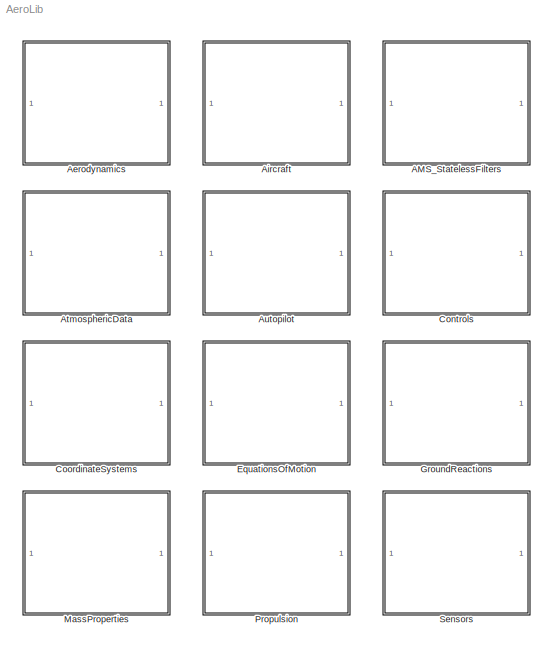
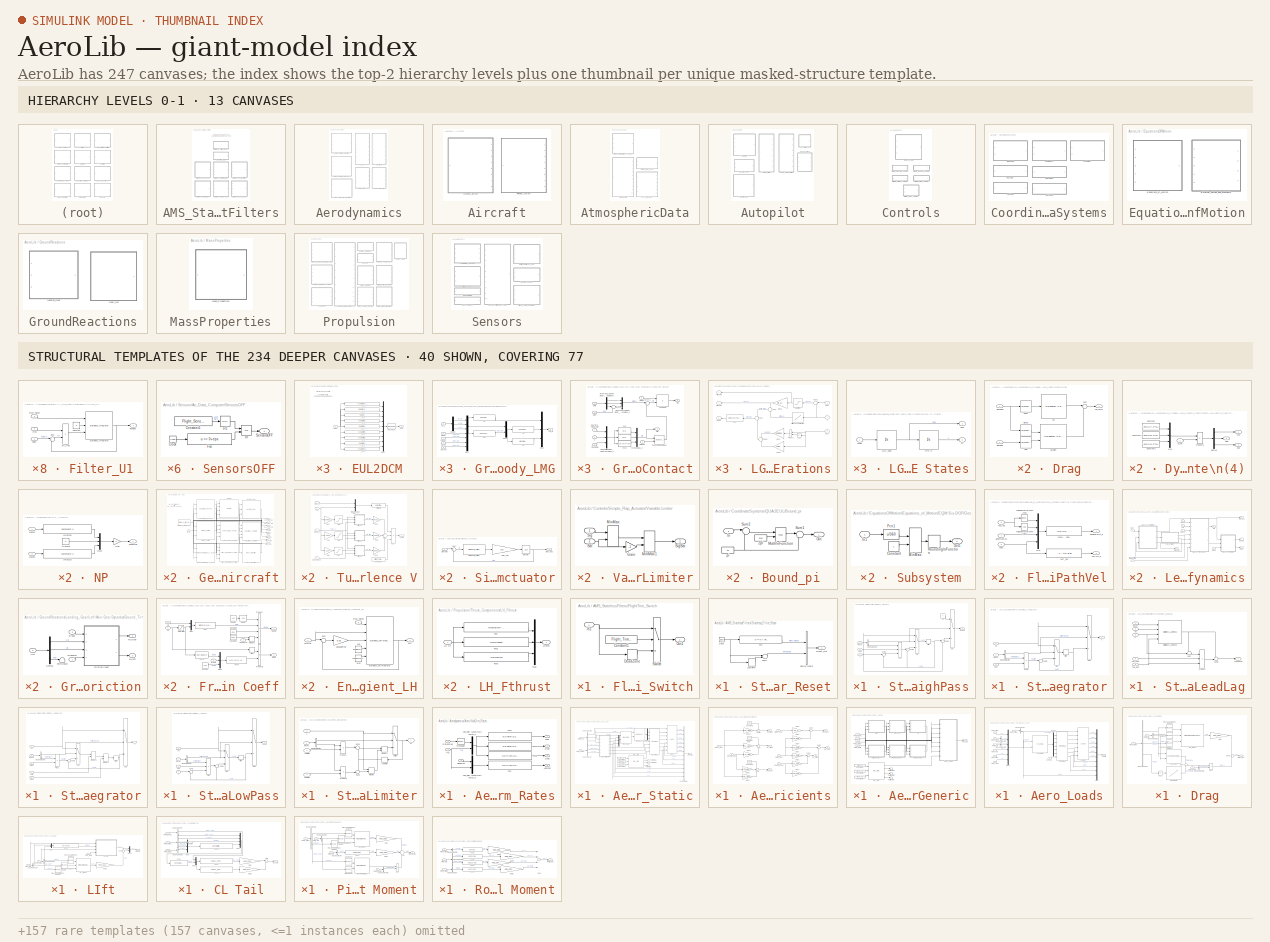
[diagram: thumbnail index - top-2 hierarchy levels (13 canvases) + 40 structural-template representatives of the remaining 234 canvases]
MODEL AeroLib
KIND library
BLOCK [SubSystem] AMS_StatelessFilters
  MaskDisplay = image(imread('Filters.bmp','bmp'))
  MaskIconFrame = on
  MaskIconOpaque = on
  MaskIconRotate = none
  MaskIconUnits = autoscale
  MinAlgLoopOccurrences = off
  Ports = []
  RTWSystemCode = Auto
  TreatAsAtomicUnit = off
BLOCK [SubSystem] AMS_StatelessFilters/FlightTrim_Switch
  MaskDisplay = patch([0 0.45 0.45 0.55 0.55 1], [0 0 1 1 0 0], [0 0 0]);
  MaskHelp = See AeroLib Reference Manual.
  MaskIconFrame = on
  MaskIconOpaque = off
  MaskIconRotate = none
  MaskIconUnits = autoscale
  MinAlgLoopOccurrences = off
  Ports = [1, 1]
  RTWSystemCode = Auto
  TreatAsAtomicUnit = off
BLOCK [Constant] AMS_StatelessFilters/FlightTrim_Switch/Constant1
  Value = Flight_Trimming
BLOCK [DeadZone] AMS_StatelessFilters/FlightTrim_Switch/DeadZone
  LowerValue = -eps
  UpperValue = eps
BLOCK [Inport] AMS_StatelessFilters/FlightTrim_Switch/In1
  IconDisplay = Port number
  LatchInput = off
  Port = 1
BLOCK [Outport] AMS_StatelessFilters/FlightTrim_Switch/Out1
  BusOutputAsStruct = off
  IconDisplay = Port number
BLOCK [Switch] AMS_StatelessFilters/FlightTrim_Switch/Switch
  Threshold = 0.5
BLOCK [SubSystem] AMS_StatelessFilters/Stateless_Filter_Reset
  MaskDisplay = patch([0 0.45 0.45 0.55 0.55 1], [0 0 1 1 0 0], [0 0 0]);
  MaskHelp = See AeroLib Reference Manual.
  MaskIconFrame = on
  MaskIconOpaque = off
  MaskIconRotate = none
  MaskIconUnits = autoscale
  MinAlgLoopOccurrences = off
  Ports = [0, 1]
  RTWSystemCode = Auto
  TreatAsAtomicUnit = off
BLOCK [BusCreator] AMS_StatelessFilters/Stateless_Filter_Reset/Bus\nCreator
  DialogController = Simulink.DDGSource_Bus
  DisplayOption = bar
  Inputs = 2
  Ports = [2, 1]
BLOCK [Clock] AMS_StatelessFilters/Stateless_Filter_Reset/Clock
  Decimation = 10
BLOCK [Fcn] AMS_StatelessFilters/Stateless_Filter_Reset/Fcn
  Expr = u <= 0 || Flight_Trimming>0.5
BLOCK [Memory] AMS_StatelessFilters/Stateless_Filter_Reset/LastTime
BLOCK [Outport] AMS_StatelessFilters/Stateless_Filter_Reset/Reset_Out
  BusOutputAsStruct = off
  IconDisplay = Port number
BLOCK [Sum] AMS_StatelessFilters/Stateless_Filter_Reset/Sum1
  IconShape = round
  Inputs = |+-
  Ports = [2, 1]
BLOCK [SubSystem] AMS_StatelessFilters/Stateless_HighPass
  MaskDisplay = patch([0 0.4 0.4 0.6 0.6 1], [0 0 1 1 0 0], [0 0 0]);
  MaskHelp = See AeroLib Reference Manual.
  MaskIconFrame = on
  MaskIconOpaque = off
  MaskIconRotate = none
  MaskIconUnits = autoscale
  MinAlgLoopOccurrences = off
  Ports = [3, 1]
  RTWSystemCode = Auto
  TreatAsAtomicUnit = off
BLOCK [BusSelector] AMS_StatelessFilters/Stateless_HighPass/Bus\nSelector
  DialogController = Simulink.DDGSource_Bus
  OutputSignals = Filter_Reset,TimeStep
  Ports = [1, 2]
BLOCK [Memory] AMS_StatelessFilters/Stateless_HighPass/Filter
BLOCK [Product] AMS_StatelessFilters/Stateless_HighPass/Freq
  Inputs = */*
  Ports = [3, 1]
  RndMeth = Floor
BLOCK [Inport] AMS_StatelessFilters/Stateless_HighPass/Reset
  IconDisplay = Port number
  LatchInput = off
  Port = 1
BLOCK [Sum] AMS_StatelessFilters/Stateless_HighPass/Sum1
  IconShape = round
  Inputs = |+-
  Ports = [2, 1]
BLOCK [Sum] AMS_StatelessFilters/Stateless_HighPass/Sum3
  IconShape = round
  Inputs = |++
  Ports = [2, 1]
BLOCK [Sum] AMS_StatelessFilters/Stateless_HighPass/Sum4
  IconShape = round
  Inputs = |-+
  Ports = [2, 1]
BLOCK [Switch] AMS_StatelessFilters/Stateless_HighPass/Sw
  Threshold = 0.5
BLOCK [Switch] AMS_StatelessFilters/Stateless_HighPass/Sw1
  Threshold = 0.5
BLOCK [Inport] AMS_StatelessFilters/Stateless_HighPass/Tau
  IconDisplay = Port number
  LatchInput = off
  Port = 3
BLOCK [Inport] AMS_StatelessFilters/Stateless_HighPass/X
  IconDisplay = Port number
  LatchInput = off
  Port = 2
BLOCK [Constant] AMS_StatelessFilters/Stateless_HighPass/X0
  Value = 0
BLOCK [Outport] AMS_StatelessFilters/Stateless_HighPass/XLead
  BusOutputAsStruct = off
  IconDisplay = Port number
BLOCK [SubSystem] AMS_StatelessFilters/Stateless_Integrator
  MaskDisplay = patch([0 0.4 0.4 0.6 0.6 1], [0 0 1 1 0 0], [0 0 0]);
  MaskHelp = See AeroLib Reference Manual.
  MaskIconFrame = on
  MaskIconOpaque = off
  MaskIconRotate = none
  MaskIconUnits = autoscale
  MinAlgLoopOccurrences = off
  Ports = [3, 1]
  RTWSystemCode = Auto
  TreatAsAtomicUnit = off
BLOCK [BusSelector] AMS_StatelessFilters/Stateless_Integrator/Bus\nSelector
  DialogController = Simulink.DDGSource_Bus
  OutputSignals = Filter_Reset,TimeStep
  Ports = [1, 2]
BLOCK [Memory] AMS_StatelessFilters/Stateless_Integrator/Filter
BLOCK [Product] AMS_StatelessFilters/Stateless_Integrator/Freq
  Ports = [2, 1]
  RndMeth = Floor
BLOCK [Inport] AMS_StatelessFilters/Stateless_Integrator/Reset
  IconDisplay = Port number
  LatchInput = off
  Port = 1
BLOCK [Sum] AMS_StatelessFilters/Stateless_Integrator/Sum3
  IconShape = round
  Inputs = |++
  Ports = [2, 1]
BLOCK [Switch] AMS_StatelessFilters/Stateless_Integrator/Sw
  Threshold = 0.5
BLOCK [Switch] AMS_StatelessFilters/Stateless_Integrator/Sw1
  Threshold = 0.5
BLOCK [Outport] AMS_StatelessFilters/Stateless_Integrator/X
  BusOutputAsStruct = off
  IconDisplay = Port number
BLOCK [Inport] AMS_StatelessFilters/Stateless_Integrator/X0
  IconDisplay = Port number
  LatchInput = off
  Port = 2
BLOCK [Inport] AMS_StatelessFilters/Stateless_Integrator/Xdot
  IconDisplay = Port number
  LatchInput = off
  Port = 3
BLOCK [SubSystem] AMS_StatelessFilters/Stateless_LeadLag
  MaskDisplay = patch([0 0.4 0.4 0.6 0.6 1], [0 0 1 1 0 0], [0 0 0]);
  MaskHelp = See AeroLib Reference Manual.
  MaskIconFrame = on
  MaskIconOpaque = off
  MaskIconRotate = none
  MaskIconUnits = autoscale
  MinAlgLoopOccurrences = off
  Ports = [5, 1]
  RTWSystemCode = Auto
  TreatAsAtomicUnit = off
BLOCK [Product] AMS_StatelessFilters/Stateless_LeadLag/Product
  Inputs = **/
  Ports = [3, 1]
  RndMeth = Floor
BLOCK [Inport] AMS_StatelessFilters/Stateless_LeadLag/Reset
  IconDisplay = Port number
  LatchInput = off
  Port = 1
BLOCK [Reference] AMS_StatelessFilters/Stateless_LeadLag/Stateless_LowPass  REF=AeroLib/AMS_StatelessFilters/Stateless_LowPass
  Ports = [4, 1]
  SourceBlock = AeroLib/AMS_StatelessFilters/Stateless_LowPass
  SourceType = Unknown
BLOCK [Sum] AMS_StatelessFilters/Stateless_LeadLag/Sum
  IconShape = round
  Inputs = -+|
  Ports = [2, 1]
BLOCK [Sum] AMS_StatelessFilters/Stateless_LeadLag/Sum1
  IconShape = round
  Inputs = ++|
  Ports = [2, 1]
BLOCK [Inport] AMS_StatelessFilters/Stateless_LeadLag/Tau_den
  IconDisplay = Port number
  LatchInput = off
  Port = 5
BLOCK [Inport] AMS_StatelessFilters/Stateless_LeadLag/Tau_num
  IconDisplay = Port number
  LatchInput = off
  Port = 4
BLOCK [Inport] AMS_StatelessFilters/Stateless_LeadLag/X
  IconDisplay = Port number
  LatchInput = off
  Port = 3
BLOCK [Inport] AMS_StatelessFilters/Stateless_LeadLag/X0
  IconDisplay = Port number
  LatchInput = off
  Port = 2
BLOCK [Outport] AMS_StatelessFilters/Stateless_LeadLag/XLeadLag
  BusOutputAsStruct = off
  IconDisplay = Port number
BLOCK [SubSystem] AMS_StatelessFilters/Stateless_LimIntegrator
  MaskDisplay = patch([0 0.4 0.4 0.6 0.6 1], [0 0 1 1 0 0], [0 0 0]);
  MaskHelp = See AeroLib Reference Manual.
  MaskIconFrame = on
  MaskIconOpaque = off
  MaskIconRotate = none
  MaskIconUnits = autoscale
  MinAlgLoopOccurrences = off
  Ports = [5, 1]
  RTWSystemCode = Auto
  TreatAsAtomicUnit = off
BLOCK [BusSelector] AMS_StatelessFilters/Stateless_LimIntegrator/Bus\nSelector
  DialogController = Simulink.DDGSource_Bus
  OutputSignals = Filter_Reset,TimeStep
  Ports = [1, 2]
BLOCK [Memory] AMS_StatelessFilters/Stateless_LimIntegrator/Filter1
BLOCK [Product] AMS_StatelessFilters/Stateless_LimIntegrator/Freq1
  Ports = [2, 1]
  RndMeth = Floor
BLOCK [MinMax] AMS_StatelessFilters/Stateless_LimIntegrator/MinMax3
  Function = max
  Inputs = 2
  Ports = [2, 1]
BLOCK [MinMax] AMS_StatelessFilters/Stateless_LimIntegrator/MinMax4
  Function = min
  Inputs = 2
  Ports = [2, 1]
BLOCK [Inport] AMS_StatelessFilters/Stateless_LimIntegrator/Reset
  IconDisplay = Port number
  LatchInput = off
  Port = 1
BLOCK [Sum] AMS_StatelessFilters/Stateless_LimIntegrator/Sum1
  IconShape = round
  Inputs = |++
  Ports = [2, 1]
BLOCK [Switch] AMS_StatelessFilters/Stateless_LimIntegrator/Sw1
  Threshold = 0.5
BLOCK [Switch] AMS_StatelessFilters/Stateless_LimIntegrator/Sw2
  Threshold = 0.5
BLOCK [Outport] AMS_StatelessFilters/Stateless_LimIntegrator/X
  BusOutputAsStruct = off
  IconDisplay = Port number
BLOCK [Inport] AMS_StatelessFilters/Stateless_LimIntegrator/X0
  IconDisplay = Port number
  LatchInput = off
  Port = 2
BLOCK [Inport] AMS_StatelessFilters/Stateless_LimIntegrator/Xdot
  IconDisplay = Port number
  LatchInput = off
  Port = 3
BLOCK [Inport] AMS_StatelessFilters/Stateless_LimIntegrator/Xmax
  IconDisplay = Port number
  LatchInput = off
  Port = 5
BLOCK [Inport] AMS_StatelessFilters/Stateless_LimIntegrator/Xmin
  IconDisplay = Port number
  LatchInput = off
  Port = 4
BLOCK [SubSystem] AMS_StatelessFilters/Stateless_LowPass
  MaskDisplay = patch([0 0.4 0.4 0.6 0.6 1], [0 0 1 1 0 0], [0 0 0]);
  MaskHelp = See AeroLib Reference Manual.
  MaskIconFrame = on
  MaskIconOpaque = off
  MaskIconRotate = none
  MaskIconUnits = autoscale
  MinAlgLoopOccurrences = off
  Ports = [4, 1]
  RTWSystemCode = Auto
  TreatAsAtomicUnit = off
BLOCK [BusSelector] AMS_StatelessFilters/Stateless_LowPass/Bus\nSelector
  DialogController = Simulink.DDGSource_Bus
  OutputSignals = Filter_Reset,TimeStep
  Ports = [1, 2]
BLOCK [Memory] AMS_StatelessFilters/Stateless_LowPass/Filter
BLOCK [Product] AMS_StatelessFilters/Stateless_LowPass/Freq
  Inputs = */*
  Ports = [3, 1]
  RndMeth = Floor
BLOCK [Inport] AMS_StatelessFilters/Stateless_LowPass/Reset
  IconDisplay = Port number
  LatchInput = off
  Port = 1
BLOCK [Sum] AMS_StatelessFilters/Stateless_LowPass/Sum1
  IconShape = round
  Inputs = |+-
  Ports = [2, 1]
BLOCK [Sum] AMS_StatelessFilters/Stateless_LowPass/Sum3
  IconShape = round
  Inputs = |++
  Ports = [2, 1]
BLOCK [Switch] AMS_StatelessFilters/Stateless_LowPass/Sw
  Threshold = 0.5
BLOCK [Switch] AMS_StatelessFilters/Stateless_LowPass/Sw1
  Threshold = 0.5
BLOCK [Inport] AMS_StatelessFilters/Stateless_LowPass/Tau
  IconDisplay = Port number
  LatchInput = off
  Port = 4
BLOCK [Inport] AMS_StatelessFilters/Stateless_LowPass/X
  IconDisplay = Port number
  LatchInput = off
  Port = 3
BLOCK [Inport] AMS_StatelessFilters/Stateless_LowPass/X0
  IconDisplay = Port number
  LatchInput = off
  Port = 2
BLOCK [Outport] AMS_StatelessFilters/Stateless_LowPass/XLag
  BusOutputAsStruct = off
  IconDisplay = Port number
BLOCK [SubSystem] AMS_StatelessFilters/Stateless_RateLimiter
  MaskDisplay = patch([0 0.4 0.4 0.6 0.6 1], [0 0 1 1 0 0], [0 0 0]);
  MaskHelp = See AeroLib Reference Manual.
  MaskIconFrame = on
  MaskIconOpaque = off
  MaskIconRotate = none
  MaskIconUnits = autoscale
  MinAlgLoopOccurrences = off
  Ports = [4, 1]
  RTWSystemCode = Auto
  TreatAsAtomicUnit = off
BLOCK [BusSelector] AMS_StatelessFilters/Stateless_RateLimiter/Bus\nSelector
  DialogController = Simulink.DDGSource_Bus
  OutputSignals = Filter_Reset,TimeStep
  Ports = [1, 2]
BLOCK [Memory] AMS_StatelessFilters/Stateless_RateLimiter/LastTime
BLOCK [MinMax] AMS_StatelessFilters/Stateless_RateLimiter/MinMax
  Function = min
  Inputs = 2
  Ports = [2, 1]
BLOCK [MinMax] AMS_StatelessFilters/Stateless_RateLimiter/MinMax1
  Function = max
  Inputs = 2
  Ports = [2, 1]
BLOCK [Product] AMS_StatelessFilters/Stateless_RateLimiter/Product
  Ports = [2, 1]
  RndMeth = Floor
BLOCK [Product] AMS_StatelessFilters/Stateless_RateLimiter/Product1
  Ports = [2, 1]
  RndMeth = Floor
BLOCK [Inport] AMS_StatelessFilters/Stateless_RateLimiter/Reset
  IconDisplay = Port number
  LatchInput = off
  Port = 1
BLOCK [Sum] AMS_StatelessFilters/Stateless_RateLimiter/Sum1
  IconShape = round
  Inputs = |++
  Ports = [2, 1]
BLOCK [Sum] AMS_StatelessFilters/Stateless_RateLimiter/Sum2
  IconShape = round
  Inputs = ++|
  Ports = [2, 1]
BLOCK [Switch] AMS_StatelessFilters/Stateless_RateLimiter/Switch
  Threshold = 0.5
BLOCK [Inport] AMS_StatelessFilters/Stateless_RateLimiter/X
  IconDisplay = Port number
  LatchInput = off
  Port = 2
  SampleTime = [0.01,0]
BLOCK [Inport] AMS_StatelessFilters/Stateless_RateLimiter/Xdotmax
  IconDisplay = Port number
  LatchInput = off
  Port = 4
  SampleTime = [0.01,0]
BLOCK [Inport] AMS_StatelessFilters/Stateless_RateLimiter/Xdotmin
  IconDisplay = Port number
  LatchInput = off
  Port = 3
  SampleTime = [0.01,0]
BLOCK [Outport] AMS_StatelessFilters/Stateless_RateLimiter/Xr
  BusOutputAsStruct = off
  IconDisplay = Port number
BLOCK [SubSystem] Aerodynamics
  MaskDisplay = image(imread('Aero.bmp','bmp'))
  MaskIconFrame = on
  MaskIconOpaque = on
  MaskIconRotate = none
  MaskIconUnits = autoscale
  MinAlgLoopOccurrences = off
  Ports = []
  RTWSystemCode = Auto
  TreatAsAtomicUnit = off
BLOCK [SubSystem] Aerodynamics/Aero NonDim_Rates
  MaskCallbackString = |
  MaskEnableString = on,on
  MaskIconFrame = on
  MaskIconOpaque = on
  MaskIconRotate = none
  MaskIconUnits = autoscale
  MaskPromptString = Wing Span|Wing MAC
  MaskStyleString = edit,edit
  MaskTabNameString = ,
  MaskToolTipString = on,on
  MaskTunableValueString = on,on
  MaskValueString = Geom.Wing.bref|Geom.Wing.cref
  MaskVarAliasString = ,
  MaskVariables = Bref=@1;Cref=@2;
  MaskVisibilityString = on,on
  MinAlgLoopOccurrences = off
  Ports = [3, 4]
  RTWSystemCode = Auto
  TreatAsAtomicUnit = off
BLOCK [Outport] Aerodynamics/Aero NonDim_Rates/Adothat
  BusOutputAsStruct = off
  IconDisplay = Port number
  Port = 3
BLOCK [Inport] Aerodynamics/Aero NonDim_Rates/AlphaDot
  IconDisplay = Port number
  LatchInput = off
  Port = 2
BLOCK [Fcn] Aerodynamics/Aero NonDim_Rates/Fcn
  Expr = u(1)*Cref/2/u(2)
BLOCK [Fcn] Aerodynamics/Aero NonDim_Rates/Fcn1
  Expr = u(1)*Bref/2/u(4)
BLOCK [Fcn] Aerodynamics/Aero NonDim_Rates/Fcn2
  Expr = u(3)*Bref/2/u(4)
BLOCK [Fcn] Aerodynamics/Aero NonDim_Rates/Fcn3
  Expr = u(2)*Cref/2/u(4)
BLOCK [Outport] Aerodynamics/Aero NonDim_Rates/Phat
  BusOutputAsStruct = off
  IconDisplay = Port number
BLOCK [Outport] Aerodynamics/Aero NonDim_Rates/Qhat
  BusOutputAsStruct = off
  IconDisplay = Port number
  Port = 4
BLOCK [Inport] Aerodynamics/Aero NonDim_Rates/RatesRad
  IconDisplay = Port number
  LatchInput = off
  Port = 1
BLOCK [Reference] Aerodynamics/Aero NonDim_Rates/Reshape  REF=simulink3/Signals\n& Systems/Reshape
  OutputDimensionality = 1-D array
  OutputDimensions = [1,1]
  Ports = [1, 1]
  SourceBlock = simulink3/Signals\n& Systems/Reshape
  SourceType = Reshape
BLOCK [Outport] Aerodynamics/Aero NonDim_Rates/Rhat
  BusOutputAsStruct = off
  IconDisplay = Port number
  Port = 2
BLOCK [Inport] Aerodynamics/Aero NonDim_Rates/TAS
  IconDisplay = Port number
  LatchInput = off
  Port = 3
BLOCK [Mux] Aerodynamics/Aero NonDim_Rates/non_dim rates\n(8)\nMux_2
  Inputs = 2
  Ports = [2, 1]
BLOCK [Mux] Aerodynamics/Aero NonDim_Rates/non_dim rates\n(8)\nMux_3
  Inputs = 2
  Ports = [2, 1]
BLOCK [SubSystem] Aerodynamics/Aerodynamic_Linear_Static
  MinAlgLoopOccurrences = off
  Ports = [2, 1]
  RTWSystemCode = Auto
  TreatAsAtomicUnit = off
BLOCK [SubSystem] Aerodynamics/Aerodynamic_Linear_Static/AeroCoefficients
  MaskCallbackString = |||||||||||||
  MaskEnableString = on,on,on,on,on,on,on,on,on,on,on,on,on,on
  MaskIconFrame = on
  MaskIconOpaque = on
  MaskIconRotate = none
  MaskIconUnits = autoscale
  MaskPromptString = CLo|CL_Alpha|CL_Elev|CDo|CD_Alpha|CY_Beta|CY_Rud|CR_Beta|CR_Ail|CMo|CM_Alpha|CM_Elev|CN_Beta|CN_Rud
  MaskStyleString = edit,edit,edit,edit,edit,edit,edit,edit,edit,edit,edit,edit,edit,edit
  MaskTabNameString = ,,,,,,,,,,,,,
  MaskToolTipString = on,on,on,on,on,on,on,on,on,on,on,on,on,on
  MaskTunableValueString = on,on,on,on,on,on,on,on,on,on,on,on,on,on
  MaskValueString = 0.385|0.0834|0.401*pi/180|0.06|0.43*pi/180|-0.819*pi/180|0.191*pi/180|-0.23*pi/180|-0.161*pi/180|0.194|-2.12*pi/180|-1.76*pi/180|0.109*pi/180|-0.0917*pi/180
  MaskVarAliasString = ,,,,,,,,,,,,,
  MaskVariables = CLo=@1;CL_Alpha=@2;CL_Elev=@3;CDo=@4;CD_Alpha=@5;CY_Beta=@6;CY_Rud=@7;CR_Beta=@8;CR_Ail=@9;CMo=@10;CM_Alpha=@11;CM_Elev=@12;CN_Beta=@13;CN_Rud=@14;
  MaskVisibilityString = on,on,on,on,on,on,on,on,on,on,on,on,on,on
  MinAlgLoopOccurrences = off
  Ports = [5, 6]
  RTWSystemCode = Auto
  TreatAsAtomicUnit = off
BLOCK [Inport] Aerodynamics/Aerodynamic_Linear_Static/AeroCoefficients/Aileron_deg
  IconDisplay = Port number
  LatchInput = off
  Port = 5
BLOCK [Inport] Aerodynamics/Aerodynamic_Linear_Static/AeroCoefficients/Alpha_deg
  IconDisplay = Port number
  LatchInput = off
  Port = 2
BLOCK [Inport] Aerodynamics/Aerodynamic_Linear_Static/AeroCoefficients/Beta_deg
  IconDisplay = Port number
  LatchInput = off
  Port = 1
BLOCK [Outport] Aerodynamics/Aerodynamic_Linear_Static/AeroCoefficients/CD_Wind
  BusOutputAsStruct = off
  IconDisplay = Port number
BLOCK [Outport] Aerodynamics/Aerodynamic_Linear_Static/AeroCoefficients/CL_Wind
  BusOutputAsStruct = off
  IconDisplay = Port number
  Port = 3
BLOCK [Outport] Aerodynamics/Aerodynamic_Linear_Static/AeroCoefficients/CM_body
  BusOutputAsStruct = off
  IconDisplay = Port number
  Port = 5
BLOCK [Outport] Aerodynamics/Aerodynamic_Linear_Static/AeroCoefficients/CN_body
  BusOutputAsStruct = off
  IconDisplay = Port number
  Port = 6
BLOCK [Outport] Aerodynamics/Aerodynamic_Linear_Static/AeroCoefficients/CR_body
  BusOutputAsStruct = off
  IconDisplay = Port number
  Port = 4
BLOCK [Outport] Aerodynamics/Aerodynamic_Linear_Static/AeroCoefficients/CY_Wind
  BusOutputAsStruct = off
  IconDisplay = Port number
  Port = 2
BLOCK [Constant] Aerodynamics/Aerodynamic_Linear_Static/AeroCoefficients/Constant
  Value = CLo
BLOCK [Constant] Aerodynamics/Aerodynamic_Linear_Static/AeroCoefficients/Constant1
  Value = CMo
BLOCK [Constant] Aerodynamics/Aerodynamic_Linear_Static/AeroCoefficients/Constant2
  Value = CDo
BLOCK [Inport] Aerodynamics/Aerodynamic_Linear_Static/AeroCoefficients/Elevator_deg
  IconDisplay = Port number
  LatchInput = off
  Port = 3
BLOCK [Gain] Aerodynamics/Aerodynamic_Linear_Static/AeroCoefficients/Gain
  Gain = CL_Alpha
BLOCK [Gain] Aerodynamics/Aerodynamic_Linear_Static/AeroCoefficients/Gain1
  Gain = CY_Beta
BLOCK [Gain] Aerodynamics/Aerodynamic_Linear_Static/AeroCoefficients/Gain10
  Gain = CD_Alpha
BLOCK [Gain] Aerodynamics/Aerodynamic_Linear_Static/AeroCoefficients/Gain2
  Gain = CY_Rud
BLOCK [Gain] Aerodynamics/Aerodynamic_Linear_Static/AeroCoefficients/Gain3
  Gain = CL_Elev
BLOCK [Gain] Aerodynamics/Aerodynamic_Linear_Static/AeroCoefficients/Gain4
  Gain = CM_Alpha
BLOCK [Gain] Aerodynamics/Aerodynamic_Linear_Static/AeroCoefficients/Gain5
  Gain = CM_Elev
BLOCK [Gain] Aerodynamics/Aerodynamic_Linear_Static/AeroCoefficients/Gain6
  Gain = CN_Beta
BLOCK [Gain] Aerodynamics/Aerodynamic_Linear_Static/AeroCoefficients/Gain7
  Gain = CN_Rud
BLOCK [Gain] Aerodynamics/Aerodynamic_Linear_Static/AeroCoefficients/Gain8
  Gain = CR_Beta
BLOCK [Gain] Aerodynamics/Aerodynamic_Linear_Static/AeroCoefficients/Gain9
  Gain = CR_Ail
BLOCK [Inport] Aerodynamics/Aerodynamic_Linear_Static/AeroCoefficients/Rudder_deg
  IconDisplay = Port number
  LatchInput = off
  Port = 4
BLOCK [Sum] Aerodynamics/Aerodynamic_Linear_Static/AeroCoefficients/Sum
  IconShape = round
  InputSameDT = off
  Inputs = +++
  OutDataTypeMode = Inherit via internal rule
  Ports = [3, 1]
BLOCK [Sum] Aerodynamics/Aerodynamic_Linear_Static/AeroCoefficients/Sum1
  IconShape = round
  InputSameDT = off
  Inputs = +++
  OutDataTypeMode = Inherit via internal rule
  Ports = [3, 1]
BLOCK [Sum] Aerodynamics/Aerodynamic_Linear_Static/AeroCoefficients/Sum2
  IconShape = round
  InputSameDT = off
  Inputs = |++
  OutDataTypeMode = Inherit via internal rule
  Ports = [2, 1]
BLOCK [Sum] Aerodynamics/Aerodynamic_Linear_Static/AeroCoefficients/Sum3
  IconShape = round
  InputSameDT = off
  Inputs = |++
  OutDataTypeMode = Inherit via internal rule
  Ports = [2, 1]
BLOCK [Sum] Aerodynamics/Aerodynamic_Linear_Static/AeroCoefficients/Sum4
  IconShape = round
  InputSameDT = off
  Inputs = |++
  OutDataTypeMode = Inherit via internal rule
  Ports = [2, 1]
BLOCK [Sum] Aerodynamics/Aerodynamic_Linear_Static/AeroCoefficients/Sum5
  IconShape = round
  InputSameDT = off
  Inputs = ++|
  OutDataTypeMode = Inherit via internal rule
  Ports = [2, 1]
BLOCK [Outport] Aerodynamics/Aerodynamic_Linear_Static/Aero_Out
  BusOutputAsStruct = off
  IconDisplay = Port number
BLOCK [BusCreator] Aerodynamics/Aerodynamic_Linear_Static/Bus\nCreator
  DialogController = Simulink.DDGSource_Bus
  DisplayOption = bar
  Inputs = 12
  Ports = [12, 1]
BLOCK [BusSelector] Aerodynamics/Aerodynamic_Linear_Static/Bus\nSelector
  DialogController = Simulink.DDGSource_Bus
  OutputSignals = Elev_deg,Rud_deg,Ail_deg
  Ports = [1, 3]
BLOCK [BusSelector] Aerodynamics/Aerodynamic_Linear_Static/Bus\nSelector1
  DialogController = Simulink.DDGSource_Bus
  OutputSignals = DynPres_P,Beta,Alpha
  Ports = [1, 3]
BLOCK [Constant] Aerodynamics/Aerodynamic_Linear_Static/Constant4
  Value = Flight_cg
BLOCK [Constant] Aerodynamics/Aerodynamic_Linear_Static/Constant5
  Value = Flight_ycg
BLOCK [Constant] Aerodynamics/Aerodynamic_Linear_Static/Constant6
  Value = Flight_zcg
BLOCK [Demux] Aerodynamics/Aerodynamic_Linear_Static/Demux
  Outputs = 3
  Ports = [1, 3]
BLOCK [Inport] Aerodynamics/Aerodynamic_Linear_Static/From_ATM
  IconDisplay = Port number
  LatchInput = off
  Port = 2
BLOCK [Inport] Aerodynamics/Aerodynamic_Linear_Static/From_Control
  IconDisplay = Port number
  LatchInput = off
  Port = 1
BLOCK [Reference] Aerodynamics/Aerodynamic_Linear_Static/INIT_Arms  REF=AeroLib/Aerodynamics/INIT_Arms
  Bref = Geom.Wing.bref
  Cref = Geom.Wing.cref
  Ports = [3, 4]
  SourceBlock = AeroLib/Aerodynamics/INIT_Arms
  SourceType = Unknown
  xacht = Geom.Htail.xacht
  xacnp = Geom.Nacelle.xacnp
  xacvt = Geom.Vtail.xacvt
  yacht = Geom.Htail.yacht
  zacht = Geom.Htail.zacht
  zacnp = Geom.Nacelle.zacnp
  zacvt = Geom.Vtail.zacvt
BLOCK [Reference] Aerodynamics/Aerodynamic_Linear_Static/Loads  REF=AeroLib/Aerodynamics/Loads
  Bref = Geom.Wing.bref
  Cref = Geom.Wing.cref
  Ports = [7, 6]
  SourceBlock = AeroLib/Aerodynamics/Loads
  SourceType = Unknown
  Sw = Geom.Wing.sw
BLOCK [Mux] Aerodynamics/Aerodynamic_Linear_Static/Mux
  DisplayOption = bar
  Inputs = 3
  Ports = [3, 1]
BLOCK [Reference] Aerodynamics/Aerodynamic_Linear_Static/Stab2Body  REF=AeroLib/Aerodynamics/Aerodynamics_Pioneer/Aero Total/Stab2Body
  DataTypeOverride = UseLocalSettings
  MinMaxOverflowLogging = UseLocalSettings
  Permissions = ReadWrite
  Ports = [2, 1]
  RTWFcnNameOpts = Auto
  RTWFileNameOpts = Auto
  RTWSystemCode = Auto
  ShowPortLabels = on
  SimViewingDevice = off
  SourceBlock = AeroLib/Aerodynamics/Aerodynamics_Pioneer/Aero Total/Stab2Body
  SourceType = SubSystem
  TreatAsAtomicUnit = off
BLOCK [Terminator] Aerodynamics/Aerodynamic_Linear_Static/Terminator
BLOCK [Terminator] Aerodynamics/Aerodynamic_Linear_Static/Terminator1
BLOCK [Terminator] Aerodynamics/Aerodynamic_Linear_Static/Terminator2
BLOCK [Reference] Aerodynamics/Aerodynamic_Linear_Static/Transf to CG  REF=AeroLib/Aerodynamics/Transf to CG
  Bref = Geom.Wing.bref
  Cref = Geom.Wing.cref
  Ports = [7, 6]
  SourceBlock = AeroLib/Aerodynamics/Transf to CG
  SourceType = Unknown
BLOCK [Reference] Aerodynamics/Aerodynamic_Linear_Static/Wind2Stab  REF=AeroLib/Aerodynamics/Aerodynamics_Pioneer/Aero Total/Wind2Stab
  DataTypeOverride = UseLocalSettings
  MinMaxOverflowLogging = UseLocalSettings
  Permissions = ReadWrite
  Ports = [2, 1]
  RTWFcnNameOpts = Auto
  RTWFileNameOpts = Auto
  RTWSystemCode = Auto
  ShowPortLabels = on
  SimViewingDevice = off
  SourceBlock = AeroLib/Aerodynamics/Aerodynamics_Pioneer/Aero Total/Wind2Stab
  SourceType = SubSystem
  TreatAsAtomicUnit = off
BLOCK [SubSystem] Aerodynamics/Aerodynamics_Generic
  MaskDisplay = patch( [0 0.4 0.4 0.6 0.6 1], [0 0 1 1 0 0],  [1 0 0])
  MaskHelp = See AeroLib Reference Manual.
  MaskIconFrame = on
  MaskIconOpaque = off
  MaskIconRotate = none
  MaskIconUnits = autoscale
  MinAlgLoopOccurrences = off
  Ports = [4, 1]
  RTWSystemCode = Auto
  TreatAsAtomicUnit = off
BLOCK [SubSystem] Aerodynamics/Aerodynamics_Generic/Aero_Loads
  MinAlgLoopOccurrences = off
  Ports = [8, 1]
  RTWSystemCode = Auto
  TreatAsAtomicUnit = off
BLOCK [BusSelector] Aerodynamics/Aerodynamics_Generic/Aero_Loads/Bus\nSelector
  DialogController = Simulink.DDGSource_Bus
  OutputSignals = DynPres_P,Alpha
  Ports = [1, 2]
BLOCK [BusSelector] Aerodynamics/Aerodynamics_Generic/Aero_Loads/Bus\nSelector1
  DialogController = Simulink.DDGSource_Bus
  OutputSignals = CYs
  Ports = [1, 1]
BLOCK [BusSelector] Aerodynamics/Aerodynamics_Generic/Aero_Loads/Bus\nSelector2
  DialogController = Simulink.DDGSource_Bus
  OutputSignals = CLs
  Ports = [1, 1]
BLOCK [Demux] Aerodynamics/Aerodynamics_Generic/Aero_Loads/Demux
  Outputs = 6
  Ports = [1, 6]
BLOCK [Inport] Aerodynamics/Aerodynamics_Generic/Aero_Loads/From_Atmos
  IconDisplay = Port number
  LatchInput = off
  Port = 7
BLOCK [Inport] Aerodynamics/Aerodynamics_Generic/Aero_Loads/From_Drag
  IconDisplay = Port number
  LatchInput = off
  Port = 1
BLOCK [Inport] Aerodynamics/Aerodynamics_Generic/Aero_Loads/From_Lift
  IconDisplay = Port number
  LatchInput = off
  Port = 3
BLOCK [Inport] Aerodynamics/Aerodynamics_Generic/Aero_Loads/From_Pitch
  IconDisplay = Port number
  LatchInput = off
  Port = 5
BLOCK [Inport] Aerodynamics/Aerodynamics_Generic/Aero_Loads/From_Roll
  IconDisplay = Port number
  LatchInput = off
  Port = 4
BLOCK [Inport] Aerodynamics/Aerodynamics_Generic/Aero_Loads/From_SideF
  IconDisplay = Port number
  LatchInput = off
  Port = 2
BLOCK [Inport] Aerodynamics/Aerodynamics_Generic/Aero_Loads/From_Yaw
  IconDisplay = Port number
  LatchInput = off
  Port = 6
BLOCK [Reference] Aerodynamics/Aerodynamics_Generic/Aero_Loads/Loads  REF=AeroLib/Aerodynamics/Loads
  Bref = Geom.Wing.bref
  Cref = Geom.Wing.cref
  Ports = [7, 6]
  SourceBlock = AeroLib/Aerodynamics/Loads
  SourceType = Unknown
  Sw = Geom.Wing.sw
BLOCK [Mux] Aerodynamics/Aerodynamics_Generic/Aero_Loads/Mux
  DisplayOption = bar
  Inputs = 10
  Ports = [10, 1]
BLOCK [Mux] Aerodynamics/Aerodynamics_Generic/Aero_Loads/Mux1
  DisplayOption = bar
  Inputs = 6
  Ports = [6, 1]
BLOCK [Reference] Aerodynamics/Aerodynamics_Generic/Aero_Loads/STA2BOA  REF=AeroLib/CoordinateSystems/STA2BOA
  Ports = [2, 1]
  SourceBlock = AeroLib/CoordinateSystems/STA2BOA
  SourceType = Unknown
BLOCK [Reference] Aerodynamics/Aerodynamics_Generic/Aero_Loads/Transf to CG  REF=AeroLib/Aerodynamics/Transf to CG
  Bref = Geom.Wing.bref
  Cref = Geom.Wing.cref
  Ports = [7, 6]
  SourceBlock = AeroLib/Aerodynamics/Transf to CG
  SourceType = Unknown
BLOCK [Outport] Aerodynamics/Aerodynamics_Generic/Aero_Loads/Xaero
  BusOutputAsStruct = off
  IconDisplay = Port number
BLOCK [Inport] Aerodynamics/Aerodynamics_Generic/Aero_Loads/dcg2ac
  IconDisplay = Port number
  LatchInput = off
  Port = 8
BLOCK [Outport] Aerodynamics/Aerodynamics_Generic/Aero_Out
  BusOutputAsStruct = off
  IconDisplay = Port number
BLOCK [Constant] Aerodynamics/Aerodynamics_Generic/Constant4
  Value = Flight_cg
BLOCK [Constant] Aerodynamics/Aerodynamics_Generic/Constant5
  Value = Flight_ycg
BLOCK [Constant] Aerodynamics/Aerodynamics_Generic/Constant6
  Value = Flight_zcg
BLOCK [SubSystem] Aerodynamics/Aerodynamics_Generic/Drag
  MinAlgLoopOccurrences = off
  Ports = [3, 1]
  RTWSystemCode = Auto
  TreatAsAtomicUnit = off
BLOCK [BusSelector] Aerodynamics/Aerodynamics_Generic/Drag/Bus\nSelector1
  DialogController = Simulink.DDGSource_Bus
  OutputSignals = Alpha,Mach,Beta
  Ports = [1, 3]
BLOCK [BusSelector] Aerodynamics/Aerodynamics_Generic/Drag/Bus\nSelector2
  DialogController = Simulink.DDGSource_Bus
  OutputSignals = Flap_deg
  Ports = [1, 1]
BLOCK [BusSelector] Aerodynamics/Aerodynamics_Generic/Drag/Bus\nSelector3
  DialogController = Simulink.DDGSource_Bus
  OutputSignals = GearDown
  Ports = [1, 1]
BLOCK [Reference] Aerodynamics/Aerodynamics_Generic/Drag/CD_wbnp  REF=simulink3/Functions\n& Tables/Interpolation (n-D)\nusing PreLook-Up
  Ports = [3, 1]
  SourceBlock = simulink3/Functions\n& Tables/Interpolation (n-D)\nusing PreLook-Up
  SourceType = LookupNDInterpIdx
  explicitNumDims = 2
  extrapMethod = Linear
  interpMethod = Linear
  numDimsPopupSelect = 3
  rangeErrorMode = None
  table = Aero.Drag.CDs
BLOCK [Reference] Aerodynamics/Aerodynamics_Generic/Drag/CdLgAlph  REF=simulink3/Functions\n& Tables/Look-Up\nTable (2-D)
  Ports = [2, 1]
  SourceBlock = simulink3/Functions\n& Tables/Look-Up\nTable (2-D)
  SourceType = Lookup Table (2-D)
  t = Aero.Drag.CDlg
  x = [-15.0 -10.0  -5.0   0.0   5.0  10.0  15.0  20.0]
  y = [0 10 20 35]
BLOCK [Lookup] Aerodynamics/Aerodynamics_Generic/Drag/CdLgBeta
  DialogController = Simulink.DDGSource
  InputValues = [0 5 10 15 20 25 30]
  OutputValues = [0.0  0.0008  0.0050  0.0110  0.0190  0.0280 0.0300]
BLOCK [Outport] Aerodynamics/Aerodynamics_Generic/Drag/Drag_Out
  BusOutputAsStruct = off
  IconDisplay = Port number
BLOCK [Inport] Aerodynamics/Aerodynamics_Generic/Drag/From_Atmos
  IconDisplay = Port number
  LatchInput = off
  Port = 1
BLOCK [Inport] Aerodynamics/Aerodynamics_Generic/Drag/From_Ctrl
  IconDisplay = Port number
  LatchInput = off
  Port = 2
BLOCK [Inport] Aerodynamics/Aerodynamics_Generic/Drag/From_Inputs
  IconDisplay = Port number
  LatchInput = off
  Port = 3
BLOCK [Gain] Aerodynamics/Aerodynamics_Generic/Drag/Gain
  Gain = PEG_CDwbnp
BLOCK [Reference] Aerodynamics/Aerodynamics_Generic/Drag/PreLook-Up\nIndex Search3  REF=simulink3/Functions\n& Tables/PreLook-Up\nIndex Search
  Ports = [1, 1]
  SourceBlock = simulink3/Functions\n& Tables/PreLook-Up\nIndex Search
  SourceType = LookupIdxSearch
  bpData = Aero.Drag.Flap
  cacheBpFlag = off
  extrapMode = Linear Extrapolation
  outputFlag = off
  rangeErrorMode = None
  searchMode = Binary Search
BLOCK [Reference] Aerodynamics/Aerodynamics_Generic/Drag/PreLook-Up\nIndex Search4  REF=simulink3/Functions\n& Tables/PreLook-Up\nIndex Search
  Ports = [1, 1]
  SourceBlock = simulink3/Functions\n& Tables/PreLook-Up\nIndex Search
  SourceType = LookupIdxSearch
  bpData = Aero.Drag.Mach
  cacheBpFlag = off
  extrapMode = Linear Extrapolation
  outputFlag = off
  rangeErrorMode = None
  searchMode = Binary Search
BLOCK [Reference] Aerodynamics/Aerodynamics_Generic/Drag/PreLook-Up\nIndex Search5  REF=simulink3/Functions\n& Tables/PreLook-Up\nIndex Search
  Ports = [1, 1]
  SourceBlock = simulink3/Functions\n& Tables/PreLook-Up\nIndex Search
  SourceType = LookupIdxSearch
  bpData = Aero.Drag.Alpha
  cacheBpFlag = off
  extrapMode = Linear Extrapolation
  outputFlag = off
  rangeErrorMode = None
  searchMode = Binary Search
BLOCK [Product] Aerodynamics/Aerodynamics_Generic/Drag/\n(14)
  Inputs = **
  Ports = [2, 1]
  RndMeth = Floor
BLOCK [Sum] Aerodynamics/Aerodynamics_Generic/Drag/\n(15)
  IconShape = round
  Ports = [2, 1]
BLOCK [Sum] Aerodynamics/Aerodynamics_Generic/Drag/\n(15)1
  IconShape = round
  Ports = [2, 1]
BLOCK [Abs] Aerodynamics/Aerodynamics_Generic/Drag/\n(22)
BLOCK [Inport] Aerodynamics/Aerodynamics_Generic/From_Atmos
  IconDisplay = Port number
  LatchInput = off
  Port = 2
BLOCK [Inport] Aerodynamics/Aerodynamics_Generic/From_Ctrl
  IconDisplay = Port number
  LatchInput = off
  Port = 1
BLOCK [Inport] Aerodynamics/Aerodynamics_Generic/From_EQM
  IconDisplay = Port number
  LatchInput = off
  Port = 3
BLOCK [Inport] Aerodynamics/Aerodynamics_Generic/From_Inputs
  IconDisplay = Port number
  LatchInput = off
  Port = 4
BLOCK [Reference] Aerodynamics/Aerodynamics_Generic/INIT_Arms  REF=AeroLib/Aerodynamics/INIT_Arms
  Bref = Geom.Wing.bref
  Cref = Geom.Wing.cref
  Ports = [3, 4]
  SourceBlock = AeroLib/Aerodynamics/INIT_Arms
  SourceType = Unknown
  xacht = Geom.Htail.xacht
  xacnp = Geom.Nacelle.xacnp
  xacvt = Geom.Vtail.xacvt
  yacht = Geom.Htail.yacht
  zacht = Geom.Htail.zacht
  zacnp = Geom.Nacelle.zacnp
  zacvt = Geom.Vtail.zacvt
BLOCK [SubSystem] Aerodynamics/Aerodynamics_Generic/LIft
  MinAlgLoopOccurrences = off
  Ports = [3, 1]
  RTWSystemCode = Auto
  TreatAsAtomicUnit = off
BLOCK [BusSelector] Aerodynamics/Aerodynamics_Generic/LIft/Bus\nSelector
  DialogController = Simulink.DDGSource_Bus
  OutputSignals = Flap_deg
  Ports = [1, 1]
BLOCK [BusSelector] Aerodynamics/Aerodynamics_Generic/LIft/Bus\nSelector1
  DialogController = Simulink.DDGSource_Bus
  OutputSignals = Alpha,Mach
  Ports = [1, 2]
BLOCK [SubSystem] Aerodynamics/Aerodynamics_Generic/LIft/CL Tail
  MinAlgLoopOccurrences = off
  Ports = [4, 1]
  RTWSystemCode = Auto
  TreatAsAtomicUnit = off
BLOCK [BusSelector] Aerodynamics/Aerodynamics_Generic/LIft/CL Tail/Bus\nSelector
  DialogController = Simulink.DDGSource_Bus
  OutputSignals = Elev_deg,Stab_deg
  Ports = [1, 2]
BLOCK [BusSelector] Aerodynamics/Aerodynamics_Generic/LIft/CL Tail/Bus\nSelector1
  DialogController = Simulink.DDGSource_Bus
  OutputSignals = Alpha,TAS,AlphaDot
  Ports = [1, 3]
BLOCK [BusSelector] Aerodynamics/Aerodynamics_Generic/LIft/CL Tail/Bus\nSelector2
  DialogController = Simulink.DDGSource_Bus
  OutputSignals = Q_rad
  Ports = [1, 1]
BLOCK [Outport] Aerodynamics/Aerodynamics_Generic/LIft/CL Tail/CL_Tail
  BusOutputAsStruct = off
  IconDisplay = Port number
BLOCK [Inport] Aerodynamics/Aerodynamics_Generic/LIft/CL Tail/Epsilon
  IconDisplay = Port number
  LatchInput = off
  Port = 2
BLOCK [Fcn] Aerodynamics/Aerodynamics_Generic/LIft/CL Tail/Fcn1
  Expr = u(1)+u(2)-u(3)+u(4)
BLOCK [Fcn] Aerodynamics/Aerodynamics_Generic/LIft/CL Tail/Fcn3
  Expr = Geom.Htail.lt/u(1)*180/pi*(1.2*u(3)+0.32*u(2))
BLOCK [Fcn] Aerodynamics/Aerodynamics_Generic/LIft/CL Tail/Fcn5
  Expr = (Aero.a1_deg*u(2) )*Geom.Htail.st/Geom.Wing.sw
BLOCK [Fcn] Aerodynamics/Aerodynamics_Generic/LIft/CL Tail/Fcn6
  Expr = ( Aero.a2_deg*u(1))*Geom.Htail.st/Geom.Wing.sw
BLOCK [Inport] Aerodynamics/Aerodynamics_Generic/LIft/CL Tail/From_Atmos
  IconDisplay = Port number
  LatchInput = off
  Port = 3
BLOCK [Inport] Aerodynamics/Aerodynamics_Generic/LIft/CL Tail/From_EQM
  IconDisplay = Port number
  LatchInput = off
  Port = 4
BLOCK [Inport] Aerodynamics/Aerodynamics_Generic/LIft/CL Tail/From_Inputs
  IconDisplay = Port number
  LatchInput = off
  Port = 1
BLOCK [Gain] Aerodynamics/Aerodynamics_Generic/LIft/CL Tail/Gain
  Gain = PEG_CLht
BLOCK [Gain] Aerodynamics/Aerodynamics_Generic/LIft/CL Tail/Gain1
  Gain = PEG_CLht_elev
BLOCK [Mux] Aerodynamics/Aerodynamics_Generic/LIft/CL Tail/Mux
  DisplayOption = bar
  Inputs = 3
  Ports = [3, 1]
BLOCK [Mux] Aerodynamics/Aerodynamics_Generic/LIft/CL Tail/Mux1
  DisplayOption = bar
  Ports = [4, 1]
BLOCK [Mux] Aerodynamics/Aerodynamics_Generic/LIft/CL Tail/Mux2
  DisplayOption = bar
  Inputs = 2
  Ports = [2, 1]
BLOCK [Sum] Aerodynamics/Aerodynamics_Generic/LIft/CL Tail/Sum
  IconShape = round
  Inputs = |++
  Ports = [2, 1]
BLOCK [Reference] Aerodynamics/Aerodynamics_Generic/LIft/CL_wnbn  REF=simulink3/Functions\n& Tables/Interpolation (n-D)\nusing PreLook-Up
  Ports = [3, 1]
  SourceBlock = simulink3/Functions\n& Tables/Interpolation (n-D)\nusing PreLook-Up
  SourceType = LookupNDInterpIdx
  explicitNumDims = 2
  extrapMethod = Linear
  interpMethod = Linear
  numDimsPopupSelect = 3
  rangeErrorMode = None
  table = Aero.Lift.CLs
BLOCK [Fcn] Aerodynamics/Aerodynamics_Generic/LIft/Fcn1
  Expr = 0.6 + 0.14*u(1) + (0.35 - 0.0045*u(1))*u(2)
BLOCK [Inport] Aerodynamics/Aerodynamics_Generic/LIft/From_Atmos
  IconDisplay = Port number
  LatchInput = off
  Port = 2
BLOCK [Inport] Aerodynamics/Aerodynamics_Generic/LIft/From_Ctrl
  IconDisplay = Port number
  LatchInput = off
  Port = 3
BLOCK [Inport] Aerodynamics/Aerodynamics_Generic/LIft/From_EQM
  IconDisplay = Port number
  LatchInput = off
  Port = 1
BLOCK [Gain] Aerodynamics/Aerodynamics_Generic/LIft/Gain1
  Gain = PEG_CLwbnp
BLOCK [Outport] Aerodynamics/Aerodynamics_Generic/LIft/Lift_Out
  BusOutputAsStruct = off
  IconDisplay = Port number
BLOCK [Mux] Aerodynamics/Aerodynamics_Generic/LIft/Mux
  DisplayOption = bar
  Inputs = 2
  Ports = [2, 1]
BLOCK [Mux] Aerodynamics/Aerodynamics_Generic/LIft/Mux1
  DisplayOption = bar
  Inputs = 2
  Ports = [2, 1]
BLOCK [Reference] Aerodynamics/Aerodynamics_Generic/LIft/PreLook-Up\nIndex Search  REF=simulink3/Functions\n& Tables/PreLook-Up\nIndex Search
  Ports = [1, 1]
  SourceBlock = simulink3/Functions\n& Tables/PreLook-Up\nIndex Search
  SourceType = LookupIdxSearch
  bpData = Aero.Lift.Flap
  cacheBpFlag = off
  extrapMode = Linear Extrapolation
  outputFlag = off
  rangeErrorMode = None
  searchMode = Binary Search
BLOCK [Reference] Aerodynamics/Aerodynamics_Generic/LIft/PreLook-Up\nIndex Search1  REF=simulink3/Functions\n& Tables/PreLook-Up\nIndex Search
  Ports = [1, 1]
  SourceBlock = simulink3/Functions\n& Tables/PreLook-Up\nIndex Search
  SourceType = LookupIdxSearch
  bpData = Aero.Lift.Mach
  cacheBpFlag = off
  extrapMode = Linear Extrapolation
  outputFlag = off
  rangeErrorMode = None
  searchMode = Binary Search
BLOCK [Reference] Aerodynamics/Aerodynamics_Generic/LIft/PreLook-Up\nIndex Search2  REF=simulink3/Functions\n& Tables/PreLook-Up\nIndex Search
  Ports = [1, 1]
  SourceBlock = simulink3/Functions\n& Tables/PreLook-Up\nIndex Search
  SourceType = LookupIdxSearch
  bpData = Aero.Lift.Alpha
  cacheBpFlag = off
  extrapMode = Linear Extrapolation
  outputFlag = off
  rangeErrorMode = None
  searchMode = Binary Search
BLOCK [Sum] Aerodynamics/Aerodynamics_Generic/LIft/Sum
  IconShape = round
  Inputs = +|+
  Ports = [2, 1]
BLOCK [SubSystem] Aerodynamics/Aerodynamics_Generic/Pitching Moment
  MinAlgLoopOccurrences = off
  Ports = [4, 1]
  RTWSystemCode = Auto
  TreatAsAtomicUnit = off
BLOCK [Reference] Aerodynamics/Aerodynamics_Generic/Pitching Moment/Alpha-Flap Interp1  REF=simulink3/Functions\n& Tables/Interpolation (n-D)\nusing PreLook-Up
  Ports = [2, 1]
  SourceBlock = simulink3/Functions\n& Tables/Interpolation (n-D)\nusing PreLook-Up
  SourceType = LookupNDInterpIdx
  explicitNumDims = 2
  extrapMethod = Linear
  interpMethod = Linear
  numDimsPopupSelect = 2
  rangeErrorMode = None
  table = Aero.Pitch.CmLG
BLOCK [Reference] Aerodynamics/Aerodynamics_Generic/Pitching Moment/AlphaIndex  REF=simulink3/Functions\n& Tables/PreLook-Up\nIndex Search
  Ports = [1, 1]
  SourceBlock = simulink3/Functions\n& Tables/PreLook-Up\nIndex Search
  SourceType = LookupIdxSearch
  bpData = [-15 -10 15 20]
  cacheBpFlag = on
  extrapMode = Linear Extrapolation
  outputFlag = off
  rangeErrorMode = None
  searchMode = Linear Search
BLOCK [BusSelector] Aerodynamics/Aerodynamics_Generic/Pitching Moment/Bus\nSelector
  DialogController = Simulink.DDGSource_Bus
  OutputSignals = CLt
  Ports = [1, 1]
BLOCK [BusSelector] Aerodynamics/Aerodynamics_Generic/Pitching Moment/Bus\nSelector1
  DialogController = Simulink.DDGSource_Bus
  OutputSignals = Alpha,Mach
  Ports = [1, 2]
BLOCK [BusSelector] Aerodynamics/Aerodynamics_Generic/Pitching Moment/Bus\nSelector2
  DialogController = Simulink.DDGSource_Bus
  OutputSignals = Flap_deg
  Ports = [1, 1]
BLOCK [BusSelector] Aerodynamics/Aerodynamics_Generic/Pitching Moment/Bus\nSelector3
  DialogController = Simulink.DDGSource_Bus
  OutputSignals = GearDown
  Ports = [1, 1]
BLOCK [Reference] Aerodynamics/Aerodynamics_Generic/Pitching Moment/CM_wnbn  REF=simulink3/Functions\n& Tables/Interpolation (n-D)\nusing PreLook-Up
  Ports = [3, 1]
  SourceBlock = simulink3/Functions\n& Tables/Interpolation (n-D)\nusing PreLook-Up
  SourceType = LookupNDInterpIdx
  explicitNumDims = 2
  extrapMethod = Linear
  interpMethod = Linear
  numDimsPopupSelect = 3
  rangeErrorMode = None
  table = Aero.Pitch.CMs
BLOCK [Fcn] Aerodynamics/Aerodynamics_Generic/Pitching Moment/Fcn1
  Expr = -u(1)*Geom.Htail.lt/Geom.Wing.cref
BLOCK [Reference] Aerodynamics/Aerodynamics_Generic/Pitching Moment/Flap2Index  REF=simulink3/Functions\n& Tables/PreLook-Up\nIndex Search
  Ports = [1, 1]
  SourceBlock = simulink3/Functions\n& Tables/PreLook-Up\nIndex Search
  SourceType = LookupIdxSearch
  bpData = Aero.Pitch.Flap
  cacheBpFlag = on
  extrapMode = Linear Extrapolation
  outputFlag = off
  rangeErrorMode = None
  searchMode = Linear Search
BLOCK [Inport] Aerodynamics/Aerodynamics_Generic/Pitching Moment/From_Atmos
  IconDisplay = Port number
  LatchInput = off
  Port = 2
BLOCK [Inport] Aerodynamics/Aerodynamics_Generic/Pitching Moment/From_Ctrl
  IconDisplay = Port number
  LatchInput = off
  Port = 3
BLOCK [Inport] Aerodynamics/Aerodynamics_Generic/Pitching Moment/From_Inputs
  IconDisplay = Port number
  LatchInput = off
  Port = 4
BLOCK [Inport] Aerodynamics/Aerodynamics_Generic/Pitching Moment/From_Lift
  IconDisplay = Port number
  LatchInput = off
  Port = 1
BLOCK [Gain] Aerodynamics/Aerodynamics_Generic/Pitching Moment/Gain
  Gain = PEG_CMwbnp
BLOCK [Gain] Aerodynamics/Aerodynamics_Generic/Pitching Moment/Gain1
  Gain = PEG_CMht
BLOCK [Outport] Aerodynamics/Aerodynamics_Generic/Pitching Moment/PitchM_Out
  BusOutputAsStruct = off
  IconDisplay = Port number
BLOCK [Reference] Aerodynamics/Aerodynamics_Generic/Pitching Moment/PreLook-Up\nIndex Search  REF=simulink3/Functions\n& Tables/PreLook-Up\nIndex Search
  Ports = [1, 1]
  SourceBlock = simulink3/Functions\n& Tables/PreLook-Up\nIndex Search
  SourceType = LookupIdxSearch
  bpData = Aero.Pitch.Flap
  cacheBpFlag = off
  extrapMode = Linear Extrapolation
  outputFlag = off
  rangeErrorMode = None
  searchMode = Binary Search
BLOCK [Reference] Aerodynamics/Aerodynamics_Generic/Pitching Moment/PreLook-Up\nIndex Search1  REF=simulink3/Functions\n& Tables/PreLook-Up\nIndex Search
  Ports = [1, 1]
  SourceBlock = simulink3/Functions\n& Tables/PreLook-Up\nIndex Search
  SourceType = LookupIdxSearch
  bpData = Aero.Pitch.Mach
  cacheBpFlag = off
  extrapMode = Linear Extrapolation
  outputFlag = off
  rangeErrorMode = None
  searchMode = Binary Search
BLOCK [Reference] Aerodynamics/Aerodynamics_Generic/Pitching Moment/PreLook-Up\nIndex Search2  REF=simulink3/Functions\n& Tables/PreLook-Up\nIndex Search
  Ports = [1, 1]
  SourceBlock = simulink3/Functions\n& Tables/PreLook-Up\nIndex Search
  SourceType = LookupIdxSearch
  bpData = Aero.Pitch.Alpha
  cacheBpFlag = off
  extrapMode = Linear Extrapolation
  outputFlag = off
  rangeErrorMode = None
  searchMode = Binary Search
BLOCK [Sum] Aerodynamics/Aerodynamics_Generic/Pitching Moment/Sum
  IconShape = round
  Inputs = +|+|+
  Ports = [3, 1]
BLOCK [Product] Aerodynamics/Aerodynamics_Generic/Pitching Moment/\n(7)
  Inputs = **
  Ports = [2, 1]
  RndMeth = Floor
BLOCK [SubSystem] Aerodynamics/Aerodynamics_Generic/Rolling Moment
  MinAlgLoopOccurrences = off
  Ports = [3, 1]
  RTWSystemCode = Auto
  TreatAsAtomicUnit = off
BLOCK [BusSelector] Aerodynamics/Aerodynamics_Generic/Rolling Moment/Bus\nSelector
  DialogController = Simulink.DDGSource_Bus
  OutputSignals = Beta
  Ports = [1, 1]
BLOCK [BusSelector] Aerodynamics/Aerodynamics_Generic/Rolling Moment/Bus\nSelector1
  DialogController = Simulink.DDGSource_Bus
  OutputSignals = Ail_deg,Rud_deg
  Ports = [1, 2]
BLOCK [BusSelector] Aerodynamics/Aerodynamics_Generic/Rolling Moment/Bus\nSelector2
  DialogController = Simulink.DDGSource_Bus
  OutputSignals = phat
  Ports = [1, 1]
BLOCK [Fcn] Aerodynamics/Aerodynamics_Generic/Rolling Moment/Fcn1
  Expr = 0.002*u(1)
BLOCK [Fcn] Aerodynamics/Aerodynamics_Generic/Rolling Moment/Fcn2
  Expr = 0.0012*u(1)
BLOCK [Fcn] Aerodynamics/Aerodynamics_Generic/Rolling Moment/Fcn3
  Expr = -.55*u(1)
BLOCK [Fcn] Aerodynamics/Aerodynamics_Generic/Rolling Moment/Fcn4
  Expr = -.0012*u(1)
BLOCK [Inport] Aerodynamics/Aerodynamics_Generic/Rolling Moment/From_Atmos
  IconDisplay = Port number
  LatchInput = off
  Port = 2
BLOCK [Inport] Aerodynamics/Aerodynamics_Generic/Rolling Moment/From_Ctrl
  IconDisplay = Port number
  LatchInput = off
  Port = 1
BLOCK [Inport] Aerodynamics/Aerodynamics_Generic/Rolling Moment/From_SideF
  IconDisplay = Port number
  LatchInput = off
  Port = 3
BLOCK [Gain] Aerodynamics/Aerodynamics_Generic/Rolling Moment/Gain
  Gain = PEG_CRrud
BLOCK [Gain] Aerodynamics/Aerodynamics_Generic/Rolling Moment/Gain1
  Gain = PEG_CRbeta
BLOCK [Gain] Aerodynamics/Aerodynamics_Generic/Rolling Moment/Gain2
  Gain = PEG_CRp
BLOCK [Gain] Aerodynamics/Aerodynamics_Generic/Rolling Moment/Gain3
  Gain = PEG_CRail
BLOCK [Outport] Aerodynamics/Aerodynamics_Generic/Rolling Moment/RollM_Out
  BusOutputAsStruct = off
  IconDisplay = Port number
BLOCK [Sum] Aerodynamics/Aerodynamics_Generic/Rolling Moment/Sum
  Inputs = ++++
  Ports = [4, 1]
BLOCK [SubSystem] Aerodynamics/Aerodynamics_Generic/Side Force
  MinAlgLoopOccurrences = off
  Ports = [3, 1]
  RTWSystemCode = Auto
  TreatAsAtomicUnit = off
BLOCK [BusSelector] Aerodynamics/Aerodynamics_Generic/Side Force/Bus\nSelector
  DialogController = Simulink.DDGSource_Bus
  OutputSignals = Rud_deg
  Ports = [1, 1]
BLOCK [BusSelector] Aerodynamics/Aerodynamics_Generic/Side Force/Bus\nSelector1
  DialogController = Simulink.DDGSource_Bus
  OutputSignals = Beta,TAS
  Ports = [1, 2]
BLOCK [BusSelector] Aerodynamics/Aerodynamics_Generic/Side Force/Bus\nSelector2
  DialogController = Simulink.DDGSource_Bus
  OutputSignals = P_rad,R_rad
  Ports = [1, 2]
BLOCK [Fcn] Aerodynamics/Aerodynamics_Generic/Side Force/Fcn1
  Expr = u(2)*Geom.Wing.span/(2.0*u(1))
BLOCK [Fcn] Aerodynamics/Aerodynamics_Generic/Side Force/Fcn2
  Expr = u(3)*Geom.Wing.span/(2.0*u(1))
BLOCK [Fcn] Aerodynamics/Aerodynamics_Generic/Side Force/Fcn3
  Expr = 0.0024*u(1)
BLOCK [Fcn] Aerodynamics/Aerodynamics_Generic/Side Force/Fcn4
  Expr = -0.013*u(1)
BLOCK [Fcn] Aerodynamics/Aerodynamics_Generic/Side Force/Fcn5
  Expr = 0.7*u(1)
BLOCK [Inport] Aerodynamics/Aerodynamics_Generic/Side Force/From_Atmos
  IconDisplay = Port number
  LatchInput = off
  Port = 2
BLOCK [Inport] Aerodynamics/Aerodynamics_Generic/Side Force/From_Ctrl
  IconDisplay = Port number
  LatchInput = off
  Port = 1
BLOCK [Inport] Aerodynamics/Aerodynamics_Generic/Side Force/From_EQM
  IconDisplay = Port number
  LatchInput = off
  Port = 3
BLOCK [Gain] Aerodynamics/Aerodynamics_Generic/Side Force/Gain
  Gain = PEG_CYrud
BLOCK [Gain] Aerodynamics/Aerodynamics_Generic/Side Force/Gain1
  Gain = PEG_CYbeta
BLOCK [Mux] Aerodynamics/Aerodynamics_Generic/Side Force/Mux
  DisplayOption = bar
  Inputs = 3
  Ports = [3, 1]
BLOCK [Mux] Aerodynamics/Aerodynamics_Generic/Side Force/Mux1
  DisplayOption = bar
  Inputs = 3
  Ports = [3, 1]
BLOCK [Outport] Aerodynamics/Aerodynamics_Generic/Side Force/SideF_Out
  BusOutputAsStruct = off
  IconDisplay = Port number
BLOCK [Sum] Aerodynamics/Aerodynamics_Generic/Side Force/Sum
  IconShape = round
  Inputs = +++
  Ports = [3, 1]
BLOCK [Terminator] Aerodynamics/Aerodynamics_Generic/Terminator
BLOCK [Terminator] Aerodynamics/Aerodynamics_Generic/Terminator1
BLOCK [Terminator] Aerodynamics/Aerodynamics_Generic/Terminator2
BLOCK [SubSystem] Aerodynamics/Aerodynamics_Generic/Yawing Moment
  MinAlgLoopOccurrences = off
  Ports = [3, 1]
  RTWSystemCode = Auto
  TreatAsAtomicUnit = off
BLOCK [BusSelector] Aerodynamics/Aerodynamics_Generic/Yawing Moment/Bus\nSelector1
  DialogController = Simulink.DDGSource_Bus
  OutputSignals = rhat
  Ports = [1, 1]
BLOCK [BusSelector] Aerodynamics/Aerodynamics_Generic/Yawing Moment/Bus\nSelector2
  DialogController = Simulink.DDGSource_Bus
  OutputSignals = Rud_deg
  Ports = [1, 1]
BLOCK [BusSelector] Aerodynamics/Aerodynamics_Generic/Yawing Moment/Bus\nSelector3
  DialogController = Simulink.DDGSource_Bus
  OutputSignals = Beta
  Ports = [1, 1]
BLOCK [Fcn] Aerodynamics/Aerodynamics_Generic/Yawing Moment/Fcn1
  Expr = -0.4*u(1)
BLOCK [Fcn] Aerodynamics/Aerodynamics_Generic/Yawing Moment/Fcn2
  Expr = 0.0022*u(1)
BLOCK [Fcn] Aerodynamics/Aerodynamics_Generic/Yawing Moment/Fcn4
  Expr = -0.0027*u(1)
BLOCK [Inport] Aerodynamics/Aerodynamics_Generic/Yawing Moment/From_Atmos
  IconDisplay = Port number
  LatchInput = off
  Port = 3
BLOCK [Inport] Aerodynamics/Aerodynamics_Generic/Yawing Moment/From_Ctrl
  IconDisplay = Port number
  LatchInput = off
  Port = 2
BLOCK [Inport] Aerodynamics/Aerodynamics_Generic/Yawing Moment/From_SideF
  IconDisplay = Port number
  LatchInput = off
  Port = 1
BLOCK [Gain] Aerodynamics/Aerodynamics_Generic/Yawing Moment/Gain
  Gain = PEG_CNrud
BLOCK [Gain] Aerodynamics/Aerodynamics_Generic/Yawing Moment/Gain1
  Gain = PEG_CNr
BLOCK [Gain] Aerodynamics/Aerodynamics_Generic/Yawing Moment/Gain2
  Gain = PEG_CNbeta
BLOCK [Sum] Aerodynamics/Aerodynamics_Generic/Yawing Moment/Sum
  IconShape = round
  Inputs = +++
  Ports = [3, 1]
BLOCK [Outport] Aerodynamics/Aerodynamics_Generic/Yawing Moment/YawM_Out
  BusOutputAsStruct = off
  IconDisplay = Port number
BLOCK [SubSystem] Aerodynamics/Aerodynamics_Pioneer
  MaskDisplay = patch( [0 0.4 0.4 0.6 0.6 1], [0 0 1 1 0 0],  [1 0 0])\n
  MaskHelp = See AeroLib Reference Manual.
  MaskIconFrame = on
  MaskIconOpaque = off
  MaskIconRotate = none
  MaskIconUnits = autoscale
  MinAlgLoopOccurrences = off
  Ports = [3, 1]
  RTWSystemCode = Auto
  TreatAsAtomicUnit = off
BLOCK [SubSystem] Aerodynamics/Aerodynamics_Pioneer/Aero Total
  MinAlgLoopOccurrences = off
  Ports = [7, 9]
  RTWSystemCode = Auto
  TreatAsAtomicUnit = off
BLOCK [Inport] Aerodynamics/Aerodynamics_Pioneer/Aero Total/Alpha_deg
  IconDisplay = Port number
  LatchInput = off
  Port = 2
BLOCK [Inport] Aerodynamics/Aerodynamics_Pioneer/Aero Total/Beta_deg
  IconDisplay = Port number
  LatchInput = off
  Port = 3
BLOCK [Outport] Aerodynamics/Aerodynamics_Pioneer/Aero Total/CMcg
  BusOutputAsStruct = off
  IconDisplay = Port number
  Port = 8
BLOCK [Outport] Aerodynamics/Aerodynamics_Pioneer/Aero Total/CNcg
  BusOutputAsStruct = off
  IconDisplay = Port number
  Port = 9
BLOCK [Outport] Aerodynamics/Aerodynamics_Pioneer/Aero Total/CRcg
  BusOutputAsStruct = off
  IconDisplay = Port number
  Port = 7
BLOCK [Inport] Aerodynamics/Aerodynamics_Pioneer/Aero Total/Cdyn
  IconDisplay = Port number
  LatchInput = off
  Port = 1
BLOCK [Demux] Aerodynamics/Aerodynamics_Pioneer/Aero Total/Demux1
  Outputs = 3
  Ports = [1, 3]
BLOCK [Demux] Aerodynamics/Aerodynamics_Pioneer/Aero Total/Demux4
  Outputs = 3
  Ports = [1, 3]
BLOCK [Inport] Aerodynamics/Aerodynamics_Pioneer/Aero Total/Forces
  IconDisplay = Port number
  LatchInput = off
  Port = 6
BLOCK [Outport] Aerodynamics/Aerodynamics_Pioneer/Aero Total/Laero
  BusOutputAsStruct = off
  IconDisplay = Port number
  Port = 4
BLOCK [Reference] Aerodynamics/Aerodynamics_Pioneer/Aero Total/Loads  REF=AeroLib/Aerodynamics/Loads
  Bref = Geom.Wing.bref
  Cref = Geom.Wing.cref
  Ports = [7, 6]
  SourceBlock = AeroLib/Aerodynamics/Loads
  SourceType = Unknown
  Sw = Geom.Wing.sw
BLOCK [Outport] Aerodynamics/Aerodynamics_Pioneer/Aero Total/Maero
  BusOutputAsStruct = off
  IconDisplay = Port number
  Port = 5
BLOCK [Inport] Aerodynamics/Aerodynamics_Pioneer/Aero Total/Moments_body
  IconDisplay = Port number
  LatchInput = off
  Port = 5
BLOCK [Outport] Aerodynamics/Aerodynamics_Pioneer/Aero Total/Naero
  BusOutputAsStruct = off
  IconDisplay = Port number
  Port = 6
BLOCK [Inport] Aerodynamics/Aerodynamics_Pioneer/Aero Total/Qdyn_N
  IconDisplay = Port number
  LatchInput = off
  Port = 4
BLOCK [Selector] Aerodynamics/Aerodynamics_Pioneer/Aero Total/Selector
  Elements = [1 2 3]
  InputPortWidth = 6
  Ports = [1, 1]
BLOCK [Selector] Aerodynamics/Aerodynamics_Pioneer/Aero Total/Selector1
  Elements = [4 5 6]
  InputPortWidth = 6
  Ports = [1, 1]
BLOCK [SubSystem] Aerodynamics/Aerodynamics_Pioneer/Aero Total/Stab2Body
  MinAlgLoopOccurrences = off
  Ports = [2, 1]
  RTWSystemCode = Auto
  TreatAsAtomicUnit = off
BLOCK [Inport] Aerodynamics/Aerodynamics_Pioneer/Aero Total/Stab2Body/Alpha_Deg
  IconDisplay = Port number
  LatchInput = off
  Port = 1
BLOCK [Outport] Aerodynamics/Aerodynamics_Pioneer/Aero Total/Stab2Body/Body_Axis
  BusOutputAsStruct = off
  IconDisplay = Port number
BLOCK [Constant] Aerodynamics/Aerodynamics_Pioneer/Aero Total/Stab2Body/Constant1
  Value = 0
BLOCK [Constant] Aerodynamics/Aerodynamics_Pioneer/Aero Total/Stab2Body/Constant2
  Value = 0
BLOCK [Constant] Aerodynamics/Aerodynamics_Pioneer/Aero Total/Stab2Body/Constant3
BLOCK [Constant] Aerodynamics/Aerodynamics_Pioneer/Aero Total/Stab2Body/Constant4
  Value = 0
BLOCK [Constant] Aerodynamics/Aerodynamics_Pioneer/Aero Total/Stab2Body/Constant5
  Value = 0
BLOCK [Gain] Aerodynamics/Aerodynamics_Pioneer/Aero Total/Stab2Body/Deg-->Rad
  Gain = pi/180
BLOCK [Gain] Aerodynamics/Aerodynamics_Pioneer/Aero Total/Stab2Body/Deg-->Rad1
  Gain = -1
BLOCK [Gain] Aerodynamics/Aerodynamics_Pioneer/Aero Total/Stab2Body/Deg-->Rad2
  Gain = -1
BLOCK [Gain] Aerodynamics/Aerodynamics_Pioneer/Aero Total/Stab2Body/Deg-->Rad3
  Gain = -1
BLOCK [Mux] Aerodynamics/Aerodynamics_Pioneer/Aero Total/Stab2Body/Mux
  DisplayOption = bar
  Inputs = 9
  Ports = [9, 1]
BLOCK [Product] Aerodynamics/Aerodynamics_Pioneer/Aero Total/Stab2Body/Product
  Multiplication = Matrix(*)
  Ports = [2, 1]
  RndMeth = Floor
BLOCK [Reference] Aerodynamics/Aerodynamics_Pioneer/Aero Total/Stab2Body/Reshape  REF=simulink3/Signals\n& Systems/Reshape
  OutputDimensionality = Customize
  OutputDimensions = [3,3]
  Ports = [1, 1]
  SourceBlock = simulink3/Signals\n& Systems/Reshape
  SourceType = Reshape
BLOCK [Inport] Aerodynamics/Aerodynamics_Pioneer/Aero Total/Stab2Body/Stab_Axis
  IconDisplay = Port number
  LatchInput = off
  Port = 2
BLOCK [Trigonometry] Aerodynamics/Aerodynamics_Pioneer/Aero Total/Stab2Body/Trigonometric\nFunction
  Operator = cos
  Ports = [1, 1]
BLOCK [Trigonometry] Aerodynamics/Aerodynamics_Pioneer/Aero Total/Stab2Body/Trigonometric\nFunction2
  Ports = [1, 1]
BLOCK [Trigonometry] Aerodynamics/Aerodynamics_Pioneer/Aero Total/Stab2Body/Trigonometric\nFunction3
  Operator = cos
  Ports = [1, 1]
BLOCK [Trigonometry] Aerodynamics/Aerodynamics_Pioneer/Aero Total/Stab2Body/Trigonometric\nFunction4
  Ports = [1, 1]
BLOCK [Sum] Aerodynamics/Aerodynamics_Pioneer/Aero Total/Sum
  IconShape = round
  Inputs = |++
  Ports = [2, 1]
BLOCK [Sum] Aerodynamics/Aerodynamics_Pioneer/Aero Total/Sum1
  IconShape = round
  Inputs = |++
  Ports = [2, 1]
BLOCK [Reference] Aerodynamics/Aerodynamics_Pioneer/Aero Total/Transf to CG  REF=AeroLib/Aerodynamics/Transf to CG
  Bref = Geom.Wing.bref
  Cref = Geom.Wing.cref
  Ports = [7, 6]
  SourceBlock = AeroLib/Aerodynamics/Transf to CG
  SourceType = Unknown
BLOCK [SubSystem] Aerodynamics/Aerodynamics_Pioneer/Aero Total/Wind2Stab
  MinAlgLoopOccurrences = off
  Ports = [2, 1]
  RTWSystemCode = Auto
  TreatAsAtomicUnit = off
BLOCK [Inport] Aerodynamics/Aerodynamics_Pioneer/Aero Total/Wind2Stab/Beta_Deg
  IconDisplay = Port number
  LatchInput = off
  Port = 1
BLOCK [Constant] Aerodynamics/Aerodynamics_Pioneer/Aero Total/Wind2Stab/Constant1
  Value = 0
BLOCK [Constant] Aerodynamics/Aerodynamics_Pioneer/Aero Total/Wind2Stab/Constant2
  Value = 0
BLOCK [Constant] Aerodynamics/Aerodynamics_Pioneer/Aero Total/Wind2Stab/Constant3
BLOCK [Constant] Aerodynamics/Aerodynamics_Pioneer/Aero Total/Wind2Stab/Constant4
  Value = 0
BLOCK [Constant] Aerodynamics/Aerodynamics_Pioneer/Aero Total/Wind2Stab/Constant5
  Value = 0
BLOCK [Gain] Aerodynamics/Aerodynamics_Pioneer/Aero Total/Wind2Stab/Deg-->Rad
  Gain = pi/180
BLOCK [Gain] Aerodynamics/Aerodynamics_Pioneer/Aero Total/Wind2Stab/Deg-->Rad2
  Gain = -1
BLOCK [Mux] Aerodynamics/Aerodynamics_Pioneer/Aero Total/Wind2Stab/Mux
  DisplayOption = bar
  Inputs = 9
  Ports = [9, 1]
BLOCK [Product] Aerodynamics/Aerodynamics_Pioneer/Aero Total/Wind2Stab/Product
  Multiplication = Matrix(*)
  Ports = [2, 1]
  RndMeth = Floor
BLOCK [Reference] Aerodynamics/Aerodynamics_Pioneer/Aero Total/Wind2Stab/Reshape  REF=simulink3/Signals\n& Systems/Reshape
  OutputDimensionality = Customize
  OutputDimensions = [3,3]
  Ports = [1, 1]
  SourceBlock = simulink3/Signals\n& Systems/Reshape
  SourceType = Reshape
BLOCK [Outport] Aerodynamics/Aerodynamics_Pioneer/Aero Total/Wind2Stab/Stab_Axis
  BusOutputAsStruct = off
  IconDisplay = Port number
BLOCK [Trigonometry] Aerodynamics/Aerodynamics_Pioneer/Aero Total/Wind2Stab/Trigonometric\nFunction
  Operator = cos
  Ports = [1, 1]
BLOCK [Trigonometry] Aerodynamics/Aerodynamics_Pioneer/Aero Total/Wind2Stab/Trigonometric\nFunction2
  Ports = [1, 1]
BLOCK [Trigonometry] Aerodynamics/Aerodynamics_Pioneer/Aero Total/Wind2Stab/Trigonometric\nFunction3
  Operator = cos
  Ports = [1, 1]
BLOCK [Trigonometry] Aerodynamics/Aerodynamics_Pioneer/Aero Total/Wind2Stab/Trigonometric\nFunction4
  Ports = [1, 1]
BLOCK [Inport] Aerodynamics/Aerodynamics_Pioneer/Aero Total/Wind2Stab/Wind_Axis
  IconDisplay = Port number
  LatchInput = off
  Port = 2
BLOCK [Outport] Aerodynamics/Aerodynamics_Pioneer/Aero Total/Xaero
  BusOutputAsStruct = off
  IconDisplay = Port number
BLOCK [Outport] Aerodynamics/Aerodynamics_Pioneer/Aero Total/Yaero
  BusOutputAsStruct = off
  IconDisplay = Port number
  Port = 2
BLOCK [Outport] Aerodynamics/Aerodynamics_Pioneer/Aero Total/Zaero
  BusOutputAsStruct = off
  IconDisplay = Port number
  Port = 3
BLOCK [Inport] Aerodynamics/Aerodynamics_Pioneer/Aero Total/dcg2ac
  IconDisplay = Port number
  LatchInput = off
  Port = 7
BLOCK [SubSystem] Aerodynamics/Aerodynamics_Pioneer/Aero_Coefficients
  MinAlgLoopOccurrences = off
  Ports = [2, 2]
  RTWSystemCode = Auto
  TreatAsAtomicUnit = off
BLOCK [BusSelector] Aerodynamics/Aerodynamics_Pioneer/Aero_Coefficients/Bus\nSelector
  DialogController = Simulink.DDGSource_Bus
  OutputSignals = Elev_deg,Ail_deg,Rud_deg
  Ports = [1, 3]
BLOCK [BusSelector] Aerodynamics/Aerodynamics_Pioneer/Aero_Coefficients/Bus\nSelector1
  DialogController = Simulink.DDGSource_Bus
  OutputSignals = Alpha,Beta
  Ports = [1, 2]
BLOCK [SubSystem] Aerodynamics/Aerodynamics_Pioneer/Aero_Coefficients/Drag
  MinAlgLoopOccurrences = off
  Ports = [2, 1]
  RTWSystemCode = Auto
  TreatAsAtomicUnit = off
BLOCK [Reference] Aerodynamics/Aerodynamics_Pioneer/Aero_Coefficients/Drag/Alpha  REF=simulink3/Functions\n& Tables/PreLook-Up\nIndex Search
  Ports = [1, 1]
  SourceBlock = simulink3/Functions\n& Tables/PreLook-Up\nIndex Search
  SourceType = LookupIdxSearch
  bpData = Aero.Alpha.CDCL
  cacheBpFlag = off
  extrapMode = Linear Extrapolation
  outputFlag = off
  rangeErrorMode = None
  searchMode = Binary Search
BLOCK [Reference] Aerodynamics/Aerodynamics_Pioneer/Aero_Coefficients/Drag/Alpha3  REF=simulink3/Functions\n& Tables/PreLook-Up\nIndex Search
  Ports = [1, 1]
  SourceBlock = simulink3/Functions\n& Tables/PreLook-Up\nIndex Search
  SourceType = LookupIdxSearch
  bpData = Aero.Alpha.Control
  cacheBpFlag = off
  extrapMode = Linear Extrapolation
  outputFlag = off
  rangeErrorMode = None
  searchMode = Binary Search
BLOCK [Inport] Aerodynamics/Aerodynamics_Pioneer/Aero_Coefficients/Drag/AlphaDeg
  IconDisplay = Port number
  LatchInput = off
  Port = 1
BLOCK [Reference] Aerodynamics/Aerodynamics_Pioneer/Aero_Coefficients/Drag/CD  REF=simulink3/Functions\n& Tables/Interpolation (n-D)\nusing PreLook-Up
  Ports = [1, 1]
  SourceBlock = simulink3/Functions\n& Tables/Interpolation (n-D)\nusing PreLook-Up
  SourceType = LookupNDInterpIdx
  explicitNumDims = 2
  extrapMethod = Linear
  interpMethod = Linear
  numDimsPopupSelect = 1
  rangeErrorMode = None
  table = Aero.CD.Total
BLOCK [Reference] Aerodynamics/Aerodynamics_Pioneer/Aero_Coefficients/Drag/CD_Elev  REF=simulink3/Functions\n& Tables/Interpolation (n-D)\nusing PreLook-Up
  Ports = [2, 1]
  SourceBlock = simulink3/Functions\n& Tables/Interpolation (n-D)\nusing PreLook-Up
  SourceType = LookupNDInterpIdx
  explicitNumDims = 2
  extrapMethod = Linear
  interpMethod = Linear
  numDimsPopupSelect = 2
  rangeErrorMode = None
  table = Aero.CD.Elev'
BLOCK [Outport] Aerodynamics/Aerodynamics_Pioneer/Aero_Coefficients/Drag/CD_Total
  BusOutputAsStruct = off
  IconDisplay = Port number
BLOCK [Reference] Aerodynamics/Aerodynamics_Pioneer/Aero_Coefficients/Drag/Elev  REF=simulink3/Functions\n& Tables/PreLook-Up\nIndex Search
  Ports = [1, 1]
  SourceBlock = simulink3/Functions\n& Tables/PreLook-Up\nIndex Search
  SourceType = LookupIdxSearch
  bpData = Aero.Elev
  cacheBpFlag = off
  extrapMode = Linear Extrapolation
  outputFlag = off
  rangeErrorMode = None
  searchMode = Binary Search
BLOCK [Inport] Aerodynamics/Aerodynamics_Pioneer/Aero_Coefficients/Drag/ElevDeg
  IconDisplay = Port number
  LatchInput = off
  Port = 2
BLOCK [Sum] Aerodynamics/Aerodynamics_Pioneer/Aero_Coefficients/Drag/Sum
  IconShape = round
  Inputs = |++
  Ports = [2, 1]
BLOCK [Outport] Aerodynamics/Aerodynamics_Pioneer/Aero_Coefficients/Forces_wind
  BusOutputAsStruct = off
  IconDisplay = Port number
  Port = 2
BLOCK [Inport] Aerodynamics/Aerodynamics_Pioneer/Aero_Coefficients/From_ATM
  IconDisplay = Port number
  LatchInput = off
  Port = 2
BLOCK [Inport] Aerodynamics/Aerodynamics_Pioneer/Aero_Coefficients/From_Control
  IconDisplay = Port number
  LatchInput = off
  Port = 1
BLOCK [SubSystem] Aerodynamics/Aerodynamics_Pioneer/Aero_Coefficients/Lift
  MinAlgLoopOccurrences = off
  Ports = [2, 1]
  RTWSystemCode = Auto
  TreatAsAtomicUnit = off
BLOCK [Reference] Aerodynamics/Aerodynamics_Pioneer/Aero_Coefficients/Lift/Alpha1  REF=simulink3/Functions\n& Tables/PreLook-Up\nIndex Search
  Ports = [1, 1]
  SourceBlock = simulink3/Functions\n& Tables/PreLook-Up\nIndex Search
  SourceType = LookupIdxSearch
  bpData = Aero.Alpha.CDCL
  cacheBpFlag = off
  extrapMode = Linear Extrapolation
  outputFlag = off
  rangeErrorMode = None
  searchMode = Binary Search
BLOCK [Reference] Aerodynamics/Aerodynamics_Pioneer/Aero_Coefficients/Lift/Alpha4  REF=simulink3/Functions\n& Tables/PreLook-Up\nIndex Search
  Ports = [1, 1]
  SourceBlock = simulink3/Functions\n& Tables/PreLook-Up\nIndex Search
  SourceType = LookupIdxSearch
  bpData = Aero.Alpha.Control
  cacheBpFlag = off
  extrapMode = Linear Extrapolation
  outputFlag = off
  rangeErrorMode = None
  searchMode = Binary Search
BLOCK [Inport] Aerodynamics/Aerodynamics_Pioneer/Aero_Coefficients/Lift/AlphaDeg
  IconDisplay = Port number
  LatchInput = off
  Port = 1
BLOCK [Reference] Aerodynamics/Aerodynamics_Pioneer/Aero_Coefficients/Lift/CL  REF=simulink3/Functions\n& Tables/Interpolation (n-D)\nusing PreLook-Up
  Ports = [1, 1]
  SourceBlock = simulink3/Functions\n& Tables/Interpolation (n-D)\nusing PreLook-Up
  SourceType = LookupNDInterpIdx
  explicitNumDims = 2
  extrapMethod = Linear
  interpMethod = Linear
  numDimsPopupSelect = 1
  rangeErrorMode = None
  table = Aero.CL.Total
BLOCK [Reference] Aerodynamics/Aerodynamics_Pioneer/Aero_Coefficients/Lift/CL_Elev  REF=simulink3/Functions\n& Tables/Interpolation (n-D)\nusing PreLook-Up
  Ports = [2, 1]
  SourceBlock = simulink3/Functions\n& Tables/Interpolation (n-D)\nusing PreLook-Up
  SourceType = LookupNDInterpIdx
  explicitNumDims = 2
  extrapMethod = Linear
  interpMethod = Linear
  numDimsPopupSelect = 2
  rangeErrorMode = None
  table = Aero.CL.Elev'
BLOCK [Outport] Aerodynamics/Aerodynamics_Pioneer/Aero_Coefficients/Lift/CL_Total
  BusOutputAsStruct = off
  IconDisplay = Port number
BLOCK [Reference] Aerodynamics/Aerodynamics_Pioneer/Aero_Coefficients/Lift/Elev1  REF=simulink3/Functions\n& Tables/PreLook-Up\nIndex Search
  Ports = [1, 1]
  SourceBlock = simulink3/Functions\n& Tables/PreLook-Up\nIndex Search
  SourceType = LookupIdxSearch
  bpData = Aero.Elev
  cacheBpFlag = off
  extrapMode = Linear Extrapolation
  outputFlag = off
  rangeErrorMode = None
  searchMode = Binary Search
BLOCK [Inport] Aerodynamics/Aerodynamics_Pioneer/Aero_Coefficients/Lift/ElevDeg
  IconDisplay = Port number
  LatchInput = off
  Port = 2
BLOCK [Sum] Aerodynamics/Aerodynamics_Pioneer/Aero_Coefficients/Lift/Sum
  IconShape = round
  Inputs = |++
  Ports = [2, 1]
BLOCK [Outport] Aerodynamics/Aerodynamics_Pioneer/Aero_Coefficients/Moments_body
  BusOutputAsStruct = off
  IconDisplay = Port number
BLOCK [Mux] Aerodynamics/Aerodynamics_Pioneer/Aero_Coefficients/Mux
  DisplayOption = bar
  Inputs = 3
  Ports = [3, 1]
BLOCK [Mux] Aerodynamics/Aerodynamics_Pioneer/Aero_Coefficients/Mux1
  DisplayOption = bar
  Inputs = 3
  Ports = [3, 1]
BLOCK [SubSystem] Aerodynamics/Aerodynamics_Pioneer/Aero_Coefficients/Pitch
  MinAlgLoopOccurrences = off
  Ports = [2, 1]
  RTWSystemCode = Auto
  TreatAsAtomicUnit = off
BLOCK [Reference] Aerodynamics/Aerodynamics_Pioneer/Aero_Coefficients/Pitch/Alpha  REF=simulink3/Functions\n& Tables/PreLook-Up\nIndex Search
  Ports = [1, 1]
  SourceBlock = simulink3/Functions\n& Tables/PreLook-Up\nIndex Search
  SourceType = LookupIdxSearch
  bpData = Aero.AlphaCM
  cacheBpFlag = off
  extrapMode = Linear Extrapolation
  outputFlag = off
  rangeErrorMode = None
  searchMode = Binary Search
BLOCK [Inport] Aerodynamics/Aerodynamics_Pioneer/Aero_Coefficients/Pitch/AlphaDeg
  IconDisplay = Port number
  LatchInput = off
  Port = 1
BLOCK [Reference] Aerodynamics/Aerodynamics_Pioneer/Aero_Coefficients/Pitch/CM_Elev  REF=simulink3/Functions\n& Tables/Interpolation (n-D)\nusing PreLook-Up
  Ports = [2, 1]
  SourceBlock = simulink3/Functions\n& Tables/Interpolation (n-D)\nusing PreLook-Up
  SourceType = LookupNDInterpIdx
  explicitNumDims = 2
  extrapMethod = Linear
  interpMethod = Linear
  numDimsPopupSelect = 2
  rangeErrorMode = None
  table = Aero.CM.Elev'
BLOCK [Outport] Aerodynamics/Aerodynamics_Pioneer/Aero_Coefficients/Pitch/CM_Total
  BusOutputAsStruct = off
  IconDisplay = Port number
BLOCK [Reference] Aerodynamics/Aerodynamics_Pioneer/Aero_Coefficients/Pitch/Elev  REF=simulink3/Functions\n& Tables/PreLook-Up\nIndex Search
  Ports = [1, 1]
  SourceBlock = simulink3/Functions\n& Tables/PreLook-Up\nIndex Search
  SourceType = LookupIdxSearch
  bpData = Aero.ElevCM
  cacheBpFlag = off
  extrapMode = Linear Extrapolation
  outputFlag = off
  rangeErrorMode = None
  searchMode = Binary Search
BLOCK [Inport] Aerodynamics/Aerodynamics_Pioneer/Aero_Coefficients/Pitch/ElevDeg
  IconDisplay = Port number
  LatchInput = off
  Port = 2
BLOCK [SubSystem] Aerodynamics/Aerodynamics_Pioneer/Aero_Coefficients/Roll
  MinAlgLoopOccurrences = off
  Ports = [3, 1]
  RTWSystemCode = Auto
  TreatAsAtomicUnit = off
BLOCK [Reference] Aerodynamics/Aerodynamics_Pioneer/Aero_Coefficients/Roll/Ail  REF=simulink/Look-Up\nTables/PreLook-Up\nIndex Search
  Ports = [1, 1]
  SourceBlock = simulink/Look-Up\nTables/PreLook-Up\nIndex Search
  SourceType = LookupIdxSearch
  bpData = Aero.Ail
  cacheBpFlag = off
  extrapMode = Linear Extrapolation
  outputFlag = off
  rangeErrorMode = None
  searchMode = Binary Search
BLOCK [Inport] Aerodynamics/Aerodynamics_Pioneer/Aero_Coefficients/Roll/AilDeg
  IconDisplay = Port number
  LatchInput = off
  Port = 3
BLOCK [Reference] Aerodynamics/Aerodynamics_Pioneer/Aero_Coefficients/Roll/Alpha  REF=simulink/Look-Up\nTables/PreLook-Up\nIndex Search
  Ports = [1, 1]
  SourceBlock = simulink/Look-Up\nTables/PreLook-Up\nIndex Search
  SourceType = LookupIdxSearch
  bpData = Aero.AlphaAil
  cacheBpFlag = off
  extrapMode = Linear Extrapolation
  outputFlag = off
  rangeErrorMode = None
  searchMode = Binary Search
BLOCK [Inport] Aerodynamics/Aerodynamics_Pioneer/Aero_Coefficients/Roll/AlphaDeg
  IconDisplay = Port number
  LatchInput = off
  Port = 1
BLOCK [Inport] Aerodynamics/Aerodynamics_Pioneer/Aero_Coefficients/Roll/BetaDeg
  IconDisplay = Port number
  LatchInput = off
  Port = 2
BLOCK [Reference] Aerodynamics/Aerodynamics_Pioneer/Aero_Coefficients/Roll/CR_Ail  REF=simulink/Look-Up\nTables/Interpolation (n-D)\nusing PreLook-Up
  Ports = [2, 1]
  SourceBlock = simulink/Look-Up\nTables/Interpolation (n-D)\nusing PreLook-Up
  SourceType = LookupNDInterpIdx
  explicitNumDims = 2
  extrapMethod = Linear
  interpMethod = Linear
  numDimsPopupSelect = 2
  rangeErrorMode = None
  table = Aero.CR.Ail'
BLOCK [Outport] Aerodynamics/Aerodynamics_Pioneer/Aero_Coefficients/Roll/CR_Total
  BusOutputAsStruct = off
  IconDisplay = Port number
BLOCK [Gain] Aerodynamics/Aerodynamics_Pioneer/Aero_Coefficients/Roll/Gain
  Gain = Aero.CR.Beta
BLOCK [Sum] Aerodynamics/Aerodynamics_Pioneer/Aero_Coefficients/Roll/Sum
  IconShape = round
  Inputs = |++
  Ports = [2, 1]
BLOCK [SubSystem] Aerodynamics/Aerodynamics_Pioneer/Aero_Coefficients/SideForce
  MinAlgLoopOccurrences = off
  Ports = [3, 1]
  RTWSystemCode = Auto
  TreatAsAtomicUnit = off
BLOCK [Inport] Aerodynamics/Aerodynamics_Pioneer/Aero_Coefficients/SideForce/AilDeg
  IconDisplay = Port number
  LatchInput = off
  Port = 3
BLOCK [Reference] Aerodynamics/Aerodynamics_Pioneer/Aero_Coefficients/SideForce/Beta  REF=simulink3/Functions\n& Tables/PreLook-Up\nIndex Search
  Ports = [1, 1]
  SourceBlock = simulink3/Functions\n& Tables/PreLook-Up\nIndex Search
  SourceType = LookupIdxSearch
  bpData = Aero.Beta
  cacheBpFlag = off
  extrapMode = Linear Extrapolation
  outputFlag = off
  rangeErrorMode = None
  searchMode = Binary Search
BLOCK [Inport] Aerodynamics/Aerodynamics_Pioneer/Aero_Coefficients/SideForce/BetaDeg
  IconDisplay = Port number
  LatchInput = off
  Port = 1
BLOCK [Reference] Aerodynamics/Aerodynamics_Pioneer/Aero_Coefficients/SideForce/CY_Rud  REF=simulink3/Functions\n& Tables/Interpolation (n-D)\nusing PreLook-Up
  Ports = [2, 1]
  SourceBlock = simulink3/Functions\n& Tables/Interpolation (n-D)\nusing PreLook-Up
  SourceType = LookupNDInterpIdx
  explicitNumDims = 2
  extrapMethod = Linear
  interpMethod = Linear
  numDimsPopupSelect = 2
  rangeErrorMode = None
  table = Aero.CY.Rudder'
BLOCK [Outport] Aerodynamics/Aerodynamics_Pioneer/Aero_Coefficients/SideForce/CY_Total
  BusOutputAsStruct = off
  IconDisplay = Port number
BLOCK [Gain] Aerodynamics/Aerodynamics_Pioneer/Aero_Coefficients/SideForce/Deg-->Rad
  Gain = pi/180
BLOCK [Gain] Aerodynamics/Aerodynamics_Pioneer/Aero_Coefficients/SideForce/Gain1
  Gain = Aero.CY.Ail
BLOCK [Inport] Aerodynamics/Aerodynamics_Pioneer/Aero_Coefficients/SideForce/RudDeg
  IconDisplay = Port number
  LatchInput = off
  Port = 2
BLOCK [Reference] Aerodynamics/Aerodynamics_Pioneer/Aero_Coefficients/SideForce/Rudder  REF=simulink3/Functions\n& Tables/PreLook-Up\nIndex Search
  Ports = [1, 1]
  SourceBlock = simulink3/Functions\n& Tables/PreLook-Up\nIndex Search
  SourceType = LookupIdxSearch
  bpData = Aero.Rudder
  cacheBpFlag = off
  extrapMode = Linear Extrapolation
  outputFlag = off
  rangeErrorMode = None
  searchMode = Binary Search
BLOCK [Sum] Aerodynamics/Aerodynamics_Pioneer/Aero_Coefficients/SideForce/Sum
  IconShape = round
  Ports = [2, 1]
BLOCK [SubSystem] Aerodynamics/Aerodynamics_Pioneer/Aero_Coefficients/Yaw
  MinAlgLoopOccurrences = off
  Ports = [4, 1]
  RTWSystemCode = Auto
  TreatAsAtomicUnit = off
BLOCK [Reference] Aerodynamics/Aerodynamics_Pioneer/Aero_Coefficients/Yaw/Ail  REF=simulink3/Functions\n& Tables/PreLook-Up\nIndex Search
  Ports = [1, 1]
  SourceBlock = simulink3/Functions\n& Tables/PreLook-Up\nIndex Search
  SourceType = LookupIdxSearch
  bpData = Aero.Ail
  cacheBpFlag = off
  extrapMode = Linear Extrapolation
  outputFlag = off
  rangeErrorMode = None
  searchMode = Binary Search
BLOCK [Inport] Aerodynamics/Aerodynamics_Pioneer/Aero_Coefficients/Yaw/AilDeg
  IconDisplay = Port number
  LatchInput = off
  Port = 3
BLOCK [Reference] Aerodynamics/Aerodynamics_Pioneer/Aero_Coefficients/Yaw/Alpha  REF=simulink3/Functions\n& Tables/PreLook-Up\nIndex Search
  Ports = [1, 1]
  SourceBlock = simulink3/Functions\n& Tables/PreLook-Up\nIndex Search
  SourceType = LookupIdxSearch
  bpData = Aero.Alpha.CDCL
  cacheBpFlag = off
  extrapMode = Linear Extrapolation
  outputFlag = off
  rangeErrorMode = None
  searchMode = Binary Search
BLOCK [Inport] Aerodynamics/Aerodynamics_Pioneer/Aero_Coefficients/Yaw/AlphaDeg
  IconDisplay = Port number
  LatchInput = off
  Port = 1
BLOCK [Reference] Aerodynamics/Aerodynamics_Pioneer/Aero_Coefficients/Yaw/Beta  REF=simulink3/Functions\n& Tables/PreLook-Up\nIndex Search
  Ports = [1, 1]
  SourceBlock = simulink3/Functions\n& Tables/PreLook-Up\nIndex Search
  SourceType = LookupIdxSearch
  bpData = Aero.BetaCN
  cacheBpFlag = off
  extrapMode = Linear Extrapolation
  outputFlag = off
  rangeErrorMode = None
  searchMode = Binary Search
BLOCK [Inport] Aerodynamics/Aerodynamics_Pioneer/Aero_Coefficients/Yaw/BetaDeg
  IconDisplay = Port number
  LatchInput = off
  Port = 2
BLOCK [Reference] Aerodynamics/Aerodynamics_Pioneer/Aero_Coefficients/Yaw/CN_Ail  REF=simulink3/Functions\n& Tables/Interpolation (n-D)\nusing PreLook-Up
  Ports = [2, 1]
  SourceBlock = simulink3/Functions\n& Tables/Interpolation (n-D)\nusing PreLook-Up
  SourceType = LookupNDInterpIdx
  explicitNumDims = 2
  extrapMethod = Linear
  interpMethod = Linear
  numDimsPopupSelect = 2
  rangeErrorMode = None
  table = Aero.CN.Ail'
BLOCK [Reference] Aerodynamics/Aerodynamics_Pioneer/Aero_Coefficients/Yaw/CN_Rud  REF=simulink3/Functions\n& Tables/Interpolation (n-D)\nusing PreLook-Up
  Ports = [2, 1]
  SourceBlock = simulink3/Functions\n& Tables/Interpolation (n-D)\nusing PreLook-Up
  SourceType = LookupNDInterpIdx
  explicitNumDims = 2
  extrapMethod = Linear
  interpMethod = Linear
  numDimsPopupSelect = 2
  rangeErrorMode = None
  table = Aero.CN.Rudder'
BLOCK [Outport] Aerodynamics/Aerodynamics_Pioneer/Aero_Coefficients/Yaw/CN_Total
  BusOutputAsStruct = off
  IconDisplay = Port number
BLOCK [Reference] Aerodynamics/Aerodynamics_Pioneer/Aero_Coefficients/Yaw/Rud  REF=simulink3/Functions\n& Tables/PreLook-Up\nIndex Search
  Ports = [1, 1]
  SourceBlock = simulink3/Functions\n& Tables/PreLook-Up\nIndex Search
  SourceType = LookupIdxSearch
  bpData = Aero.RudderCN
  cacheBpFlag = off
  extrapMode = Linear Extrapolation
  outputFlag = off
  rangeErrorMode = None
  searchMode = Binary Search
BLOCK [Inport] Aerodynamics/Aerodynamics_Pioneer/Aero_Coefficients/Yaw/RudDeg
  IconDisplay = Port number
  LatchInput = off
  Port = 4
BLOCK [Sum] Aerodynamics/Aerodynamics_Pioneer/Aero_Coefficients/Yaw/Sum
  IconShape = round
  Inputs = |++
  Ports = [2, 1]
BLOCK [SubSystem] Aerodynamics/Aerodynamics_Pioneer/Aero_Dynamic_Coefficients
  MinAlgLoopOccurrences = off
  Ports = [2, 1]
  RTWSystemCode = Auto
  TreatAsAtomicUnit = off
BLOCK [SubSystem] Aerodynamics/Aerodynamics_Pioneer/Aero_Dynamic_Coefficients/Aero LatDyn_Coef
  MinAlgLoopOccurrences = off
  Ports = [2, 3]
  RTWSystemCode = Auto
  TreatAsAtomicUnit = off
BLOCK [Outport] Aerodynamics/Aerodynamics_Pioneer/Aero_Dynamic_Coefficients/Aero LatDyn_Coef/CNdyn
  BusOutputAsStruct = off
  IconDisplay = Port number
  Port = 3
BLOCK [Outport] Aerodynamics/Aerodynamics_Pioneer/Aero_Dynamic_Coefficients/Aero LatDyn_Coef/CRdyn
  BusOutputAsStruct = off
  IconDisplay = Port number
  Port = 2
BLOCK [Outport] Aerodynamics/Aerodynamics_Pioneer/Aero_Dynamic_Coefficients/Aero LatDyn_Coef/CYdyn
  BusOutputAsStruct = off
  IconDisplay = Port number
BLOCK [SubSystem] Aerodynamics/Aerodynamics_Pioneer/Aero_Dynamic_Coefficients/Aero LatDyn_Coef/DynCoef Roll_Rate\n(4)
  MinAlgLoopOccurrences = off
  Ports = [1, 3]
  RTWSystemCode = Auto
  TreatAsAtomicUnit = off
BLOCK [Outport] Aerodynamics/Aerodynamics_Pioneer/Aero_Dynamic_Coefficients/Aero LatDyn_Coef/DynCoef Roll_Rate\n(4)/CNp
  BusOutputAsStruct = off
  IconDisplay = Port number
  Port = 3
BLOCK [Outport] Aerodynamics/Aerodynamics_Pioneer/Aero_Dynamic_Coefficients/Aero LatDyn_Coef/DynCoef Roll_Rate\n(4)/CRp
  BusOutputAsStruct = off
  IconDisplay = Port number
  Port = 2
BLOCK [Outport] Aerodynamics/Aerodynamics_Pioneer/Aero_Dynamic_Coefficients/Aero LatDyn_Coef/DynCoef Roll_Rate\n(4)/CYp
  BusOutputAsStruct = off
  IconDisplay = Port number
BLOCK [Constant] Aerodynamics/Aerodynamics_Pioneer/Aero_Dynamic_Coefficients/Aero LatDyn_Coef/DynCoef Roll_Rate\n(4)/Constant
  Value = Aero.CY.Prate
BLOCK [Constant] Aerodynamics/Aerodynamics_Pioneer/Aero_Dynamic_Coefficients/Aero LatDyn_Coef/DynCoef Roll_Rate\n(4)/Constant1
  Value = Aero.CR.Prate
BLOCK [Constant] Aerodynamics/Aerodynamics_Pioneer/Aero_Dynamic_Coefficients/Aero LatDyn_Coef/DynCoef Roll_Rate\n(4)/Constant2
  Value = Aero.CN.Prate
BLOCK [Demux] Aerodynamics/Aerodynamics_Pioneer/Aero_Dynamic_Coefficients/Aero LatDyn_Coef/DynCoef Roll_Rate\n(4)/Demux
  Outputs = 3
  Ports = [1, 3]
BLOCK [Mux] Aerodynamics/Aerodynamics_Pioneer/Aero_Dynamic_Coefficients/Aero LatDyn_Coef/DynCoef Roll_Rate\n(4)/Mux
  DisplayOption = bar
  Inputs = 3
  Ports = [3, 1]
BLOCK [Product] Aerodynamics/Aerodynamics_Pioneer/Aero_Dynamic_Coefficients/Aero LatDyn_Coef/DynCoef Roll_Rate\n(4)/Product1
  Ports = [2, 1]
  RndMeth = Floor
BLOCK [Inport] Aerodynamics/Aerodynamics_Pioneer/Aero_Dynamic_Coefficients/Aero LatDyn_Coef/DynCoef Roll_Rate\n(4)/p_hat
  IconDisplay = Port number
  LatchInput = off
  Port = 1
BLOCK [SubSystem] Aerodynamics/Aerodynamics_Pioneer/Aero_Dynamic_Coefficients/Aero LatDyn_Coef/DynCoef Yaw_Rate
  MinAlgLoopOccurrences = off
  Ports = [1, 3]
  RTWSystemCode = Auto
  TreatAsAtomicUnit = off
BLOCK [Outport] Aerodynamics/Aerodynamics_Pioneer/Aero_Dynamic_Coefficients/Aero LatDyn_Coef/DynCoef Yaw_Rate/CNr
  BusOutputAsStruct = off
  IconDisplay = Port number
  Port = 3
BLOCK [Outport] Aerodynamics/Aerodynamics_Pioneer/Aero_Dynamic_Coefficients/Aero LatDyn_Coef/DynCoef Yaw_Rate/CRr
  BusOutputAsStruct = off
  IconDisplay = Port number
  Port = 2
BLOCK [Outport] Aerodynamics/Aerodynamics_Pioneer/Aero_Dynamic_Coefficients/Aero LatDyn_Coef/DynCoef Yaw_Rate/CYr
  BusOutputAsStruct = off
  IconDisplay = Port number
BLOCK [Constant] Aerodynamics/Aerodynamics_Pioneer/Aero_Dynamic_Coefficients/Aero LatDyn_Coef/DynCoef Yaw_Rate/Constant
  Value = Aero.CY.Rrate
BLOCK [Constant] Aerodynamics/Aerodynamics_Pioneer/Aero_Dynamic_Coefficients/Aero LatDyn_Coef/DynCoef Yaw_Rate/Constant1
  Value = Aero.CR.Rrate
BLOCK [Constant] Aerodynamics/Aerodynamics_Pioneer/Aero_Dynamic_Coefficients/Aero LatDyn_Coef/DynCoef Yaw_Rate/Constant2
  Value = Aero.CN.Rrate
BLOCK [Demux] Aerodynamics/Aerodynamics_Pioneer/Aero_Dynamic_Coefficients/Aero LatDyn_Coef/DynCoef Yaw_Rate/Demux
  Outputs = 3
  Ports = [1, 3]
BLOCK [Mux] Aerodynamics/Aerodynamics_Pioneer/Aero_Dynamic_Coefficients/Aero LatDyn_Coef/DynCoef Yaw_Rate/Mux
  DisplayOption = bar
  Inputs = 3
  Ports = [3, 1]
BLOCK [Product] Aerodynamics/Aerodynamics_Pioneer/Aero_Dynamic_Coefficients/Aero LatDyn_Coef/DynCoef Yaw_Rate/Product1
  Ports = [2, 1]
  RndMeth = Floor
BLOCK [Inport] Aerodynamics/Aerodynamics_Pioneer/Aero_Dynamic_Coefficients/Aero LatDyn_Coef/DynCoef Yaw_Rate/r_hat
  IconDisplay = Port number
  LatchInput = off
  Port = 1
BLOCK [Sum] Aerodynamics/Aerodynamics_Pioneer/Aero_Dynamic_Coefficients/Aero LatDyn_Coef/Sum
  IconShape = round
  Inputs = |++
  Ports = [2, 1]
BLOCK [Sum] Aerodynamics/Aerodynamics_Pioneer/Aero_Dynamic_Coefficients/Aero LatDyn_Coef/Sum1
  IconShape = round
  Inputs = |++
  Ports = [2, 1]
BLOCK [Sum] Aerodynamics/Aerodynamics_Pioneer/Aero_Dynamic_Coefficients/Aero LatDyn_Coef/Sum2
  IconShape = round
  Inputs = |++
  Ports = [2, 1]
BLOCK [Inport] Aerodynamics/Aerodynamics_Pioneer/Aero_Dynamic_Coefficients/Aero LatDyn_Coef/p_hat
  IconDisplay = Port number
  LatchInput = off
  Port = 1
BLOCK [Inport] Aerodynamics/Aerodynamics_Pioneer/Aero_Dynamic_Coefficients/Aero LatDyn_Coef/r_hat
  IconDisplay = Port number
  LatchInput = off
  Port = 2
BLOCK [SubSystem] Aerodynamics/Aerodynamics_Pioneer/Aero_Dynamic_Coefficients/Aero LongDyn_Coef
  MinAlgLoopOccurrences = off
  Ports = [2, 3]
  RTWSystemCode = Auto
  TreatAsAtomicUnit = off
BLOCK [Outport] Aerodynamics/Aerodynamics_Pioneer/Aero_Dynamic_Coefficients/Aero LongDyn_Coef/CDdyn
  BusOutputAsStruct = off
  IconDisplay = Port number
BLOCK [Outport] Aerodynamics/Aerodynamics_Pioneer/Aero_Dynamic_Coefficients/Aero LongDyn_Coef/CLdyn
  BusOutputAsStruct = off
  IconDisplay = Port number
  Port = 2
BLOCK [Outport] Aerodynamics/Aerodynamics_Pioneer/Aero_Dynamic_Coefficients/Aero LongDyn_Coef/CMdyn
  BusOutputAsStruct = off
  IconDisplay = Port number
  Port = 3
BLOCK [Constant] Aerodynamics/Aerodynamics_Pioneer/Aero_Dynamic_Coefficients/Aero LongDyn_Coef/Constant
  Value = 0
BLOCK [Constant] Aerodynamics/Aerodynamics_Pioneer/Aero_Dynamic_Coefficients/Aero LongDyn_Coef/Constant1
  Value = Aero.CL.Alphadot
BLOCK [Constant] Aerodynamics/Aerodynamics_Pioneer/Aero_Dynamic_Coefficients/Aero LongDyn_Coef/Constant2
  Value = Aero.CL.Qrate
BLOCK [Constant] Aerodynamics/Aerodynamics_Pioneer/Aero_Dynamic_Coefficients/Aero LongDyn_Coef/Constant3
  Value = Aero.CM.Alphadot
BLOCK [Constant] Aerodynamics/Aerodynamics_Pioneer/Aero_Dynamic_Coefficients/Aero LongDyn_Coef/Constant4
  Value = Aero.CM.Qrate
BLOCK [Product] Aerodynamics/Aerodynamics_Pioneer/Aero_Dynamic_Coefficients/Aero LongDyn_Coef/Product1
  Ports = [2, 1]
  RndMeth = Floor
BLOCK [Product] Aerodynamics/Aerodynamics_Pioneer/Aero_Dynamic_Coefficients/Aero LongDyn_Coef/Product4
  Ports = [2, 1]
  RndMeth = Floor
BLOCK [Product] Aerodynamics/Aerodynamics_Pioneer/Aero_Dynamic_Coefficients/Aero LongDyn_Coef/Product5
  Ports = [2, 1]
  RndMeth = Floor
BLOCK [Product] Aerodynamics/Aerodynamics_Pioneer/Aero_Dynamic_Coefficients/Aero LongDyn_Coef/Product6
  Ports = [2, 1]
  RndMeth = Floor
BLOCK [Sum] Aerodynamics/Aerodynamics_Pioneer/Aero_Dynamic_Coefficients/Aero LongDyn_Coef/Sum
  IconShape = round
  Inputs = +|+
  Ports = [2, 1]
BLOCK [Sum] Aerodynamics/Aerodynamics_Pioneer/Aero_Dynamic_Coefficients/Aero LongDyn_Coef/Sum1
  IconShape = round
  Inputs = +|+
  Ports = [2, 1]
BLOCK [Inport] Aerodynamics/Aerodynamics_Pioneer/Aero_Dynamic_Coefficients/Aero LongDyn_Coef/adot_hat
  IconDisplay = Port number
  LatchInput = off
  Port = 1
BLOCK [Inport] Aerodynamics/Aerodynamics_Pioneer/Aero_Dynamic_Coefficients/Aero LongDyn_Coef/q_hat
  IconDisplay = Port number
  LatchInput = off
  Port = 2
BLOCK [Reference] Aerodynamics/Aerodynamics_Pioneer/Aero_Dynamic_Coefficients/Aero NonDim_Rates  REF=AeroLib/Aerodynamics/Aero NonDim_Rates
  Bref = Geom.Wing.bref
  Cref = Geom.Wing.cref
  Ports = [3, 4]
  SourceBlock = AeroLib/Aerodynamics/Aero NonDim_Rates
  SourceType = Unknown
BLOCK [BusSelector] Aerodynamics/Aerodynamics_Pioneer/Aero_Dynamic_Coefficients/Bus\nSelector
  DialogController = Simulink.DDGSource_Bus
  OutputSignals = P_rad,Q_rad,R_rad
  Ports = [1, 3]
BLOCK [BusSelector] Aerodynamics/Aerodynamics_Pioneer/Aero_Dynamic_Coefficients/Bus\nSelector1
  DialogController = Simulink.DDGSource_Bus
  OutputSignals = AlphaDot,TAS
  Ports = [1, 2]
BLOCK [Outport] Aerodynamics/Aerodynamics_Pioneer/Aero_Dynamic_Coefficients/Cdyn
  BusOutputAsStruct = off
  IconDisplay = Port number
BLOCK [Inport] Aerodynamics/Aerodynamics_Pioneer/Aero_Dynamic_Coefficients/FromAtm
  IconDisplay = Port number
  LatchInput = off
  Port = 2
BLOCK [Inport] Aerodynamics/Aerodynamics_Pioneer/Aero_Dynamic_Coefficients/FromEqm
  IconDisplay = Port number
  LatchInput = off
  Port = 1
BLOCK [Mux] Aerodynamics/Aerodynamics_Pioneer/Aero_Dynamic_Coefficients/Mux
  DisplayOption = bar
  Inputs = 6
  Ports = [6, 1]
BLOCK [Mux] Aerodynamics/Aerodynamics_Pioneer/Aero_Dynamic_Coefficients/Mux1
  DisplayOption = bar
  Inputs = 3
  Ports = [3, 1]
BLOCK [Outport] Aerodynamics/Aerodynamics_Pioneer/Aero_Out
  BusOutputAsStruct = off
  IconDisplay = Port number
BLOCK [BusCreator] Aerodynamics/Aerodynamics_Pioneer/Bus\nCreator
  DialogController = Simulink.DDGSource_Bus
  DisplayOption = bar
  Inputs = 12
  Ports = [12, 1]
BLOCK [BusSelector] Aerodynamics/Aerodynamics_Pioneer/Bus\nSelector1
  DialogController = Simulink.DDGSource_Bus
  OutputSignals = Alpha,Beta,DynPres_P
  Ports = [1, 3]
BLOCK [Constant] Aerodynamics/Aerodynamics_Pioneer/Constant4
  Value = Flight_cg
BLOCK [Constant] Aerodynamics/Aerodynamics_Pioneer/Constant5
  Value = Flight_ycg
BLOCK [Constant] Aerodynamics/Aerodynamics_Pioneer/Constant6
  Value = Flight_zcg
BLOCK [Demux] Aerodynamics/Aerodynamics_Pioneer/Demux1
  Outputs = 3
  Ports = [1, 3]
BLOCK [Inport] Aerodynamics/Aerodynamics_Pioneer/From_Atmos
  IconDisplay = Port number
  LatchInput = off
  Port = 2
BLOCK [Inport] Aerodynamics/Aerodynamics_Pioneer/From_Ctrl
  IconDisplay = Port number
  LatchInput = off
  Port = 1
BLOCK [Inport] Aerodynamics/Aerodynamics_Pioneer/From_EQM
  IconDisplay = Port number
  LatchInput = off
  Port = 3
BLOCK [Reference] Aerodynamics/Aerodynamics_Pioneer/INIT_Arms  REF=AeroLib/Aerodynamics/INIT_Arms
  Bref = Geom.Wing.bref
  Cref = Geom.Wing.cref
  Ports = [3, 4]
  SourceBlock = AeroLib/Aerodynamics/INIT_Arms
  SourceType = Unknown
  xacht = Geom.Htail.xacht
  xacnp = Geom.Nacelle.xacnp
  xacvt = Geom.Vtail.xacvt
  yacht = Geom.Htail.yacht
  zacht = Geom.Htail.zacht
  zacnp = Geom.Nacelle.zacnp
  zacvt = Geom.Vtail.zacvt
BLOCK [Terminator] Aerodynamics/Aerodynamics_Pioneer/Terminator
BLOCK [Terminator] Aerodynamics/Aerodynamics_Pioneer/Terminator1
BLOCK [Terminator] Aerodynamics/Aerodynamics_Pioneer/Terminator2
BLOCK [SubSystem] Aerodynamics/INIT_Arms
  MaskCallbackString = ||||||||
  MaskDescription = Htail - Horizontal Tail\nVtail - Vertical Tail\nnp - nacelle pilon
  MaskEnableString = on,on,on,on,on,on,on,on,on
  MaskIconFrame = on
  MaskIconOpaque = on
  MaskIconRotate = none
  MaskIconUnits = autoscale
  MaskPromptString = (znp - zac)/span|(xnp - xac)/span|(zacvt -zac)/span|(xacvt - xac)/span|(zacht -zac)/mac|(yacht -yac)/span|(xacht - xac)/mac|Wing MAC|Wing Span
  MaskStyleString = edit,edit,edit,edit,edit,edit,edit,edit,edit
  MaskTabNameString = ,,,,,,,,
  MaskToolTipString = on,on,on,on,on,on,on,on,on
  MaskTunableValueString = on,on,on,on,on,on,on,on,on
  MaskValueString = Geom.Nacelle.zacnp|Geom.Nacelle.xacnp|Geom.Vtail.zacvt|Geom.Vtail.xacvt|Geom.Htail.zacht|Geom.Htail.yacht|Geom.Htail.xacht|Geom.Wing.cref|Geom.Wing.bref
  MaskVarAliasString = ,,,,,,,,
  MaskVariables = zacnp=@1;xacnp=@2;zacvt=@3;xacvt=@4;zacht=@5;yacht=@6;xacht=@7;Cref=@8;Bref=@9;
  MaskVisibilityString = on,on,on,on,on,on,on,on,on
  MinAlgLoopOccurrences = off
  Ports = [3, 4]
  RTWSystemCode = Auto
  TreatAsAtomicUnit = off
BLOCK [Gain] Aerodynamics/INIT_Arms/Gain
BLOCK [Mux] Aerodynamics/INIT_Arms/Mux
  DisplayOption = bar
  Inputs = 3
  Ports = [3, 1]
BLOCK [SubSystem] Aerodynamics/INIT_Arms/NP
  MinAlgLoopOccurrences = off
  Ports = [2, 1]
  RTWSystemCode = Auto
  TreatAsAtomicUnit = off
BLOCK [Gain] Aerodynamics/INIT_Arms/NP/Gain
BLOCK [Mux] Aerodynamics/INIT_Arms/NP/Mux2
  DisplayOption = bar
  Inputs = 3
  Ports = [3, 1]
BLOCK [Outport] Aerodynamics/INIT_Arms/NP/dnpac2cg
  BusOutputAsStruct = off
  IconDisplay = Port number
BLOCK [Inport] Aerodynamics/INIT_Arms/NP/xcg2ac
  IconDisplay = Port number
  LatchInput = off
  Port = 1
BLOCK [Fcn] Aerodynamics/INIT_Arms/NP/xvtac2cg
  Expr = xacnp*Bref-u
BLOCK [Constant] Aerodynamics/INIT_Arms/NP/yvtac2cg
  Value = 0
BLOCK [Inport] Aerodynamics/INIT_Arms/NP/zcg2ac
  IconDisplay = Port number
  LatchInput = off
  Port = 2
BLOCK [Fcn] Aerodynamics/INIT_Arms/NP/zhtac2cg
  Expr = zacnp*Bref-u
BLOCK [Inport] Aerodynamics/INIT_Arms/cg
  IconDisplay = Port number
  LatchInput = off
  Port = 1
BLOCK [Outport] Aerodynamics/INIT_Arms/dcg2ac
  BusOutputAsStruct = off
  IconDisplay = Port number
BLOCK [Outport] Aerodynamics/INIT_Arms/dhtac2cg
  BusOutputAsStruct = off
  IconDisplay = Port number
  Port = 2
BLOCK [Outport] Aerodynamics/INIT_Arms/dnpac2cg
  BusOutputAsStruct = off
  IconDisplay = Port number
  Port = 4
BLOCK [Outport] Aerodynamics/INIT_Arms/dvtac2cg
  BusOutputAsStruct = off
  IconDisplay = Port number
  Port = 3
BLOCK [SubSystem] Aerodynamics/INIT_Arms/htail
  MinAlgLoopOccurrences = off
  Ports = [3, 1]
  RTWSystemCode = Auto
  TreatAsAtomicUnit = off
BLOCK [Gain] Aerodynamics/INIT_Arms/htail/Gain
BLOCK [Mux] Aerodynamics/INIT_Arms/htail/Mux2
  DisplayOption = bar
  Inputs = 3
  Ports = [3, 1]
BLOCK [Outport] Aerodynamics/INIT_Arms/htail/dhtac2cg
  BusOutputAsStruct = off
  IconDisplay = Port number
BLOCK [Inport] Aerodynamics/INIT_Arms/htail/xcg2ac
  IconDisplay = Port number
  LatchInput = off
  Port = 1
BLOCK [Fcn] Aerodynamics/INIT_Arms/htail/xhtac2cg
  Expr = xacht*Cref-u
BLOCK [Inport] Aerodynamics/INIT_Arms/htail/ycg2ac
  IconDisplay = Port number
  LatchInput = off
  Port = 2
BLOCK [Fcn] Aerodynamics/INIT_Arms/htail/yhtac2cg
  Expr = yacht*Bref-u
BLOCK [Inport] Aerodynamics/INIT_Arms/htail/zcg2ac
  IconDisplay = Port number
  LatchInput = off
  Port = 3
BLOCK [Fcn] Aerodynamics/INIT_Arms/htail/zhtac2cg
  Expr = zacht*Cref-u
BLOCK [SubSystem] Aerodynamics/INIT_Arms/vtail
  MinAlgLoopOccurrences = off
  Ports = [2, 1]
  RTWSystemCode = Auto
  TreatAsAtomicUnit = off
BLOCK [Gain] Aerodynamics/INIT_Arms/vtail/Gain
BLOCK [Mux] Aerodynamics/INIT_Arms/vtail/Mux2
  DisplayOption = bar
  Inputs = 3
  Ports = [3, 1]
BLOCK [Outport] Aerodynamics/INIT_Arms/vtail/dvtac2cg
  BusOutputAsStruct = off
  IconDisplay = Port number
BLOCK [Inport] Aerodynamics/INIT_Arms/vtail/xcg2ac
  IconDisplay = Port number
  LatchInput = off
  Port = 1
BLOCK [Fcn] Aerodynamics/INIT_Arms/vtail/xvtac2cg
  Expr = xacvt*Bref-u
BLOCK [Constant] Aerodynamics/INIT_Arms/vtail/yvtac2cg
  Value = 0
BLOCK [Inport] Aerodynamics/INIT_Arms/vtail/zcg2ac
  IconDisplay = Port number
  LatchInput = off
  Port = 2
BLOCK [Fcn] Aerodynamics/INIT_Arms/vtail/zhtac2cg
  Expr = zacvt*Bref-u
BLOCK [Fcn] Aerodynamics/INIT_Arms/xcg2ac
  Expr = (u-0.25)*Cref
BLOCK [Inport] Aerodynamics/INIT_Arms/ycg
  IconDisplay = Port number
  LatchInput = off
  Port = 2
BLOCK [Inport] Aerodynamics/INIT_Arms/zcg
  IconDisplay = Port number
  LatchInput = off
  Port = 3
BLOCK [SubSystem] Aerodynamics/Loads
  MaskCallbackString = ||
  MaskEnableString = on,on,on
  MaskIconFrame = on
  MaskIconOpaque = on
  MaskIconRotate = none
  MaskIconUnits = autoscale
  MaskPromptString = Wing Span|Wing MAC|Wing Area
  MaskStyleString = edit,edit,edit
  MaskTabNameString = ,,
  MaskToolTipString = on,on,on
  MaskTunableValueString = on,on,on
  MaskValueString = Geom.Wing.bref|Geom.Wing.cref|Geom.Wing.sw
  MaskVarAliasString = ,,
  MaskVariables = Bref=@1;Cref=@2;Sw=@3;
  MaskVisibilityString = on,on,on
  MinAlgLoopOccurrences = off
  Ports = [7, 6]
  RTWSystemCode = Auto
  TreatAsAtomicUnit = off
BLOCK [Inport] Aerodynamics/Loads/Cm
  IconDisplay = Port number
  LatchInput = off
  Port = 6
BLOCK [Inport] Aerodynamics/Loads/Cn
  IconDisplay = Port number
  LatchInput = off
  Port = 7
BLOCK [Inport] Aerodynamics/Loads/Cr
  IconDisplay = Port number
  LatchInput = off
  Port = 5
BLOCK [Inport] Aerodynamics/Loads/Cx
  IconDisplay = Port number
  LatchInput = off
  Port = 2
BLOCK [Inport] Aerodynamics/Loads/Cy
  IconDisplay = Port number
  LatchInput = off
  Port = 3
BLOCK [Inport] Aerodynamics/Loads/Cz
  IconDisplay = Port number
  LatchInput = off
  Port = 4
BLOCK [Outport] Aerodynamics/Loads/Laero
  BusOutputAsStruct = off
  IconDisplay = Port number
  Port = 4
BLOCK [Outport] Aerodynamics/Loads/Maero
  BusOutputAsStruct = off
  IconDisplay = Port number
  Port = 5
BLOCK [Outport] Aerodynamics/Loads/Naero
  BusOutputAsStruct = off
  IconDisplay = Port number
  Port = 6
BLOCK [Product] Aerodynamics/Loads/Product1
  Ports = [2, 1]
  RndMeth = Floor
BLOCK [Product] Aerodynamics/Loads/Product2
  Ports = [2, 1]
  RndMeth = Floor
BLOCK [Product] Aerodynamics/Loads/Product3
  Ports = [2, 1]
  RndMeth = Floor
BLOCK [Product] Aerodynamics/Loads/Product4
  Ports = [2, 1]
  RndMeth = Floor
BLOCK [Product] Aerodynamics/Loads/Product5
  Ports = [2, 1]
  RndMeth = Floor
BLOCK [Product] Aerodynamics/Loads/Product6
  Ports = [2, 1]
  RndMeth = Floor
BLOCK [Inport] Aerodynamics/Loads/Qdyn
  IconDisplay = Port number
  LatchInput = off
  Port = 1
BLOCK [Gain] Aerodynamics/Loads/SW1
  Gain = Sw
BLOCK [Gain] Aerodynamics/Loads/SW2
  Gain = Sw
BLOCK [Gain] Aerodynamics/Loads/SW3
  Gain = Sw
BLOCK [Gain] Aerodynamics/Loads/SW4
  Gain = Sw
BLOCK [Gain] Aerodynamics/Loads/SW5
  Gain = Sw
BLOCK [Gain] Aerodynamics/Loads/SW6
  Gain = Sw
BLOCK [Outport] Aerodynamics/Loads/Xaero
  BusOutputAsStruct = off
  IconDisplay = Port number
BLOCK [Outport] Aerodynamics/Loads/Yaero
  BusOutputAsStruct = off
  IconDisplay = Port number
  Port = 2
BLOCK [Outport] Aerodynamics/Loads/Zaero
  BusOutputAsStruct = off
  IconDisplay = Port number
  Port = 3
BLOCK [Gain] Aerodynamics/Loads/bref
  Gain = Bref
BLOCK [Gain] Aerodynamics/Loads/bref1
  Gain = Bref
BLOCK [Gain] Aerodynamics/Loads/cref
  Gain = Cref
BLOCK [SubSystem] Aerodynamics/Transf to CG
  MaskCallbackString = |
  MaskEnableString = on,on
  MaskIconFrame = on
  MaskIconOpaque = on
  MaskIconRotate = none
  MaskIconUnits = autoscale
  MaskPromptString = Wing Span|Wing MAC
  MaskStyleString = edit,edit
  MaskTabNameString = ,
  MaskToolTipString = on,on
  MaskTunableValueString = on,on
  MaskValueString = Geom.Wing.bref|Geom.Wing.cref
  MaskVarAliasString = ,
  MaskVariables = Bref=@1;Cref=@2;
  MaskVisibilityString = on,on
  MinAlgLoopOccurrences = off
  Ports = [7, 6]
  RTWSystemCode = Auto
  TreatAsAtomicUnit = off
BLOCK [Outport] Aerodynamics/Transf to CG/CMcg
  BusOutputAsStruct = off
  IconDisplay = Port number
  Port = 5
BLOCK [Outport] Aerodynamics/Transf to CG/CNcg
  BusOutputAsStruct = off
  IconDisplay = Port number
  Port = 6
BLOCK [Outport] Aerodynamics/Transf to CG/CRcg
  BusOutputAsStruct = off
  IconDisplay = Port number
  Port = 4
BLOCK [Inport] Aerodynamics/Transf to CG/Cm_body
  IconDisplay = Port number
  LatchInput = off
  Port = 5
BLOCK [Inport] Aerodynamics/Transf to CG/Cn_body
  IconDisplay = Port number
  LatchInput = off
  Port = 6
BLOCK [Inport] Aerodynamics/Transf to CG/Cr_body
  IconDisplay = Port number
  LatchInput = off
  Port = 4
BLOCK [Inport] Aerodynamics/Transf to CG/Cx
  IconDisplay = Port number
  LatchInput = off
  Port = 1
BLOCK [Outport] Aerodynamics/Transf to CG/Cx_body
  BusOutputAsStruct = off
  IconDisplay = Port number
BLOCK [Inport] Aerodynamics/Transf to CG/Cy
  IconDisplay = Port number
  LatchInput = off
  Port = 2
BLOCK [Outport] Aerodynamics/Transf to CG/Cy_body
  BusOutputAsStruct = off
  IconDisplay = Port number
  Port = 2
BLOCK [Inport] Aerodynamics/Transf to CG/Cz
  IconDisplay = Port number
  LatchInput = off
  Port = 3
BLOCK [Outport] Aerodynamics/Transf to CG/Cz_body
  BusOutputAsStruct = off
  IconDisplay = Port number
  Port = 3
BLOCK [Fcn] Aerodynamics/Transf to CG/Fcn4
  Expr = u(4) - (u(2)*u(9) + u(3)*u(8))/Bref
BLOCK [Fcn] Aerodynamics/Transf to CG/Fcn5
  Expr = u(5) + (u(1)*u(9) - u(3)*u(7))/Cref
BLOCK [Fcn] Aerodynamics/Transf to CG/Fcn6
  Expr = u(6) + (u(2)*u(7) + u(1)*u(8))/Bref
BLOCK [Mux] Aerodynamics/Transf to CG/Mux1
  DisplayOption = bar
  Inputs = 7
  Ports = [7, 1]
BLOCK [Inport] Aerodynamics/Transf to CG/dcg2ac
  IconDisplay = Port number
  LatchInput = off
  Port = 7
BLOCK [SubSystem] Aircraft
  MaskDisplay = image(imread('Aircraft.bmp','bmp'))
  MaskIconFrame = on
  MaskIconOpaque = on
  MaskIconRotate = none
  MaskIconUnits = autoscale
  MaskType = Aircraft library
  MinAlgLoopOccurrences = off
  Ports = []
  RTWSystemCode = Auto
  TreatAsAtomicUnit = off
BLOCK [SubSystem] Aircraft/Generic_Aircraft
  MaskDisplay = patch( [0 0.07 0.19 0.09 0.02 0.07 0], [1 0.6 0.6 0.75 0.75 0.6 1], [0 0.7 1])\npatch( [0 0.09 0.21 0.07 0], [0.52 0.52 0.6 0.6 0.52], [0 0.7 1])\npatch( [0 0.25 0.37 0.59 0.4 0.25 0], [0 0.32 0.32 0.5 0.5 0.32 0], [0 0.7 1])\npatch( [0.21 0.86 0.86 0.07 0.21], [0.5 0.5 0.6 0.6 0.5], [0 0.7 1])\npatch( [0.86 1 1 0.86 0.86], [0.5 0.5 0.52 0.6 0.5], [0 0.7 1])\npatch( [0.48 0.67 0.75 0.65 0.48], [0....<+30ch>
  MaskHelp = See AeroLib Reference Manual.
  MaskIconFrame = on
  MaskIconOpaque = on
  MaskIconRotate = none
  MaskIconUnits = autoscale
  MinAlgLoopOccurrences = off
  Ports = [1, 8]
  RTWSystemCode = Auto
  TreatAsAtomicUnit = off
BLOCK [Outport] Aircraft/Generic_Aircraft/AP_Out
  BusOutputAsStruct = off
  IconDisplay = Port number
  Port = 4
BLOCK [Reference] Aircraft/Generic_Aircraft/Aerodynamics_Generic  REF=AeroLib/Aerodynamics/Aerodynamics_Generic
  Ports = [4, 1]
  SourceBlock = AeroLib/Aerodynamics/Aerodynamics_Generic
  SourceType = Unknown
BLOCK [Outport] Aircraft/Generic_Aircraft/Atmos_Out
  BusOutputAsStruct = off
  IconDisplay = Port number
  Port = 7
BLOCK [Reference] Aircraft/Generic_Aircraft/AtmosphericData_FAA_gust  REF=AeroLib/AtmosphericData/AtmosphericData_FAA_gust
  Ports = [3, 1]
  SourceBlock = AeroLib/AtmosphericData/AtmosphericData_FAA_gust
  SourceType = Unknown
BLOCK [Reference] Aircraft/Generic_Aircraft/Autopilot  REF=AeroLib/Autopilot/Autopilot
  Ports = [4, 1]
  SourceBlock = AeroLib/Autopilot/Autopilot
  SourceType = Unknown
BLOCK [Outport] Aircraft/Generic_Aircraft/Ctrl_Out
  BusOutputAsStruct = off
  IconDisplay = Port number
  Port = 5
BLOCK [Outport] Aircraft/Generic_Aircraft/EQM_Out
  BusOutputAsStruct = off
  IconDisplay = Port number
  Port = 6
BLOCK [Reference] Aircraft/Generic_Aircraft/Equations_of_Motion  REF=AeroLib/EquationsOfMotion/Equations_of_Motion
  Ports = [5, 1]
  SourceBlock = AeroLib/EquationsOfMotion/Equations_of_Motion
  SourceType = SampleMaskedBlock
BLOCK [Inport] Aircraft/Generic_Aircraft/Inputs
  IconDisplay = Port number
  LatchInput = off
  Port = 1
BLOCK [Reference] Aircraft/Generic_Aircraft/Landing_Gear  REF=AeroLib/GroundReactions/Landing_Gear
  Ports = [3, 1]
  SourceBlock = AeroLib/GroundReactions/Landing_Gear
  SourceType = Unknown
BLOCK [Reference] Aircraft/Generic_Aircraft/Mass_Properties  REF=AeroLib/MassProperties/Mass_Properties
  Ports = [1, 1]
  SourceBlock = AeroLib/MassProperties/Mass_Properties
  SourceType = Unknown
BLOCK [Reference] Aircraft/Generic_Aircraft/Navigation_Sensors  REF=AeroLib/Sensors/Navigation_Sensors
  Ports = [3, 3]
  SourceBlock = AeroLib/Sensors/Navigation_Sensors
  SourceType = Unknown
BLOCK [Outport] Aircraft/Generic_Aircraft/Prop_Out
  BusOutputAsStruct = off
  IconDisplay = Port number
  Port = 8
BLOCK [Outport] Aircraft/Generic_Aircraft/Sen_FSC_Out
  BusOutputAsStruct = off
  IconDisplay = Port number
  Port = 3
BLOCK [Outport] Aircraft/Generic_Aircraft/Sen_GPS_Out
  BusOutputAsStruct = off
  IconDisplay = Port number
  Port = 2
BLOCK [Outport] Aircraft/Generic_Aircraft/Sen_IRU_Out
  BusOutputAsStruct = off
  IconDisplay = Port number
BLOCK [Reference] Aircraft/Generic_Aircraft/Simple_Controls  REF=AeroLib/Controls/Simple_Controls
  Ports = [3, 1]
  SourceBlock = AeroLib/Controls/Simple_Controls
  SourceType = Unknown
BLOCK [Reference] Aircraft/Generic_Aircraft/Stateless_Filter_Reset  REF=AeroLib/AMS_StatelessFilters/Stateless_Filter_Reset
  Ports = [0, 1]
  SourceBlock = AeroLib/AMS_StatelessFilters/Stateless_Filter_Reset
  SourceType = Unknown
BLOCK [Reference] Aircraft/Generic_Aircraft/Twin_Jet_Engine_system  REF=AeroLib/Propulsion/Twin_Jet_Engine_system
  Ports = [4, 1]
  SourceBlock = AeroLib/Propulsion/Twin_Jet_Engine_system
  SourceType = Unknown
BLOCK [SubSystem] Aircraft/Pioneer_Aircraft
  MaskDisplay = patch( [0 0.07 0.19 0.09 0.02 0.07 0], [1 0.6 0.6 0.75 0.75 0.6 1], [0 0.7 1])\npatch( [0 0.09 0.21 0.07 0], [0.52 0.52 0.6 0.6 0.52], [0 0.7 1])\npatch( [0 0.25 0.37 0.59 0.4 0.25 0], [0 0.32 0.32 0.5 0.5 0.32 0], [0 0.7 1])\npatch( [0.21 0.86 0.86 0.07 0.21], [0.5 0.5 0.6 0.6 0.5], [0 0.7 1])\npatch( [0.86 1 1 0.86 0.86], [0.5 0.5 0.52 0.6 0.5], [0 0.7 1])\npatch( [0.48 0.67 0.75 0.65 0.48], [0....<+30ch>
  MaskHelp = See AeroLib Reference Manual.
  MaskIconFrame = on
  MaskIconOpaque = on
  MaskIconRotate = none
  MaskIconUnits = autoscale
  MinAlgLoopOccurrences = off
  Ports = [1, 8]
  RTWSystemCode = Auto
  TreatAsAtomicUnit = off
BLOCK [Outport] Aircraft/Pioneer_Aircraft/AP_Out
  BusOutputAsStruct = off
  IconDisplay = Port number
  Port = 4
BLOCK [Reference] Aircraft/Pioneer_Aircraft/Aerodynamics_Pioneer  REF=AeroLib/Aerodynamics/Aerodynamics_Pioneer
  Ports = [3, 1]
  SourceBlock = AeroLib/Aerodynamics/Aerodynamics_Pioneer
  SourceType = Unknown
BLOCK [Outport] Aircraft/Pioneer_Aircraft/Atmos_Out
  BusOutputAsStruct = off
  IconDisplay = Port number
  Port = 7
BLOCK [Reference] Aircraft/Pioneer_Aircraft/AtmosphericData_FAA_gust  REF=AeroLib/AtmosphericData/AtmosphericData_FAA_gust
  Ports = [3, 1]
  SourceBlock = AeroLib/AtmosphericData/AtmosphericData_FAA_gust
  SourceType = Unknown
BLOCK [Reference] Aircraft/Pioneer_Aircraft/Autopilot  REF=AeroLib/Autopilot/Autopilot
  Ports = [4, 1]
  SourceBlock = AeroLib/Autopilot/Autopilot
  SourceType = Unknown
BLOCK [Outport] Aircraft/Pioneer_Aircraft/Ctrl_Out
  BusOutputAsStruct = off
  IconDisplay = Port number
  Port = 5
BLOCK [Outport] Aircraft/Pioneer_Aircraft/EQM_Out
  BusOutputAsStruct = off
  IconDisplay = Port number
  Port = 6
BLOCK [Reference] Aircraft/Pioneer_Aircraft/Equations_of_Motion  REF=AeroLib/EquationsOfMotion/Equations_of_Motion
  Ports = [5, 1]
  SourceBlock = AeroLib/EquationsOfMotion/Equations_of_Motion
  SourceType = SampleMaskedBlock
BLOCK [Inport] Aircraft/Pioneer_Aircraft/Inputs
  IconDisplay = Port number
  LatchInput = off
  Port = 1
BLOCK [Reference] Aircraft/Pioneer_Aircraft/Landing_Gear  REF=AeroLib/GroundReactions/Landing_Gear
  Ports = [3, 1]
  SourceBlock = AeroLib/GroundReactions/Landing_Gear
  SourceType = Unknown
BLOCK [Reference] Aircraft/Pioneer_Aircraft/Mass_Properties  REF=AeroLib/MassProperties/Mass_Properties
  Ports = [1, 1]
  SourceBlock = AeroLib/MassProperties/Mass_Properties
  SourceType = Unknown
BLOCK [Reference] Aircraft/Pioneer_Aircraft/Navigation_Sensors  REF=AeroLib/Sensors/Navigation_Sensors
  Ports = [3, 3]
  SourceBlock = AeroLib/Sensors/Navigation_Sensors
  SourceType = Unknown
BLOCK [Reference] Aircraft/Pioneer_Aircraft/Piston_Engine_Propeller_system  REF=AeroLib/Propulsion/Piston_Engine_Propeller_system
  Ports = [4, 1]
  SourceBlock = AeroLib/Propulsion/Piston_Engine_Propeller_system
  SourceType = Unknown
BLOCK [Outport] Aircraft/Pioneer_Aircraft/Prop_Out
  BusOutputAsStruct = off
  IconDisplay = Port number
  Port = 8
BLOCK [Outport] Aircraft/Pioneer_Aircraft/Sen_FSC_Out
  BusOutputAsStruct = off
  IconDisplay = Port number
  Port = 3
BLOCK [Outport] Aircraft/Pioneer_Aircraft/Sen_GPS_Out
  BusOutputAsStruct = off
  IconDisplay = Port number
  Port = 2
BLOCK [Outport] Aircraft/Pioneer_Aircraft/Sen_IRU_Out
  BusOutputAsStruct = off
  IconDisplay = Port number
BLOCK [Reference] Aircraft/Pioneer_Aircraft/Simple_Controls  REF=AeroLib/Controls/Simple_Controls
  Ports = [3, 1]
  SourceBlock = AeroLib/Controls/Simple_Controls
  SourceType = Unknown
BLOCK [Reference] Aircraft/Pioneer_Aircraft/Stateless_Filter_Reset  REF=AeroLib/AMS_StatelessFilters/Stateless_Filter_Reset
  Ports = [0, 1]
  SourceBlock = AeroLib/AMS_StatelessFilters/Stateless_Filter_Reset
  SourceType = Unknown
BLOCK [SubSystem] AtmosphericData
  MaskDisplay = image(imread('Atm.bmp','bmp'))
  MaskIconFrame = on
  MaskIconOpaque = on
  MaskIconRotate = none
  MaskIconUnits = autoscale
  MinAlgLoopOccurrences = off
  Ports = []
  RTWSystemCode = Auto
  TreatAsAtomicUnit = off
BLOCK [SubSystem] AtmosphericData/Atmosphere
  MaskCallbackString = |||||||
  MaskDisplay = patch([0 0.45 0.45 0.55 0.55 1], [0 0 1 1 0 0], [0 0.9 0.2])
  MaskEnableString = on,on,on,on,on,on,on,on
  MaskHelp = \n
  MaskIconFrame = on
  MaskIconOpaque = off
  MaskIconRotate = none
  MaskIconUnits = autoscale
  MaskPromptString = Delta_ISA_C|Gravity Acceleration [m/s2]|Ratio of Specific Heats |Characteristic Gas Constant [J/Kg/K]|Lapse Rate [K/m]|Height of Troposphere [m]|Pressure at sea level [N/m2]|Ambient Temperature at Sea Level [K]
  MaskStyleString = edit,edit,edit,edit,edit,edit,edit,edit
  MaskTabNameString = ,,,,,,,
  MaskToolTipString = on,on,on,on,on,on,on,on
  MaskTunableValueString = on,on,on,on,on,on,on,on
  MaskValueString = Flight_delta_isa|9.806|1.4|287.0529|0.0065|11000|101325.0|288.15
  MaskVarAliasString = ,,,,,,,
  MaskVariables = ISA=@1;g=@2;gamma=@3;R=@4;L=@5;h_trop=@6;P0=@7;T0=@8;
  MaskVisibilityString = on,on,on,on,on,on,on,on
  MinAlgLoopOccurrences = off
  Ports = [1, 10]
  RTWSystemCode = Auto
  TreatAsAtomicUnit = off
BLOCK [Fcn] AtmosphericData/Atmosphere/(T//T0)^(g//LR)
  Expr = u(1)^(g/(L*R))
BLOCK [Constant] AtmosphericData/Atmosphere/Altitude of\nTroposphere
  Value = h_trop
BLOCK [Outport] AtmosphericData/Atmosphere/DHpDH
  BusOutputAsStruct = off
  IconDisplay = Port number
  InitialOutput = 0
  Port = 10
BLOCK [Outport] AtmosphericData/Atmosphere/DISA_degC
  BusOutputAsStruct = off
  IconDisplay = Port number
  InitialOutput = 0
  Port = 8
BLOCK [Constant] AtmosphericData/Atmosphere/DeltaTemp_FromISA
  Value = ISA
BLOCK [Fcn] AtmosphericData/Atmosphere/Fcn
  Expr = ( u(2) - u(1) ) / u(2)
BLOCK [Fcn] AtmosphericData/Atmosphere/Fcn1
  Expr = u - 273.15
BLOCK [Gain] AtmosphericData/Atmosphere/Gain
  Gain = P0
BLOCK [Gain] AtmosphericData/Atmosphere/Lapse\nRate
  Gain = L
BLOCK [Saturate] AtmosphericData/Atmosphere/Limit \naltitude  to\nStratosphere
  LowerLimit = h_trop-20000
  UpperLimit = 0
BLOCK [Saturate] AtmosphericData/Atmosphere/Limit \naltitude  to\ntroposhere
  LowerLimit = 0
  UpperLimit = h_trop
BLOCK [Mux] AtmosphericData/Atmosphere/Mux
  DisplayOption = bar
  Inputs = 2
  Ports = [2, 1]
BLOCK [Outport] AtmosphericData/Atmosphere/OAT_degC
  BusOutputAsStruct = off
  IconDisplay = Port number
  InitialOutput = 0
  Port = 6
BLOCK [Outport] AtmosphericData/Atmosphere/P_P0 
  BusOutputAsStruct = off
  IconDisplay = Port number
  InitialOutput = 0
  Port = 3
BLOCK [Gain] AtmosphericData/Atmosphere/P_to_psi
  Gain = 0.0001450377
BLOCK [Outport] AtmosphericData/Atmosphere/Pamb_P
  BusOutputAsStruct = off
  IconDisplay = Port number
  InitialOutput = 0
  Port = 5
BLOCK [Outport] AtmosphericData/Atmosphere/Pamb_psi
  BusOutputAsStruct = off
  IconDisplay = Port number
  InitialOutput = 0
  Port = 7
BLOCK [Inport] AtmosphericData/Atmosphere/PresAlt_m
  IconDisplay = Port number
  LatchInput = off
  Port = 1
BLOCK [Product] AtmosphericData/Atmosphere/Product
  Inputs = */
  Ports = [2, 1]
  RndMeth = Floor
BLOCK [Product] AtmosphericData/Atmosphere/Product1
  Inputs = /*
  Ports = [2, 1]
  RndMeth = Floor
BLOCK [Product] AtmosphericData/Atmosphere/Product2
  Ports = [2, 1]
  RndMeth = Floor
BLOCK [Product] AtmosphericData/Atmosphere/Product3
  Ports = [2, 1]
  RndMeth = Floor
BLOCK [Product] AtmosphericData/Atmosphere/Product4
  Inputs = /*
  Ports = [2, 1]
  RndMeth = Floor
BLOCK [Constant] AtmosphericData/Atmosphere/STD Sea Level \nTemperature
  Value = T0
BLOCK [Outport] AtmosphericData/Atmosphere/SqrtSig
  BusOutputAsStruct = off
  IconDisplay = Port number
  InitialOutput = 0
BLOCK [Math] AtmosphericData/Atmosphere/Stratosphere\nModel
  Ports = [1, 1]
BLOCK [Sum] AtmosphericData/Atmosphere/Sum1
  IconShape = round
  Inputs = ++|
  Ports = [2, 1]
BLOCK [Sum] AtmosphericData/Atmosphere/T
  IconShape = round
  Inputs = +-|
  Ports = [2, 1]
BLOCK [Sum] AtmosphericData/Atmosphere/T1
  IconShape = round
  Inputs = +-|
  Ports = [2, 1]
BLOCK [Outport] AtmosphericData/Atmosphere/T_T0
  BusOutputAsStruct = off
  IconDisplay = Port number
  InitialOutput = 0
  Port = 9
BLOCK [Outport] AtmosphericData/Atmosphere/Tamb_K
  BusOutputAsStruct = off
  IconDisplay = Port number
  InitialOutput = 0
  Port = 4
BLOCK [Outport] AtmosphericData/Atmosphere/Vsound 
  BusOutputAsStruct = off
  IconDisplay = Port number
  InitialOutput = 0
  Port = 2
BLOCK [Math] AtmosphericData/Atmosphere/a
  Operator = sqrt
  Ports = [1, 1]
BLOCK [Math] AtmosphericData/Atmosphere/a1
  Operator = sqrt
  Ports = [1, 1]
BLOCK [Gain] AtmosphericData/Atmosphere/g//R
  Gain = g/R
BLOCK [Gain] AtmosphericData/Atmosphere/gamma*R
  Gain = gamma*R
BLOCK [SubSystem] AtmosphericData/AtmosphericData_FAA_gust
  MaskDisplay = patch( [0 0.4 0.4 0.6 0.6 1], [0 0 1 1 0 0],  [0 0.9 0.2])
  MaskHelp = See AeroLib Reference Manual.
  MaskIconFrame = on
  MaskIconOpaque = off
  MaskIconRotate = none
  MaskIconUnits = autoscale
  MinAlgLoopOccurrences = off
  Ports = [3, 1]
  RTWFcnNameOpts = Use subsystem name
  RTWFileNameOpts = Use subsystem name
  RTWSystemCode = Function
  TreatAsAtomicUnit = off
BLOCK [SubSystem] AtmosphericData/AtmosphericData_FAA_gust/Airspeeds
  MinAlgLoopOccurrences = off
  Ports = [6, 10]
  RTWSystemCode = Auto
  TreatAsAtomicUnit = off
BLOCK [Outport] AtmosphericData/AtmosphericData_FAA_gust/Airspeeds/Alpha
  BusOutputAsStruct = off
  IconDisplay = Port number
  Port = 5
BLOCK [Outport] AtmosphericData/AtmosphericData_FAA_gust/Airspeeds/AlphaDot
  BusOutputAsStruct = off
  IconDisplay = Port number
  Port = 6
BLOCK [Outport] AtmosphericData/AtmosphericData_FAA_gust/Airspeeds/Beta
  BusOutputAsStruct = off
  IconDisplay = Port number
  Port = 7
BLOCK [SubSystem] AtmosphericData/AtmosphericData_FAA_gust/Airspeeds/BetaVT
  MinAlgLoopOccurrences = off
  Ports = [2, 1]
  RTWSystemCode = Auto
  TreatAsAtomicUnit = off
BLOCK [Inport] AtmosphericData/AtmosphericData_FAA_gust/Airspeeds/BetaVT/Beta
  IconDisplay = Port number
  LatchInput = off
  Port = 2
BLOCK [Integrator] AtmosphericData/AtmosphericData_FAA_gust/Airspeeds/BetaVT/BetaVTail
  Ports = [1, 1]
BLOCK [Outport] AtmosphericData/AtmosphericData_FAA_gust/Airspeeds/BetaVT/BetaVt
  BusOutputAsStruct = off
  IconDisplay = Port number
BLOCK [Fcn] AtmosphericData/AtmosphericData_FAA_gust/Airspeeds/BetaVT/Fcn1
  Expr = Geom.Wing.bref*Geom.Vtail.xacvt / u
BLOCK [Reference] AtmosphericData/AtmosphericData_FAA_gust/Airspeeds/BetaVT/FlightTrim_Switch  REF=AeroLib/AMS_StatelessFilters/FlightTrim_Switch
  Ports = [1, 1]
  SourceBlock = AeroLib/AMS_StatelessFilters/FlightTrim_Switch
  SourceType = Unknown
BLOCK [Product] AtmosphericData/AtmosphericData_FAA_gust/Airspeeds/BetaVT/Product
  Inputs = /*
  Ports = [2, 1]
  RndMeth = Floor
BLOCK [Sum] AtmosphericData/AtmosphericData_FAA_gust/Airspeeds/BetaVT/Sum
  IconShape = round
  Inputs = |+-
  Ports = [2, 1]
BLOCK [Inport] AtmosphericData/AtmosphericData_FAA_gust/Airspeeds/BetaVT/TAS
  IconDisplay = Port number
  LatchInput = off
  Port = 1
BLOCK [Outport] AtmosphericData/AtmosphericData_FAA_gust/Airspeeds/BetaVt
  BusOutputAsStruct = off
  IconDisplay = Port number
  Port = 10
BLOCK [Constant] AtmosphericData/AtmosphericData_FAA_gust/Airspeeds/Constant
  Value = 0
BLOCK [Constant] AtmosphericData/AtmosphericData_FAA_gust/Airspeeds/Constant1
  Value = 0
BLOCK [Inport] AtmosphericData/AtmosphericData_FAA_gust/Airspeeds/DCM
  IconDisplay = Port number
  LatchInput = off
  Port = 3
BLOCK [SubSystem] AtmosphericData/AtmosphericData_FAA_gust/Airspeeds/Derivative
  MinAlgLoopOccurrences = off
  Ports = [1, 1]
  RTWSystemCode = Auto
  TreatAsAtomicUnit = off
BLOCK [Inport] AtmosphericData/AtmosphericData_FAA_gust/Airspeeds/Derivative/Alpha
  IconDisplay = Port number
  LatchInput = off
  Port = 1
BLOCK [Integrator] AtmosphericData/AtmosphericData_FAA_gust/Airspeeds/Derivative/AlphaDot
  Ports = [1, 1]
BLOCK [Outport] AtmosphericData/AtmosphericData_FAA_gust/Airspeeds/Derivative/AlphaDot_rad
  BusOutputAsStruct = off
  IconDisplay = Port number
BLOCK [Reference] AtmosphericData/AtmosphericData_FAA_gust/Airspeeds/Derivative/FlightTrim_Switch  REF=AeroLib/AMS_StatelessFilters/FlightTrim_Switch
  Ports = [1, 1]
  SourceBlock = AeroLib/AMS_StatelessFilters/FlightTrim_Switch
  SourceType = Unknown
BLOCK [Gain] AtmosphericData/AtmosphericData_FAA_gust/Airspeeds/Derivative/Gain
  Gain = 20
BLOCK [Sum] AtmosphericData/AtmosphericData_FAA_gust/Airspeeds/Derivative/Sum
  IconShape = round
  Inputs = |+-
  Ports = [2, 1]
BLOCK [Gain] AtmosphericData/AtmosphericData_FAA_gust/Airspeeds/Derivative/deg_to_rad
  Gain = pi/180
BLOCK [Outport] AtmosphericData/AtmosphericData_FAA_gust/Airspeeds/DynPres_Kgf
  BusOutputAsStruct = off
  IconDisplay = Port number
  Port = 9
BLOCK [Outport] AtmosphericData/AtmosphericData_FAA_gust/Airspeeds/DynPres_Nm
  BusOutputAsStruct = off
  IconDisplay = Port number
  Port = 8
BLOCK [Fcn] AtmosphericData/AtmosphericData_FAA_gust/Airspeeds/Fcn
  Expr = asin(u(2)/u(4))*180/pi
BLOCK [Gain] AtmosphericData/AtmosphericData_FAA_gust/Airspeeds/Gain
  Gain = 1/Atm.grav
BLOCK [Outport] AtmosphericData/AtmosphericData_FAA_gust/Airspeeds/KIAS_kt
  BusOutputAsStruct = off
  IconDisplay = Port number
BLOCK [Outport] AtmosphericData/AtmosphericData_FAA_gust/Airspeeds/Mach
  BusOutputAsStruct = off
  IconDisplay = Port number
  Port = 2
BLOCK [Mux] AtmosphericData/AtmosphericData_FAA_gust/Airspeeds/Mux
  DisplayOption = bar
  Inputs = 2
  Ports = [2, 1]
BLOCK [Mux] AtmosphericData/AtmosphericData_FAA_gust/Airspeeds/Mux1
  DisplayOption = bar
  Inputs = 2
  Ports = [2, 1]
BLOCK [Inport] AtmosphericData/AtmosphericData_FAA_gust/Airspeeds/P_P0
  IconDisplay = Port number
  LatchInput = off
  Port = 6
BLOCK [Inport] AtmosphericData/AtmosphericData_FAA_gust/Airspeeds/SqrtSig
  IconDisplay = Port number
  LatchInput = off
  Port = 4
BLOCK [SubSystem] AtmosphericData/AtmosphericData_FAA_gust/Airspeeds/Subsystem
  MinAlgLoopOccurrences = off
  Ports = [3, 2]
  RTWSystemCode = Auto
  TreatAsAtomicUnit = off
BLOCK [Inport] AtmosphericData/AtmosphericData_FAA_gust/Airspeeds/Subsystem/DCM
  IconDisplay = Port number
  LatchInput = off
  Port = 2
BLOCK [Constant] AtmosphericData/AtmosphericData_FAA_gust/Airspeeds/Subsystem/Min_TAS
  Value = 0.01
BLOCK [Fcn] AtmosphericData/AtmosphericData_FAA_gust/Airspeeds/Subsystem/Mod_Va
  Expr = sqrt(u(1)*u(1)+u(2)*u(2)+u(3)*u(3))
BLOCK [Sum] AtmosphericData/AtmosphericData_FAA_gust/Airspeeds/Subsystem/Sum
  IconShape = round
  Inputs = |++
  Ports = [2, 1]
BLOCK [Outport] AtmosphericData/AtmosphericData_FAA_gust/Airspeeds/Subsystem/TAS
  BusOutputAsStruct = off
  IconDisplay = Port number
  Port = 2
BLOCK [Outport] AtmosphericData/AtmosphericData_FAA_gust/Airspeeds/Subsystem/Va
  BusOutputAsStruct = off
  IconDisplay = Port number
BLOCK [Inport] AtmosphericData/AtmosphericData_FAA_gust/Airspeeds/Subsystem/Vb
  IconDisplay = Port number
  LatchInput = off
  Port = 1
BLOCK [Inport] AtmosphericData/AtmosphericData_FAA_gust/Airspeeds/Subsystem/Wind
  IconDisplay = Port number
  LatchInput = off
  Port = 3
BLOCK [Product] AtmosphericData/AtmosphericData_FAA_gust/Airspeeds/Subsystem/Wind_B
  Multiplication = Matrix(*)
  Ports = [2, 1]
  RndMeth = Floor
BLOCK [MinMax] AtmosphericData/AtmosphericData_FAA_gust/Airspeeds/Subsystem/tas
  Function = max
  Inputs = 2
  Ports = [2, 1]
BLOCK [Switch] AtmosphericData/AtmosphericData_FAA_gust/Airspeeds/Switch
  Threshold = 40
BLOCK [Switch] AtmosphericData/AtmosphericData_FAA_gust/Airspeeds/Switch1
  Threshold = 40
BLOCK [Outport] AtmosphericData/AtmosphericData_FAA_gust/Airspeeds/TAS_kt
  BusOutputAsStruct = off
  IconDisplay = Port number
  Port = 4
BLOCK [Outport] AtmosphericData/AtmosphericData_FAA_gust/Airspeeds/TAS_ms
  BusOutputAsStruct = off
  IconDisplay = Port number
  Port = 3
BLOCK [Inport] AtmosphericData/AtmosphericData_FAA_gust/Airspeeds/Vb
  IconDisplay = Port number
  LatchInput = off
  Port = 2
BLOCK [Inport] AtmosphericData/AtmosphericData_FAA_gust/Airspeeds/Vsound
  IconDisplay = Port number
  LatchInput = off
  Port = 5
BLOCK [Inport] AtmosphericData/AtmosphericData_FAA_gust/Airspeeds/Wind
  IconDisplay = Port number
  LatchInput = off
  Port = 1
BLOCK [Fcn] AtmosphericData/AtmosphericData_FAA_gust/Airspeeds/alpha
  Expr = atan2(u(3),u(4))*180/pi
BLOCK [Fcn] AtmosphericData/AtmosphericData_FAA_gust/Airspeeds/cas
  Expr = Atm.vs0*sqrt(5*((u(1)*((u(2)*u(2)/5+1)^3.5-1)+1)^(1/3.5)-1))
BLOCK [Fcn] AtmosphericData/AtmosphericData_FAA_gust/Airspeeds/dynpres
  Expr = u(1)*u(1)*Atm.rho0/2
BLOCK [Product] AtmosphericData/AtmosphericData_FAA_gust/Airspeeds/eas
  Ports = [2, 1]
  RndMeth = Floor
BLOCK [Gain] AtmosphericData/AtmosphericData_FAA_gust/Airspeeds/kias
  Gain = 1/Atm.kt_to_vel
BLOCK [Gain] AtmosphericData/AtmosphericData_FAA_gust/Airspeeds/m//s -> kts
  Gain = 1.943844
BLOCK [Product] AtmosphericData/AtmosphericData_FAA_gust/Airspeeds/mach
  Inputs = /*
  Ports = [2, 1]
  RndMeth = Floor
BLOCK [Outport] AtmosphericData/AtmosphericData_FAA_gust/Atmos_Out
  BusOutputAsStruct = off
  IconDisplay = Port number
BLOCK [Reference] AtmosphericData/AtmosphericData_FAA_gust/Atmosphere  REF=AeroLib/AtmosphericData/Atmosphere
  ISA = Flight_delta_isa
  L = 0.0065
  P0 = 101325.0
  Ports = [1, 10]
  R = 287.0529
  SourceBlock = AeroLib/AtmosphericData/Atmosphere
  SourceType = Unknown
  T0 = 288.15
  g = 9.806
  gamma = 1.4
  h_trop = 11000
BLOCK [BusCreator] AtmosphericData/AtmosphericData_FAA_gust/Bus\nCreator
  DialogController = Simulink.DDGSource_Bus
  DisplayOption = bar
  Inputs = 20
  Ports = [20, 1]
BLOCK [BusSelector] AtmosphericData/AtmosphericData_FAA_gust/Bus\nSelector1
  DialogController = Simulink.DDGSource_Bus
  OutputSignals = Vb,DCM,VD_mps
  Ports = [1, 3]
BLOCK [Constant] AtmosphericData/AtmosphericData_FAA_gust/Constant
  Value = Flight_TurbON
BLOCK [Reference] AtmosphericData/AtmosphericData_FAA_gust/FAA_Std_Gust  REF=AeroLib/AtmosphericData/FAA_Std_Gust
  Ports = [4, 6, 1]
  SourceBlock = AeroLib/AtmosphericData/FAA_Std_Gust
  SourceType = Unknown
BLOCK [Inport] AtmosphericData/AtmosphericData_FAA_gust/From_EQM
  IconDisplay = Port number
  LatchInput = off
  Port = 1
BLOCK [Inport] AtmosphericData/AtmosphericData_FAA_gust/From_Inputs
  IconDisplay = Port number
  LatchInput = off
  Port = 2
BLOCK [Inport] AtmosphericData/AtmosphericData_FAA_gust/From_Reset
  IconDisplay = Port number
  LatchInput = off
  Port = 3
BLOCK [Memory] AtmosphericData/AtmosphericData_FAA_gust/Memory
  X0 = [0 0 0]
BLOCK [SubSystem] AtmosphericData/AtmosphericData_FAA_gust/Pressure_Altitude
  MinAlgLoopOccurrences = off
  Ports = [2, 3]
  RTWSystemCode = Auto
  TreatAsAtomicUnit = off
BLOCK [Inport] AtmosphericData/AtmosphericData_FAA_gust/Pressure_Altitude/DHpDH
  IconDisplay = Port number
  LatchInput = off
  Port = 1
BLOCK [Fcn] AtmosphericData/AtmosphericData_FAA_gust/Pressure_Altitude/Fcn1
  Expr = -u(1)*u(2)
BLOCK [Reference] AtmosphericData/AtmosphericData_FAA_gust/Pressure_Altitude/FlightTrim_Switch  REF=AeroLib/AMS_StatelessFilters/FlightTrim_Switch
  Ports = [1, 1]
  SourceBlock = AeroLib/AMS_StatelessFilters/FlightTrim_Switch
  SourceType = Unknown
BLOCK [Gain] AtmosphericData/AtmosphericData_FAA_gust/Pressure_Altitude/Gain
  Gain = 3.281
BLOCK [Outport] AtmosphericData/AtmosphericData_FAA_gust/Pressure_Altitude/Hdot_mps
  BusOutputAsStruct = off
  IconDisplay = Port number
  Port = 2
BLOCK [Mux] AtmosphericData/AtmosphericData_FAA_gust/Pressure_Altitude/Mux
  DisplayOption = bar
  Inputs = 2
  Ports = [2, 1]
BLOCK [Integrator] AtmosphericData/AtmosphericData_FAA_gust/Pressure_Altitude/PresAlt
  Ports = [1, 1]
BLOCK [Outport] AtmosphericData/AtmosphericData_FAA_gust/Pressure_Altitude/Pres_Alt_ft
  BusOutputAsStruct = off
  IconDisplay = Port number
  InitialOutput = 0
BLOCK [Outport] AtmosphericData/AtmosphericData_FAA_gust/Pressure_Altitude/Pres_Alt_m
  BusOutputAsStruct = off
  IconDisplay = Port number
  InitialOutput = 0
  Port = 3
BLOCK [Inport] AtmosphericData/AtmosphericData_FAA_gust/Pressure_Altitude/VelI
  IconDisplay = Port number
  LatchInput = off
  Port = 2
BLOCK [Terminator] AtmosphericData/AtmosphericData_FAA_gust/Terminator
BLOCK [Terminator] AtmosphericData/AtmosphericData_FAA_gust/Terminator1
BLOCK [Terminator] AtmosphericData/AtmosphericData_FAA_gust/Terminator2
BLOCK [Terminator] AtmosphericData/AtmosphericData_FAA_gust/Terminator3
BLOCK [Terminator] AtmosphericData/AtmosphericData_FAA_gust/Terminator4
BLOCK [SubSystem] AtmosphericData/FAA_Std_Gust
  MaskDisplay = patch(  [0 0.45 0.45 0.55 0.55 1], [0 0 1 1 0 0],  [0 0.9 0.2])
  MaskHelp = See AeroLib Reference Manual.
  MaskIconFrame = on
  MaskIconOpaque = off
  MaskIconRotate = none
  MaskIconUnits = autoscale
  MinAlgLoopOccurrences = off
  Ports = [4, 6, 1]
  RTWSystemCode = Auto
  TreatAsAtomicUnit = off
BLOCK [BusSelector] AtmosphericData/FAA_Std_Gust/Bus\nSelector1
  DialogController = Simulink.DDGSource_Bus
  OutputSignals = Hagl_ft
  Ports = [1, 1]
BLOCK [EnablePort] AtmosphericData/FAA_Std_Gust/Enable
  Ports = []
BLOCK [Inport] AtmosphericData/FAA_Std_Gust/From_EQM
  IconDisplay = Port number
  LatchInput = off
  Port = 3
BLOCK [Inport] AtmosphericData/FAA_Std_Gust/From_Inputs
  IconDisplay = Port number
  LatchInput = off
  Port = 2
BLOCK [Inport] AtmosphericData/FAA_Std_Gust/From_Reset
  IconDisplay = Port number
  LatchInput = off
  Port = 4
BLOCK [SubSystem] AtmosphericData/FAA_Std_Gust/Inputs_to_WindXYZ
  MinAlgLoopOccurrences = off
  Ports = [1, 1]
  RTWSystemCode = Auto
  TreatAsAtomicUnit = off
BLOCK [BusSelector] AtmosphericData/FAA_Std_Gust/Inputs_to_WindXYZ/Bus\nSelector
  DialogController = Simulink.DDGSource_Bus
  OutputSignals = Horiz_Wind_Speed,Horiz_Wind_Dir,Vert_Wind_Speed
  Ports = [1, 3]
BLOCK [Gain] AtmosphericData/FAA_Std_Gust/Inputs_to_WindXYZ/Deg-->Rad
  Gain = pi/180
BLOCK [Demux] AtmosphericData/FAA_Std_Gust/Inputs_to_WindXYZ/Demux
  Outputs = 2
  Ports = [1, 2]
BLOCK [Inport] AtmosphericData/FAA_Std_Gust/Inputs_to_WindXYZ/From_Inputs
  IconDisplay = Port number
  LatchInput = off
  Port = 1
BLOCK [Mux] AtmosphericData/FAA_Std_Gust/Inputs_to_WindXYZ/Mux
  DisplayOption = bar
  Inputs = 2
  Ports = [2, 1]
BLOCK [Mux] AtmosphericData/FAA_Std_Gust/Inputs_to_WindXYZ/Mux1
  DisplayOption = bar
  Inputs = 3
  Ports = [3, 1]
BLOCK [Product] AtmosphericData/FAA_Std_Gust/Inputs_to_WindXYZ/Product
  Ports = [2, 1]
  RndMeth = Floor
BLOCK [Trigonometry] AtmosphericData/FAA_Std_Gust/Inputs_to_WindXYZ/Trigonometric\nFunction
  Operator = cos
  Ports = [1, 1]
BLOCK [Trigonometry] AtmosphericData/FAA_Std_Gust/Inputs_to_WindXYZ/Trigonometric\nFunction1
  Ports = [1, 1]
BLOCK [Outport] AtmosphericData/FAA_Std_Gust/Inputs_to_WindXYZ/Wind_mps
  BusOutputAsStruct = off
  IconDisplay = Port number
BLOCK [Gain] AtmosphericData/FAA_Std_Gust/Inputs_to_WindXYZ/fps-->mps
  Gain = 0.3048
BLOCK [Gain] AtmosphericData/FAA_Std_Gust/Inputs_to_WindXYZ/kt-->mps
  Gain = 0.5144444
BLOCK [SubSystem] AtmosphericData/FAA_Std_Gust/MeanWind_Height_Profile
  MinAlgLoopOccurrences = off
  Ports = [2, 6]
  RTWSystemCode = Auto
  TreatAsAtomicUnit = off
BLOCK [Constant] AtmosphericData/FAA_Std_Gust/MeanWind_Height_Profile/Constant
  Value = Flight_WindShearON
BLOCK [Constant] AtmosphericData/FAA_Std_Gust/MeanWind_Height_Profile/Constant1
  Value = Flight_TowerWindON
BLOCK [Constant] AtmosphericData/FAA_Std_Gust/MeanWind_Height_Profile/Constant2
  Value = Flight_TowerWind_X
BLOCK [Constant] AtmosphericData/FAA_Std_Gust/MeanWind_Height_Profile/Constant3
  Value = Flight_TowerWind_Y
BLOCK [Constant] AtmosphericData/FAA_Std_Gust/MeanWind_Height_Profile/Constant4
  Value = Flight_TowerWind_Z
BLOCK [Constant] AtmosphericData/FAA_Std_Gust/MeanWind_Height_Profile/Constant5
  Value = 0
BLOCK [Demux] AtmosphericData/FAA_Std_Gust/MeanWind_Height_Profile/Demux
  Outputs = 3
  Ports = [1, 3]
BLOCK [Inport] AtmosphericData/FAA_Std_Gust/MeanWind_Height_Profile/HAGL_ft
  IconDisplay = Port number
  LatchInput = off
  Port = 2
BLOCK [Fcn] AtmosphericData/FAA_Std_Gust/MeanWind_Height_Profile/Height_Profiling
  Expr = log(u / 0.046 + 1) / 6.577
BLOCK [Fcn] AtmosphericData/FAA_Std_Gust/MeanWind_Height_Profile/HorWind
  Expr = sqrt(u(1)*u(1)+u(2)*u(2))
BLOCK [Outport] AtmosphericData/FAA_Std_Gust/MeanWind_Height_Profile/HorWind_kt
  BusOutputAsStruct = off
  IconDisplay = Port number
  Port = 4
BLOCK [Logic] AtmosphericData/FAA_Std_Gust/MeanWind_Height_Profile/Logical\nOperator
  Operator = NOT
  Ports = [1, 1]
BLOCK [Logic] AtmosphericData/FAA_Std_Gust/MeanWind_Height_Profile/Logical\nOperator1
  Ports = [2, 1]
BLOCK [Logic] AtmosphericData/FAA_Std_Gust/MeanWind_Height_Profile/Logical\nOperator2
  Operator = OR
  Ports = [2, 1]
BLOCK [Fcn] AtmosphericData/FAA_Std_Gust/MeanWind_Height_Profile/MeanWind
  Expr = sqrt(u(1)*u(1)+u(2)*u(2)+u(3)*u(3))
BLOCK [Outport] AtmosphericData/FAA_Std_Gust/MeanWind_Height_Profile/MeanWindX_kt
  BusOutputAsStruct = off
  IconDisplay = Port number
BLOCK [Outport] AtmosphericData/FAA_Std_Gust/MeanWind_Height_Profile/MeanWindY_kt
  BusOutputAsStruct = off
  IconDisplay = Port number
  Port = 2
BLOCK [Outport] AtmosphericData/FAA_Std_Gust/MeanWind_Height_Profile/MeanWindZ_kt
  BusOutputAsStruct = off
  IconDisplay = Port number
  Port = 3
BLOCK [Outport] AtmosphericData/FAA_Std_Gust/MeanWind_Height_Profile/MeanWind_kt
  BusOutputAsStruct = off
  IconDisplay = Port number
  Port = 6
BLOCK [Mux] AtmosphericData/FAA_Std_Gust/MeanWind_Height_Profile/Mux
  DisplayOption = bar
  Inputs = 3
  Ports = [3, 1]
BLOCK [Mux] AtmosphericData/FAA_Std_Gust/MeanWind_Height_Profile/Mux1
  DisplayOption = bar
  Inputs = 3
  Ports = [3, 1]
BLOCK [Product] AtmosphericData/FAA_Std_Gust/MeanWind_Height_Profile/Product
  Inputs = 3
  Ports = [3, 1]
  RndMeth = Floor
BLOCK [Product] AtmosphericData/FAA_Std_Gust/MeanWind_Height_Profile/Product3
  Ports = [2, 1]
  RndMeth = Floor
BLOCK [Sum] AtmosphericData/FAA_Std_Gust/MeanWind_Height_Profile/Sum
  IconShape = round
  Ports = [2, 1]
BLOCK [Sum] AtmosphericData/FAA_Std_Gust/MeanWind_Height_Profile/Sum1
  IconShape = round
  Inputs = ++|
  Ports = [2, 1]
BLOCK [Switch] AtmosphericData/FAA_Std_Gust/MeanWind_Height_Profile/Switch
  Threshold = 0.5
BLOCK [Saturate] AtmosphericData/FAA_Std_Gust/MeanWind_Height_Profile/UL = 1500\nLL = 5
  LowerLimit = 5
  UpperLimit = 1500
BLOCK [Outport] AtmosphericData/FAA_Std_Gust/MeanWind_Height_Profile/WindDIr_deg
  BusOutputAsStruct = off
  IconDisplay = Port number
  Port = 5
BLOCK [Fcn] AtmosphericData/FAA_Std_Gust/MeanWind_Height_Profile/WindDirection
  Expr = atan2(u(2),u(1))*57.29578
BLOCK [Fcn] AtmosphericData/FAA_Std_Gust/MeanWind_Height_Profile/WindDirection1
  Expr = abs(u(1))>0
BLOCK [Fcn] AtmosphericData/FAA_Std_Gust/MeanWind_Height_Profile/WindDirection2
  Expr = abs(u(2))>0
BLOCK [Lookup] AtmosphericData/FAA_Std_Gust/MeanWind_Height_Profile/WindX_Height_Profile
  DialogController = Simulink.DDGSource
  InputValues = Atm.WindShear.WindHeight
  OutputValues = Atm.WindShear.Wind_X
BLOCK [Lookup] AtmosphericData/FAA_Std_Gust/MeanWind_Height_Profile/WindY_Height_Profile
  DialogController = Simulink.DDGSource
  InputValues = Atm.WindShear.WindHeight
  OutputValues = Atm.WindShear.Wind_Y
BLOCK [Lookup] AtmosphericData/FAA_Std_Gust/MeanWind_Height_Profile/WindZ_Height_Profile
  DialogController = Simulink.DDGSource
  InputValues = Atm.WindShear.WindHeight
  OutputValues = Atm.WindShear.Wind_Z
BLOCK [Inport] AtmosphericData/FAA_Std_Gust/MeanWind_Height_Profile/Wind_kt
  IconDisplay = Port number
  LatchInput = off
  Port = 1
BLOCK [Mux] AtmosphericData/FAA_Std_Gust/Mux
  DisplayOption = bar
  Inputs = 3
  Ports = [3, 1]
BLOCK [Sum] AtmosphericData/FAA_Std_Gust/Sum
  IconShape = round
  Inputs = ++|
  Ports = [2, 1]
BLOCK [Sum] AtmosphericData/FAA_Std_Gust/Sum1
  IconShape = round
  Inputs = ++|
  Ports = [2, 1]
BLOCK [Sum] AtmosphericData/FAA_Std_Gust/Sum2
  IconShape = round
  Inputs = ++|
  Ports = [2, 1]
BLOCK [SubSystem] AtmosphericData/FAA_Std_Gust/TASFilter
  MinAlgLoopOccurrences = off
  Ports = [1, 1]
  RTWSystemCode = Auto
  TreatAsAtomicUnit = off
BLOCK [Gain] AtmosphericData/FAA_Std_Gust/TASFilter/Gain
  Gain = 50
BLOCK [Sum] AtmosphericData/FAA_Std_Gust/TASFilter/Sum
  IconShape = round
  Inputs = |+-
  Ports = [2, 1]
BLOCK [Inport] AtmosphericData/FAA_Std_Gust/TASFilter/TAS
  IconDisplay = Port number
  LatchInput = off
  Port = 1
BLOCK [Outport] AtmosphericData/FAA_Std_Gust/TASFilter/TASFilt
  BusOutputAsStruct = off
  IconDisplay = Port number
BLOCK [Integrator] AtmosphericData/FAA_Std_Gust/TASFilter/TurbFilter_TAS
  Ports = [1, 1]
BLOCK [Inport] AtmosphericData/FAA_Std_Gust/TAS_kt
  IconDisplay = Port number
  LatchInput = off
  Port = 1
BLOCK [SubSystem] AtmosphericData/FAA_Std_Gust/Turbulence Parameters
  MinAlgLoopOccurrences = off
  Ports = [3, 7]
  RTWSystemCode = Auto
  TreatAsAtomicUnit = off
BLOCK [Constant] AtmosphericData/FAA_Std_Gust/Turbulence Parameters/Constant1
  Value = [0,0,0]
BLOCK [Constant] AtmosphericData/FAA_Std_Gust/Turbulence Parameters/Constant2
  Value = Flight_Trimming
BLOCK [Demux] AtmosphericData/FAA_Std_Gust/Turbulence Parameters/Demux
  Outputs = 3
  Ports = [1, 3]
BLOCK [Inport] AtmosphericData/FAA_Std_Gust/Turbulence Parameters/Hagl_ft
  IconDisplay = Port number
  LatchInput = off
  Port = 2
BLOCK [Fcn] AtmosphericData/FAA_Std_Gust/Turbulence Parameters/Hcorr
  Expr = 1/(0.177+.823*u/1000)^0.4
BLOCK [Fcn] AtmosphericData/FAA_Std_Gust/Turbulence Parameters/LH//TAS
  Expr = 600/u
BLOCK [Mux] AtmosphericData/FAA_Std_Gust/Turbulence Parameters/Mux
  DisplayOption = bar
  Inputs = 3
  Ports = [3, 1]
BLOCK [Outport] AtmosphericData/FAA_Std_Gust/Turbulence Parameters/Noise_U
  BusOutputAsStruct = off
  IconDisplay = Port number
  Port = 5
BLOCK [Outport] AtmosphericData/FAA_Std_Gust/Turbulence Parameters/Noise_V
  BusOutputAsStruct = off
  IconDisplay = Port number
  Port = 6
BLOCK [Outport] AtmosphericData/FAA_Std_Gust/Turbulence Parameters/Noise_W
  BusOutputAsStruct = off
  IconDisplay = Port number
  Port = 7
BLOCK [RandomNumber] AtmosphericData/FAA_Std_Gust/Turbulence Parameters/Noise_X
  SampleTime = 0
  Seed = 103956
BLOCK [RandomNumber] AtmosphericData/FAA_Std_Gust/Turbulence Parameters/Noise_Y
  SampleTime = 0
  Seed = 2938456
BLOCK [RandomNumber] AtmosphericData/FAA_Std_Gust/Turbulence Parameters/Noise_Z
  SampleTime = 0
  Seed = 33995524
BLOCK [Product] AtmosphericData/FAA_Std_Gust/Turbulence Parameters/Product
  Inputs = */
  Ports = [2, 1]
  RndMeth = Floor
BLOCK [Product] AtmosphericData/FAA_Std_Gust/Turbulence Parameters/Product1
  Inputs = 3
  Ports = [3, 1]
  RndMeth = Floor
BLOCK [Product] AtmosphericData/FAA_Std_Gust/Turbulence Parameters/Product2
  Ports = [2, 1]
  RndMeth = Floor
BLOCK [Outport] AtmosphericData/FAA_Std_Gust/Turbulence Parameters/RMS_h
  BusOutputAsStruct = off
  IconDisplay = Port number
BLOCK [Outport] AtmosphericData/FAA_Std_Gust/Turbulence Parameters/RMS_w
  BusOutputAsStruct = off
  IconDisplay = Port number
  Port = 2
BLOCK [Constant] AtmosphericData/FAA_Std_Gust/Turbulence Parameters/SC_Factor
  Value = 0.0625
BLOCK [Switch] AtmosphericData/FAA_Std_Gust/Turbulence Parameters/Switch1
  Threshold = .01
BLOCK [Inport] AtmosphericData/FAA_Std_Gust/Turbulence Parameters/TAS_kt
  IconDisplay = Port number
  LatchInput = off
  Port = 3
BLOCK [Outport] AtmosphericData/FAA_Std_Gust/Turbulence Parameters/TLH
  BusOutputAsStruct = off
  IconDisplay = Port number
  Port = 3
BLOCK [Outport] AtmosphericData/FAA_Std_Gust/Turbulence Parameters/TLW
  BusOutputAsStruct = off
  IconDisplay = Port number
  Port = 4
BLOCK [Saturate] AtmosphericData/FAA_Std_Gust/Turbulence Parameters/UL = 1000\nLL = 1
  LowerLimit = 1
  UpperLimit = 1000
BLOCK [Saturate] AtmosphericData/FAA_Std_Gust/Turbulence Parameters/UL = Inf\nLL = 0.1
  LowerLimit = 0.1
  UpperLimit = Inf
BLOCK [Inport] AtmosphericData/FAA_Std_Gust/Turbulence Parameters/Wind_kt
  IconDisplay = Port number
  LatchInput = off
  Port = 1
BLOCK [SubSystem] AtmosphericData/FAA_Std_Gust/Turbulence U
  MinAlgLoopOccurrences = off
  Ports = [4, 1]
  RTWSystemCode = Auto
  TreatAsAtomicUnit = off
BLOCK [Gain] AtmosphericData/FAA_Std_Gust/Turbulence U/(1)
  Gain = 6
BLOCK [Gain] AtmosphericData/FAA_Std_Gust/Turbulence U/(12)
  Gain = 0.84
BLOCK [Gain] AtmosphericData/FAA_Std_Gust/Turbulence U/(14)
  Gain = 0.9186
BLOCK [Sum] AtmosphericData/FAA_Std_Gust/Turbulence U/(15)
  IconShape = round
  Ports = [2, 1]
BLOCK [Gain] AtmosphericData/FAA_Std_Gust/Turbulence U/(25)
  Gain = 0.0814
BLOCK [Constant] AtmosphericData/FAA_Std_Gust/Turbulence U/Constant
  Value = Flight_TurbON
BLOCK [Mux] AtmosphericData/FAA_Std_Gust/Turbulence U/Filter Gain\n(98)\nMux_1
  DisplayOption = bar
  Inputs = 2
  Ports = [2, 1]
BLOCK [Fcn] AtmosphericData/FAA_Std_Gust/Turbulence U/FilterGain
  Expr = u(1)*sqrt(1/u(2)/pi)
BLOCK [SubSystem] AtmosphericData/FAA_Std_Gust/Turbulence U/Filter_U1
  MinAlgLoopOccurrences = off
  Ports = [3, 1]
  RTWSystemCode = Auto
  TreatAsAtomicUnit = off
BLOCK [Constant] AtmosphericData/FAA_Std_Gust/Turbulence U/Filter_U1/Constant
  Value = 0
BLOCK [Outport] AtmosphericData/FAA_Std_Gust/Turbulence U/Filter_U1/FiltNoise
  BusOutputAsStruct = off
  IconDisplay = Port number
BLOCK [Inport] AtmosphericData/FAA_Std_Gust/Turbulence U/Filter_U1/Freq
  IconDisplay = Port number
  LatchInput = off
  Port = 2
BLOCK [Inport] AtmosphericData/FAA_Std_Gust/Turbulence U/Filter_U1/From_Reset
  IconDisplay = Port number
  LatchInput = off
  Port = 3
BLOCK [Inport] AtmosphericData/FAA_Std_Gust/Turbulence U/Filter_U1/Noise
  IconDisplay = Port number
  LatchInput = off
  Port = 1
BLOCK [Reference] AtmosphericData/FAA_Std_Gust/Turbulence U/Filter_U1/Stateless_Integrator  REF=AeroLib/AMS_StatelessFilters/Stateless_Integrator
  Ports = [3, 1]
  SourceBlock = AeroLib/AMS_StatelessFilters/Stateless_Integrator
  SourceType = Unknown
BLOCK [Sum] AtmosphericData/FAA_Std_Gust/Turbulence U/Filter_U1/Sum
  IconShape = round
  Inputs = |+-
  Ports = [2, 1]
BLOCK [Product] AtmosphericData/FAA_Std_Gust/Turbulence U/Filter_U1/err_freq
  Ports = [2, 1]
  RndMeth = Floor
BLOCK [SubSystem] AtmosphericData/FAA_Std_Gust/Turbulence U/Filter_U2
  MinAlgLoopOccurrences = off
  Ports = [3, 1]
  RTWSystemCode = Auto
  TreatAsAtomicUnit = off
BLOCK [Constant] AtmosphericData/FAA_Std_Gust/Turbulence U/Filter_U2/Constant
  Value = 0
BLOCK [Outport] AtmosphericData/FAA_Std_Gust/Turbulence U/Filter_U2/FiltNoise
  BusOutputAsStruct = off
  IconDisplay = Port number
BLOCK [Inport] AtmosphericData/FAA_Std_Gust/Turbulence U/Filter_U2/Freq
  IconDisplay = Port number
  LatchInput = off
  Port = 2
BLOCK [Inport] AtmosphericData/FAA_Std_Gust/Turbulence U/Filter_U2/From_Reset
  IconDisplay = Port number
  LatchInput = off
  Port = 3
BLOCK [Inport] AtmosphericData/FAA_Std_Gust/Turbulence U/Filter_U2/Noise
  IconDisplay = Port number
  LatchInput = off
  Port = 1
BLOCK [Reference] AtmosphericData/FAA_Std_Gust/Turbulence U/Filter_U2/Stateless_Integrator  REF=AeroLib/AMS_StatelessFilters/Stateless_Integrator
  Ports = [3, 1]
  SourceBlock = AeroLib/AMS_StatelessFilters/Stateless_Integrator
  SourceType = Unknown
BLOCK [Sum] AtmosphericData/FAA_Std_Gust/Turbulence U/Filter_U2/Sum
  IconShape = round
  Inputs = |+-
  Ports = [2, 1]
BLOCK [Product] AtmosphericData/FAA_Std_Gust/Turbulence U/Filter_U2/err_freq
  Ports = [2, 1]
  RndMeth = Floor
BLOCK [Inport] AtmosphericData/FAA_Std_Gust/Turbulence U/From_Reset
  IconDisplay = Port number
  LatchInput = off
  Port = 4
BLOCK [Inport] AtmosphericData/FAA_Std_Gust/Turbulence U/Noise_U
  IconDisplay = Port number
  LatchInput = off
  Port = 1
BLOCK [Inport] AtmosphericData/FAA_Std_Gust/Turbulence U/RMS_h
  IconDisplay = Port number
  LatchInput = off
  Port = 3
BLOCK [Inport] AtmosphericData/FAA_Std_Gust/Turbulence U/TLH
  IconDisplay = Port number
  LatchInput = off
  Port = 2
BLOCK [Saturate] AtmosphericData/FAA_Std_Gust/Turbulence U/UL = 30\nLL = 0
  LowerLimit = 0
  UpperLimit = 30
BLOCK [Saturate] AtmosphericData/FAA_Std_Gust/Turbulence U/UL = 30\nLL = 00
  LowerLimit = 0
  UpperLimit = 30
BLOCK [Outport] AtmosphericData/FAA_Std_Gust/Turbulence U/U_turb
  BusOutputAsStruct = off
  IconDisplay = Port number
BLOCK [Product] AtmosphericData/FAA_Std_Gust/Turbulence U/\n(17)
  Inputs = 3
  Ports = [3, 1]
  RndMeth = Floor
BLOCK [SubSystem] AtmosphericData/FAA_Std_Gust/Turbulence V
  MinAlgLoopOccurrences = off
  Ports = [4, 1]
  RTWSystemCode = Auto
  TreatAsAtomicUnit = off
BLOCK [Constant] AtmosphericData/FAA_Std_Gust/Turbulence V/Constant
  Value = Flight_TurbON
BLOCK [Mux] AtmosphericData/FAA_Std_Gust/Turbulence V/Filter Gain\n(98)\nMux_1
  DisplayOption = bar
  Inputs = 2
  Ports = [2, 1]
BLOCK [Fcn] AtmosphericData/FAA_Std_Gust/Turbulence V/FilterGain
  Expr = u(1)*sqrt(1/u(2)/2/pi)
BLOCK [SubSystem] AtmosphericData/FAA_Std_Gust/Turbulence V/Filter_V1
  MinAlgLoopOccurrences = off
  Ports = [3, 1]
  RTWSystemCode = Auto
  TreatAsAtomicUnit = off
BLOCK [Constant] AtmosphericData/FAA_Std_Gust/Turbulence V/Filter_V1/Constant
  Value = 0
BLOCK [Outport] AtmosphericData/FAA_Std_Gust/Turbulence V/Filter_V1/FiltNoise
  BusOutputAsStruct = off
  IconDisplay = Port number
BLOCK [Inport] AtmosphericData/FAA_Std_Gust/Turbulence V/Filter_V1/Freq
  IconDisplay = Port number
  LatchInput = off
  Port = 2
BLOCK [Inport] AtmosphericData/FAA_Std_Gust/Turbulence V/Filter_V1/From_Reset
  IconDisplay = Port number
  LatchInput = off
  Port = 3
BLOCK [Inport] AtmosphericData/FAA_Std_Gust/Turbulence V/Filter_V1/Noise
  IconDisplay = Port number
  LatchInput = off
  Port = 1
BLOCK [Reference] AtmosphericData/FAA_Std_Gust/Turbulence V/Filter_V1/Stateless_Integrator  REF=AeroLib/AMS_StatelessFilters/Stateless_Integrator
  Ports = [3, 1]
  SourceBlock = AeroLib/AMS_StatelessFilters/Stateless_Integrator
  SourceType = Unknown
BLOCK [Sum] AtmosphericData/FAA_Std_Gust/Turbulence V/Filter_V1/Sum
  IconShape = round
  Inputs = |+-
  Ports = [2, 1]
BLOCK [Product] AtmosphericData/FAA_Std_Gust/Turbulence V/Filter_V1/err_freq
  Ports = [2, 1]
  RndMeth = Floor
BLOCK [SubSystem] AtmosphericData/FAA_Std_Gust/Turbulence V/Filter_V2
  MinAlgLoopOccurrences = off
  Ports = [3, 1]
  RTWSystemCode = Auto
  TreatAsAtomicUnit = off
BLOCK [Constant] AtmosphericData/FAA_Std_Gust/Turbulence V/Filter_V2/Constant
  Value = 0
BLOCK [Outport] AtmosphericData/FAA_Std_Gust/Turbulence V/Filter_V2/FiltNoise
  BusOutputAsStruct = off
  IconDisplay = Port number
BLOCK [Inport] AtmosphericData/FAA_Std_Gust/Turbulence V/Filter_V2/Freq
  IconDisplay = Port number
  LatchInput = off
  Port = 2
BLOCK [Inport] AtmosphericData/FAA_Std_Gust/Turbulence V/Filter_V2/From_Reset
  IconDisplay = Port number
  LatchInput = off
  Port = 3
BLOCK [Inport] AtmosphericData/FAA_Std_Gust/Turbulence V/Filter_V2/Noise
  IconDisplay = Port number
  LatchInput = off
  Port = 1
BLOCK [Reference] AtmosphericData/FAA_Std_Gust/Turbulence V/Filter_V2/Stateless_Integrator  REF=AeroLib/AMS_StatelessFilters/Stateless_Integrator
  Ports = [3, 1]
  SourceBlock = AeroLib/AMS_StatelessFilters/Stateless_Integrator
  SourceType = Unknown
BLOCK [Sum] AtmosphericData/FAA_Std_Gust/Turbulence V/Filter_V2/Sum
  IconShape = round
  Inputs = |+-
  Ports = [2, 1]
BLOCK [Product] AtmosphericData/FAA_Std_Gust/Turbulence V/Filter_V2/err_freq
  Ports = [2, 1]
  RndMeth = Floor
BLOCK [SubSystem] AtmosphericData/FAA_Std_Gust/Turbulence V/Filter_V3
  MinAlgLoopOccurrences = off
  Ports = [3, 1]
  RTWSystemCode = Auto
  TreatAsAtomicUnit = off
BLOCK [Constant] AtmosphericData/FAA_Std_Gust/Turbulence V/Filter_V3/Constant
  Value = 0
BLOCK [Outport] AtmosphericData/FAA_Std_Gust/Turbulence V/Filter_V3/FiltNoise
  BusOutputAsStruct = off
  IconDisplay = Port number
BLOCK [Inport] AtmosphericData/FAA_Std_Gust/Turbulence V/Filter_V3/Freq
  IconDisplay = Port number
  LatchInput = off
  Port = 2
BLOCK [Inport] AtmosphericData/FAA_Std_Gust/Turbulence V/Filter_V3/From_Reset
  IconDisplay = Port number
  LatchInput = off
  Port = 3
BLOCK [Inport] AtmosphericData/FAA_Std_Gust/Turbulence V/Filter_V3/Noise
  IconDisplay = Port number
  LatchInput = off
  Port = 1
BLOCK [Reference] AtmosphericData/FAA_Std_Gust/Turbulence V/Filter_V3/Stateless_Integrator  REF=AeroLib/AMS_StatelessFilters/Stateless_Integrator
  Ports = [3, 1]
  SourceBlock = AeroLib/AMS_StatelessFilters/Stateless_Integrator
  SourceType = Unknown
BLOCK [Sum] AtmosphericData/FAA_Std_Gust/Turbulence V/Filter_V3/Sum
  IconShape = round
  Inputs = |+-
  Ports = [2, 1]
BLOCK [Product] AtmosphericData/FAA_Std_Gust/Turbulence V/Filter_V3/err_freq
  Ports = [2, 1]
  RndMeth = Floor
BLOCK [Inport] AtmosphericData/FAA_Std_Gust/Turbulence V/From_Reset
  IconDisplay = Port number
  LatchInput = off
  Port = 4
BLOCK [Inport] AtmosphericData/FAA_Std_Gust/Turbulence V/Noise_V
  IconDisplay = Port number
  LatchInput = off
  Port = 1
BLOCK [Inport] AtmosphericData/FAA_Std_Gust/Turbulence V/RMS_H
  IconDisplay = Port number
  LatchInput = off
  Port = 3
BLOCK [Saturate] AtmosphericData/FAA_Std_Gust/Turbulence V/Sat1
  LowerLimit = 0
  UpperLimit = 30
BLOCK [Saturate] AtmosphericData/FAA_Std_Gust/Turbulence V/Sat2
  LowerLimit = 0
  UpperLimit = 30
BLOCK [Saturate] AtmosphericData/FAA_Std_Gust/Turbulence V/Sat3
  LowerLimit = 0
  UpperLimit = 30
BLOCK [Inport] AtmosphericData/FAA_Std_Gust/Turbulence V/TLH
  IconDisplay = Port number
  LatchInput = off
  Port = 2
BLOCK [Outport] AtmosphericData/FAA_Std_Gust/Turbulence V/V_turb
  BusOutputAsStruct = off
  IconDisplay = Port number
BLOCK [Gain] AtmosphericData/FAA_Std_Gust/Turbulence V/\n(1)
  Gain = 1.215
BLOCK [Gain] AtmosphericData/FAA_Std_Gust/Turbulence V/\n(12)
  Gain = 0.4801
BLOCK [Gain] AtmosphericData/FAA_Std_Gust/Turbulence V/\n(14)
  Gain = 0.4161
BLOCK [Sum] AtmosphericData/FAA_Std_Gust/Turbulence V/\n(15)
  IconShape = round
  Inputs = -++
  Ports = [3, 1]
BLOCK [Product] AtmosphericData/FAA_Std_Gust/Turbulence V/\n(17)
  Inputs = 3
  Ports = [3, 1]
  RndMeth = Floor
BLOCK [Gain] AtmosphericData/FAA_Std_Gust/Turbulence V/\n(25)
  Gain = 1.3468
BLOCK [Gain] AtmosphericData/FAA_Std_Gust/Turbulence V/\n(44)
  Gain = 0.0693
BLOCK [Gain] AtmosphericData/FAA_Std_Gust/Turbulence V/\n(8)
  Gain = 11.14
BLOCK [SubSystem] AtmosphericData/FAA_Std_Gust/Turbulence W
  MinAlgLoopOccurrences = off
  Ports = [4, 1]
  RTWSystemCode = Auto
  TreatAsAtomicUnit = off
BLOCK [Sum] AtmosphericData/FAA_Std_Gust/Turbulence W/(15)
  IconShape = round
  Inputs = -++
  Ports = [3, 1]
BLOCK [Constant] AtmosphericData/FAA_Std_Gust/Turbulence W/Constant
  Value = Flight_TurbON
BLOCK [Mux] AtmosphericData/FAA_Std_Gust/Turbulence W/Filter Gain\n(98)\nMux_1
  DisplayOption = bar
  Inputs = 2
  Ports = [2, 1]
BLOCK [Fcn] AtmosphericData/FAA_Std_Gust/Turbulence W/FilterGain
  Expr = u(1)*sqrt(1/u(2)/2/pi)
BLOCK [SubSystem] AtmosphericData/FAA_Std_Gust/Turbulence W/Filter_W1
  MinAlgLoopOccurrences = off
  Ports = [3, 1]
  RTWSystemCode = Auto
  TreatAsAtomicUnit = off
BLOCK [Constant] AtmosphericData/FAA_Std_Gust/Turbulence W/Filter_W1/Constant
  Value = 0
BLOCK [Outport] AtmosphericData/FAA_Std_Gust/Turbulence W/Filter_W1/FiltNoise
  BusOutputAsStruct = off
  IconDisplay = Port number
BLOCK [Inport] AtmosphericData/FAA_Std_Gust/Turbulence W/Filter_W1/Freq
  IconDisplay = Port number
  LatchInput = off
  Port = 2
BLOCK [Inport] AtmosphericData/FAA_Std_Gust/Turbulence W/Filter_W1/From_Reset
  IconDisplay = Port number
  LatchInput = off
  Port = 3
BLOCK [Inport] AtmosphericData/FAA_Std_Gust/Turbulence W/Filter_W1/Noise
  IconDisplay = Port number
  LatchInput = off
  Port = 1
BLOCK [Reference] AtmosphericData/FAA_Std_Gust/Turbulence W/Filter_W1/Stateless_Integrator  REF=AeroLib/AMS_StatelessFilters/Stateless_Integrator
  Ports = [3, 1]
  SourceBlock = AeroLib/AMS_StatelessFilters/Stateless_Integrator
  SourceType = Unknown
BLOCK [Sum] AtmosphericData/FAA_Std_Gust/Turbulence W/Filter_W1/Sum
  IconShape = round
  Inputs = |+-
  Ports = [2, 1]
BLOCK [Product] AtmosphericData/FAA_Std_Gust/Turbulence W/Filter_W1/err_freq
  Ports = [2, 1]
  RndMeth = Floor
BLOCK [SubSystem] AtmosphericData/FAA_Std_Gust/Turbulence W/Filter_W2
  MinAlgLoopOccurrences = off
  Ports = [3, 1]
  RTWSystemCode = Auto
  TreatAsAtomicUnit = off
BLOCK [Constant] AtmosphericData/FAA_Std_Gust/Turbulence W/Filter_W2/Constant
  Value = 0
BLOCK [Outport] AtmosphericData/FAA_Std_Gust/Turbulence W/Filter_W2/FiltNoise
  BusOutputAsStruct = off
  IconDisplay = Port number
BLOCK [Inport] AtmosphericData/FAA_Std_Gust/Turbulence W/Filter_W2/Freq
  IconDisplay = Port number
  LatchInput = off
  Port = 2
BLOCK [Inport] AtmosphericData/FAA_Std_Gust/Turbulence W/Filter_W2/From_Reset
  IconDisplay = Port number
  LatchInput = off
  Port = 3
BLOCK [Inport] AtmosphericData/FAA_Std_Gust/Turbulence W/Filter_W2/Noise
  IconDisplay = Port number
  LatchInput = off
  Port = 1
BLOCK [Reference] AtmosphericData/FAA_Std_Gust/Turbulence W/Filter_W2/Stateless_Integrator  REF=AeroLib/AMS_StatelessFilters/Stateless_Integrator
  Ports = [3, 1]
  SourceBlock = AeroLib/AMS_StatelessFilters/Stateless_Integrator
  SourceType = Unknown
BLOCK [Sum] AtmosphericData/FAA_Std_Gust/Turbulence W/Filter_W2/Sum
  IconShape = round
  Inputs = |+-
  Ports = [2, 1]
BLOCK [Product] AtmosphericData/FAA_Std_Gust/Turbulence W/Filter_W2/err_freq
  Ports = [2, 1]
  RndMeth = Floor
BLOCK [SubSystem] AtmosphericData/FAA_Std_Gust/Turbulence W/Filter_W3
  MinAlgLoopOccurrences = off
  Ports = [3, 1]
  RTWSystemCode = Auto
  TreatAsAtomicUnit = off
BLOCK [Constant] AtmosphericData/FAA_Std_Gust/Turbulence W/Filter_W3/Constant
  Value = 0
BLOCK [Outport] AtmosphericData/FAA_Std_Gust/Turbulence W/Filter_W3/FiltNoise
  BusOutputAsStruct = off
  IconDisplay = Port number
BLOCK [Inport] AtmosphericData/FAA_Std_Gust/Turbulence W/Filter_W3/Freq
  IconDisplay = Port number
  LatchInput = off
  Port = 2
BLOCK [Inport] AtmosphericData/FAA_Std_Gust/Turbulence W/Filter_W3/From_Reset
  IconDisplay = Port number
  LatchInput = off
  Port = 3
BLOCK [Inport] AtmosphericData/FAA_Std_Gust/Turbulence W/Filter_W3/Noise
  IconDisplay = Port number
  LatchInput = off
  Port = 1
BLOCK [Reference] AtmosphericData/FAA_Std_Gust/Turbulence W/Filter_W3/Stateless_Integrator  REF=AeroLib/AMS_StatelessFilters/Stateless_Integrator
  Ports = [3, 1]
  SourceBlock = AeroLib/AMS_StatelessFilters/Stateless_Integrator
  SourceType = Unknown
BLOCK [Sum] AtmosphericData/FAA_Std_Gust/Turbulence W/Filter_W3/Sum
  IconShape = round
  Inputs = |+-
  Ports = [2, 1]
BLOCK [Product] AtmosphericData/FAA_Std_Gust/Turbulence W/Filter_W3/err_freq
  Ports = [2, 1]
  RndMeth = Floor
BLOCK [Inport] AtmosphericData/FAA_Std_Gust/Turbulence W/From_Reset
  IconDisplay = Port number
  LatchInput = off
  Port = 4
BLOCK [Inport] AtmosphericData/FAA_Std_Gust/Turbulence W/Noise_w
  IconDisplay = Port number
  LatchInput = off
  Port = 1
BLOCK [Inport] AtmosphericData/FAA_Std_Gust/Turbulence W/RMS_w
  IconDisplay = Port number
  LatchInput = off
  Port = 3
BLOCK [Saturate] AtmosphericData/FAA_Std_Gust/Turbulence W/Sat2
  LowerLimit = 0
  UpperLimit = 30
BLOCK [Saturate] AtmosphericData/FAA_Std_Gust/Turbulence W/Sat3
  LowerLimit = 0
  UpperLimit = 30
BLOCK [Inport] AtmosphericData/FAA_Std_Gust/Turbulence W/TLW
  IconDisplay = Port number
  LatchInput = off
  Port = 2
BLOCK [Outport] AtmosphericData/FAA_Std_Gust/Turbulence W/Turb_W
  BusOutputAsStruct = off
  IconDisplay = Port number
BLOCK [Gain] AtmosphericData/FAA_Std_Gust/Turbulence W/\n(1)
  Gain = 1.215
BLOCK [Gain] AtmosphericData/FAA_Std_Gust/Turbulence W/\n(12)
  Gain = 0.4801
BLOCK [Gain] AtmosphericData/FAA_Std_Gust/Turbulence W/\n(14)
  Gain = 0.4161
BLOCK [Product] AtmosphericData/FAA_Std_Gust/Turbulence W/\n(17)
  Inputs = 3
  Ports = [3, 1]
  RndMeth = Floor
BLOCK [Gain] AtmosphericData/FAA_Std_Gust/Turbulence W/\n(25)
  Gain = 1.3468
BLOCK [Gain] AtmosphericData/FAA_Std_Gust/Turbulence W/\n(44)
  Gain = 0.0693
BLOCK [Gain] AtmosphericData/FAA_Std_Gust/Turbulence W/\n(8)
  Gain = 11.14
BLOCK [Saturate] AtmosphericData/FAA_Std_Gust/Turbulence W/sat1
  LowerLimit = 0
  UpperLimit = 30
BLOCK [Outport] AtmosphericData/FAA_Std_Gust/WindDir_deg
  BusOutputAsStruct = off
  IconDisplay = Port number
  Port = 5
BLOCK [Outport] AtmosphericData/FAA_Std_Gust/WindMag_kt
  BusOutputAsStruct = off
  IconDisplay = Port number
  Port = 4
BLOCK [Outport] AtmosphericData/FAA_Std_Gust/WindX_kt
  BusOutputAsStruct = off
  IconDisplay = Port number
BLOCK [Outport] AtmosphericData/FAA_Std_Gust/WindY_kt
  BusOutputAsStruct = off
  IconDisplay = Port number
  Port = 2
BLOCK [Outport] AtmosphericData/FAA_Std_Gust/WindZ_kt
  BusOutputAsStruct = off
  IconDisplay = Port number
  Port = 3
BLOCK [Outport] AtmosphericData/FAA_Std_Gust/Wind_mps
  BusOutputAsStruct = off
  IconDisplay = Port number
  Port = 6
BLOCK [Gain] AtmosphericData/FAA_Std_Gust/kt-->mps
  Gain = Atm.kt_to_vel
BLOCK [Gain] AtmosphericData/FAA_Std_Gust/mps-->kt
  Gain = 1.9438
BLOCK [SubSystem] AtmosphericData/Simple_Wind_Gust
  MaskCallbackString = ||
  MaskDisplay = patch(  [0 0.45 0.45 0.55 0.55 1], [0 0 1 1 0 0],  [0 0.9 0.2])
  MaskEnableString = on,on,on
  MaskHelp = See AeroLib Reference Manual.
  MaskIconFrame = on
  MaskIconOpaque = off
  MaskIconRotate = none
  MaskIconUnits = autoscale
  MaskPromptString = WGfac|F|Wgain
  MaskStyleString = edit,edit,edit
  MaskTabNameString = ,,
  MaskToolTipString = on,on,on
  MaskTunableValueString = on,on,on
  MaskValueString = 3|2.5|-0.05
  MaskVarAliasString = ,,
  MaskVariables = WGfac=@1;F=@2;Wgain=@3;
  MaskVisibilityString = on,on,on
  MinAlgLoopOccurrences = off
  Ports = [2, 1]
  RTWSystemCode = Auto
  TreatAsAtomicUnit = off
BLOCK [Reference] AtmosphericData/Simple_Wind_Gust/Band-Limited\nWhite Noise  REF=simulink3/Sources/Band-Limited\nWhite Noise
  Cov = [0.1]
  Ports = [0, 1]
  SourceBlock = simulink3/Sources/Band-Limited\nWhite Noise
  SourceType = Continuous White Noise.
  Ts = Flight_TimeStep
  VectorParams1D = on
  seed = [23341]
BLOCK [BusSelector] AtmosphericData/Simple_Wind_Gust/Bus\nSelector
  DialogController = Simulink.DDGSource_Bus
  OutputSignals = Horiz_Wind_Speed,Horiz_Wind_Dir,Vert_Wind_Speed
  Ports = [1, 3]
BLOCK [Constant] AtmosphericData/Simple_Wind_Gust/Constant2
  Value = Flight_WindGustON
BLOCK [Gain] AtmosphericData/Simple_Wind_Gust/Deg-->Rad
  Gain = pi/180
BLOCK [Demux] AtmosphericData/Simple_Wind_Gust/Demux
  Outputs = 2
  Ports = [1, 2]
BLOCK [Inport] AtmosphericData/Simple_Wind_Gust/From_Inputs
  IconDisplay = Port number
  LatchInput = off
  Port = 2
BLOCK [Inport] AtmosphericData/Simple_Wind_Gust/From_Reset
  IconDisplay = Port number
  LatchInput = off
  Port = 1
BLOCK [Gain] AtmosphericData/Simple_Wind_Gust/Gain
  Gain = Wgain
BLOCK [Mux] AtmosphericData/Simple_Wind_Gust/Mux
  DisplayOption = bar
  Inputs = 2
  Ports = [2, 1]
BLOCK [Mux] AtmosphericData/Simple_Wind_Gust/Mux1
  DisplayOption = bar
  Inputs = 3
  Ports = [3, 1]
BLOCK [Product] AtmosphericData/Simple_Wind_Gust/Product
  Ports = [2, 1]
  RndMeth = Floor
BLOCK [Product] AtmosphericData/Simple_Wind_Gust/Product1
  Ports = [2, 1]
  RndMeth = Floor
BLOCK [Reference] AtmosphericData/Simple_Wind_Gust/Stateless_Integrator  REF=AeroLib/AMS_StatelessFilters/Stateless_Integrator
  Ports = [3, 1]
  SourceBlock = AeroLib/AMS_StatelessFilters/Stateless_Integrator
  SourceType = Unknown
BLOCK [Sum] AtmosphericData/Simple_Wind_Gust/Sum
  IconShape = round
  Inputs = |++
  Ports = [2, 1]
BLOCK [Trigonometry] AtmosphericData/Simple_Wind_Gust/Trigonometric\nFunction
  Operator = cos
  Ports = [1, 1]
BLOCK [Trigonometry] AtmosphericData/Simple_Wind_Gust/Trigonometric\nFunction1
  Ports = [1, 1]
BLOCK [TransferFcn] AtmosphericData/Simple_Wind_Gust/WindGust
  Denominator = [1 (2/F) 1/F^2]
  Numerator = WGfac/sqrt(F^3)*[sqrt(3)*F,1]
BLOCK [Outport] AtmosphericData/Simple_Wind_Gust/Wind_mps
  BusOutputAsStruct = off
  IconDisplay = Port number
BLOCK [Constant] AtmosphericData/Simple_Wind_Gust/Xo
  Value = 0
BLOCK [Gain] AtmosphericData/Simple_Wind_Gust/fps-->mps
  Gain = 0.3048
BLOCK [Gain] AtmosphericData/Simple_Wind_Gust/kt-->mps
  Gain = 0.5144444
BLOCK [SubSystem] Autopilot
  MaskDisplay = image(imread('Autopilot.bmp','bmp'))
  MaskIconFrame = on
  MaskIconOpaque = on
  MaskIconRotate = none
  MaskIconUnits = autoscale
  MinAlgLoopOccurrences = off
  Ports = []
  RTWSystemCode = Auto
  TreatAsAtomicUnit = off
BLOCK [SubSystem] Autopilot/AutoPilot_Out
  MaskDisplay = disp('Empty')
  MaskIconFrame = on
  MaskIconOpaque = on
  MaskIconRotate = none
  MaskIconUnits = autoscale
  MinAlgLoopOccurrences = off
  Ports = [0, 1]
  RTWSystemCode = Auto
  TreatAsAtomicUnit = off
BLOCK [Outport] Autopilot/AutoPilot_Out/AP_Out
  BusOutputAsStruct = off
  IconDisplay = Port number
BLOCK [BusCreator] Autopilot/AutoPilot_Out/Bus\nCreator1
  DialogController = Simulink.DDGSource_Bus
  DisplayOption = bar
  Inputs = 10
  Ports = [10, 1]
BLOCK [Constant] Autopilot/AutoPilot_Out/Constant
  Value = [0 0 0 0 0 0 0 0]
BLOCK [Constant] Autopilot/AutoPilot_Out/Constant5
  Value = 0
BLOCK [Constant] Autopilot/AutoPilot_Out/Constant6
  Value = 0
BLOCK [Demux] Autopilot/AutoPilot_Out/Demux1
  Outputs = 8
  Ports = [1, 8]
BLOCK [SubSystem] Autopilot/Autopilot
  MaskDisplay = patch( [0 0.4 0.4 0.6 0.6 1], [0 0 1 1 0 0],  [0 0.7 1])
  MaskHelp = See AeroLib Reference Manual.
  MaskIconFrame = on
  MaskIconOpaque = off
  MaskIconRotate = none
  MaskIconUnits = autoscale
  MinAlgLoopOccurrences = off
  Ports = [4, 1]
  RTWFcnNameOpts = Use subsystem name
  RTWFileNameOpts = Use subsystem name
  RTWSystemCode = Function
  TreatAsAtomicUnit = off
BLOCK [Outport] Autopilot/Autopilot/AP_Out
  BusOutputAsStruct = off
  IconDisplay = Port number
BLOCK [SubSystem] Autopilot/Autopilot/AutopilotEngage
  MinAlgLoopOccurrences = off
  Ports = [3, 1]
  RTWSystemCode = Auto
  TreatAsAtomicUnit = off
BLOCK [Outport] Autopilot/Autopilot/AutopilotEngage/AutopilotON
  BusOutputAsStruct = off
  IconDisplay = Port number
BLOCK [BusSelector] Autopilot/Autopilot/AutopilotEngage/Bus\nSelector
  DialogController = Simulink.DDGSource_Bus
  OutputSignals = AutoPilotON,BoosterON
  Ports = [1, 2]
BLOCK [BusSelector] Autopilot/Autopilot/AutopilotEngage/Bus\nSelector1
  DialogController = Simulink.DDGSource_Bus
  OutputSignals = StopBooster
  Ports = [1, 1]
BLOCK [BusSelector] Autopilot/Autopilot/AutopilotEngage/Bus\nSelector2
  DialogController = Simulink.DDGSource_Bus
  OutputSignals = FSC_GrSpeed_kt
  Ports = [1, 1]
BLOCK [Constant] Autopilot/Autopilot/AutopilotEngage/Constant4
  Value = 15
BLOCK [Inport] Autopilot/Autopilot/AutopilotEngage/From_FSC
  IconDisplay = Port number
  LatchInput = off
  Port = 3
BLOCK [Inport] Autopilot/Autopilot/AutopilotEngage/From_Inputs
  IconDisplay = Port number
  LatchInput = off
  Port = 1
BLOCK [Inport] Autopilot/Autopilot/AutopilotEngage/From_Prop
  IconDisplay = Port number
  LatchInput = off
  Port = 2
BLOCK [Logic] Autopilot/Autopilot/AutopilotEngage/Logical\nOperator
  Operator = OR
  Ports = [2, 1]
BLOCK [Logic] Autopilot/Autopilot/AutopilotEngage/Logical\nOperator1
  Operator = NOT
  Ports = [1, 1]
BLOCK [Logic] Autopilot/Autopilot/AutopilotEngage/Logical\nOperator2
  AllPortsSameDT = off
  Inputs = 3
  Ports = [3, 1]
BLOCK [RelationalOperator] Autopilot/Autopilot/AutopilotEngage/Relational\nOperator
  InputSameDT = off
  Operator = >
BLOCK [BusCreator] Autopilot/Autopilot/Bus\nCreator
  DialogController = Simulink.DDGSource_Bus
  DisplayOption = bar
  Inputs = 10
  Ports = [10, 1]
BLOCK [Constant] Autopilot/Autopilot/Constant1
  Value = 0
BLOCK [Constant] Autopilot/Autopilot/Constant2
  Value = 0
BLOCK [Constant] Autopilot/Autopilot/Constant3
  Value = [0 0 0 0 0]
BLOCK [SubSystem] Autopilot/Autopilot/Dampers
  MinAlgLoopOccurrences = off
  Ports = [4, 3]
  RTWSystemCode = Auto
  TreatAsAtomicUnit = off
BLOCK [Outport] Autopilot/Autopilot/Dampers/Ail_cmd
  BusOutputAsStruct = off
  IconDisplay = Port number
  Port = 2
BLOCK [BusSelector] Autopilot/Autopilot/Dampers/Bus\nSelector
  DialogController = Simulink.DDGSource_Bus
  OutputSignals = IRU_LatAcc_g
  Ports = [1, 1]
BLOCK [BusSelector] Autopilot/Autopilot/Dampers/Bus\nSelector1
  DialogController = Simulink.DDGSource_Bus
  OutputSignals = IRU_Alpha
  Ports = [1, 1]
BLOCK [Constant] Autopilot/Autopilot/Dampers/Constant1
  Value = Flight_DamperON
BLOCK [Constant] Autopilot/Autopilot/Dampers/Constant2
  Value = [0 0 0]
BLOCK [Demux] Autopilot/Autopilot/Dampers/Demux
  Outputs = 3
  Ports = [1, 3]
BLOCK [Outport] Autopilot/Autopilot/Dampers/Elev_cmd
  BusOutputAsStruct = off
  IconDisplay = Port number
BLOCK [Inport] Autopilot/Autopilot/Dampers/From_Inputs
  IconDisplay = Port number
  LatchInput = off
  Port = 4
BLOCK [Inport] Autopilot/Autopilot/Dampers/From_Prop
  IconDisplay = Port number
  LatchInput = off
  Port = 3
BLOCK [Inport] Autopilot/Autopilot/Dampers/From_Reset
  IconDisplay = Port number
  LatchInput = off
  Port = 1
BLOCK [Inport] Autopilot/Autopilot/Dampers/From_Sen
  IconDisplay = Port number
  LatchInput = off
  Port = 2
BLOCK [Memory] Autopilot/Autopilot/Dampers/Memory
  X0 = [0 0 0]
BLOCK [Mux] Autopilot/Autopilot/Dampers/Mux
  DisplayOption = bar
  Inputs = 3
  Ports = [3, 1]
BLOCK [SubSystem] Autopilot/Autopilot/Dampers/Pitch_Damper
  MinAlgLoopOccurrences = off
  Ports = [5, 1]
  RTWSystemCode = Auto
  TreatAsAtomicUnit = off
BLOCK [Inport] Autopilot/Autopilot/Dampers/Pitch_Damper/Alpha
  IconDisplay = Port number
  LatchInput = off
  Port = 3
BLOCK [Outport] Autopilot/Autopilot/Dampers/Pitch_Damper/Elev_cmd
  BusOutputAsStruct = off
  IconDisplay = Port number
BLOCK [Inport] Autopilot/Autopilot/Dampers/Pitch_Damper/From_INS
  IconDisplay = Port number
  LatchInput = off
  Port = 2
BLOCK [Inport] Autopilot/Autopilot/Dampers/Pitch_Damper/From_Inputs
  IconDisplay = Port number
  LatchInput = off
  Port = 5
BLOCK [Inport] Autopilot/Autopilot/Dampers/Pitch_Damper/From_Prop
  IconDisplay = Port number
  LatchInput = off
  Port = 4
BLOCK [Inport] Autopilot/Autopilot/Dampers/Pitch_Damper/From_Reset
  IconDisplay = Port number
  LatchInput = off
  Port = 1
BLOCK [SubSystem] Autopilot/Autopilot/Dampers/Pitch_Damper/Limit_Alpha_and_Speed
  MinAlgLoopOccurrences = off
  Ports = [5, 1]
  RTWSystemCode = Auto
  TreatAsAtomicUnit = off
BLOCK [Inport] Autopilot/Autopilot/Dampers/Pitch_Damper/Limit_Alpha_and_Speed/Alpha
  IconDisplay = Port number
  LatchInput = off
  Port = 4
BLOCK [SubSystem] Autopilot/Autopilot/Dampers/Pitch_Damper/Limit_Alpha_and_Speed/Alpha Limit
  MinAlgLoopOccurrences = off
  Ports = [2, 1]
  RTWSystemCode = Auto
  TreatAsAtomicUnit = off
BLOCK [Inport] Autopilot/Autopilot/Dampers/Pitch_Damper/Limit_Alpha_and_Speed/Alpha Limit/Alpha
  IconDisplay = Port number
  LatchInput = off
  Port = 1
BLOCK [Constant] Autopilot/Autopilot/Dampers/Pitch_Damper/Limit_Alpha_and_Speed/Alpha Limit/Constant
  Value = 0
BLOCK [Outport] Autopilot/Autopilot/Dampers/Pitch_Damper/Limit_Alpha_and_Speed/Alpha Limit/Elev
  BusOutputAsStruct = off
  IconDisplay = Port number
BLOCK [Fcn] Autopilot/Autopilot/Dampers/Pitch_Damper/Limit_Alpha_and_Speed/Alpha Limit/Fcn
  Expr = -(u-Ap.Alt.MinAlpha)
BLOCK [Gain] Autopilot/Autopilot/Dampers/Pitch_Damper/Limit_Alpha_and_Speed/Alpha Limit/Gain2
  Gain = 1.2
BLOCK [Inport] Autopilot/Autopilot/Dampers/Pitch_Damper/Limit_Alpha_and_Speed/Alpha Limit/Reset_In
  IconDisplay = Port number
  LatchInput = off
  Port = 2
BLOCK [Reference] Autopilot/Autopilot/Dampers/Pitch_Damper/Limit_Alpha_and_Speed/Alpha Limit/Stateless_HighPass1  REF=AeroLib/AMS_StatelessFilters/Stateless_HighPass
  Ports = [3, 1]
  ShowPortLabels = on
  SourceBlock = AeroLib/AMS_StatelessFilters/Stateless_HighPass
BLOCK [Sum] Autopilot/Autopilot/Dampers/Pitch_Damper/Limit_Alpha_and_Speed/Alpha Limit/Sum2
  IconShape = round
  Inputs = |-+
  Ports = [2, 1]
BLOCK [Switch] Autopilot/Autopilot/Dampers/Pitch_Damper/Limit_Alpha_and_Speed/Alpha Limit/Switch
  Threshold = Ap.Alt.MinAlpha
BLOCK [Constant] Autopilot/Autopilot/Dampers/Pitch_Damper/Limit_Alpha_and_Speed/Alpha Limit/Tau
  Value = 0.1
BLOCK [BusSelector] Autopilot/Autopilot/Dampers/Pitch_Damper/Limit_Alpha_and_Speed/Bus\nSelector1
  DialogController = Simulink.DDGSource_Bus
  OutputSignals = StopBooster
  Ports = [1, 1]
BLOCK [BusSelector] Autopilot/Autopilot/Dampers/Pitch_Damper/Limit_Alpha_and_Speed/Bus\nSelector2
  DialogController = Simulink.DDGSource_Bus
  OutputSignals = IRU_TAS_kt
  Ports = [1, 1]
BLOCK [BusSelector] Autopilot/Autopilot/Dampers/Pitch_Damper/Limit_Alpha_and_Speed/Bus\nSelector3
  DialogController = Simulink.DDGSource_Bus
  OutputSignals = BoosterON
  Ports = [1, 1]
BLOCK [Outport] Autopilot/Autopilot/Dampers/Pitch_Damper/Limit_Alpha_and_Speed/Elev_minSpeed
  BusOutputAsStruct = off
  IconDisplay = Port number
BLOCK [Inport] Autopilot/Autopilot/Dampers/Pitch_Damper/Limit_Alpha_and_Speed/From_Inputs
  IconDisplay = Port number
  LatchInput = off
  Port = 5
BLOCK [Inport] Autopilot/Autopilot/Dampers/Pitch_Damper/Limit_Alpha_and_Speed/From_Prop
  IconDisplay = Port number
  LatchInput = off
  Port = 3
BLOCK [Logic] Autopilot/Autopilot/Dampers/Pitch_Damper/Limit_Alpha_and_Speed/Logical\nOperator
  Operator = OR
  Ports = [2, 1]
BLOCK [Logic] Autopilot/Autopilot/Dampers/Pitch_Damper/Limit_Alpha_and_Speed/Logical\nOperator1
  Operator = NOT
  Ports = [1, 1]
BLOCK [Product] Autopilot/Autopilot/Dampers/Pitch_Damper/Limit_Alpha_and_Speed/Product1
  Ports = [2, 1]
  RndMeth = Floor
BLOCK [Inport] Autopilot/Autopilot/Dampers/Pitch_Damper/Limit_Alpha_and_Speed/Reset
  IconDisplay = Port number
  LatchInput = off
  Port = 2
BLOCK [Saturate] Autopilot/Autopilot/Dampers/Pitch_Damper/Limit_Alpha_and_Speed/Saturation
  LowerLimit = -5
  UpperLimit = 5
BLOCK [SubSystem] Autopilot/Autopilot/Dampers/Pitch_Damper/Limit_Alpha_and_Speed/Speed_Limit
  MinAlgLoopOccurrences = off
  Ports = [2, 1]
  RTWSystemCode = Auto
  TreatAsAtomicUnit = off
BLOCK [Constant] Autopilot/Autopilot/Dampers/Pitch_Damper/Limit_Alpha_and_Speed/Speed_Limit/Constant
  Value = 0
BLOCK [Outport] Autopilot/Autopilot/Dampers/Pitch_Damper/Limit_Alpha_and_Speed/Speed_Limit/Elev
  BusOutputAsStruct = off
  IconDisplay = Port number
BLOCK [Fcn] Autopilot/Autopilot/Dampers/Pitch_Damper/Limit_Alpha_and_Speed/Speed_Limit/Fcn
  Expr = -(u-Ap.Alt.Vmin)
BLOCK [Gain] Autopilot/Autopilot/Dampers/Pitch_Damper/Limit_Alpha_and_Speed/Speed_Limit/Gain1
  Gain = -8
BLOCK [Gain] Autopilot/Autopilot/Dampers/Pitch_Damper/Limit_Alpha_and_Speed/Speed_Limit/Gain2
  Gain = 1.2
BLOCK [Inport] Autopilot/Autopilot/Dampers/Pitch_Damper/Limit_Alpha_and_Speed/Speed_Limit/Reset_In
  IconDisplay = Port number
  LatchInput = off
  Port = 2
BLOCK [Reference] Autopilot/Autopilot/Dampers/Pitch_Damper/Limit_Alpha_and_Speed/Speed_Limit/Stateless_HighPass  REF=AeroLib/AMS_StatelessFilters/Stateless_HighPass
  Ports = [3, 1]
  ShowPortLabels = on
  SourceBlock = AeroLib/AMS_StatelessFilters/Stateless_HighPass
BLOCK [Sum] Autopilot/Autopilot/Dampers/Pitch_Damper/Limit_Alpha_and_Speed/Speed_Limit/Sum2
  IconShape = round
  Inputs = |-+
  Ports = [2, 1]
BLOCK [Switch] Autopilot/Autopilot/Dampers/Pitch_Damper/Limit_Alpha_and_Speed/Speed_Limit/Switch
  Threshold = Ap.Alt.Vmin
BLOCK [Inport] Autopilot/Autopilot/Dampers/Pitch_Damper/Limit_Alpha_and_Speed/Speed_Limit/TAS
  IconDisplay = Port number
  LatchInput = off
  Port = 1
BLOCK [Constant] Autopilot/Autopilot/Dampers/Pitch_Damper/Limit_Alpha_and_Speed/Speed_Limit/Tau
  Value = 0.1
BLOCK [Sum] Autopilot/Autopilot/Dampers/Pitch_Damper/Limit_Alpha_and_Speed/Sum
  IconShape = round
  Inputs = |++
  Ports = [2, 1]
BLOCK [Inport] Autopilot/Autopilot/Dampers/Pitch_Damper/Limit_Alpha_and_Speed/TAS
  IconDisplay = Port number
  LatchInput = off
  Port = 1
BLOCK [SubSystem] Autopilot/Autopilot/Dampers/Pitch_Damper/Pitch_damp
  MaskCallbackString = |
  MaskEnableString = on,on
  MaskIconFrame = on
  MaskIconOpaque = on
  MaskIconRotate = none
  MaskIconUnits = autoscale
  MaskPromptString = Damphing|Derivative
  MaskStyleString = edit,edit
  MaskTabNameString = ,
  MaskToolTipString = on,on
  MaskTunableValueString = on,on
  MaskValueString = Ap.Alt.damph|Ap.Alt.dgain
  MaskVarAliasString = ,
  MaskVariables = Kq=@1;Kd=@2;
  MaskVisibilityString = on,on
  MinAlgLoopOccurrences = off
  Ports = [1, 1]
  RTWSystemCode = Auto
  TreatAsAtomicUnit = off
BLOCK [BusSelector] Autopilot/Autopilot/Dampers/Pitch_Damper/Pitch_damp/Bus\nSelector
  DialogController = Simulink.DDGSource_Bus
  OutputSignals = IRU_Q_degps,FSC_VD_mps
  Ports = [1, 2]
BLOCK [Outport] Autopilot/Autopilot/Dampers/Pitch_Damper/Pitch_damp/Elev_cmd
  BusOutputAsStruct = off
  IconDisplay = Port number
BLOCK [Inport] Autopilot/Autopilot/Dampers/Pitch_Damper/Pitch_damp/From_INS
  IconDisplay = Port number
  LatchInput = off
  Port = 1
BLOCK [Gain] Autopilot/Autopilot/Dampers/Pitch_Damper/Pitch_damp/Gain1
  Gain = Kq
BLOCK [Gain] Autopilot/Autopilot/Dampers/Pitch_Damper/Pitch_damp/Gain4
  Gain = Kd
BLOCK [Sum] Autopilot/Autopilot/Dampers/Pitch_Damper/Pitch_damp/Sum
  IconShape = round
  Ports = [2, 1]
BLOCK [Sum] Autopilot/Autopilot/Dampers/Pitch_Damper/Sum
  IconShape = round
  Inputs = |++
  Ports = [2, 1]
BLOCK [SubSystem] Autopilot/Autopilot/Dampers/Roll_Damper
  MinAlgLoopOccurrences = off
  Ports = [2, 1]
  RTWSystemCode = Auto
  TreatAsAtomicUnit = off
BLOCK [Outport] Autopilot/Autopilot/Dampers/Roll_Damper/Ail_cmd
  BusOutputAsStruct = off
  IconDisplay = Port number
BLOCK [Inport] Autopilot/Autopilot/Dampers/Roll_Damper/From_Reset
  IconDisplay = Port number
  LatchInput = off
  Port = 2
BLOCK [Inport] Autopilot/Autopilot/Dampers/Roll_Damper/From_Sen
  IconDisplay = Port number
  LatchInput = off
  Port = 1
BLOCK [SubSystem] Autopilot/Autopilot/Dampers/Roll_Damper/Phi Limit
  MinAlgLoopOccurrences = off
  Ports = [2, 1]
  RTWSystemCode = Auto
  TreatAsAtomicUnit = off
BLOCK [Abs] Autopilot/Autopilot/Dampers/Roll_Damper/Phi Limit/Abs
BLOCK [Outport] Autopilot/Autopilot/Dampers/Roll_Damper/Phi Limit/Ail
  BusOutputAsStruct = off
  IconDisplay = Port number
BLOCK [BusSelector] Autopilot/Autopilot/Dampers/Roll_Damper/Phi Limit/Bus\nSelector
  DialogController = Simulink.DDGSource_Bus
  OutputSignals = IRU_Phi_deg
  Ports = [1, 1]
BLOCK [Constant] Autopilot/Autopilot/Dampers/Roll_Damper/Phi Limit/Constant
  Value = 0
BLOCK [Gain] Autopilot/Autopilot/Dampers/Roll_Damper/Phi Limit/Gain
  Gain = 0.1
BLOCK [Inport] Autopilot/Autopilot/Dampers/Roll_Damper/Phi Limit/Phi
  IconDisplay = Port number
  LatchInput = off
  Port = 2
BLOCK [Inport] Autopilot/Autopilot/Dampers/Roll_Damper/Phi Limit/Reset_In
  IconDisplay = Port number
  LatchInput = off
  Port = 1
BLOCK [Reference] Autopilot/Autopilot/Dampers/Roll_Damper/Phi Limit/Stateless_HighPass  REF=AeroLib/AMS_StatelessFilters/Stateless_HighPass
  Ports = [3, 1]
  ShowPortLabels = on
  SourceBlock = AeroLib/AMS_StatelessFilters/Stateless_HighPass
BLOCK [SubSystem] Autopilot/Autopilot/Dampers/Roll_Damper/Phi Limit/Subsystem
  MinAlgLoopOccurrences = off
  Ports = [1, 1]
  RTWSystemCode = Auto
  TreatAsAtomicUnit = off
BLOCK [Outport] Autopilot/Autopilot/Dampers/Roll_Damper/Phi Limit/Subsystem/Ail_Com
  BusOutputAsStruct = off
  IconDisplay = Port number
BLOCK [Fcn] Autopilot/Autopilot/Dampers/Roll_Damper/Phi Limit/Subsystem/Fcn1
  Expr = u >= 0
BLOCK [Fcn] Autopilot/Autopilot/Dampers/Roll_Damper/Phi Limit/Subsystem/Fcn2
  Expr = -( u - Ap.Track.LimPhi)*0.4
BLOCK [Fcn] Autopilot/Autopilot/Dampers/Roll_Damper/Phi Limit/Subsystem/Fcn3
  Expr = -( u + Ap.Track.LimPhi)*0.4
BLOCK [Inport] Autopilot/Autopilot/Dampers/Roll_Damper/Phi Limit/Subsystem/Phi
  IconDisplay = Port number
  LatchInput = off
  Port = 1
BLOCK [Switch] Autopilot/Autopilot/Dampers/Roll_Damper/Phi Limit/Subsystem/Switch1
  Threshold = 0.5
BLOCK [Sum] Autopilot/Autopilot/Dampers/Roll_Damper/Phi Limit/Sum2
  IconShape = round
  Inputs = |-+
  Ports = [2, 1]
BLOCK [Switch] Autopilot/Autopilot/Dampers/Roll_Damper/Phi Limit/Switch
  Threshold = Ap.Track.LimPhi+1
BLOCK [Constant] Autopilot/Autopilot/Dampers/Roll_Damper/Phi Limit/Tau
  Value = 0.1
BLOCK [SubSystem] Autopilot/Autopilot/Dampers/Roll_Damper/Roll_damp
  MaskCallbackString = |
  MaskEnableString = on,on
  MaskIconFrame = on
  MaskIconOpaque = on
  MaskIconRotate = none
  MaskIconUnits = autoscale
  MaskPromptString = Damphing|Derivative
  MaskStyleString = edit,edit
  MaskTabNameString = ,
  MaskToolTipString = on,on
  MaskTunableValueString = on,on
  MaskValueString = Ap.Track.damph|Ap.Track.dgain
  MaskVarAliasString = ,
  MaskVariables = Kp=@1;Kd=@2;
  MaskVisibilityString = on,on
  MinAlgLoopOccurrences = off
  Ports = [2, 1]
  RTWSystemCode = Auto
  TreatAsAtomicUnit = off
BLOCK [Outport] Autopilot/Autopilot/Dampers/Roll_Damper/Roll_damp/Ail_cmd
  BusOutputAsStruct = off
  IconDisplay = Port number
BLOCK [BusSelector] Autopilot/Autopilot/Dampers/Roll_Damper/Roll_damp/Bus\nSelector
  DialogController = Simulink.DDGSource_Bus
  OutputSignals = IRU_P_degps,FSC_TrackMag_deg
  Ports = [1, 2]
BLOCK [Gain] Autopilot/Autopilot/Dampers/Roll_Damper/Roll_damp/Damph_Gain
  Gain = Kp
BLOCK [Gain] Autopilot/Autopilot/Dampers/Roll_Damper/Roll_damp/Damph_Gain1
  Gain = Kd
BLOCK [SubSystem] Autopilot/Autopilot/Dampers/Roll_Damper/Roll_damp/Deriv_Limit
  MinAlgLoopOccurrences = off
  Ports = [1, 1]
  RTWSystemCode = Auto
  TreatAsAtomicUnit = off
BLOCK [Constant] Autopilot/Autopilot/Dampers/Roll_Damper/Roll_damp/Deriv_Limit/Constant1
  Value = Flight_TimeStep
BLOCK [Inport] Autopilot/Autopilot/Dampers/Roll_Damper/Roll_damp/Deriv_Limit/In
  IconDisplay = Port number
  LatchInput = off
  Port = 1
BLOCK [Mux] Autopilot/Autopilot/Dampers/Roll_Damper/Roll_damp/Deriv_Limit/Mux
  DisplayOption = bar
  Inputs = 2
  Ports = [2, 1]
BLOCK [Outport] Autopilot/Autopilot/Dampers/Roll_Damper/Roll_damp/Deriv_Limit/Out
  BusOutputAsStruct = off
  IconDisplay = Port number
BLOCK [Product] Autopilot/Autopilot/Dampers/Roll_Damper/Roll_damp/Deriv_Limit/Product
  Ports = [2, 1]
  RndMeth = Floor
BLOCK [Fcn] Autopilot/Autopilot/Dampers/Roll_Damper/Roll_damp/Deriv_Limit/limit
  Expr = abs(u(1)) < 15*u(2)
BLOCK [Inport] Autopilot/Autopilot/Dampers/Roll_Damper/Roll_damp/From_Sen
  IconDisplay = Port number
  LatchInput = off
  Port = 1
BLOCK [Inport] Autopilot/Autopilot/Dampers/Roll_Damper/Roll_damp/Reset_In
  IconDisplay = Port number
  LatchInput = off
  Port = 2
BLOCK [Reference] Autopilot/Autopilot/Dampers/Roll_Damper/Roll_damp/Stateless_HighPass  REF=AeroLib/AMS_StatelessFilters/Stateless_HighPass
  Ports = [3, 1]
  ShowPortLabels = on
  SourceBlock = AeroLib/AMS_StatelessFilters/Stateless_HighPass
BLOCK [Sum] Autopilot/Autopilot/Dampers/Roll_Damper/Roll_damp/Sum
  IconShape = round
  Ports = [2, 1]
BLOCK [Constant] Autopilot/Autopilot/Dampers/Roll_Damper/Roll_damp/Tau
  Value = 0.1
BLOCK [Sum] Autopilot/Autopilot/Dampers/Roll_Damper/Sum1
  IconShape = round
  Inputs = |++
  Ports = [2, 1]
BLOCK [Outport] Autopilot/Autopilot/Dampers/Rud_cmd
  BusOutputAsStruct = off
  IconDisplay = Port number
  Port = 3
BLOCK [Switch] Autopilot/Autopilot/Dampers/Switch
  InputSameDT = off
  Threshold = 0.5
BLOCK [SubSystem] Autopilot/Autopilot/Dampers/Yaw_Damper
  MinAlgLoopOccurrences = off
  Ports = [2, 1]
  RTWSystemCode = Auto
  TreatAsAtomicUnit = off
BLOCK [Inport] Autopilot/Autopilot/Dampers/Yaw_Damper/From_Reset
  IconDisplay = Port number
  LatchInput = off
  Port = 2
BLOCK [Gain] Autopilot/Autopilot/Dampers/Yaw_Damper/Gain
  Gain = Ap.Ny.gain
BLOCK [Inport] Autopilot/Autopilot/Dampers/Yaw_Damper/Ny
  IconDisplay = Port number
  LatchInput = off
  Port = 1
BLOCK [SubSystem] Autopilot/Autopilot/Dampers/Yaw_Damper/PID_Ny
  MaskCallbackString = ||
  MaskDescription = Enter Proportional(P), Integral(I), and Derivative(D) and divisor (N) terms.\nP+I/s+Ds/(1/Ns+1)
  MaskDisplay = disp('PID')
  MaskEnableString = on,on,on
  MaskHelp = This block implements a PID controller where parameters are entered for the Proportional, Integral and Derivative and divisor terms. Unmask this block to see how it works. The derivative term is implemented using an s/(s/N +1)  transfer function block. Making N large can create a \"stiff\" system.
  MaskIconFrame = on
  MaskIconOpaque = off
  MaskIconRotate = none
  MaskIconUnits = autoscale
  MaskPromptString = Proportional:|Integral:|Derivative:
  MaskStyleString = edit,edit,edit
  MaskTabNameString = ,,
  MaskToolTipString = on,on,on
  MaskTunableValueString = on,on,on
  MaskType = PID(2) Controller
  MaskValueString = Ap.Ny.pgain|Ap.Ny.igain|Ap.Ny.dgain
  MaskVarAliasString = ,,
  MaskVariables = P=@1;I=@2;D=@3;
  MaskVisibilityString = on,on,on
  MinAlgLoopOccurrences = off
  Ports = [2, 1]
  RTWSystemCode = Auto
  TreatAsAtomicUnit = off
BLOCK [Outport] Autopilot/Autopilot/Dampers/Yaw_Damper/PID_Ny/Cmd
  BusOutputAsStruct = off
  IconDisplay = Port number
  InitialOutput = 0
BLOCK [Inport] Autopilot/Autopilot/Dampers/Yaw_Damper/PID_Ny/Err
  IconDisplay = Port number
  LatchInput = off
  Port = 1
BLOCK [Inport] Autopilot/Autopilot/Dampers/Yaw_Damper/PID_Ny/From_Reset
  IconDisplay = Port number
  LatchInput = off
  Port = 2
BLOCK [Gain] Autopilot/Autopilot/Dampers/Yaw_Damper/PID_Ny/IntGain
  Gain = I
BLOCK [Gain] Autopilot/Autopilot/Dampers/Yaw_Damper/PID_Ny/PID_Prop_Gamma
  Gain = P
BLOCK [Reference] Autopilot/Autopilot/Dampers/Yaw_Damper/PID_Ny/Stateless_HighPass  REF=AeroLib/AMS_StatelessFilters/Stateless_HighPass
  Ports = [3, 1]
  ShowPortLabels = on
  SourceBlock = AeroLib/AMS_StatelessFilters/Stateless_HighPass
BLOCK [Reference] Autopilot/Autopilot/Dampers/Yaw_Damper/PID_Ny/Stateless_Integrator1  REF=AeroLib/AMS_StatelessFilters/Stateless_Integrator
  Ports = [3, 1]
  ShowPortLabels = on
  SourceBlock = AeroLib/AMS_StatelessFilters/Stateless_Integrator
BLOCK [Sum] Autopilot/Autopilot/Dampers/Yaw_Damper/PID_Ny/Sum
  Inputs = +++
  Ports = [3, 1]
BLOCK [Constant] Autopilot/Autopilot/Dampers/Yaw_Damper/PID_Ny/Tau
  Value = 0.1
BLOCK [Constant] Autopilot/Autopilot/Dampers/Yaw_Damper/PID_Ny/Xo
  Value = 0
BLOCK [Outport] Autopilot/Autopilot/Dampers/Yaw_Damper/Rud_cmd
  BusOutputAsStruct = off
  IconDisplay = Port number
BLOCK [Demux] Autopilot/Autopilot/Demux1
  Outputs = 8
  Ports = [1, 8]
BLOCK [Inport] Autopilot/Autopilot/From_FSC
  IconDisplay = Port number
  LatchInput = off
  Port = 1
BLOCK [Inport] Autopilot/Autopilot/From_Inputs
  IconDisplay = Port number
  LatchInput = off
  Port = 2
BLOCK [Inport] Autopilot/Autopilot/From_Prop
  IconDisplay = Port number
  LatchInput = off
  Port = 4
BLOCK [Inport] Autopilot/Autopilot/From_Reset
  IconDisplay = Port number
  LatchInput = off
  Port = 3
BLOCK [SubSystem] Autopilot/Autopilot/Guidance
  MinAlgLoopOccurrences = off
  Ports = [6, 6]
  RTWSystemCode = Auto
  TreatAsAtomicUnit = off
BLOCK [Outport] Autopilot/Autopilot/Guidance/Alt_Err
  BusOutputAsStruct = off
  IconDisplay = Port number
  Port = 3
BLOCK [Outport] Autopilot/Autopilot/Guidance/Bearing
  BusOutputAsStruct = off
  IconDisplay = Port number
  Port = 4
BLOCK [Constant] Autopilot/Autopilot/Guidance/Constant
  Value = Flight_MaxTargetPoints
BLOCK [Display] Autopilot/Autopilot/Guidance/Display
  Decimation = 1
  Ports = [1]
BLOCK [Fcn] Autopilot/Autopilot/Guidance/Fcn1
  Expr = u(1) < u(2)+0.5
BLOCK [Inport] Autopilot/Autopilot/Guidance/From_FSC
  IconDisplay = Port number
  LatchInput = off
  Port = 3
BLOCK [Inport] Autopilot/Autopilot/Guidance/From_Inputs
  IconDisplay = Port number
  LatchInput = off
  Port = 6
BLOCK [Inport] Autopilot/Autopilot/Guidance/From_Prop
  IconDisplay = Port number
  LatchInput = off
  Port = 4
BLOCK [Inport] Autopilot/Autopilot/Guidance/From_Reset
  IconDisplay = Port number
  LatchInput = off
  Port = 5
BLOCK [SubSystem] Autopilot/Autopilot/Guidance/Loiter_modes
  MinAlgLoopOccurrences = off
  Ports = [3, 2]
  RTWSystemCode = Auto
  TreatAsAtomicUnit = off
BLOCK [Constant] Autopilot/Autopilot/Guidance/Loiter_modes/Constant
  Value = 2
BLOCK [Constant] Autopilot/Autopilot/Guidance/Loiter_modes/Constant1
  Value = Flight_LoiterMode
BLOCK [Demux] Autopilot/Autopilot/Guidance/Loiter_modes/Demux
  Outputs = 2
  Ports = [1, 2]
BLOCK [Inport] Autopilot/Autopilot/Guidance/Loiter_modes/From_FSC
  IconDisplay = Port number
  LatchInput = off
  Port = 2
BLOCK [Inport] Autopilot/Autopilot/Guidance/Loiter_modes/From_Reset
  IconDisplay = Port number
  LatchInput = off
  Port = 3
BLOCK [SubSystem] Autopilot/Autopilot/Guidance/Loiter_modes/Last_point_data
  MinAlgLoopOccurrences = off
  Ports = [2, 3]
  RTWSystemCode = Auto
  TreatAsAtomicUnit = off
BLOCK [BusSelector] Autopilot/Autopilot/Guidance/Loiter_modes/Last_point_data/Bus\nSelector1
  DialogController = Simulink.DDGSource_Bus
  OutputSignals = FSC_TrackMag_deg,FSC_Xdist_m,FSC_Ydist_m
  Ports = [1, 3]
BLOCK [Demux] Autopilot/Autopilot/Guidance/Loiter_modes/Last_point_data/Demux
  Outputs = 3
  Ports = [1, 3]
BLOCK [Fcn] Autopilot/Autopilot/Guidance/Loiter_modes/Last_point_data/Fcn1
  Expr = u(1) - u(2) == 1
BLOCK [Inport] Autopilot/Autopilot/Guidance/Loiter_modes/Last_point_data/From_Sensors
  IconDisplay = Port number
  LatchInput = off
  Port = 1
BLOCK [Outport] Autopilot/Autopilot/Guidance/Loiter_modes/Last_point_data/LastTrack_rad
  BusOutputAsStruct = off
  IconDisplay = Port number
  Port = 3
BLOCK [Outport] Autopilot/Autopilot/Guidance/Loiter_modes/Last_point_data/LastX_m
  BusOutputAsStruct = off
  IconDisplay = Port number
BLOCK [Outport] Autopilot/Autopilot/Guidance/Loiter_modes/Last_point_data/LastY_m
  BusOutputAsStruct = off
  IconDisplay = Port number
  Port = 2
BLOCK [Memory] Autopilot/Autopilot/Guidance/Loiter_modes/Last_point_data/Mem
  X0 = [0 0 0]
BLOCK [Memory] Autopilot/Autopilot/Guidance/Loiter_modes/Last_point_data/Memory
BLOCK [Mux] Autopilot/Autopilot/Guidance/Loiter_modes/Last_point_data/Mux
  DisplayOption = bar
  Inputs = 2
  Ports = [2, 1]
BLOCK [Mux] Autopilot/Autopilot/Guidance/Loiter_modes/Last_point_data/Mux1
  DisplayOption = bar
  Inputs = 3
  Ports = [3, 1]
BLOCK [Switch] Autopilot/Autopilot/Guidance/Loiter_modes/Last_point_data/Sw4
  Threshold = 0.5
BLOCK [Inport] Autopilot/Autopilot/Guidance/Loiter_modes/Last_point_data/Target_N
  IconDisplay = Port number
  LatchInput = off
  Port = 2
BLOCK [Gain] Autopilot/Autopilot/Guidance/Loiter_modes/Last_point_data/deg-->rad
  Gain = pi/180
BLOCK [MinMax] Autopilot/Autopilot/Guidance/Loiter_modes/MinMax
  Function = min
  Inputs = 2
  Ports = [2, 1]
BLOCK [MultiPortSwitch] Autopilot/Autopilot/Guidance/Loiter_modes/Multiport\nSwitch
  Inputs = 2
  Ports = [3, 1]
BLOCK [Mux] Autopilot/Autopilot/Guidance/Loiter_modes/Mux
  DisplayOption = bar
  Inputs = 2
  Ports = [2, 1]
BLOCK [Mux] Autopilot/Autopilot/Guidance/Loiter_modes/Mux1
  DisplayOption = bar
  Inputs = 2
  Ports = [2, 1]
BLOCK [Outport] Autopilot/Autopilot/Guidance/Loiter_modes/Point_N
  BusOutputAsStruct = off
  IconDisplay = Port number
  Port = 2
BLOCK [SubSystem] Autopilot/Autopilot/Guidance/Loiter_modes/Serpentine_Loiter_mode
  MinAlgLoopOccurrences = off
  Ports = [5, 2]
  RTWSystemCode = Auto
  TreatAsAtomicUnit = off
BLOCK [BusSelector] Autopilot/Autopilot/Guidance/Loiter_modes/Serpentine_Loiter_mode/Bus\nSelector2
  DialogController = Simulink.DDGSource_Bus
  OutputSignals = IRU_TAS_kt
  Ports = [1, 1]
BLOCK [Constant] Autopilot/Autopilot/Guidance/Loiter_modes/Serpentine_Loiter_mode/Constant
BLOCK [Constant] Autopilot/Autopilot/Guidance/Loiter_modes/Serpentine_Loiter_mode/Constant1
BLOCK [Reference] Autopilot/Autopilot/Guidance/Loiter_modes/Serpentine_Loiter_mode/Counter_Point  REF=AeroLib/Autopilot/Counter_Point
  MinDist = Ap.Loiter.MinDist
  Ports = [2, 1]
  ShowPortLabels = on
  SourceBlock = AeroLib/Autopilot/Counter_Point
BLOCK [Fcn] Autopilot/Autopilot/Guidance/Loiter_modes/Serpentine_Loiter_mode/Fcn3
  Expr = u+1
BLOCK [Inport] Autopilot/Autopilot/Guidance/Loiter_modes/Serpentine_Loiter_mode/From_FSC
  IconDisplay = Port number
  LatchInput = off
  Port = 1
BLOCK [Inport] Autopilot/Autopilot/Guidance/Loiter_modes/Serpentine_Loiter_mode/From_Reset
  IconDisplay = Port number
  LatchInput = off
  Port = 5
BLOCK [Lookup] Autopilot/Autopilot/Guidance/Loiter_modes/Serpentine_Loiter_mode/Look-Up\nTable
  DialogController = Simulink.DDGSource
  InputValues = [-360 -270 -180-eps -180+eps -90 0 90 180-eps 180+eps 270 360]
  OutputValues = [0 90 180 -180 -90 0 90 180 -180 -90 0]
BLOCK [Memory] Autopilot/Autopilot/Guidance/Loiter_modes/Serpentine_Loiter_mode/Memory_Dist
  X0 = 1000000000
BLOCK [Outport] Autopilot/Autopilot/Guidance/Loiter_modes/Serpentine_Loiter_mode/Point_N
  BusOutputAsStruct = off
  IconDisplay = Port number
  Port = 2
BLOCK [Reference] Autopilot/Autopilot/Guidance/Loiter_modes/Serpentine_Loiter_mode/Target_Errors  REF=AeroLib/Autopilot/Target_Errors
  Ports = [5, 6]
  ShowPortLabels = on
  SourceBlock = AeroLib/Autopilot/Target_Errors
  SourceType = SubSystem
BLOCK [Terminator] Autopilot/Autopilot/Guidance/Loiter_modes/Serpentine_Loiter_mode/Terminator
BLOCK [Terminator] Autopilot/Autopilot/Guidance/Loiter_modes/Serpentine_Loiter_mode/Terminator1
BLOCK [Terminator] Autopilot/Autopilot/Guidance/Loiter_modes/Serpentine_Loiter_mode/Terminator2
BLOCK [Terminator] Autopilot/Autopilot/Guidance/Loiter_modes/Serpentine_Loiter_mode/Terminator3
BLOCK [Outport] Autopilot/Autopilot/Guidance/Loiter_modes/Serpentine_Loiter_mode/Track_Err
  BusOutputAsStruct = off
  IconDisplay = Port number
BLOCK [Inport] Autopilot/Autopilot/Guidance/Loiter_modes/Serpentine_Loiter_mode/Track_last
  IconDisplay = Port number
  LatchInput = off
  Port = 4
BLOCK [SubSystem] Autopilot/Autopilot/Guidance/Loiter_modes/Serpentine_Loiter_mode/Turn_Radius
  MinAlgLoopOccurrences = off
  Ports = [2, 1]
  RTWSystemCode = Auto
  TreatAsAtomicUnit = off
BLOCK [Abs] Autopilot/Autopilot/Guidance/Loiter_modes/Serpentine_Loiter_mode/Turn_Radius/Abs
BLOCK [Constant] Autopilot/Autopilot/Guidance/Loiter_modes/Serpentine_Loiter_mode/Turn_Radius/Constant
  Value = Flight_LoiterRadius
BLOCK [Fcn] Autopilot/Autopilot/Guidance/Loiter_modes/Serpentine_Loiter_mode/Turn_Radius/Fcn1
  Expr = abs(u(1)) < abs(u(2))*1.1
BLOCK [Fcn] Autopilot/Autopilot/Guidance/Loiter_modes/Serpentine_Loiter_mode/Turn_Radius/Loiter_BankAngle
  Expr = atan(u(2)^2/(Atm.grav*u(1)))*180/pi/Ap.Track.err
BLOCK [Mux] Autopilot/Autopilot/Guidance/Loiter_modes/Serpentine_Loiter_mode/Turn_Radius/Mux2
  DisplayOption = bar
  Inputs = 2
  Ports = [2, 1]
BLOCK [Mux] Autopilot/Autopilot/Guidance/Loiter_modes/Serpentine_Loiter_mode/Turn_Radius/Mux3
  DisplayOption = bar
  Inputs = 2
  Ports = [2, 1]
BLOCK [Product] Autopilot/Autopilot/Guidance/Loiter_modes/Serpentine_Loiter_mode/Turn_Radius/Product
  Ports = [2, 1]
  RndMeth = Floor
BLOCK [Signum] Autopilot/Autopilot/Guidance/Loiter_modes/Serpentine_Loiter_mode/Turn_Radius/Sign
BLOCK [Switch] Autopilot/Autopilot/Guidance/Loiter_modes/Serpentine_Loiter_mode/Turn_Radius/Switch
  Threshold = 0.5
BLOCK [Inport] Autopilot/Autopilot/Guidance/Loiter_modes/Serpentine_Loiter_mode/Turn_Radius/TAS_mps
  IconDisplay = Port number
  LatchInput = off
  Port = 2
BLOCK [Outport] Autopilot/Autopilot/Guidance/Loiter_modes/Serpentine_Loiter_mode/Turn_Radius/Track_Err
  BusOutputAsStruct = off
  IconDisplay = Port number
BLOCK [Inport] Autopilot/Autopilot/Guidance/Loiter_modes/Serpentine_Loiter_mode/Turn_Radius/Track_Error
  IconDisplay = Port number
  LatchInput = off
  Port = 1
BLOCK [Inport] Autopilot/Autopilot/Guidance/Loiter_modes/Serpentine_Loiter_mode/X_last
  IconDisplay = Port number
  LatchInput = off
  Port = 2
BLOCK [Inport] Autopilot/Autopilot/Guidance/Loiter_modes/Serpentine_Loiter_mode/Y_last
  IconDisplay = Port number
  LatchInput = off
  Port = 3
BLOCK [SubSystem] Autopilot/Autopilot/Guidance/Loiter_modes/Serpentine_Loiter_mode/coord_serpent_or_lazy8
  MinAlgLoopOccurrences = off
  Ports = [4, 2]
  RTWSystemCode = Auto
  TreatAsAtomicUnit = off
BLOCK [Constant] Autopilot/Autopilot/Guidance/Loiter_modes/Serpentine_Loiter_mode/coord_serpent_or_lazy8/Constant1
  Value = Flight_LoiterMode
BLOCK [Demux] Autopilot/Autopilot/Guidance/Loiter_modes/Serpentine_Loiter_mode/coord_serpent_or_lazy8/Demux
  Outputs = 2
  Ports = [1, 2]
BLOCK [Gain] Autopilot/Autopilot/Guidance/Loiter_modes/Serpentine_Loiter_mode/coord_serpent_or_lazy8/Gain1
  Gain = -1
BLOCK [SubSystem] Autopilot/Autopilot/Guidance/Loiter_modes/Serpentine_Loiter_mode/coord_serpent_or_lazy8/LazyEight_Coor
  MinAlgLoopOccurrences = off
  Ports = [1, 1]
  RTWSystemCode = Auto
  TreatAsAtomicUnit = off
BLOCK [Mux] Autopilot/Autopilot/Guidance/Loiter_modes/Serpentine_Loiter_mode/coord_serpent_or_lazy8/LazyEight_Coor/Mux3
  DisplayOption = bar
  Inputs = 2
  Ports = [2, 1]
BLOCK [Inport] Autopilot/Autopilot/Guidance/Loiter_modes/Serpentine_Loiter_mode/coord_serpent_or_lazy8/LazyEight_Coor/Point_N
  IconDisplay = Port number
  LatchInput = off
  Port = 1
BLOCK [Outport] Autopilot/Autopilot/Guidance/Loiter_modes/Serpentine_Loiter_mode/coord_serpent_or_lazy8/LazyEight_Coor/XY
  BusOutputAsStruct = off
  IconDisplay = Port number
BLOCK [SubSystem] Autopilot/Autopilot/Guidance/Loiter_modes/Serpentine_Loiter_mode/coord_serpent_or_lazy8/LazyEight_Coor/X_axis
  MinAlgLoopOccurrences = off
  Ports = [1, 1]
  RTWSystemCode = Auto
  TreatAsAtomicUnit = off
BLOCK [Constant] Autopilot/Autopilot/Guidance/Loiter_modes/Serpentine_Loiter_mode/coord_serpent_or_lazy8/LazyEight_Coor/X_axis/Constant3
  Value = Flight_LoiterRadius
BLOCK [Constant] Autopilot/Autopilot/Guidance/Loiter_modes/Serpentine_Loiter_mode/coord_serpent_or_lazy8/LazyEight_Coor/X_axis/Constant4
  Value = 0
BLOCK [Fcn] Autopilot/Autopilot/Guidance/Loiter_modes/Serpentine_Loiter_mode/coord_serpent_or_lazy8/LazyEight_Coor/X_axis/Fcn
  Expr = floor(u/2) - u/2 == 0
BLOCK [Gain] Autopilot/Autopilot/Guidance/Loiter_modes/Serpentine_Loiter_mode/coord_serpent_or_lazy8/LazyEight_Coor/X_axis/Gain
  Gain = 2
BLOCK [Inport] Autopilot/Autopilot/Guidance/Loiter_modes/Serpentine_Loiter_mode/coord_serpent_or_lazy8/LazyEight_Coor/X_axis/Point_N
  IconDisplay = Port number
  LatchInput = off
  Port = 1
BLOCK [Switch] Autopilot/Autopilot/Guidance/Loiter_modes/Serpentine_Loiter_mode/coord_serpent_or_lazy8/LazyEight_Coor/X_axis/Switch2
  Threshold = 0.5
BLOCK [Outport] Autopilot/Autopilot/Guidance/Loiter_modes/Serpentine_Loiter_mode/coord_serpent_or_lazy8/LazyEight_Coor/X_axis/X
  BusOutputAsStruct = off
  IconDisplay = Port number
BLOCK [SubSystem] Autopilot/Autopilot/Guidance/Loiter_modes/Serpentine_Loiter_mode/coord_serpent_or_lazy8/LazyEight_Coor/Y_Axis
  MinAlgLoopOccurrences = off
  Ports = [1, 1]
  RTWSystemCode = Auto
  TreatAsAtomicUnit = off
BLOCK [Fcn] Autopilot/Autopilot/Guidance/Loiter_modes/Serpentine_Loiter_mode/coord_serpent_or_lazy8/LazyEight_Coor/Y_Axis/Fcn1
  Expr = u > 4.5
BLOCK [Fcn] Autopilot/Autopilot/Guidance/Loiter_modes/Serpentine_Loiter_mode/coord_serpent_or_lazy8/LazyEight_Coor/Y_Axis/Fcn2
  Expr = u > 4.5
BLOCK [Fcn] Autopilot/Autopilot/Guidance/Loiter_modes/Serpentine_Loiter_mode/coord_serpent_or_lazy8/LazyEight_Coor/Y_Axis/Fcn3
  Expr = u-4
BLOCK [Fcn] Autopilot/Autopilot/Guidance/Loiter_modes/Serpentine_Loiter_mode/coord_serpent_or_lazy8/LazyEight_Coor/Y_Axis/Fcn5
  Expr = u-4
BLOCK [Gain] Autopilot/Autopilot/Guidance/Loiter_modes/Serpentine_Loiter_mode/coord_serpent_or_lazy8/LazyEight_Coor/Y_Axis/Gain
  Gain = 0.5
BLOCK [Inport] Autopilot/Autopilot/Guidance/Loiter_modes/Serpentine_Loiter_mode/coord_serpent_or_lazy8/LazyEight_Coor/Y_Axis/Point_N
  IconDisplay = Port number
  LatchInput = off
  Port = 1
BLOCK [Selector] Autopilot/Autopilot/Guidance/Loiter_modes/Serpentine_Loiter_mode/coord_serpent_or_lazy8/LazyEight_Coor/Y_Axis/Selector
  Columns = -1
  ElementSrc = External
  Elements = [2 ]
  InputPortWidth = 4
  Ports = [2, 1]
  RowSrc = External
  Rows = 5
BLOCK [Switch] Autopilot/Autopilot/Guidance/Loiter_modes/Serpentine_Loiter_mode/coord_serpent_or_lazy8/LazyEight_Coor/Y_Axis/Switch
  Threshold = 0.5
BLOCK [Switch] Autopilot/Autopilot/Guidance/Loiter_modes/Serpentine_Loiter_mode/coord_serpent_or_lazy8/LazyEight_Coor/Y_Axis/Switch1
  Threshold = 0.5
BLOCK [Outport] Autopilot/Autopilot/Guidance/Loiter_modes/Serpentine_Loiter_mode/coord_serpent_or_lazy8/LazyEight_Coor/Y_Axis/Y
  BusOutputAsStruct = off
  IconDisplay = Port number
BLOCK [SubSystem] Autopilot/Autopilot/Guidance/Loiter_modes/Serpentine_Loiter_mode/coord_serpent_or_lazy8/LazyEight_Coor/Y_Axis/Y_Coordinat
  MinAlgLoopOccurrences = off
  Ports = [0, 1]
  RTWSystemCode = Auto
  TreatAsAtomicUnit = off
BLOCK [Constant] Autopilot/Autopilot/Guidance/Loiter_modes/Serpentine_Loiter_mode/coord_serpent_or_lazy8/LazyEight_Coor/Y_Axis/Y_Coordinat/Constant1
  Value = Flight_LoiterLenght
BLOCK [Constant] Autopilot/Autopilot/Guidance/Loiter_modes/Serpentine_Loiter_mode/coord_serpent_or_lazy8/LazyEight_Coor/Y_Axis/Y_Coordinat/Constant2
  Value = Flight_LoiterLenght
BLOCK [Constant] Autopilot/Autopilot/Guidance/Loiter_modes/Serpentine_Loiter_mode/coord_serpent_or_lazy8/LazyEight_Coor/Y_Axis/Y_Coordinat/Constant4
  Value = Flight_LoiterLenght
BLOCK [Constant] Autopilot/Autopilot/Guidance/Loiter_modes/Serpentine_Loiter_mode/coord_serpent_or_lazy8/LazyEight_Coor/Y_Axis/Y_Coordinat/Constant5
  Value = Flight_LoiterLenght
BLOCK [Gain] Autopilot/Autopilot/Guidance/Loiter_modes/Serpentine_Loiter_mode/coord_serpent_or_lazy8/LazyEight_Coor/Y_Axis/Y_Coordinat/Gain
  Gain = -1
BLOCK [Gain] Autopilot/Autopilot/Guidance/Loiter_modes/Serpentine_Loiter_mode/coord_serpent_or_lazy8/LazyEight_Coor/Y_Axis/Y_Coordinat/Gain1
  Gain = -1
BLOCK [Mux] Autopilot/Autopilot/Guidance/Loiter_modes/Serpentine_Loiter_mode/coord_serpent_or_lazy8/LazyEight_Coor/Y_Axis/Y_Coordinat/Mux
  DisplayOption = bar
  Ports = [4, 1]
BLOCK [Outport] Autopilot/Autopilot/Guidance/Loiter_modes/Serpentine_Loiter_mode/coord_serpent_or_lazy8/LazyEight_Coor/Y_Axis/Y_Coordinat/Y
  BusOutputAsStruct = off
  IconDisplay = Port number
BLOCK [Mux] Autopilot/Autopilot/Guidance/Loiter_modes/Serpentine_Loiter_mode/coord_serpent_or_lazy8/Mux1
  DisplayOption = bar
  Inputs = 2
  Ports = [2, 1]
BLOCK [Inport] Autopilot/Autopilot/Guidance/Loiter_modes/Serpentine_Loiter_mode/coord_serpent_or_lazy8/Point_N
  IconDisplay = Port number
  LatchInput = off
  Port = 4
BLOCK [Product] Autopilot/Autopilot/Guidance/Loiter_modes/Serpentine_Loiter_mode/coord_serpent_or_lazy8/Product
  Multiplication = Matrix(*)
  Ports = [2, 1]
  RndMeth = Floor
BLOCK [Reference] Autopilot/Autopilot/Guidance/Loiter_modes/Serpentine_Loiter_mode/coord_serpent_or_lazy8/Reshape  REF=simulink/Math\nOperations/Reshape
  OutputDimensionality = Row vector
  OutputDimensions = [1,1]
  Ports = [1, 1]
  SourceBlock = simulink/Math\nOperations/Reshape
  SourceType = Reshape
BLOCK [SubSystem] Autopilot/Autopilot/Guidance/Loiter_modes/Serpentine_Loiter_mode/coord_serpent_or_lazy8/Serpentine_Coor
  MinAlgLoopOccurrences = off
  Ports = [1, 1]
  RTWSystemCode = Auto
  TreatAsAtomicUnit = off
BLOCK [Constant] Autopilot/Autopilot/Guidance/Loiter_modes/Serpentine_Loiter_mode/coord_serpent_or_lazy8/Serpentine_Coor/Constant2
  Value = Flight_LoiterRadius
BLOCK [Constant] Autopilot/Autopilot/Guidance/Loiter_modes/Serpentine_Loiter_mode/coord_serpent_or_lazy8/Serpentine_Coor/Constant3
  Value = Flight_LoiterLenght
BLOCK [Memory] Autopilot/Autopilot/Guidance/Loiter_modes/Serpentine_Loiter_mode/coord_serpent_or_lazy8/Serpentine_Coor/Memory
BLOCK [Mux] Autopilot/Autopilot/Guidance/Loiter_modes/Serpentine_Loiter_mode/coord_serpent_or_lazy8/Serpentine_Coor/Mux1
  DisplayOption = bar
  Inputs = 2
  Ports = [2, 1]
BLOCK [Mux] Autopilot/Autopilot/Guidance/Loiter_modes/Serpentine_Loiter_mode/coord_serpent_or_lazy8/Serpentine_Coor/Mux3
  DisplayOption = bar
  Inputs = 2
  Ports = [2, 1]
BLOCK [Mux] Autopilot/Autopilot/Guidance/Loiter_modes/Serpentine_Loiter_mode/coord_serpent_or_lazy8/Serpentine_Coor/Mux4
  DisplayOption = bar
  Inputs = 2
  Ports = [2, 1]
BLOCK [Inport] Autopilot/Autopilot/Guidance/Loiter_modes/Serpentine_Loiter_mode/coord_serpent_or_lazy8/Serpentine_Coor/Point_N
  IconDisplay = Port number
  LatchInput = off
  Port = 1
BLOCK [Sum] Autopilot/Autopilot/Guidance/Loiter_modes/Serpentine_Loiter_mode/coord_serpent_or_lazy8/Serpentine_Coor/Sum1
  IconShape = round
  Inputs = |++
  Ports = [2, 1]
BLOCK [Fcn] Autopilot/Autopilot/Guidance/Loiter_modes/Serpentine_Loiter_mode/coord_serpent_or_lazy8/Serpentine_Coor/X
  Expr = u(2)*(u(1)-1)
BLOCK [Outport] Autopilot/Autopilot/Guidance/Loiter_modes/Serpentine_Loiter_mode/coord_serpent_or_lazy8/Serpentine_Coor/XY
  BusOutputAsStruct = off
  IconDisplay = Port number
BLOCK [Fcn] Autopilot/Autopilot/Guidance/Loiter_modes/Serpentine_Loiter_mode/coord_serpent_or_lazy8/Serpentine_Coor/Y
  Expr = -(u(2)/2)*(-1)^u(1)
BLOCK [Sum] Autopilot/Autopilot/Guidance/Loiter_modes/Serpentine_Loiter_mode/coord_serpent_or_lazy8/Sum
  IconShape = round
  Inputs = |++
  Ports = [2, 1]
BLOCK [Switch] Autopilot/Autopilot/Guidance/Loiter_modes/Serpentine_Loiter_mode/coord_serpent_or_lazy8/Switch
  Threshold = 2.5
BLOCK [Inport] Autopilot/Autopilot/Guidance/Loiter_modes/Serpentine_Loiter_mode/coord_serpent_or_lazy8/X_last
  IconDisplay = Port number
  LatchInput = off
  Port = 2
BLOCK [Outport] Autopilot/Autopilot/Guidance/Loiter_modes/Serpentine_Loiter_mode/coord_serpent_or_lazy8/X_target_m
  BusOutputAsStruct = off
  IconDisplay = Port number
  Port = 2
BLOCK [Inport] Autopilot/Autopilot/Guidance/Loiter_modes/Serpentine_Loiter_mode/coord_serpent_or_lazy8/Y_last
  IconDisplay = Port number
  LatchInput = off
  Port = 3
BLOCK [Outport] Autopilot/Autopilot/Guidance/Loiter_modes/Serpentine_Loiter_mode/coord_serpent_or_lazy8/Y_target_m
  BusOutputAsStruct = off
  IconDisplay = Port number
BLOCK [Inport] Autopilot/Autopilot/Guidance/Loiter_modes/Serpentine_Loiter_mode/coord_serpent_or_lazy8/track_last
  IconDisplay = Port number
  LatchInput = off
  Port = 1
BLOCK [SubSystem] Autopilot/Autopilot/Guidance/Loiter_modes/Serpentine_Loiter_mode/coord_serpent_or_lazy8/turn_transform
  MinAlgLoopOccurrences = off
  Ports = [1, 1]
  RTWSystemCode = Auto
  TreatAsAtomicUnit = off
BLOCK [Gain] Autopilot/Autopilot/Guidance/Loiter_modes/Serpentine_Loiter_mode/coord_serpent_or_lazy8/turn_transform/Gain2
  Gain = -1
BLOCK [Outport] Autopilot/Autopilot/Guidance/Loiter_modes/Serpentine_Loiter_mode/coord_serpent_or_lazy8/turn_transform/MatrixTransform
  BusOutputAsStruct = off
  IconDisplay = Port number
BLOCK [Mux] Autopilot/Autopilot/Guidance/Loiter_modes/Serpentine_Loiter_mode/coord_serpent_or_lazy8/turn_transform/Mux2
  DisplayOption = bar
  Ports = [4, 1]
BLOCK [Reference] Autopilot/Autopilot/Guidance/Loiter_modes/Serpentine_Loiter_mode/coord_serpent_or_lazy8/turn_transform/Reshape  REF=simulink/Math\nOperations/Reshape
  OutputDimensionality = Customize
  OutputDimensions = [2,2]
  Ports = [1, 1]
  SourceBlock = simulink/Math\nOperations/Reshape
  SourceType = Reshape
BLOCK [Inport] Autopilot/Autopilot/Guidance/Loiter_modes/Serpentine_Loiter_mode/coord_serpent_or_lazy8/turn_transform/Track_rad
  IconDisplay = Port number
  LatchInput = off
  Port = 1
BLOCK [Trigonometry] Autopilot/Autopilot/Guidance/Loiter_modes/Serpentine_Loiter_mode/coord_serpent_or_lazy8/turn_transform/Trigonometric\nFunction
  Ports = [1, 1]
BLOCK [Trigonometry] Autopilot/Autopilot/Guidance/Loiter_modes/Serpentine_Loiter_mode/coord_serpent_or_lazy8/turn_transform/Trigonometric\nFunction1
  Operator = cos
  Ports = [1, 1]
BLOCK [Trigonometry] Autopilot/Autopilot/Guidance/Loiter_modes/Serpentine_Loiter_mode/coord_serpent_or_lazy8/turn_transform/Trigonometric\nFunction2
  Ports = [1, 1]
BLOCK [Trigonometry] Autopilot/Autopilot/Guidance/Loiter_modes/Serpentine_Loiter_mode/coord_serpent_or_lazy8/turn_transform/Trigonometric\nFunction3
  Operator = cos
  Ports = [1, 1]
BLOCK [Gain] Autopilot/Autopilot/Guidance/Loiter_modes/Serpentine_Loiter_mode/kt-->mps
  Gain = 0.5144444
BLOCK [SubSystem] Autopilot/Autopilot/Guidance/Loiter_modes/Spiral_and_circle_Loiter_mode
  MinAlgLoopOccurrences = off
  Ports = [3, 2, 1]
  RTWSystemCode = Auto
  TreatAsAtomicUnit = on
BLOCK [BusSelector] Autopilot/Autopilot/Guidance/Loiter_modes/Spiral_and_circle_Loiter_mode/Bus\nSelector1
  DialogController = Simulink.DDGSource_Bus
  OutputSignals = IRU_TAS_kt
  Ports = [1, 1]
BLOCK [BusSelector] Autopilot/Autopilot/Guidance/Loiter_modes/Spiral_and_circle_Loiter_mode/Bus\nSelector2
  DialogController = Simulink.DDGSource_Bus
  OutputSignals = FSC_TrackMag_deg
  Ports = [1, 1]
BLOCK [Constant] Autopilot/Autopilot/Guidance/Loiter_modes/Spiral_and_circle_Loiter_mode/Constant2
  Value = Flight_LoiterRadius
BLOCK [Constant] Autopilot/Autopilot/Guidance/Loiter_modes/Spiral_and_circle_Loiter_mode/Constant3
  Value = Flight_DeltaSpiral
BLOCK [Reference] Autopilot/Autopilot/Guidance/Loiter_modes/Spiral_and_circle_Loiter_mode/Counter_Point  REF=AeroLib/Autopilot/Counter_Point
  MinDist = 0.25
  Ports = [2, 1]
  ShowPortLabels = on
  SourceBlock = AeroLib/Autopilot/Counter_Point
BLOCK [EnablePort] Autopilot/Autopilot/Guidance/Loiter_modes/Spiral_and_circle_Loiter_mode/Enable
  Ports = []
BLOCK [Fcn] Autopilot/Autopilot/Guidance/Loiter_modes/Spiral_and_circle_Loiter_mode/Fcn1
  Expr = abs( abs(u) - 90 )
BLOCK [Fcn] Autopilot/Autopilot/Guidance/Loiter_modes/Spiral_and_circle_Loiter_mode/Fcn2
  Expr = u(2) + u(3)*u(1)
BLOCK [Inport] Autopilot/Autopilot/Guidance/Loiter_modes/Spiral_and_circle_Loiter_mode/From_FSC
  IconDisplay = Port number
  LatchInput = off
  Port = 2
BLOCK [Inport] Autopilot/Autopilot/Guidance/Loiter_modes/Spiral_and_circle_Loiter_mode/From_Reset
  IconDisplay = Port number
  LatchInput = off
  Port = 3
BLOCK [Inport] Autopilot/Autopilot/Guidance/Loiter_modes/Spiral_and_circle_Loiter_mode/LastTrack
  IconDisplay = Port number
  LatchInput = off
  Port = 1
BLOCK [Fcn] Autopilot/Autopilot/Guidance/Loiter_modes/Spiral_and_circle_Loiter_mode/Loiter_BankAngle
  Expr = atan(u(2)^2/(Atm.grav*u(1)))*180/pi/Ap.Track.err
BLOCK [Mux] Autopilot/Autopilot/Guidance/Loiter_modes/Spiral_and_circle_Loiter_mode/Mux1
  DisplayOption = bar
  Inputs = 3
  Ports = [3, 1]
BLOCK [Mux] Autopilot/Autopilot/Guidance/Loiter_modes/Spiral_and_circle_Loiter_mode/Mux2
  DisplayOption = bar
  Inputs = 2
  Ports = [2, 1]
BLOCK [Outport] Autopilot/Autopilot/Guidance/Loiter_modes/Spiral_and_circle_Loiter_mode/Point_N
  BusOutputAsStruct = off
  IconDisplay = Port number
  Port = 2
BLOCK [Sum] Autopilot/Autopilot/Guidance/Loiter_modes/Spiral_and_circle_Loiter_mode/Sum1
  IconShape = round
  Inputs = -+|
  Ports = [2, 1]
BLOCK [Outport] Autopilot/Autopilot/Guidance/Loiter_modes/Spiral_and_circle_Loiter_mode/Track_Err
  BusOutputAsStruct = off
  IconDisplay = Port number
BLOCK [Gain] Autopilot/Autopilot/Guidance/Loiter_modes/Spiral_and_circle_Loiter_mode/kt-->mps
  Gain = 0.5144444
BLOCK [Gain] Autopilot/Autopilot/Guidance/Loiter_modes/Spiral_and_circle_Loiter_mode/rad->deg
  Gain = 180/pi
BLOCK [SubSystem] Autopilot/Autopilot/Guidance/Loiter_modes/Subsystem
  MinAlgLoopOccurrences = off
  Ports = [1, 1]
  RTWSystemCode = Auto
  TreatAsAtomicUnit = off
BLOCK [Constant] Autopilot/Autopilot/Guidance/Loiter_modes/Subsystem/Constant1
  Value = Flight_LoiterMode
BLOCK [Constant] Autopilot/Autopilot/Guidance/Loiter_modes/Subsystem/Constant2
  Value = Flight_MaxTargetPoints
BLOCK [Outport] Autopilot/Autopilot/Guidance/Loiter_modes/Subsystem/Enable_com
  BusOutputAsStruct = off
  IconDisplay = Port number
BLOCK [Fcn] Autopilot/Autopilot/Guidance/Loiter_modes/Subsystem/Fcn1
  Expr = u == 1
BLOCK [Fcn] Autopilot/Autopilot/Guidance/Loiter_modes/Subsystem/Fcn2
  Expr = u(1) >u(2)+0.5
BLOCK [Logic] Autopilot/Autopilot/Guidance/Loiter_modes/Subsystem/Logical\nOperator1
  Ports = [2, 1]
BLOCK [Mux] Autopilot/Autopilot/Guidance/Loiter_modes/Subsystem/Mux
  DisplayOption = bar
  Inputs = 2
  Ports = [2, 1]
BLOCK [Inport] Autopilot/Autopilot/Guidance/Loiter_modes/Subsystem/Target_N
  IconDisplay = Port number
  LatchInput = off
  Port = 1
BLOCK [Inport] Autopilot/Autopilot/Guidance/Loiter_modes/Target_N
  IconDisplay = Port number
  LatchInput = off
  Port = 1
BLOCK [Outport] Autopilot/Autopilot/Guidance/Loiter_modes/Track_Err
  BusOutputAsStruct = off
  IconDisplay = Port number
BLOCK [Lookup] Autopilot/Autopilot/Guidance/Look-Up\nTable
  DialogController = Simulink.DDGSource
  InputValues = [-360 -270 -180-eps -180+eps -90 0 90 180-eps 180+eps 270 360]
  OutputValues = [0 90 180 -180 -90 0 90 180 -180 -90 0]
BLOCK [Mux] Autopilot/Autopilot/Guidance/Mux
  DisplayOption = bar
  Inputs = 2
  Ports = [2, 1]
BLOCK [Outport] Autopilot/Autopilot/Guidance/Point_N
  BusOutputAsStruct = off
  IconDisplay = Port number
  Port = 6
BLOCK [Inport] Autopilot/Autopilot/Guidance/PointsLatLon
  IconDisplay = Port number
  LatchInput = off
  Port = 2
BLOCK [Inport] Autopilot/Autopilot/Guidance/PointsXY
  IconDisplay = Port number
  LatchInput = off
  Port = 1
BLOCK [Outport] Autopilot/Autopilot/Guidance/Speed_Err
  BusOutputAsStruct = off
  IconDisplay = Port number
BLOCK [Switch] Autopilot/Autopilot/Guidance/Switch
  Threshold = 0.5
BLOCK [SubSystem] Autopilot/Autopilot/Guidance/Target_Errors
  MinAlgLoopOccurrences = off
  Ports = [7, 6]
  RTWSystemCode = Auto
  TreatAsAtomicUnit = off
BLOCK [SubSystem] Autopilot/Autopilot/Guidance/Target_Errors/AP_RATO
  MinAlgLoopOccurrences = off
  Ports = [3, 1]
  RTWSystemCode = Auto
  TreatAsAtomicUnit = off
BLOCK [BusSelector] Autopilot/Autopilot/Guidance/Target_Errors/AP_RATO/Bus\nSelector
  DialogController = Simulink.DDGSource_Bus
  OutputSignals = StopBooster
  Ports = [1, 1]
BLOCK [BusSelector] Autopilot/Autopilot/Guidance/Target_Errors/AP_RATO/Bus\nSelector1
  DialogController = Simulink.DDGSource_Bus
  OutputSignals = IRU_TAS_kt,FSC_Altitude_ft
  Ports = [1, 2]
BLOCK [BusSelector] Autopilot/Autopilot/Guidance/Target_Errors/AP_RATO/Bus\nSelector2
  DialogController = Simulink.DDGSource_Bus
  OutputSignals = BoosterON
  Ports = [1, 1]
BLOCK [Fcn] Autopilot/Autopilot/Guidance/Target_Errors/AP_RATO/Fcn
  Expr = u(1) >= Ap.Booster.Vmin && u(2) >= Ap.Booster.Altmin
BLOCK [Fcn] Autopilot/Autopilot/Guidance/Target_Errors/AP_RATO/Fcn1
  Expr = 1-u
BLOCK [Inport] Autopilot/Autopilot/Guidance/Target_Errors/AP_RATO/FromSensor
  IconDisplay = Port number
  LatchInput = off
  Port = 1
BLOCK [Inport] Autopilot/Autopilot/Guidance/Target_Errors/AP_RATO/From_Inputs
  IconDisplay = Port number
  LatchInput = off
  Port = 3
BLOCK [Inport] Autopilot/Autopilot/Guidance/Target_Errors/AP_RATO/From_Prop
  IconDisplay = Port number
  LatchInput = off
  Port = 2
BLOCK [Outport] Autopilot/Autopilot/Guidance/Target_Errors/AP_RATO/HoldAlt_ON
  BusOutputAsStruct = off
  IconDisplay = Port number
BLOCK [Mux] Autopilot/Autopilot/Guidance/Target_Errors/AP_RATO/Mux2
  DisplayOption = bar
  Inputs = 2
  Ports = [2, 1]
BLOCK [Product] Autopilot/Autopilot/Guidance/Target_Errors/AP_RATO/Product1
  Ports = [2, 1]
  RndMeth = Floor
BLOCK [Sum] Autopilot/Autopilot/Guidance/Target_Errors/AP_RATO/Sum
  IconShape = round
  Inputs = |++
  Ports = [2, 1]
BLOCK [Outport] Autopilot/Autopilot/Guidance/Target_Errors/Alt_Err
  BusOutputAsStruct = off
  IconDisplay = Port number
  Port = 3
BLOCK [Inport] Autopilot/Autopilot/Guidance/Target_Errors/Alt_Req
  IconDisplay = Port number
  LatchInput = off
  Port = 4
BLOCK [Outport] Autopilot/Autopilot/Guidance/Target_Errors/Bearing
  BusOutputAsStruct = off
  IconDisplay = Port number
  Port = 4
BLOCK [BusSelector] Autopilot/Autopilot/Guidance/Target_Errors/Bus\nSelector3
  DialogController = Simulink.DDGSource_Bus
  OutputSignals = IRU_RadarAlt_ft
  Ports = [1, 1]
BLOCK [Constant] Autopilot/Autopilot/Guidance/Target_Errors/Constant
  Value = 0
BLOCK [Outport] Autopilot/Autopilot/Guidance/Target_Errors/Distance
  BusOutputAsStruct = off
  IconDisplay = Port number
BLOCK [Inport] Autopilot/Autopilot/Guidance/Target_Errors/From_Inputs
  IconDisplay = Port number
  LatchInput = off
  Port = 6
BLOCK [Inport] Autopilot/Autopilot/Guidance/Target_Errors/From_Prop
  IconDisplay = Port number
  LatchInput = off
  Port = 5
BLOCK [Inport] Autopilot/Autopilot/Guidance/Target_Errors/From_Sen
  IconDisplay = Port number
  LatchInput = off
  Port = 7
BLOCK [Outport] Autopilot/Autopilot/Guidance/Target_Errors/Speed_Err
  BusOutputAsStruct = off
  IconDisplay = Port number
  Port = 2
BLOCK [Inport] Autopilot/Autopilot/Guidance/Target_Errors/Speed_Req
  IconDisplay = Port number
  LatchInput = off
  Port = 3
BLOCK [Switch] Autopilot/Autopilot/Guidance/Target_Errors/Switch
  Threshold = 0.5
BLOCK [Switch] Autopilot/Autopilot/Guidance/Target_Errors/Switch1
  Threshold = 0.5
BLOCK [Reference] Autopilot/Autopilot/Guidance/Target_Errors/Target_Errors  REF=AeroLib/Autopilot/Target_Errors
  Ports = [5, 6]
  ShowPortLabels = on
  SourceBlock = AeroLib/Autopilot/Target_Errors
  SourceType = SubSystem
BLOCK [Outport] Autopilot/Autopilot/Guidance/Target_Errors/Time_to_Go
  BusOutputAsStruct = off
  IconDisplay = Port number
  Port = 5
BLOCK [Outport] Autopilot/Autopilot/Guidance/Target_Errors/Track_Err
  BusOutputAsStruct = off
  IconDisplay = Port number
  Port = 6
BLOCK [Inport] Autopilot/Autopilot/Guidance/Target_Errors/X_Req
  IconDisplay = Port number
  LatchInput = off
  Port = 2
BLOCK [Inport] Autopilot/Autopilot/Guidance/Target_Errors/Y_req
  IconDisplay = Port number
  LatchInput = off
  Port = 1
BLOCK [Gain] Autopilot/Autopilot/Guidance/Target_Errors/ft--->m1
  Gain = 1.01
BLOCK [SubSystem] Autopilot/Autopilot/Guidance/Target_Selector
  MinAlgLoopOccurrences = off
  Ports = [4, 7]
  RTWSystemCode = Auto
  TreatAsAtomicUnit = off
BLOCK [Reference] Autopilot/Autopilot/Guidance/Target_Selector/Counter_Point  REF=AeroLib/Autopilot/Counter_Point
  MinDist = Ap.Target.MinDist
  Ports = [2, 1]
  ShowPortLabels = on
  SourceBlock = AeroLib/Autopilot/Counter_Point
BLOCK [Demux] Autopilot/Autopilot/Guidance/Target_Selector/Demux
  Ports = [1, 4]
BLOCK [Demux] Autopilot/Autopilot/Guidance/Target_Selector/Demux1
  Outputs = 2
  Ports = [1, 2]
BLOCK [Inport] Autopilot/Autopilot/Guidance/Target_Selector/Distance
  IconDisplay = Port number
  LatchInput = off
  Port = 1
BLOCK [Fcn] Autopilot/Autopilot/Guidance/Target_Selector/Fcn4
  Expr = u+1
BLOCK [Inport] Autopilot/Autopilot/Guidance/Target_Selector/From_Reset
  IconDisplay = Port number
  LatchInput = off
  Port = 4
BLOCK [Outport] Autopilot/Autopilot/Guidance/Target_Selector/Lat_target
  BusOutputAsStruct = off
  IconDisplay = Port number
  Port = 6
BLOCK [Outport] Autopilot/Autopilot/Guidance/Target_Selector/Lon_target
  BusOutputAsStruct = off
  IconDisplay = Port number
  Port = 7
BLOCK [Memory] Autopilot/Autopilot/Guidance/Target_Selector/Mem1
  X0 = 1000000000
BLOCK [Outport] Autopilot/Autopilot/Guidance/Target_Selector/Point_N
  BusOutputAsStruct = off
  IconDisplay = Port number
  Port = 5
BLOCK [Inport] Autopilot/Autopilot/Guidance/Target_Selector/PointsLatLon
  IconDisplay = Port number
  LatchInput = off
  Port = 3
BLOCK [Inport] Autopilot/Autopilot/Guidance/Target_Selector/PointsXY
  IconDisplay = Port number
  LatchInput = off
  Port = 2
BLOCK [Saturate] Autopilot/Autopilot/Guidance/Target_Selector/Saturation
  LowerLimit = 0
  UpperLimit = Flight_MaxTargetPoints
BLOCK [Selector] Autopilot/Autopilot/Guidance/Target_Selector/Selector
  Columns = -1
  Elements = [2 ]
  InputPortWidth = 4
  InputType = Matrix
  Ports = [2, 1]
  RowSrc = External
  Rows = 5
BLOCK [Selector] Autopilot/Autopilot/Guidance/Target_Selector/Selector1
  Columns = -1
  Elements = [2 ]
  InputPortWidth = 4
  InputType = Matrix
  Ports = [2, 1]
  RowSrc = External
  Rows = 5
BLOCK [Outport] Autopilot/Autopilot/Guidance/Target_Selector/V_req
  BusOutputAsStruct = off
  IconDisplay = Port number
  Port = 3
BLOCK [Outport] Autopilot/Autopilot/Guidance/Target_Selector/X_target
  BusOutputAsStruct = off
  IconDisplay = Port number
  Port = 2
BLOCK [Outport] Autopilot/Autopilot/Guidance/Target_Selector/Y_target
  BusOutputAsStruct = off
  IconDisplay = Port number
BLOCK [Outport] Autopilot/Autopilot/Guidance/Target_Selector/Z_target
  BusOutputAsStruct = off
  IconDisplay = Port number
  Port = 4
BLOCK [Terminator] Autopilot/Autopilot/Guidance/Terminator
BLOCK [Terminator] Autopilot/Autopilot/Guidance/Terminator1
BLOCK [Outport] Autopilot/Autopilot/Guidance/Time_to_Go
  BusOutputAsStruct = off
  IconDisplay = Port number
  Port = 5
BLOCK [Outport] Autopilot/Autopilot/Guidance/Track_Err
  BusOutputAsStruct = off
  IconDisplay = Port number
  Port = 2
BLOCK [Mux] Autopilot/Autopilot/Mux1
  DisplayOption = bar
  Inputs = 8
  Ports = [8, 1]
BLOCK [Mux] Autopilot/Autopilot/Mux2
  DisplayOption = bar
  Ports = [4, 1]
BLOCK [SubSystem] Autopilot/Autopilot/PID_AutoPilot
  MinAlgLoopOccurrences = off
  Ports = [5, 5]
  RTWSystemCode = Auto
  TreatAsAtomicUnit = off
BLOCK [Saturate] Autopilot/Autopilot/PID_AutoPilot/+-8
  LowerLimit = -Ap.Track.LimPhi/Ap.Track.err
  UpperLimit = Ap.Track.LimPhi/Ap.Track.err
BLOCK [Outport] Autopilot/Autopilot/PID_AutoPilot/Ail_cmd
  BusOutputAsStruct = off
  IconDisplay = Port number
  Port = 2
BLOCK [Inport] Autopilot/Autopilot/PID_AutoPilot/Alt_Err
  IconDisplay = Port number
  LatchInput = off
  Port = 3
BLOCK [BusSelector] Autopilot/Autopilot/PID_AutoPilot/Bus\nSelector
  DialogController = Simulink.DDGSource_Bus
  OutputSignals = IRU_Phi_deg
  Ports = [1, 1]
BLOCK [Constant] Autopilot/Autopilot/PID_AutoPilot/Constant
  Value = 0
BLOCK [Outport] Autopilot/Autopilot/PID_AutoPilot/Elev_cmd
  BusOutputAsStruct = off
  IconDisplay = Port number
BLOCK [Inport] Autopilot/Autopilot/PID_AutoPilot/From_Reset
  IconDisplay = Port number
  LatchInput = off
  Port = 4
BLOCK [Inport] Autopilot/Autopilot/PID_AutoPilot/From_Sen
  IconDisplay = Port number
  LatchInput = off
  Port = 5
BLOCK [Gain] Autopilot/Autopilot/PID_AutoPilot/Gain
  Gain = Ap.Track.err
BLOCK [Reference] Autopilot/Autopilot/PID_AutoPilot/PID_Altitude  REF=AeroLib/Autopilot/PID
  D = 0
  I = Ap.Alt.igain
  Lim_Com = 50
  Lim_Err = Ap.Alt.LimAlt
  Lim_I = Ap.Alt.igainLim
  P = Ap.Alt.pgain
  Ports = [2, 1]
  ShowPortLabels = on
  SourceBlock = AeroLib/Autopilot/PID
  SourceType = PID(2) Controller
BLOCK [Reference] Autopilot/Autopilot/PID_AutoPilot/PID_Throttle  REF=AeroLib/Autopilot/PID
  D = Ap.Throttle.dgain
  I = Ap.Throttle.igain
  Lim_Com = 1
  Lim_Err = 50
  Lim_I = Ap.Throttle.igainLim
  P = Ap.Throttle.pgain
  Ports = [2, 1]
  ShowPortLabels = on
  SourceBlock = AeroLib/Autopilot/PID
  SourceType = PID(2) Controller
BLOCK [Reference] Autopilot/Autopilot/PID_AutoPilot/PID_Track  REF=AeroLib/Autopilot/PID
  D = 0
  I = 0
  Lim_Com = Controls.Ail.MaxAngle
  Lim_Err = 50
  Lim_I = 1
  P = Ap.Track.pgain
  Ports = [2, 1]
  ShowPortLabels = on
  SourceBlock = AeroLib/Autopilot/PID
  SourceType = PID(2) Controller
BLOCK [Outport] Autopilot/Autopilot/PID_AutoPilot/Rud_cmd
  BusOutputAsStruct = off
  IconDisplay = Port number
  Port = 3
BLOCK [Inport] Autopilot/Autopilot/PID_AutoPilot/Speed_Err
  IconDisplay = Port number
  LatchInput = off
  Port = 1
BLOCK [Sum] Autopilot/Autopilot/PID_AutoPilot/Sum1
  IconShape = round
  Inputs = |-+
  Ports = [2, 1]
BLOCK [Outport] Autopilot/Autopilot/PID_AutoPilot/Thr_LH_cmd
  BusOutputAsStruct = off
  IconDisplay = Port number
  Port = 4
BLOCK [Outport] Autopilot/Autopilot/PID_AutoPilot/Thr_RH_cmd
  BusOutputAsStruct = off
  IconDisplay = Port number
  Port = 5
BLOCK [Inport] Autopilot/Autopilot/PID_AutoPilot/Track_err
  IconDisplay = Port number
  LatchInput = off
  Port = 2
BLOCK [Product] Autopilot/Autopilot/Product
  Ports = [2, 1]
  RndMeth = Floor
BLOCK [Sum] Autopilot/Autopilot/Sum4
  IconShape = round
  Ports = [2, 1]
BLOCK [SubSystem] Autopilot/Autopilot/TargetPointsTransform
  MinAlgLoopOccurrences = off
  Ports = [1, 2]
  RTWSystemCode = Auto
  TreatAsAtomicUnit = off
BLOCK [BusSelector] Autopilot/Autopilot/TargetPointsTransform/Bus\nSelector
  DialogController = Simulink.DDGSource_Bus
  OutputSignals = TargetPoints
  Ports = [1, 1]
BLOCK [Inport] Autopilot/Autopilot/TargetPointsTransform/From_Inputs
  IconDisplay = Port number
  LatchInput = off
  Port = 1
BLOCK [Reference] Autopilot/Autopilot/TargetPointsTransform/GeodCoor to XY  REF=AeroLib/Autopilot/GeodCoor to XY
  Ports = [3, 3]
  ShowPortLabels = on
  SourceBlock = AeroLib/Autopilot/GeodCoor to XY
  SourceType = SubSystem
BLOCK [Reference] Autopilot/Autopilot/TargetPointsTransform/Matrix\nConcatenation  REF=simulink/Math\nOperations/Matrix\nConcatenation
  Ports = [4, 1]
  SourceBlock = simulink/Math\nOperations/Matrix\nConcatenation
  SourceType = Matrix Concatenation
  catMethod = Horizontal
  numInports = 4
BLOCK [Reference] Autopilot/Autopilot/TargetPointsTransform/Matrix\nConcatenation1  REF=simulink/Math\nOperations/Matrix\nConcatenation
  Ports = [2, 1]
  SourceBlock = simulink/Math\nOperations/Matrix\nConcatenation
  SourceType = Matrix Concatenation
  catMethod = Horizontal
  numInports = 2
BLOCK [Reference] Autopilot/Autopilot/TargetPointsTransform/Reshape  REF=simulink/Math\nOperations/Reshape
  OutputDimensionality = 1-D array
  OutputDimensions = [1,1]
  Ports = [1, 1]
  SourceBlock = simulink/Math\nOperations/Reshape
  SourceType = Reshape
BLOCK [Reference] Autopilot/Autopilot/TargetPointsTransform/Reshape1  REF=simulink/Math\nOperations/Reshape
  OutputDimensionality = 1-D array
  OutputDimensions = [1,1]
  Ports = [1, 1]
  SourceBlock = simulink/Math\nOperations/Reshape
  SourceType = Reshape
BLOCK [Reference] Autopilot/Autopilot/TargetPointsTransform/Reshape2  REF=simulink/Math\nOperations/Reshape
  OutputDimensionality = 1-D array
  OutputDimensions = [1,1]
  Ports = [1, 1]
  SourceBlock = simulink/Math\nOperations/Reshape
  SourceType = Reshape
BLOCK [Reference] Autopilot/Autopilot/TargetPointsTransform/Reshape3  REF=simulink/Math\nOperations/Reshape
  OutputDimensionality = 1-D array
  OutputDimensions = [1,1]
  Ports = [1, 1]
  SourceBlock = simulink/Math\nOperations/Reshape
  SourceType = Reshape
BLOCK [Reference] Autopilot/Autopilot/TargetPointsTransform/Reshape4  REF=simulink/Math\nOperations/Reshape
  OutputDimensionality = 1-D array
  OutputDimensions = [1,1]
  Ports = [1, 1]
  SourceBlock = simulink/Math\nOperations/Reshape
  SourceType = Reshape
BLOCK [Reference] Autopilot/Autopilot/TargetPointsTransform/Reshape5  REF=simulink/Math\nOperations/Reshape
  OutputDimensionality = 1-D array
  OutputDimensions = [1,1]
  Ports = [1, 1]
  SourceBlock = simulink/Math\nOperations/Reshape
  SourceType = Reshape
BLOCK [Selector] Autopilot/Autopilot/TargetPointsTransform/Selector
  Columns = -1
  Elements = [1 3]
  InputPortWidth = 3
  InputType = Matrix
  Ports = [1, 1]
BLOCK [Selector] Autopilot/Autopilot/TargetPointsTransform/Selector1
  Columns = -1
  Elements = [1 3]
  InputPortWidth = 3
  InputType = Matrix
  Ports = [1, 1]
  Rows = 2
BLOCK [Selector] Autopilot/Autopilot/TargetPointsTransform/Selector2
  Columns = -1
  Elements = [1 3]
  InputPortWidth = 3
  InputType = Matrix
  Ports = [1, 1]
  Rows = 3
BLOCK [Selector] Autopilot/Autopilot/TargetPointsTransform/Selector3
  Columns = -1
  Elements = [1 3]
  InputPortWidth = 3
  InputType = Matrix
  Ports = [1, 1]
  Rows = 4
BLOCK [Outport] Autopilot/Autopilot/TargetPointsTransform/TP_Lat_Lon
  BusOutputAsStruct = off
  IconDisplay = Port number
  Port = 2
BLOCK [Outport] Autopilot/Autopilot/TargetPointsTransform/TP_XY
  BusOutputAsStruct = off
  IconDisplay = Port number
BLOCK [SubSystem] Autopilot/Counter_Point
  MaskEnableString = on
  MaskIconFrame = on
  MaskIconOpaque = on
  MaskIconRotate = none
  MaskIconUnits = autoscale
  MaskPromptString = Minimal Distance
  MaskStyleString = edit
  MaskToolTipString = on
  MaskTunableValueString = on
  MaskValueString = Ap.Target.MinDist
  MaskVariables = MinDist=@1;
  MaskVisibilityString = on
  MinAlgLoopOccurrences = off
  Ports = [2, 1]
  RTWSystemCode = Auto
  TreatAsAtomicUnit = off
BLOCK [BusSelector] Autopilot/Counter_Point/Bus\nSelector
  DialogController = Simulink.DDGSource_Bus
  OutputSignals = TimeStep
  Ports = [1, 1]
BLOCK [Clock] Autopilot/Counter_Point/Clock4
  Decimation = 10
BLOCK [Fcn] Autopilot/Counter_Point/Fcn
  Expr = u < MinDist
BLOCK [Fcn] Autopilot/Counter_Point/Fcn2
  Expr = u == 0
BLOCK [Inport] Autopilot/Counter_Point/From_Reset
  IconDisplay = Port number
  LatchInput = off
  Port = 2
BLOCK [Inport] Autopilot/Counter_Point/Input_Param
  IconDisplay = Port number
  LatchInput = off
  Port = 1
BLOCK [Logic] Autopilot/Counter_Point/Logical\nOperator
  Ports = [2, 1]
BLOCK [Memory] Autopilot/Counter_Point/Mem
BLOCK [Memory] Autopilot/Counter_Point/Memory
BLOCK [Mux] Autopilot/Counter_Point/Mux
  DisplayOption = bar
  Inputs = 2
  Ports = [2, 1]
BLOCK [Fcn] Autopilot/Counter_Point/Next_Step
  Expr = u(2) < u(1)*1.5
BLOCK [Outport] Autopilot/Counter_Point/Point_N
  BusOutputAsStruct = off
  IconDisplay = Port number
BLOCK [Sum] Autopilot/Counter_Point/Sum
  IconShape = round
  Inputs = |++
  Ports = [2, 1]
BLOCK [Sum] Autopilot/Counter_Point/Sum1
  IconShape = round
  Inputs = |+-
  Ports = [2, 1]
BLOCK [Switch] Autopilot/Counter_Point/Sw4
  Threshold = 0.5
BLOCK [SubSystem] Autopilot/GeodCoor to XY
  MinAlgLoopOccurrences = off
  Ports = [3, 3]
  RTWSystemCode = Auto
  TreatAsAtomicUnit = off
BLOCK [Inport] Autopilot/GeodCoor to XY/Alt_cmd
  IconDisplay = Port number
  LatchInput = off
  Port = 3
BLOCK [Gain] Autopilot/GeodCoor to XY/Deg-->Rad
  Gain = pi/180
BLOCK [Gain] Autopilot/GeodCoor to XY/Deg-->Rad1
  Gain = pi/180
BLOCK [SubSystem] Autopilot/GeodCoor to XY/Geo2orto
  MinAlgLoopOccurrences = off
  Ports = [3, 2]
  RTWSystemCode = Auto
  TreatAsAtomicUnit = off
BLOCK [Inport] Autopilot/GeodCoor to XY/Geo2orto/Alt_In
  IconDisplay = Port number
  LatchInput = off
  Port = 3
BLOCK [Constant] Autopilot/GeodCoor to XY/Geo2orto/Constant
  Value = Flight_latitude
BLOCK [Constant] Autopilot/GeodCoor to XY/Geo2orto/Constant1
  Value = 6378137
BLOCK [Constant] Autopilot/GeodCoor to XY/Geo2orto/Constant2
  Value = Flight_longitude
BLOCK [Gain] Autopilot/GeodCoor to XY/Geo2orto/Deg-->Rad
  Gain = pi/180
BLOCK [Gain] Autopilot/GeodCoor to XY/Geo2orto/Deg-->Rad1
  Gain = pi/180
BLOCK [Gain] Autopilot/GeodCoor to XY/Geo2orto/Gain
  Gain = 0.5
BLOCK [Gain] Autopilot/GeodCoor to XY/Geo2orto/Gain1
  Gain = 21385
BLOCK [SubSystem] Autopilot/GeodCoor to XY/Geo2orto/Geod_coor
  MinAlgLoopOccurrences = off
  Ports = [3, 3]
  RTWSystemCode = Auto
  TreatAsAtomicUnit = off
BLOCK [Inport] Autopilot/GeodCoor to XY/Geo2orto/Geod_coor/DeltaLon
  IconDisplay = Port number
  LatchInput = off
  Port = 3
BLOCK [Inport] Autopilot/GeodCoor to XY/Geo2orto/Geod_coor/Lat_Init
  IconDisplay = Port number
  LatchInput = off
  Port = 1
BLOCK [Inport] Autopilot/GeodCoor to XY/Geo2orto/Geod_coor/Lat_Targ
  IconDisplay = Port number
  LatchInput = off
  Port = 2
BLOCK [Outport] Autopilot/GeodCoor to XY/Geo2orto/Geod_coor/P
  BusOutputAsStruct = off
  IconDisplay = Port number
BLOCK [Product] Autopilot/GeodCoor to XY/Geo2orto/Geod_coor/Product
  Ports = [2, 1]
  RndMeth = Floor
BLOCK [Product] Autopilot/GeodCoor to XY/Geo2orto/Geod_coor/Product1
  Ports = [2, 1]
  RndMeth = Floor
BLOCK [Product] Autopilot/GeodCoor to XY/Geo2orto/Geod_coor/Product2
  Ports = [2, 1]
  RndMeth = Floor
BLOCK [Product] Autopilot/GeodCoor to XY/Geo2orto/Geod_coor/Product3
  Ports = [2, 1]
  RndMeth = Floor
BLOCK [Product] Autopilot/GeodCoor to XY/Geo2orto/Geod_coor/Product4
  Ports = [2, 1]
  RndMeth = Floor
BLOCK [Product] Autopilot/GeodCoor to XY/Geo2orto/Geod_coor/Product5
  Ports = [2, 1]
  RndMeth = Floor
BLOCK [Outport] Autopilot/GeodCoor to XY/Geo2orto/Geod_coor/Q
  BusOutputAsStruct = off
  IconDisplay = Port number
  Port = 3
BLOCK [Sum] Autopilot/GeodCoor to XY/Geo2orto/Geod_coor/Sum
  IconShape = round
  Inputs = |++
  Ports = [2, 1]
BLOCK [Sum] Autopilot/GeodCoor to XY/Geo2orto/Geod_coor/Sum1
  IconShape = round
  Inputs = |+-
  Ports = [2, 1]
BLOCK [Trigonometry] Autopilot/GeodCoor to XY/Geo2orto/Geod_coor/Trigonometric\nFunction1
  Ports = [1, 1]
BLOCK [Trigonometry] Autopilot/GeodCoor to XY/Geo2orto/Geod_coor/Trigonometric\nFunction2
  Operator = cos
  Ports = [1, 1]
BLOCK [Trigonometry] Autopilot/GeodCoor to XY/Geo2orto/Geod_coor/Trigonometric\nFunction3
  Operator = cos
  Ports = [1, 1]
BLOCK [Trigonometry] Autopilot/GeodCoor to XY/Geo2orto/Geod_coor/Trigonometric\nFunction4
  Ports = [1, 1]
BLOCK [Trigonometry] Autopilot/GeodCoor to XY/Geo2orto/Geod_coor/Trigonometric\nFunction5
  Ports = [1, 1]
BLOCK [Trigonometry] Autopilot/GeodCoor to XY/Geo2orto/Geod_coor/Trigonometric\nFunction6
  Operator = cos
  Ports = [1, 1]
BLOCK [Outport] Autopilot/GeodCoor to XY/Geo2orto/Geod_coor/U
  BusOutputAsStruct = off
  IconDisplay = Port number
  Port = 2
BLOCK [Inport] Autopilot/GeodCoor to XY/Geo2orto/Lat_In
  IconDisplay = Port number
  LatchInput = off
  Port = 1
BLOCK [Inport] Autopilot/GeodCoor to XY/Geo2orto/Lon_In
  IconDisplay = Port number
  LatchInput = off
  Port = 2
BLOCK [Product] Autopilot/GeodCoor to XY/Geo2orto/Product
  Ports = [2, 1]
  RndMeth = Floor
BLOCK [Product] Autopilot/GeodCoor to XY/Geo2orto/Product1
  Ports = [2, 1]
  RndMeth = Floor
BLOCK [Sum] Autopilot/GeodCoor to XY/Geo2orto/Sum
  IconShape = round
  Inputs = |++
  Ports = [2, 1]
BLOCK [Sum] Autopilot/GeodCoor to XY/Geo2orto/Sum1
  IconShape = round
  Inputs = |+-
  Ports = [2, 1]
BLOCK [Sum] Autopilot/GeodCoor to XY/Geo2orto/Sum2
  IconShape = round
  Inputs = +-+
  Ports = [3, 1]
BLOCK [Trigonometry] Autopilot/GeodCoor to XY/Geo2orto/Trigonometric\nFunction
  Ports = [1, 1]
BLOCK [Trigonometry] Autopilot/GeodCoor to XY/Geo2orto/Trigonometric\nFunction7
  Operator = atan2
  Ports = [2, 1]
BLOCK [Trigonometry] Autopilot/GeodCoor to XY/Geo2orto/Trigonometric\nFunction8
  Operator = asin
  Ports = [1, 1]
BLOCK [Outport] Autopilot/GeodCoor to XY/Geo2orto/X_m
  BusOutputAsStruct = off
  IconDisplay = Port number
BLOCK [Outport] Autopilot/GeodCoor to XY/Geo2orto/Y_m
  BusOutputAsStruct = off
  IconDisplay = Port number
  Port = 2
BLOCK [Inport] Autopilot/GeodCoor to XY/Lat_cmd
  IconDisplay = Port number
  LatchInput = off
  Port = 1
BLOCK [Inport] Autopilot/GeodCoor to XY/Long_cmd
  IconDisplay = Port number
  LatchInput = off
  Port = 2
BLOCK [Outport] Autopilot/GeodCoor to XY/PresAlt
  BusOutputAsStruct = off
  IconDisplay = Port number
  Port = 3
BLOCK [Outport] Autopilot/GeodCoor to XY/X_dist
  BusOutputAsStruct = off
  IconDisplay = Port number
BLOCK [Outport] Autopilot/GeodCoor to XY/Y_dist
  BusOutputAsStruct = off
  IconDisplay = Port number
  Port = 2
BLOCK [Gain] Autopilot/GeodCoor to XY/ft-->m
  Gain = 0.3048
BLOCK [SubSystem] Autopilot/Geod_Target_Errors
  MinAlgLoopOccurrences = off
  Ports = [5, 6]
  RTWSystemCode = Auto
  TreatAsAtomicUnit = off
BLOCK [Outport] Autopilot/Geod_Target_Errors/Alt_Err
  BusOutputAsStruct = off
  IconDisplay = Port number
  Port = 6
BLOCK [Inport] Autopilot/Geod_Target_Errors/Alt_req
  IconDisplay = Port number
  LatchInput = off
  Port = 5
BLOCK [Outport] Autopilot/Geod_Target_Errors/Bearing
  BusOutputAsStruct = off
  IconDisplay = Port number
  Port = 5
BLOCK [BusSelector] Autopilot/Geod_Target_Errors/Bus\nSelector1
  DialogController = Simulink.DDGSource_Bus
  OutputSignals = FSC_Latitude_deg,FSC_Longitude_deg,FSC_Altitude_ft,FSC_TrackMag_deg,FSC_GrSpeed_kt
  Ports = [1, 5]
BLOCK [BusSelector] Autopilot/Geod_Target_Errors/Bus\nSelector3
  DialogController = Simulink.DDGSource_Bus
  OutputSignals = FSC_Altitude_ft,IRU_RadarAlt_ft
  Ports = [1, 2]
BLOCK [Outport] Autopilot/Geod_Target_Errors/Distance_m
  BusOutputAsStruct = off
  IconDisplay = Port number
BLOCK [Inport] Autopilot/Geod_Target_Errors/From_FSC
  IconDisplay = Port number
  LatchInput = off
  Port = 4
BLOCK [Inport] Autopilot/Geod_Target_Errors/Lat_req
  IconDisplay = Port number
  LatchInput = off
  Port = 1
BLOCK [Inport] Autopilot/Geod_Target_Errors/Lon_req
  IconDisplay = Port number
  LatchInput = off
  Port = 2
BLOCK [Product] Autopilot/Geod_Target_Errors/Product
  Inputs = */
  Ports = [2, 1]
  RndMeth = Floor
BLOCK [Outport] Autopilot/Geod_Target_Errors/Speed_Err
  BusOutputAsStruct = off
  IconDisplay = Port number
  Port = 4
BLOCK [Inport] Autopilot/Geod_Target_Errors/Speed_Req
  IconDisplay = Port number
  LatchInput = off
  Port = 3
BLOCK [SubSystem] Autopilot/Geod_Target_Errors/Subsystem
  MinAlgLoopOccurrences = off
  Ports = [5, 2]
  RTWSystemCode = Auto
  TreatAsAtomicUnit = off
BLOCK [Inport] Autopilot/Geod_Target_Errors/Subsystem/Alt_ft
  IconDisplay = Port number
  LatchInput = off
  Port = 5
BLOCK [Outport] Autopilot/Geod_Target_Errors/Subsystem/Bearing_Deg
  BusOutputAsStruct = off
  IconDisplay = Port number
  Port = 2
BLOCK [Constant] Autopilot/Geod_Target_Errors/Subsystem/Constant2
  Value = 6378137
BLOCK [Outport] Autopilot/Geod_Target_Errors/Subsystem/Distance_m
  BusOutputAsStruct = off
  IconDisplay = Port number
BLOCK [Gain] Autopilot/Geod_Target_Errors/Subsystem/Gain1
  Gain = 0.5
BLOCK [Gain] Autopilot/Geod_Target_Errors/Subsystem/Gain2
  Gain = 21385
BLOCK [Inport] Autopilot/Geod_Target_Errors/Subsystem/Lat
  IconDisplay = Port number
  LatchInput = off
  Port = 3
BLOCK [Inport] Autopilot/Geod_Target_Errors/Subsystem/Lat_Req
  IconDisplay = Port number
  LatchInput = off
  Port = 1
BLOCK [Inport] Autopilot/Geod_Target_Errors/Subsystem/Lon
  IconDisplay = Port number
  LatchInput = off
  Port = 4
BLOCK [Inport] Autopilot/Geod_Target_Errors/Subsystem/Lon_Req
  IconDisplay = Port number
  LatchInput = off
  Port = 2
BLOCK [Product] Autopilot/Geod_Target_Errors/Subsystem/Product
  Ports = [2, 1]
  RndMeth = Floor
BLOCK [Product] Autopilot/Geod_Target_Errors/Subsystem/Product1
  Ports = [2, 1]
  RndMeth = Floor
BLOCK [Product] Autopilot/Geod_Target_Errors/Subsystem/Product2
  Inputs = 3
  Ports = [3, 1]
  RndMeth = Floor
BLOCK [Product] Autopilot/Geod_Target_Errors/Subsystem/Product3
  Inputs = 3
  Ports = [3, 1]
  RndMeth = Floor
BLOCK [Product] Autopilot/Geod_Target_Errors/Subsystem/Product4
  Ports = [2, 1]
  RndMeth = Floor
BLOCK [Product] Autopilot/Geod_Target_Errors/Subsystem/Product5
  Ports = [2, 1]
  RndMeth = Floor
BLOCK [Sum] Autopilot/Geod_Target_Errors/Subsystem/Sum1
  IconShape = round
  Inputs = +-|
  Ports = [2, 1]
BLOCK [Sum] Autopilot/Geod_Target_Errors/Subsystem/Sum2
  IconShape = round
  Inputs = |++
  Ports = [2, 1]
BLOCK [Sum] Autopilot/Geod_Target_Errors/Subsystem/Sum3
  IconShape = round
  Inputs = |+-
  Ports = [2, 1]
BLOCK [Sum] Autopilot/Geod_Target_Errors/Subsystem/Sum4
  IconShape = round
  Inputs = ++-
  Ports = [3, 1]
BLOCK [Sum] Autopilot/Geod_Target_Errors/Subsystem/Sum5
  IconShape = round
  Inputs = |++
  Ports = [2, 1]
BLOCK [Trigonometry] Autopilot/Geod_Target_Errors/Subsystem/Trigonometric\nFunction
  Operator = atan2
  Ports = [2, 1]
BLOCK [Trigonometry] Autopilot/Geod_Target_Errors/Subsystem/Trigonometric\nFunction1
  Ports = [1, 1]
BLOCK [Trigonometry] Autopilot/Geod_Target_Errors/Subsystem/Trigonometric\nFunction2
  Operator = cos
  Ports = [1, 1]
BLOCK [Trigonometry] Autopilot/Geod_Target_Errors/Subsystem/Trigonometric\nFunction3
  Ports = [1, 1]
BLOCK [Trigonometry] Autopilot/Geod_Target_Errors/Subsystem/Trigonometric\nFunction4
  Operator = cos
  Ports = [1, 1]
BLOCK [Trigonometry] Autopilot/Geod_Target_Errors/Subsystem/Trigonometric\nFunction5
  Ports = [1, 1]
BLOCK [Trigonometry] Autopilot/Geod_Target_Errors/Subsystem/Trigonometric\nFunction6
  Operator = cos
  Ports = [1, 1]
BLOCK [Trigonometry] Autopilot/Geod_Target_Errors/Subsystem/Trigonometric\nFunction7
  Operator = acos
  Ports = [1, 1]
BLOCK [Trigonometry] Autopilot/Geod_Target_Errors/Subsystem/Trigonometric\nFunction8
  Ports = [1, 1]
BLOCK [Gain] Autopilot/Geod_Target_Errors/Subsystem/deg--->rad
  Gain = pi/180
BLOCK [Gain] Autopilot/Geod_Target_Errors/Subsystem/deg--->rad1
  Gain = pi/180
BLOCK [Gain] Autopilot/Geod_Target_Errors/Subsystem/deg--->rad2
  Gain = pi/180
BLOCK [Gain] Autopilot/Geod_Target_Errors/Subsystem/ft--->m
  Gain = 0.3048
BLOCK [Gain] Autopilot/Geod_Target_Errors/Subsystem/rad--->deg
  Gain = -180/pi
BLOCK [Sum] Autopilot/Geod_Target_Errors/Sum1
  IconShape = round
  Inputs = -+|
  Ports = [2, 1]
BLOCK [Sum] Autopilot/Geod_Target_Errors/Sum4
  IconShape = round
  Inputs = +-
  Ports = [2, 1]
BLOCK [Sum] Autopilot/Geod_Target_Errors/Sum5
  IconShape = round
  Inputs = +-
  Ports = [2, 1]
BLOCK [Switch] Autopilot/Geod_Target_Errors/Switch1
  Threshold = 3000
BLOCK [Outport] Autopilot/Geod_Target_Errors/Time_to_Go
  BusOutputAsStruct = off
  IconDisplay = Port number
  Port = 2
BLOCK [Outport] Autopilot/Geod_Target_Errors/Track_Err
  BusOutputAsStruct = off
  IconDisplay = Port number
  Port = 3
BLOCK [Gain] Autopilot/Geod_Target_Errors/ft--->m
  Gain = 0.3048
BLOCK [Gain] Autopilot/Geod_Target_Errors/kt--->mps
  Gain = 0.5144444
BLOCK [SubSystem] Autopilot/PID
  MaskCallbackString = |||||
  MaskDescription = Enter Proportional(P), Integral(I), and Derivative(D) terms.\nP+I/s+Ds
  MaskDisplay = disp('PID')
  MaskEnableString = on,on,on,on,on,on
  MaskHelp = This block implements a PID controller where parameters are entered for the Proportional, Integral and Derivative and divisor terms. Unmask this block to see how it works. The derivative term is implemented using an s/(s/N +1)  transfer function block. Making N large can create a \"stiff\" system.
  MaskIconFrame = on
  MaskIconOpaque = off
  MaskIconRotate = none
  MaskIconUnits = autoscale
  MaskPromptString = Proportional:|Integral:|Derivative:|Limit Integral|Limit Error|Limit Comand
  MaskStyleString = edit,edit,edit,edit,edit,edit
  MaskTabNameString = ,,,,,
  MaskToolTipString = on,on,on,on,on,on
  MaskTunableValueString = on,on,on,on,on,on
  MaskType = PID(2) Controller
  MaskValueString = Ap.Alt.pgain|Ap.Alt.igain|0|Ap.Alt.igainLim|Ap.Alt.LimAlt|50
  MaskVarAliasString = ,,,,,
  MaskVariables = P=@1;I=@2;D=@3;Lim_I=@4;Lim_Err=@5;Lim_Com=@6;
  MaskVisibilityString = on,on,on,on,on,on
  MinAlgLoopOccurrences = off
  Ports = [2, 1]
  RTWSystemCode = Auto
  TreatAsAtomicUnit = off
BLOCK [Outport] Autopilot/PID/Cmd
  BusOutputAsStruct = off
  IconDisplay = Port number
  InitialOutput = 0
BLOCK [Saturate] Autopilot/PID/CommandSaturation
  LowerLimit = -Lim_Com
  UpperLimit = Lim_Com
BLOCK [Gain] Autopilot/PID/DerGain
  Gain = D
BLOCK [Inport] Autopilot/PID/Err
  IconDisplay = Port number
  LatchInput = off
  Port = 2
BLOCK [Saturate] Autopilot/PID/ErrorSaturation
  LowerLimit = -Lim_Err
  UpperLimit = Lim_Err
BLOCK [Fcn] Autopilot/PID/Fcn
  Expr = abs(u) < Lim_I
BLOCK [Inport] Autopilot/PID/From_Reset
  IconDisplay = Port number
  LatchInput = off
  Port = 1
BLOCK [Gain] Autopilot/PID/IntGain
  Gain = I
BLOCK [Product] Autopilot/PID/Product
  InputSameDT = off
  Ports = [2, 1]
  RndMeth = Floor
BLOCK [Gain] Autopilot/PID/PropGain
  Gain = P
BLOCK [Reference] Autopilot/PID/Stateless_HighPass1  REF=AeroLib/AMS_StatelessFilters/Stateless_HighPass
  Ports = [3, 1]
  SourceBlock = AeroLib/AMS_StatelessFilters/Stateless_HighPass
  SourceType = Unknown
BLOCK [Reference] Autopilot/PID/Stateless_Integrator  REF=AeroLib/AMS_StatelessFilters/Stateless_Integrator
  Ports = [3, 1]
  SourceBlock = AeroLib/AMS_StatelessFilters/Stateless_Integrator
  SourceType = Unknown
BLOCK [Sum] Autopilot/PID/Sum
  Inputs = +++
  Ports = [3, 1]
BLOCK [Constant] Autopilot/PID/Tau
  Value = 10
BLOCK [Constant] Autopilot/PID/Xo
  Value = 0
BLOCK [SubSystem] Autopilot/Target_Errors
  MinAlgLoopOccurrences = off
  Ports = [5, 6]
  RTWSystemCode = Auto
  TreatAsAtomicUnit = off
BLOCK [Outport] Autopilot/Target_Errors/Alt_Err
  BusOutputAsStruct = off
  IconDisplay = Port number
  Port = 6
BLOCK [Inport] Autopilot/Target_Errors/Alt_req
  IconDisplay = Port number
  LatchInput = off
  Port = 5
BLOCK [Outport] Autopilot/Target_Errors/Bearing
  BusOutputAsStruct = off
  IconDisplay = Port number
  Port = 5
BLOCK [BusSelector] Autopilot/Target_Errors/Bus\nSelector1
  DialogController = Simulink.DDGSource_Bus
  OutputSignals = FSC_Xdist_m,FSC_Ydist_m,FSC_TrackMag_deg,FSC_GrSpeed_kt
  Ports = [1, 4]
BLOCK [BusSelector] Autopilot/Target_Errors/Bus\nSelector3
  DialogController = Simulink.DDGSource_Bus
  OutputSignals = FSC_Altitude_ft,IRU_RadarAlt_ft
  Ports = [1, 2]
BLOCK [Outport] Autopilot/Target_Errors/Distance
  BusOutputAsStruct = off
  IconDisplay = Port number
BLOCK [Inport] Autopilot/Target_Errors/From_FSC
  IconDisplay = Port number
  LatchInput = off
  Port = 4
BLOCK [Mux] Autopilot/Target_Errors/Mux
  DisplayOption = bar
  Inputs = 2
  Ports = [2, 1]
BLOCK [Product] Autopilot/Target_Errors/Product
  Inputs = */
  Ports = [2, 1]
  RndMeth = Floor
BLOCK [Outport] Autopilot/Target_Errors/Speed_Err
  BusOutputAsStruct = off
  IconDisplay = Port number
  Port = 4
BLOCK [Inport] Autopilot/Target_Errors/Speed_Req
  IconDisplay = Port number
  LatchInput = off
  Port = 3
BLOCK [Sum] Autopilot/Target_Errors/Sum1
  IconShape = round
  Inputs = -+|
  Ports = [2, 1]
BLOCK [Sum] Autopilot/Target_Errors/Sum2
  IconShape = round
  Inputs = |+-
  Ports = [2, 1]
BLOCK [Sum] Autopilot/Target_Errors/Sum3
  IconShape = round
  Inputs = |+-
  Ports = [2, 1]
BLOCK [Sum] Autopilot/Target_Errors/Sum4
  IconShape = round
  Inputs = +-
  Ports = [2, 1]
BLOCK [Sum] Autopilot/Target_Errors/Sum5
  IconShape = round
  Inputs = +-
  Ports = [2, 1]
BLOCK [Switch] Autopilot/Target_Errors/Switch1
  Threshold = 3000
BLOCK [Outport] Autopilot/Target_Errors/Time_to_Go
  BusOutputAsStruct = off
  IconDisplay = Port number
  Port = 2
BLOCK [Outport] Autopilot/Target_Errors/Track_Err
  BusOutputAsStruct = off
  IconDisplay = Port number
  Port = 3
BLOCK [Trigonometry] Autopilot/Target_Errors/Trigonometric\nFunction
  Operator = atan2
  Ports = [2, 1]
BLOCK [Inport] Autopilot/Target_Errors/X_req
  IconDisplay = Port number
  LatchInput = off
  Port = 2
BLOCK [Inport] Autopilot/Target_Errors/Y_req
  IconDisplay = Port number
  LatchInput = off
  Port = 1
BLOCK [Fcn] Autopilot/Target_Errors/dist
  Expr = sqrt( u(1)*u(1) + u(2)*u(2) )
BLOCK [Gain] Autopilot/Target_Errors/ft--->m
  Gain = 0.3048
BLOCK [Gain] Autopilot/Target_Errors/kt--->mps
  Gain = 0.5144444
BLOCK [Gain] Autopilot/Target_Errors/rad--->deg
  Gain = 180/pi
BLOCK [SubSystem] Controls
  MaskDisplay = image(imread('Ctrl.bmp','bmp'))
  MaskIconFrame = on
  MaskIconOpaque = on
  MaskIconRotate = none
  MaskIconUnits = autoscale
  MinAlgLoopOccurrences = off
  Ports = []
  RTWSystemCode = Auto
  TreatAsAtomicUnit = off
BLOCK [SubSystem] Controls/Simple_Aileron_Actuator
  MaskCallbackString = |||
  MaskDisplay = patch( [0 0.5 0.5 0 0 0.5 0.5 1 0 0], [0 0 0.2 0.2 0.8 0.8 1 1 1 0],  [1 1 0.6])
  MaskEnableString = on,on,on,on
  MaskHelp = See AeroLib Reference Manual.
  MaskIconFrame = on
  MaskIconOpaque = off
  MaskIconRotate = none
  MaskIconUnits = autoscale
  MaskPromptString = Time constant|Aileron ratio|Up limit|Low limit
  MaskStyleString = edit,edit,edit,edit
  MaskTabNameString = ,,,
  MaskToolTipString = on,on,on,on
  MaskTunableValueString = on,on,on,on
  MaskValueString = Controls.Ail.Gain|Control.Wheel.Ratio|Controls.Ail.MaxAngle|-Controls.Ail.MaxAngle
  MaskVarAliasString = ,,,
  MaskVariables = tau=@1;ratio=@2;up=@3;low=@4;
  MaskVisibilityString = on,on,on,on
  MinAlgLoopOccurrences = off
  Ports = [1, 1]
  RTWSystemCode = Auto
  TreatAsAtomicUnit = off
BLOCK [Inport] Controls/Simple_Aileron_Actuator/AilCmd
  IconDisplay = Port number
  LatchInput = off
  Port = 1
BLOCK [Outport] Controls/Simple_Aileron_Actuator/Ail_deg
  BusOutputAsStruct = off
  IconDisplay = Port number
BLOCK [Integrator] Controls/Simple_Aileron_Actuator/Aileron_LH
  LimitOutput = on
  LowerSaturationLimit = low/2
  Ports = [1, 1]
  UpperSaturationLimit = up/2
BLOCK [Integrator] Controls/Simple_Aileron_Actuator/Aileron_RH
  LimitOutput = on
  LowerSaturationLimit = low/2
  Ports = [1, 1]
  UpperSaturationLimit = up/2
BLOCK [Demux] Controls/Simple_Aileron_Actuator/Demux
  Outputs = 2
  Ports = [1, 2]
BLOCK [Fcn] Controls/Simple_Aileron_Actuator/Fcn2
  Expr = u(2)-u(1)
BLOCK [Reference] Controls/Simple_Aileron_Actuator/FlightTrim_Switch  REF=AeroLib/AMS_StatelessFilters/FlightTrim_Switch
  Ports = [1, 1]
  ShowPortLabels = on
  SourceBlock = AeroLib/AMS_StatelessFilters/FlightTrim_Switch
  SourceType = Unknown
BLOCK [Reference] Controls/Simple_Aileron_Actuator/FlightTrim_Switch1  REF=AeroLib/AMS_StatelessFilters/FlightTrim_Switch
  Ports = [1, 1]
  ShowPortLabels = on
  SourceBlock = AeroLib/AMS_StatelessFilters/FlightTrim_Switch
  SourceType = Unknown
BLOCK [Gain] Controls/Simple_Aileron_Actuator/Gain1
  Gain = Control.Wheel.Ratio(2)
BLOCK [Gain] Controls/Simple_Aileron_Actuator/Gain2
  Gain = Control.Wheel.Ratio(1)
BLOCK [Gain] Controls/Simple_Aileron_Actuator/Gain3
  Gain = -Control.Wheel.Ratio(2)
BLOCK [Gain] Controls/Simple_Aileron_Actuator/Gain4
  Gain = tau
BLOCK [Gain] Controls/Simple_Aileron_Actuator/Gain5
  Gain = tau
BLOCK [Gain] Controls/Simple_Aileron_Actuator/Left
  Gain = -Control.Wheel.Ratio(1)
BLOCK [Mux] Controls/Simple_Aileron_Actuator/Mux
  DisplayOption = bar
  Inputs = 2
  Ports = [2, 1]
BLOCK [Mux] Controls/Simple_Aileron_Actuator/Mux1
  DisplayOption = bar
  Inputs = 2
  Ports = [2, 1]
BLOCK [Mux] Controls/Simple_Aileron_Actuator/Mux2
  DisplayOption = bar
  Inputs = 2
  Ports = [2, 1]
BLOCK [Saturate] Controls/Simple_Aileron_Actuator/Saturation
  LowerLimit = low
  UpperLimit = up
BLOCK [Sum] Controls/Simple_Aileron_Actuator/Sum
  IconShape = round
  Inputs = |+-
  Ports = [2, 1]
BLOCK [Sum] Controls/Simple_Aileron_Actuator/Sum1
  IconShape = round
  Inputs = |+-
  Ports = [2, 1]
BLOCK [Switch] Controls/Simple_Aileron_Actuator/Switch
BLOCK [SubSystem] Controls/Simple_Controls
  MaskDisplay = patch( [0 0.4 0.4 0.6 0.6 1], [0 0 1 1 0 0], [1 0 0.8])
  MaskHelp = See AeroLib Reference Manual.
  MaskIconFrame = on
  MaskIconOpaque = off
  MaskIconRotate = none
  MaskIconUnits = autoscale
  MinAlgLoopOccurrences = off
  Ports = [3, 1]
  RTWSystemCode = Auto
  TreatAsAtomicUnit = off
BLOCK [BusCreator] Controls/Simple_Controls/Bus\nCreator
  DialogController = Simulink.DDGSource_Bus
  DisplayOption = bar
  Inputs = 7
  Ports = [7, 1]
BLOCK [BusSelector] Controls/Simple_Controls/Bus\nSelector
  DialogController = Simulink.DDGSource_Bus
  OutputSignals = Elevator_cmd,Aileron_cmd,Rudder_cmd,Throttle_LH_cmd,Throttle_RH_cmd
  Ports = [1, 5]
BLOCK [BusSelector] Controls/Simple_Controls/Bus\nSelector1
  DialogController = Simulink.DDGSource_Bus
  OutputSignals = Column,Wheel,Pedal,Throttle_LH,Throttle_RH,FlapSlatLever,TrimCmd
  Ports = [1, 7]
BLOCK [Outport] Controls/Simple_Controls/Ctrl_Out
  BusOutputAsStruct = off
  IconDisplay = Port number
BLOCK [Inport] Controls/Simple_Controls/From_AP
  IconDisplay = Port number
  LatchInput = off
  Port = 1
BLOCK [Inport] Controls/Simple_Controls/From_Inputs
  IconDisplay = Port number
  LatchInput = off
  Port = 2
BLOCK [Inport] Controls/Simple_Controls/From_Reset
  IconDisplay = Port number
  LatchInput = off
  Port = 3
BLOCK [Gain] Controls/Simple_Controls/Gain
  Gain = -1
BLOCK [Gain] Controls/Simple_Controls/Gain1
  Gain = -1
BLOCK [Reference] Controls/Simple_Controls/Simple_Aileron_Actuator  REF=AeroLib/Controls/Simple_Aileron_Actuator
  Ports = [1, 1]
  ShowPortLabels = on
  SourceBlock = AeroLib/Controls/Simple_Aileron_Actuator
  SourceType = Unknown
  low = -Controls.Ail.MaxAngle
  ratio = Control.Wheel.Ratio
  tau = Controls.Ail.Gain
  up = Controls.Ail.MaxAngle
BLOCK [Reference] Controls/Simple_Controls/Simple_Elevator_Actuator  REF=AeroLib/Controls/Simple_Elevator_Actuator
  Ports = [1, 1]
  ShowPortLabels = on
  SourceBlock = AeroLib/Controls/Simple_Elevator_Actuator
  SourceType = Unknown
  low = Controls.Elev.MaxNeg
  tau = Controls.Elev.Gain
  up = Controls.Elev.MaxPos
BLOCK [Reference] Controls/Simple_Controls/Simple_Flap_Actuator  REF=AeroLib/Controls/Simple_Flap_Actuator
  Ports = [2, 1]
  ShowPortLabels = on
  SourceBlock = AeroLib/Controls/Simple_Flap_Actuator
  SourceType = Unknown
  flap_defl = Controls.flap.Defl
  flap_pos = Controls.flapslat
  flap_rate = Controls.flap.Rate
BLOCK [Reference] Controls/Simple_Controls/Simple_Rudder_Actuator  REF=AeroLib/Controls/Simple_Rudder_Actuator
  Ports = [1, 1]
  ShowPortLabels = on
  SourceBlock = AeroLib/Controls/Simple_Rudder_Actuator
  SourceType = Unknown
  low = -Controls.Rudder.MaxAngle
  tau = Controls.Rudder.Gain
  up = Controls.Rudder.MaxAngle
BLOCK [Reference] Controls/Simple_Controls/Simple_Stab_Actuator  REF=AeroLib/Controls/Simple_Stab_Actuator
  Ports = [1, 1]
  ShowPortLabels = on
  SourceBlock = AeroLib/Controls/Simple_Stab_Actuator
  SourceType = Unknown
  gain = Controls.Stab.Gain
BLOCK [Sum] Controls/Simple_Controls/Sum
  IconShape = round
  Inputs = |++
  Ports = [2, 1]
BLOCK [Sum] Controls/Simple_Controls/Sum1
  IconShape = round
  Inputs = |++
  Ports = [2, 1]
BLOCK [Sum] Controls/Simple_Controls/Sum2
  IconShape = round
  Inputs = |++
  Ports = [2, 1]
BLOCK [Sum] Controls/Simple_Controls/Sum3
  IconShape = round
  Inputs = |++
  Ports = [2, 1]
BLOCK [Sum] Controls/Simple_Controls/Sum4
  IconShape = round
  Inputs = |++
  Ports = [2, 1]
BLOCK [SubSystem] Controls/Simple_Elevator_Actuator
  MaskCallbackString = ||
  MaskDisplay = patch( [0 0.5 0.5 0 0 0.5 0.5 1 0 0], [0 0 0.2 0.2 0.8 0.8 1 1 1 0],  [1 1 0.6])
  MaskEnableString = on,on,on
  MaskHelp = See AeroLib Reference Manual.
  MaskIconFrame = on
  MaskIconOpaque = off
  MaskIconRotate = none
  MaskIconUnits = autoscale
  MaskPromptString = Time constant|Up limit|Low limit
  MaskStyleString = edit,edit,edit
  MaskTabNameString = ,,
  MaskToolTipString = on,on,on
  MaskTunableValueString = on,on,on
  MaskValueString = Controls.Elev.Gain|Controls.Elev.MaxPos|Controls.Elev.MaxNeg
  MaskVarAliasString = ,,
  MaskVariables = tau=@1;up=@2;low=@3;
  MaskVisibilityString = on,on,on
  MinAlgLoopOccurrences = off
  Ports = [1, 1]
  RTWSystemCode = Auto
  TreatAsAtomicUnit = off
BLOCK [Inport] Controls/Simple_Elevator_Actuator/ElevCmd
  IconDisplay = Port number
  LatchInput = off
  Port = 1
BLOCK [Outport] Controls/Simple_Elevator_Actuator/Elev_deg
  BusOutputAsStruct = off
  IconDisplay = Port number
BLOCK [Integrator] Controls/Simple_Elevator_Actuator/Elevator
  LimitOutput = on
  LowerSaturationLimit = low
  Ports = [1, 1]
  UpperSaturationLimit = up
BLOCK [Reference] Controls/Simple_Elevator_Actuator/FlightTrim_Switch  REF=AeroLib/AMS_StatelessFilters/FlightTrim_Switch
  Ports = [1, 1]
  ShowPortLabels = on
  SourceBlock = AeroLib/AMS_StatelessFilters/FlightTrim_Switch
  SourceType = Unknown
BLOCK [Gain] Controls/Simple_Elevator_Actuator/Gain_Amp
  Gain = tau
BLOCK [Sum] Controls/Simple_Elevator_Actuator/Sum
  IconShape = round
  Inputs = |+-
  Ports = [2, 1]
BLOCK [SubSystem] Controls/Simple_Flap_Actuator
  MaskCallbackString = ||
  MaskDisplay = patch( [0 0.5 0.5 0 0 0.5 0.5 1 0 0], [0 0 0.1 0.1 0.9 0.9 1 1 1 0],  [1 1 0.6])
  MaskEnableString = on,on,on
  MaskHelp = See AeroLib Reference Manual.
  MaskIconFrame = on
  MaskIconOpaque = off
  MaskIconRotate = none
  MaskIconUnits = autoscale
  MaskPromptString = Flap Position|Flap Deflection|Flap Rate Limit
  MaskStyleString = edit,edit,edit
  MaskTabNameString = ,,
  MaskToolTipString = on,on,on
  MaskTunableValueString = on,on,on
  MaskValueString = Controls.flapslat|Controls.flap.Defl|Controls.flap.Rate
  MaskVarAliasString = ,,
  MaskVariables = flap_pos=@1;flap_defl=@2;flap_rate=@3;
  MaskVisibilityString = on,on,on
  MinAlgLoopOccurrences = off
  Ports = [2, 1]
  RTWSystemCode = Auto
  TreatAsAtomicUnit = off
BLOCK [Inport] Controls/Simple_Flap_Actuator/FSLever
  IconDisplay = Port number
  LatchInput = off
  Port = 1
BLOCK [Fcn] Controls/Simple_Flap_Actuator/Fcn
  Expr = (u(1)+u(2))/2
BLOCK [Lookup] Controls/Simple_Flap_Actuator/FlapPos
  DialogController = Simulink.DDGSource
  InputValues = flap_pos
  OutputValues = flap_defl
BLOCK [Outport] Controls/Simple_Flap_Actuator/Flap_deg
  BusOutputAsStruct = off
  IconDisplay = Port number
BLOCK [Inport] Controls/Simple_Flap_Actuator/From_Reset
  IconDisplay = Port number
  LatchInput = off
  Port = 2
BLOCK [Constant] Controls/Simple_Flap_Actuator/Max
  Value = Controls.flap.Defl(max(size(Controls.flap.Defl)))
BLOCK [Constant] Controls/Simple_Flap_Actuator/Max1
  Value = Controls.flap.Defl(max(size(Controls.flap.Defl)))
BLOCK [Constant] Controls/Simple_Flap_Actuator/Min
  Value = 0
BLOCK [Constant] Controls/Simple_Flap_Actuator/Min1
  Value = 0
BLOCK [Mux] Controls/Simple_Flap_Actuator/Mux
  DisplayOption = bar
  Inputs = 2
  Ports = [2, 1]
BLOCK [SubSystem] Controls/Simple_Flap_Actuator/RateLimits
  MinAlgLoopOccurrences = off
  Ports = [1, 1]
  RTWSystemCode = Auto
  TreatAsAtomicUnit = off
BLOCK [Constant] Controls/Simple_Flap_Actuator/RateLimits/Constant
  Value = flap_rate(3)
BLOCK [Constant] Controls/Simple_Flap_Actuator/RateLimits/Constant1
  Value = flap_rate(2)
BLOCK [Constant] Controls/Simple_Flap_Actuator/RateLimits/Constant2
  Value = flap_rate(1)
BLOCK [Inport] Controls/Simple_Flap_Actuator/RateLimits/FSLever
  IconDisplay = Port number
  LatchInput = off
  Port = 1
BLOCK [Outport] Controls/Simple_Flap_Actuator/RateLimits/FlapRate
  BusOutputAsStruct = off
  IconDisplay = Port number
BLOCK [Switch] Controls/Simple_Flap_Actuator/RateLimits/Switch1
  Threshold = 2
BLOCK [Switch] Controls/Simple_Flap_Actuator/RateLimits/Switch21
  Threshold = 5
BLOCK [Reference] Controls/Simple_Flap_Actuator/Stateless_LimIntegrator  REF=AeroLib/AMS_StatelessFilters/Stateless_LimIntegrator
  Ports = [5, 1]
  ShowPortLabels = on
  SourceBlock = AeroLib/AMS_StatelessFilters/Stateless_LimIntegrator
  SourceType = Unknown
BLOCK [Reference] Controls/Simple_Flap_Actuator/Stateless_LimIntegrator1  REF=AeroLib/AMS_StatelessFilters/Stateless_LimIntegrator
  Ports = [5, 1]
  ShowPortLabels = on
  SourceBlock = AeroLib/AMS_StatelessFilters/Stateless_LimIntegrator
  SourceType = Unknown
BLOCK [Sum] Controls/Simple_Flap_Actuator/Sum
  IconShape = round
  Inputs = |+-
  Ports = [2, 1]
BLOCK [Sum] Controls/Simple_Flap_Actuator/Sum1
  IconShape = round
  Inputs = |+-
  Ports = [2, 1]
BLOCK [SubSystem] Controls/Simple_Flap_Actuator/Variable Limiter
  MinAlgLoopOccurrences = off
  Ports = [2, 1]
  RTWSystemCode = Auto
  TreatAsAtomicUnit = off
BLOCK [Gain] Controls/Simple_Flap_Actuator/Variable Limiter/Gain
  Gain = -1
BLOCK [MinMax] Controls/Simple_Flap_Actuator/Variable Limiter/MinMax
  Function = min
  Inputs = 2
  Ports = [2, 1]
BLOCK [MinMax] Controls/Simple_Flap_Actuator/Variable Limiter/MinMax1
  Function = max
  Inputs = 2
  Ports = [2, 1]
BLOCK [Inport] Controls/Simple_Flap_Actuator/Variable Limiter/Sat
  IconDisplay = Port number
  LatchInput = off
  Port = 2
BLOCK [Inport] Controls/Simple_Flap_Actuator/Variable Limiter/Sig
  IconDisplay = Port number
  LatchInput = off
  Port = 1
BLOCK [Outport] Controls/Simple_Flap_Actuator/Variable Limiter/SigSat
  BusOutputAsStruct = off
  IconDisplay = Port number
BLOCK [SubSystem] Controls/Simple_Flap_Actuator/Variable Limiter1
  MinAlgLoopOccurrences = off
  Ports = [2, 1]
  RTWSystemCode = Auto
  TreatAsAtomicUnit = off
BLOCK [Gain] Controls/Simple_Flap_Actuator/Variable Limiter1/Gain
  Gain = -1
BLOCK [MinMax] Controls/Simple_Flap_Actuator/Variable Limiter1/MinMax
  Function = min
  Inputs = 2
  Ports = [2, 1]
BLOCK [MinMax] Controls/Simple_Flap_Actuator/Variable Limiter1/MinMax1
  Function = max
  Inputs = 2
  Ports = [2, 1]
BLOCK [Inport] Controls/Simple_Flap_Actuator/Variable Limiter1/Sat
  IconDisplay = Port number
  LatchInput = off
  Port = 2
BLOCK [Inport] Controls/Simple_Flap_Actuator/Variable Limiter1/Sig
  IconDisplay = Port number
  LatchInput = off
  Port = 1
BLOCK [Outport] Controls/Simple_Flap_Actuator/Variable Limiter1/SigSat
  BusOutputAsStruct = off
  IconDisplay = Port number
BLOCK [Gain] Controls/Simple_Flap_Actuator/freq_LH
  Gain = 10
BLOCK [Gain] Controls/Simple_Flap_Actuator/freq_RH
  Gain = 10
BLOCK [SubSystem] Controls/Simple_Rudder_Actuator
  MaskCallbackString = ||
  MaskDisplay = patch( [0 0.5 0.5 0 0 0.5 0.5 1 0 0], [0 0 0.2 0.2 0.8 0.8 1 1 1 0],  [1 1 0.6])
  MaskEnableString = on,on,on
  MaskHelp = See AeroLib Reference Manual.
  MaskIconFrame = on
  MaskIconOpaque = off
  MaskIconRotate = none
  MaskIconUnits = autoscale
  MaskPromptString = Time constant|Up limit|Low limit
  MaskStyleString = edit,edit,edit
  MaskTabNameString = ,,
  MaskToolTipString = on,on,on
  MaskTunableValueString = on,on,on
  MaskValueString = Controls.Rudder.Gain|Controls.Rudder.MaxAngle|-Controls.Rudder.MaxAngle
  MaskVarAliasString = ,,
  MaskVariables = tau=@1;up=@2;low=@3;
  MaskVisibilityString = on,on,on
  MinAlgLoopOccurrences = off
  Ports = [1, 1]
  RTWSystemCode = Auto
  TreatAsAtomicUnit = off
BLOCK [Reference] Controls/Simple_Rudder_Actuator/FlightTrim_Switch  REF=AeroLib/AMS_StatelessFilters/FlightTrim_Switch
  Ports = [1, 1]
  ShowPortLabels = on
  SourceBlock = AeroLib/AMS_StatelessFilters/FlightTrim_Switch
  SourceType = Unknown
BLOCK [Gain] Controls/Simple_Rudder_Actuator/Gain_Amp
  Gain = tau
BLOCK [Inport] Controls/Simple_Rudder_Actuator/RudCmd
  IconDisplay = Port number
  LatchInput = off
  Port = 1
BLOCK [Outport] Controls/Simple_Rudder_Actuator/Rud_deg
  BusOutputAsStruct = off
  IconDisplay = Port number
BLOCK [Integrator] Controls/Simple_Rudder_Actuator/Rudder
  LimitOutput = on
  LowerSaturationLimit = low
  Ports = [1, 1]
  UpperSaturationLimit = up
BLOCK [Sum] Controls/Simple_Rudder_Actuator/Sum
  IconShape = round
  Inputs = |+-
  Ports = [2, 1]
BLOCK [SubSystem] Controls/Simple_Stab_Actuator
  MaskCallbackString = ||
  MaskDisplay = patch( [0 0.5 0.5 0 0 0.5 0.5 1 0 0], [0 0 0.2 0.2 0.8 0.8 1 1 1 0],  [1 1 0.6])
  MaskEnableString = on,on,on
  MaskHelp = See AeroLib Reference Manual.
  MaskIconFrame = on
  MaskIconOpaque = off
  MaskIconRotate = none
  MaskIconUnits = autoscale
  MaskPromptString = Gain|Up Limit|Low Limit
  MaskStyleString = edit,edit,edit
  MaskTabNameString = ,,
  MaskToolTipString = on,on,on
  MaskTunableValueString = on,on,on
  MaskValueString = Controls.Stab.Gain|Controls.Stab.MaxPos|Controls.Stab.MaxNeg
  MaskVarAliasString = ,,
  MaskVariables = gain=@1;up=@2;low=@3;
  MaskVisibilityString = on,on,on
  MinAlgLoopOccurrences = off
  Ports = [1, 1]
  RTWSystemCode = Auto
  TreatAsAtomicUnit = off
BLOCK [Gain] Controls/Simple_Stab_Actuator/Gain4
  Gain = gain
BLOCK [Integrator] Controls/Simple_Stab_Actuator/Stab
  LimitOutput = on
  LowerSaturationLimit = low
  Ports = [1, 1]
  UpperSaturationLimit = up
BLOCK [Outport] Controls/Simple_Stab_Actuator/Stab_deg
  BusOutputAsStruct = off
  IconDisplay = Port number
BLOCK [Inport] Controls/Simple_Stab_Actuator/TrimCmd
  IconDisplay = Port number
  LatchInput = off
  Port = 1
BLOCK [SubSystem] CoordinateSystems
  MaskDisplay = image(imread('CoordSys.bmp','bmp'))
  MaskIconFrame = on
  MaskIconOpaque = on
  MaskIconRotate = none
  MaskIconUnits = autoscale
  MinAlgLoopOccurrences = off
  Ports = []
  RTWSystemCode = Auto
  TreatAsAtomicUnit = off
BLOCK [SubSystem] CoordinateSystems/BOA2LEF
  MaskDisplay = patch( [0 0.5 0.5 1 1 0.5 0.5 1 1 0.5], [0 0 1 1 0.6 0.6 0.4 0.4 0 0], [1 1 0.6])
  MaskHelp = See AeroLib Reference Manual.
  MaskIconFrame = on
  MaskIconOpaque = off
  MaskIconRotate = none
  MaskIconUnits = autoscale
  MinAlgLoopOccurrences = off
  Ports = [2, 1]
  RTWFcnNameOpts = Use subsystem name
  RTWFileNameOpts = Use subsystem name
  RTWSystemCode = Function
  TreatAsAtomicUnit = off
BLOCK [Inport] CoordinateSystems/BOA2LEF/Body_In
  IconDisplay = Port number
  LatchInput = off
  Port = 1
BLOCK [Inport] CoordinateSystems/BOA2LEF/DCM
  IconDisplay = Port number
  LatchInput = off
  Port = 2
BLOCK [Outport] CoordinateSystems/BOA2LEF/Earth_Out
  BusOutputAsStruct = off
  IconDisplay = Port number
  InitialOutput = 0
BLOCK [Product] CoordinateSystems/BOA2LEF/Product
  Multiplication = Matrix(*)
  Ports = [2, 1]
  RndMeth = Floor
BLOCK [SubSystem] CoordinateSystems/EUL2DCM
  MaskDisplay = patch( [0 0.5 0.5 0 0 0.5 0.5 1 0 0], [0 0 0.4 0.4 0.6 0.6 1 1 1 0], [1 0 0])
  MaskHelp = See AeroLib Reference Manual.
  MaskIconFrame = on
  MaskIconOpaque = off
  MaskIconRotate = none
  MaskIconUnits = autoscale
  MinAlgLoopOccurrences = off
  Ports = [1, 1]
  RTWFcnNameOpts = Use subsystem name
  RTWFileNameOpts = Use subsystem name
  RTWSystemCode = Function
  TreatAsAtomicUnit = off
BLOCK [Outport] CoordinateSystems/EUL2DCM/DCM
  BusOutputAsStruct = off
  IconDisplay = Port number
BLOCK [Inport] CoordinateSystems/EUL2DCM/Euler
  IconDisplay = Port number
  LatchInput = off
  Port = 1
BLOCK [Mux] CoordinateSystems/EUL2DCM/Mux2
  DisplayOption = bar
  Inputs = 9
  Ports = [9, 1]
BLOCK [Reference] CoordinateSystems/EUL2DCM/Reshape  REF=simulink3/Signals\n& Systems/Reshape
  OutputDimensionality = Customize
  OutputDimensions = [3,3]
  Ports = [1, 1]
  SourceBlock = simulink3/Signals\n& Systems/Reshape
  SourceType = Reshape
BLOCK [Fcn] CoordinateSystems/EUL2DCM/_1_1
  Expr = cos(u[3])*cos(u[2])
BLOCK [Fcn] CoordinateSystems/EUL2DCM/_1_2
  Expr = sin(u[3])*cos(u[2])
BLOCK [Fcn] CoordinateSystems/EUL2DCM/_1_3
  Expr = -sin(u[2])
BLOCK [Fcn] CoordinateSystems/EUL2DCM/_2_1
  Expr = cos(u[3])*sin(u[2])*sin(u[1])-sin(u[3])*cos(u[1])
BLOCK [Fcn] CoordinateSystems/EUL2DCM/_2_2
  Expr = sin(u[3])*sin(u[2])*sin(u[1])+cos(u[3])*cos(u[1])
BLOCK [Fcn] CoordinateSystems/EUL2DCM/_2_3
  Expr = cos(u[2])*sin(u[1])
BLOCK [Fcn] CoordinateSystems/EUL2DCM/_3_1
  Expr = cos(u[3])*sin(u[2])*cos(u[1])+sin(u[3])*sin(u[1])
BLOCK [Fcn] CoordinateSystems/EUL2DCM/_3_2
  Expr = sin(u[3])*sin(u[2])*cos(u[1])-cos(u[3])*sin(u[1])
BLOCK [Fcn] CoordinateSystems/EUL2DCM/_3_3
  Expr = cos(u[2])*cos(u[1])
BLOCK [SubSystem] CoordinateSystems/EUL2QUA
  MaskDisplay = patch( [0 0.5 0.5 0 0 0.5 0.5 1 0 0], [0 0 0.4 0.4 0.6 0.6 1 1 1 0], [0 0 .9])
  MaskHelp = See AeroLib Reference Manual.
  MaskIconFrame = on
  MaskIconOpaque = off
  MaskIconRotate = none
  MaskIconUnits = autoscale
  MinAlgLoopOccurrences = off
  Ports = [1, 1]
  RTWFcnNameOpts = Use subsystem name
  RTWFileNameOpts = Use subsystem name
  RTWSystemCode = Function
  TreatAsAtomicUnit = off
BLOCK [Inport] CoordinateSystems/EUL2QUA/Euler
  IconDisplay = Port number
  LatchInput = off
  Port = 1
BLOCK [Gain] CoordinateSystems/EUL2QUA/Gain
  Gain = 0.5
BLOCK [Mux] CoordinateSystems/EUL2QUA/Mux
  DisplayOption = bar
  Ports = [4, 1]
BLOCK [Outport] CoordinateSystems/EUL2QUA/Quaternion
  BusOutputAsStruct = off
  IconDisplay = Port number
BLOCK [Fcn] CoordinateSystems/EUL2QUA/q1
  Expr = cos(u(3))*cos(u(2))*cos(u(1)) + sin(u(3))*sin(u(2))*sin(u(1))
BLOCK [Fcn] CoordinateSystems/EUL2QUA/q2
  Expr = cos(u(3))*cos(u(2))*sin(u(1)) - sin(u(3))*sin(u(2))*cos(u(1))
BLOCK [Fcn] CoordinateSystems/EUL2QUA/q3
  Expr = cos(u(3))*sin(u(2))*cos(u(1)) + sin(u(3))*cos(u(2))*sin(u(1))
BLOCK [Fcn] CoordinateSystems/EUL2QUA/q4
  Expr = sin(u(3))*cos(u(2))*cos(u(1)) - cos(u(3))*sin(u(2))*sin(u(1))
BLOCK [SubSystem] CoordinateSystems/QUA2DCM
  MaskDisplay = patch( [0 0.5 0.5 1 1 0.5 0.5 1 1 0.5], [0 0 1 1 0.6 0.6 0.4 0.4 0 0], [1 0 0])
  MaskHelp = See AeroLib Reference Manual.
  MaskIconFrame = on
  MaskIconOpaque = off
  MaskIconRotate = none
  MaskIconUnits = autoscale
  MinAlgLoopOccurrences = off
  Ports = [1, 1]
  RTWFcnNameOpts = Use subsystem name
  RTWFileNameOpts = Use subsystem name
  RTWSystemCode = Function
  TreatAsAtomicUnit = off
BLOCK [Outport] CoordinateSystems/QUA2DCM/DCM
  BusOutputAsStruct = off
  IconDisplay = Port number
  InitialOutput = 0
BLOCK [Mux] CoordinateSystems/QUA2DCM/Mux2
  DisplayOption = bar
  Inputs = 9
  Ports = [9, 1]
BLOCK [Inport] CoordinateSystems/QUA2DCM/Quaternion
  IconDisplay = Port number
  LatchInput = off
  Port = 1
BLOCK [Reference] CoordinateSystems/QUA2DCM/Reshape  REF=simulink3/Signals\n& Systems/Reshape
  OutputDimensionality = Customize
  OutputDimensions = [3,3]
  Ports = [1, 1]
  SourceBlock = simulink3/Signals\n& Systems/Reshape
  SourceType = Reshape
BLOCK [Fcn] CoordinateSystems/QUA2DCM/_1_1
  Expr = pow(u[1],2)+pow(u[2],2)-pow(u[3],2)-pow(u[4],2)
BLOCK [Fcn] CoordinateSystems/QUA2DCM/_1_2
  Expr = 2*(u[2]*u[3] + u[1]*u[4])
BLOCK [Fcn] CoordinateSystems/QUA2DCM/_1_3
  Expr = 2*(u[2]*u[4]-u[1]*u[3])
BLOCK [Fcn] CoordinateSystems/QUA2DCM/_2_1
  Expr = 2*(u[2]*u[3]-u[1]*u[4])
BLOCK [Fcn] CoordinateSystems/QUA2DCM/_2_2
  Expr = pow(u[1],2)-pow(u[2],2)+pow(u[3],2)-pow(u[4],2)
BLOCK [Fcn] CoordinateSystems/QUA2DCM/_2_3
  Expr = 2*(u[3]*u[4]+u[1]*u[2])
BLOCK [Fcn] CoordinateSystems/QUA2DCM/_3_1
  Expr = 2*(u[1]*u[3]+u[2]*u[4])
BLOCK [Fcn] CoordinateSystems/QUA2DCM/_3_2
  Expr = 2*(u[3]*u[4]-u[1]*u[2])
BLOCK [Fcn] CoordinateSystems/QUA2DCM/_3_3
  Expr = pow(u[1],2)-pow(u[2],2)-pow(u[3],2)+pow(u[4],2)
BLOCK [SubSystem] CoordinateSystems/QUA2EUL
  MaskDisplay = patch( [0 0.5 0.5 1 1 0.5 0.5 1 1 0.5], [0 0 1 1 0.6 0.6 0.4 0.4 0 0], [0 0 .9])
  MaskHelp = See AeroLib Reference Manual.
  MaskIconFrame = on
  MaskIconOpaque = off
  MaskIconRotate = none
  MaskIconUnits = autoscale
  MinAlgLoopOccurrences = off
  Ports = [1, 1]
  RTWFcnNameOpts = Use subsystem name
  RTWFileNameOpts = Use subsystem name
  RTWSystemCode = Function
  TreatAsAtomicUnit = off
BLOCK [Fcn] CoordinateSystems/QUA2EUL/Axx3
  Expr = u(1)*u(1) - u(2)*u(2) - u(3)*u(3) + u(4)*u(4)
BLOCK [Fcn] CoordinateSystems/QUA2EUL/Axx4
  Expr = u(1)*u(1) + u(2)*u(2) - u(3)*u(3) - u(4)*u(4)
BLOCK [Fcn] CoordinateSystems/QUA2EUL/Axx5
  Expr = 2*(u(1)*u(2) + u(3)*u(4))
BLOCK [Fcn] CoordinateSystems/QUA2EUL/Axx6
  Expr = 2*(u(1)*u(4) + u(2)*u(3))
BLOCK [Fcn] CoordinateSystems/QUA2EUL/Azz3
  Expr = 2*(u(1)*u(3) - u(2)*u(4))
BLOCK [SubSystem] CoordinateSystems/QUA2EUL/Bound_2pi
  MinAlgLoopOccurrences = off
  Ports = [1, 1]
  RTWSystemCode = Auto
  TreatAsAtomicUnit = off
BLOCK [Constant] CoordinateSystems/QUA2EUL/Bound_2pi/2pi
  Value = 2*pi
BLOCK [Inport] CoordinateSystems/QUA2EUL/Bound_2pi/In
  IconDisplay = Port number
  LatchInput = off
  Port = 1
BLOCK [Math] CoordinateSystems/QUA2EUL/Bound_2pi/Math\nFunction
  Operator = mod
  Ports = [2, 1]
BLOCK [Outport] CoordinateSystems/QUA2EUL/Bound_2pi/Out
  BusOutputAsStruct = off
  IconDisplay = Port number
BLOCK [SubSystem] CoordinateSystems/QUA2EUL/Bound_pi
  MinAlgLoopOccurrences = off
  Ports = [1, 1]
  RTWSystemCode = Auto
  TreatAsAtomicUnit = off
BLOCK [Constant] CoordinateSystems/QUA2EUL/Bound_pi/2pi
  Value = 2*pi
BLOCK [Inport] CoordinateSystems/QUA2EUL/Bound_pi/In
  IconDisplay = Port number
  LatchInput = off
  Port = 1
BLOCK [Math] CoordinateSystems/QUA2EUL/Bound_pi/Math\nFunction
  Operator = mod
  Ports = [2, 1]
BLOCK [Outport] CoordinateSystems/QUA2EUL/Bound_pi/Out
  BusOutputAsStruct = off
  IconDisplay = Port number
BLOCK [Sum] CoordinateSystems/QUA2EUL/Bound_pi/Sum1
  IconShape = round
  Inputs = |+-
  Ports = [2, 1]
BLOCK [Sum] CoordinateSystems/QUA2EUL/Bound_pi/Sum2
  IconShape = round
  Inputs = |++
  Ports = [2, 1]
BLOCK [Constant] CoordinateSystems/QUA2EUL/Bound_pi/pi
  Value = pi
BLOCK [SubSystem] CoordinateSystems/QUA2EUL/Bound_pi1
  MinAlgLoopOccurrences = off
  Ports = [1, 1]
  RTWSystemCode = Auto
  TreatAsAtomicUnit = off
BLOCK [Constant] CoordinateSystems/QUA2EUL/Bound_pi1/2pi
  Value = 2*pi
BLOCK [Inport] CoordinateSystems/QUA2EUL/Bound_pi1/In
  IconDisplay = Port number
  LatchInput = off
  Port = 1
BLOCK [Math] CoordinateSystems/QUA2EUL/Bound_pi1/Math\nFunction
  Operator = mod
  Ports = [2, 1]
BLOCK [Outport] CoordinateSystems/QUA2EUL/Bound_pi1/Out
  BusOutputAsStruct = off
  IconDisplay = Port number
BLOCK [Sum] CoordinateSystems/QUA2EUL/Bound_pi1/Sum1
  IconShape = round
  Inputs = |+-
  Ports = [2, 1]
BLOCK [Sum] CoordinateSystems/QUA2EUL/Bound_pi1/Sum2
  IconShape = round
  Inputs = |++
  Ports = [2, 1]
BLOCK [Constant] CoordinateSystems/QUA2EUL/Bound_pi1/pi
  Value = pi
BLOCK [Outport] CoordinateSystems/QUA2EUL/Euler
  BusOutputAsStruct = off
  IconDisplay = Port number
  InitialOutput = 0
BLOCK [Mux] CoordinateSystems/QUA2EUL/Mux1
  DisplayOption = bar
  Inputs = 3
  Ports = [3, 1]
BLOCK [Inport] CoordinateSystems/QUA2EUL/Quaternion
  IconDisplay = Port number
  LatchInput = off
  Port = 1
BLOCK [Trigonometry] CoordinateSystems/QUA2EUL/Trigonometric\nFunction
  Operator = atan2
  Ports = [2, 1]
BLOCK [Trigonometry] CoordinateSystems/QUA2EUL/Trigonometric\nFunction1
  Operator = atan2
  Ports = [2, 1]
BLOCK [Trigonometry] CoordinateSystems/QUA2EUL/Trigonometric\nFunction2
  Operator = asin
  Ports = [1, 1]
BLOCK [SubSystem] CoordinateSystems/STA2BOA
  MaskDisplay = patch( [0 0.5 0.5 1 1 0.5 0.5 1 1 0.5], [0 0 1 1 0.6 0.6 0.4 0.4 0 0], [1 1 0.6])
  MaskHelp = See AeroLib Reference Manual.
  MaskIconFrame = on
  MaskIconOpaque = off
  MaskIconRotate = none
  MaskIconUnits = autoscale
  MinAlgLoopOccurrences = off
  Ports = [2, 1]
  RTWFcnNameOpts = Use subsystem name
  RTWFileNameOpts = Use subsystem name
  RTWSystemCode = Function
  TreatAsAtomicUnit = off
BLOCK [Inport] CoordinateSystems/STA2BOA/Alpha_deg
  IconDisplay = Port number
  LatchInput = off
  Port = 2
BLOCK [Outport] CoordinateSystems/STA2BOA/Body_Out
  BusOutputAsStruct = off
  IconDisplay = Port number
BLOCK [Demux] CoordinateSystems/STA2BOA/Demux
  Outputs = 6
  Ports = [1, 6]
BLOCK [Fcn] CoordinateSystems/STA2BOA/Fcn
  Expr = -u(1)*u(8)+u(3)*u(7)
BLOCK [Fcn] CoordinateSystems/STA2BOA/Fcn1
  Expr = -u(3)*u(8)-u(1)*u(7)
BLOCK [Fcn] CoordinateSystems/STA2BOA/Fcn2
  Expr = u(4)*u(8)-u(6)*u(7)
BLOCK [Fcn] CoordinateSystems/STA2BOA/Fcn3
  Expr = u(6)*u(8)+u(4)*u(7)
BLOCK [Fcn] CoordinateSystems/STA2BOA/Fcn4
  Expr = u(2)
BLOCK [Fcn] CoordinateSystems/STA2BOA/Fcn5
  Expr = u(5)
BLOCK [Gain] CoordinateSystems/STA2BOA/Gain
  Gain = pi/180
BLOCK [Mux] CoordinateSystems/STA2BOA/Mux
  DisplayOption = bar
  Inputs = 8
  Ports = [8, 1]
BLOCK [Mux] CoordinateSystems/STA2BOA/Mux1
  DisplayOption = bar
  Inputs = 6
  Ports = [6, 1]
BLOCK [Inport] CoordinateSystems/STA2BOA/Sta_In
  IconDisplay = Port number
  LatchInput = off
  Port = 1
BLOCK [Trigonometry] CoordinateSystems/STA2BOA/Trigonometric\nFunction
  Ports = [1, 1]
BLOCK [Trigonometry] CoordinateSystems/STA2BOA/Trigonometric\nFunction1
  Operator = cos
  Ports = [1, 1]
BLOCK [SubSystem] CoordinateSystems/WND2STA
  MaskDisplay = patch( [0 0.5 0.5 1 1 0.5 0.5 1 1 0.5], [0 0 1 1 0.6 0.6 0.4 0.4 0 0], [1 1 0.6])
  MaskHelp = See AeroLib Reference Manual.
  MaskIconFrame = on
  MaskIconOpaque = off
  MaskIconRotate = none
  MaskIconUnits = autoscale
  MinAlgLoopOccurrences = off
  Ports = [2, 1]
  RTWFcnNameOpts = Use subsystem name
  RTWFileNameOpts = Use subsystem name
  RTWSystemCode = Function
  TreatAsAtomicUnit = off
BLOCK [Inport] CoordinateSystems/WND2STA/Beta_deg
  IconDisplay = Port number
  LatchInput = off
  Port = 2
BLOCK [Gain] CoordinateSystems/WND2STA/Deg-->Rad
  Gain = pi/180
BLOCK [Fcn] CoordinateSystems/WND2STA/Fcn1
  Expr = u(4)*u(8) - u(5)*u(7)*Geom.C_B
BLOCK [Fcn] CoordinateSystems/WND2STA/Fcn2
  Expr = u(1)*u(8) + u(2)*u(7)
BLOCK [Fcn] CoordinateSystems/WND2STA/Fcn3
  Expr = u(2)*u(8) - u(1)*u(7)
BLOCK [Fcn] CoordinateSystems/WND2STA/Fcn4
  Expr = u(5)*u(8) + u(4)*u(7)*Geom.B_C
BLOCK [Fcn] CoordinateSystems/WND2STA/Fcn5
  Expr = u(3)
BLOCK [Fcn] CoordinateSystems/WND2STA/Fcn6
  Expr = u(6)
BLOCK [Mux] CoordinateSystems/WND2STA/Mux
  DisplayOption = bar
  Inputs = 3
  Ports = [3, 1]
BLOCK [Mux] CoordinateSystems/WND2STA/Mux2
  DisplayOption = bar
  Inputs = 6
  Ports = [6, 1]
BLOCK [Outport] CoordinateSystems/WND2STA/Sta_Out
  BusOutputAsStruct = off
  IconDisplay = Port number
BLOCK [Trigonometry] CoordinateSystems/WND2STA/Trigonometric\nFunction
  Ports = [1, 1]
BLOCK [Trigonometry] CoordinateSystems/WND2STA/Trigonometric\nFunction1
  Operator = cos
  Ports = [1, 1]
BLOCK [Inport] CoordinateSystems/WND2STA/Wind_In
  IconDisplay = Port number
  LatchInput = off
  Port = 1
BLOCK [SubSystem] EquationsOfMotion
  MaskDisplay = image(imread('EQM.bmp','bmp'))
  MaskIconFrame = on
  MaskIconOpaque = on
  MaskIconRotate = none
  MaskIconUnits = autoscale
  MinAlgLoopOccurrences = off
  Ports = []
  RTWSystemCode = Auto
  TreatAsAtomicUnit = off
BLOCK [SubSystem] EquationsOfMotion/Equations_of_Motion
  MaskDisplay = patch( [0 0.5 0.5 1 1 0.5 0.5 1 1 0.5], [0 0 1 1 0.6 0.6 0.4 0.4 0 0], [0 0 1])
  MaskHelp = See AeroLib Reference Manual.
  MaskIconFrame = on
  MaskIconOpaque = off
  MaskIconRotate = none
  MaskIconUnits = autoscale
  MaskType = SampleMaskedBlock
  MinAlgLoopOccurrences = off
  Ports = [5, 1]
  RTWSystemCode = Auto
  TreatAsAtomicUnit = off
BLOCK [BusSelector] EquationsOfMotion/Equations_of_Motion/Bus\nSelector1
  DialogController = Simulink.DDGSource_Bus
  OutputSignals = Xthrust,Ythrust,Zthrust,Lthrust,Mthrust,Nthrust
  Ports = [1, 6]
BLOCK [BusSelector] EquationsOfMotion/Equations_of_Motion/Bus\nSelector2
  DialogController = Simulink.DDGSource_Bus
  OutputSignals = Xaero,Yaero,Zaero,Laero,Maero,Naero
  Ports = [1, 6]
BLOCK [BusSelector] EquationsOfMotion/Equations_of_Motion/Bus\nSelector3
  DialogController = Simulink.DDGSource_Bus
  OutputSignals = Xground,Yground,Zground,Lground,Mground,Nground
  Ports = [1, 6]
BLOCK [BusSelector] EquationsOfMotion/Equations_of_Motion/Bus\nSelector4
  DialogController = Simulink.DDGSource_Bus
  OutputSignals = Weight,Inertia
  Ports = [1, 2]
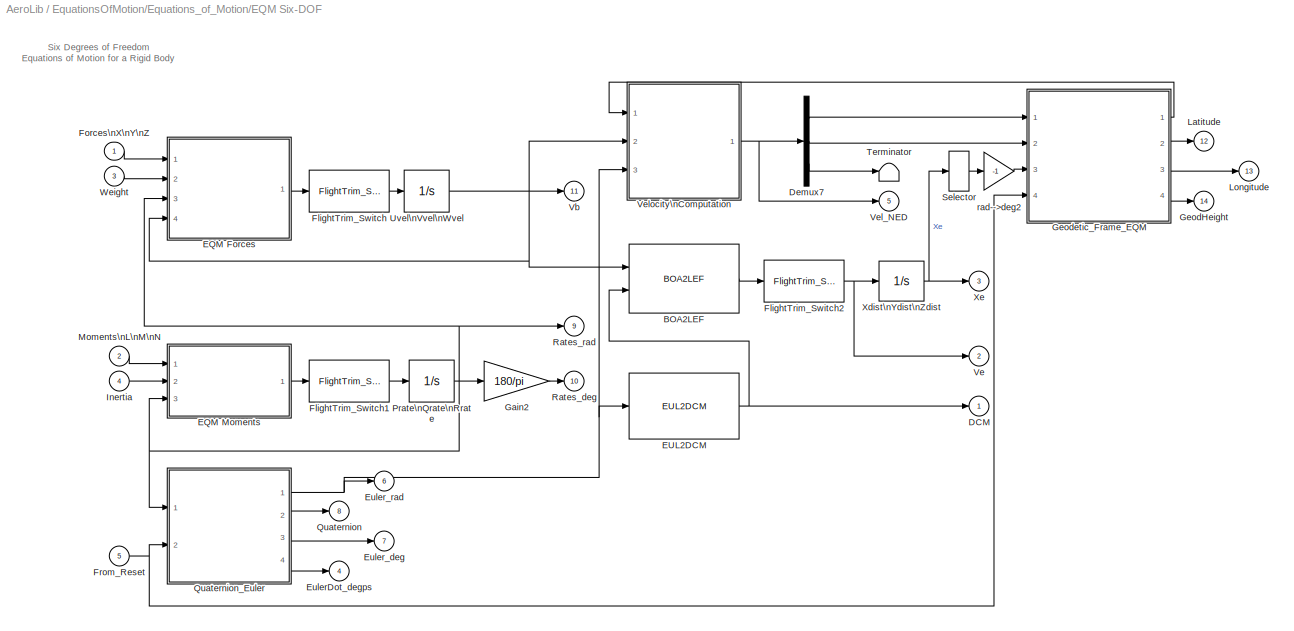
BLOCK [SubSystem] EquationsOfMotion/Equations_of_Motion/EQM Six-DOF
  MinAlgLoopOccurrences = off
  Ports = [5, 14]
  RTWSystemCode = Auto
  TreatAsAtomicUnit = off
BLOCK [Reference] EquationsOfMotion/Equations_of_Motion/EQM Six-DOF/BOA2LEF  REF=AeroLib/CoordinateSystems/BOA2LEF
  Ports = [2, 1]
  ShowPortLabels = on
  SourceBlock = AeroLib/CoordinateSystems/BOA2LEF
  SourceType = Unknown
BLOCK [Outport] EquationsOfMotion/Equations_of_Motion/EQM Six-DOF/DCM
  BusOutputAsStruct = off
  IconDisplay = Port number
  InitialOutput = 0
BLOCK [Demux] EquationsOfMotion/Equations_of_Motion/EQM Six-DOF/Demux7
  Outputs = 3
  Ports = [1, 3]
BLOCK [SubSystem] EquationsOfMotion/Equations_of_Motion/EQM Six-DOF/EQM Forces
  MinAlgLoopOccurrences = off
  Ports = [4, 1]
  RTWSystemCode = Auto
  TreatAsAtomicUnit = off
BLOCK [Outport] EquationsOfMotion/Equations_of_Motion/EQM Six-DOF/EQM Forces/Accel
  BusOutputAsStruct = off
  IconDisplay = Port number
BLOCK [Inport] EquationsOfMotion/Equations_of_Motion/EQM Six-DOF/EQM Forces/Fext
  IconDisplay = Port number
  LatchInput = off
  Port = 1
BLOCK [Reference] EquationsOfMotion/Equations_of_Motion/EQM Six-DOF/EQM Forces/Force_Vb_w  REF=aerospace/Axes\nTransformations/3x3 cross product  (lib defined in mdl_cf564d925549, slx_1354fe9238a2, +3 more)
  Ports = [2, 1]
  SourceBlock = aerospace/Axes\nTransformations/3x3 cross product
  SourceType = Cross Product
BLOCK [Constant] EquationsOfMotion/Equations_of_Motion/EQM Six-DOF/EQM Forces/Gravity
  Value = Atm.grav
BLOCK [Product] EquationsOfMotion/Equations_of_Motion/EQM Six-DOF/EQM Forces/Product
  Inputs = */
  Ports = [2, 1]
  RndMeth = Floor
BLOCK [Product] EquationsOfMotion/Equations_of_Motion/EQM Six-DOF/EQM Forces/Product1
  Inputs = */
  Ports = [2, 1]
  RndMeth = Floor
BLOCK [Inport] EquationsOfMotion/Equations_of_Motion/EQM Six-DOF/EQM Forces/Rate
  IconDisplay = Port number
  LatchInput = off
  Port = 3
BLOCK [Inport] EquationsOfMotion/Equations_of_Motion/EQM Six-DOF/EQM Forces/Vb
  IconDisplay = Port number
  LatchInput = off
  Port = 4
BLOCK [Inport] EquationsOfMotion/Equations_of_Motion/EQM Six-DOF/EQM Forces/Weight
  IconDisplay = Port number
  LatchInput = off
  Port = 2
BLOCK [Sum] EquationsOfMotion/Equations_of_Motion/EQM Six-DOF/EQM Forces/sum
  IconShape = round
  Ports = [2, 1]
BLOCK [SubSystem] EquationsOfMotion/Equations_of_Motion/EQM Six-DOF/EQM Moments
  MinAlgLoopOccurrences = off
  Ports = [3, 1]
  RTWSystemCode = Auto
  TreatAsAtomicUnit = off
BLOCK [Inport] EquationsOfMotion/Equations_of_Motion/EQM Six-DOF/EQM Moments/Inertia
  IconDisplay = Port number
  LatchInput = off
  Port = 2
BLOCK [Reference] EquationsOfMotion/Equations_of_Motion/EQM Six-DOF/EQM Moments/Moment_Rates_Inertia  REF=aerospace/Axes\nTransformations/3x3 cross product  (lib defined in mdl_cf564d925549, slx_1354fe9238a2, +3 more)
  Ports = [2, 1]
  SourceBlock = aerospace/Axes\nTransformations/3x3 cross product
  SourceType = Cross Product
BLOCK [Inport] EquationsOfMotion/Equations_of_Motion/EQM Six-DOF/EQM Moments/Moments
  IconDisplay = Port number
  LatchInput = off
  Port = 1
BLOCK [Product] EquationsOfMotion/Equations_of_Motion/EQM Six-DOF/EQM Moments/Product
  Inputs = /*
  Multiplication = Matrix(*)
  Ports = [2, 1]
  RndMeth = Floor
BLOCK [Inport] EquationsOfMotion/Equations_of_Motion/EQM Six-DOF/EQM Moments/Rates
  IconDisplay = Port number
  LatchInput = off
  Port = 3
BLOCK [Product] EquationsOfMotion/Equations_of_Motion/EQM Six-DOF/EQM Moments/matr_mult
  Multiplication = Matrix(*)
  Ports = [2, 1]
  RndMeth = Floor
BLOCK [Outport] EquationsOfMotion/Equations_of_Motion/EQM Six-DOF/EQM Moments/pdot\nqdot\nrdot
  BusOutputAsStruct = off
  IconDisplay = Port number
BLOCK [Sum] EquationsOfMotion/Equations_of_Motion/EQM Six-DOF/EQM Moments/sum1
  IconShape = round
  Inputs = +-
  Ports = [2, 1]
BLOCK [Reference] EquationsOfMotion/Equations_of_Motion/EQM Six-DOF/EUL2DCM  REF=AeroLib/CoordinateSystems/EUL2DCM
  Ports = [1, 1]
  ShowPortLabels = on
  SourceBlock = AeroLib/CoordinateSystems/EUL2DCM
  SourceType = Unknown
BLOCK [Outport] EquationsOfMotion/Equations_of_Motion/EQM Six-DOF/EulerDot_degps
  BusOutputAsStruct = off
  IconDisplay = Port number
  InitialOutput = 0
  Port = 4
BLOCK [Outport] EquationsOfMotion/Equations_of_Motion/EQM Six-DOF/Euler_deg
  BusOutputAsStruct = off
  IconDisplay = Port number
  InitialOutput = 0
  Port = 7
BLOCK [Outport] EquationsOfMotion/Equations_of_Motion/EQM Six-DOF/Euler_rad
  BusOutputAsStruct = off
  IconDisplay = Port number
  InitialOutput = 0
  Port = 6
BLOCK [Reference] EquationsOfMotion/Equations_of_Motion/EQM Six-DOF/FlightTrim_Switch  REF=AeroLib/AMS_StatelessFilters/FlightTrim_Switch
  Ports = [1, 1]
  ShowPortLabels = on
  SourceBlock = AeroLib/AMS_StatelessFilters/FlightTrim_Switch
  SourceType = Unknown
BLOCK [Reference] EquationsOfMotion/Equations_of_Motion/EQM Six-DOF/FlightTrim_Switch1  REF=AeroLib/AMS_StatelessFilters/FlightTrim_Switch
  Ports = [1, 1]
  ShowPortLabels = on
  SourceBlock = AeroLib/AMS_StatelessFilters/FlightTrim_Switch
  SourceType = Unknown
BLOCK [Reference] EquationsOfMotion/Equations_of_Motion/EQM Six-DOF/FlightTrim_Switch2  REF=AeroLib/AMS_StatelessFilters/FlightTrim_Switch
  Ports = [1, 1]
  ShowPortLabels = on
  SourceBlock = AeroLib/AMS_StatelessFilters/FlightTrim_Switch
  SourceType = Unknown
BLOCK [Inport] EquationsOfMotion/Equations_of_Motion/EQM Six-DOF/Forces\nX\nY\nZ
  IconDisplay = Port number
  LatchInput = off
  Port = 1
BLOCK [Inport] EquationsOfMotion/Equations_of_Motion/EQM Six-DOF/From_Reset
  IconDisplay = Port number
  LatchInput = off
  Port = 5
BLOCK [Gain] EquationsOfMotion/Equations_of_Motion/EQM Six-DOF/Gain2
  Gain = 180/pi
BLOCK [Outport] EquationsOfMotion/Equations_of_Motion/EQM Six-DOF/GeodHeight
  BusOutputAsStruct = off
  IconDisplay = Port number
  InitialOutput = 0
  Port = 14
BLOCK [SubSystem] EquationsOfMotion/Equations_of_Motion/EQM Six-DOF/Geodetic_Frame_EQM
  MinAlgLoopOccurrences = off
  Ports = [4, 4]
  RTWSystemCode = Auto
  TreatAsAtomicUnit = off
BLOCK [Inport] EquationsOfMotion/Equations_of_Motion/EQM Six-DOF/Geodetic_Frame_EQM/Alt_m
  IconDisplay = Port number
  LatchInput = off
  Port = 3
BLOCK [Constant] EquationsOfMotion/Equations_of_Motion/EQM Six-DOF/Geodetic_Frame_EQM/Constant
  Value = 0
BLOCK [Constant] EquationsOfMotion/Equations_of_Motion/EQM Six-DOF/Geodetic_Frame_EQM/Constant1
  Value = Flight_latitude
BLOCK [Constant] EquationsOfMotion/Equations_of_Motion/EQM Six-DOF/Geodetic_Frame_EQM/Constant23
  Value = Flight_longitude
BLOCK [Gain] EquationsOfMotion/Equations_of_Motion/EQM Six-DOF/Geodetic_Frame_EQM/Deg-->Rad
  Gain = pi/180
BLOCK [Demux] EquationsOfMotion/Equations_of_Motion/EQM Six-DOF/Geodetic_Frame_EQM/Demux
  Outputs = 2
  Ports = [1, 2]
BLOCK [Fcn] EquationsOfMotion/Equations_of_Motion/EQM Six-DOF/Geodetic_Frame_EQM/Fcn5
  Expr = u(2)*sin(u(1))
BLOCK [Outport] EquationsOfMotion/Equations_of_Motion/EQM Six-DOF/Geodetic_Frame_EQM/GeodHeight_m
  BusOutputAsStruct = off
  IconDisplay = Port number
  Port = 4
BLOCK [Product] EquationsOfMotion/Equations_of_Motion/EQM Six-DOF/Geodetic_Frame_EQM/LatitudeDot
  Inputs = /*
  Ports = [2, 1]
  RndMeth = Floor
BLOCK [Outport] EquationsOfMotion/Equations_of_Motion/EQM Six-DOF/Geodetic_Frame_EQM/Latitude_deg
  BusOutputAsStruct = off
  IconDisplay = Port number
  Port = 2
BLOCK [Product] EquationsOfMotion/Equations_of_Motion/EQM Six-DOF/Geodetic_Frame_EQM/LongitudeDot
  Inputs = *//
  Ports = [3, 1]
  RndMeth = Floor
BLOCK [SubSystem] EquationsOfMotion/Equations_of_Motion/EQM Six-DOF/Geodetic_Frame_EQM/Longitude_Bound
  MinAlgLoopOccurrences = off
  Ports = [1, 2]
  RTWSystemCode = Auto
  TreatAsAtomicUnit = off
BLOCK [Demux] EquationsOfMotion/Equations_of_Motion/EQM Six-DOF/Geodetic_Frame_EQM/Longitude_Bound/Demux
  Outputs = 2
  Ports = [1, 2]
BLOCK [Fcn] EquationsOfMotion/Equations_of_Motion/EQM Six-DOF/Geodetic_Frame_EQM/Longitude_Bound/Fcn2
  Expr = u(1) + 360*u(2)
BLOCK [Fcn] EquationsOfMotion/Equations_of_Motion/EQM Six-DOF/Geodetic_Frame_EQM/Longitude_Bound/Fcn3
  Expr = u(1) - 360*u(2)
BLOCK [Inport] EquationsOfMotion/Equations_of_Motion/EQM Six-DOF/Geodetic_Frame_EQM/Longitude_Bound/Lat\nLon
  IconDisplay = Port number
  LatchInput = off
  Port = 1
BLOCK [Outport] EquationsOfMotion/Equations_of_Motion/EQM Six-DOF/Geodetic_Frame_EQM/Longitude_Bound/Lat_deg
  BusOutputAsStruct = off
  IconDisplay = Port number
  Port = 2
BLOCK [Outport] EquationsOfMotion/Equations_of_Motion/EQM Six-DOF/Geodetic_Frame_EQM/Longitude_Bound/Lon_deg
  BusOutputAsStruct = off
  IconDisplay = Port number
BLOCK [Mux] EquationsOfMotion/Equations_of_Motion/EQM Six-DOF/Geodetic_Frame_EQM/Longitude_Bound/Mux
  DisplayOption = bar
  Inputs = 2
  Ports = [2, 1]
BLOCK [Mux] EquationsOfMotion/Equations_of_Motion/EQM Six-DOF/Geodetic_Frame_EQM/Longitude_Bound/Mux1
  DisplayOption = bar
  Inputs = 2
  Ports = [2, 1]
BLOCK [SubSystem] EquationsOfMotion/Equations_of_Motion/EQM Six-DOF/Geodetic_Frame_EQM/Longitude_Bound/Poles
  MinAlgLoopOccurrences = off
  Ports = [2, 1]
  RTWSystemCode = Auto
  TreatAsAtomicUnit = off
BLOCK [Fcn] EquationsOfMotion/Equations_of_Motion/EQM Six-DOF/Geodetic_Frame_EQM/Longitude_Bound/Poles/Fcn1
  Expr = abs(abs(u ) - 90) < 0.00001
BLOCK [Fcn] EquationsOfMotion/Equations_of_Motion/EQM Six-DOF/Geodetic_Frame_EQM/Longitude_Bound/Poles/Fcn2
  Expr = u(1)+180*u(2)
BLOCK [Inport] EquationsOfMotion/Equations_of_Motion/EQM Six-DOF/Geodetic_Frame_EQM/Longitude_Bound/Poles/Latitude_deg
  IconDisplay = Port number
  LatchInput = off
  Port = 1
BLOCK [Outport] EquationsOfMotion/Equations_of_Motion/EQM Six-DOF/Geodetic_Frame_EQM/Longitude_Bound/Poles/LimLongitude_deg
  BusOutputAsStruct = off
  IconDisplay = Port number
BLOCK [Inport] EquationsOfMotion/Equations_of_Motion/EQM Six-DOF/Geodetic_Frame_EQM/Longitude_Bound/Poles/Longitude_deg
  IconDisplay = Port number
  LatchInput = off
  Port = 2
BLOCK [Memory] EquationsOfMotion/Equations_of_Motion/EQM Six-DOF/Geodetic_Frame_EQM/Longitude_Bound/Poles/Memory
BLOCK [Mux] EquationsOfMotion/Equations_of_Motion/EQM Six-DOF/Geodetic_Frame_EQM/Longitude_Bound/Poles/Mux
  DisplayOption = bar
  Inputs = 2
  Ports = [2, 1]
BLOCK [Sum] EquationsOfMotion/Equations_of_Motion/EQM Six-DOF/Geodetic_Frame_EQM/Longitude_Bound/Poles/Sum
  IconShape = round
  Inputs = |++
  Ports = [2, 1]
BLOCK [Switch] EquationsOfMotion/Equations_of_Motion/EQM Six-DOF/Geodetic_Frame_EQM/Longitude_Bound/Poles/Switch2
  Threshold = 0.5
BLOCK [SubSystem] EquationsOfMotion/Equations_of_Motion/EQM Six-DOF/Geodetic_Frame_EQM/Longitude_Bound/Subsystem
  MinAlgLoopOccurrences = off
  Ports = [1, 1]
  RTWSystemCode = Auto
  TreatAsAtomicUnit = off
BLOCK [Constant] EquationsOfMotion/Equations_of_Motion/EQM Six-DOF/Geodetic_Frame_EQM/Longitude_Bound/Subsystem/Constant
BLOCK [Fcn] EquationsOfMotion/Equations_of_Motion/EQM Six-DOF/Geodetic_Frame_EQM/Longitude_Bound/Subsystem/Fcn1
  Expr = u/360
BLOCK [Inport] EquationsOfMotion/Equations_of_Motion/EQM Six-DOF/Geodetic_Frame_EQM/Longitude_Bound/Subsystem/In1
  IconDisplay = Port number
  LatchInput = off
  Port = 1
BLOCK [MinMax] EquationsOfMotion/Equations_of_Motion/EQM Six-DOF/Geodetic_Frame_EQM/Longitude_Bound/Subsystem/MinMax
  Function = max
  Inputs = 2
  Ports = [2, 1]
BLOCK [Outport] EquationsOfMotion/Equations_of_Motion/EQM Six-DOF/Geodetic_Frame_EQM/Longitude_Bound/Subsystem/Out1
  BusOutputAsStruct = off
  IconDisplay = Port number
BLOCK [Rounding] EquationsOfMotion/Equations_of_Motion/EQM Six-DOF/Geodetic_Frame_EQM/Longitude_Bound/Subsystem/Rounding\nFunction
  Operator = round
BLOCK [SubSystem] EquationsOfMotion/Equations_of_Motion/EQM Six-DOF/Geodetic_Frame_EQM/Longitude_Bound/Subsystem1
  MinAlgLoopOccurrences = off
  Ports = [1, 1]
  RTWSystemCode = Auto
  TreatAsAtomicUnit = off
BLOCK [Constant] EquationsOfMotion/Equations_of_Motion/EQM Six-DOF/Geodetic_Frame_EQM/Longitude_Bound/Subsystem1/Constant
BLOCK [Fcn] EquationsOfMotion/Equations_of_Motion/EQM Six-DOF/Geodetic_Frame_EQM/Longitude_Bound/Subsystem1/Fcn1
  Expr = abs(u/360)
BLOCK [Inport] EquationsOfMotion/Equations_of_Motion/EQM Six-DOF/Geodetic_Frame_EQM/Longitude_Bound/Subsystem1/In1
  IconDisplay = Port number
  LatchInput = off
  Port = 1
BLOCK [MinMax] EquationsOfMotion/Equations_of_Motion/EQM Six-DOF/Geodetic_Frame_EQM/Longitude_Bound/Subsystem1/MinMax
  Function = max
  Inputs = 2
  Ports = [2, 1]
BLOCK [Outport] EquationsOfMotion/Equations_of_Motion/EQM Six-DOF/Geodetic_Frame_EQM/Longitude_Bound/Subsystem1/Out1
  BusOutputAsStruct = off
  IconDisplay = Port number
BLOCK [Rounding] EquationsOfMotion/Equations_of_Motion/EQM Six-DOF/Geodetic_Frame_EQM/Longitude_Bound/Subsystem1/Rounding\nFunction
  Operator = round
BLOCK [Switch] EquationsOfMotion/Equations_of_Motion/EQM Six-DOF/Geodetic_Frame_EQM/Longitude_Bound/Switch2
  Threshold = -180
BLOCK [Switch] EquationsOfMotion/Equations_of_Motion/EQM Six-DOF/Geodetic_Frame_EQM/Longitude_Bound/Switch3
  Threshold = 180
BLOCK [Outport] EquationsOfMotion/Equations_of_Motion/EQM Six-DOF/Geodetic_Frame_EQM/Longitude_deg
  BusOutputAsStruct = off
  IconDisplay = Port number
  Port = 3
BLOCK [Mux] EquationsOfMotion/Equations_of_Motion/EQM Six-DOF/Geodetic_Frame_EQM/Mux
  DisplayOption = bar
  Inputs = 2
  Ports = [2, 1]
BLOCK [Mux] EquationsOfMotion/Equations_of_Motion/EQM Six-DOF/Geodetic_Frame_EQM/Mux1
  DisplayOption = bar
  Inputs = 2
  Ports = [2, 1]
BLOCK [Mux] EquationsOfMotion/Equations_of_Motion/EQM Six-DOF/Geodetic_Frame_EQM/Mux2
  DisplayOption = bar
  Inputs = 2
  Ports = [2, 1]
BLOCK [Mux] EquationsOfMotion/Equations_of_Motion/EQM Six-DOF/Geodetic_Frame_EQM/Mux4
  DisplayOption = bar
  Inputs = 2
  Ports = [2, 1]
BLOCK [Inport] EquationsOfMotion/Equations_of_Motion/EQM Six-DOF/Geodetic_Frame_EQM/Reset
  IconDisplay = Port number
  LatchInput = off
  Port = 4
BLOCK [Reference] EquationsOfMotion/Equations_of_Motion/EQM Six-DOF/Geodetic_Frame_EQM/Stateless_Integrator  REF=AeroLib/AMS_StatelessFilters/Stateless_Integrator
  Ports = [3, 1]
  ShowPortLabels = on
  SourceBlock = AeroLib/AMS_StatelessFilters/Stateless_Integrator
  SourceType = Unknown
BLOCK [Reference] EquationsOfMotion/Equations_of_Motion/EQM Six-DOF/Geodetic_Frame_EQM/Stateless_Integrator1  REF=AeroLib/AMS_StatelessFilters/Stateless_Integrator
  Ports = [3, 1]
  ShowPortLabels = on
  SourceBlock = AeroLib/AMS_StatelessFilters/Stateless_Integrator
  SourceType = Unknown
BLOCK [Trigonometry] EquationsOfMotion/Equations_of_Motion/EQM Six-DOF/Geodetic_Frame_EQM/Trigonometric\nFunction
  Operator = cos
  Ports = [1, 1]
BLOCK [Inport] EquationsOfMotion/Equations_of_Motion/EQM Six-DOF/Geodetic_Frame_EQM/VE
  IconDisplay = Port number
  LatchInput = off
  Port = 2
BLOCK [Inport] EquationsOfMotion/Equations_of_Motion/EQM Six-DOF/Geodetic_Frame_EQM/VN
  IconDisplay = Port number
  LatchInput = off
  Port = 1
BLOCK [SubSystem] EquationsOfMotion/Equations_of_Motion/EQM Six-DOF/Geodetic_Frame_EQM/WGS 84
  MinAlgLoopOccurrences = off
  Ports = [2, 3]
  RTWSystemCode = Auto
  TreatAsAtomicUnit = off
BLOCK [Inport] EquationsOfMotion/Equations_of_Motion/EQM Six-DOF/Geodetic_Frame_EQM/WGS 84/Altitude_m
  IconDisplay = Port number
  LatchInput = off
  Port = 2
BLOCK [Fcn] EquationsOfMotion/Equations_of_Motion/EQM Six-DOF/Geodetic_Frame_EQM/WGS 84/Fcn
  Expr = (6378137+ u(2) )*(1-0.00669438)/(u(1)^1.5)
BLOCK [Fcn] EquationsOfMotion/Equations_of_Motion/EQM Six-DOF/Geodetic_Frame_EQM/WGS 84/Fcn1
  Expr = (6378137+ u(2) )/sqrt(u(1))
BLOCK [Fcn] EquationsOfMotion/Equations_of_Motion/EQM Six-DOF/Geodetic_Frame_EQM/WGS 84/Fcn2
  Expr = 1-0.00669437999*(sin(u(1)))^2
BLOCK [Fcn] EquationsOfMotion/Equations_of_Motion/EQM Six-DOF/Geodetic_Frame_EQM/WGS 84/Fcn3
  Expr = 6378137 - 21385*sin(u(1))+u(2)
BLOCK [Outport] EquationsOfMotion/Equations_of_Motion/EQM Six-DOF/Geodetic_Frame_EQM/WGS 84/GeogHight_m
  BusOutputAsStruct = off
  IconDisplay = Port number
  Port = 2
BLOCK [Inport] EquationsOfMotion/Equations_of_Motion/EQM Six-DOF/Geodetic_Frame_EQM/WGS 84/Latitude_rad
  IconDisplay = Port number
  LatchInput = off
  Port = 1
BLOCK [Mux] EquationsOfMotion/Equations_of_Motion/EQM Six-DOF/Geodetic_Frame_EQM/WGS 84/Mux2
  DisplayOption = bar
  Inputs = 2
  Ports = [2, 1]
BLOCK [Mux] EquationsOfMotion/Equations_of_Motion/EQM Six-DOF/Geodetic_Frame_EQM/WGS 84/Mux3
  DisplayOption = bar
  Inputs = 2
  Ports = [2, 1]
BLOCK [Outport] EquationsOfMotion/Equations_of_Motion/EQM Six-DOF/Geodetic_Frame_EQM/WGS 84/RadOfCurv_mer_m
  BusOutputAsStruct = off
  IconDisplay = Port number
  Port = 3
BLOCK [Outport] EquationsOfMotion/Equations_of_Motion/EQM Six-DOF/Geodetic_Frame_EQM/WGS 84/RadOfCurv_ver_m
  BusOutputAsStruct = off
  IconDisplay = Port number
BLOCK [Outport] EquationsOfMotion/Equations_of_Motion/EQM Six-DOF/Geodetic_Frame_EQM/Wander\nangle_rad
  BusOutputAsStruct = off
  IconDisplay = Port number
BLOCK [SubSystem] EquationsOfMotion/Equations_of_Motion/EQM Six-DOF/Geodetic_Frame_EQM/Zero-->Eps
  MinAlgLoopOccurrences = off
  Ports = [1, 1]
  RTWSystemCode = Auto
  TreatAsAtomicUnit = off
BLOCK [Constant] EquationsOfMotion/Equations_of_Motion/EQM Six-DOF/Geodetic_Frame_EQM/Zero-->Eps/Constant1
  Value = eps
BLOCK [Fcn] EquationsOfMotion/Equations_of_Motion/EQM Six-DOF/Geodetic_Frame_EQM/Zero-->Eps/Fcn2
  Expr = abs(u) > eps
BLOCK [Inport] EquationsOfMotion/Equations_of_Motion/EQM Six-DOF/Geodetic_Frame_EQM/Zero-->Eps/In1
  IconDisplay = Port number
  LatchInput = off
  Port = 1
BLOCK [Outport] EquationsOfMotion/Equations_of_Motion/EQM Six-DOF/Geodetic_Frame_EQM/Zero-->Eps/Out1
  BusOutputAsStruct = off
  IconDisplay = Port number
BLOCK [Product] EquationsOfMotion/Equations_of_Motion/EQM Six-DOF/Geodetic_Frame_EQM/Zero-->Eps/Product
  Ports = [2, 1]
  RndMeth = Floor
BLOCK [Signum] EquationsOfMotion/Equations_of_Motion/EQM Six-DOF/Geodetic_Frame_EQM/Zero-->Eps/Sign
BLOCK [Switch] EquationsOfMotion/Equations_of_Motion/EQM Six-DOF/Geodetic_Frame_EQM/Zero-->Eps/Switch
  Threshold = 0.5
BLOCK [Lookup] EquationsOfMotion/Equations_of_Motion/EQM Six-DOF/Geodetic_Frame_EQM/latitude_Bound
  DialogController = Simulink.DDGSource
  InputValues = [-2*pi -3*pi/2 -pi -pi/2 0 pi/2 pi 3*pi/2 2*pi]
  OutputValues = [0 pi/2 0 -pi/2 0 pi/2 0 -pi/2 0]
BLOCK [Gain] EquationsOfMotion/Equations_of_Motion/EQM Six-DOF/Geodetic_Frame_EQM/rad-->deg
  Gain = 180/pi
BLOCK [Inport] EquationsOfMotion/Equations_of_Motion/EQM Six-DOF/Inertia
  IconDisplay = Port number
  LatchInput = off
  Port = 4
BLOCK [Outport] EquationsOfMotion/Equations_of_Motion/EQM Six-DOF/Latitude
  BusOutputAsStruct = off
  IconDisplay = Port number
  InitialOutput = 0
  Port = 12
BLOCK [Outport] EquationsOfMotion/Equations_of_Motion/EQM Six-DOF/Longitude
  BusOutputAsStruct = off
  IconDisplay = Port number
  InitialOutput = 0
  Port = 13
BLOCK [Inport] EquationsOfMotion/Equations_of_Motion/EQM Six-DOF/Moments\nL\nM\nN
  IconDisplay = Port number
  LatchInput = off
  Port = 2
BLOCK [Integrator] EquationsOfMotion/Equations_of_Motion/EQM Six-DOF/Prate\nQrate\nRrate
  Ports = [1, 1]
BLOCK [Outport] EquationsOfMotion/Equations_of_Motion/EQM Six-DOF/Quaternion
  BusOutputAsStruct = off
  IconDisplay = Port number
  InitialOutput = 0
  Port = 8
BLOCK [SubSystem] EquationsOfMotion/Equations_of_Motion/EQM Six-DOF/Quaternion_Euler
  MinAlgLoopOccurrences = off
  Ports = [2, 4]
  RTWSystemCode = Auto
  TreatAsAtomicUnit = off
BLOCK [Clock] EquationsOfMotion/Equations_of_Motion/EQM Six-DOF/Quaternion_Euler/Clock
  Decimation = 10
BLOCK [Constant] EquationsOfMotion/Equations_of_Motion/EQM Six-DOF/Quaternion_Euler/Constant
  Value = Flight_Trimming
BLOCK [Reference] EquationsOfMotion/Equations_of_Motion/EQM Six-DOF/Quaternion_Euler/EUL2QUA  REF=AeroLib/CoordinateSystems/EUL2QUA
  Ports = [1, 1]
  ShowPortLabels = on
  SourceBlock = AeroLib/CoordinateSystems/EUL2QUA
  SourceType = Unknown
BLOCK [SubSystem] EquationsOfMotion/Equations_of_Motion/EQM Six-DOF/Quaternion_Euler/Euler
  MinAlgLoopOccurrences = off
  Ports = [1, 1, 1]
  RTWSystemCode = Auto
  TreatAsAtomicUnit = on
BLOCK [SubSystem] EquationsOfMotion/Equations_of_Motion/EQM Six-DOF/Quaternion_Euler/Euler/EQM Euler_Angles
  MinAlgLoopOccurrences = off
  Ports = [2, 1]
  RTWSystemCode = Auto
  TreatAsAtomicUnit = off
BLOCK [Mux] EquationsOfMotion/Equations_of_Motion/EQM Six-DOF/Quaternion_Euler/Euler/EQM Euler_Angles/Mux1
  DisplayOption = bar
  Inputs = [3 3]
  Ports = [2, 1]
BLOCK [Mux] EquationsOfMotion/Equations_of_Motion/EQM Six-DOF/Quaternion_Euler/Euler/EQM Euler_Angles/Mux2
  DisplayOption = bar
  Inputs = 3
  Ports = [3, 1]
BLOCK [Inport] EquationsOfMotion/Equations_of_Motion/EQM Six-DOF/Quaternion_Euler/Euler/EQM Euler_Angles/p\nq\nr
  IconDisplay = Port number
  LatchInput = off
  Port = 1
BLOCK [Inport] EquationsOfMotion/Equations_of_Motion/EQM Six-DOF/Quaternion_Euler/Euler/EQM Euler_Angles/phi\ntheta\npsi
  IconDisplay = Port number
  LatchInput = off
  Port = 2
BLOCK [Fcn] EquationsOfMotion/Equations_of_Motion/EQM Six-DOF/Quaternion_Euler/Euler/EQM Euler_Angles/phidot
  Expr = u[1]+u[2]*sin(u[4])*tan(u[5])+u[3]*cos(u[4])*tan(u[5])
BLOCK [Outport] EquationsOfMotion/Equations_of_Motion/EQM Six-DOF/Quaternion_Euler/Euler/EQM Euler_Angles/phidot\nthetadot\npsidot
  BusOutputAsStruct = off
  IconDisplay = Port number
  InitialOutput = 0
BLOCK [Fcn] EquationsOfMotion/Equations_of_Motion/EQM Six-DOF/Quaternion_Euler/Euler/EQM Euler_Angles/psidot
  Expr = u[2]*sin(u[4])/cos(u[5])+u[3]*cos(u[4])/cos(u[5])
BLOCK [Fcn] EquationsOfMotion/Equations_of_Motion/EQM Six-DOF/Quaternion_Euler/Euler/EQM Euler_Angles/thetadot
  Expr = u[2]*cos(u[4])-u[3]*sin(u[4])
BLOCK [EnablePort] EquationsOfMotion/Equations_of_Motion/EQM Six-DOF/Quaternion_Euler/Euler/Enable
  Ports = []
BLOCK [Outport] EquationsOfMotion/Equations_of_Motion/EQM Six-DOF/Quaternion_Euler/Euler/Euler_Trim
  BusOutputAsStruct = off
  IconDisplay = Port number
  InitialOutput = 0
BLOCK [Inport] EquationsOfMotion/Equations_of_Motion/EQM Six-DOF/Quaternion_Euler/Euler/P Q R
  IconDisplay = Port number
  LatchInput = off
  Port = 1
BLOCK [Integrator] EquationsOfMotion/Equations_of_Motion/EQM Six-DOF/Quaternion_Euler/Euler/PHIang\nTHETAang\nPSIang
  Ports = [1, 1]
BLOCK [Outport] EquationsOfMotion/Equations_of_Motion/EQM Six-DOF/Quaternion_Euler/EulerDot_degps
  BusOutputAsStruct = off
  IconDisplay = Port number
  Port = 4
BLOCK [Outport] EquationsOfMotion/Equations_of_Motion/EQM Six-DOF/Quaternion_Euler/Euler_deg
  BusOutputAsStruct = off
  IconDisplay = Port number
  Port = 3
BLOCK [Outport] EquationsOfMotion/Equations_of_Motion/EQM Six-DOF/Quaternion_Euler/Euler_rad
  BusOutputAsStruct = off
  IconDisplay = Port number
BLOCK [Fcn] EquationsOfMotion/Equations_of_Motion/EQM Six-DOF/Quaternion_Euler/Fcn
  Expr = u <= 0
BLOCK [Inport] EquationsOfMotion/Equations_of_Motion/EQM Six-DOF/Quaternion_Euler/From_Reset
  IconDisplay = Port number
  LatchInput = off
  Port = 2
BLOCK [Gain] EquationsOfMotion/Equations_of_Motion/EQM Six-DOF/Quaternion_Euler/Gain
  Gain = 180/pi
BLOCK [Logic] EquationsOfMotion/Equations_of_Motion/EQM Six-DOF/Quaternion_Euler/Logical\nOperator
  Operator = NOT
  Ports = [1, 1]
BLOCK [Inport] EquationsOfMotion/Equations_of_Motion/EQM Six-DOF/Quaternion_Euler/P Q R
  IconDisplay = Port number
  LatchInput = off
  Port = 1
BLOCK [Outport] EquationsOfMotion/Equations_of_Motion/EQM Six-DOF/Quaternion_Euler/Quaternion
  BusOutputAsStruct = off
  IconDisplay = Port number
  InitialOutput = 0
  Port = 2
BLOCK [SubSystem] EquationsOfMotion/Equations_of_Motion/EQM Six-DOF/Quaternion_Euler/Quaternion_Comp
  MaskIconFrame = on
  MaskIconOpaque = on
  MaskIconRotate = none
  MaskIconUnits = autoscale
  MinAlgLoopOccurrences = off
  Ports = [2, 2, 1]
  RTWSystemCode = Auto
  TreatAsAtomicUnit = on
BLOCK [DeadZone] EquationsOfMotion/Equations_of_Motion/EQM Six-DOF/Quaternion_Euler/Quaternion_Comp/DeadZone
  LowerValue = -eps
  UpperValue = eps
BLOCK [EnablePort] EquationsOfMotion/Equations_of_Motion/EQM Six-DOF/Quaternion_Euler/Quaternion_Comp/Enable
  Ports = []
BLOCK [Outport] EquationsOfMotion/Equations_of_Motion/EQM Six-DOF/Quaternion_Euler/Quaternion_Comp/Euler  angles
  BusOutputAsStruct = off
  IconDisplay = Port number
BLOCK [Inport] EquationsOfMotion/Equations_of_Motion/EQM Six-DOF/Quaternion_Euler/Quaternion_Comp/Flight_q
  IconDisplay = Port number
  LatchInput = off
  Port = 1
BLOCK [Inport] EquationsOfMotion/Equations_of_Motion/EQM Six-DOF/Quaternion_Euler/Quaternion_Comp/P Q R
  IconDisplay = Port number
  LatchInput = off
  Port = 2
BLOCK [Reference] EquationsOfMotion/Equations_of_Motion/EQM Six-DOF/Quaternion_Euler/Quaternion_Comp/QUA2EUL  REF=AeroLib/CoordinateSystems/QUA2EUL
  Ports = [1, 1]
  SourceBlock = AeroLib/CoordinateSystems/QUA2EUL
  SourceType = Unknown
BLOCK [Outport] EquationsOfMotion/Equations_of_Motion/EQM Six-DOF/Quaternion_Euler/Quaternion_Comp/Quaternion
  BusOutputAsStruct = off
  IconDisplay = Port number
  Port = 2
BLOCK [SubSystem] EquationsOfMotion/Equations_of_Motion/EQM Six-DOF/Quaternion_Euler/Quaternion_Comp/Quaternion Derivative
  MaskDisplay = disp('q = q1 + i*q2 + j*q3 + k*q4\\n---------------------------------------------\\nq1dot =-0.5*(q2*P + q3*Q + q4*R)\\nq2dot = 0.5*(q1*P + q3*R -  q4*Q)\\nq3dot = 0.5*(q1*Q + q3*P - q2*R)\\nq4dot = 0.5*(q1*R + q2*Q - q3*P)')\n
  MaskIconFrame = on
  MaskIconOpaque = on
  MaskIconRotate = none
  MaskIconUnits = autoscale
  MinAlgLoopOccurrences = off
  Ports = [2, 1]
  RTWSystemCode = Auto
  ShowPortLabels = off
  TreatAsAtomicUnit = off
BLOCK [Mux] EquationsOfMotion/Equations_of_Motion/EQM Six-DOF/Quaternion_Euler/Quaternion_Comp/Quaternion Derivative/Mux1
  DisplayOption = bar
  Inputs = 2
  Ports = [2, 1]
BLOCK [Mux] EquationsOfMotion/Equations_of_Motion/EQM Six-DOF/Quaternion_Euler/Quaternion_Comp/Quaternion Derivative/Mux2
  DisplayOption = bar
  Ports = [4, 1]
BLOCK [Inport] EquationsOfMotion/Equations_of_Motion/EQM Six-DOF/Quaternion_Euler/Quaternion_Comp/Quaternion Derivative/p q r
  IconDisplay = Port number
  LatchInput = off
  Port = 1
BLOCK [Inport] EquationsOfMotion/Equations_of_Motion/EQM Six-DOF/Quaternion_Euler/Quaternion_Comp/Quaternion Derivative/q
  IconDisplay = Port number
  LatchInput = off
  Port = 2
BLOCK [Fcn] EquationsOfMotion/Equations_of_Motion/EQM Six-DOF/Quaternion_Euler/Quaternion_Comp/Quaternion Derivative/q1dot
  Expr = -0.5 * ( u[5]*u[1]+u[6]*u[2]+u[7]*u[3] )
BLOCK [Fcn] EquationsOfMotion/Equations_of_Motion/EQM Six-DOF/Quaternion_Euler/Quaternion_Comp/Quaternion Derivative/q2dot
  Expr = 0.5 * ( u[4]*u[1]+u[6]*u[3]-u[7]*u[2] )
BLOCK [Fcn] EquationsOfMotion/Equations_of_Motion/EQM Six-DOF/Quaternion_Euler/Quaternion_Comp/Quaternion Derivative/q3dot
  Expr = 0.5 * ( u[4]*u[2]+u[7]*u[1]-u[5]*u[3] )
BLOCK [Fcn] EquationsOfMotion/Equations_of_Motion/EQM Six-DOF/Quaternion_Euler/Quaternion_Comp/Quaternion Derivative/q4dot
  Expr = 0.5 * ( u[4]*u[3]+u[5]*u[2]-u[6]*u[1] )
BLOCK [Outport] EquationsOfMotion/Equations_of_Motion/EQM Six-DOF/Quaternion_Euler/Quaternion_Comp/Quaternion Derivative/q_dot
  BusOutputAsStruct = off
  IconDisplay = Port number
  InitialOutput = 0
BLOCK [SubSystem] EquationsOfMotion/Equations_of_Motion/EQM Six-DOF/Quaternion_Euler/Quaternion_Comp/Quaternion\nNormalize
  MaskDescription = qout = q/sqrt(q(1)^2+q(2)^2+q(3)^2+q(4)^2)
  MaskIconFrame = on
  MaskIconOpaque = off
  MaskIconRotate = none
  MaskIconUnits = pixels
  MaskInitialization = pos = get_param(gcb, 'Position');\nwidth = pos(3) - pos(1); height = pos(4) - pos(2);\nfontsize = get_param(gcb, 'fontsize');\nscale=fontsize/10;
  MaskType = Quaternion Normalize
  MinAlgLoopOccurrences = off
  Ports = [1, 1]
  RTWSystemCode = Auto
  TreatAsAtomicUnit = off
BLOCK [Product] EquationsOfMotion/Equations_of_Motion/EQM Six-DOF/Quaternion_Euler/Quaternion_Comp/Quaternion\nNormalize/Product
  Inputs = */
  Ports = [2, 1]
  RndMeth = Floor
BLOCK [Math] EquationsOfMotion/Equations_of_Motion/EQM Six-DOF/Quaternion_Euler/Quaternion_Comp/Quaternion\nNormalize/Square
  Operator = square
  Ports = [1, 1]
BLOCK [Math] EquationsOfMotion/Equations_of_Motion/EQM Six-DOF/Quaternion_Euler/Quaternion_Comp/Quaternion\nNormalize/Square\nRoot
  Operator = sqrt
  Ports = [1, 1]
BLOCK [Sum] EquationsOfMotion/Equations_of_Motion/EQM Six-DOF/Quaternion_Euler/Quaternion_Comp/Quaternion\nNormalize/Sum
  IconShape = round
  Inputs = 1
  Ports = [1, 1]
BLOCK [Inport] EquationsOfMotion/Equations_of_Motion/EQM Six-DOF/Quaternion_Euler/Quaternion_Comp/Quaternion\nNormalize/q
  IconDisplay = Port number
  LatchInput = off
  Port = 1
  PortDimensions = 4
BLOCK [Outport] EquationsOfMotion/Equations_of_Motion/EQM Six-DOF/Quaternion_Euler/Quaternion_Comp/Quaternion\nNormalize/qnorm
  BusOutputAsStruct = off
  IconDisplay = Port number
  InitialOutput = 0
BLOCK [Integrator] EquationsOfMotion/Equations_of_Motion/EQM Six-DOF/Quaternion_Euler/Quaternion_Comp/q1\nq2\nq3\nq4
  InitialConditionSource = external
  Ports = [2, 1]
BLOCK [Reference] EquationsOfMotion/Equations_of_Motion/EQM Six-DOF/Quaternion_Euler/Stateless_HighPass  REF=AeroLib/AMS_StatelessFilters/Stateless_HighPass
  Ports = [3, 1]
  ShowPortLabels = on
  SourceBlock = AeroLib/AMS_StatelessFilters/Stateless_HighPass
  SourceType = Unknown
BLOCK [Switch] EquationsOfMotion/Equations_of_Motion/EQM Six-DOF/Quaternion_Euler/Switch
  Threshold = 0.5
BLOCK [Switch] EquationsOfMotion/Equations_of_Motion/EQM Six-DOF/Quaternion_Euler/Switch1
  Threshold = 0.5
BLOCK [Constant] EquationsOfMotion/Equations_of_Motion/EQM Six-DOF/Quaternion_Euler/Tau
  Value = 0.1
BLOCK [Logic] EquationsOfMotion/Equations_of_Motion/EQM Six-DOF/Quaternion_Euler/or
  Operator = OR
  Ports = [2, 1]
BLOCK [Outport] EquationsOfMotion/Equations_of_Motion/EQM Six-DOF/Rates_deg
  BusOutputAsStruct = off
  IconDisplay = Port number
  InitialOutput = 0
  Port = 10
BLOCK [Outport] EquationsOfMotion/Equations_of_Motion/EQM Six-DOF/Rates_rad
  BusOutputAsStruct = off
  IconDisplay = Port number
  InitialOutput = 0
  Port = 9
BLOCK [Selector] EquationsOfMotion/Equations_of_Motion/EQM Six-DOF/Selector
  Elements = [3]
  InputPortWidth = 3
  Ports = [1, 1]
BLOCK [Terminator] EquationsOfMotion/Equations_of_Motion/EQM Six-DOF/Terminator
BLOCK [Integrator] EquationsOfMotion/Equations_of_Motion/EQM Six-DOF/Uvel\nVvel\nWvel
  Ports = [1, 1]
BLOCK [Outport] EquationsOfMotion/Equations_of_Motion/EQM Six-DOF/Vb
  BusOutputAsStruct = off
  IconDisplay = Port number
  InitialOutput = 0
  Port = 11
BLOCK [Outport] EquationsOfMotion/Equations_of_Motion/EQM Six-DOF/Ve
  BusOutputAsStruct = off
  IconDisplay = Port number
  InitialOutput = 0
  Port = 2
BLOCK [Outport] EquationsOfMotion/Equations_of_Motion/EQM Six-DOF/Vel_NED
  BusOutputAsStruct = off
  IconDisplay = Port number
  InitialOutput = 0
  Port = 5
BLOCK [SubSystem] EquationsOfMotion/Equations_of_Motion/EQM Six-DOF/Velocity\nComputation
  MinAlgLoopOccurrences = off
  Ports = [3, 1]
  RTWSystemCode = Auto
  TreatAsAtomicUnit = off
BLOCK [Reference] EquationsOfMotion/Equations_of_Motion/EQM Six-DOF/Velocity\nComputation/BOA2LEF  REF=AeroLib/CoordinateSystems/BOA2LEF
  Ports = [2, 1]
  SourceBlock = AeroLib/CoordinateSystems/BOA2LEF
  SourceType = Unknown
BLOCK [Constant] EquationsOfMotion/Equations_of_Motion/EQM Six-DOF/Velocity\nComputation/Constant
  Value = 0
BLOCK [Constant] EquationsOfMotion/Equations_of_Motion/EQM Six-DOF/Velocity\nComputation/Constant1
  Value = 0
BLOCK [Reference] EquationsOfMotion/Equations_of_Motion/EQM Six-DOF/Velocity\nComputation/EUL2DCM  REF=AeroLib/CoordinateSystems/EUL2DCM
  Ports = [1, 1]
  SourceBlock = AeroLib/CoordinateSystems/EUL2DCM
  SourceType = Unknown
BLOCK [Mux] EquationsOfMotion/Equations_of_Motion/EQM Six-DOF/Velocity\nComputation/Mux
  DisplayOption = bar
  Inputs = 3
  Ports = [3, 1]
BLOCK [Sum] EquationsOfMotion/Equations_of_Motion/EQM Six-DOF/Velocity\nComputation/Sum
  IconShape = round
  Inputs = |++
  Ports = [2, 1]
BLOCK [Inport] EquationsOfMotion/Equations_of_Motion/EQM Six-DOF/Velocity\nComputation/Vb
  IconDisplay = Port number
  LatchInput = off
  Port = 2
BLOCK [Outport] EquationsOfMotion/Equations_of_Motion/EQM Six-DOF/Velocity\nComputation/Vel_NED
  BusOutputAsStruct = off
  IconDisplay = Port number
BLOCK [Inport] EquationsOfMotion/Equations_of_Motion/EQM Six-DOF/Velocity\nComputation/Wander\nangle_rad
  IconDisplay = Port number
  LatchInput = off
  Port = 1
BLOCK [Inport] EquationsOfMotion/Equations_of_Motion/EQM Six-DOF/Velocity\nComputation/phi\ntheta\npsi
  IconDisplay = Port number
  LatchInput = off
  Port = 3
BLOCK [Inport] EquationsOfMotion/Equations_of_Motion/EQM Six-DOF/Weight
  IconDisplay = Port number
  LatchInput = off
  Port = 3
BLOCK [Integrator] EquationsOfMotion/Equations_of_Motion/EQM Six-DOF/Xdist\nYdist\nZdist
  Ports = [1, 1]
BLOCK [Outport] EquationsOfMotion/Equations_of_Motion/EQM Six-DOF/Xe
  BusOutputAsStruct = off
  IconDisplay = Port number
  InitialOutput = 0
  Port = 3
BLOCK [Gain] EquationsOfMotion/Equations_of_Motion/EQM Six-DOF/rad-->deg2
  Gain = -1
BLOCK [Outport] EquationsOfMotion/Equations_of_Motion/EQM_Out
  BusOutputAsStruct = off
  IconDisplay = Port number
BLOCK [SubSystem] EquationsOfMotion/Equations_of_Motion/EQM_Outputs
  MinAlgLoopOccurrences = off
  Ports = [18, 1]
  RTWSystemCode = Auto
  TreatAsAtomicUnit = off
BLOCK [Inport] EquationsOfMotion/Equations_of_Motion/EQM_Outputs/AG_b
  IconDisplay = Port number
  LatchInput = off
  Port = 1
BLOCK [Inport] EquationsOfMotion/Equations_of_Motion/EQM_Outputs/AttRates_Degps
  IconDisplay = Port number
  LatchInput = off
  Port = 5
BLOCK [BusCreator] EquationsOfMotion/Equations_of_Motion/EQM_Outputs/Bus\nCreator
  DialogController = Simulink.DDGSource_Bus
  DisplayOption = bar
  Inputs = 48
  Ports = [48, 1]
BLOCK [Inport] EquationsOfMotion/Equations_of_Motion/EQM_Outputs/DCM
  IconDisplay = Port number
  LatchInput = off
  Port = 2
BLOCK [Demux] EquationsOfMotion/Equations_of_Motion/EQM_Outputs/Demux
  Outputs = 3
  Ports = [1, 3]
BLOCK [Demux] EquationsOfMotion/Equations_of_Motion/EQM_Outputs/Demux1
  Outputs = 3
  Ports = [1, 3]
BLOCK [Demux] EquationsOfMotion/Equations_of_Motion/EQM_Outputs/Demux2
  Outputs = 3
  Ports = [1, 3]
BLOCK [Demux] EquationsOfMotion/Equations_of_Motion/EQM_Outputs/Demux3
  Outputs = 3
  Ports = [1, 3]
BLOCK [Demux] EquationsOfMotion/Equations_of_Motion/EQM_Outputs/Demux4
  Outputs = 3
  Ports = [1, 3]
BLOCK [Demux] EquationsOfMotion/Equations_of_Motion/EQM_Outputs/Demux5
  Outputs = 3
  Ports = [1, 3]
BLOCK [Demux] EquationsOfMotion/Equations_of_Motion/EQM_Outputs/Demux7
  Ports = [1, 4]
BLOCK [Outport] EquationsOfMotion/Equations_of_Motion/EQM_Outputs/EQM_Out
  BusOutputAsStruct = off
  IconDisplay = Port number
BLOCK [Inport] EquationsOfMotion/Equations_of_Motion/EQM_Outputs/EulerDeg
  IconDisplay = Port number
  LatchInput = off
  Port = 8
BLOCK [Inport] EquationsOfMotion/Equations_of_Motion/EQM_Outputs/EulerRad
  IconDisplay = Port number
  LatchInput = off
  Port = 7
BLOCK [Inport] EquationsOfMotion/Equations_of_Motion/EQM_Outputs/GeodHeight
  IconDisplay = Port number
  LatchInput = off
  Port = 15
BLOCK [SubSystem] EquationsOfMotion/Equations_of_Motion/EQM_Outputs/Inertilal Positions
  MinAlgLoopOccurrences = off
  Ports = [5, 16]
  RTWSystemCode = Auto
  TreatAsAtomicUnit = off
BLOCK [Inport] EquationsOfMotion/Equations_of_Motion/EQM_Outputs/Inertilal Positions/AG_b
  IconDisplay = Port number
  LatchInput = off
  Port = 1
BLOCK [SubSystem] EquationsOfMotion/Equations_of_Motion/EQM_Outputs/Inertilal Positions/Accelerations
  MinAlgLoopOccurrences = off
  Ports = [2, 3]
  RTWSystemCode = Auto
  TreatAsAtomicUnit = off
BLOCK [Inport] EquationsOfMotion/Equations_of_Motion/EQM_Outputs/Inertilal Positions/Accelerations/AG_b
  IconDisplay = Port number
  LatchInput = off
  Port = 2
BLOCK [Inport] EquationsOfMotion/Equations_of_Motion/EQM_Outputs/Inertilal Positions/Accelerations/DCM
  IconDisplay = Port number
  LatchInput = off
  Port = 1
BLOCK [Demux] EquationsOfMotion/Equations_of_Motion/EQM_Outputs/Inertilal Positions/Accelerations/Demux1
  Outputs = 3
  Ports = [1, 3]
BLOCK [Product] EquationsOfMotion/Equations_of_Motion/EQM_Outputs/Inertilal Positions/Accelerations/Product
  Multiplication = Matrix(*)
  Ports = [2, 1]
  RndMeth = Floor
BLOCK [Outport] EquationsOfMotion/Equations_of_Motion/EQM_Outputs/Inertilal Positions/Accelerations/Xacc
  BusOutputAsStruct = off
  IconDisplay = Port number
BLOCK [Outport] EquationsOfMotion/Equations_of_Motion/EQM_Outputs/Inertilal Positions/Accelerations/Yacc
  BusOutputAsStruct = off
  IconDisplay = Port number
  Port = 2
BLOCK [Outport] EquationsOfMotion/Equations_of_Motion/EQM_Outputs/Inertilal Positions/Accelerations/Zacc
  BusOutputAsStruct = off
  IconDisplay = Port number
  Port = 3
BLOCK [Outport] EquationsOfMotion/Equations_of_Motion/EQM_Outputs/Inertilal Positions/AlongHeadAcc_g
  BusOutputAsStruct = off
  IconDisplay = Port number
  InitialOutput = 0
  Port = 15
BLOCK [Outport] EquationsOfMotion/Equations_of_Motion/EQM_Outputs/Inertilal Positions/AlongPathAcc_g
  BusOutputAsStruct = off
  IconDisplay = Port number
  InitialOutput = 0
  Port = 13
BLOCK [Outport] EquationsOfMotion/Equations_of_Motion/EQM_Outputs/Inertilal Positions/AlongTrackAcc_g
  BusOutputAsStruct = off
  IconDisplay = Port number
  InitialOutput = 0
  Port = 10
BLOCK [Outport] EquationsOfMotion/Equations_of_Motion/EQM_Outputs/Inertilal Positions/CrossHeadAcc_g
  BusOutputAsStruct = off
  IconDisplay = Port number
  InitialOutput = 0
  Port = 16
BLOCK [Outport] EquationsOfMotion/Equations_of_Motion/EQM_Outputs/Inertilal Positions/CrossTrackAcc_g
  BusOutputAsStruct = off
  IconDisplay = Port number
  InitialOutput = 0
  Port = 11
BLOCK [Outport] EquationsOfMotion/Equations_of_Motion/EQM_Outputs/Inertilal Positions/CrossTrackVel_mps
  BusOutputAsStruct = off
  IconDisplay = Port number
  InitialOutput = 0
  Port = 12
BLOCK [Inport] EquationsOfMotion/Equations_of_Motion/EQM_Outputs/Inertilal Positions/DCM
  IconDisplay = Port number
  LatchInput = off
  Port = 2
BLOCK [SubSystem] EquationsOfMotion/Equations_of_Motion/EQM_Outputs/Inertilal Positions/FlightPathVel
  MinAlgLoopOccurrences = off
  Ports = [3, 2]
  RTWSystemCode = Auto
  TreatAsAtomicUnit = off
BLOCK [Outport] EquationsOfMotion/Equations_of_Motion/EQM_Outputs/Inertilal Positions/FlightPathVel/AlongPathAcc_g
  BusOutputAsStruct = off
  IconDisplay = Port number
BLOCK [Inport] EquationsOfMotion/Equations_of_Motion/EQM_Outputs/Inertilal Positions/FlightPathVel/AlongTrackAcc
  IconDisplay = Port number
  LatchInput = off
  Port = 1
BLOCK [Inport] EquationsOfMotion/Equations_of_Motion/EQM_Outputs/Inertilal Positions/FlightPathVel/Ang_rad
  IconDisplay = Port number
  LatchInput = off
  Port = 2
BLOCK [Mux] EquationsOfMotion/Equations_of_Motion/EQM_Outputs/Inertilal Positions/FlightPathVel/Mux
  DisplayOption = bar
  Ports = [4, 1]
BLOCK [Trigonometry] EquationsOfMotion/Equations_of_Motion/EQM_Outputs/Inertilal Positions/FlightPathVel/Trigonometric\nFunction
  Ports = [1, 1]
BLOCK [Trigonometry] EquationsOfMotion/Equations_of_Motion/EQM_Outputs/Inertilal Positions/FlightPathVel/Trigonometric\nFunction1
  Operator = cos
  Ports = [1, 1]
BLOCK [Outport] EquationsOfMotion/Equations_of_Motion/EQM_Outputs/Inertilal Positions/FlightPathVel/VertAcc_g
  BusOutputAsStruct = off
  IconDisplay = Port number
  Port = 2
BLOCK [Fcn] EquationsOfMotion/Equations_of_Motion/EQM_Outputs/Inertilal Positions/FlightPathVel/Vert_acc
  Expr = - u / Atm.grav
BLOCK [Fcn] EquationsOfMotion/Equations_of_Motion/EQM_Outputs/Inertilal Positions/FlightPathVel/XcosA - YsinA
  Expr = (u(3)*u(2) - u(4)*u(1)) / Atm.grav
BLOCK [Inport] EquationsOfMotion/Equations_of_Motion/EQM_Outputs/Inertilal Positions/FlightPathVel/Zacc
  IconDisplay = Port number
  LatchInput = off
  Port = 3
BLOCK [Outport] EquationsOfMotion/Equations_of_Motion/EQM_Outputs/Inertilal Positions/Gamma_deg
  BusOutputAsStruct = off
  IconDisplay = Port number
  InitialOutput = 0
  Port = 8
BLOCK [Outport] EquationsOfMotion/Equations_of_Motion/EQM_Outputs/Inertilal Positions/GroundSpeed_kt
  BusOutputAsStruct = off
  IconDisplay = Port number
  InitialOutput = 0
  Port = 7
BLOCK [Outport] EquationsOfMotion/Equations_of_Motion/EQM_Outputs/Inertilal Positions/Hagl_ft
  BusOutputAsStruct = off
  IconDisplay = Port number
  InitialOutput = 0
  Port = 4
BLOCK [Outport] EquationsOfMotion/Equations_of_Motion/EQM_Outputs/Inertilal Positions/Hagl_m
  BusOutputAsStruct = off
  IconDisplay = Port number
  InitialOutput = 0
  Port = 3
BLOCK [Outport] EquationsOfMotion/Equations_of_Motion/EQM_Outputs/Inertilal Positions/Hdot_ftpmin
  BusOutputAsStruct = off
  IconDisplay = Port number
  InitialOutput = 0
  Port = 6
BLOCK [Outport] EquationsOfMotion/Equations_of_Motion/EQM_Outputs/Inertilal Positions/Hdot_mps
  BusOutputAsStruct = off
  IconDisplay = Port number
  InitialOutput = 0
  Port = 5
BLOCK [SubSystem] EquationsOfMotion/Equations_of_Motion/EQM_Outputs/Inertilal Positions/HeadingAcc
  MinAlgLoopOccurrences = off
  Ports = [3, 2]
  RTWSystemCode = Auto
  TreatAsAtomicUnit = off
BLOCK [Outport] EquationsOfMotion/Equations_of_Motion/EQM_Outputs/Inertilal Positions/HeadingAcc/Along
  BusOutputAsStruct = off
  IconDisplay = Port number
BLOCK [Inport] EquationsOfMotion/Equations_of_Motion/EQM_Outputs/Inertilal Positions/HeadingAcc/Ang_rad
  IconDisplay = Port number
  LatchInput = off
  Port = 3
BLOCK [Outport] EquationsOfMotion/Equations_of_Motion/EQM_Outputs/Inertilal Positions/HeadingAcc/Cross
  BusOutputAsStruct = off
  IconDisplay = Port number
  Port = 2
BLOCK [Mux] EquationsOfMotion/Equations_of_Motion/EQM_Outputs/Inertilal Positions/HeadingAcc/Mux
  DisplayOption = bar
  Ports = [4, 1]
BLOCK [Trigonometry] EquationsOfMotion/Equations_of_Motion/EQM_Outputs/Inertilal Positions/HeadingAcc/Trigonometric\nFunction
  Ports = [1, 1]
BLOCK [Trigonometry] EquationsOfMotion/Equations_of_Motion/EQM_Outputs/Inertilal Positions/HeadingAcc/Trigonometric\nFunction1
  Operator = cos
  Ports = [1, 1]
BLOCK [Inport] EquationsOfMotion/Equations_of_Motion/EQM_Outputs/Inertilal Positions/HeadingAcc/Xacc
  IconDisplay = Port number
  LatchInput = off
  Port = 1
BLOCK [Fcn] EquationsOfMotion/Equations_of_Motion/EQM_Outputs/Inertilal Positions/HeadingAcc/XcosA - YsinA
  Expr = (u(3)*u(2) - u(4)*u(1)) / Atm.grav
BLOCK [Inport] EquationsOfMotion/Equations_of_Motion/EQM_Outputs/Inertilal Positions/HeadingAcc/Yacc
  IconDisplay = Port number
  LatchInput = off
  Port = 2
BLOCK [Fcn] EquationsOfMotion/Equations_of_Motion/EQM_Outputs/Inertilal Positions/HeadingAcc/YcosA + XsinA
  Expr = (u(4)*u(2) + u(3)*u(1)) / Atm.grav
BLOCK [SubSystem] EquationsOfMotion/Equations_of_Motion/EQM_Outputs/Inertilal Positions/Positions
  MinAlgLoopOccurrences = off
  Ports = [1, 4]
  RTWSystemCode = Auto
  TreatAsAtomicUnit = off
BLOCK [Demux] EquationsOfMotion/Equations_of_Motion/EQM_Outputs/Inertilal Positions/Positions/Demux
  Outputs = 3
  Ports = [1, 3]
BLOCK [Constant] EquationsOfMotion/Equations_of_Motion/EQM_Outputs/Inertilal Positions/Positions/Ground_Height
  Value = 0
BLOCK [Outport] EquationsOfMotion/Equations_of_Motion/EQM_Outputs/Inertilal Positions/Positions/Hagl_ft
  BusOutputAsStruct = off
  IconDisplay = Port number
  InitialOutput = 0
  Port = 4
BLOCK [Outport] EquationsOfMotion/Equations_of_Motion/EQM_Outputs/Inertilal Positions/Positions/Hagl_m
  BusOutputAsStruct = off
  IconDisplay = Port number
  InitialOutput = 0
  Port = 3
BLOCK [Sum] EquationsOfMotion/Equations_of_Motion/EQM_Outputs/Inertilal Positions/Positions/Sum
  IconShape = round
  Inputs = |--
  Ports = [2, 1]
BLOCK [Outport] EquationsOfMotion/Equations_of_Motion/EQM_Outputs/Inertilal Positions/Positions/Xdist
  BusOutputAsStruct = off
  IconDisplay = Port number
  InitialOutput = 0
BLOCK [Inport] EquationsOfMotion/Equations_of_Motion/EQM_Outputs/Inertilal Positions/Positions/Xe
  IconDisplay = Port number
  LatchInput = off
  Port = 1
BLOCK [Outport] EquationsOfMotion/Equations_of_Motion/EQM_Outputs/Inertilal Positions/Positions/Ydist
  BusOutputAsStruct = off
  IconDisplay = Port number
  InitialOutput = 0
  Port = 2
BLOCK [Gain] EquationsOfMotion/Equations_of_Motion/EQM_Outputs/Inertilal Positions/Positions/m_to_ft
  Gain = 3.28083
BLOCK [Inport] EquationsOfMotion/Equations_of_Motion/EQM_Outputs/Inertilal Positions/PsiRad
  IconDisplay = Port number
  LatchInput = off
  Port = 5
BLOCK [SubSystem] EquationsOfMotion/Equations_of_Motion/EQM_Outputs/Inertilal Positions/TrackAcc
  MinAlgLoopOccurrences = off
  Ports = [5, 3]
  RTWSystemCode = Auto
  TreatAsAtomicUnit = off
BLOCK [Outport] EquationsOfMotion/Equations_of_Motion/EQM_Outputs/Inertilal Positions/TrackAcc/AlongAcc
  BusOutputAsStruct = off
  IconDisplay = Port number
BLOCK [Inport] EquationsOfMotion/Equations_of_Motion/EQM_Outputs/Inertilal Positions/TrackAcc/Ang_rad
  IconDisplay = Port number
  LatchInput = off
  Port = 1
BLOCK [Outport] EquationsOfMotion/Equations_of_Motion/EQM_Outputs/Inertilal Positions/TrackAcc/CrossAcc
  BusOutputAsStruct = off
  IconDisplay = Port number
  Port = 2
BLOCK [Outport] EquationsOfMotion/Equations_of_Motion/EQM_Outputs/Inertilal Positions/TrackAcc/CrossTrackVel
  BusOutputAsStruct = off
  IconDisplay = Port number
  Port = 3
BLOCK [Mux] EquationsOfMotion/Equations_of_Motion/EQM_Outputs/Inertilal Positions/TrackAcc/Mux
  DisplayOption = bar
  Inputs = 6
  Ports = [6, 1]
BLOCK [Trigonometry] EquationsOfMotion/Equations_of_Motion/EQM_Outputs/Inertilal Positions/TrackAcc/Trigonometric\nFunction
  Ports = [1, 1]
BLOCK [Trigonometry] EquationsOfMotion/Equations_of_Motion/EQM_Outputs/Inertilal Positions/TrackAcc/Trigonometric\nFunction1
  Operator = cos
  Ports = [1, 1]
BLOCK [Inport] EquationsOfMotion/Equations_of_Motion/EQM_Outputs/Inertilal Positions/TrackAcc/Xacc
  IconDisplay = Port number
  LatchInput = off
  Port = 4
BLOCK [Fcn] EquationsOfMotion/Equations_of_Motion/EQM_Outputs/Inertilal Positions/TrackAcc/XcosA - YsinA
  Expr = (u(3)*u(2) - u(4)*u(1))
BLOCK [Inport] EquationsOfMotion/Equations_of_Motion/EQM_Outputs/Inertilal Positions/TrackAcc/Xdot
  IconDisplay = Port number
  LatchInput = off
  Port = 2
BLOCK [Inport] EquationsOfMotion/Equations_of_Motion/EQM_Outputs/Inertilal Positions/TrackAcc/Yacc
  IconDisplay = Port number
  LatchInput = off
  Port = 5
BLOCK [Fcn] EquationsOfMotion/Equations_of_Motion/EQM_Outputs/Inertilal Positions/TrackAcc/YcosA + XsinA
  Expr = (u(4)*u(2) + u(3)*u(1))
BLOCK [Fcn] EquationsOfMotion/Equations_of_Motion/EQM_Outputs/Inertilal Positions/TrackAcc/YcosA + XsinA1
  Expr = (u(6)*u(2) + u(5)*u(1))
BLOCK [Inport] EquationsOfMotion/Equations_of_Motion/EQM_Outputs/Inertilal Positions/TrackAcc/Ydot
  IconDisplay = Port number
  LatchInput = off
  Port = 3
BLOCK [Outport] EquationsOfMotion/Equations_of_Motion/EQM_Outputs/Inertilal Positions/Track_deg
  BusOutputAsStruct = off
  IconDisplay = Port number
  InitialOutput = 0
  Port = 9
BLOCK [Inport] EquationsOfMotion/Equations_of_Motion/EQM_Outputs/Inertilal Positions/Ve
  IconDisplay = Port number
  LatchInput = off
  Port = 3
BLOCK [SubSystem] EquationsOfMotion/Equations_of_Motion/EQM_Outputs/Inertilal Positions/Velocities
  MinAlgLoopOccurrences = off
  Ports = [1, 9]
  RTWSystemCode = Auto
  TreatAsAtomicUnit = off
BLOCK [Fcn] EquationsOfMotion/Equations_of_Motion/EQM_Outputs/Inertilal Positions/Velocities/Fcn
  Expr = sqrt(u(1)*u(1)+u(2)*u(2))
BLOCK [Fcn] EquationsOfMotion/Equations_of_Motion/EQM_Outputs/Inertilal Positions/Velocities/Fcn1
  Expr = -u(3)
BLOCK [Fcn] EquationsOfMotion/Equations_of_Motion/EQM_Outputs/Inertilal Positions/Velocities/Fcn2
  Expr = u(1)
BLOCK [Fcn] EquationsOfMotion/Equations_of_Motion/EQM_Outputs/Inertilal Positions/Velocities/Fcn3
  Expr = -atan2(u(3),u(4))
BLOCK [Fcn] EquationsOfMotion/Equations_of_Motion/EQM_Outputs/Inertilal Positions/Velocities/Fcn4
  Expr = atan2(u(2),u(1))
BLOCK [Fcn] EquationsOfMotion/Equations_of_Motion/EQM_Outputs/Inertilal Positions/Velocities/Fcn5
  Expr = u(2)
BLOCK [Outport] EquationsOfMotion/Equations_of_Motion/EQM_Outputs/Inertilal Positions/Velocities/Gamma_deg
  BusOutputAsStruct = off
  IconDisplay = Port number
  InitialOutput = 0
  Port = 3
BLOCK [Outport] EquationsOfMotion/Equations_of_Motion/EQM_Outputs/Inertilal Positions/Velocities/Gamma_rad
  BusOutputAsStruct = off
  IconDisplay = Port number
  Port = 9
BLOCK [Outport] EquationsOfMotion/Equations_of_Motion/EQM_Outputs/Inertilal Positions/Velocities/GroundSpeed_kt
  BusOutputAsStruct = off
  IconDisplay = Port number
  InitialOutput = 0
  Port = 2
BLOCK [Outport] EquationsOfMotion/Equations_of_Motion/EQM_Outputs/Inertilal Positions/Velocities/Hdot_ftpmin
  BusOutputAsStruct = off
  IconDisplay = Port number
  InitialOutput = 0
  Port = 5
BLOCK [Outport] EquationsOfMotion/Equations_of_Motion/EQM_Outputs/Inertilal Positions/Velocities/Hdot_mps
  BusOutputAsStruct = off
  IconDisplay = Port number
  InitialOutput = 0
BLOCK [Mux] EquationsOfMotion/Equations_of_Motion/EQM_Outputs/Inertilal Positions/Velocities/Mux1
  DisplayOption = bar
  Inputs = 2
  Ports = [2, 1]
BLOCK [Outport] EquationsOfMotion/Equations_of_Motion/EQM_Outputs/Inertilal Positions/Velocities/Track_deg
  BusOutputAsStruct = off
  IconDisplay = Port number
  InitialOutput = 0
  Port = 4
BLOCK [Outport] EquationsOfMotion/Equations_of_Motion/EQM_Outputs/Inertilal Positions/Velocities/Track_rad
  BusOutputAsStruct = off
  IconDisplay = Port number
  Port = 6
BLOCK [Inport] EquationsOfMotion/Equations_of_Motion/EQM_Outputs/Inertilal Positions/Velocities/Vi
  IconDisplay = Port number
  LatchInput = off
  Port = 1
BLOCK [Outport] EquationsOfMotion/Equations_of_Motion/EQM_Outputs/Inertilal Positions/Velocities/Xdot_mps
  BusOutputAsStruct = off
  IconDisplay = Port number
  Port = 7
BLOCK [Outport] EquationsOfMotion/Equations_of_Motion/EQM_Outputs/Inertilal Positions/Velocities/Ydot_mps
  BusOutputAsStruct = off
  IconDisplay = Port number
  Port = 8
BLOCK [Gain] EquationsOfMotion/Equations_of_Motion/EQM_Outputs/Inertilal Positions/Velocities/m//s_to_kt
  Gain = 1.943844
BLOCK [Gain] EquationsOfMotion/Equations_of_Motion/EQM_Outputs/Inertilal Positions/Velocities/m//s_to_kt3
  Gain = 196.8504
BLOCK [Gain] EquationsOfMotion/Equations_of_Motion/EQM_Outputs/Inertilal Positions/Velocities/rad_to_deg
  Gain = 57.29578
BLOCK [Gain] EquationsOfMotion/Equations_of_Motion/EQM_Outputs/Inertilal Positions/Velocities/rad_to_deg1
  Gain = 57.29578
BLOCK [Outport] EquationsOfMotion/Equations_of_Motion/EQM_Outputs/Inertilal Positions/VertAcc_g
  BusOutputAsStruct = off
  IconDisplay = Port number
  InitialOutput = 0
  Port = 14
BLOCK [Outport] EquationsOfMotion/Equations_of_Motion/EQM_Outputs/Inertilal Positions/Xdist_m
  BusOutputAsStruct = off
  IconDisplay = Port number
  InitialOutput = 0
BLOCK [Inport] EquationsOfMotion/Equations_of_Motion/EQM_Outputs/Inertilal Positions/Xe
  IconDisplay = Port number
  LatchInput = off
  Port = 4
BLOCK [Outport] EquationsOfMotion/Equations_of_Motion/EQM_Outputs/Inertilal Positions/Ydist_m
  BusOutputAsStruct = off
  IconDisplay = Port number
  InitialOutput = 0
  Port = 2
BLOCK [Inport] EquationsOfMotion/Equations_of_Motion/EQM_Outputs/Latitude
  IconDisplay = Port number
  LatchInput = off
  Port = 13
BLOCK [Inport] EquationsOfMotion/Equations_of_Motion/EQM_Outputs/Longitude
  IconDisplay = Port number
  LatchInput = off
  Port = 14
BLOCK [Inport] EquationsOfMotion/Equations_of_Motion/EQM_Outputs/Mext
  IconDisplay = Port number
  LatchInput = off
  Port = 17
BLOCK [Inport] EquationsOfMotion/Equations_of_Motion/EQM_Outputs/NxNyNz
  IconDisplay = Port number
  LatchInput = off
  Port = 18
BLOCK [Inport] EquationsOfMotion/Equations_of_Motion/EQM_Outputs/Quat
  IconDisplay = Port number
  LatchInput = off
  Port = 9
BLOCK [Inport] EquationsOfMotion/Equations_of_Motion/EQM_Outputs/RatesDeg
  IconDisplay = Port number
  LatchInput = off
  Port = 11
BLOCK [Inport] EquationsOfMotion/Equations_of_Motion/EQM_Outputs/RatesRad
  IconDisplay = Port number
  LatchInput = off
  Port = 10
BLOCK [Inport] EquationsOfMotion/Equations_of_Motion/EQM_Outputs/Vb
  IconDisplay = Port number
  LatchInput = off
  Port = 12
BLOCK [Inport] EquationsOfMotion/Equations_of_Motion/EQM_Outputs/Ve
  IconDisplay = Port number
  LatchInput = off
  Port = 3
BLOCK [Inport] EquationsOfMotion/Equations_of_Motion/EQM_Outputs/Vel_NED
  IconDisplay = Port number
  LatchInput = off
  Port = 6
BLOCK [Inport] EquationsOfMotion/Equations_of_Motion/EQM_Outputs/Xe
  IconDisplay = Port number
  LatchInput = off
  Port = 4
BLOCK [Inport] EquationsOfMotion/Equations_of_Motion/EQM_Outputs/Zext
  IconDisplay = Port number
  LatchInput = off
  Port = 16
BLOCK [Gain] EquationsOfMotion/Equations_of_Motion/EQM_Outputs/m//s_to_kt1
  Gain = 1.943844
BLOCK [Gain] EquationsOfMotion/Equations_of_Motion/EQM_Outputs/m//s_to_kt2
  Gain = 1.943844
BLOCK [Reference] EquationsOfMotion/Equations_of_Motion/External_Forces_and_Moments  REF=AeroLib/EquationsOfMotion/External_Forces_and_Moments
  Ports = [5, 4]
  ShowPortLabels = on
  SourceBlock = AeroLib/EquationsOfMotion/External_Forces_and_Moments
  SourceType = Unknown
BLOCK [Inport] EquationsOfMotion/Equations_of_Motion/From_Aero
  IconDisplay = Port number
  LatchInput = off
  Port = 2
BLOCK [Inport] EquationsOfMotion/Equations_of_Motion/From_LGear
  IconDisplay = Port number
  LatchInput = off
  Port = 1
BLOCK [Inport] EquationsOfMotion/Equations_of_Motion/From_Mass
  IconDisplay = Port number
  LatchInput = off
  Port = 4
BLOCK [Inport] EquationsOfMotion/Equations_of_Motion/From_Prop
  IconDisplay = Port number
  LatchInput = off
  Port = 3
BLOCK [Inport] EquationsOfMotion/Equations_of_Motion/From_Reset
  IconDisplay = Port number
  LatchInput = off
  Port = 5
BLOCK [Mux] EquationsOfMotion/Equations_of_Motion/Mux1
  DisplayOption = bar
  Inputs = 6
  Ports = [6, 1]
BLOCK [Mux] EquationsOfMotion/Equations_of_Motion/Mux2
  DisplayOption = bar
  Inputs = 6
  Ports = [6, 1]
BLOCK [Mux] EquationsOfMotion/Equations_of_Motion/Mux3
  DisplayOption = bar
  Inputs = 6
  Ports = [6, 1]
BLOCK [Selector] EquationsOfMotion/Equations_of_Motion/Selector
  Elements = [3]
  InputPortWidth = 3
  Ports = [1, 1]
BLOCK [Selector] EquationsOfMotion/Equations_of_Motion/Selector1
  Elements = [2]
  InputPortWidth = 3
  Ports = [1, 1]
BLOCK [SubSystem] EquationsOfMotion/External_Forces_and_Moments
  MaskDisplay = patch( [0 0.5 0.5 1 1 0.5 0.5 1 1 0.5], [0 0 1 1 0.92 0.92 0.08 0.08 0 0], [0 0 1])
  MaskHelp = See AeroLib Reference Manual.
  MaskIconFrame = on
  MaskIconOpaque = off
  MaskIconRotate = none
  MaskIconUnits = autoscale
  MinAlgLoopOccurrences = off
  Ports = [5, 4]
  RTWSystemCode = Auto
  TreatAsAtomicUnit = off
BLOCK [Outport] EquationsOfMotion/External_Forces_and_Moments/Ax_b\nAy_b\nAz_b
  BusOutputAsStruct = off
  IconDisplay = Port number
BLOCK [Constant] EquationsOfMotion/External_Forces_and_Moments/Constant
  Value = 0
BLOCK [Inport] EquationsOfMotion/External_Forces_and_Moments/DCM
  IconDisplay = Port number
  LatchInput = off
  Port = 1
BLOCK [Demux] EquationsOfMotion/External_Forces_and_Moments/Demux
  Outputs = 2
  Ports = [1, 2]
BLOCK [Inport] EquationsOfMotion/External_Forces_and_Moments/Faero
  IconDisplay = Port number
  LatchInput = off
  Port = 3
BLOCK [Fcn] EquationsOfMotion/External_Forces_and_Moments/Fcn
  Expr = u(1)/u(4)
BLOCK [Fcn] EquationsOfMotion/External_Forces_and_Moments/Fcn1
  Expr = u(2)/u(4)
BLOCK [Fcn] EquationsOfMotion/External_Forces_and_Moments/Fcn2
  Expr = -u(3)/u(4)
BLOCK [Fcn] EquationsOfMotion/External_Forces_and_Moments/Fcn3
  Expr = u(1)/u(4)
BLOCK [Fcn] EquationsOfMotion/External_Forces_and_Moments/Fcn4
  Expr = u(2)/u(4)
BLOCK [Fcn] EquationsOfMotion/External_Forces_and_Moments/Fcn5
  Expr = u(3)/u(4)
BLOCK [Inport] EquationsOfMotion/External_Forces_and_Moments/Fgear
  IconDisplay = Port number
  LatchInput = off
  Port = 2
BLOCK [Inport] EquationsOfMotion/External_Forces_and_Moments/Fthrust
  IconDisplay = Port number
  LatchInput = off
  Port = 4
BLOCK [Outport] EquationsOfMotion/External_Forces_and_Moments/Fx_b\nFy_b\nFz_b
  BusOutputAsStruct = off
  IconDisplay = Port number
  Port = 2
BLOCK [Mux] EquationsOfMotion/External_Forces_and_Moments/Mux
  DisplayOption = bar
  Inputs = 3
  Ports = [3, 1]
BLOCK [Mux] EquationsOfMotion/External_Forces_and_Moments/Mux1
  DisplayOption = bar
  Inputs = 2
  Ports = [2, 1]
BLOCK [Mux] EquationsOfMotion/External_Forces_and_Moments/Mux2
  DisplayOption = bar
  Inputs = 3
  Ports = [3, 1]
BLOCK [Mux] EquationsOfMotion/External_Forces_and_Moments/Mux3
  DisplayOption = bar
  Inputs = 2
  Ports = [2, 1]
BLOCK [Mux] EquationsOfMotion/External_Forces_and_Moments/Mux4
  DisplayOption = bar
  Inputs = 3
  Ports = [3, 1]
BLOCK [Outport] EquationsOfMotion/External_Forces_and_Moments/Mx_b\nMy_b\nMz_b
  BusOutputAsStruct = off
  IconDisplay = Port number
  Port = 3
BLOCK [Outport] EquationsOfMotion/External_Forces_and_Moments/Nx_b\nNy_b\nNz_b
  BusOutputAsStruct = off
  IconDisplay = Port number
  Port = 4
BLOCK [Sum] EquationsOfMotion/External_Forces_and_Moments/Sum
  IconShape = round
  Inputs = +++
  Ports = [3, 1]
BLOCK [Sum] EquationsOfMotion/External_Forces_and_Moments/Total\nForce
  IconShape = round
  Inputs = |++
  Ports = [2, 1]
BLOCK [Math] EquationsOfMotion/External_Forces_and_Moments/Transpose
  Operator = transpose
  Ports = [1, 1]
BLOCK [Inport] EquationsOfMotion/External_Forces_and_Moments/Weight
  IconDisplay = Port number
  LatchInput = off
  Port = 5
BLOCK [Product] EquationsOfMotion/External_Forces_and_Moments/Wxb\nWyb\nWzb
  Multiplication = Matrix(*)
  Ports = [2, 1]
  RndMeth = Floor
BLOCK [SubSystem] GroundReactions
  MaskDisplay = image(imread('Ground.bmp','bmp'))
  MaskIconFrame = on
  MaskIconOpaque = on
  MaskIconRotate = none
  MaskIconUnits = autoscale
  MinAlgLoopOccurrences = off
  Ports = []
  RTWSystemCode = Auto
  TreatAsAtomicUnit = off
BLOCK [SubSystem] GroundReactions/Gear_Out
  MaskDisplay = disp('Empty')
  MaskIconFrame = on
  MaskIconOpaque = on
  MaskIconRotate = none
  MaskIconUnits = autoscale
  MinAlgLoopOccurrences = off
  Ports = [0, 1]
  RTWSystemCode = Auto
  TreatAsAtomicUnit = off
BLOCK [BusCreator] GroundReactions/Gear_Out/Bus\nCreator
  DialogController = Simulink.DDGSource_Bus
  DisplayOption = bar
  Inputs = 9
  Ports = [9, 1]
BLOCK [Constant] GroundReactions/Gear_Out/Constant1
  Value = 0
BLOCK [Constant] GroundReactions/Gear_Out/Constant2
  Value = [0 0 0]
BLOCK [Constant] GroundReactions/Gear_Out/Constant3
  Value = [0 0 0]
BLOCK [Constant] GroundReactions/Gear_Out/Constant5
  Value = 0
BLOCK [Constant] GroundReactions/Gear_Out/Constant6
  Value = 0
BLOCK [Demux] GroundReactions/Gear_Out/Demux
  Outputs = 3
  Ports = [1, 3]
BLOCK [Demux] GroundReactions/Gear_Out/Demux1
  Outputs = 3
  Ports = [1, 3]
BLOCK [Outport] GroundReactions/Gear_Out/GR_Out
  BusOutputAsStruct = off
  IconDisplay = Port number
BLOCK [SubSystem] GroundReactions/Landing_Gear
  MaskDisplay = patch( [0 0.4 0.4 0.6 0.6 1], [0 0 1 1 0 0],  [.8 0.8 .8])
  MaskHelp = See AeroLib Reference Manual.
  MaskIconFrame = on
  MaskIconOpaque = off
  MaskIconRotate = none
  MaskIconUnits = autoscale
  MinAlgLoopOccurrences = off
  Ports = [3, 1]
  RTWFcnNameOpts = Use subsystem name
  RTWFileNameOpts = Use subsystem name
  RTWSystemCode = Function
  TreatAsAtomicUnit = off
BLOCK [BusSelector] GroundReactions/Landing_Gear/Bus\nSelector
  DialogController = Simulink.DDGSource_Bus
  OutputSignals = Brake,NoseWheel
  Ports = [1, 2]
BLOCK [BusSelector] GroundReactions/Landing_Gear/Bus\nSelector1
  DialogController = Simulink.DDGSource_Bus
  OutputSignals = Vb,P_rad,Q_rad,R_rad,DCM,Phi_rad,The_rad,Psi_rad,Hagl_m
  Ports = [1, 9]
BLOCK [BusSelector] GroundReactions/Landing_Gear/Bus\nSelector2
  DialogController = Simulink.DDGSource_Bus
  OutputSignals = AP_Brake,AP_Caster
  Ports = [1, 2]
BLOCK [Inport] GroundReactions/Landing_Gear/From_AP
  IconDisplay = Port number
  LatchInput = off
  Port = 1
BLOCK [Inport] GroundReactions/Landing_Gear/From_EQM
  IconDisplay = Port number
  LatchInput = off
  Port = 3
BLOCK [Inport] GroundReactions/Landing_Gear/From_Inputs
  IconDisplay = Port number
  LatchInput = off
  Port = 2
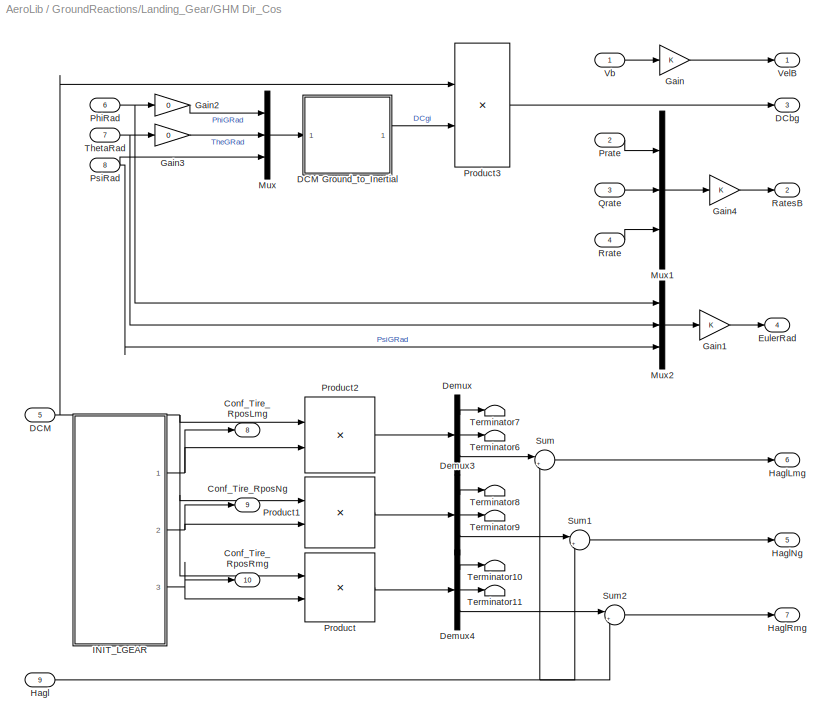
BLOCK [SubSystem] GroundReactions/Landing_Gear/GHM Dir_Cos
  MinAlgLoopOccurrences = off
  Ports = [9, 10]
  RTWSystemCode = Auto
  TreatAsAtomicUnit = off
BLOCK [Outport] GroundReactions/Landing_Gear/GHM Dir_Cos/Conf_Tire_RposLmg
  BusOutputAsStruct = off
  IconDisplay = Port number
  Port = 8
BLOCK [Outport] GroundReactions/Landing_Gear/GHM Dir_Cos/Conf_Tire_RposNg
  BusOutputAsStruct = off
  IconDisplay = Port number
  Port = 9
BLOCK [Outport] GroundReactions/Landing_Gear/GHM Dir_Cos/Conf_Tire_RposRmg
  BusOutputAsStruct = off
  IconDisplay = Port number
  Port = 10
BLOCK [Inport] GroundReactions/Landing_Gear/GHM Dir_Cos/DCM
  IconDisplay = Port number
  LatchInput = off
  Port = 5
BLOCK [SubSystem] GroundReactions/Landing_Gear/GHM Dir_Cos/DCM Ground_to_Inertial
  MinAlgLoopOccurrences = off
  Ports = [1, 1]
  RTWSystemCode = Auto
  TreatAsAtomicUnit = off
BLOCK [Fcn] GroundReactions/Landing_Gear/GHM Dir_Cos/DCM Ground_to_Inertial/11
  Expr = cos(u[3])*cos(u[2])
BLOCK [Fcn] GroundReactions/Landing_Gear/GHM Dir_Cos/DCM Ground_to_Inertial/12
  Expr = cos(u[3])*sin(u[2])*sin(u[1])-sin(u[3])*cos(u[1])
BLOCK [Fcn] GroundReactions/Landing_Gear/GHM Dir_Cos/DCM Ground_to_Inertial/13
  Expr = cos(u[3])*sin(u[2])*cos(u[1])+sin(u[3])*sin(u[1])
BLOCK [Fcn] GroundReactions/Landing_Gear/GHM Dir_Cos/DCM Ground_to_Inertial/21
  Expr = sin(u[3])*cos(u[2])
BLOCK [Fcn] GroundReactions/Landing_Gear/GHM Dir_Cos/DCM Ground_to_Inertial/22
  Expr = sin(u[3])*sin(u[2])*sin(u[1])+cos(u[3])*cos(u[1])
BLOCK [Fcn] GroundReactions/Landing_Gear/GHM Dir_Cos/DCM Ground_to_Inertial/23
  Expr = sin(u[3])*sin(u[2])*cos(u[1])-cos(u[3])*sin(u[1])
BLOCK [Fcn] GroundReactions/Landing_Gear/GHM Dir_Cos/DCM Ground_to_Inertial/31
  Expr = -sin(u[2])
BLOCK [Fcn] GroundReactions/Landing_Gear/GHM Dir_Cos/DCM Ground_to_Inertial/32
  Expr = cos(u[2])*sin(u[1])
BLOCK [Fcn] GroundReactions/Landing_Gear/GHM Dir_Cos/DCM Ground_to_Inertial/33
  Expr = cos(u[2])*cos(u[1])
BLOCK [Outport] GroundReactions/Landing_Gear/GHM Dir_Cos/DCM Ground_to_Inertial/DCM
  BusOutputAsStruct = off
  IconDisplay = Port number
  InitialOutput = 0
BLOCK [Mux] GroundReactions/Landing_Gear/GHM Dir_Cos/DCM Ground_to_Inertial/Mux2
  DisplayOption = bar
  Inputs = 9
  Ports = [9, 1]
BLOCK [Reference] GroundReactions/Landing_Gear/GHM Dir_Cos/DCM Ground_to_Inertial/Reshape  REF=simulink3/Signals\n& Systems/Reshape
  OutputDimensionality = Customize
  OutputDimensions = [3,3]
  Ports = [1, 1]
  SourceBlock = simulink3/Signals\n& Systems/Reshape
  SourceType = Reshape
BLOCK [Inport] GroundReactions/Landing_Gear/GHM Dir_Cos/DCM Ground_to_Inertial/phi\ntheta\npsi
  IconDisplay = Port number
  LatchInput = off
  Port = 1
BLOCK [Outport] GroundReactions/Landing_Gear/GHM Dir_Cos/DCbg
  BusOutputAsStruct = off
  IconDisplay = Port number
  Port = 3
BLOCK [Demux] GroundReactions/Landing_Gear/GHM Dir_Cos/Demux
  Outputs = 3
  Ports = [1, 3]
BLOCK [Demux] GroundReactions/Landing_Gear/GHM Dir_Cos/Demux3
  Outputs = 3
  Ports = [1, 3]
BLOCK [Demux] GroundReactions/Landing_Gear/GHM Dir_Cos/Demux4
  Outputs = 3
  Ports = [1, 3]
BLOCK [Outport] GroundReactions/Landing_Gear/GHM Dir_Cos/EulerRad
  BusOutputAsStruct = off
  IconDisplay = Port number
  Port = 4
BLOCK [Gain] GroundReactions/Landing_Gear/GHM Dir_Cos/Gain
BLOCK [Gain] GroundReactions/Landing_Gear/GHM Dir_Cos/Gain1
BLOCK [Gain] GroundReactions/Landing_Gear/GHM Dir_Cos/Gain2
  Gain = 0
BLOCK [Gain] GroundReactions/Landing_Gear/GHM Dir_Cos/Gain3
  Gain = 0
BLOCK [Gain] GroundReactions/Landing_Gear/GHM Dir_Cos/Gain4
BLOCK [Inport] GroundReactions/Landing_Gear/GHM Dir_Cos/Hagl
  IconDisplay = Port number
  LatchInput = off
  Port = 9
BLOCK [Outport] GroundReactions/Landing_Gear/GHM Dir_Cos/HaglLmg
  BusOutputAsStruct = off
  IconDisplay = Port number
  Port = 6
BLOCK [Outport] GroundReactions/Landing_Gear/GHM Dir_Cos/HaglNg
  BusOutputAsStruct = off
  IconDisplay = Port number
  Port = 5
BLOCK [Outport] GroundReactions/Landing_Gear/GHM Dir_Cos/HaglRmg
  BusOutputAsStruct = off
  IconDisplay = Port number
  Port = 7
BLOCK [SubSystem] GroundReactions/Landing_Gear/GHM Dir_Cos/INIT_LGEAR
  MinAlgLoopOccurrences = off
  Ports = [0, 3]
  RTWSystemCode = Auto
  TreatAsAtomicUnit = off
BLOCK [Constant] GroundReactions/Landing_Gear/GHM Dir_Cos/INIT_LGEAR/Constant
  Value = Lgear(1).Tire.RposLmg
BLOCK [Constant] GroundReactions/Landing_Gear/GHM Dir_Cos/INIT_LGEAR/Constant1
  Value = Lgear(2).Tire.RposNg
BLOCK [Constant] GroundReactions/Landing_Gear/GHM Dir_Cos/INIT_LGEAR/Constant2
  Value = Lgear(1).Tire.RposRmg
BLOCK [Constant] GroundReactions/Landing_Gear/GHM Dir_Cos/INIT_LGEAR/Constant4
  Value = Flight_cg
BLOCK [Constant] GroundReactions/Landing_Gear/GHM Dir_Cos/INIT_LGEAR/Constant5
  Value = Flight_ycg
BLOCK [Constant] GroundReactions/Landing_Gear/GHM Dir_Cos/INIT_LGEAR/Constant6
  Value = Flight_zcg
BLOCK [Mux] GroundReactions/Landing_Gear/GHM Dir_Cos/INIT_LGEAR/Mux1
  DisplayOption = bar
  Inputs = 3
  Ports = [3, 1]
BLOCK [Sum] GroundReactions/Landing_Gear/GHM Dir_Cos/INIT_LGEAR/Sum
  Inputs = +-
  Ports = [2, 1]
BLOCK [Sum] GroundReactions/Landing_Gear/GHM Dir_Cos/INIT_LGEAR/Sum1
  Inputs = +-
  Ports = [2, 1]
BLOCK [Sum] GroundReactions/Landing_Gear/GHM Dir_Cos/INIT_LGEAR/Sum2
  Inputs = +-
  Ports = [2, 1]
BLOCK [Outport] GroundReactions/Landing_Gear/GHM Dir_Cos/INIT_LGEAR/TireRposLmg
  BusOutputAsStruct = off
  IconDisplay = Port number
BLOCK [Outport] GroundReactions/Landing_Gear/GHM Dir_Cos/INIT_LGEAR/TireRposNg
  BusOutputAsStruct = off
  IconDisplay = Port number
  Port = 2
BLOCK [Outport] GroundReactions/Landing_Gear/GHM Dir_Cos/INIT_LGEAR/TireRposRmg
  BusOutputAsStruct = off
  IconDisplay = Port number
  Port = 3
BLOCK [Fcn] GroundReactions/Landing_Gear/GHM Dir_Cos/INIT_LGEAR/xcg2ac
  Expr = (u-0.25)*Geom.Wing.cref+Geom.Wing.xwac
BLOCK [Mux] GroundReactions/Landing_Gear/GHM Dir_Cos/Mux
  DisplayOption = bar
  Inputs = 3
  Ports = [3, 1]
BLOCK [Mux] GroundReactions/Landing_Gear/GHM Dir_Cos/Mux1
  DisplayOption = bar
  Inputs = 3
  Ports = [3, 1]
BLOCK [Mux] GroundReactions/Landing_Gear/GHM Dir_Cos/Mux2
  DisplayOption = bar
  Inputs = 3
  Ports = [3, 1]
BLOCK [Inport] GroundReactions/Landing_Gear/GHM Dir_Cos/PhiRad
  IconDisplay = Port number
  LatchInput = off
  Port = 6
BLOCK [Inport] GroundReactions/Landing_Gear/GHM Dir_Cos/Prate
  IconDisplay = Port number
  LatchInput = off
  Port = 2
BLOCK [Product] GroundReactions/Landing_Gear/GHM Dir_Cos/Product
  Multiplication = Matrix(*)
  Ports = [2, 1]
  RndMeth = Floor
BLOCK [Product] GroundReactions/Landing_Gear/GHM Dir_Cos/Product1
  Multiplication = Matrix(*)
  Ports = [2, 1]
  RndMeth = Floor
BLOCK [Product] GroundReactions/Landing_Gear/GHM Dir_Cos/Product2
  Multiplication = Matrix(*)
  Ports = [2, 1]
  RndMeth = Floor
BLOCK [Product] GroundReactions/Landing_Gear/GHM Dir_Cos/Product3
  Multiplication = Matrix(*)
  Ports = [2, 1]
  RndMeth = Floor
BLOCK [Inport] GroundReactions/Landing_Gear/GHM Dir_Cos/PsiRad
  IconDisplay = Port number
  LatchInput = off
  Port = 8
BLOCK [Inport] GroundReactions/Landing_Gear/GHM Dir_Cos/Qrate
  IconDisplay = Port number
  LatchInput = off
  Port = 3
BLOCK [Outport] GroundReactions/Landing_Gear/GHM Dir_Cos/RatesB
  BusOutputAsStruct = off
  IconDisplay = Port number
  Port = 2
BLOCK [Inport] GroundReactions/Landing_Gear/GHM Dir_Cos/Rrate
  IconDisplay = Port number
  LatchInput = off
  Port = 4
BLOCK [Sum] GroundReactions/Landing_Gear/GHM Dir_Cos/Sum
  IconShape = round
  Inputs = |+-
  Ports = [2, 1]
BLOCK [Sum] GroundReactions/Landing_Gear/GHM Dir_Cos/Sum1
  IconShape = round
  Inputs = |+-
  Ports = [2, 1]
BLOCK [Sum] GroundReactions/Landing_Gear/GHM Dir_Cos/Sum2
  IconShape = round
  Inputs = |+-
  Ports = [2, 1]
BLOCK [Terminator] GroundReactions/Landing_Gear/GHM Dir_Cos/Terminator10
BLOCK [Terminator] GroundReactions/Landing_Gear/GHM Dir_Cos/Terminator11
BLOCK [Terminator] GroundReactions/Landing_Gear/GHM Dir_Cos/Terminator6
BLOCK [Terminator] GroundReactions/Landing_Gear/GHM Dir_Cos/Terminator7
BLOCK [Terminator] GroundReactions/Landing_Gear/GHM Dir_Cos/Terminator8
BLOCK [Terminator] GroundReactions/Landing_Gear/GHM Dir_Cos/Terminator9
BLOCK [Inport] GroundReactions/Landing_Gear/GHM Dir_Cos/ThetaRad
  IconDisplay = Port number
  LatchInput = off
  Port = 7
BLOCK [Inport] GroundReactions/Landing_Gear/GHM Dir_Cos/Vb
  IconDisplay = Port number
  LatchInput = off
  Port = 1
BLOCK [Outport] GroundReactions/Landing_Gear/GHM Dir_Cos/VelB
  BusOutputAsStruct = off
  IconDisplay = Port number
BLOCK [SubSystem] GroundReactions/Landing_Gear/GHM Ground_Reactions
  MinAlgLoopOccurrences = off
  Ports = [17, 1]
  RTWSystemCode = Auto
  TreatAsAtomicUnit = off
BLOCK [BusCreator] GroundReactions/Landing_Gear/GHM Ground_Reactions/Bus\nCreator
  DialogController = Simulink.DDGSource_Bus
  DisplayOption = bar
  Inputs = 9
  Ports = [9, 1]
BLOCK [Demux] GroundReactions/Landing_Gear/GHM Ground_Reactions/Demux
  Outputs = 3
  Ports = [1, 3]
BLOCK [Demux] GroundReactions/Landing_Gear/GHM Ground_Reactions/Demux1
  Outputs = 3
  Ports = [1, 3]
BLOCK [Inport] GroundReactions/Landing_Gear/GHM Ground_Reactions/EulerRad
  IconDisplay = Port number
  LatchInput = off
  Port = 12
BLOCK [Inport] GroundReactions/Landing_Gear/GHM Ground_Reactions/FstrLmg
  IconDisplay = Port number
  LatchInput = off
  Port = 3
BLOCK [Inport] GroundReactions/Landing_Gear/GHM Ground_Reactions/FstrNg
  IconDisplay = Port number
  LatchInput = off
  Port = 8
BLOCK [Inport] GroundReactions/Landing_Gear/GHM Ground_Reactions/FstrRmg
  IconDisplay = Port number
  LatchInput = off
  Port = 15
BLOCK [Outport] GroundReactions/Landing_Gear/GHM Ground_Reactions/GR_Out
  BusOutputAsStruct = off
  IconDisplay = Port number
BLOCK [Inport] GroundReactions/Landing_Gear/GHM Ground_Reactions/MUeLmg
  IconDisplay = Port number
  LatchInput = off
  Port = 1
BLOCK [Inport] GroundReactions/Landing_Gear/GHM Ground_Reactions/MUeNg
  IconDisplay = Port number
  LatchInput = off
  Port = 6
BLOCK [Inport] GroundReactions/Landing_Gear/GHM Ground_Reactions/MUeRmg
  IconDisplay = Port number
  LatchInput = off
  Port = 13
BLOCK [Inport] GroundReactions/Landing_Gear/GHM Ground_Reactions/MUsLmg
  IconDisplay = Port number
  LatchInput = off
  Port = 2
BLOCK [Inport] GroundReactions/Landing_Gear/GHM Ground_Reactions/MUsNg
  IconDisplay = Port number
  LatchInput = off
  Port = 7
BLOCK [Inport] GroundReactions/Landing_Gear/GHM Ground_Reactions/MUsRmg
  IconDisplay = Port number
  LatchInput = off
  Port = 14
BLOCK [SubSystem] GroundReactions/Landing_Gear/GHM Ground_Reactions/Moments
  MinAlgLoopOccurrences = off
  Ports = [6, 1]
  RTWSystemCode = Auto
  TreatAsAtomicUnit = off
BLOCK [Inport] GroundReactions/Landing_Gear/GHM Ground_Reactions/Moments/FgearLmg
  IconDisplay = Port number
  LatchInput = off
  Port = 1
BLOCK [Inport] GroundReactions/Landing_Gear/GHM Ground_Reactions/Moments/FgearNg
  IconDisplay = Port number
  LatchInput = off
  Port = 2
BLOCK [Inport] GroundReactions/Landing_Gear/GHM Ground_Reactions/Moments/FgearRmg
  IconDisplay = Port number
  LatchInput = off
  Port = 3
BLOCK [Reference] GroundReactions/Landing_Gear/GHM Ground_Reactions/Moments/LMG_Moment  REF=aerospace/Axes\nTransformations/3x3 cross product  (lib defined in mdl_cf564d925549, slx_1354fe9238a2, +3 more)
  Ports = [2, 1]
  ShowPortLabels = off
  SourceBlock = aerospace/Axes\nTransformations/3x3 cross product
  SourceType = Cross Product
BLOCK [Outport] GroundReactions/Landing_Gear/GHM Ground_Reactions/Moments/Mgear
  BusOutputAsStruct = off
  IconDisplay = Port number
BLOCK [Reference] GroundReactions/Landing_Gear/GHM Ground_Reactions/Moments/NG_Moment  REF=aerospace/Axes\nTransformations/3x3 cross product  (lib defined in mdl_cf564d925549, slx_1354fe9238a2, +3 more)
  Ports = [2, 1]
  ShowPortLabels = off
  SourceBlock = aerospace/Axes\nTransformations/3x3 cross product
  SourceType = Cross Product
BLOCK [Reference] GroundReactions/Landing_Gear/GHM Ground_Reactions/Moments/RMG_Moment  REF=aerospace/Axes\nTransformations/3x3 cross product  (lib defined in mdl_cf564d925549, slx_1354fe9238a2, +3 more)
  Ports = [2, 1]
  ShowPortLabels = off
  SourceBlock = aerospace/Axes\nTransformations/3x3 cross product
  SourceType = Cross Product
BLOCK [Inport] GroundReactions/Landing_Gear/GHM Ground_Reactions/Moments/Rlmg
  IconDisplay = Port number
  LatchInput = off
  Port = 4
BLOCK [Inport] GroundReactions/Landing_Gear/GHM Ground_Reactions/Moments/Rng
  IconDisplay = Port number
  LatchInput = off
  Port = 5
BLOCK [Inport] GroundReactions/Landing_Gear/GHM Ground_Reactions/Moments/Rrmg
  IconDisplay = Port number
  LatchInput = off
  Port = 6
BLOCK [Sum] GroundReactions/Landing_Gear/GHM Ground_Reactions/Moments/Sum1
  IconShape = round
  Inputs = +++
  Ports = [3, 1]
BLOCK [Inport] GroundReactions/Landing_Gear/GHM Ground_Reactions/NoseWheelAng
  IconDisplay = Port number
  LatchInput = off
  Port = 11
BLOCK [SubSystem] GroundReactions/Landing_Gear/GHM Ground_Reactions/Reactions1
  MinAlgLoopOccurrences = off
  Ports = [11, 4]
  RTWSystemCode = Auto
  TreatAsAtomicUnit = off
BLOCK [Inport] GroundReactions/Landing_Gear/GHM Ground_Reactions/Reactions1/EulerRad
  IconDisplay = Port number
  LatchInput = off
  Port = 10
BLOCK [Outport] GroundReactions/Landing_Gear/GHM Ground_Reactions/Reactions1/Fgear
  BusOutputAsStruct = off
  IconDisplay = Port number
BLOCK [Outport] GroundReactions/Landing_Gear/GHM Ground_Reactions/Reactions1/FgearLMG
  BusOutputAsStruct = off
  IconDisplay = Port number
  Port = 2
BLOCK [Outport] GroundReactions/Landing_Gear/GHM Ground_Reactions/Reactions1/FgearNG
  BusOutputAsStruct = off
  IconDisplay = Port number
  Port = 3
BLOCK [Outport] GroundReactions/Landing_Gear/GHM Ground_Reactions/Reactions1/FgearRMG
  BusOutputAsStruct = off
  IconDisplay = Port number
  Port = 4
BLOCK [Inport] GroundReactions/Landing_Gear/GHM Ground_Reactions/Reactions1/FstrLmg
  IconDisplay = Port number
  LatchInput = off
  Port = 3
BLOCK [Inport] GroundReactions/Landing_Gear/GHM Ground_Reactions/Reactions1/FstrNg
  IconDisplay = Port number
  LatchInput = off
  Port = 6
BLOCK [Inport] GroundReactions/Landing_Gear/GHM Ground_Reactions/Reactions1/FstrRmg
  IconDisplay = Port number
  LatchInput = off
  Port = 9
BLOCK [Gain] GroundReactions/Landing_Gear/GHM Ground_Reactions/Reactions1/Gain1
  Gain = -1
BLOCK [Gain] GroundReactions/Landing_Gear/GHM Ground_Reactions/Reactions1/Gain2
  Gain = -1
BLOCK [SubSystem] GroundReactions/Landing_Gear/GHM Ground_Reactions/Reactions1/Inertial2Body
  MinAlgLoopOccurrences = off
  Ports = [4, 4]
  RTWSystemCode = Auto
  TreatAsAtomicUnit = off
BLOCK [Demux] GroundReactions/Landing_Gear/GHM Ground_Reactions/Reactions1/Inertial2Body/Demux
  Outputs = 3
  Ports = [1, 3]
BLOCK [Inport] GroundReactions/Landing_Gear/GHM Ground_Reactions/Reactions1/Inertial2Body/EulerRad
  IconDisplay = Port number
  LatchInput = off
  Port = 4
BLOCK [Outport] GroundReactions/Landing_Gear/GHM Ground_Reactions/Reactions1/Inertial2Body/FgLMG_B
  BusOutputAsStruct = off
  IconDisplay = Port number
  Port = 2
BLOCK [Inport] GroundReactions/Landing_Gear/GHM Ground_Reactions/Reactions1/Inertial2Body/FgLMG_I
  IconDisplay = Port number
  LatchInput = off
  Port = 1
BLOCK [Outport] GroundReactions/Landing_Gear/GHM Ground_Reactions/Reactions1/Inertial2Body/FgNG_B
  BusOutputAsStruct = off
  IconDisplay = Port number
  Port = 3
BLOCK [Inport] GroundReactions/Landing_Gear/GHM Ground_Reactions/Reactions1/Inertial2Body/FgNG_I
  IconDisplay = Port number
  LatchInput = off
  Port = 2
BLOCK [Outport] GroundReactions/Landing_Gear/GHM Ground_Reactions/Reactions1/Inertial2Body/FgRMG_B
  BusOutputAsStruct = off
  IconDisplay = Port number
  Port = 4
BLOCK [Inport] GroundReactions/Landing_Gear/GHM Ground_Reactions/Reactions1/Inertial2Body/FgRMG_I
  IconDisplay = Port number
  LatchInput = off
  Port = 3
BLOCK [Outport] GroundReactions/Landing_Gear/GHM Ground_Reactions/Reactions1/Inertial2Body/Fg_B
  BusOutputAsStruct = off
  IconDisplay = Port number
BLOCK [SubSystem] GroundReactions/Landing_Gear/GHM Ground_Reactions/Reactions1/Inertial2Body/Ground2Body_LMG
  MinAlgLoopOccurrences = off
  Ports = [5, 1]
  RTWSystemCode = Auto
  TreatAsAtomicUnit = off
BLOCK [Inport] GroundReactions/Landing_Gear/GHM Ground_Reactions/Reactions1/Inertial2Body/Ground2Body_LMG/CosPhi
  IconDisplay = Port number
  LatchInput = off
  Port = 3
BLOCK [Inport] GroundReactions/Landing_Gear/GHM Ground_Reactions/Reactions1/Inertial2Body/Ground2Body_LMG/CosThe
  IconDisplay = Port number
  LatchInput = off
  Port = 5
BLOCK [Demux] GroundReactions/Landing_Gear/GHM Ground_Reactions/Reactions1/Inertial2Body/Ground2Body_LMG/Demux
  Outputs = 3
  Ports = [1, 3]
BLOCK [Inport] GroundReactions/Landing_Gear/GHM Ground_Reactions/Reactions1/Inertial2Body/Ground2Body_LMG/Fb_I
  IconDisplay = Port number
  LatchInput = off
  Port = 1
BLOCK [Outport] GroundReactions/Landing_Gear/GHM Ground_Reactions/Reactions1/Inertial2Body/Ground2Body_LMG/Fg_B
  BusOutputAsStruct = off
  IconDisplay = Port number
BLOCK [Mux] GroundReactions/Landing_Gear/GHM Ground_Reactions/Reactions1/Inertial2Body/Ground2Body_LMG/Mux1
  DisplayOption = bar
  Inputs = 7
  Ports = [7, 1]
BLOCK [Mux] GroundReactions/Landing_Gear/GHM Ground_Reactions/Reactions1/Inertial2Body/Ground2Body_LMG/Mux2
  DisplayOption = bar
  Inputs = 2
  Ports = [2, 1]
BLOCK [Mux] GroundReactions/Landing_Gear/GHM Ground_Reactions/Reactions1/Inertial2Body/Ground2Body_LMG/Mux3
  DisplayOption = bar
  Inputs = 3
  Ports = [3, 1]
BLOCK [Inport] GroundReactions/Landing_Gear/GHM Ground_Reactions/Reactions1/Inertial2Body/Ground2Body_LMG/SinPhi
  IconDisplay = Port number
  LatchInput = off
  Port = 2
BLOCK [Inport] GroundReactions/Landing_Gear/GHM Ground_Reactions/Reactions1/Inertial2Body/Ground2Body_LMG/SinThe
  IconDisplay = Port number
  LatchInput = off
  Port = 4
BLOCK [Fcn] GroundReactions/Landing_Gear/GHM Ground_Reactions/Reactions1/Inertial2Body/Ground2Body_LMG/Xb
  Expr = u(1)*u(7) - u(3)*u(6)
BLOCK [Fcn] GroundReactions/Landing_Gear/GHM Ground_Reactions/Reactions1/Inertial2Body/Ground2Body_LMG/Yb
  Expr = u(2)*u(5) + u(8)*u(4)
BLOCK [Fcn] GroundReactions/Landing_Gear/GHM Ground_Reactions/Reactions1/Inertial2Body/Ground2Body_LMG/Zb
  Expr = u(8)*u(5) - u(2)*u(4)
BLOCK [Fcn] GroundReactions/Landing_Gear/GHM Ground_Reactions/Reactions1/Inertial2Body/Ground2Body_LMG/Zbp
  Expr = u(3)*u(7) + u(1)*u(6)
BLOCK [SubSystem] GroundReactions/Landing_Gear/GHM Ground_Reactions/Reactions1/Inertial2Body/Ground2Body_NG
  MinAlgLoopOccurrences = off
  Ports = [5, 1]
  RTWSystemCode = Auto
  TreatAsAtomicUnit = off
BLOCK [Inport] GroundReactions/Landing_Gear/GHM Ground_Reactions/Reactions1/Inertial2Body/Ground2Body_NG/CosPhi
  IconDisplay = Port number
  LatchInput = off
  Port = 3
BLOCK [Inport] GroundReactions/Landing_Gear/GHM Ground_Reactions/Reactions1/Inertial2Body/Ground2Body_NG/CosThe
  IconDisplay = Port number
  LatchInput = off
  Port = 5
BLOCK [Demux] GroundReactions/Landing_Gear/GHM Ground_Reactions/Reactions1/Inertial2Body/Ground2Body_NG/Demux
  Outputs = 3
  Ports = [1, 3]
BLOCK [Inport] GroundReactions/Landing_Gear/GHM Ground_Reactions/Reactions1/Inertial2Body/Ground2Body_NG/Fb_I
  IconDisplay = Port number
  LatchInput = off
  Port = 1
BLOCK [Outport] GroundReactions/Landing_Gear/GHM Ground_Reactions/Reactions1/Inertial2Body/Ground2Body_NG/Fg_B
  BusOutputAsStruct = off
  IconDisplay = Port number
BLOCK [Mux] GroundReactions/Landing_Gear/GHM Ground_Reactions/Reactions1/Inertial2Body/Ground2Body_NG/Mux1
  DisplayOption = bar
  Inputs = 7
  Ports = [7, 1]
BLOCK [Mux] GroundReactions/Landing_Gear/GHM Ground_Reactions/Reactions1/Inertial2Body/Ground2Body_NG/Mux2
  DisplayOption = bar
  Inputs = 2
  Ports = [2, 1]
BLOCK [Mux] GroundReactions/Landing_Gear/GHM Ground_Reactions/Reactions1/Inertial2Body/Ground2Body_NG/Mux3
  DisplayOption = bar
  Inputs = 3
  Ports = [3, 1]
BLOCK [Inport] GroundReactions/Landing_Gear/GHM Ground_Reactions/Reactions1/Inertial2Body/Ground2Body_NG/SinPhi
  IconDisplay = Port number
  LatchInput = off
  Port = 2
BLOCK [Inport] GroundReactions/Landing_Gear/GHM Ground_Reactions/Reactions1/Inertial2Body/Ground2Body_NG/SinThe
  IconDisplay = Port number
  LatchInput = off
  Port = 4
BLOCK [Fcn] GroundReactions/Landing_Gear/GHM Ground_Reactions/Reactions1/Inertial2Body/Ground2Body_NG/Xb
  Expr = u(1)*u(7) - u(3)*u(6)
BLOCK [Fcn] GroundReactions/Landing_Gear/GHM Ground_Reactions/Reactions1/Inertial2Body/Ground2Body_NG/Yb
  Expr = u(2)*u(5) + u(8)*u(4)
BLOCK [Fcn] GroundReactions/Landing_Gear/GHM Ground_Reactions/Reactions1/Inertial2Body/Ground2Body_NG/Zb
  Expr = u(8)*u(5) - u(2)*u(4)
BLOCK [Fcn] GroundReactions/Landing_Gear/GHM Ground_Reactions/Reactions1/Inertial2Body/Ground2Body_NG/Zbp
  Expr = u(3)*u(7) + u(1)*u(6)
BLOCK [SubSystem] GroundReactions/Landing_Gear/GHM Ground_Reactions/Reactions1/Inertial2Body/Ground2Body_RMG
  MinAlgLoopOccurrences = off
  Ports = [5, 1]
  RTWSystemCode = Auto
  TreatAsAtomicUnit = off
BLOCK [Inport] GroundReactions/Landing_Gear/GHM Ground_Reactions/Reactions1/Inertial2Body/Ground2Body_RMG/CosPhi
  IconDisplay = Port number
  LatchInput = off
  Port = 3
BLOCK [Inport] GroundReactions/Landing_Gear/GHM Ground_Reactions/Reactions1/Inertial2Body/Ground2Body_RMG/CosThe
  IconDisplay = Port number
  LatchInput = off
  Port = 5
BLOCK [Demux] GroundReactions/Landing_Gear/GHM Ground_Reactions/Reactions1/Inertial2Body/Ground2Body_RMG/Demux
  Outputs = 3
  Ports = [1, 3]
BLOCK [Inport] GroundReactions/Landing_Gear/GHM Ground_Reactions/Reactions1/Inertial2Body/Ground2Body_RMG/Fb_I
  IconDisplay = Port number
  LatchInput = off
  Port = 1
BLOCK [Outport] GroundReactions/Landing_Gear/GHM Ground_Reactions/Reactions1/Inertial2Body/Ground2Body_RMG/Fg_B
  BusOutputAsStruct = off
  IconDisplay = Port number
BLOCK [Mux] GroundReactions/Landing_Gear/GHM Ground_Reactions/Reactions1/Inertial2Body/Ground2Body_RMG/Mux1
  DisplayOption = bar
  Inputs = 7
  Ports = [7, 1]
BLOCK [Mux] GroundReactions/Landing_Gear/GHM Ground_Reactions/Reactions1/Inertial2Body/Ground2Body_RMG/Mux2
  DisplayOption = bar
  Inputs = 2
  Ports = [2, 1]
BLOCK [Mux] GroundReactions/Landing_Gear/GHM Ground_Reactions/Reactions1/Inertial2Body/Ground2Body_RMG/Mux3
  DisplayOption = bar
  Inputs = 3
  Ports = [3, 1]
BLOCK [Inport] GroundReactions/Landing_Gear/GHM Ground_Reactions/Reactions1/Inertial2Body/Ground2Body_RMG/SinPhi
  IconDisplay = Port number
  LatchInput = off
  Port = 2
BLOCK [Inport] GroundReactions/Landing_Gear/GHM Ground_Reactions/Reactions1/Inertial2Body/Ground2Body_RMG/SinThe
  IconDisplay = Port number
  LatchInput = off
  Port = 4
BLOCK [Fcn] GroundReactions/Landing_Gear/GHM Ground_Reactions/Reactions1/Inertial2Body/Ground2Body_RMG/Xb
  Expr = u(1)*u(7) - u(3)*u(6)
BLOCK [Fcn] GroundReactions/Landing_Gear/GHM Ground_Reactions/Reactions1/Inertial2Body/Ground2Body_RMG/Yb
  Expr = u(2)*u(5) + u(8)*u(4)
BLOCK [Fcn] GroundReactions/Landing_Gear/GHM Ground_Reactions/Reactions1/Inertial2Body/Ground2Body_RMG/Zb
  Expr = u(8)*u(5) - u(2)*u(4)
BLOCK [Fcn] GroundReactions/Landing_Gear/GHM Ground_Reactions/Reactions1/Inertial2Body/Ground2Body_RMG/Zbp
  Expr = u(3)*u(7) + u(1)*u(6)
BLOCK [Sum] GroundReactions/Landing_Gear/GHM Ground_Reactions/Reactions1/Inertial2Body/Sum
  Inputs = 3
  Ports = [3, 1]
BLOCK [Terminator] GroundReactions/Landing_Gear/GHM Ground_Reactions/Reactions1/Inertial2Body/Terminator
BLOCK [Trigonometry] GroundReactions/Landing_Gear/GHM Ground_Reactions/Reactions1/Inertial2Body/cos
  Operator = cos
  Ports = [1, 1]
BLOCK [Trigonometry] GroundReactions/Landing_Gear/GHM Ground_Reactions/Reactions1/Inertial2Body/cos1
  Operator = cos
  Ports = [1, 1]
BLOCK [Trigonometry] GroundReactions/Landing_Gear/GHM Ground_Reactions/Reactions1/Inertial2Body/sin
  Ports = [1, 1]
BLOCK [Trigonometry] GroundReactions/Landing_Gear/GHM Ground_Reactions/Reactions1/Inertial2Body/sin1
  Ports = [1, 1]
BLOCK [Inport] GroundReactions/Landing_Gear/GHM Ground_Reactions/Reactions1/MUeLmg
  IconDisplay = Port number
  LatchInput = off
  Port = 1
BLOCK [Inport] GroundReactions/Landing_Gear/GHM Ground_Reactions/Reactions1/MUeNg
  IconDisplay = Port number
  LatchInput = off
  Port = 4
BLOCK [Inport] GroundReactions/Landing_Gear/GHM Ground_Reactions/Reactions1/MUeRmg
  IconDisplay = Port number
  LatchInput = off
  Port = 7
BLOCK [Inport] GroundReactions/Landing_Gear/GHM Ground_Reactions/Reactions1/MUsLmg
  IconDisplay = Port number
  LatchInput = off
  Port = 2
BLOCK [Inport] GroundReactions/Landing_Gear/GHM Ground_Reactions/Reactions1/MUsNg
  IconDisplay = Port number
  LatchInput = off
  Port = 5
BLOCK [Inport] GroundReactions/Landing_Gear/GHM Ground_Reactions/Reactions1/MUsRmg
  IconDisplay = Port number
  LatchInput = off
  Port = 8
BLOCK [Mux] GroundReactions/Landing_Gear/GHM Ground_Reactions/Reactions1/Mux1
  DisplayOption = bar
  Inputs = 3
  Ports = [3, 1]
BLOCK [Mux] GroundReactions/Landing_Gear/GHM Ground_Reactions/Reactions1/Mux2
  DisplayOption = bar
  Inputs = 3
  Ports = [3, 1]
BLOCK [SubSystem] GroundReactions/Landing_Gear/GHM Ground_Reactions/Reactions1/NoseGearForces
  MinAlgLoopOccurrences = off
  Ports = [4, 1]
  RTWSystemCode = Auto
  TreatAsAtomicUnit = off
BLOCK [Fcn] GroundReactions/Landing_Gear/GHM Ground_Reactions/Reactions1/NoseGearForces/Fcn
  Expr = u(3)*u(1) - u(4)*u(2)
BLOCK [Fcn] GroundReactions/Landing_Gear/GHM Ground_Reactions/Reactions1/NoseGearForces/Fcn1
  Expr = u(4)*u(1) + u(3)*u(2)
BLOCK [Outport] GroundReactions/Landing_Gear/GHM Ground_Reactions/Reactions1/NoseGearForces/FgearNG
  BusOutputAsStruct = off
  IconDisplay = Port number
BLOCK [Inport] GroundReactions/Landing_Gear/GHM Ground_Reactions/Reactions1/NoseGearForces/FstrNg
  IconDisplay = Port number
  LatchInput = off
  Port = 3
BLOCK [Gain] GroundReactions/Landing_Gear/GHM Ground_Reactions/Reactions1/NoseGearForces/Gain2
  Gain = -1
BLOCK [Inport] GroundReactions/Landing_Gear/GHM Ground_Reactions/Reactions1/NoseGearForces/MUeNg
  IconDisplay = Port number
  LatchInput = off
  Port = 1
BLOCK [Inport] GroundReactions/Landing_Gear/GHM Ground_Reactions/Reactions1/NoseGearForces/MUsNg
  IconDisplay = Port number
  LatchInput = off
  Port = 2
BLOCK [Mux] GroundReactions/Landing_Gear/GHM Ground_Reactions/Reactions1/NoseGearForces/Mux
  DisplayOption = bar
  Ports = [4, 1]
BLOCK [Mux] GroundReactions/Landing_Gear/GHM Ground_Reactions/Reactions1/NoseGearForces/Mux1
  DisplayOption = bar
  Inputs = 3
  Ports = [3, 1]
BLOCK [Inport] GroundReactions/Landing_Gear/GHM Ground_Reactions/Reactions1/NoseGearForces/NoseWheelAng
  IconDisplay = Port number
  LatchInput = off
  Port = 4
BLOCK [Product] GroundReactions/Landing_Gear/GHM Ground_Reactions/Reactions1/NoseGearForces/Product1
  Ports = [2, 1]
  RndMeth = Floor
BLOCK [Product] GroundReactions/Landing_Gear/GHM Ground_Reactions/Reactions1/NoseGearForces/Product2
  Ports = [2, 1]
  RndMeth = Floor
BLOCK [Trigonometry] GroundReactions/Landing_Gear/GHM Ground_Reactions/Reactions1/NoseGearForces/Trigonometric\nFunction
  Operator = cos
  Ports = [1, 1]
BLOCK [Trigonometry] GroundReactions/Landing_Gear/GHM Ground_Reactions/Reactions1/NoseGearForces/Trigonometric\nFunction1
  Ports = [1, 1]
BLOCK [Gain] GroundReactions/Landing_Gear/GHM Ground_Reactions/Reactions1/NoseGearForces/deg_to_rad
  Gain = pi/180
BLOCK [Inport] GroundReactions/Landing_Gear/GHM Ground_Reactions/Reactions1/NoseWheelAng
  IconDisplay = Port number
  LatchInput = off
  Port = 11
BLOCK [Product] GroundReactions/Landing_Gear/GHM Ground_Reactions/Reactions1/Product1
  Ports = [2, 1]
  RndMeth = Floor
BLOCK [Product] GroundReactions/Landing_Gear/GHM Ground_Reactions/Reactions1/Product2
  Ports = [2, 1]
  RndMeth = Floor
BLOCK [Product] GroundReactions/Landing_Gear/GHM Ground_Reactions/Reactions1/Product3
  Ports = [2, 1]
  RndMeth = Floor
BLOCK [Product] GroundReactions/Landing_Gear/GHM Ground_Reactions/Reactions1/Product4
  Ports = [2, 1]
  RndMeth = Floor
BLOCK [Product] GroundReactions/Landing_Gear/GHM Ground_Reactions/Reactions1/Product5
  Ports = [2, 1]
  RndMeth = Floor
BLOCK [Product] GroundReactions/Landing_Gear/GHM Ground_Reactions/Reactions1/Product6
  Ports = [2, 1]
  RndMeth = Floor
BLOCK [Product] GroundReactions/Landing_Gear/GHM Ground_Reactions/Reactions1/Product7
  Ports = [2, 1]
  RndMeth = Floor
BLOCK [Fcn] GroundReactions/Landing_Gear/GHM Ground_Reactions/Reactions1/cosThecosPhi
  Expr = cos(u(1))*cos(u(2))
BLOCK [Inport] GroundReactions/Landing_Gear/GHM Ground_Reactions/Rlmg
  IconDisplay = Port number
  LatchInput = off
  Port = 4
BLOCK [Inport] GroundReactions/Landing_Gear/GHM Ground_Reactions/Rng
  IconDisplay = Port number
  LatchInput = off
  Port = 9
BLOCK [Inport] GroundReactions/Landing_Gear/GHM Ground_Reactions/Rrmg
  IconDisplay = Port number
  LatchInput = off
  Port = 16
BLOCK [Inport] GroundReactions/Landing_Gear/GHM Ground_Reactions/TireCompLmg
  IconDisplay = Port number
  LatchInput = off
  Port = 5
BLOCK [Inport] GroundReactions/Landing_Gear/GHM Ground_Reactions/TireCompNg
  IconDisplay = Port number
  LatchInput = off
  Port = 10
BLOCK [Inport] GroundReactions/Landing_Gear/GHM Ground_Reactions/TireCompRmg
  IconDisplay = Port number
  LatchInput = off
  Port = 17
BLOCK [Outport] GroundReactions/Landing_Gear/LGear_Out
  BusOutputAsStruct = off
  IconDisplay = Port number
BLOCK [SubSystem] GroundReactions/Landing_Gear/Left Main Gear Dynamics
  MaskCallbackString = ||||||||
  MaskEnableString = on,on,on,on,on,on,on,on,on
  MaskIconFrame = on
  MaskIconOpaque = on
  MaskIconRotate = none
  MaskIconUnits = autoscale
  MaskPromptString = Coulomb Friction|Landing Gear Mass|Strut Deflection|Strut Stiffness|Strut Damping|Strut Limit|Tire Max Compression|Tire Stiffness|Acc Factor
  MaskStyleString = edit,edit,edit,edit,edit,edit,edit,edit,edit
  MaskTabNameString = ,,,,,,,,
  MaskToolTipString = on,on,on,on,on,on,on,on,on
  MaskTunableValueString = on,on,on,on,on,on,on,on,on
  MaskValueString = Lgear(1).Strut.CFriction|Lgear(1).Mass|Lgear(1).Strut.Deflection|Lgear(1).Strut.Stiffness|Lgear(1).Strut.Damping|Lgear(1).Strut.Limit|Lgear(1).Tire.MaxComp|Lgear(1).Tire.Stiffness|Lgear(1).Strut.AccFactor
  MaskVarAliasString = ,,,,,,,,
  MaskVariables = CFriction=@1;Mass=@2;Strut_Deflection=@3;Strut_Stiffness=@4;Damping=@5;Strut_Limit=@6;TireMaxComp=@7;Tire_Stiffness=@8;AccFactor=@9;
  MaskVisibilityString = on,on,on,on,on,on,on,on,on
  MinAlgLoopOccurrences = off
  Ports = [6, 5]
  RTWSystemCode = Auto
  TreatAsAtomicUnit = off
BLOCK [Inport] GroundReactions/Landing_Gear/Left Main Gear Dynamics/Brake
  IconDisplay = Port number
  LatchInput = off
  Port = 1
BLOCK [Inport] GroundReactions/Landing_Gear/Left Main Gear Dynamics/Conf_Tire_RposLmg
  IconDisplay = Port number
  LatchInput = off
  Port = 6
BLOCK [Inport] GroundReactions/Landing_Gear/Left Main Gear Dynamics/DCbg
  IconDisplay = Port number
  LatchInput = off
  Port = 4
BLOCK [SubSystem] GroundReactions/Landing_Gear/Left Main Gear Dynamics/Ground_Tire Contact
  MinAlgLoopOccurrences = off
  Ports = [7, 2]
  RTWSystemCode = Auto
  TreatAsAtomicUnit = off
BLOCK [Reference] GroundReactions/Landing_Gear/Left Main Gear Dynamics/Ground_Tire Contact/3x3 cross product  REF=aerospace/Axes\nTransformations/3x3 cross product  (lib defined in mdl_cf564d925549, slx_1354fe9238a2, +3 more)
  Ports = [2, 1]
  SourceBlock = aerospace/Axes\nTransformations/3x3 cross product
  SourceType = Cross Product
BLOCK [Inport] GroundReactions/Landing_Gear/Left Main Gear Dynamics/Ground_Tire Contact/Conf_Tire_RposLmg
  IconDisplay = Port number
  LatchInput = off
  Port = 7
BLOCK [Inport] GroundReactions/Landing_Gear/Left Main Gear Dynamics/Ground_Tire Contact/DCbg
  IconDisplay = Port number
  LatchInput = off
  Port = 1
BLOCK [Fcn] GroundReactions/Landing_Gear/Left Main Gear Dynamics/Ground_Tire Contact/Fcn
  Expr = u(1)
BLOCK [Fcn] GroundReactions/Landing_Gear/Left Main Gear Dynamics/Ground_Tire Contact/Fcn1
  Expr = u(2)
BLOCK [Fcn] GroundReactions/Landing_Gear/Left Main Gear Dynamics/Ground_Tire Contact/Fcn2
  Expr = u(3)-u(4)-u(5)
BLOCK [Product] GroundReactions/Landing_Gear/Left Main Gear Dynamics/Ground_Tire Contact/Product1
  Multiplication = Matrix(*)
  Ports = [2, 1]
  RndMeth = Floor
BLOCK [Inport] GroundReactions/Landing_Gear/Left Main Gear Dynamics/Ground_Tire Contact/RatesB
  IconDisplay = Port number
  LatchInput = off
  Port = 3
BLOCK [Outport] GroundReactions/Landing_Gear/Left Main Gear Dynamics/Ground_Tire Contact/Rtb
  BusOutputAsStruct = off
  IconDisplay = Port number
BLOCK [Inport] GroundReactions/Landing_Gear/Left Main Gear Dynamics/Ground_Tire Contact/S
  IconDisplay = Port number
  LatchInput = off
  Port = 5
BLOCK [Inport] GroundReactions/Landing_Gear/Left Main Gear Dynamics/Ground_Tire Contact/Sdot
  IconDisplay = Port number
  LatchInput = off
  Port = 4
BLOCK [Mux] GroundReactions/Landing_Gear/Left Main Gear Dynamics/Ground_Tire Contact/Tire Position Body_Axis\n(95)\nMux_1
  Inputs = 3
  Ports = [3, 1]
BLOCK [Demux] GroundReactions/Landing_Gear/Left Main Gear Dynamics/Ground_Tire Contact/Tire Transl_Speed Body_Axis\n(96)\nDemux1
  Outputs = 3
  Ports = [1, 3]
BLOCK [Mux] GroundReactions/Landing_Gear/Left Main Gear Dynamics/Ground_Tire Contact/Tire Transl_Speed Body_Axis\n(96)\nMux_2
  Inputs = 3
  Ports = [3, 1]
BLOCK [Inport] GroundReactions/Landing_Gear/Left Main Gear Dynamics/Ground_Tire Contact/TireComp
  IconDisplay = Port number
  LatchInput = off
  Port = 6
BLOCK [Inport] GroundReactions/Landing_Gear/Left Main Gear Dynamics/Ground_Tire Contact/VelB
  IconDisplay = Port number
  LatchInput = off
  Port = 2
BLOCK [Outport] GroundReactions/Landing_Gear/Left Main Gear Dynamics/Ground_Tire Contact/Vtg
  BusOutputAsStruct = off
  IconDisplay = Port number
  Port = 2
BLOCK [Sum] GroundReactions/Landing_Gear/Left Main Gear Dynamics/Ground_Tire Contact/\n(97)1
  IconShape = round
  Inputs = |+-
  Ports = [2, 1]
BLOCK [Sum] GroundReactions/Landing_Gear/Left Main Gear Dynamics/Ground_Tire Contact/\n(97)2
  IconShape = round
  Inputs = |++
  Ports = [2, 1]
BLOCK [Mux] GroundReactions/Landing_Gear/Left Main Gear Dynamics/Ground_Tire Contact/\n(98)\nMux_3
  Inputs = 3
  Ports = [3, 1]
BLOCK [SubSystem] GroundReactions/Landing_Gear/Left Main Gear Dynamics/Ground_Tire Friction
  MinAlgLoopOccurrences = off
  Ports = [3, 2]
  RTWSystemCode = Auto
  TreatAsAtomicUnit = off
BLOCK [Inport] GroundReactions/Landing_Gear/Left Main Gear Dynamics/Ground_Tire Friction/Brake
  IconDisplay = Port number
  LatchInput = off
  Port = 3
  PortDimensions = 1
BLOCK [Demux] GroundReactions/Landing_Gear/Left Main Gear Dynamics/Ground_Tire Friction/Demux
  Outputs = 3
  Ports = [1, 3]
BLOCK [SubSystem] GroundReactions/Landing_Gear/Left Main Gear Dynamics/Ground_Tire Friction/Friction Coeff
  MinAlgLoopOccurrences = off
  Ports = [4, 2]
  RTWSystemCode = Auto
  TreatAsAtomicUnit = off
BLOCK [Inport] GroundReactions/Landing_Gear/Left Main Gear Dynamics/Ground_Tire Friction/Friction Coeff/Brake
  IconDisplay = Port number
  LatchInput = off
  Port = 1
  PortDimensions = 1
BLOCK [Constant] GroundReactions/Landing_Gear/Left Main Gear Dynamics/Ground_Tire Friction/Friction Coeff/Constant
  Value = .018
BLOCK [Constant] GroundReactions/Landing_Gear/Left Main Gear Dynamics/Ground_Tire Friction/Friction Coeff/Constant1
  Value = 0.001
BLOCK [Constant] GroundReactions/Landing_Gear/Left Main Gear Dynamics/Ground_Tire Friction/Friction Coeff/Constant2
  Value = 0.93
BLOCK [Constant] GroundReactions/Landing_Gear/Left Main Gear Dynamics/Ground_Tire Friction/Friction Coeff/Cpower
  Value = 110
BLOCK [Fcn] GroundReactions/Landing_Gear/Left Main Gear Dynamics/Ground_Tire Friction/Friction Coeff/Fcn
  Expr = atan2(u(1),u(2))*180/pi
BLOCK [Fcn] GroundReactions/Landing_Gear/Left Main Gear Dynamics/Ground_Tire Friction/Friction Coeff/Fcn2
  Expr = 2*u
BLOCK [Fcn] GroundReactions/Landing_Gear/Left Main Gear Dynamics/Ground_Tire Friction/Friction Coeff/Fcn3
  Expr = 0.67-.0003*u
BLOCK [Fcn] GroundReactions/Landing_Gear/Left Main Gear Dynamics/Ground_Tire Friction/Friction Coeff/Fcn4
  Expr = u(3)+(u(1)-u(3))*u(2)
BLOCK [Outport] GroundReactions/Landing_Gear/Left Main Gear Dynamics/Ground_Tire Friction/Friction Coeff/MUeff
  BusOutputAsStruct = off
  IconDisplay = Port number
  Port = 2
BLOCK [Outport] GroundReactions/Landing_Gear/Left Main Gear Dynamics/Ground_Tire Friction/Friction Coeff/MUside
  BusOutputAsStruct = off
  IconDisplay = Port number
BLOCK [MinMax] GroundReactions/Landing_Gear/Left Main Gear Dynamics/Ground_Tire Friction/Friction Coeff/MinMax1
  Function = max
  Inputs = 2
  Ports = [2, 1]
BLOCK [Mux] GroundReactions/Landing_Gear/Left Main Gear Dynamics/Ground_Tire Friction/Friction Coeff/Mux
  DisplayOption = bar
  Inputs = 2
  Ports = [2, 1]
BLOCK [Mux] GroundReactions/Landing_Gear/Left Main Gear Dynamics/Ground_Tire Friction/Friction Coeff/Mux2
  DisplayOption = bar
  Inputs = 3
  Ports = [3, 1]
BLOCK [Product] GroundReactions/Landing_Gear/Left Main Gear Dynamics/Ground_Tire Friction/Friction Coeff/Product
  Inputs = **//
  Ports = [4, 1]
  RndMeth = Floor
BLOCK [Product] GroundReactions/Landing_Gear/Left Main Gear Dynamics/Ground_Tire Friction/Friction Coeff/Product1
  Ports = [2, 1]
  RndMeth = Floor
BLOCK [Saturate] GroundReactions/Landing_Gear/Left Main Gear Dynamics/Ground_Tire Friction/Friction Coeff/Saturation
  LowerLimit = 1
  UpperLimit = 1000
BLOCK [Signum] GroundReactions/Landing_Gear/Left Main Gear Dynamics/Ground_Tire Friction/Friction Coeff/Sign
BLOCK [Inport] GroundReactions/Landing_Gear/Left Main Gear Dynamics/Ground_Tire Friction/Friction Coeff/TireForce
  IconDisplay = Port number
  LatchInput = off
  Port = 4
  PortDimensions = 1
BLOCK [Inport] GroundReactions/Landing_Gear/Left Main Gear Dynamics/Ground_Tire Friction/Friction Coeff/Ug
  IconDisplay = Port number
  LatchInput = off
  Port = 2
  PortDimensions = 1
BLOCK [Inport] GroundReactions/Landing_Gear/Left Main Gear Dynamics/Ground_Tire Friction/Friction Coeff/Vg
  IconDisplay = Port number
  LatchInput = off
  Port = 3
  PortDimensions = 1
BLOCK [Outport] GroundReactions/Landing_Gear/Left Main Gear Dynamics/Ground_Tire Friction/MUeff
  BusOutputAsStruct = off
  IconDisplay = Port number
  Port = 2
BLOCK [Outport] GroundReactions/Landing_Gear/Left Main Gear Dynamics/Ground_Tire Friction/MUside
  BusOutputAsStruct = off
  IconDisplay = Port number
BLOCK [Terminator] GroundReactions/Landing_Gear/Left Main Gear Dynamics/Ground_Tire Friction/Terminator
BLOCK [Inport] GroundReactions/Landing_Gear/Left Main Gear Dynamics/Ground_Tire Friction/TireForce
  IconDisplay = Port number
  LatchInput = off
  Port = 1
  PortDimensions = 1
BLOCK [Inport] GroundReactions/Landing_Gear/Left Main Gear Dynamics/Ground_Tire Friction/Vtg
  IconDisplay = Port number
  LatchInput = off
  Port = 2
  PortDimensions = 3
BLOCK [Inport] GroundReactions/Landing_Gear/Left Main Gear Dynamics/Hagl
  IconDisplay = Port number
  LatchInput = off
  Port = 5
BLOCK [SubSystem] GroundReactions/Landing_Gear/Left Main Gear Dynamics/LGEAR Accelerations
  MinAlgLoopOccurrences = off
  Ports = [3, 3]
  RTWSystemCode = Auto
  TreatAsAtomicUnit = off
BLOCK [Abs] GroundReactions/Landing_Gear/Left Main Gear Dynamics/LGEAR Accelerations/Abs
BLOCK [Fcn] GroundReactions/Landing_Gear/Left Main Gear Dynamics/LGEAR Accelerations/Fcn
  Expr = u/Mass/AccFactor
BLOCK [Inport] GroundReactions/Landing_Gear/Left Main Gear Dynamics/LGEAR Accelerations/Hagl
  IconDisplay = Port number
  LatchInput = off
  Port = 1
BLOCK [Product] GroundReactions/Landing_Gear/Left Main Gear Dynamics/LGEAR Accelerations/Product
  Ports = [2, 1]
  RndMeth = Floor
BLOCK [Inport] GroundReactions/Landing_Gear/Left Main Gear Dynamics/LGEAR Accelerations/S
  IconDisplay = Port number
  LatchInput = off
  Port = 3
  PortDimensions = 1
BLOCK [Outport] GroundReactions/Landing_Gear/Left Main Gear Dynamics/LGEAR Accelerations/S2dot
  BusOutputAsStruct = off
  IconDisplay = Port number
  Port = 2
BLOCK [Saturate] GroundReactions/Landing_Gear/Left Main Gear Dynamics/LGEAR Accelerations/Saturation
  LowerLimit = 0
  UpperLimit = TireMaxComp
BLOCK [Inport] GroundReactions/Landing_Gear/Left Main Gear Dynamics/LGEAR Accelerations/Sdot
  IconDisplay = Port number
  LatchInput = off
  Port = 2
  PortDimensions = 1
BLOCK [Lookup] GroundReactions/Landing_Gear/Left Main Gear Dynamics/LGEAR Accelerations/Stiffness vs Deflection
  DialogController = Simulink.DDGSource
  InputValues = Strut_Deflection
  OutputValues = Strut_Stiffness
BLOCK [Outport] GroundReactions/Landing_Gear/Left Main Gear Dynamics/LGEAR Accelerations/TireComp
  BusOutputAsStruct = off
  IconDisplay = Port number
  Port = 3
BLOCK [Outport] GroundReactions/Landing_Gear/Left Main Gear Dynamics/LGEAR Accelerations/TireForce
  BusOutputAsStruct = off
  IconDisplay = Port number
BLOCK [Sum] GroundReactions/Landing_Gear/Left Main Gear Dynamics/LGEAR Accelerations/\n(36)
  IconShape = round
  Inputs = +-
  Ports = [2, 1]
BLOCK [Gain] GroundReactions/Landing_Gear/Left Main Gear Dynamics/LGEAR Accelerations/\n(96)
  Gain = Damping
BLOCK [Gain] GroundReactions/Landing_Gear/Left Main Gear Dynamics/LGEAR Accelerations/\n(96)1
  Gain = Tire_Stiffness
BLOCK [Gain] GroundReactions/Landing_Gear/Left Main Gear Dynamics/LGEAR Accelerations/\n(96)2
  Gain = CFriction
BLOCK [Sum] GroundReactions/Landing_Gear/Left Main Gear Dynamics/LGEAR Accelerations/\n(99)
  IconShape = round
  Inputs = +-
  Ports = [2, 1]
BLOCK [Sum] GroundReactions/Landing_Gear/Left Main Gear Dynamics/LGEAR Accelerations/\n(99)1
  IconShape = round
  Inputs = |+-
  Ports = [2, 1]
BLOCK [Sum] GroundReactions/Landing_Gear/Left Main Gear Dynamics/LGEAR Accelerations/\n(99)2
  IconShape = round
  Ports = [2, 1]
BLOCK [SubSystem] GroundReactions/Landing_Gear/Left Main Gear Dynamics/LGEAR States
  MinAlgLoopOccurrences = off
  Ports = [1, 2]
  RTWSystemCode = Auto
  TreatAsAtomicUnit = off
BLOCK [Integrator] GroundReactions/Landing_Gear/Left Main Gear Dynamics/LGEAR States/LMG_S
  LimitOutput = on
  LowerSaturationLimit = 0
  Ports = [1, 1]
  UpperSaturationLimit = Strut_Limit
BLOCK [Integrator] GroundReactions/Landing_Gear/Left Main Gear Dynamics/LGEAR States/LMG_Sdot
  LowerSaturationLimit = -100
  Ports = [1, 1]
  UpperSaturationLimit = 100
BLOCK [Outport] GroundReactions/Landing_Gear/Left Main Gear Dynamics/LGEAR States/S
  BusOutputAsStruct = off
  IconDisplay = Port number
  Port = 2
BLOCK [Inport] GroundReactions/Landing_Gear/Left Main Gear Dynamics/LGEAR States/S2dot
  IconDisplay = Port number
  LatchInput = off
  Port = 1
  PortDimensions = 1
  SampleTime = [Flight_TimeStep,0]
BLOCK [Outport] GroundReactions/Landing_Gear/Left Main Gear Dynamics/LGEAR States/Sdot
  BusOutputAsStruct = off
  IconDisplay = Port number
BLOCK [Outport] GroundReactions/Landing_Gear/Left Main Gear Dynamics/MUeff
  BusOutputAsStruct = off
  IconDisplay = Port number
BLOCK [Outport] GroundReactions/Landing_Gear/Left Main Gear Dynamics/MUside
  BusOutputAsStruct = off
  IconDisplay = Port number
  Port = 2
BLOCK [Inport] GroundReactions/Landing_Gear/Left Main Gear Dynamics/RatesB
  IconDisplay = Port number
  LatchInput = off
  Port = 3
BLOCK [Outport] GroundReactions/Landing_Gear/Left Main Gear Dynamics/Rtb
  BusOutputAsStruct = off
  IconDisplay = Port number
  Port = 4
BLOCK [Outport] GroundReactions/Landing_Gear/Left Main Gear Dynamics/TireComp
  BusOutputAsStruct = off
  IconDisplay = Port number
  Port = 5
BLOCK [Outport] GroundReactions/Landing_Gear/Left Main Gear Dynamics/TireForce
  BusOutputAsStruct = off
  IconDisplay = Port number
  Port = 3
BLOCK [Inport] GroundReactions/Landing_Gear/Left Main Gear Dynamics/VelB
  IconDisplay = Port number
  LatchInput = off
  Port = 2
BLOCK [SubSystem] GroundReactions/Landing_Gear/Nose Gear Dynamics
  MaskCallbackString = ||||||||
  MaskEnableString = on,on,on,on,on,on,on,on,on
  MaskIconFrame = on
  MaskIconOpaque = on
  MaskIconRotate = none
  MaskIconUnits = autoscale
  MaskPromptString = Coulomb Friction|Landing Gear Mass|Strut Deflection|Strut Stiffness|Strut Damping|Strut Limit|Tire Max Compression|Tire Stiffness|Acc Factor
  MaskStyleString = edit,edit,edit,edit,edit,edit,edit,edit,edit
  MaskTabNameString = ,,,,,,,,
  MaskToolTipString = on,on,on,on,on,on,on,on,on
  MaskTunableValueString = on,on,on,on,on,on,on,on,on
  MaskValueString = Lgear(2).Strut.CFriction|Lgear(2).Mass|Lgear(2).Strut.Deflection|Lgear(2).Strut.Stiffness|Lgear(2).Strut.Damping|Lgear(2).Strut.Limit|Lgear(2).Tire.MaxComp|Lgear(2).Tire.Stiffness|Lgear(2).Strut.AccFactor
  MaskVarAliasString = ,,,,,,,,
  MaskVariables = CFriction=@1;Mass=@2;Strut_Deflection=@3;Strut_Stiffness=@4;Damping=@5;Strut_Limit=@6;TireMaxComp=@7;Tire_Stiffness=@8;AccFactor=@9;
  MaskVisibilityString = on,on,on,on,on,on,on,on,on
  MinAlgLoopOccurrences = off
  Ports = [7, 6]
  RTWSystemCode = Auto
  TreatAsAtomicUnit = off
BLOCK [Inport] GroundReactions/Landing_Gear/Nose Gear Dynamics/Caster
  IconDisplay = Port number
  LatchInput = off
  Port = 6
BLOCK [Inport] GroundReactions/Landing_Gear/Nose Gear Dynamics/Conf_Tire_RposNg
  IconDisplay = Port number
  LatchInput = off
  Port = 5
BLOCK [Inport] GroundReactions/Landing_Gear/Nose Gear Dynamics/DCbg
  IconDisplay = Port number
  LatchInput = off
  Port = 3
BLOCK [SubSystem] GroundReactions/Landing_Gear/Nose Gear Dynamics/Ground_Tire Contact
  MinAlgLoopOccurrences = off
  Ports = [7, 2]
  RTWSystemCode = Auto
  TreatAsAtomicUnit = off
BLOCK [Reference] GroundReactions/Landing_Gear/Nose Gear Dynamics/Ground_Tire Contact/3x3 cross product  REF=aerospace/Axes\nTransformations/3x3 cross product  (lib defined in mdl_cf564d925549, slx_1354fe9238a2, +3 more)
  Ports = [2, 1]
  SourceBlock = aerospace/Axes\nTransformations/3x3 cross product
  SourceType = Cross Product
BLOCK [Inport] GroundReactions/Landing_Gear/Nose Gear Dynamics/Ground_Tire Contact/Conf_Tire_RposNg
  IconDisplay = Port number
  LatchInput = off
  Port = 7
BLOCK [Inport] GroundReactions/Landing_Gear/Nose Gear Dynamics/Ground_Tire Contact/DCbg
  IconDisplay = Port number
  LatchInput = off
  Port = 1
BLOCK [Fcn] GroundReactions/Landing_Gear/Nose Gear Dynamics/Ground_Tire Contact/Fcn
  Expr = u(1)
BLOCK [Fcn] GroundReactions/Landing_Gear/Nose Gear Dynamics/Ground_Tire Contact/Fcn1
  Expr = u(2)
BLOCK [Fcn] GroundReactions/Landing_Gear/Nose Gear Dynamics/Ground_Tire Contact/Fcn2
  Expr = u(3)-u(4)-u(5)
BLOCK [Product] GroundReactions/Landing_Gear/Nose Gear Dynamics/Ground_Tire Contact/Product1
  Multiplication = Matrix(*)
  Ports = [2, 1]
  RndMeth = Floor
BLOCK [Inport] GroundReactions/Landing_Gear/Nose Gear Dynamics/Ground_Tire Contact/RatesB
  IconDisplay = Port number
  LatchInput = off
  Port = 3
BLOCK [Outport] GroundReactions/Landing_Gear/Nose Gear Dynamics/Ground_Tire Contact/Rtb
  BusOutputAsStruct = off
  IconDisplay = Port number
BLOCK [Inport] GroundReactions/Landing_Gear/Nose Gear Dynamics/Ground_Tire Contact/S
  IconDisplay = Port number
  LatchInput = off
  Port = 5
BLOCK [Inport] GroundReactions/Landing_Gear/Nose Gear Dynamics/Ground_Tire Contact/Sdot
  IconDisplay = Port number
  LatchInput = off
  Port = 4
BLOCK [Mux] GroundReactions/Landing_Gear/Nose Gear Dynamics/Ground_Tire Contact/Tire Position Body_Axis\n(95)\nMux_1
  Inputs = 3
  Ports = [3, 1]
BLOCK [Demux] GroundReactions/Landing_Gear/Nose Gear Dynamics/Ground_Tire Contact/Tire Transl_Speed Body_Axis\n(96)\nDemux1
  Outputs = 3
  Ports = [1, 3]
BLOCK [Mux] GroundReactions/Landing_Gear/Nose Gear Dynamics/Ground_Tire Contact/Tire Transl_Speed Body_Axis\n(96)\nMux_2
  Inputs = 3
  Ports = [3, 1]
BLOCK [Inport] GroundReactions/Landing_Gear/Nose Gear Dynamics/Ground_Tire Contact/TireComp
  IconDisplay = Port number
  LatchInput = off
  Port = 6
BLOCK [Inport] GroundReactions/Landing_Gear/Nose Gear Dynamics/Ground_Tire Contact/VelB
  IconDisplay = Port number
  LatchInput = off
  Port = 2
BLOCK [Outport] GroundReactions/Landing_Gear/Nose Gear Dynamics/Ground_Tire Contact/Vtg
  BusOutputAsStruct = off
  IconDisplay = Port number
  Port = 2
BLOCK [Sum] GroundReactions/Landing_Gear/Nose Gear Dynamics/Ground_Tire Contact/\n(97)1
  IconShape = round
  Inputs = |+-
  Ports = [2, 1]
BLOCK [Sum] GroundReactions/Landing_Gear/Nose Gear Dynamics/Ground_Tire Contact/\n(97)2
  IconShape = round
  Inputs = |++
  Ports = [2, 1]
BLOCK [Mux] GroundReactions/Landing_Gear/Nose Gear Dynamics/Ground_Tire Contact/\n(98)\nMux_3
  Inputs = 3
  Ports = [3, 1]
BLOCK [SubSystem] GroundReactions/Landing_Gear/Nose Gear Dynamics/Ground_Tire Friction
  MinAlgLoopOccurrences = off
  Ports = [2, 2]
  RTWSystemCode = Auto
  TreatAsAtomicUnit = off
BLOCK [Demux] GroundReactions/Landing_Gear/Nose Gear Dynamics/Ground_Tire Friction/Demux
  Outputs = 3
  Ports = [1, 3]
BLOCK [SubSystem] GroundReactions/Landing_Gear/Nose Gear Dynamics/Ground_Tire Friction/Friction Coeff
  MinAlgLoopOccurrences = off
  Ports = [3, 2]
  RTWSystemCode = Auto
  TreatAsAtomicUnit = off
BLOCK [Constant] GroundReactions/Landing_Gear/Nose Gear Dynamics/Ground_Tire Friction/Friction Coeff/Constant1
  Value = 0.001
BLOCK [Constant] GroundReactions/Landing_Gear/Nose Gear Dynamics/Ground_Tire Friction/Friction Coeff/Constant2
  Value = 0.93
BLOCK [Constant] GroundReactions/Landing_Gear/Nose Gear Dynamics/Ground_Tire Friction/Friction Coeff/Constant4
  Value = .018
BLOCK [Constant] GroundReactions/Landing_Gear/Nose Gear Dynamics/Ground_Tire Friction/Friction Coeff/Cpower
  Value = 110
BLOCK [Fcn] GroundReactions/Landing_Gear/Nose Gear Dynamics/Ground_Tire Friction/Friction Coeff/Fcn
  Expr = atan2(u(1),u(2))*180/pi
BLOCK [Fcn] GroundReactions/Landing_Gear/Nose Gear Dynamics/Ground_Tire Friction/Friction Coeff/Fcn2
  Expr = 2*u
BLOCK [Outport] GroundReactions/Landing_Gear/Nose Gear Dynamics/Ground_Tire Friction/Friction Coeff/MUeff
  BusOutputAsStruct = off
  IconDisplay = Port number
  Port = 2
BLOCK [Outport] GroundReactions/Landing_Gear/Nose Gear Dynamics/Ground_Tire Friction/Friction Coeff/MUside
  BusOutputAsStruct = off
  IconDisplay = Port number
BLOCK [MinMax] GroundReactions/Landing_Gear/Nose Gear Dynamics/Ground_Tire Friction/Friction Coeff/MinMax1
  Function = max
  Inputs = 2
  Ports = [2, 1]
BLOCK [Mux] GroundReactions/Landing_Gear/Nose Gear Dynamics/Ground_Tire Friction/Friction Coeff/Mux
  DisplayOption = bar
  Inputs = 2
  Ports = [2, 1]
BLOCK [Product] GroundReactions/Landing_Gear/Nose Gear Dynamics/Ground_Tire Friction/Friction Coeff/Product
  Inputs = **//
  Ports = [4, 1]
  RndMeth = Floor
BLOCK [Product] GroundReactions/Landing_Gear/Nose Gear Dynamics/Ground_Tire Friction/Friction Coeff/Product2
  Ports = [2, 1]
  RndMeth = Floor
BLOCK [Saturate] GroundReactions/Landing_Gear/Nose Gear Dynamics/Ground_Tire Friction/Friction Coeff/Saturation
  LowerLimit = 1
  UpperLimit = 1000
BLOCK [Signum] GroundReactions/Landing_Gear/Nose Gear Dynamics/Ground_Tire Friction/Friction Coeff/Sign1
BLOCK [Inport] GroundReactions/Landing_Gear/Nose Gear Dynamics/Ground_Tire Friction/Friction Coeff/TireForce
  IconDisplay = Port number
  LatchInput = off
  Port = 3
  PortDimensions = 1
BLOCK [Inport] GroundReactions/Landing_Gear/Nose Gear Dynamics/Ground_Tire Friction/Friction Coeff/Ug
  IconDisplay = Port number
  LatchInput = off
  Port = 1
  PortDimensions = 1
BLOCK [Inport] GroundReactions/Landing_Gear/Nose Gear Dynamics/Ground_Tire Friction/Friction Coeff/Vg
  IconDisplay = Port number
  LatchInput = off
  Port = 2
  PortDimensions = 1
BLOCK [Outport] GroundReactions/Landing_Gear/Nose Gear Dynamics/Ground_Tire Friction/MUeff
  BusOutputAsStruct = off
  IconDisplay = Port number
  Port = 2
BLOCK [Outport] GroundReactions/Landing_Gear/Nose Gear Dynamics/Ground_Tire Friction/MUside
  BusOutputAsStruct = off
  IconDisplay = Port number
BLOCK [Terminator] GroundReactions/Landing_Gear/Nose Gear Dynamics/Ground_Tire Friction/Terminator
BLOCK [Inport] GroundReactions/Landing_Gear/Nose Gear Dynamics/Ground_Tire Friction/TireForce
  IconDisplay = Port number
  LatchInput = off
  Port = 1
  PortDimensions = 1
BLOCK [Inport] GroundReactions/Landing_Gear/Nose Gear Dynamics/Ground_Tire Friction/Vtg
  IconDisplay = Port number
  LatchInput = off
  Port = 2
  PortDimensions = 3
BLOCK [Inport] GroundReactions/Landing_Gear/Nose Gear Dynamics/Hagl
  IconDisplay = Port number
  LatchInput = off
  Port = 4
BLOCK [SubSystem] GroundReactions/Landing_Gear/Nose Gear Dynamics/LGEAR Accelerations
  MinAlgLoopOccurrences = off
  Ports = [3, 3]
  RTWSystemCode = Auto
  TreatAsAtomicUnit = off
BLOCK [Abs] GroundReactions/Landing_Gear/Nose Gear Dynamics/LGEAR Accelerations/Abs
BLOCK [Fcn] GroundReactions/Landing_Gear/Nose Gear Dynamics/LGEAR Accelerations/Fcn
  Expr = u/Mass/AccFactor
BLOCK [Inport] GroundReactions/Landing_Gear/Nose Gear Dynamics/LGEAR Accelerations/Hagl
  IconDisplay = Port number
  LatchInput = off
  Port = 1
BLOCK [Product] GroundReactions/Landing_Gear/Nose Gear Dynamics/LGEAR Accelerations/Product
  Ports = [2, 1]
  RndMeth = Floor
BLOCK [Inport] GroundReactions/Landing_Gear/Nose Gear Dynamics/LGEAR Accelerations/S
  IconDisplay = Port number
  LatchInput = off
  Port = 3
  PortDimensions = 1
BLOCK [Outport] GroundReactions/Landing_Gear/Nose Gear Dynamics/LGEAR Accelerations/S2dot
  BusOutputAsStruct = off
  IconDisplay = Port number
  Port = 2
BLOCK [Saturate] GroundReactions/Landing_Gear/Nose Gear Dynamics/LGEAR Accelerations/Saturation
  LowerLimit = 0
  UpperLimit = TireMaxComp
BLOCK [Inport] GroundReactions/Landing_Gear/Nose Gear Dynamics/LGEAR Accelerations/Sdot
  IconDisplay = Port number
  LatchInput = off
  Port = 2
  PortDimensions = 1
BLOCK [Lookup] GroundReactions/Landing_Gear/Nose Gear Dynamics/LGEAR Accelerations/Stiffness vs Deflection
  DialogController = Simulink.DDGSource
  InputValues = Strut_Deflection
  OutputValues = Strut_Stiffness
BLOCK [Outport] GroundReactions/Landing_Gear/Nose Gear Dynamics/LGEAR Accelerations/TireComp
  BusOutputAsStruct = off
  IconDisplay = Port number
  Port = 3
BLOCK [Outport] GroundReactions/Landing_Gear/Nose Gear Dynamics/LGEAR Accelerations/TireForce
  BusOutputAsStruct = off
  IconDisplay = Port number
BLOCK [Sum] GroundReactions/Landing_Gear/Nose Gear Dynamics/LGEAR Accelerations/\n(36)
  IconShape = round
  Inputs = +-
  Ports = [2, 1]
BLOCK [Gain] GroundReactions/Landing_Gear/Nose Gear Dynamics/LGEAR Accelerations/\n(96)
  Gain = Damping
BLOCK [Gain] GroundReactions/Landing_Gear/Nose Gear Dynamics/LGEAR Accelerations/\n(96)1
  Gain = Tire_Stiffness
BLOCK [Gain] GroundReactions/Landing_Gear/Nose Gear Dynamics/LGEAR Accelerations/\n(96)2
  Gain = CFriction
BLOCK [Sum] GroundReactions/Landing_Gear/Nose Gear Dynamics/LGEAR Accelerations/\n(99)
  IconShape = round
  Inputs = +-
  Ports = [2, 1]
BLOCK [Sum] GroundReactions/Landing_Gear/Nose Gear Dynamics/LGEAR Accelerations/\n(99)1
  IconShape = round
  Inputs = |+-
  Ports = [2, 1]
BLOCK [Sum] GroundReactions/Landing_Gear/Nose Gear Dynamics/LGEAR Accelerations/\n(99)2
  IconShape = round
  Ports = [2, 1]
BLOCK [SubSystem] GroundReactions/Landing_Gear/Nose Gear Dynamics/LGEAR States
  MinAlgLoopOccurrences = off
  Ports = [1, 2]
  RTWSystemCode = Auto
  TreatAsAtomicUnit = off
BLOCK [Integrator] GroundReactions/Landing_Gear/Nose Gear Dynamics/LGEAR States/NG_S
  LimitOutput = on
  LowerSaturationLimit = 0
  Ports = [1, 1]
  UpperSaturationLimit = Strut_Limit
BLOCK [Integrator] GroundReactions/Landing_Gear/Nose Gear Dynamics/LGEAR States/NG_Sdot
  LowerSaturationLimit = -100
  Ports = [1, 1]
  UpperSaturationLimit = 100
BLOCK [Outport] GroundReactions/Landing_Gear/Nose Gear Dynamics/LGEAR States/S
  BusOutputAsStruct = off
  IconDisplay = Port number
  Port = 2
BLOCK [Inport] GroundReactions/Landing_Gear/Nose Gear Dynamics/LGEAR States/S2dot
  IconDisplay = Port number
  LatchInput = off
  Port = 1
  PortDimensions = 1
  SampleTime = [Flight_TimeStep,0]
BLOCK [Outport] GroundReactions/Landing_Gear/Nose Gear Dynamics/LGEAR States/Sdot
  BusOutputAsStruct = off
  IconDisplay = Port number
BLOCK [Outport] GroundReactions/Landing_Gear/Nose Gear Dynamics/MUeff
  BusOutputAsStruct = off
  IconDisplay = Port number
BLOCK [Outport] GroundReactions/Landing_Gear/Nose Gear Dynamics/MUside
  BusOutputAsStruct = off
  IconDisplay = Port number
  Port = 2
BLOCK [Inport] GroundReactions/Landing_Gear/Nose Gear Dynamics/NoseWheel
  IconDisplay = Port number
  LatchInput = off
  Port = 7
BLOCK [Outport] GroundReactions/Landing_Gear/Nose Gear Dynamics/NoseWheelAng
  BusOutputAsStruct = off
  IconDisplay = Port number
  Port = 6
BLOCK [SubSystem] GroundReactions/Landing_Gear/Nose Gear Dynamics/NoseWheelAngle
  MinAlgLoopOccurrences = off
  Ports = [3, 1]
  RTWSystemCode = Auto
  TreatAsAtomicUnit = off
BLOCK [Inport] GroundReactions/Landing_Gear/Nose Gear Dynamics/NoseWheelAngle/Caster
  IconDisplay = Port number
  LatchInput = off
  Port = 2
BLOCK [Fcn] GroundReactions/Landing_Gear/Nose Gear Dynamics/NoseWheelAngle/Fcn
  Expr = atan2(u(2),u(1))*180/pi
BLOCK [Inport] GroundReactions/Landing_Gear/Nose Gear Dynamics/NoseWheelAngle/NoseWheelAng
  IconDisplay = Port number
  LatchInput = off
  Port = 3
BLOCK [Outport] GroundReactions/Landing_Gear/Nose Gear Dynamics/NoseWheelAngle/Out1
  BusOutputAsStruct = off
  IconDisplay = Port number
BLOCK [Switch] GroundReactions/Landing_Gear/Nose Gear Dynamics/NoseWheelAngle/Switch
  InputSameDT = off
  SaturateOnIntegerOverflow = off
BLOCK [Inport] GroundReactions/Landing_Gear/Nose Gear Dynamics/NoseWheelAngle/Vtg
  IconDisplay = Port number
  LatchInput = off
  Port = 1
BLOCK [Inport] GroundReactions/Landing_Gear/Nose Gear Dynamics/RatesB
  IconDisplay = Port number
  LatchInput = off
  Port = 2
BLOCK [Outport] GroundReactions/Landing_Gear/Nose Gear Dynamics/Rtb
  BusOutputAsStruct = off
  IconDisplay = Port number
  Port = 4
BLOCK [Outport] GroundReactions/Landing_Gear/Nose Gear Dynamics/TireComp
  BusOutputAsStruct = off
  IconDisplay = Port number
  Port = 5
BLOCK [Outport] GroundReactions/Landing_Gear/Nose Gear Dynamics/TireForce
  BusOutputAsStruct = off
  IconDisplay = Port number
  Port = 3
BLOCK [Inport] GroundReactions/Landing_Gear/Nose Gear Dynamics/VelB
  IconDisplay = Port number
  LatchInput = off
  Port = 1
BLOCK [SubSystem] GroundReactions/Landing_Gear/Right Main Gear Dynamics
  MaskCallbackString = ||||||||
  MaskEnableString = on,on,on,on,on,on,on,on,on
  MaskIconFrame = on
  MaskIconOpaque = on
  MaskIconRotate = none
  MaskIconUnits = autoscale
  MaskPromptString = Coulomb Friction|Landing Gear Mass|Strut Deflection|Strut Stiffness|Strut Damping|Strut Limit|Tire Max Compression|Tire Stiffness|Acc Factor
  MaskStyleString = edit,edit,edit,edit,edit,edit,edit,edit,edit
  MaskTabNameString = ,,,,,,,,
  MaskToolTipString = on,on,on,on,on,on,on,on,on
  MaskTunableValueString = on,on,on,on,on,on,on,on,on
  MaskValueString = Lgear(1).Strut.CFriction|Lgear(1).Mass|Lgear(1).Strut.Deflection|Lgear(1).Strut.Stiffness|Lgear(1).Strut.Damping|Lgear(1).Strut.Limit|Lgear(1).Tire.MaxComp|Lgear(1).Tire.Stiffness|Lgear(1).Strut.AccFactor
  MaskVarAliasString = ,,,,,,,,
  MaskVariables = CFriction=@1;Mass=@2;Strut_Deflection=@3;Strut_Stiffness=@4;Damping=@5;Strut_Limit=@6;TireMaxComp=@7;Tire_Stiffness=@8;AccFactor=@9;
  MaskVisibilityString = on,on,on,on,on,on,on,on,on
  MinAlgLoopOccurrences = off
  Ports = [6, 5]
  RTWSystemCode = Auto
  TreatAsAtomicUnit = off
BLOCK [Inport] GroundReactions/Landing_Gear/Right Main Gear Dynamics/Brake
  IconDisplay = Port number
  LatchInput = off
  Port = 1
BLOCK [Inport] GroundReactions/Landing_Gear/Right Main Gear Dynamics/Conf_Tire_RposRmg
  IconDisplay = Port number
  LatchInput = off
  Port = 6
BLOCK [Inport] GroundReactions/Landing_Gear/Right Main Gear Dynamics/DCbg
  IconDisplay = Port number
  LatchInput = off
  Port = 4
BLOCK [SubSystem] GroundReactions/Landing_Gear/Right Main Gear Dynamics/Ground_Tire Contact
  MinAlgLoopOccurrences = off
  Ports = [7, 2]
  RTWSystemCode = Auto
  TreatAsAtomicUnit = off
BLOCK [Reference] GroundReactions/Landing_Gear/Right Main Gear Dynamics/Ground_Tire Contact/3x3 cross product  REF=aerospace/Axes\nTransformations/3x3 cross product  (lib defined in mdl_cf564d925549, slx_1354fe9238a2, +3 more)
  Ports = [2, 1]
  SourceBlock = aerospace/Axes\nTransformations/3x3 cross product
  SourceType = Cross Product
BLOCK [Inport] GroundReactions/Landing_Gear/Right Main Gear Dynamics/Ground_Tire Contact/Conf_Tire_RposRmg
  IconDisplay = Port number
  LatchInput = off
  Port = 7
BLOCK [Inport] GroundReactions/Landing_Gear/Right Main Gear Dynamics/Ground_Tire Contact/DCbg
  IconDisplay = Port number
  LatchInput = off
  Port = 1
BLOCK [Fcn] GroundReactions/Landing_Gear/Right Main Gear Dynamics/Ground_Tire Contact/Fcn
  Expr = u(1)
BLOCK [Fcn] GroundReactions/Landing_Gear/Right Main Gear Dynamics/Ground_Tire Contact/Fcn1
  Expr = u(2)
BLOCK [Fcn] GroundReactions/Landing_Gear/Right Main Gear Dynamics/Ground_Tire Contact/Fcn2
  Expr = u(3)-u(4)-u(5)
BLOCK [Product] GroundReactions/Landing_Gear/Right Main Gear Dynamics/Ground_Tire Contact/Product1
  Multiplication = Matrix(*)
  Ports = [2, 1]
  RndMeth = Floor
BLOCK [Inport] GroundReactions/Landing_Gear/Right Main Gear Dynamics/Ground_Tire Contact/RatesB
  IconDisplay = Port number
  LatchInput = off
  Port = 3
BLOCK [Outport] GroundReactions/Landing_Gear/Right Main Gear Dynamics/Ground_Tire Contact/Rtb
  BusOutputAsStruct = off
  IconDisplay = Port number
BLOCK [Inport] GroundReactions/Landing_Gear/Right Main Gear Dynamics/Ground_Tire Contact/S
  IconDisplay = Port number
  LatchInput = off
  Port = 5
BLOCK [Inport] GroundReactions/Landing_Gear/Right Main Gear Dynamics/Ground_Tire Contact/Sdot
  IconDisplay = Port number
  LatchInput = off
  Port = 4
BLOCK [Mux] GroundReactions/Landing_Gear/Right Main Gear Dynamics/Ground_Tire Contact/Tire Position Body_Axis\n(95)\nMux_1
  Inputs = 3
  Ports = [3, 1]
BLOCK [Demux] GroundReactions/Landing_Gear/Right Main Gear Dynamics/Ground_Tire Contact/Tire Transl_Speed Body_Axis\n(96)\nDemux1
  Outputs = 3
  Ports = [1, 3]
BLOCK [Mux] GroundReactions/Landing_Gear/Right Main Gear Dynamics/Ground_Tire Contact/Tire Transl_Speed Body_Axis\n(96)\nMux_2
  Inputs = 3
  Ports = [3, 1]
BLOCK [Inport] GroundReactions/Landing_Gear/Right Main Gear Dynamics/Ground_Tire Contact/TireComp
  IconDisplay = Port number
  LatchInput = off
  Port = 6
BLOCK [Inport] GroundReactions/Landing_Gear/Right Main Gear Dynamics/Ground_Tire Contact/VelB
  IconDisplay = Port number
  LatchInput = off
  Port = 2
BLOCK [Outport] GroundReactions/Landing_Gear/Right Main Gear Dynamics/Ground_Tire Contact/Vtg
  BusOutputAsStruct = off
  IconDisplay = Port number
  Port = 2
BLOCK [Sum] GroundReactions/Landing_Gear/Right Main Gear Dynamics/Ground_Tire Contact/\n(97)1
  IconShape = round
  Inputs = |+-
  Ports = [2, 1]
BLOCK [Sum] GroundReactions/Landing_Gear/Right Main Gear Dynamics/Ground_Tire Contact/\n(97)2
  IconShape = round
  Inputs = |++
  Ports = [2, 1]
BLOCK [Mux] GroundReactions/Landing_Gear/Right Main Gear Dynamics/Ground_Tire Contact/\n(98)\nMux_3
  Inputs = 3
  Ports = [3, 1]
BLOCK [SubSystem] GroundReactions/Landing_Gear/Right Main Gear Dynamics/Ground_Tire Friction
  MinAlgLoopOccurrences = off
  Ports = [3, 2]
  RTWSystemCode = Auto
  TreatAsAtomicUnit = off
BLOCK [Inport] GroundReactions/Landing_Gear/Right Main Gear Dynamics/Ground_Tire Friction/Brake
  IconDisplay = Port number
  LatchInput = off
  Port = 3
  PortDimensions = 1
BLOCK [Demux] GroundReactions/Landing_Gear/Right Main Gear Dynamics/Ground_Tire Friction/Demux
  Outputs = 3
  Ports = [1, 3]
BLOCK [SubSystem] GroundReactions/Landing_Gear/Right Main Gear Dynamics/Ground_Tire Friction/Friction Coeff
  MinAlgLoopOccurrences = off
  Ports = [4, 2]
  RTWSystemCode = Auto
  TreatAsAtomicUnit = off
BLOCK [Inport] GroundReactions/Landing_Gear/Right Main Gear Dynamics/Ground_Tire Friction/Friction Coeff/Brake
  IconDisplay = Port number
  LatchInput = off
  Port = 1
  PortDimensions = 1
BLOCK [Constant] GroundReactions/Landing_Gear/Right Main Gear Dynamics/Ground_Tire Friction/Friction Coeff/Constant
  Value = .018
BLOCK [Constant] GroundReactions/Landing_Gear/Right Main Gear Dynamics/Ground_Tire Friction/Friction Coeff/Constant1
  Value = 0.001
BLOCK [Constant] GroundReactions/Landing_Gear/Right Main Gear Dynamics/Ground_Tire Friction/Friction Coeff/Constant2
  Value = 0.93
BLOCK [Constant] GroundReactions/Landing_Gear/Right Main Gear Dynamics/Ground_Tire Friction/Friction Coeff/Cpower
  Value = 110
BLOCK [Fcn] GroundReactions/Landing_Gear/Right Main Gear Dynamics/Ground_Tire Friction/Friction Coeff/Fcn
  Expr = atan2(u(1),u(2))*180/pi
BLOCK [Fcn] GroundReactions/Landing_Gear/Right Main Gear Dynamics/Ground_Tire Friction/Friction Coeff/Fcn2
  Expr = 2*u
BLOCK [Fcn] GroundReactions/Landing_Gear/Right Main Gear Dynamics/Ground_Tire Friction/Friction Coeff/Fcn3
  Expr = 0.67-.0003*u
BLOCK [Fcn] GroundReactions/Landing_Gear/Right Main Gear Dynamics/Ground_Tire Friction/Friction Coeff/Fcn4
  Expr = u(3)+(u(1)-u(3))*u(2)
BLOCK [Outport] GroundReactions/Landing_Gear/Right Main Gear Dynamics/Ground_Tire Friction/Friction Coeff/MUeff
  BusOutputAsStruct = off
  IconDisplay = Port number
  Port = 2
BLOCK [Outport] GroundReactions/Landing_Gear/Right Main Gear Dynamics/Ground_Tire Friction/Friction Coeff/MUside
  BusOutputAsStruct = off
  IconDisplay = Port number
BLOCK [MinMax] GroundReactions/Landing_Gear/Right Main Gear Dynamics/Ground_Tire Friction/Friction Coeff/MinMax1
  Function = max
  Inputs = 2
  Ports = [2, 1]
BLOCK [Mux] GroundReactions/Landing_Gear/Right Main Gear Dynamics/Ground_Tire Friction/Friction Coeff/Mux
  DisplayOption = bar
  Inputs = 2
  Ports = [2, 1]
BLOCK [Mux] GroundReactions/Landing_Gear/Right Main Gear Dynamics/Ground_Tire Friction/Friction Coeff/Mux2
  DisplayOption = bar
  Inputs = 3
  Ports = [3, 1]
BLOCK [Product] GroundReactions/Landing_Gear/Right Main Gear Dynamics/Ground_Tire Friction/Friction Coeff/Product
  Inputs = **//
  Ports = [4, 1]
  RndMeth = Floor
BLOCK [Product] GroundReactions/Landing_Gear/Right Main Gear Dynamics/Ground_Tire Friction/Friction Coeff/Product1
  Ports = [2, 1]
  RndMeth = Floor
BLOCK [Saturate] GroundReactions/Landing_Gear/Right Main Gear Dynamics/Ground_Tire Friction/Friction Coeff/Saturation
  LowerLimit = 1
  UpperLimit = 1000
BLOCK [Signum] GroundReactions/Landing_Gear/Right Main Gear Dynamics/Ground_Tire Friction/Friction Coeff/Sign
BLOCK [Inport] GroundReactions/Landing_Gear/Right Main Gear Dynamics/Ground_Tire Friction/Friction Coeff/TireForce
  IconDisplay = Port number
  LatchInput = off
  Port = 4
  PortDimensions = 1
BLOCK [Inport] GroundReactions/Landing_Gear/Right Main Gear Dynamics/Ground_Tire Friction/Friction Coeff/Ug
  IconDisplay = Port number
  LatchInput = off
  Port = 2
  PortDimensions = 1
BLOCK [Inport] GroundReactions/Landing_Gear/Right Main Gear Dynamics/Ground_Tire Friction/Friction Coeff/Vg
  IconDisplay = Port number
  LatchInput = off
  Port = 3
  PortDimensions = 1
BLOCK [Outport] GroundReactions/Landing_Gear/Right Main Gear Dynamics/Ground_Tire Friction/MUeff
  BusOutputAsStruct = off
  IconDisplay = Port number
  Port = 2
BLOCK [Outport] GroundReactions/Landing_Gear/Right Main Gear Dynamics/Ground_Tire Friction/MUside
  BusOutputAsStruct = off
  IconDisplay = Port number
BLOCK [Terminator] GroundReactions/Landing_Gear/Right Main Gear Dynamics/Ground_Tire Friction/Terminator
BLOCK [Inport] GroundReactions/Landing_Gear/Right Main Gear Dynamics/Ground_Tire Friction/TireForce
  IconDisplay = Port number
  LatchInput = off
  Port = 1
  PortDimensions = 1
BLOCK [Inport] GroundReactions/Landing_Gear/Right Main Gear Dynamics/Ground_Tire Friction/Vtg
  IconDisplay = Port number
  LatchInput = off
  Port = 2
  PortDimensions = 3
BLOCK [Inport] GroundReactions/Landing_Gear/Right Main Gear Dynamics/Hagl
  IconDisplay = Port number
  LatchInput = off
  Port = 5
BLOCK [SubSystem] GroundReactions/Landing_Gear/Right Main Gear Dynamics/LGEAR Accelerations
  MinAlgLoopOccurrences = off
  Ports = [3, 3]
  RTWSystemCode = Auto
  TreatAsAtomicUnit = off
BLOCK [Abs] GroundReactions/Landing_Gear/Right Main Gear Dynamics/LGEAR Accelerations/Abs
BLOCK [Fcn] GroundReactions/Landing_Gear/Right Main Gear Dynamics/LGEAR Accelerations/Fcn
  Expr = u/Mass/AccFactor
BLOCK [Inport] GroundReactions/Landing_Gear/Right Main Gear Dynamics/LGEAR Accelerations/Hagl
  IconDisplay = Port number
  LatchInput = off
  Port = 1
BLOCK [Product] GroundReactions/Landing_Gear/Right Main Gear Dynamics/LGEAR Accelerations/Product
  Ports = [2, 1]
  RndMeth = Floor
BLOCK [Inport] GroundReactions/Landing_Gear/Right Main Gear Dynamics/LGEAR Accelerations/S
  IconDisplay = Port number
  LatchInput = off
  Port = 3
  PortDimensions = 1
BLOCK [Outport] GroundReactions/Landing_Gear/Right Main Gear Dynamics/LGEAR Accelerations/S2dot
  BusOutputAsStruct = off
  IconDisplay = Port number
  Port = 2
BLOCK [Saturate] GroundReactions/Landing_Gear/Right Main Gear Dynamics/LGEAR Accelerations/Saturation
  LowerLimit = 0
  UpperLimit = TireMaxComp
BLOCK [Inport] GroundReactions/Landing_Gear/Right Main Gear Dynamics/LGEAR Accelerations/Sdot
  IconDisplay = Port number
  LatchInput = off
  Port = 2
  PortDimensions = 1
BLOCK [Lookup] GroundReactions/Landing_Gear/Right Main Gear Dynamics/LGEAR Accelerations/Stiffness vs Deflection
  DialogController = Simulink.DDGSource
  InputValues = Strut_Deflection
  OutputValues = Strut_Stiffness
BLOCK [Outport] GroundReactions/Landing_Gear/Right Main Gear Dynamics/LGEAR Accelerations/TireComp
  BusOutputAsStruct = off
  IconDisplay = Port number
  Port = 3
BLOCK [Outport] GroundReactions/Landing_Gear/Right Main Gear Dynamics/LGEAR Accelerations/TireForce
  BusOutputAsStruct = off
  IconDisplay = Port number
BLOCK [Sum] GroundReactions/Landing_Gear/Right Main Gear Dynamics/LGEAR Accelerations/\n(36)
  IconShape = round
  Inputs = +-
  Ports = [2, 1]
BLOCK [Gain] GroundReactions/Landing_Gear/Right Main Gear Dynamics/LGEAR Accelerations/\n(96)
  Gain = Damping
BLOCK [Gain] GroundReactions/Landing_Gear/Right Main Gear Dynamics/LGEAR Accelerations/\n(96)1
  Gain = Tire_Stiffness
BLOCK [Gain] GroundReactions/Landing_Gear/Right Main Gear Dynamics/LGEAR Accelerations/\n(96)2
  Gain = CFriction
BLOCK [Sum] GroundReactions/Landing_Gear/Right Main Gear Dynamics/LGEAR Accelerations/\n(99)
  IconShape = round
  Inputs = +-
  Ports = [2, 1]
BLOCK [Sum] GroundReactions/Landing_Gear/Right Main Gear Dynamics/LGEAR Accelerations/\n(99)1
  IconShape = round
  Inputs = |+-
  Ports = [2, 1]
BLOCK [Sum] GroundReactions/Landing_Gear/Right Main Gear Dynamics/LGEAR Accelerations/\n(99)2
  IconShape = round
  Ports = [2, 1]
BLOCK [SubSystem] GroundReactions/Landing_Gear/Right Main Gear Dynamics/LGEAR States
  MinAlgLoopOccurrences = off
  Ports = [1, 2]
  RTWSystemCode = Auto
  TreatAsAtomicUnit = off
BLOCK [Integrator] GroundReactions/Landing_Gear/Right Main Gear Dynamics/LGEAR States/RMG_S
  LimitOutput = on
  LowerSaturationLimit = 0
  Ports = [1, 1]
  UpperSaturationLimit = Strut_Limit
BLOCK [Integrator] GroundReactions/Landing_Gear/Right Main Gear Dynamics/LGEAR States/RMG_Sdot
  LowerSaturationLimit = -100
  Ports = [1, 1]
  UpperSaturationLimit = 100
BLOCK [Outport] GroundReactions/Landing_Gear/Right Main Gear Dynamics/LGEAR States/S
  BusOutputAsStruct = off
  IconDisplay = Port number
  Port = 2
BLOCK [Inport] GroundReactions/Landing_Gear/Right Main Gear Dynamics/LGEAR States/S2dot
  IconDisplay = Port number
  LatchInput = off
  Port = 1
  PortDimensions = 1
  SampleTime = [Flight_TimeStep,0]
BLOCK [Outport] GroundReactions/Landing_Gear/Right Main Gear Dynamics/LGEAR States/Sdot
  BusOutputAsStruct = off
  IconDisplay = Port number
BLOCK [Outport] GroundReactions/Landing_Gear/Right Main Gear Dynamics/MUeff
  BusOutputAsStruct = off
  IconDisplay = Port number
BLOCK [Outport] GroundReactions/Landing_Gear/Right Main Gear Dynamics/MUside
  BusOutputAsStruct = off
  IconDisplay = Port number
  Port = 2
BLOCK [Inport] GroundReactions/Landing_Gear/Right Main Gear Dynamics/RatesB
  IconDisplay = Port number
  LatchInput = off
  Port = 3
BLOCK [Outport] GroundReactions/Landing_Gear/Right Main Gear Dynamics/Rtb
  BusOutputAsStruct = off
  IconDisplay = Port number
  Port = 4
BLOCK [Outport] GroundReactions/Landing_Gear/Right Main Gear Dynamics/TireComp
  BusOutputAsStruct = off
  IconDisplay = Port number
  Port = 5
BLOCK [Outport] GroundReactions/Landing_Gear/Right Main Gear Dynamics/TireForce
  BusOutputAsStruct = off
  IconDisplay = Port number
  Port = 3
BLOCK [Inport] GroundReactions/Landing_Gear/Right Main Gear Dynamics/VelB
  IconDisplay = Port number
  LatchInput = off
  Port = 2
BLOCK [Sum] GroundReactions/Landing_Gear/Sum
  IconShape = round
  Inputs = |++
  Ports = [2, 1]
BLOCK [SubSystem] MassProperties
  MaskDisplay = image(imread('Mass.bmp','bmp'))
  MaskIconFrame = on
  MaskIconOpaque = on
  MaskIconRotate = none
  MaskIconUnits = autoscale
  MinAlgLoopOccurrences = off
  Ports = []
  RTWSystemCode = Auto
  TreatAsAtomicUnit = off
BLOCK [SubSystem] MassProperties/Mass_Properties
  MaskDisplay = patch( [0 0.4 0.4 0.6 0.6 1], [0 0 1 1 0 0],  [0 0 0])
  MaskHelp = See AeroLib Reference Manual.
  MaskIconFrame = on
  MaskIconOpaque = off
  MaskIconRotate = none
  MaskIconUnits = autoscale
  MinAlgLoopOccurrences = off
  Ports = [1, 1]
  RTWFcnNameOpts = Use subsystem name
  RTWFileNameOpts = Use subsystem name
  RTWSystemCode = Function
  TreatAsAtomicUnit = off
BLOCK [BusSelector] MassProperties/Mass_Properties/Bus\nSelector
  DialogController = Simulink.DDGSource_Bus
  OutputSignals = Fuel_Mass
  Ports = [1, 1]
BLOCK [Constant] MassProperties/Mass_Properties/Constant1
  Value = Flight_ixx
BLOCK [Constant] MassProperties/Mass_Properties/Constant10
  Value = Flight_iyy
BLOCK [Constant] MassProperties/Mass_Properties/Constant12
  Value = Flight_izz
BLOCK [Constant] MassProperties/Mass_Properties/Constant13
  Value = Flight_ixz
BLOCK [Constant] MassProperties/Mass_Properties/Constant2
  Value = Flight_InertiaSelect
BLOCK [Constant] MassProperties/Mass_Properties/Constant3
  Value = Flight_weight
BLOCK [Constant] MassProperties/Mass_Properties/Constant4
  Value = 0
BLOCK [Constant] MassProperties/Mass_Properties/Constant8
  Value = 0
BLOCK [Gain] MassProperties/Mass_Properties/Correction
  Gain = -1
BLOCK [Gain] MassProperties/Mass_Properties/Correction1
  Gain = -1
BLOCK [Fcn] MassProperties/Mass_Properties/Fcn
  Expr = u*Atm.grav
BLOCK [Inport] MassProperties/Mass_Properties/From_Prop
  IconDisplay = Port number
  LatchInput = off
  Port = 1
BLOCK [Lookup] MassProperties/Mass_Properties/Ixx
  DialogController = Simulink.DDGSource
  InputValues = Mass.Iweight
  OutputValues = Mass.Ixx
BLOCK [Lookup] MassProperties/Mass_Properties/Ixz
  DialogController = Simulink.DDGSource
  InputValues = Mass.Iweight
  OutputValues = Mass.Ixz
BLOCK [Lookup] MassProperties/Mass_Properties/Iyy
  DialogController = Simulink.DDGSource
  InputValues = Mass.Iweight
  OutputValues = Mass.Iyy
BLOCK [Lookup] MassProperties/Mass_Properties/Izz
  DialogController = Simulink.DDGSource
  InputValues = Mass.Iweight
  OutputValues = Mass.Izz
BLOCK [Outport] MassProperties/Mass_Properties/Mass_Out
  BusOutputAsStruct = off
  IconDisplay = Port number
BLOCK [Reference] MassProperties/Mass_Properties/Matrix\nConcatenation  REF=simulink3/Signals\n& Systems/Matrix\nConcatenation
  Ports = [3, 1]
  SourceBlock = simulink3/Signals\n& Systems/Matrix\nConcatenation
  SourceType = Matrix Concatenation
  catMethod = Vertical
  numInports = 3
BLOCK [Mux] MassProperties/Mass_Properties/Mux
  DisplayOption = bar
  Inputs = 5
  Ports = [5, 1]
BLOCK [Mux] MassProperties/Mass_Properties/Mux1
  DisplayOption = bar
  Inputs = 5
  Ports = [5, 1]
BLOCK [Mux] MassProperties/Mass_Properties/Mux2
  DisplayOption = bar
  Inputs = 2
  Ports = [2, 1]
BLOCK [Reference] MassProperties/Mass_Properties/Reshape  REF=simulink3/Signals\n& Systems/Reshape
  OutputDimensionality = Row vector
  OutputDimensions = [1,1]
  Ports = [1, 1]
  SourceBlock = simulink3/Signals\n& Systems/Reshape
  SourceType = Reshape
BLOCK [Reference] MassProperties/Mass_Properties/Reshape1  REF=simulink3/Signals\n& Systems/Reshape
  OutputDimensionality = Row vector
  OutputDimensions = [1,1]
  Ports = [1, 1]
  SourceBlock = simulink3/Signals\n& Systems/Reshape
  SourceType = Reshape
BLOCK [Reference] MassProperties/Mass_Properties/Reshape2  REF=simulink3/Signals\n& Systems/Reshape
  OutputDimensionality = Row vector
  OutputDimensions = [1,1]
  Ports = [1, 1]
  SourceBlock = simulink3/Signals\n& Systems/Reshape
  SourceType = Reshape
BLOCK [Selector] MassProperties/Mass_Properties/Selector
  Elements = [1 5 4]
  InputPortWidth = 5
  Ports = [1, 1]
BLOCK [Selector] MassProperties/Mass_Properties/Selector1
  Elements = [5 2 5]
  InputPortWidth = 5
  Ports = [1, 1]
BLOCK [Selector] MassProperties/Mass_Properties/Selector2
  Elements = [4 5 3]
  InputPortWidth = 5
  Ports = [1, 1]
BLOCK [Sum] MassProperties/Mass_Properties/Sum
  IconShape = round
  Inputs = |+-
  Ports = [2, 1]
BLOCK [Switch] MassProperties/Mass_Properties/Switch
  Threshold = 0.5
BLOCK [SubSystem] Propulsion
  MaskDisplay = image(imread('Prop.bmp','bmp'))
  MaskIconFrame = on
  MaskIconOpaque = on
  MaskIconRotate = none
  MaskIconUnits = autoscale
  MinAlgLoopOccurrences = off
  Ports = []
  RTWSystemCode = Auto
  TreatAsAtomicUnit = off
BLOCK [SubSystem] Propulsion/Booster
  MaskCallbackString = |||||
  MaskEnableString = on,on,on,on,on,on
  MaskHelp = See AeroLib Reference Manual.
  MaskIconFrame = on
  MaskIconOpaque = on
  MaskIconRotate = none
  MaskIconUnits = autoscale
  MaskPromptString = Booster_Time [sec]|Booster_Xpos|Booster_Ypos|Booster_Zpos|Average_Thrust|Booster_Pitch [Deg]
  MaskStyleString = edit,edit,edit,edit,edit,edit
  MaskTabNameString = ,,,,,
  MaskToolTipString = on,on,on,on,on,on
  MaskTunableValueString = on,on,on,on,on,on
  MaskValueString = Eng.Booster.Time|Geom.Eng.Booster.Xpos|Geom.Eng.Booster.Ypos|Geom.Eng.Booster.Zpos|Eng.Booster.Thrust|Geom.Eng.Booster.pitch
  MaskVarAliasString = ,,,,,
  MaskVariables = Booster_Time=@1;Xpos=@2;Ypos=@3;Zpos=@4;Booster_Thrust=@5;pitch=@6;
  MaskVisibilityString = on,on,on,on,on,on
  MinAlgLoopOccurrences = off
  Ports = [2, 2]
  RTWSystemCode = Auto
  TreatAsAtomicUnit = off
BLOCK [Reference] Propulsion/Booster/3x3 cross product  REF=aerospace/Axes\nTransformations/3x3 cross product  (lib defined in mdl_cf564d925549, slx_1354fe9238a2, +3 more)
  Ports = [2, 1]
  ShowPortLabels = off
  SourceBlock = aerospace/Axes\nTransformations/3x3 cross product
  SourceType = Cross Product
BLOCK [Constant] Propulsion/Booster/AverThrustBooster_N
  Value = Booster_Thrust
BLOCK [Fcn] Propulsion/Booster/BoosterTime
  Expr = u >= Booster_Time
BLOCK [Inport] Propulsion/Booster/Booster_ON
  IconDisplay = Port number
  LatchInput = off
  Port = 1
BLOCK [Outport] Propulsion/Booster/Booster_Out
  BusOutputAsStruct = off
  IconDisplay = Port number
BLOCK [Clock] Propulsion/Booster/Clock4
  Decimation = 10
BLOCK [Constant] Propulsion/Booster/Constant3
  Value = [Xpos Ypos Zpos]
BLOCK [Fcn] Propulsion/Booster/Fcn1
  Expr = 1-u
BLOCK [Fcn] Propulsion/Booster/Fcn2
  Expr = u == 0
BLOCK [Fcn] Propulsion/Booster/Fcn3
  Expr = u <= 0.1
BLOCK [Inport] Propulsion/Booster/From_Reset
  IconDisplay = Port number
  LatchInput = off
  Port = 2
BLOCK [SubSystem] Propulsion/Booster/Fthrust_Booster
  MinAlgLoopOccurrences = off
  Ports = [1, 1]
  RTWSystemCode = Auto
  TreatAsAtomicUnit = off
BLOCK [Constant] Propulsion/Booster/Fthrust_Booster/Constant
  Value = 0
BLOCK [Fcn] Propulsion/Booster/Fthrust_Booster/Fcn
  Expr = u*cos(pitch*pi/180)
BLOCK [Fcn] Propulsion/Booster/Fthrust_Booster/Fcn2
  Expr = -u*sin(pitch*pi/180)
BLOCK [Inport] Propulsion/Booster/Fthrust_Booster/LH NT
  IconDisplay = Port number
  LatchInput = off
  Port = 1
BLOCK [Outport] Propulsion/Booster/Fthrust_Booster/LHFthr
  BusOutputAsStruct = off
  IconDisplay = Port number
BLOCK [Mux] Propulsion/Booster/Fthrust_Booster/Mux
  DisplayOption = bar
  Inputs = 3
  Ports = [3, 1]
BLOCK [Logic] Propulsion/Booster/Logical\nOperator1
  Ports = [2, 1]
BLOCK [Logic] Propulsion/Booster/Logical\nOperator2
  Ports = [2, 1]
BLOCK [Memory] Propulsion/Booster/Mem
BLOCK [Mux] Propulsion/Booster/Mux1
  DisplayOption = bar
  Inputs = 2
  Ports = [2, 1]
BLOCK [Product] Propulsion/Booster/Product
  Inputs = 3
  Ports = [3, 1]
  RndMeth = Floor
BLOCK [Outport] Propulsion/Booster/StopBooster
  BusOutputAsStruct = off
  IconDisplay = Port number
  Port = 2
BLOCK [Sum] Propulsion/Booster/Sum1
  IconShape = round
  Inputs = |+-
  Ports = [2, 1]
BLOCK [Switch] Propulsion/Booster/Sw4
  Threshold = 0.5
BLOCK [SubSystem] Propulsion/Booster/Thrust
  MinAlgLoopOccurrences = off
  Ports = [2, 1]
  RTWSystemCode = Auto
  TreatAsAtomicUnit = off
BLOCK [Constant] Propulsion/Booster/Thrust/Constant
  Value = 0
BLOCK [Inport] Propulsion/Booster/Thrust/From_Reset
  IconDisplay = Port number
  LatchInput = off
  Port = 2
BLOCK [Gain] Propulsion/Booster/Thrust/Gain_Amp
  Gain = 10
BLOCK [Inport] Propulsion/Booster/Thrust/In1
  IconDisplay = Port number
  LatchInput = off
  Port = 1
BLOCK [Outport] Propulsion/Booster/Thrust/Out1
  BusOutputAsStruct = off
  IconDisplay = Port number
BLOCK [Reference] Propulsion/Booster/Thrust/Stateless_Integrator  REF=AeroLib/AMS_StatelessFilters/Stateless_Integrator
  Ports = [3, 1]
  ShowPortLabels = on
  SourceBlock = AeroLib/AMS_StatelessFilters/Stateless_Integrator
  SourceType = Unknown
BLOCK [Sum] Propulsion/Booster/Thrust/Sum
  IconShape = round
  Inputs = |+-
  Ports = [2, 1]
BLOCK [SubSystem] Propulsion/Engine_Empty
  MaskEnableString = on
  MaskIconFrame = on
  MaskIconOpaque = on
  MaskIconRotate = none
  MaskIconUnits = autoscale
  MaskPromptString = Xthrust [N]
  MaskStyleString = edit
  MaskToolTipString = on
  MaskTunableValueString = on
  MaskValueString = 10000
  MaskVariables = Xthrust=@1;
  MaskVisibilityString = on
  MinAlgLoopOccurrences = off
  Ports = [0, 1]
  RTWSystemCode = Auto
  TreatAsAtomicUnit = off
BLOCK [BusCreator] Propulsion/Engine_Empty/Bus\nCreator
  DialogController = Simulink.DDGSource_Bus
  DisplayOption = bar
  Inputs = 16
  Ports = [16, 1]
BLOCK [Constant] Propulsion/Engine_Empty/Constant
  Value = 0
BLOCK [Constant] Propulsion/Engine_Empty/Constant1
  Value = Xthrust
BLOCK [Constant] Propulsion/Engine_Empty/Constant10
  Value = 0
BLOCK [Constant] Propulsion/Engine_Empty/Constant11
  Value = 0
BLOCK [Constant] Propulsion/Engine_Empty/Constant12
  Value = 0
BLOCK [Constant] Propulsion/Engine_Empty/Constant13
  Value = 0
BLOCK [Constant] Propulsion/Engine_Empty/Constant14
  Value = 0
BLOCK [Constant] Propulsion/Engine_Empty/Constant15
  Value = 0
BLOCK [Constant] Propulsion/Engine_Empty/Constant2
  Value = 0
BLOCK [Constant] Propulsion/Engine_Empty/Constant3
  Value = 0
BLOCK [Constant] Propulsion/Engine_Empty/Constant4
  Value = 0
BLOCK [Constant] Propulsion/Engine_Empty/Constant5
  Value = 0
BLOCK [Constant] Propulsion/Engine_Empty/Constant6
  Value = 0
BLOCK [Constant] Propulsion/Engine_Empty/Constant7
  Value = 0
BLOCK [Constant] Propulsion/Engine_Empty/Constant8
  Value = 0
BLOCK [Constant] Propulsion/Engine_Empty/Constant9
  Value = 0
BLOCK [Outport] Propulsion/Engine_Empty/Prop_Out
  BusOutputAsStruct = off
  IconDisplay = Port number
BLOCK [SubSystem] Propulsion/Engine_Transient
  MaskHelp = See AeroLib Reference Manual.
  MaskIconFrame = on
  MaskIconOpaque = on
  MaskIconRotate = none
  MaskIconUnits = autoscale
  MinAlgLoopOccurrences = off
  Ports = [2, 2]
  RTWSystemCode = Auto
  TreatAsAtomicUnit = off
BLOCK [BusSelector] Propulsion/Engine_Transient/Bus\nSelector1
  DialogController = Simulink.DDGSource_Bus
  OutputSignals = Thr_LH,Thr_RH
  Ports = [1, 2]
BLOCK [SubSystem] Propulsion/Engine_Transient/Engine_Transient_LH
  MinAlgLoopOccurrences = off
  Ports = [2, 1]
  RTWSystemCode = Auto
  TreatAsAtomicUnit = off
BLOCK [Inport] Propulsion/Engine_Transient/Engine_Transient_LH/From_Reset
  IconDisplay = Port number
  LatchInput = off
  Port = 2
BLOCK [Constant] Propulsion/Engine_Transient/Engine_Transient_LH/Max
  Value = Eng.MaxThrottle
BLOCK [Constant] Propulsion/Engine_Transient/Engine_Transient_LH/Min
  Value = Eng.MinThrottle
BLOCK [Gain] Propulsion/Engine_Transient/Engine_Transient_LH/SpoolUpFreq
  Gain = 0.02
BLOCK [Reference] Propulsion/Engine_Transient/Engine_Transient_LH/Stateless_LimIntegrator  REF=AeroLib/AMS_StatelessFilters/Stateless_LimIntegrator
  Ports = [5, 1]
  ShowPortLabels = on
  SourceBlock = AeroLib/AMS_StatelessFilters/Stateless_LimIntegrator
  SourceType = Unknown
BLOCK [Sum] Propulsion/Engine_Transient/Engine_Transient_LH/Sum
  IconShape = round
  Inputs = |+-
  Ports = [2, 1]
BLOCK [Outport] Propulsion/Engine_Transient/Engine_Transient_LH/TLA
  BusOutputAsStruct = off
  IconDisplay = Port number
BLOCK [Inport] Propulsion/Engine_Transient/Engine_Transient_LH/Throttle
  IconDisplay = Port number
  LatchInput = off
  Port = 1
BLOCK [SubSystem] Propulsion/Engine_Transient/Engine_Transient_RH
  MinAlgLoopOccurrences = off
  Ports = [2, 1]
  RTWSystemCode = Auto
  TreatAsAtomicUnit = off
BLOCK [Inport] Propulsion/Engine_Transient/Engine_Transient_RH/From_Reset
  IconDisplay = Port number
  LatchInput = off
  Port = 2
BLOCK [Constant] Propulsion/Engine_Transient/Engine_Transient_RH/Max
  Value = Eng.MaxThrottle
BLOCK [Constant] Propulsion/Engine_Transient/Engine_Transient_RH/Min
  Value = Eng.MinThrottle
BLOCK [Gain] Propulsion/Engine_Transient/Engine_Transient_RH/SpoolUpFreq
  Gain = 0.02
BLOCK [Reference] Propulsion/Engine_Transient/Engine_Transient_RH/Stateless_LimIntegrator  REF=AeroLib/AMS_StatelessFilters/Stateless_LimIntegrator
  Ports = [5, 1]
  ShowPortLabels = on
  SourceBlock = AeroLib/AMS_StatelessFilters/Stateless_LimIntegrator
  SourceType = Unknown
BLOCK [Sum] Propulsion/Engine_Transient/Engine_Transient_RH/Sum
  IconShape = round
  Inputs = |+-
  Ports = [2, 1]
BLOCK [Outport] Propulsion/Engine_Transient/Engine_Transient_RH/TLA
  BusOutputAsStruct = off
  IconDisplay = Port number
BLOCK [Inport] Propulsion/Engine_Transient/Engine_Transient_RH/Throttle
  IconDisplay = Port number
  LatchInput = off
  Port = 1
BLOCK [Inport] Propulsion/Engine_Transient/From_Ctrl
  IconDisplay = Port number
  LatchInput = off
  Port = 1
BLOCK [Inport] Propulsion/Engine_Transient/From_Reset
  IconDisplay = Port number
  LatchInput = off
  Port = 2
BLOCK [Outport] Propulsion/Engine_Transient/Throttle_LH
  BusOutputAsStruct = off
  IconDisplay = Port number
BLOCK [Outport] Propulsion/Engine_Transient/Throttle_RH
  BusOutputAsStruct = off
  IconDisplay = Port number
  Port = 2
BLOCK [SubSystem] Propulsion/Fixed_Pitch_Propeller
  MaskCallbackString = |
  MaskEnableString = on,on
  MaskHelp = See AeroLib Reference Manual.
  MaskIconFrame = on
  MaskIconOpaque = on
  MaskIconRotate = none
  MaskIconUnits = autoscale
  MaskPromptString = Reduction|Propeller Diameter
  MaskStyleString = edit,edit
  MaskTabNameString = ,
  MaskToolTipString = on,on
  MaskTunableValueString = on,on
  MaskValueString = Eng.Prop.reduc|Eng.Prop.diam
  MaskVarAliasString = ,
  MaskVariables = reduc=@1;prop_diam=@2;
  MaskVisibilityString = on,on
  MinAlgLoopOccurrences = off
  Ports = [3, 4]
  RTWSystemCode = Auto
  TreatAsAtomicUnit = off
BLOCK [Fcn] Propulsion/Fixed_Pitch_Propeller/Advance_Ratio
  Expr = u(1)/(prop_diam*u(2))
BLOCK [Reference] Propulsion/Fixed_Pitch_Propeller/CP  REF=simulink/Lookup\nTables/Interpolation (n-D)\nusing PreLookup
  NumSelectionDims = 0
  Ports = [1, 1]
  SourceBlock = simulink/Lookup\nTables/Interpolation (n-D)\nusing PreLookup
  SourceType = LookupNDInterpIdx
  explicitNumDims = 2
  extrapMethod = Linear
  interpMethod = Linear
  numDimsPopupSelect = 1
  rangeErrorMode = None
  table = Eng.Prop.Cp
BLOCK [Reference] Propulsion/Fixed_Pitch_Propeller/CT  REF=simulink/Lookup\nTables/Interpolation (n-D)\nusing PreLookup
  NumSelectionDims = 0
  Ports = [1, 1]
  SourceBlock = simulink/Lookup\nTables/Interpolation (n-D)\nusing PreLookup
  SourceType = LookupNDInterpIdx
  explicitNumDims = 2
  extrapMethod = Linear
  interpMethod = Linear
  numDimsPopupSelect = 1
  rangeErrorMode = None
  table = Eng.Prop.Ct
BLOCK [Outport] Propulsion/Fixed_Pitch_Propeller/Efficiency_coef
  BusOutputAsStruct = off
  IconDisplay = Port number
  Port = 4
BLOCK [Reference] Propulsion/Fixed_Pitch_Propeller/J  REF=simulink/Lookup\nTables/PreLookup\nIndex Search
  IndexDataType = uint32
  Ports = [1, 1]
  SourceBlock = simulink/Lookup\nTables/PreLookup\nIndex Search
  SourceType = LookupIdxSearch
  bpData = Eng.Prop.J
  cacheBpFlag = off
  extrapMode = Linear Extrapolation
  outputFlag = off
  rangeErrorMode = None
  searchMode = Binary Search
BLOCK [Inport] Propulsion/Fixed_Pitch_Propeller/Mach
  IconDisplay = Port number
  LatchInput = off
  Port = 2
BLOCK [SubSystem] Propulsion/Fixed_Pitch_Propeller/Mach_Number_Effect
  MinAlgLoopOccurrences = off
  Ports = [4, 2]
  RTWSystemCode = Auto
  TreatAsAtomicUnit = off
BLOCK [Reference] Propulsion/Fixed_Pitch_Propeller/Mach_Number_Effect/CP_coef  REF=simulink/Lookup\nTables/Interpolation (n-D)\nusing PreLookup
  NumSelectionDims = 0
  Ports = [2, 1]
  SourceBlock = simulink/Lookup\nTables/Interpolation (n-D)\nusing PreLookup
  SourceType = LookupNDInterpIdx
  explicitNumDims = 2
  extrapMethod = Linear
  interpMethod = Linear
  numDimsPopupSelect = 2
  rangeErrorMode = None
  table = Eng.Prop.Kcp'
BLOCK [Constant] Propulsion/Fixed_Pitch_Propeller/Mach_Number_Effect/Constant
  Value = 0.75*pi
BLOCK [Constant] Propulsion/Fixed_Pitch_Propeller/Mach_Number_Effect/Constant1
  Value = Eng.Prop.Twist
BLOCK [Gain] Propulsion/Fixed_Pitch_Propeller/Mach_Number_Effect/Gain2
  Gain = 180/pi
BLOCK [Inport] Propulsion/Fixed_Pitch_Propeller/Mach_Number_Effect/J
  IconDisplay = Port number
  LatchInput = off
  Port = 1
BLOCK [Outport] Propulsion/Fixed_Pitch_Propeller/Mach_Number_Effect/Kcp
  BusOutputAsStruct = off
  IconDisplay = Port number
  Port = 2
BLOCK [Outport] Propulsion/Fixed_Pitch_Propeller/Mach_Number_Effect/Km
  BusOutputAsStruct = off
  IconDisplay = Port number
BLOCK [Reference] Propulsion/Fixed_Pitch_Propeller/Mach_Number_Effect/Km_coef  REF=simulink/Lookup\nTables/Interpolation (n-D)\nusing PreLookup
  NumSelectionDims = 0
  Ports = [2, 1]
  SourceBlock = simulink/Lookup\nTables/Interpolation (n-D)\nusing PreLookup
  SourceType = LookupNDInterpIdx
  explicitNumDims = 2
  extrapMethod = Linear
  interpMethod = Linear
  numDimsPopupSelect = 2
  rangeErrorMode = None
  table = Eng.Prop.Kct'
BLOCK [Inport] Propulsion/Fixed_Pitch_Propeller/Mach_Number_Effect/Mach
  IconDisplay = Port number
  LatchInput = off
  Port = 4
BLOCK [Fcn] Propulsion/Fixed_Pitch_Propeller/Mach_Number_Effect/Mach_Propeller
  Expr = sqrt( u(2)^2 + (pi*u(1)*Eng.Prop.diam)^2)/u(3)
BLOCK [Mux] Propulsion/Fixed_Pitch_Propeller/Mach_Number_Effect/Mux2
  DisplayOption = bar
  Inputs = 3
  Ports = [3, 1]
BLOCK [Reference] Propulsion/Fixed_Pitch_Propeller/Mach_Number_Effect/PreLook-Up\nIndex Search  REF=simulink/Lookup\nTables/PreLookup\nIndex Search
  IndexDataType = uint32
  Ports = [1, 1]
  SourceBlock = simulink/Lookup\nTables/PreLookup\nIndex Search
  SourceType = LookupIdxSearch
  bpData = Eng.Prop.alp
  cacheBpFlag = off
  extrapMode = Linear Extrapolation
  outputFlag = off
  rangeErrorMode = None
  searchMode = Binary Search
BLOCK [Reference] Propulsion/Fixed_Pitch_Propeller/Mach_Number_Effect/PreLook-Up\nIndex Search1  REF=simulink/Lookup\nTables/PreLookup\nIndex Search
  IndexDataType = uint32
  Ports = [1, 1]
  SourceBlock = simulink/Lookup\nTables/PreLookup\nIndex Search
  SourceType = LookupIdxSearch
  bpData = Eng.Prop.Mr
  cacheBpFlag = off
  extrapMode = Linear Extrapolation
  outputFlag = off
  rangeErrorMode = None
  searchMode = Binary Search
BLOCK [Product] Propulsion/Fixed_Pitch_Propeller/Mach_Number_Effect/Product2
  Inputs = */
  Ports = [2, 1]
  RndMeth = Floor
BLOCK [Product] Propulsion/Fixed_Pitch_Propeller/Mach_Number_Effect/Product3
  Inputs = */
  Ports = [2, 1]
  RndMeth = Floor
BLOCK [Inport] Propulsion/Fixed_Pitch_Propeller/Mach_Number_Effect/Prop_rps
  IconDisplay = Port number
  LatchInput = off
  Port = 2
BLOCK [Saturate] Propulsion/Fixed_Pitch_Propeller/Mach_Number_Effect/Saturation
  LowerLimit = 1
  UpperLimit = 1.7
BLOCK [Saturate] Propulsion/Fixed_Pitch_Propeller/Mach_Number_Effect/Saturation1
  LowerLimit = 0.8
  UpperLimit = 1
BLOCK [Sum] Propulsion/Fixed_Pitch_Propeller/Mach_Number_Effect/Sum
  IconShape = round
  Inputs = |-+
  Ports = [2, 1]
BLOCK [Inport] Propulsion/Fixed_Pitch_Propeller/Mach_Number_Effect/TAS
  IconDisplay = Port number
  LatchInput = off
  Port = 3
BLOCK [Trigonometry] Propulsion/Fixed_Pitch_Propeller/Mach_Number_Effect/Trigonometric\nFunction
  Operator = atan
  Ports = [1, 1]
BLOCK [Mux] Propulsion/Fixed_Pitch_Propeller/Mux1
  DisplayOption = bar
  Inputs = 2
  Ports = [2, 1]
BLOCK [Outport] Propulsion/Fixed_Pitch_Propeller/Power_coef
  BusOutputAsStruct = off
  IconDisplay = Port number
  Port = 2
BLOCK [Product] Propulsion/Fixed_Pitch_Propeller/Product1
  Inputs = **/
  Ports = [3, 1]
  RndMeth = Floor
BLOCK [Product] Propulsion/Fixed_Pitch_Propeller/Product2
  Inputs = */
  Ports = [2, 1]
  RndMeth = Floor
BLOCK [Product] Propulsion/Fixed_Pitch_Propeller/Product4
  Ports = [2, 1]
  RndMeth = Floor
BLOCK [Outport] Propulsion/Fixed_Pitch_Propeller/Propeller_rps
  BusOutputAsStruct = off
  IconDisplay = Port number
  Port = 3
BLOCK [Inport] Propulsion/Fixed_Pitch_Propeller/RPM
  IconDisplay = Port number
  LatchInput = off
  Port = 1
BLOCK [Gain] Propulsion/Fixed_Pitch_Propeller/Reduction
  Gain = 1/reduc/60
BLOCK [Inport] Propulsion/Fixed_Pitch_Propeller/TAS_mps
  IconDisplay = Port number
  LatchInput = off
  Port = 3
BLOCK [Outport] Propulsion/Fixed_Pitch_Propeller/Thrust_coef
  BusOutputAsStruct = off
  IconDisplay = Port number
BLOCK [SubSystem] Propulsion/Jet_Engine
  MaskHelp = See AeroLib Reference Manual.
  MaskIconFrame = on
  MaskIconOpaque = on
  MaskIconRotate = none
  MaskIconUnits = autoscale
  MinAlgLoopOccurrences = off
  Ports = [4, 3]
  RTWSystemCode = Auto
  TreatAsAtomicUnit = off
BLOCK [BusSelector] Propulsion/Jet_Engine/Bus\nSelector2
  DialogController = Simulink.DDGSource_Bus
  OutputSignals = Mach,PresAlt_ft
  Ports = [1, 2]
BLOCK [SubSystem] Propulsion/Jet_Engine/Engine_Tables
  MinAlgLoopOccurrences = off
  Ports = [5, 4]
  RTWSystemCode = Auto
  TreatAsAtomicUnit = off
BLOCK [Inport] Propulsion/Jet_Engine/Engine_Tables/Alt
  IconDisplay = Port number
  LatchInput = off
  Port = 3
BLOCK [Constant] Propulsion/Jet_Engine/Engine_Tables/Constant1
  Value = 0
BLOCK [Constant] Propulsion/Jet_Engine/Engine_Tables/Constant5
  Value = 0
BLOCK [Constant] Propulsion/Jet_Engine/Engine_Tables/Constant6
  Value = Eng.Fuel.mass
BLOCK [Fcn] Propulsion/Jet_Engine/Engine_Tables/Fcn1
  Expr = u(2)*(1-u(1))
BLOCK [Fcn] Propulsion/Jet_Engine/Engine_Tables/Fcn2
  Expr = u(1)*(1-u(2))
BLOCK [Fcn] Propulsion/Jet_Engine/Engine_Tables/Fcn3
  Expr = 1-u
BLOCK [Inport] Propulsion/Jet_Engine/Engine_Tables/From_Reset
  IconDisplay = Port number
  LatchInput = off
  Port = 4
BLOCK [Inport] Propulsion/Jet_Engine/Engine_Tables/FuelCut
  IconDisplay = Port number
  LatchInput = off
  Port = 5
BLOCK [Gain] Propulsion/Jet_Engine/Engine_Tables/FuelDensity
  Gain = 0.7
BLOCK [Reference] Propulsion/Jet_Engine/Engine_Tables/Fuel_Flow  REF=simulink/Lookup\nTables/Interpolation (n-D)\nusing PreLookup
  NumSelectionDims = 0
  Ports = [1, 1]
  SourceBlock = simulink/Lookup\nTables/Interpolation (n-D)\nusing PreLookup
  SourceType = LookupNDInterpIdx
  explicitNumDims = 2
  extrapMethod = Linear
  interpMethod = Linear
  numDimsPopupSelect = 1
  rangeErrorMode = None
  table = Eng.Cons
BLOCK [Outport] Propulsion/Jet_Engine/Engine_Tables/Fuel_Mass
  BusOutputAsStruct = off
  IconDisplay = Port number
  Port = 4
BLOCK [Outport] Propulsion/Jet_Engine/Engine_Tables/GrossThrust
  BusOutputAsStruct = off
  IconDisplay = Port number
BLOCK [Reference] Propulsion/Jet_Engine/Engine_Tables/Gross_Thrust  REF=simulink/Lookup\nTables/Interpolation (n-D)\nusing PreLookup
  NumSelectionDims = 0
  Ports = [3, 1]
  SourceBlock = simulink/Lookup\nTables/Interpolation (n-D)\nusing PreLookup
  SourceType = LookupNDInterpIdx
  explicitNumDims = 2
  extrapMethod = Linear
  interpMethod = Linear
  numDimsPopupSelect = 3
  rangeErrorMode = None
  table = Eng.GrossThrust
BLOCK [Inport] Propulsion/Jet_Engine/Engine_Tables/Mach
  IconDisplay = Port number
  LatchInput = off
  Port = 2
BLOCK [Mux] Propulsion/Jet_Engine/Engine_Tables/Mux
  DisplayOption = bar
  Inputs = 2
  Ports = [2, 1]
BLOCK [Mux] Propulsion/Jet_Engine/Engine_Tables/Mux1
  DisplayOption = bar
  Inputs = 2
  Ports = [2, 1]
BLOCK [Outport] Propulsion/Jet_Engine/Engine_Tables/NetThrust
  BusOutputAsStruct = off
  IconDisplay = Port number
  Port = 2
BLOCK [Reference] Propulsion/Jet_Engine/Engine_Tables/PreLook-Up\nIndex Search  REF=simulink/Lookup\nTables/PreLookup\nIndex Search
  IndexDataType = uint32
  Ports = [1, 1]
  SourceBlock = simulink/Lookup\nTables/PreLookup\nIndex Search
  SourceType = LookupIdxSearch
  bpData = Eng.Mach
  cacheBpFlag = off
  extrapMode = Linear Extrapolation
  outputFlag = off
  rangeErrorMode = None
  searchMode = Binary Search
BLOCK [Reference] Propulsion/Jet_Engine/Engine_Tables/PreLook-Up\nIndex Search1  REF=simulink/Lookup\nTables/PreLookup\nIndex Search
  IndexDataType = uint32
  Ports = [1, 1]
  SourceBlock = simulink/Lookup\nTables/PreLookup\nIndex Search
  SourceType = LookupIdxSearch
  bpData = Eng.Alt
  cacheBpFlag = off
  extrapMode = Linear Extrapolation
  outputFlag = off
  rangeErrorMode = None
  searchMode = Binary Search
BLOCK [Reference] Propulsion/Jet_Engine/Engine_Tables/PreLook-Up\nIndex Search2  REF=simulink/Lookup\nTables/PreLookup\nIndex Search
  IndexDataType = uint32
  Ports = [1, 1]
  SourceBlock = simulink/Lookup\nTables/PreLookup\nIndex Search
  SourceType = LookupIdxSearch
  bpData = Eng.Throttle
  cacheBpFlag = off
  extrapMode = Linear Extrapolation
  outputFlag = off
  rangeErrorMode = None
  searchMode = Binary Search
BLOCK [Product] Propulsion/Jet_Engine/Engine_Tables/Product
  Ports = [2, 1]
  RndMeth = Floor
BLOCK [Outport] Propulsion/Jet_Engine/Engine_Tables/RamDrag
  BusOutputAsStruct = off
  IconDisplay = Port number
  Port = 3
BLOCK [Reference] Propulsion/Jet_Engine/Engine_Tables/Ram_Drag  REF=simulink/Lookup\nTables/Interpolation (n-D)\nusing PreLookup
  NumSelectionDims = 0
  Ports = [3, 1]
  SourceBlock = simulink/Lookup\nTables/Interpolation (n-D)\nusing PreLookup
  SourceType = LookupNDInterpIdx
  explicitNumDims = 2
  extrapMethod = Linear
  interpMethod = Linear
  numDimsPopupSelect = 3
  rangeErrorMode = None
  table = Eng.RamDrag
BLOCK [Reference] Propulsion/Jet_Engine/Engine_Tables/Stateless_LimIntegrator  REF=AeroLib/AMS_StatelessFilters/Stateless_LimIntegrator
  Ports = [5, 1]
  ShowPortLabels = on
  SourceBlock = AeroLib/AMS_StatelessFilters/Stateless_LimIntegrator
  SourceType = Unknown
BLOCK [Sum] Propulsion/Jet_Engine/Engine_Tables/Sum1
  IconShape = round
  Inputs = +-
  Ports = [2, 1]
BLOCK [Inport] Propulsion/Jet_Engine/Engine_Tables/TRA
  IconDisplay = Port number
  LatchInput = off
  Port = 1
BLOCK [Inport] Propulsion/Jet_Engine/From_Atmos
  IconDisplay = Port number
  LatchInput = off
  Port = 2
BLOCK [Inport] Propulsion/Jet_Engine/From_Reset
  IconDisplay = Port number
  LatchInput = off
  Port = 4
BLOCK [Inport] Propulsion/Jet_Engine/Fuel_Cut
  IconDisplay = Port number
  LatchInput = off
  Port = 3
BLOCK [Outport] Propulsion/Jet_Engine/Fuel_Mass
  BusOutputAsStruct = off
  IconDisplay = Port number
  Port = 2
BLOCK [Outport] Propulsion/Jet_Engine/NetThrust_N
  BusOutputAsStruct = off
  IconDisplay = Port number
BLOCK [Terminator] Propulsion/Jet_Engine/Terminator1
BLOCK [Terminator] Propulsion/Jet_Engine/Terminator2
BLOCK [Outport] Propulsion/Jet_Engine/Throttle
  BusOutputAsStruct = off
  IconDisplay = Port number
  Port = 3
BLOCK [Inport] Propulsion/Jet_Engine/Throttle_In
  IconDisplay = Port number
  LatchInput = off
  Port = 1
BLOCK [Gain] Propulsion/Jet_Engine/lbf--->N
  Gain = 4.448222
BLOCK [SubSystem] Propulsion/Piston_Engine
  MaskHelp = See AeroLib Reference Manual.
  MaskIconFrame = on
  MaskIconOpaque = on
  MaskIconRotate = none
  MaskIconUnits = autoscale
  MinAlgLoopOccurrences = off
  Ports = [5, 3]
  RTWSystemCode = Auto
  TreatAsAtomicUnit = off
BLOCK [Gain] Propulsion/Piston_Engine/AVGAS100_Density
  Gain = 0.7
BLOCK [Fcn] Propulsion/Piston_Engine/Altitude_delta
  Expr = 1.11*sqrt(1/u(1))*u(2) - 0.11
BLOCK [Outport] Propulsion/Piston_Engine/Avail_Power
  BusOutputAsStruct = off
  IconDisplay = Port number
BLOCK [BusSelector] Propulsion/Piston_Engine/Bus\nSelector2
  DialogController = Simulink.DDGSource_Bus
  OutputSignals = T_T0,P_P0
  Ports = [1, 2]
BLOCK [Constant] Propulsion/Piston_Engine/Constant3
  Value = 0
BLOCK [Constant] Propulsion/Piston_Engine/Constant5
  Value = 0
BLOCK [Constant] Propulsion/Piston_Engine/Constant6
  Value = Eng.Fuel.mass
BLOCK [Fcn] Propulsion/Piston_Engine/Fcn
  Expr = 1-u
BLOCK [Inport] Propulsion/Piston_Engine/FeedBack
  IconDisplay = Port number
  LatchInput = off
  Port = 1
BLOCK [Inport] Propulsion/Piston_Engine/From_Atmos
  IconDisplay = Port number
  LatchInput = off
  Port = 2
BLOCK [Inport] Propulsion/Piston_Engine/From_Reset
  IconDisplay = Port number
  LatchInput = off
  Port = 4
BLOCK [Inport] Propulsion/Piston_Engine/Fuel_Cut
  IconDisplay = Port number
  LatchInput = off
  Port = 5
BLOCK [Reference] Propulsion/Piston_Engine/Fuel_Flow_Kgps  REF=simulink/Lookup\nTables/Interpolation (n-D)\nusing PreLookup
  NumSelectionDims = 0
  Ports = [1, 1]
  SourceBlock = simulink/Lookup\nTables/Interpolation (n-D)\nusing PreLookup
  SourceType = LookupNDInterpIdx
  explicitNumDims = 2
  extrapMethod = Linear
  interpMethod = Linear
  numDimsPopupSelect = 1
  rangeErrorMode = None
  table = Eng.Cons
BLOCK [Outport] Propulsion/Piston_Engine/Fuel_Mass
  BusOutputAsStruct = off
  IconDisplay = Port number
  Port = 3
BLOCK [Reference] Propulsion/Piston_Engine/Max_Available_Power  REF=simulink/Lookup\nTables/Interpolation (n-D)\nusing PreLookup
  NumSelectionDims = 0
  Ports = [1, 1]
  SourceBlock = simulink/Lookup\nTables/Interpolation (n-D)\nusing PreLookup
  SourceType = LookupNDInterpIdx
  explicitNumDims = 2
  extrapMethod = Linear
  interpMethod = Linear
  numDimsPopupSelect = 1
  rangeErrorMode = None
  table = Eng.power
BLOCK [Mux] Propulsion/Piston_Engine/Mux5
  DisplayOption = bar
  Inputs = 2
  Ports = [2, 1]
BLOCK [Product] Propulsion/Piston_Engine/Product1
  Ports = [2, 1]
  RndMeth = Floor
BLOCK [Product] Propulsion/Piston_Engine/Product2
  Ports = [2, 1]
  RndMeth = Floor
BLOCK [Outport] Propulsion/Piston_Engine/RPM
  BusOutputAsStruct = off
  IconDisplay = Port number
  Port = 2
BLOCK [Fcn] Propulsion/Piston_Engine/Rot_par_min
  Expr = Eng.MaxRpm*u
BLOCK [Saturate] Propulsion/Piston_Engine/Saturation
  LowerLimit = Eng.MinRpm
  UpperLimit = Eng.MaxRpm
BLOCK [Reference] Propulsion/Piston_Engine/Stateless_LimIntegrator  REF=AeroLib/AMS_StatelessFilters/Stateless_LimIntegrator
  Ports = [5, 1]
  ShowPortLabels = on
  SourceBlock = AeroLib/AMS_StatelessFilters/Stateless_LimIntegrator
  SourceType = Unknown
BLOCK [Sum] Propulsion/Piston_Engine/Sum
  IconShape = round
  Inputs = ++|
  Ports = [2, 1]
BLOCK [Inport] Propulsion/Piston_Engine/Throttle
  IconDisplay = Port number
  LatchInput = off
  Port = 3
BLOCK [Reference] Propulsion/Piston_Engine/Turn  REF=simulink/Lookup\nTables/PreLookup\nIndex Search
  IndexDataType = uint32
  Ports = [1, 1]
  SourceBlock = simulink/Lookup\nTables/PreLookup\nIndex Search
  SourceType = LookupIdxSearch
  bpData = Eng.Rpm
  cacheBpFlag = off
  extrapMode = Linear Extrapolation
  outputFlag = off
  rangeErrorMode = None
  searchMode = Binary Search
BLOCK [SubSystem] Propulsion/Piston_Engine_Propeller
  MaskHelp = See AeroLib Reference Manual.
  MaskIconFrame = on
  MaskIconOpaque = on
  MaskIconRotate = none
  MaskIconUnits = autoscale
  MinAlgLoopOccurrences = off
  Ports = [4, 4]
  RTWSystemCode = Auto
  TreatAsAtomicUnit = off
BLOCK [Fcn] Propulsion/Piston_Engine_Propeller/Air_Dens
  Expr = 2*u(2)/u(1)^2
BLOCK [BusSelector] Propulsion/Piston_Engine_Propeller/Bus\nSelector2
  DialogController = Simulink.DDGSource_Bus
  OutputSignals = Mach,TAS,DynPres_P
  Ports = [1, 3]
BLOCK [Outport] Propulsion/Piston_Engine_Propeller/Efficiency_coef
  BusOutputAsStruct = off
  IconDisplay = Port number
  Port = 3
BLOCK [Fcn] Propulsion/Piston_Engine_Propeller/Fcn
  Expr = 1-u
BLOCK [Reference] Propulsion/Piston_Engine_Propeller/Fixed_Pitch_Propeller  REF=AeroLib/Propulsion/Fixed_Pitch_Propeller
  Ports = [3, 4]
  ShowPortLabels = on
  SourceBlock = AeroLib/Propulsion/Fixed_Pitch_Propeller
  SourceType = Unknown
  prop_diam = Eng.Prop.diam
  reduc = Eng.Prop.reduc
BLOCK [Inport] Propulsion/Piston_Engine_Propeller/From_Atmos
  IconDisplay = Port number
  LatchInput = off
  Port = 1
BLOCK [Inport] Propulsion/Piston_Engine_Propeller/From_Reset
  IconDisplay = Port number
  LatchInput = off
  Port = 3
BLOCK [Inport] Propulsion/Piston_Engine_Propeller/Fuel_Cut
  IconDisplay = Port number
  LatchInput = off
  Port = 4
BLOCK [Outport] Propulsion/Piston_Engine_Propeller/Fuel_Mass
  BusOutputAsStruct = off
  IconDisplay = Port number
  Port = 4
BLOCK [Gain] Propulsion/Piston_Engine_Propeller/Gain1
  Gain = Atm.grav
BLOCK [Mux] Propulsion/Piston_Engine_Propeller/Mux6
  DisplayOption = bar
  Inputs = 2
  Ports = [2, 1]
BLOCK [Reference] Propulsion/Piston_Engine_Propeller/Piston_Engine  REF=AeroLib/Propulsion/Piston_Engine
  Ports = [5, 3]
  ShowPortLabels = on
  SourceBlock = AeroLib/Propulsion/Piston_Engine
  SourceType = Unknown
BLOCK [SubSystem] Propulsion/Piston_Engine_Propeller/Power_Limit
  MinAlgLoopOccurrences = off
  Ports = [3, 1]
  RTWSystemCode = Auto
  TreatAsAtomicUnit = off
BLOCK [Inport] Propulsion/Piston_Engine_Propeller/Power_Limit/Avail_Power
  IconDisplay = Port number
  LatchInput = off
  Port = 1
BLOCK [Outport] Propulsion/Piston_Engine_Propeller/Power_Limit/Delta_Rpm
  BusOutputAsStruct = off
  IconDisplay = Port number
BLOCK [Fcn] Propulsion/Piston_Engine_Propeller/Power_Limit/Fcn1
  Expr = u >= 0
BLOCK [Fcn] Propulsion/Piston_Engine_Propeller/Power_Limit/Fcn2
  Expr = u(1) - u(2)
BLOCK [Fcn] Propulsion/Piston_Engine_Propeller/Power_Limit/Fcn4
  Expr = u < 0
BLOCK [Gain] Propulsion/Piston_Engine_Propeller/Power_Limit/Gain
  Gain = 5
BLOCK [Memory] Propulsion/Piston_Engine_Propeller/Power_Limit/Memory2
BLOCK [Mux] Propulsion/Piston_Engine_Propeller/Power_Limit/Mux1
  DisplayOption = bar
  Inputs = 2
  Ports = [2, 1]
BLOCK [Inport] Propulsion/Piston_Engine_Propeller/Power_Limit/Power_Demand
  IconDisplay = Port number
  LatchInput = off
  Port = 3
BLOCK [Product] Propulsion/Piston_Engine_Propeller/Power_Limit/Product1
  Ports = [2, 1]
  RndMeth = Floor
BLOCK [Inport] Propulsion/Piston_Engine_Propeller/Power_Limit/Rpm
  IconDisplay = Port number
  LatchInput = off
  Port = 2
BLOCK [SubSystem] Propulsion/Piston_Engine_Propeller/Power_Limit/Rpm_Limit
  MinAlgLoopOccurrences = off
  Ports = [2, 1]
  RTWSystemCode = Auto
  TreatAsAtomicUnit = off
BLOCK [Fcn] Propulsion/Piston_Engine_Propeller/Power_Limit/Rpm_Limit/Fcn5
  Expr = u(1) > 0 && u(2) > Eng.LimRpm
BLOCK [Fcn] Propulsion/Piston_Engine_Propeller/Power_Limit/Rpm_Limit/Fcn6
  Expr = (Eng.LimRpm-u(2))/5
BLOCK [Mux] Propulsion/Piston_Engine_Propeller/Power_Limit/Rpm_Limit/Mux2
  DisplayOption = bar
  Inputs = 2
  Ports = [2, 1]
BLOCK [Product] Propulsion/Piston_Engine_Propeller/Power_Limit/Rpm_Limit/Product2
  Ports = [2, 1]
  RndMeth = Floor
BLOCK [Inport] Propulsion/Piston_Engine_Propeller/Power_Limit/Rpm_Limit/Rpm
  IconDisplay = Port number
  LatchInput = off
  Port = 2
BLOCK [Outport] Propulsion/Piston_Engine_Propeller/Power_Limit/Rpm_Limit/Rpm_Command
  BusOutputAsStruct = off
  IconDisplay = Port number
BLOCK [Inport] Propulsion/Piston_Engine_Propeller/Power_Limit/Rpm_Limit/deltaPower
  IconDisplay = Port number
  LatchInput = off
  Port = 1
BLOCK [Sum] Propulsion/Piston_Engine_Propeller/Power_Limit/Sum1
  IconShape = round
  Inputs = +++
  Ports = [3, 1]
BLOCK [Switch] Propulsion/Piston_Engine_Propeller/Power_Limit/Switch
  Threshold = 0.5
BLOCK [Product] Propulsion/Piston_Engine_Propeller/Product
  Ports = [2, 1]
  RndMeth = Floor
BLOCK [Reference] Propulsion/Piston_Engine_Propeller/Propeller_Power_Demand  REF=AeroLib/Propulsion/Propeller_Power_Demand
  D = Eng.Prop.diam
  Ports = [4, 2]
  ShowPortLabels = on
  SourceBlock = AeroLib/Propulsion/Propeller_Power_Demand
  SourceType = Unknown
BLOCK [Outport] Propulsion/Piston_Engine_Propeller/RPM
  BusOutputAsStruct = off
  IconDisplay = Port number
  Port = 2
BLOCK [Inport] Propulsion/Piston_Engine_Propeller/Throttle
  IconDisplay = Port number
  LatchInput = off
  Port = 2
BLOCK [Outport] Propulsion/Piston_Engine_Propeller/Thrust_N
  BusOutputAsStruct = off
  IconDisplay = Port number
BLOCK [SubSystem] Propulsion/Piston_Engine_Propeller_system
  MaskDisplay = patch( [0 0.4 0.4 0.6 0.6 1], [0 0 1 1 0 0],  [1 0.5 0])
  MaskHelp = See AeroLib Reference Manual.
  MaskIconFrame = on
  MaskIconOpaque = off
  MaskIconRotate = none
  MaskIconUnits = autoscale
  MinAlgLoopOccurrences = off
  Ports = [4, 1]
  RTWSystemCode = Auto
  TreatAsAtomicUnit = off
BLOCK [Reference] Propulsion/Piston_Engine_Propeller_system/Booster  REF=AeroLib/Propulsion/Booster
  Booster_Thrust = Eng.Booster.Thrust
  Booster_Time = Eng.Booster.Time
  Ports = [2, 2]
  ShowPortLabels = on
  SourceBlock = AeroLib/Propulsion/Booster
  SourceType = Unknown
  Xpos = Geom.Eng.Booster.Xpos
  Ypos = Geom.Eng.Booster.Ypos
  Zpos = Geom.Eng.Booster.Zpos
  pitch = Geom.Eng.Booster.pitch
BLOCK [BusCreator] Propulsion/Piston_Engine_Propeller_system/Bus\nCreator
  DialogController = Simulink.DDGSource_Bus
  DisplayOption = bar
  Inputs = 16
  Ports = [16, 1]
BLOCK [BusSelector] Propulsion/Piston_Engine_Propeller_system/Bus\nSelector2
  DialogController = Simulink.DDGSource_Bus
  OutputSignals = DynPres_P
  Ports = [1, 1]
BLOCK [BusSelector] Propulsion/Piston_Engine_Propeller_system/Bus\nSelector3
  DialogController = Simulink.DDGSource_Bus
  OutputSignals = FuelCut_LH,FuelCut_RH,BoosterON
  Ports = [1, 3]
BLOCK [Reference] Propulsion/Piston_Engine_Propeller_system/Engine_Transient  REF=AeroLib/Propulsion/Engine_Transient
  Ports = [2, 2]
  ShowPortLabels = on
  SourceBlock = AeroLib/Propulsion/Engine_Transient
  SourceType = Unknown
BLOCK [Gain] Propulsion/Piston_Engine_Propeller_system/Fantom_Engine
  Gain = eps
BLOCK [Gain] Propulsion/Piston_Engine_Propeller_system/Fantom_Engine1
  Gain = eps
BLOCK [Inport] Propulsion/Piston_Engine_Propeller_system/From_Atmos
  IconDisplay = Port number
  LatchInput = off
  Port = 1
BLOCK [Inport] Propulsion/Piston_Engine_Propeller_system/From_Ctrl
  IconDisplay = Port number
  LatchInput = off
  Port = 2
BLOCK [Inport] Propulsion/Piston_Engine_Propeller_system/From_Inputs
  IconDisplay = Port number
  LatchInput = off
  Port = 3
BLOCK [Inport] Propulsion/Piston_Engine_Propeller_system/From_Reset
  IconDisplay = Port number
  LatchInput = off
  Port = 4
BLOCK [Reference] Propulsion/Piston_Engine_Propeller_system/Piston_Engine_Propeller_LH  REF=AeroLib/Propulsion/Piston_Engine_Propeller
  Ports = [4, 4]
  ShowPortLabels = on
  SourceBlock = AeroLib/Propulsion/Piston_Engine_Propeller
  SourceType = Unknown
BLOCK [Reference] Propulsion/Piston_Engine_Propeller_system/Piston_Engine_Propeller_RH  REF=AeroLib/Propulsion/Piston_Engine_Propeller
  Ports = [4, 4]
  ShowPortLabels = on
  SourceBlock = AeroLib/Propulsion/Piston_Engine_Propeller
  SourceType = Unknown
BLOCK [Outport] Propulsion/Piston_Engine_Propeller_system/Prop_Out
  BusOutputAsStruct = off
  IconDisplay = Port number
BLOCK [Terminator] Propulsion/Piston_Engine_Propeller_system/Terminator2
BLOCK [Terminator] Propulsion/Piston_Engine_Propeller_system/Terminator3
BLOCK [Reference] Propulsion/Piston_Engine_Propeller_system/Thrust_Components  REF=AeroLib/Propulsion/Thrust_Components
  Ports = [8, 13]
  ShowPortLabels = on
  SourceBlock = AeroLib/Propulsion/Thrust_Components
  SourceType = Unknown
  Sw = Geom.Wing.sw
  Xpos = Geom.Eng.Xpos
  Ypos = Geom.Eng.Ypos
  Zpos = Geom.Eng.Zpos
  grav = Atm.grav
  pitch = Geom.Eng.pitch
  toeout = Geom.Eng.toeout
BLOCK [SubSystem] Propulsion/Propeller_Power_Demand
  MaskEnableString = on
  MaskHelp = See AeroLib Reference Manual.
  MaskIconFrame = on
  MaskIconOpaque = on
  MaskIconRotate = none
  MaskIconUnits = autoscale
  MaskPromptString = Propeller Diameter [m]
  MaskStyleString = edit
  MaskToolTipString = on
  MaskTunableValueString = on
  MaskValueString = Eng.Prop.diam
  MaskVariables = D=@1;
  MaskVisibilityString = on
  MinAlgLoopOccurrences = off
  Ports = [4, 2]
  RTWSystemCode = Auto
  TreatAsAtomicUnit = off
BLOCK [Inport] Propulsion/Propeller_Power_Demand/Air_density
  IconDisplay = Port number
  LatchInput = off
  Port = 4
BLOCK [Mux] Propulsion/Propeller_Power_Demand/Mux2
  DisplayOption = bar
  Ports = [4, 1]
BLOCK [Gain] Propulsion/Propeller_Power_Demand/N-->Kg
  Gain = 1/Atm.grav
BLOCK [Inport] Propulsion/Propeller_Power_Demand/Power_coef
  IconDisplay = Port number
  LatchInput = off
  Port = 2
BLOCK [Outport] Propulsion/Propeller_Power_Demand/Power_demand
  BusOutputAsStruct = off
  IconDisplay = Port number
BLOCK [Fcn] Propulsion/Propeller_Power_Demand/Propeller_Power_Demand
  Expr = u(2)*u(4)*u(3)^3*D^5/75
BLOCK [Fcn] Propulsion/Propeller_Power_Demand/Propeller_Trust
  Expr = u(1)*u(4)*u(3)^2*D^4
BLOCK [Inport] Propulsion/Propeller_Power_Demand/Propeller_rps
  IconDisplay = Port number
  LatchInput = off
  Port = 3
BLOCK [Inport] Propulsion/Propeller_Power_Demand/Thrust_coef
  IconDisplay = Port number
  LatchInput = off
  Port = 1
BLOCK [Outport] Propulsion/Propeller_Power_Demand/Thrust_kgf
  BusOutputAsStruct = off
  IconDisplay = Port number
  Port = 2
BLOCK [SubSystem] Propulsion/Thrust_Components
  MaskCallbackString = ||||||
  MaskEnableString = on,on,on,on,on,on,on
  MaskHelp = See AeroLib Reference Manual.
  MaskIconFrame = on
  MaskIconOpaque = on
  MaskIconRotate = none
  MaskIconUnits = autoscale
  MaskPromptString = Atm Gravity|Wing Area|Engine_Xpos |Engine_Ypos |Engine_Zpos |Engine_pitch [rad]|Engine_toeout [rad]
  MaskStyleString = edit,edit,edit,edit,edit,edit,edit
  MaskTabNameString = ,,,,,,
  MaskToolTipString = on,on,on,on,on,on,on
  MaskTunableValueString = on,on,on,on,on,on,on
  MaskValueString = Atm.grav|Geom.Wing.sw|Geom.Eng.Xpos|Geom.Eng.Ypos|Geom.Eng.Zpos|Geom.Eng.pitch|Geom.Eng.toeout
  MaskVarAliasString = ,,,,,,
  MaskVariables = grav=@1;Sw=@2;Xpos=@3;Ypos=@4;Zpos=@5;pitch=@6;toeout=@7;
  MaskVisibilityString = on,on,on,on,on,on,on
  MinAlgLoopOccurrences = off
  Ports = [8, 13]
  RTWSystemCode = Auto
  TreatAsAtomicUnit = off
BLOCK [Reference] Propulsion/Thrust_Components/3x3 cross product  REF=aerospace/Axes\nTransformations/3x3 cross product  (lib defined in mdl_cf564d925549, slx_1354fe9238a2, +3 more)
  Ports = [2, 1]
  ShowPortLabels = off
  SourceBlock = aerospace/Axes\nTransformations/3x3 cross product
  SourceType = Cross Product
BLOCK [Reference] Propulsion/Thrust_Components/3x3 cross product1  REF=aerospace/Axes\nTransformations/3x3 cross product  (lib defined in mdl_cf564d925549, slx_1354fe9238a2, +3 more)
  Ports = [2, 1]
  ShowPortLabels = off
  SourceBlock = aerospace/Axes\nTransformations/3x3 cross product
  SourceType = Cross Product
BLOCK [Inport] Propulsion/Thrust_Components/Booster
  IconDisplay = Port number
  LatchInput = off
  Port = 8
BLOCK [Outport] Propulsion/Thrust_Components/CT
  BusOutputAsStruct = off
  IconDisplay = Port number
  Port = 7
BLOCK [Constant] Propulsion/Thrust_Components/Constant
  Value = [Xpos Ypos Zpos]
BLOCK [Constant] Propulsion/Thrust_Components/Constant2
  Value = [Xpos -Ypos Zpos]
BLOCK [Outport] Propulsion/Thrust_Components/Delta_Throttle
  BusOutputAsStruct = off
  IconDisplay = Port number
  Port = 10
BLOCK [Demux] Propulsion/Thrust_Components/Demux
  Outputs = 6
  Ports = [1, 6]
BLOCK [Inport] Propulsion/Thrust_Components/DynPres_P
  IconDisplay = Port number
  LatchInput = off
  Port = 4
BLOCK [Outport] Propulsion/Thrust_Components/Fuel_Mass
  BusOutputAsStruct = off
  IconDisplay = Port number
  Port = 13
BLOCK [Gain] Propulsion/Thrust_Components/Gain
  Gain = 1/grav
BLOCK [SubSystem] Propulsion/Thrust_Components/LH_Fthrust
  MinAlgLoopOccurrences = off
  Ports = [1, 1]
  RTWSystemCode = Auto
  TreatAsAtomicUnit = off
BLOCK [Fcn] Propulsion/Thrust_Components/LH_Fthrust/Fcn
  Expr = u*cos(pitch)*cos(toeout)
BLOCK [Fcn] Propulsion/Thrust_Components/LH_Fthrust/Fcn1
  Expr = -u*sin(toeout)
BLOCK [Fcn] Propulsion/Thrust_Components/LH_Fthrust/Fcn2
  Expr = -u*sin(pitch)
BLOCK [Inport] Propulsion/Thrust_Components/LH_Fthrust/LH NT
  IconDisplay = Port number
  LatchInput = off
  Port = 1
BLOCK [Outport] Propulsion/Thrust_Components/LH_Fthrust/LHFthr
  BusOutputAsStruct = off
  IconDisplay = Port number
BLOCK [Mux] Propulsion/Thrust_Components/LH_Fthrust/Mux
  DisplayOption = bar
  Inputs = 3
  Ports = [3, 1]
BLOCK [Inport] Propulsion/Thrust_Components/LH_Fuel_Mass
  IconDisplay = Port number
  LatchInput = off
  Port = 2
BLOCK [Inport] Propulsion/Thrust_Components/LH_NetThrust_N
  IconDisplay = Port number
  LatchInput = off
  Port = 1
BLOCK [Outport] Propulsion/Thrust_Components/LH_Throttle
  BusOutputAsStruct = off
  IconDisplay = Port number
  Port = 11
BLOCK [Inport] Propulsion/Thrust_Components/LH_Throttle_In
  IconDisplay = Port number
  LatchInput = off
  Port = 3
BLOCK [Outport] Propulsion/Thrust_Components/Lthrust_Nm
  BusOutputAsStruct = off
  IconDisplay = Port number
  Port = 4
BLOCK [Outport] Propulsion/Thrust_Components/Mthrust_Nm
  BusOutputAsStruct = off
  IconDisplay = Port number
  Port = 5
BLOCK [Mux] Propulsion/Thrust_Components/Mux
  DisplayOption = bar
  Inputs = 2
  Ports = [2, 1]
BLOCK [Mux] Propulsion/Thrust_Components/Mux1
  DisplayOption = bar
  Inputs = 2
  Ports = [2, 1]
BLOCK [Outport] Propulsion/Thrust_Components/NetThrustAvg_Kgf
  BusOutputAsStruct = off
  IconDisplay = Port number
  Port = 8
BLOCK [Outport] Propulsion/Thrust_Components/NetThrustAvg_N
  BusOutputAsStruct = off
  IconDisplay = Port number
  Port = 9
BLOCK [Outport] Propulsion/Thrust_Components/Nthrust_Nm
  BusOutputAsStruct = off
  IconDisplay = Port number
  Port = 6
BLOCK [Product] Propulsion/Thrust_Components/Product2
  Inputs = */
  Ports = [2, 1]
  RndMeth = Floor
BLOCK [SubSystem] Propulsion/Thrust_Components/RH_Fthrust
  MinAlgLoopOccurrences = off
  Ports = [1, 1]
  RTWSystemCode = Auto
  TreatAsAtomicUnit = off
BLOCK [Fcn] Propulsion/Thrust_Components/RH_Fthrust/Fcn
  Expr = u*cos(pitch)*cos(toeout)
BLOCK [Fcn] Propulsion/Thrust_Components/RH_Fthrust/Fcn1
  Expr = u*sin(toeout)
BLOCK [Fcn] Propulsion/Thrust_Components/RH_Fthrust/Fcn2
  Expr = -u*sin(pitch)
BLOCK [Mux] Propulsion/Thrust_Components/RH_Fthrust/Mux
  DisplayOption = bar
  Inputs = 3
  Ports = [3, 1]
BLOCK [Inport] Propulsion/Thrust_Components/RH_Fthrust/RH NT
  IconDisplay = Port number
  LatchInput = off
  Port = 1
BLOCK [Outport] Propulsion/Thrust_Components/RH_Fthrust/RHFthr
  BusOutputAsStruct = off
  IconDisplay = Port number
BLOCK [Inport] Propulsion/Thrust_Components/RH_Fuel_Mass
  IconDisplay = Port number
  LatchInput = off
  Port = 6
BLOCK [Inport] Propulsion/Thrust_Components/RH_NetThrust_N
  IconDisplay = Port number
  LatchInput = off
  Port = 5
BLOCK [Outport] Propulsion/Thrust_Components/RH_Throttle
  BusOutputAsStruct = off
  IconDisplay = Port number
  Port = 12
BLOCK [Inport] Propulsion/Thrust_Components/RH_Throttle_In
  IconDisplay = Port number
  LatchInput = off
  Port = 7
BLOCK [Sum] Propulsion/Thrust_Components/Sum
  IconShape = round
  Inputs = +|+|+
  Ports = [3, 1]
BLOCK [Sum] Propulsion/Thrust_Components/Sum1
  IconShape = round
  Ports = [2, 1]
BLOCK [Sum] Propulsion/Thrust_Components/Sum2
  IconShape = round
  Inputs = +-
  Ports = [2, 1]
BLOCK [Sum] Propulsion/Thrust_Components/Sum3
  IconShape = round
  Ports = [2, 1]
BLOCK [Outport] Propulsion/Thrust_Components/Xthrust_N
  BusOutputAsStruct = off
  IconDisplay = Port number
BLOCK [Outport] Propulsion/Thrust_Components/Ythrust_N
  BusOutputAsStruct = off
  IconDisplay = Port number
  Port = 2
BLOCK [Outport] Propulsion/Thrust_Components/Zthrust_N
  BusOutputAsStruct = off
  IconDisplay = Port number
  Port = 3
BLOCK [Fcn] Propulsion/Thrust_Components/qS
  Expr = u(1)*Sw
BLOCK [SubSystem] Propulsion/Twin_Jet_Engine_system
  MaskDisplay = patch( [0 0.4 0.4 0.6 0.6 1], [0 0 1 1 0 0], [1 0.5 0])
  MaskHelp = See AeroLib Reference Manual.
  MaskIconFrame = on
  MaskIconOpaque = off
  MaskIconRotate = none
  MaskIconUnits = autoscale
  MinAlgLoopOccurrences = off
  Ports = [4, 1]
  RTWSystemCode = Auto
  TreatAsAtomicUnit = off
BLOCK [Reference] Propulsion/Twin_Jet_Engine_system/Booster  REF=AeroLib/Propulsion/Booster
  Booster_Thrust = Eng.Booster.Thrust
  Booster_Time = Eng.Booster.Time
  Ports = [2, 2]
  ShowPortLabels = on
  SourceBlock = AeroLib/Propulsion/Booster
  SourceType = Unknown
  Xpos = Geom.Eng.Booster.Xpos
  Ypos = Geom.Eng.Booster.Ypos
  Zpos = Geom.Eng.Booster.Zpos
  pitch = Geom.Eng.Booster.pitch
BLOCK [BusSelector] Propulsion/Twin_Jet_Engine_system/Bus\nSelector1
  DialogController = Simulink.DDGSource_Bus
  OutputSignals = DynPres_P
  Ports = [1, 1]
BLOCK [BusSelector] Propulsion/Twin_Jet_Engine_system/Bus\nSelector3
  DialogController = Simulink.DDGSource_Bus
  OutputSignals = FuelCut_LH,FuelCut_RH,BoosterON
  Ports = [1, 3]
BLOCK [Reference] Propulsion/Twin_Jet_Engine_system/Engine_Transient  REF=AeroLib/Propulsion/Engine_Transient
  Ports = [2, 2]
  ShowPortLabels = on
  SourceBlock = AeroLib/Propulsion/Engine_Transient
  SourceType = Unknown
BLOCK [Inport] Propulsion/Twin_Jet_Engine_system/From_Atmos
  IconDisplay = Port number
  LatchInput = off
  Port = 1
BLOCK [Inport] Propulsion/Twin_Jet_Engine_system/From_Ctrl
  IconDisplay = Port number
  LatchInput = off
  Port = 2
BLOCK [Inport] Propulsion/Twin_Jet_Engine_system/From_Inputs
  IconDisplay = Port number
  LatchInput = off
  Port = 3
BLOCK [Inport] Propulsion/Twin_Jet_Engine_system/From_Reset
  IconDisplay = Port number
  LatchInput = off
  Port = 4
BLOCK [Reference] Propulsion/Twin_Jet_Engine_system/Jet_Engine_LH  REF=AeroLib/Propulsion/Jet_Engine
  Ports = [4, 3]
  ShowPortLabels = on
  SourceBlock = AeroLib/Propulsion/Jet_Engine
  SourceType = Unknown
BLOCK [Reference] Propulsion/Twin_Jet_Engine_system/Jet_Engine_RH  REF=AeroLib/Propulsion/Jet_Engine
  Ports = [4, 3]
  ShowPortLabels = on
  SourceBlock = AeroLib/Propulsion/Jet_Engine
  SourceType = Unknown
BLOCK [Mux] Propulsion/Twin_Jet_Engine_system/Mux
  DisplayOption = bar
  Inputs = 14
  Ports = [14, 1]
BLOCK [Outport] Propulsion/Twin_Jet_Engine_system/Prop_Out
  BusOutputAsStruct = off
  IconDisplay = Port number
BLOCK [Reference] Propulsion/Twin_Jet_Engine_system/Thrust_Components  REF=AeroLib/Propulsion/Thrust_Components
  Ports = [8, 13]
  ShowPortLabels = on
  SourceBlock = AeroLib/Propulsion/Thrust_Components
  SourceType = Unknown
  Sw = Geom.Wing.sw
  Xpos = Geom.Eng.Xpos
  Ypos = Geom.Eng.Ypos
  Zpos = Geom.Eng.Zpos
  grav = Atm.grav
  pitch = Geom.Eng.pitch
  toeout = Geom.Eng.toeout
BLOCK [SubSystem] Propulsion/Variable_Pitch_Propeller
  MaskCallbackString = |
  MaskEnableString = on,on
  MaskHelp = See AeroLib Reference Manual.
  MaskIconFrame = on
  MaskIconOpaque = on
  MaskIconRotate = none
  MaskIconUnits = autoscale
  MaskPromptString = Reduction|Propeller Diameter
  MaskStyleString = edit,edit
  MaskTabNameString = ,
  MaskToolTipString = on,on
  MaskTunableValueString = on,on
  MaskValueString = |
  MaskVarAliasString = ,
  MaskVariables = reduc=@1;prop_diam=@2;
  MaskVisibilityString = on,on
  MinAlgLoopOccurrences = off
  Ports = [4, 4]
  RTWSystemCode = Auto
  TreatAsAtomicUnit = off
BLOCK [Fcn] Propulsion/Variable_Pitch_Propeller/Advance_Ratio
  Expr = u(1)/(prop_diam*u(2))
BLOCK [Reference] Propulsion/Variable_Pitch_Propeller/Beta  REF=simulink/Lookup\nTables/PreLookup\nIndex Search
  IndexDataType = uint32
  Ports = [1, 1]
  SourceBlock = simulink/Lookup\nTables/PreLookup\nIndex Search
  SourceType = LookupIdxSearch
  bpData = Eng.Prop.Beta
  cacheBpFlag = off
  extrapMode = Linear Extrapolation
  outputFlag = off
  rangeErrorMode = None
  searchMode = Binary Search
BLOCK [Reference] Propulsion/Variable_Pitch_Propeller/CP  REF=simulink/Lookup\nTables/Interpolation (n-D)\nusing PreLookup
  NumSelectionDims = 0
  Ports = [2, 1]
  SourceBlock = simulink/Lookup\nTables/Interpolation (n-D)\nusing PreLookup
  SourceType = LookupNDInterpIdx
  explicitNumDims = 2
  extrapMethod = Linear
  interpMethod = Linear
  numDimsPopupSelect = 2
  rangeErrorMode = None
  table = Eng.Prop.Cp
BLOCK [Reference] Propulsion/Variable_Pitch_Propeller/CT  REF=simulink/Lookup\nTables/Interpolation (n-D)\nusing PreLookup
  NumSelectionDims = 0
  Ports = [2, 1]
  SourceBlock = simulink/Lookup\nTables/Interpolation (n-D)\nusing PreLookup
  SourceType = LookupNDInterpIdx
  explicitNumDims = 2
  extrapMethod = Linear
  interpMethod = Linear
  numDimsPopupSelect = 2
  rangeErrorMode = None
  table = Eng.Prop.Ct
BLOCK [Outport] Propulsion/Variable_Pitch_Propeller/Efficiency_coef
  BusOutputAsStruct = off
  IconDisplay = Port number
  Port = 4
BLOCK [Reference] Propulsion/Variable_Pitch_Propeller/J  REF=simulink/Lookup\nTables/PreLookup\nIndex Search
  IndexDataType = uint32
  Ports = [1, 1]
  SourceBlock = simulink/Lookup\nTables/PreLookup\nIndex Search
  SourceType = LookupIdxSearch
  bpData = Eng.Prop.J
  cacheBpFlag = off
  extrapMode = Linear Extrapolation
  outputFlag = off
  rangeErrorMode = None
  searchMode = Binary Search
BLOCK [Inport] Propulsion/Variable_Pitch_Propeller/Mach
  IconDisplay = Port number
  LatchInput = off
  Port = 2
BLOCK [SubSystem] Propulsion/Variable_Pitch_Propeller/Mach_Number_Effect
  MinAlgLoopOccurrences = off
  Ports = [5, 2]
  RTWSystemCode = Auto
  TreatAsAtomicUnit = off
BLOCK [Reference] Propulsion/Variable_Pitch_Propeller/Mach_Number_Effect/CP_coef  REF=simulink/Lookup\nTables/Interpolation (n-D)\nusing PreLookup
  NumSelectionDims = 0
  Ports = [2, 1]
  SourceBlock = simulink/Lookup\nTables/Interpolation (n-D)\nusing PreLookup
  SourceType = LookupNDInterpIdx
  explicitNumDims = 2
  extrapMethod = Linear
  interpMethod = Linear
  numDimsPopupSelect = 2
  rangeErrorMode = None
  table = Eng.Prop.Kcp'
BLOCK [Constant] Propulsion/Variable_Pitch_Propeller/Mach_Number_Effect/Constant
  Value = 0.75*pi
BLOCK [Gain] Propulsion/Variable_Pitch_Propeller/Mach_Number_Effect/Gain2
  Gain = 180/pi
BLOCK [Inport] Propulsion/Variable_Pitch_Propeller/Mach_Number_Effect/J
  IconDisplay = Port number
  LatchInput = off
  Port = 1
BLOCK [Outport] Propulsion/Variable_Pitch_Propeller/Mach_Number_Effect/Kcp
  BusOutputAsStruct = off
  IconDisplay = Port number
  Port = 2
BLOCK [Outport] Propulsion/Variable_Pitch_Propeller/Mach_Number_Effect/Km
  BusOutputAsStruct = off
  IconDisplay = Port number
BLOCK [Reference] Propulsion/Variable_Pitch_Propeller/Mach_Number_Effect/Km_coef  REF=simulink/Lookup\nTables/Interpolation (n-D)\nusing PreLookup
  NumSelectionDims = 0
  Ports = [2, 1]
  SourceBlock = simulink/Lookup\nTables/Interpolation (n-D)\nusing PreLookup
  SourceType = LookupNDInterpIdx
  explicitNumDims = 2
  extrapMethod = Linear
  interpMethod = Linear
  numDimsPopupSelect = 2
  rangeErrorMode = None
  table = Eng.Prop.Kct'
BLOCK [Inport] Propulsion/Variable_Pitch_Propeller/Mach_Number_Effect/Mach
  IconDisplay = Port number
  LatchInput = off
  Port = 4
BLOCK [Fcn] Propulsion/Variable_Pitch_Propeller/Mach_Number_Effect/Mach_Propeller
  Expr = sqrt( u(2)^2 + (pi*u(1)*Eng.Prop.diam)^2)/u(3)
BLOCK [Mux] Propulsion/Variable_Pitch_Propeller/Mach_Number_Effect/Mux2
  DisplayOption = bar
  Inputs = 3
  Ports = [3, 1]
BLOCK [Reference] Propulsion/Variable_Pitch_Propeller/Mach_Number_Effect/PreLook-Up\nIndex Search  REF=simulink/Lookup\nTables/PreLookup\nIndex Search
  IndexDataType = uint32
  Ports = [1, 1]
  SourceBlock = simulink/Lookup\nTables/PreLookup\nIndex Search
  SourceType = LookupIdxSearch
  bpData = Eng.Prop.alp
  cacheBpFlag = off
  extrapMode = Linear Extrapolation
  outputFlag = off
  rangeErrorMode = None
  searchMode = Binary Search
BLOCK [Reference] Propulsion/Variable_Pitch_Propeller/Mach_Number_Effect/PreLook-Up\nIndex Search1  REF=simulink/Lookup\nTables/PreLookup\nIndex Search
  IndexDataType = uint32
  Ports = [1, 1]
  SourceBlock = simulink/Lookup\nTables/PreLookup\nIndex Search
  SourceType = LookupIdxSearch
  bpData = Eng.Prop.Mr
  cacheBpFlag = off
  extrapMode = Linear Extrapolation
  outputFlag = off
  rangeErrorMode = None
  searchMode = Binary Search
BLOCK [Product] Propulsion/Variable_Pitch_Propeller/Mach_Number_Effect/Product2
  Inputs = */
  Ports = [2, 1]
  RndMeth = Floor
BLOCK [Product] Propulsion/Variable_Pitch_Propeller/Mach_Number_Effect/Product3
  Inputs = */
  Ports = [2, 1]
  RndMeth = Floor
BLOCK [Inport] Propulsion/Variable_Pitch_Propeller/Mach_Number_Effect/Prop_Pitch_deg
  IconDisplay = Port number
  LatchInput = off
  Port = 5
BLOCK [Inport] Propulsion/Variable_Pitch_Propeller/Mach_Number_Effect/Prop_rps
  IconDisplay = Port number
  LatchInput = off
  Port = 2
BLOCK [Saturate] Propulsion/Variable_Pitch_Propeller/Mach_Number_Effect/Saturation
  LowerLimit = 1
  UpperLimit = 1.7
BLOCK [Saturate] Propulsion/Variable_Pitch_Propeller/Mach_Number_Effect/Saturation1
  LowerLimit = 0.8
  UpperLimit = 1
BLOCK [Sum] Propulsion/Variable_Pitch_Propeller/Mach_Number_Effect/Sum
  IconShape = round
  Inputs = |-+
  Ports = [2, 1]
BLOCK [Inport] Propulsion/Variable_Pitch_Propeller/Mach_Number_Effect/TAS
  IconDisplay = Port number
  LatchInput = off
  Port = 3
BLOCK [Trigonometry] Propulsion/Variable_Pitch_Propeller/Mach_Number_Effect/Trigonometric\nFunction
  Operator = atan
  Ports = [1, 1]
BLOCK [Mux] Propulsion/Variable_Pitch_Propeller/Mux1
  DisplayOption = bar
  Inputs = 2
  Ports = [2, 1]
BLOCK [Outport] Propulsion/Variable_Pitch_Propeller/Power_coef
  BusOutputAsStruct = off
  IconDisplay = Port number
  Port = 2
BLOCK [Product] Propulsion/Variable_Pitch_Propeller/Product1
  Inputs = **/
  Ports = [3, 1]
  RndMeth = Floor
BLOCK [Product] Propulsion/Variable_Pitch_Propeller/Product2
  Inputs = */
  Ports = [2, 1]
  RndMeth = Floor
BLOCK [Product] Propulsion/Variable_Pitch_Propeller/Product4
  Ports = [2, 1]
  RndMeth = Floor
BLOCK [Inport] Propulsion/Variable_Pitch_Propeller/PropPitch
  IconDisplay = Port number
  LatchInput = off
  Port = 4
BLOCK [Outport] Propulsion/Variable_Pitch_Propeller/Propeller_rps
  BusOutputAsStruct = off
  IconDisplay = Port number
  Port = 3
BLOCK [Inport] Propulsion/Variable_Pitch_Propeller/RPM
  IconDisplay = Port number
  LatchInput = off
  Port = 1
BLOCK [Gain] Propulsion/Variable_Pitch_Propeller/Reduction
  Gain = 1/reduc/60
BLOCK [Inport] Propulsion/Variable_Pitch_Propeller/TAS_mps
  IconDisplay = Port number
  LatchInput = off
  Port = 3
BLOCK [Outport] Propulsion/Variable_Pitch_Propeller/Thrust_coef
  BusOutputAsStruct = off
  IconDisplay = Port number
BLOCK [SubSystem] Sensors
  MaskDisplay = image(imread('Sensors.bmp','bmp'))
  MaskIconFrame = on
  MaskIconOpaque = on
  MaskIconRotate = none
  MaskIconUnits = autoscale
  MinAlgLoopOccurrences = off
  Ports = []
  RTWSystemCode = Auto
  TreatAsAtomicUnit = off
BLOCK [SubSystem] Sensors/Air_Data_Computer
  MaskDisplay = patch( [0 0.5 0.5 1 1 0.5 0.5 1 1 0.5], [0 0 1 1 0.8 0.8 0.2 0.2 0 0], [0 0.6 0])
  MaskHelp = See AeroLib Reference Manual.
  MaskIconFrame = on
  MaskIconOpaque = off
  MaskIconRotate = none
  MaskIconUnits = autoscale
  MinAlgLoopOccurrences = off
  Ports = [2, 1]
  RTWSystemCode = Auto
  TreatAsAtomicUnit = off
BLOCK [Outport] Sensors/Air_Data_Computer/ADC_Out
  BusOutputAsStruct = off
  IconDisplay = Port number
BLOCK [BusSelector] Sensors/Air_Data_Computer/Bus\nSelector1
  DialogController = Simulink.DDGSource_Bus
  OutputSignals = Pamb_P,DynPres_P,OAT_degC,PresAlt_ft
  Ports = [1, 4]
BLOCK [Inport] Sensors/Air_Data_Computer/From_Atmos
  IconDisplay = Port number
  LatchInput = off
  Port = 1
BLOCK [Inport] Sensors/Air_Data_Computer/From_Reset
  IconDisplay = Port number
  LatchInput = off
  Port = 2
BLOCK [Gain] Sensors/Air_Data_Computer/Gain2
BLOCK [Gain] Sensors/Air_Data_Computer/Gain3
BLOCK [Gain] Sensors/Air_Data_Computer/Gain4
BLOCK [Mux] Sensors/Air_Data_Computer/Mux
  DisplayOption = bar
  Ports = [4, 1]
BLOCK [Mux] Sensors/Air_Data_Computer/Mux1
  DisplayOption = bar
  Inputs = 3
  Ports = [3, 1]
BLOCK [SubSystem] Sensors/Air_Data_Computer/SensorsOFF
  MinAlgLoopOccurrences = off
  Ports = [0, 1]
  RTWSystemCode = Auto
  TreatAsAtomicUnit = off
BLOCK [Clock] Sensors/Air_Data_Computer/SensorsOFF/Clock
  Decimation = 10
BLOCK [Constant] Sensors/Air_Data_Computer/SensorsOFF/Constant1
  Value = Flight_SensorsON
BLOCK [Fcn] Sensors/Air_Data_Computer/SensorsOFF/Fcn
  Expr = u <= 0+eps
BLOCK [Outport] Sensors/Air_Data_Computer/SensorsOFF/SensorsOFF
  BusOutputAsStruct = off
  IconDisplay = Port number
BLOCK [Logic] Sensors/Air_Data_Computer/SensorsOFF/or
  Operator = OR
  Ports = [2, 1]
BLOCK [Logic] Sensors/Air_Data_Computer/SensorsOFF/or1
  Operator = NOT
  Ports = [1, 1]
BLOCK [Reference] Sensors/Air_Data_Computer/Simple_Sensor  REF=AeroLib/Sensors/Simple_Sensor
  Max = 60000
  Min = -300
  Ports = [3, 1]
  Seed = Sensors.ADC.Seed
  SourceBlock = AeroLib/Sensors/Simple_Sensor
  SourceType = Unknown
  Time_Const = Sensors.ADC.TimeConst
  Var = Sensors.ADC.Var
BLOCK [Sum] Sensors/Air_Data_Computer/Sum
  IconShape = round
  Inputs = ++|
  Ports = [2, 1]
BLOCK [Switch] Sensors/Air_Data_Computer/Switch
  Threshold = 0.5
BLOCK [Fcn] Sensors/Air_Data_Computer/Ts*Ps//Pt
  Expr = u(3) * u(2) / u(1)
BLOCK [SubSystem] Sensors/Flight_System_Computer
  MaskCallbackString = |
  MaskDisplay = patch( [0 0.5 0.5 1 1 0.5 0.5 1 1 0.5], [0 0 1 1 0.8 0.8 0.2 0.2 0 0], [0 0.6 0])
  MaskEnableString = on,on
  MaskHelp = See AeroLib Reference Manual.
  MaskIconFrame = on
  MaskIconOpaque = off
  MaskIconRotate = none
  MaskIconUnits = autoscale
  MaskPromptString = GPS weight coefficient|INS weight coefficient
  MaskStyleString = edit,edit
  MaskTabNameString = ,
  MaskToolTipString = on,on
  MaskTunableValueString = on,on
  MaskValueString = Sensors.FSC.Kgps|Sensors.FSC.Kins
  MaskVarAliasString = ,
  MaskVariables = Kgps=@1;Kins=@2;
  MaskVisibilityString = on,on
  MinAlgLoopOccurrences = off
  Ports = [3, 1]
  RTWSystemCode = Auto
  TreatAsAtomicUnit = off
BLOCK [BusCreator] Sensors/Flight_System_Computer/Bus\nCreator
  DialogController = Simulink.DDGSource_Bus
  DisplayOption = bar
  Inputs = 26
  Ports = [26, 1]
BLOCK [BusSelector] Sensors/Flight_System_Computer/Bus\nSelector1
  DialogController = Simulink.DDGSource_Bus
  OutputSignals = IRU_Alpha,IRU_Beta,IRU_KIAS,IRU_TAS_kt,IRU_RadarAlt_ft,IRU_Phi_deg,IRU_Q_degps,IRU_P_degps,IRU_R_degps,IRU_LongAcc_g,IRU_NormAcc_g,IRU_LatAcc_g,IRU_Theta_deg,IRU_HeadMag_deg,IRU_FPath_deg
  Ports = [1, 15]
BLOCK [BusSelector] Sensors/Flight_System_Computer/Bus\nSelector4
  DialogController = Simulink.DDGSource_Bus
  OutputSignals = IRU_Xdist_m,IRU_Ydist_m,IRU_Latitude_deg,IRU_Longitude_deg,IRU_GeodHeight_m,IRU_VN_kt,IRU_VE_kt,IRU_VD_mps,IRU_GrSpeed_kt,IRU_TrackMag_deg
  Ports = [1, 10]
BLOCK [BusSelector] Sensors/Flight_System_Computer/Bus\nSelector5
  DialogController = Simulink.DDGSource_Bus
  OutputSignals = GPS_Xdist_m,GPS_Ydist_m,GPS_Latitude_deg,GPS_Longitude_deg,GPS_GeodHeight_m,GPS_VN_kt,GPS_VE_kt,GPS_VD_mps,GPS_Vground_kt,GPS_Track_deg
  Ports = [1, 10]
BLOCK [BusSelector] Sensors/Flight_System_Computer/Bus\nSelector6
  DialogController = Simulink.DDGSource_Bus
  OutputSignals = ADC_PresAlt_ft
  Ports = [1, 1]
BLOCK [BusSelector] Sensors/Flight_System_Computer/Bus\nSelector7
  DialogController = Simulink.DDGSource_Bus
  OutputSignals = IRU_PresAlt_ft
  Ports = [1, 1]
BLOCK [Demux] Sensors/Flight_System_Computer/Demux
  Outputs = 10
  Ports = [1, 10]
BLOCK [Outport] Sensors/Flight_System_Computer/FSC_Out
  BusOutputAsStruct = off
  IconDisplay = Port number
BLOCK [Inport] Sensors/Flight_System_Computer/From_ADC
  IconDisplay = Port number
  LatchInput = off
  Port = 3
BLOCK [Inport] Sensors/Flight_System_Computer/From_GPS
  IconDisplay = Port number
  LatchInput = off
  Port = 2
BLOCK [Inport] Sensors/Flight_System_Computer/From_IRU
  IconDisplay = Port number
  LatchInput = off
  Port = 1
BLOCK [Gain] Sensors/Flight_System_Computer/Gain
  Gain = Kins
BLOCK [Gain] Sensors/Flight_System_Computer/Gain1
  Gain = 0.5
BLOCK [Gain] Sensors/Flight_System_Computer/Gain2
  Gain = Kgps
BLOCK [Mux] Sensors/Flight_System_Computer/Mux1
  DisplayOption = bar
  Inputs = 10
  Ports = [10, 1]
BLOCK [Mux] Sensors/Flight_System_Computer/Mux2
  DisplayOption = bar
  Inputs = 10
  Ports = [10, 1]
BLOCK [Sum] Sensors/Flight_System_Computer/Sum
  IconShape = round
  Inputs = |++
  Ports = [2, 1]
BLOCK [Sum] Sensors/Flight_System_Computer/Sum1
  IconShape = round
  Inputs = |++
  Ports = [2, 1]
BLOCK [SubSystem] Sensors/Gauss_Markov
  MaskCallbackString = ||
  MaskEnableString = on,on,on
  MaskHelp = See AeroLib Reference Manual.
  MaskIconFrame = on
  MaskIconOpaque = on
  MaskIconRotate = none
  MaskIconUnits = autoscale
  MaskPromptString = Seed|Correlation time|Variance
  MaskStyleString = edit,edit,edit
  MaskTabNameString = ,,
  MaskToolTipString = on,on,on
  MaskTunableValueString = on,on,on
  MaskValueString = ||
  MaskVarAliasString = ,,
  MaskVariables = Seed=@1;tau=@2;Var=@3;
  MaskVisibilityString = on,on,on
  MinAlgLoopOccurrences = off
  Ports = [1, 1]
  RTWSystemCode = Auto
  TreatAsAtomicUnit = off
BLOCK [Constant] Sensors/Gauss_Markov/Constant
  Value = 0
BLOCK [Gain] Sensors/Gauss_Markov/Gain
  Gain = 1/tau
BLOCK [Outport] Sensors/Gauss_Markov/Noise
  BusOutputAsStruct = off
  IconDisplay = Port number
BLOCK [Inport] Sensors/Gauss_Markov/Reset
  IconDisplay = Port number
  LatchInput = off
  Port = 1
BLOCK [Reference] Sensors/Gauss_Markov/Stateless_Integrator  REF=AeroLib/AMS_StatelessFilters/Stateless_Integrator
  Ports = [3, 1]
  SourceBlock = AeroLib/AMS_StatelessFilters/Stateless_Integrator
  SourceType = Unknown
BLOCK [Sum] Sensors/Gauss_Markov/Sum
  IconShape = round
  Inputs = |+-
  Ports = [2, 1]
BLOCK [RandomNumber] Sensors/Gauss_Markov/White Noise
  SampleTime = Flight_TimeStep
  Seed = Seed
  Variance = Var
BLOCK [SubSystem] Sensors/Global_Positioning_System
  MaskCallbackString = |||
  MaskDisplay = patch( [0 0.5 0.5 1 1 0.5 0.5 1 1 0.5], [0 0 1 1 0.8 0.8 0.2 0.2 0 0], [0 0.6 0])
  MaskEnableString = on,on,on,on
  MaskHelp = See AeroLib Reference Manual.
  MaskIconFrame = on
  MaskIconOpaque = off
  MaskIconRotate = none
  MaskIconUnits = autoscale
  MaskPromptString = Time Delay|Variance|Seed|Correlation time
  MaskStyleString = edit,edit,edit,edit
  MaskTabNameString = ,,,
  MaskToolTipString = on,on,on,on
  MaskTunableValueString = on,on,on,on
  MaskType = GPS Position-Velocity
  MaskValueString = Sensors.GPS.TimeDelay|Sensors.GPS.Var|Sensors.GPS.Seed|Sensors.GPS.CorTime
  MaskVarAliasString = ,,,
  MaskVariables = Time_delay=@1;Var=@2;Seed=@3;Time=@4;
  MaskVisibilityString = on,on,on,on
  MinAlgLoopOccurrences = off
  Ports = [10, 1]
  RTWSystemCode = Auto
  TreatAsAtomicUnit = off
BLOCK [BusCreator] Sensors/Global_Positioning_System/Bus\nCreator
  DialogController = Simulink.DDGSource_Bus
  DisplayOption = bar
  Inputs = 10
  Ports = [10, 1]
BLOCK [Clock] Sensors/Global_Positioning_System/Clock
  Decimation = 10
BLOCK [Constant] Sensors/Global_Positioning_System/Constant
  Value = Flight_Trimming
BLOCK [Demux] Sensors/Global_Positioning_System/Demux
  Outputs = 9
  Ports = [1, 9]
BLOCK [Fcn] Sensors/Global_Positioning_System/Fcn
  Expr = u <= max(Time_delay)
BLOCK [Fcn] Sensors/Global_Positioning_System/Fcn1
  Expr = sqrt(u(4)^2 + u(5)^2)
BLOCK [Inport] Sensors/Global_Positioning_System/From_Reset
  IconDisplay = Port number
  LatchInput = off
  Port = 10
BLOCK [Outport] Sensors/Global_Positioning_System/GPS_Out
  BusOutputAsStruct = off
  IconDisplay = Port number
BLOCK [Inport] Sensors/Global_Positioning_System/GeodHeight
  IconDisplay = Port number
  LatchInput = off
  Port = 3
BLOCK [Inport] Sensors/Global_Positioning_System/Latitude
  IconDisplay = Port number
  LatchInput = off
  Port = 1
BLOCK [Inport] Sensors/Global_Positioning_System/Longitude
  IconDisplay = Port number
  LatchInput = off
  Port = 2
BLOCK [Mux] Sensors/Global_Positioning_System/Mux
  DisplayOption = bar
  Inputs = 9
  Ports = [9, 1]
BLOCK [SubSystem] Sensors/Global_Positioning_System/SensorsOFF
  MinAlgLoopOccurrences = off
  Ports = [0, 1]
  RTWSystemCode = Auto
  TreatAsAtomicUnit = off
BLOCK [Clock] Sensors/Global_Positioning_System/SensorsOFF/Clock
  Decimation = 10
BLOCK [Constant] Sensors/Global_Positioning_System/SensorsOFF/Constant1
  Value = Flight_SensorsON
BLOCK [Fcn] Sensors/Global_Positioning_System/SensorsOFF/Fcn
  Expr = u <= 0+eps
BLOCK [Outport] Sensors/Global_Positioning_System/SensorsOFF/SensorsOFF
  BusOutputAsStruct = off
  IconDisplay = Port number
BLOCK [Logic] Sensors/Global_Positioning_System/SensorsOFF/or
  Operator = OR
  Ports = [2, 1]
BLOCK [Logic] Sensors/Global_Positioning_System/SensorsOFF/or1
  Operator = NOT
  Ports = [1, 1]
BLOCK [SubSystem] Sensors/Global_Positioning_System/Simple_GPS
  MinAlgLoopOccurrences = off
  Ports = [2, 1]
  RTWSystemCode = Auto
  TreatAsAtomicUnit = off
BLOCK [Demux] Sensors/Global_Positioning_System/Simple_GPS/Demux1
  Outputs = 9
  Ports = [1, 9]
BLOCK [Inport] Sensors/Global_Positioning_System/Simple_GPS/From_Reset\n
  IconDisplay = Port number
  LatchInput = off
  Port = 2
BLOCK [Outport] Sensors/Global_Positioning_System/Simple_GPS/GPS_Out
  BusOutputAsStruct = off
  IconDisplay = Port number
BLOCK [Reference] Sensors/Global_Positioning_System/Simple_GPS/Gauss_Markov1  REF=AeroLib/Sensors/Gauss_Markov
  Ports = [1, 1]
  Seed = Seed(1)
  SourceBlock = AeroLib/Sensors/Gauss_Markov
  SourceType = Unknown
  Var = Var(1)
  tau = Time(1)
BLOCK [Reference] Sensors/Global_Positioning_System/Simple_GPS/Gauss_Markov2  REF=AeroLib/Sensors/Gauss_Markov
  Ports = [1, 1]
  Seed = Seed(2)
  SourceBlock = AeroLib/Sensors/Gauss_Markov
  SourceType = Unknown
  Var = Var(2)
  tau = Time(2)
BLOCK [Reference] Sensors/Global_Positioning_System/Simple_GPS/Gauss_Markov3  REF=AeroLib/Sensors/Gauss_Markov
  Ports = [1, 1]
  Seed = Seed(3)
  SourceBlock = AeroLib/Sensors/Gauss_Markov
  SourceType = Unknown
  Var = Var(3)
  tau = Time(3)
BLOCK [Reference] Sensors/Global_Positioning_System/Simple_GPS/Gauss_Markov4  REF=AeroLib/Sensors/Gauss_Markov
  Ports = [1, 1]
  Seed = Seed(4)
  SourceBlock = AeroLib/Sensors/Gauss_Markov
  SourceType = Unknown
  Var = Var(4)
  tau = Time(4)
BLOCK [Reference] Sensors/Global_Positioning_System/Simple_GPS/Gauss_Markov5  REF=AeroLib/Sensors/Gauss_Markov
  Ports = [1, 1]
  Seed = Seed(5)
  SourceBlock = AeroLib/Sensors/Gauss_Markov
  SourceType = Unknown
  Var = Var(5)
  tau = Time(5)
BLOCK [Reference] Sensors/Global_Positioning_System/Simple_GPS/Gauss_Markov6  REF=AeroLib/Sensors/Gauss_Markov
  Ports = [1, 1]
  Seed = Seed(6)
  SourceBlock = AeroLib/Sensors/Gauss_Markov
  SourceType = Unknown
  Var = Var(6)
  tau = Time(6)
BLOCK [Reference] Sensors/Global_Positioning_System/Simple_GPS/Gauss_Markov7  REF=AeroLib/Sensors/Gauss_Markov
  Ports = [1, 1]
  Seed = Seed(7)
  SourceBlock = AeroLib/Sensors/Gauss_Markov
  SourceType = Unknown
  Var = Var(7)
  tau = Time(7)
BLOCK [Reference] Sensors/Global_Positioning_System/Simple_GPS/Gauss_Markov8  REF=AeroLib/Sensors/Gauss_Markov
  Ports = [1, 1]
  Seed = Seed(8)
  SourceBlock = AeroLib/Sensors/Gauss_Markov
  SourceType = Unknown
  Var = Var(8)
  tau = Time(8)
BLOCK [Reference] Sensors/Global_Positioning_System/Simple_GPS/Gauss_Markov9  REF=AeroLib/Sensors/Gauss_Markov
  Ports = [1, 1]
  Seed = Seed(9)
  SourceBlock = AeroLib/Sensors/Gauss_Markov
  SourceType = Unknown
  Var = Var(9)
  tau = Time(9)
BLOCK [Inport] Sensors/Global_Positioning_System/Simple_GPS/Measured_In
  IconDisplay = Port number
  LatchInput = off
  Port = 1
BLOCK [Mux] Sensors/Global_Positioning_System/Simple_GPS/Mux1
  DisplayOption = bar
  Inputs = 9
  Ports = [9, 1]
BLOCK [Sum] Sensors/Global_Positioning_System/Simple_GPS/Sum
  IconShape = round
  Inputs = |++
  Ports = [2, 1]
BLOCK [Sum] Sensors/Global_Positioning_System/Simple_GPS/Sum1
  IconShape = round
  Inputs = |++
  Ports = [2, 1]
BLOCK [Sum] Sensors/Global_Positioning_System/Simple_GPS/Sum2
  IconShape = round
  Inputs = |++
  Ports = [2, 1]
BLOCK [Sum] Sensors/Global_Positioning_System/Simple_GPS/Sum3
  IconShape = round
  Inputs = |++
  Ports = [2, 1]
BLOCK [Sum] Sensors/Global_Positioning_System/Simple_GPS/Sum4
  IconShape = round
  Inputs = |++
  Ports = [2, 1]
BLOCK [Sum] Sensors/Global_Positioning_System/Simple_GPS/Sum5
  IconShape = round
  Inputs = |++
  Ports = [2, 1]
BLOCK [Sum] Sensors/Global_Positioning_System/Simple_GPS/Sum6
  IconShape = round
  Inputs = |++
  Ports = [2, 1]
BLOCK [Sum] Sensors/Global_Positioning_System/Simple_GPS/Sum7
  IconShape = round
  Inputs = |++
  Ports = [2, 1]
BLOCK [Sum] Sensors/Global_Positioning_System/Simple_GPS/Sum8
  IconShape = round
  Inputs = |++
  Ports = [2, 1]
BLOCK [TransportDelay] Sensors/Global_Positioning_System/Simple_GPS/Transport\nDelay1
  DelayTime = Time_delay(1)
BLOCK [TransportDelay] Sensors/Global_Positioning_System/Simple_GPS/Transport\nDelay2
  DelayTime = Time_delay(3)
BLOCK [TransportDelay] Sensors/Global_Positioning_System/Simple_GPS/Transport\nDelay3
  DelayTime = Time_delay(4)
BLOCK [TransportDelay] Sensors/Global_Positioning_System/Simple_GPS/Transport\nDelay4
  DelayTime = Time_delay(5)
BLOCK [TransportDelay] Sensors/Global_Positioning_System/Simple_GPS/Transport\nDelay5
  DelayTime = Time_delay(6)
BLOCK [TransportDelay] Sensors/Global_Positioning_System/Simple_GPS/Transport\nDelay6
  DelayTime = Time_delay(2)
BLOCK [TransportDelay] Sensors/Global_Positioning_System/Simple_GPS/Transport\nDelay7
  DelayTime = Time_delay(7)
BLOCK [TransportDelay] Sensors/Global_Positioning_System/Simple_GPS/Transport\nDelay8
  DelayTime = Time_delay(8)
BLOCK [TransportDelay] Sensors/Global_Positioning_System/Simple_GPS/Transport\nDelay9
  DelayTime = Time_delay(9)
BLOCK [Switch] Sensors/Global_Positioning_System/Switch
  Threshold = 0.5
BLOCK [Switch] Sensors/Global_Positioning_System/Switch1
  Threshold = 0.5
BLOCK [Inport] Sensors/Global_Positioning_System/Track_deg
  IconDisplay = Port number
  LatchInput = off
  Port = 9
BLOCK [Inport] Sensors/Global_Positioning_System/VD_mps
  IconDisplay = Port number
  LatchInput = off
  Port = 6
BLOCK [Inport] Sensors/Global_Positioning_System/VE_kt
  IconDisplay = Port number
  LatchInput = off
  Port = 5
BLOCK [Inport] Sensors/Global_Positioning_System/VN_kt
  IconDisplay = Port number
  LatchInput = off
  Port = 4
BLOCK [Inport] Sensors/Global_Positioning_System/Xdist_m
  IconDisplay = Port number
  LatchInput = off
  Port = 7
BLOCK [Inport] Sensors/Global_Positioning_System/Ydist_m
  IconDisplay = Port number
  LatchInput = off
  Port = 8
BLOCK [Logic] Sensors/Global_Positioning_System/or
  Operator = OR
  Ports = [2, 1]
BLOCK [SubSystem] Sensors/Inertial_Reference_Unit
  MaskCallbackString = |
  MaskDisplay = patch( [0 0.5 0.5 1 1 0.5 0.5 1 1 0.5], [0 0 1 1 0.8 0.8 0.2 0.2 0 0], [0 0.6 0])
  MaskEnableString = on,on
  MaskHelp = See AeroLib Reference Manual.
  MaskIconFrame = on
  MaskIconOpaque = off
  MaskIconRotate = none
  MaskIconUnits = autoscale
  MaskPromptString = Patform Heading Deviation (deg)|Magnetic Heading Deviation (deg)
  MaskStyleString = edit,edit
  MaskTabNameString = ,
  MaskToolTipString = on,on
  MaskTunableValueString = on,on
  MaskValueString = Sensors.IRU.PlatDev|Sensors.IRU.MagDev
  MaskVarAliasString = ,
  MaskVariables = PlatformDev=@1;MagDev=@2;
  MaskVisibilityString = on,on
  MinAlgLoopOccurrences = off
  Ports = [3, 1]
  RTWSystemCode = Auto
  TreatAsAtomicUnit = off
BLOCK [SubSystem] Sensors/Inertial_Reference_Unit/Accelerometers
  MinAlgLoopOccurrences = off
  Ports = [2, 18]
  RTWSystemCode = Auto
  TreatAsAtomicUnit = off
BLOCK [BusSelector] Sensors/Inertial_Reference_Unit/Accelerometers/Bus\nSelector
  DialogController = Simulink.DDGSource_Bus
  OutputSignals = Nx,Ny,AccB.signal3,AlongTrackAcc_g,CrossTrackAcc_g,VertAcc_g,AlongPathAcc_g,Nz,AlongHeadAcc_g,CrossHeadAcc_g,VN_kt,VE_kt,VD_mps,GeodHeight,Xdist_m,Ydist_m,Latitude,Longitude
  Ports = [1, 18]
BLOCK [Inport] Sensors/Inertial_Reference_Unit/Accelerometers/From_EQM
  IconDisplay = Port number
  LatchInput = off
  Port = 1
BLOCK [Inport] Sensors/Inertial_Reference_Unit/Accelerometers/From_Reset
  IconDisplay = Port number
  LatchInput = off
  Port = 2
BLOCK [Gain] Sensors/Inertial_Reference_Unit/Accelerometers/Gain14
BLOCK [Gain] Sensors/Inertial_Reference_Unit/Accelerometers/Gain15
BLOCK [Gain] Sensors/Inertial_Reference_Unit/Accelerometers/Gain16
BLOCK [Gain] Sensors/Inertial_Reference_Unit/Accelerometers/Gain21
BLOCK [Gain] Sensors/Inertial_Reference_Unit/Accelerometers/Gain22
BLOCK [Gain] Sensors/Inertial_Reference_Unit/Accelerometers/Gain23
BLOCK [Gain] Sensors/Inertial_Reference_Unit/Accelerometers/Gain24
BLOCK [Gain] Sensors/Inertial_Reference_Unit/Accelerometers/Gain25
BLOCK [Gain] Sensors/Inertial_Reference_Unit/Accelerometers/Gain26
BLOCK [Gain] Sensors/Inertial_Reference_Unit/Accelerometers/Gain27
BLOCK [Gain] Sensors/Inertial_Reference_Unit/Accelerometers/Gain28
BLOCK [Gain] Sensors/Inertial_Reference_Unit/Accelerometers/Gain32
  Gain = -1
BLOCK [Gain] Sensors/Inertial_Reference_Unit/Accelerometers/Gain8
BLOCK [Gain] Sensors/Inertial_Reference_Unit/Accelerometers/Gain9
BLOCK [Outport] Sensors/Inertial_Reference_Unit/Accelerometers/IRU_AbNormAcc_g
  BusOutputAsStruct = off
  IconDisplay = Port number
  Port = 8
BLOCK [Outport] Sensors/Inertial_Reference_Unit/Accelerometers/IRU_AlongHeadAcc_g
  BusOutputAsStruct = off
  IconDisplay = Port number
  Port = 9
BLOCK [Outport] Sensors/Inertial_Reference_Unit/Accelerometers/IRU_AlongPathAcc_g
  BusOutputAsStruct = off
  IconDisplay = Port number
  Port = 7
BLOCK [Outport] Sensors/Inertial_Reference_Unit/Accelerometers/IRU_AlongTrackAcc_g
  BusOutputAsStruct = off
  IconDisplay = Port number
  Port = 4
BLOCK [Outport] Sensors/Inertial_Reference_Unit/Accelerometers/IRU_CrossHeadAcc_g
  BusOutputAsStruct = off
  IconDisplay = Port number
  Port = 10
BLOCK [Outport] Sensors/Inertial_Reference_Unit/Accelerometers/IRU_CrossTrackAcc_g
  BusOutputAsStruct = off
  IconDisplay = Port number
  Port = 5
BLOCK [Outport] Sensors/Inertial_Reference_Unit/Accelerometers/IRU_GeodHeight_m
  BusOutputAsStruct = off
  IconDisplay = Port number
  Port = 18
BLOCK [Outport] Sensors/Inertial_Reference_Unit/Accelerometers/IRU_LatAcc_g
  BusOutputAsStruct = off
  IconDisplay = Port number
  Port = 2
BLOCK [Outport] Sensors/Inertial_Reference_Unit/Accelerometers/IRU_Latitude_deg
  BusOutputAsStruct = off
  IconDisplay = Port number
  Port = 16
BLOCK [Outport] Sensors/Inertial_Reference_Unit/Accelerometers/IRU_LongAcc_g
  BusOutputAsStruct = off
  IconDisplay = Port number
BLOCK [Outport] Sensors/Inertial_Reference_Unit/Accelerometers/IRU_Longitude_deg
  BusOutputAsStruct = off
  IconDisplay = Port number
  Port = 17
BLOCK [Outport] Sensors/Inertial_Reference_Unit/Accelerometers/IRU_NormAcc_g
  BusOutputAsStruct = off
  IconDisplay = Port number
  Port = 3
BLOCK [Outport] Sensors/Inertial_Reference_Unit/Accelerometers/IRU_VD_mps
  BusOutputAsStruct = off
  IconDisplay = Port number
  Port = 13
BLOCK [Outport] Sensors/Inertial_Reference_Unit/Accelerometers/IRU_VE_kt
  BusOutputAsStruct = off
  IconDisplay = Port number
  Port = 12
BLOCK [Outport] Sensors/Inertial_Reference_Unit/Accelerometers/IRU_VN_kt
  BusOutputAsStruct = off
  IconDisplay = Port number
  Port = 11
BLOCK [Outport] Sensors/Inertial_Reference_Unit/Accelerometers/IRU_VertAcc_g
  BusOutputAsStruct = off
  IconDisplay = Port number
  Port = 6
BLOCK [Outport] Sensors/Inertial_Reference_Unit/Accelerometers/IRU_Xdist
  BusOutputAsStruct = off
  IconDisplay = Port number
  Port = 14
BLOCK [Outport] Sensors/Inertial_Reference_Unit/Accelerometers/IRU_Ydist
  BusOutputAsStruct = off
  IconDisplay = Port number
  Port = 15
BLOCK [SubSystem] Sensors/Inertial_Reference_Unit/Accelerometers/Sensors
  MinAlgLoopOccurrences = off
  Ports = [5, 4]
  RTWSystemCode = Auto
  TreatAsAtomicUnit = off
BLOCK [Inport] Sensors/Inertial_Reference_Unit/Accelerometers/Sensors/From_Reset
  IconDisplay = Port number
  LatchInput = off
  Port = 5
BLOCK [Outport] Sensors/Inertial_Reference_Unit/Accelerometers/Sensors/Lat
  BusOutputAsStruct = off
  IconDisplay = Port number
  Port = 3
BLOCK [Inport] Sensors/Inertial_Reference_Unit/Accelerometers/Sensors/Latitude
  IconDisplay = Port number
  LatchInput = off
  Port = 3
BLOCK [Outport] Sensors/Inertial_Reference_Unit/Accelerometers/Sensors/Lon
  BusOutputAsStruct = off
  IconDisplay = Port number
  Port = 4
BLOCK [Inport] Sensors/Inertial_Reference_Unit/Accelerometers/Sensors/Longitude
  IconDisplay = Port number
  LatchInput = off
  Port = 4
BLOCK [SubSystem] Sensors/Inertial_Reference_Unit/Accelerometers/Sensors/SensorsOFF
  MinAlgLoopOccurrences = off
  Ports = [0, 1]
  RTWSystemCode = Auto
  TreatAsAtomicUnit = off
BLOCK [Clock] Sensors/Inertial_Reference_Unit/Accelerometers/Sensors/SensorsOFF/Clock
  Decimation = 10
BLOCK [Constant] Sensors/Inertial_Reference_Unit/Accelerometers/Sensors/SensorsOFF/Constant1
  Value = Flight_SensorsON
BLOCK [Fcn] Sensors/Inertial_Reference_Unit/Accelerometers/Sensors/SensorsOFF/Fcn
  Expr = u <= 0+eps
BLOCK [Outport] Sensors/Inertial_Reference_Unit/Accelerometers/Sensors/SensorsOFF/SensorsOFF
  BusOutputAsStruct = off
  IconDisplay = Port number
BLOCK [Logic] Sensors/Inertial_Reference_Unit/Accelerometers/Sensors/SensorsOFF/or
  Operator = OR
  Ports = [2, 1]
BLOCK [Logic] Sensors/Inertial_Reference_Unit/Accelerometers/Sensors/SensorsOFF/or1
  Operator = NOT
  Ports = [1, 1]
BLOCK [Reference] Sensors/Inertial_Reference_Unit/Accelerometers/Sensors/Simple_Sensor  REF=AeroLib/Sensors/Simple_Sensor
  Max = inf
  Min = -inf
  Ports = [3, 1]
  Seed = Sensors.IRU.Acc.XYdist.Seed
  SourceBlock = AeroLib/Sensors/Simple_Sensor
  SourceType = Unknown
  Time_Const = Sensors.IRU.Acc.XYdist.TimeConst
  Var = Sensors.IRU.Acc.XYdist.Var
BLOCK [Reference] Sensors/Inertial_Reference_Unit/Accelerometers/Sensors/Simple_Sensor1  REF=AeroLib/Sensors/Simple_Sensor
  Max = inf
  Min = -inf
  Ports = [3, 1]
  Seed = Sensors.IRU.Acc.XYdist.Seed
  SourceBlock = AeroLib/Sensors/Simple_Sensor
  SourceType = Unknown
  Time_Const = Sensors.IRU.Acc.XYdist.TimeConst
  Var = Sensors.IRU.Acc.XYdist.Var
BLOCK [Reference] Sensors/Inertial_Reference_Unit/Accelerometers/Sensors/Simple_Sensor2  REF=AeroLib/Sensors/Simple_Sensor
  Max = 90
  Min = -90
  Ports = [3, 1]
  Seed = Sensors.IRU.Acc.LatLon.Seed
  SourceBlock = AeroLib/Sensors/Simple_Sensor
  SourceType = Unknown
  Time_Const = Sensors.IRU.Acc.LatLon.TimeConst
  Var = Sensors.IRU.Acc.LatLon.Var
BLOCK [Reference] Sensors/Inertial_Reference_Unit/Accelerometers/Sensors/Simple_Sensor3  REF=AeroLib/Sensors/Simple_Sensor
  Max = 180
  Min = -180
  Ports = [3, 1]
  Seed = Sensors.IRU.Acc.LatLon.Seed
  SourceBlock = AeroLib/Sensors/Simple_Sensor
  SourceType = Unknown
  Time_Const = Sensors.IRU.Acc.LatLon.TimeConst
  Var = Sensors.IRU.Acc.LatLon.Var
BLOCK [Switch] Sensors/Inertial_Reference_Unit/Accelerometers/Sensors/Switch
  Threshold = 0.5
BLOCK [Switch] Sensors/Inertial_Reference_Unit/Accelerometers/Sensors/Switch1
  Threshold = 0.5
BLOCK [Switch] Sensors/Inertial_Reference_Unit/Accelerometers/Sensors/Switch2
  Threshold = 0.5
BLOCK [Switch] Sensors/Inertial_Reference_Unit/Accelerometers/Sensors/Switch3
  Threshold = 0.5
BLOCK [Outport] Sensors/Inertial_Reference_Unit/Accelerometers/Sensors/X
  BusOutputAsStruct = off
  IconDisplay = Port number
BLOCK [Inport] Sensors/Inertial_Reference_Unit/Accelerometers/Sensors/Xdist
  IconDisplay = Port number
  LatchInput = off
  Port = 1
BLOCK [Outport] Sensors/Inertial_Reference_Unit/Accelerometers/Sensors/Y
  BusOutputAsStruct = off
  IconDisplay = Port number
  Port = 2
BLOCK [Inport] Sensors/Inertial_Reference_Unit/Accelerometers/Sensors/Ydist
  IconDisplay = Port number
  LatchInput = off
  Port = 2
BLOCK [SubSystem] Sensors/Inertial_Reference_Unit/Airspeed_Detectors
  MinAlgLoopOccurrences = off
  Ports = [3, 3]
  RTWSystemCode = Auto
  TreatAsAtomicUnit = off
BLOCK [BusSelector] Sensors/Inertial_Reference_Unit/Airspeed_Detectors/Bus\nSelector
  DialogController = Simulink.DDGSource_Bus
  OutputSignals = GroundSpeed_kt
  Ports = [1, 1]
BLOCK [BusSelector] Sensors/Inertial_Reference_Unit/Airspeed_Detectors/Bus\nSelector1
  DialogController = Simulink.DDGSource_Bus
  OutputSignals = KIAS,TAS_kt
  Ports = [1, 2]
BLOCK [Constant] Sensors/Inertial_Reference_Unit/Airspeed_Detectors/Constant
BLOCK [Demux] Sensors/Inertial_Reference_Unit/Airspeed_Detectors/Demux
  Outputs = 3
  Ports = [1, 3]
BLOCK [Inport] Sensors/Inertial_Reference_Unit/Airspeed_Detectors/From_Atmos
  IconDisplay = Port number
  LatchInput = off
  Port = 2
BLOCK [Inport] Sensors/Inertial_Reference_Unit/Airspeed_Detectors/From_EQM
  IconDisplay = Port number
  LatchInput = off
  Port = 1
BLOCK [Inport] Sensors/Inertial_Reference_Unit/Airspeed_Detectors/From_Reset
  IconDisplay = Port number
  LatchInput = off
  Port = 3
BLOCK [Outport] Sensors/Inertial_Reference_Unit/Airspeed_Detectors/IRU_GrSpeed_kt
  BusOutputAsStruct = off
  IconDisplay = Port number
BLOCK [Outport] Sensors/Inertial_Reference_Unit/Airspeed_Detectors/IRU_KIAS
  BusOutputAsStruct = off
  IconDisplay = Port number
  Port = 2
BLOCK [Outport] Sensors/Inertial_Reference_Unit/Airspeed_Detectors/IRU_TAS_kt
  BusOutputAsStruct = off
  IconDisplay = Port number
  Port = 3
BLOCK [MinMax] Sensors/Inertial_Reference_Unit/Airspeed_Detectors/MinMax
  Function = max
  Inputs = 2
  Ports = [2, 1]
BLOCK [Mux] Sensors/Inertial_Reference_Unit/Airspeed_Detectors/Mux
  DisplayOption = bar
  Inputs = 3
  Ports = [3, 1]
BLOCK [SubSystem] Sensors/Inertial_Reference_Unit/Airspeed_Detectors/SensorsOFF
  MinAlgLoopOccurrences = off
  Ports = [0, 1]
  RTWSystemCode = Auto
  TreatAsAtomicUnit = off
BLOCK [Clock] Sensors/Inertial_Reference_Unit/Airspeed_Detectors/SensorsOFF/Clock
  Decimation = 10
BLOCK [Constant] Sensors/Inertial_Reference_Unit/Airspeed_Detectors/SensorsOFF/Constant1
  Value = Flight_SensorsON
BLOCK [Fcn] Sensors/Inertial_Reference_Unit/Airspeed_Detectors/SensorsOFF/Fcn
  Expr = u <= 0+eps
BLOCK [Outport] Sensors/Inertial_Reference_Unit/Airspeed_Detectors/SensorsOFF/SensorsOFF
  BusOutputAsStruct = off
  IconDisplay = Port number
BLOCK [Logic] Sensors/Inertial_Reference_Unit/Airspeed_Detectors/SensorsOFF/or
  Operator = OR
  Ports = [2, 1]
BLOCK [Logic] Sensors/Inertial_Reference_Unit/Airspeed_Detectors/SensorsOFF/or1
  Operator = NOT
  Ports = [1, 1]
BLOCK [Reference] Sensors/Inertial_Reference_Unit/Airspeed_Detectors/Simple_Sensor  REF=AeroLib/Sensors/Simple_Sensor
  Max = 600
  Min = 0
  Ports = [3, 1]
  Seed = Sensors.IRU.Speed.Seed
  SourceBlock = AeroLib/Sensors/Simple_Sensor
  SourceType = Unknown
  Time_Const = Sensors.IRU.Speed.TimeConst
  Var = Sensors.IRU.Speed.Var
BLOCK [Switch] Sensors/Inertial_Reference_Unit/Airspeed_Detectors/Switch
  Threshold = 0.5
BLOCK [SubSystem] Sensors/Inertial_Reference_Unit/Altitude_Sensors
  MinAlgLoopOccurrences = off
  Ports = [3, 2]
  RTWSystemCode = Auto
  TreatAsAtomicUnit = off
BLOCK [BusSelector] Sensors/Inertial_Reference_Unit/Altitude_Sensors/Bus\nSelector1
  DialogController = Simulink.DDGSource_Bus
  OutputSignals = PresAlt_ft
  Ports = [1, 1]
BLOCK [BusSelector] Sensors/Inertial_Reference_Unit/Altitude_Sensors/Bus\nSelector2
  DialogController = Simulink.DDGSource_Bus
  OutputSignals = Hagl_ft
  Ports = [1, 1]
BLOCK [Inport] Sensors/Inertial_Reference_Unit/Altitude_Sensors/From_Atmos
  IconDisplay = Port number
  LatchInput = off
  Port = 1
BLOCK [Inport] Sensors/Inertial_Reference_Unit/Altitude_Sensors/From_EQM
  IconDisplay = Port number
  LatchInput = off
  Port = 2
BLOCK [Inport] Sensors/Inertial_Reference_Unit/Altitude_Sensors/From_Reset
  IconDisplay = Port number
  LatchInput = off
  Port = 3
BLOCK [Outport] Sensors/Inertial_Reference_Unit/Altitude_Sensors/IRU_PresAlt_ft
  BusOutputAsStruct = off
  IconDisplay = Port number
BLOCK [Outport] Sensors/Inertial_Reference_Unit/Altitude_Sensors/IRU_RadarAlt_ft
  BusOutputAsStruct = off
  IconDisplay = Port number
  Port = 2
BLOCK [SubSystem] Sensors/Inertial_Reference_Unit/Altitude_Sensors/SensorsOFF
  MinAlgLoopOccurrences = off
  Ports = [0, 1]
  RTWSystemCode = Auto
  TreatAsAtomicUnit = off
BLOCK [Clock] Sensors/Inertial_Reference_Unit/Altitude_Sensors/SensorsOFF/Clock
  Decimation = 10
BLOCK [Constant] Sensors/Inertial_Reference_Unit/Altitude_Sensors/SensorsOFF/Constant1
  Value = Flight_SensorsON
BLOCK [Fcn] Sensors/Inertial_Reference_Unit/Altitude_Sensors/SensorsOFF/Fcn
  Expr = u <= 0+eps
BLOCK [Outport] Sensors/Inertial_Reference_Unit/Altitude_Sensors/SensorsOFF/SensorsOFF
  BusOutputAsStruct = off
  IconDisplay = Port number
BLOCK [Logic] Sensors/Inertial_Reference_Unit/Altitude_Sensors/SensorsOFF/or
  Operator = OR
  Ports = [2, 1]
BLOCK [Logic] Sensors/Inertial_Reference_Unit/Altitude_Sensors/SensorsOFF/or1
  Operator = NOT
  Ports = [1, 1]
BLOCK [Reference] Sensors/Inertial_Reference_Unit/Altitude_Sensors/Simple_Sensor  REF=AeroLib/Sensors/Simple_Sensor
  Max = 60000
  Min = -500
  Ports = [3, 1]
  Seed = Sensors.IRU.Alt.Pres.Seed
  SourceBlock = AeroLib/Sensors/Simple_Sensor
  SourceType = Unknown
  Time_Const = Sensors.IRU.Alt.Pres.TimeConst
  Var = Sensors.IRU.Alt.Pres.Var
BLOCK [Reference] Sensors/Inertial_Reference_Unit/Altitude_Sensors/Simple_Sensor1  REF=AeroLib/Sensors/Simple_Sensor
  Max = 3000
  Min = 0
  Ports = [3, 1]
  Seed = Sensors.IRU.Alt.Radar.Seed
  SourceBlock = AeroLib/Sensors/Simple_Sensor
  SourceType = Unknown
  Time_Const = Sensors.IRU.Alt.Radar.TimeConst
  Var = Sensors.IRU.Alt.Radar.Var
BLOCK [Switch] Sensors/Inertial_Reference_Unit/Altitude_Sensors/Switch
  Threshold = 0.5
BLOCK [Switch] Sensors/Inertial_Reference_Unit/Altitude_Sensors/Switch1
  Threshold = 0.5
BLOCK [SubSystem] Sensors/Inertial_Reference_Unit/Flow_Incidence_Angle_Sensors
  MinAlgLoopOccurrences = off
  Ports = [2, 2]
  RTWSystemCode = Auto
  TreatAsAtomicUnit = off
BLOCK [BusSelector] Sensors/Inertial_Reference_Unit/Flow_Incidence_Angle_Sensors/Bus\nSelector1
  DialogController = Simulink.DDGSource_Bus
  OutputSignals = Alpha,Beta
  Ports = [1, 2]
BLOCK [Demux] Sensors/Inertial_Reference_Unit/Flow_Incidence_Angle_Sensors/Demux
  Outputs = 2
  Ports = [1, 2]
BLOCK [Inport] Sensors/Inertial_Reference_Unit/Flow_Incidence_Angle_Sensors/From_Atmos
  IconDisplay = Port number
  LatchInput = off
  Port = 1
BLOCK [Inport] Sensors/Inertial_Reference_Unit/Flow_Incidence_Angle_Sensors/From_Reset
  IconDisplay = Port number
  LatchInput = off
  Port = 2
BLOCK [Outport] Sensors/Inertial_Reference_Unit/Flow_Incidence_Angle_Sensors/IRU_Alpha
  BusOutputAsStruct = off
  IconDisplay = Port number
BLOCK [Outport] Sensors/Inertial_Reference_Unit/Flow_Incidence_Angle_Sensors/IRU_Beta
  BusOutputAsStruct = off
  IconDisplay = Port number
  Port = 2
BLOCK [Mux] Sensors/Inertial_Reference_Unit/Flow_Incidence_Angle_Sensors/Mux
  DisplayOption = bar
  Inputs = 2
  Ports = [2, 1]
BLOCK [SubSystem] Sensors/Inertial_Reference_Unit/Flow_Incidence_Angle_Sensors/SensorsOFF
  MinAlgLoopOccurrences = off
  Ports = [0, 1]
  RTWSystemCode = Auto
  TreatAsAtomicUnit = off
BLOCK [Clock] Sensors/Inertial_Reference_Unit/Flow_Incidence_Angle_Sensors/SensorsOFF/Clock
  Decimation = 10
BLOCK [Constant] Sensors/Inertial_Reference_Unit/Flow_Incidence_Angle_Sensors/SensorsOFF/Constant1
  Value = Flight_SensorsON
BLOCK [Fcn] Sensors/Inertial_Reference_Unit/Flow_Incidence_Angle_Sensors/SensorsOFF/Fcn
  Expr = u <= 0+eps
BLOCK [Outport] Sensors/Inertial_Reference_Unit/Flow_Incidence_Angle_Sensors/SensorsOFF/SensorsOFF
  BusOutputAsStruct = off
  IconDisplay = Port number
BLOCK [Logic] Sensors/Inertial_Reference_Unit/Flow_Incidence_Angle_Sensors/SensorsOFF/or
  Operator = OR
  Ports = [2, 1]
BLOCK [Logic] Sensors/Inertial_Reference_Unit/Flow_Incidence_Angle_Sensors/SensorsOFF/or1
  Operator = NOT
  Ports = [1, 1]
BLOCK [Reference] Sensors/Inertial_Reference_Unit/Flow_Incidence_Angle_Sensors/Simple_Sensor  REF=AeroLib/Sensors/Simple_Sensor
  Max = 30
  Min = -30
  Ports = [3, 1]
  Seed = Sensors.IRU.AlphaBeta.Seed
  SourceBlock = AeroLib/Sensors/Simple_Sensor
  SourceType = Unknown
  Time_Const = Sensors.IRU.AlphaBeta.TimeConst
  Var = Sensors.IRU.AlphaBeta.Var
BLOCK [Switch] Sensors/Inertial_Reference_Unit/Flow_Incidence_Angle_Sensors/Switch
  Threshold = 0.5
BLOCK [Inport] Sensors/Inertial_Reference_Unit/From_Atmos
  IconDisplay = Port number
  LatchInput = off
  Port = 2
BLOCK [Inport] Sensors/Inertial_Reference_Unit/From_EQM
  IconDisplay = Port number
  LatchInput = off
  Port = 1
BLOCK [Inport] Sensors/Inertial_Reference_Unit/From_Reset
  IconDisplay = Port number
  LatchInput = off
  Port = 3
BLOCK [SubSystem] Sensors/Inertial_Reference_Unit/Gyrospopes
  MinAlgLoopOccurrences = off
  Ports = [1, 12]
  RTWSystemCode = Auto
  TreatAsAtomicUnit = off
BLOCK [BusSelector] Sensors/Inertial_Reference_Unit/Gyrospopes/Bus\nSelector
  DialogController = Simulink.DDGSource_Bus
  OutputSignals = Phi_deg,The_deg,P_deg,Q_deg,R_deg,Track_deg,Psi_deg,Gamma_deg
  Ports = [1, 8]
BLOCK [Fcn] Sensors/Inertial_Reference_Unit/Gyrospopes/Fcn
  Expr = u+MagDev
BLOCK [Fcn] Sensors/Inertial_Reference_Unit/Gyrospopes/Fcn1
  Expr = u+MagDev
BLOCK [Fcn] Sensors/Inertial_Reference_Unit/Gyrospopes/Fcn2
  Expr = u+PlatformDev
BLOCK [Inport] Sensors/Inertial_Reference_Unit/Gyrospopes/From_EQM
  IconDisplay = Port number
  LatchInput = off
  Port = 1
BLOCK [Gain] Sensors/Inertial_Reference_Unit/Gyrospopes/Gain10
BLOCK [Gain] Sensors/Inertial_Reference_Unit/Gyrospopes/Gain3
BLOCK [Gain] Sensors/Inertial_Reference_Unit/Gyrospopes/Gain4
BLOCK [Gain] Sensors/Inertial_Reference_Unit/Gyrospopes/Gain5
BLOCK [Gain] Sensors/Inertial_Reference_Unit/Gyrospopes/Gain6
BLOCK [Gain] Sensors/Inertial_Reference_Unit/Gyrospopes/Gain7
BLOCK [Gain] Sensors/Inertial_Reference_Unit/Gyrospopes/Gain9
BLOCK [Outport] Sensors/Inertial_Reference_Unit/Gyrospopes/IRU_DriftAngle_deg
  BusOutputAsStruct = off
  IconDisplay = Port number
  Port = 10
BLOCK [Outport] Sensors/Inertial_Reference_Unit/Gyrospopes/IRU_FPath_deg
  BusOutputAsStruct = off
  IconDisplay = Port number
  Port = 12
BLOCK [Outport] Sensors/Inertial_Reference_Unit/Gyrospopes/IRU_HeadMag_deg
  BusOutputAsStruct = off
  IconDisplay = Port number
  Port = 9
BLOCK [Outport] Sensors/Inertial_Reference_Unit/Gyrospopes/IRU_Head_deg
  BusOutputAsStruct = off
  IconDisplay = Port number
  Port = 7
BLOCK [Outport] Sensors/Inertial_Reference_Unit/Gyrospopes/IRU_P_degps
  BusOutputAsStruct = off
  IconDisplay = Port number
  Port = 4
BLOCK [Outport] Sensors/Inertial_Reference_Unit/Gyrospopes/IRU_Phi_deg
  BusOutputAsStruct = off
  IconDisplay = Port number
  Port = 2
BLOCK [Outport] Sensors/Inertial_Reference_Unit/Gyrospopes/IRU_PlatformHead_deg
  BusOutputAsStruct = off
  IconDisplay = Port number
  Port = 11
BLOCK [Outport] Sensors/Inertial_Reference_Unit/Gyrospopes/IRU_Q_degps
  BusOutputAsStruct = off
  IconDisplay = Port number
  Port = 3
BLOCK [Outport] Sensors/Inertial_Reference_Unit/Gyrospopes/IRU_R_degps
  BusOutputAsStruct = off
  IconDisplay = Port number
  Port = 5
BLOCK [Outport] Sensors/Inertial_Reference_Unit/Gyrospopes/IRU_Theta_deg
  BusOutputAsStruct = off
  IconDisplay = Port number
BLOCK [Outport] Sensors/Inertial_Reference_Unit/Gyrospopes/IRU_TrackMag_deg
  BusOutputAsStruct = off
  IconDisplay = Port number
  Port = 8
BLOCK [Outport] Sensors/Inertial_Reference_Unit/Gyrospopes/IRU_Track_deg
  BusOutputAsStruct = off
  IconDisplay = Port number
  Port = 6
BLOCK [Gain] Sensors/Inertial_Reference_Unit/Gyrospopes/Pitch_Gyro
BLOCK [Gain] Sensors/Inertial_Reference_Unit/Gyrospopes/Pitch_Rate_Gyro
BLOCK [Gain] Sensors/Inertial_Reference_Unit/Gyrospopes/Roll_Gyro
BLOCK [Gain] Sensors/Inertial_Reference_Unit/Gyrospopes/Roll_Rate_Gyro
BLOCK [Sum] Sensors/Inertial_Reference_Unit/Gyrospopes/Sum
  IconShape = round
  Inputs = +-|
  Ports = [2, 1]
BLOCK [Gain] Sensors/Inertial_Reference_Unit/Gyrospopes/Yaw_Rate_Gyro
BLOCK [Outport] Sensors/Inertial_Reference_Unit/IRU_Out
  BusOutputAsStruct = off
  IconDisplay = Port number
BLOCK [Mux] Sensors/Inertial_Reference_Unit/Mux
  DisplayOption = bar
  Inputs = 37
  Ports = [37, 1]
BLOCK [SubSystem] Sensors/Navigation_Sensors
  MaskDisplay = patch( [0 0.4 0.4 0.6 0.6 1], [0 0 1 1 0 0],  [0 0.6 0])
  MaskHelp = See AeroLib Reference Manual.
  MaskIconFrame = on
  MaskIconOpaque = off
  MaskIconRotate = none
  MaskIconUnits = autoscale
  MinAlgLoopOccurrences = off
  Ports = [3, 3]
  RTWFcnNameOpts = Use subsystem name
  RTWFileNameOpts = Use subsystem name
  RTWSystemCode = Function
  TreatAsAtomicUnit = off
BLOCK [Reference] Sensors/Navigation_Sensors/Air_Data_Computer  REF=AeroLib/Sensors/Air_Data_Computer
  Ports = [2, 1]
  SourceBlock = AeroLib/Sensors/Air_Data_Computer
  SourceType = Unknown
BLOCK [BusSelector] Sensors/Navigation_Sensors/Bus\nSelector
  DialogController = Simulink.DDGSource_Bus
  OutputSignals = Latitude,Longitude,GeodHeight,VN_kt,VE_kt,VD_mps,Xdist_m,Ydist_m,Track_deg
  Ports = [1, 9]
BLOCK [Outport] Sensors/Navigation_Sensors/FSC_Out
  BusOutputAsStruct = off
  IconDisplay = Port number
  Port = 3
BLOCK [Reference] Sensors/Navigation_Sensors/Flight_System_Computer  REF=AeroLib/Sensors/Flight_System_Computer
  Kgps = Sensors.FSC.Kgps
  Kins = Sensors.FSC.Kins
  Ports = [3, 1]
  SourceBlock = AeroLib/Sensors/Flight_System_Computer
  SourceType = Unknown
BLOCK [Inport] Sensors/Navigation_Sensors/From_Atmos
  IconDisplay = Port number
  LatchInput = off
  Port = 2
BLOCK [Inport] Sensors/Navigation_Sensors/From_EQM
  IconDisplay = Port number
  LatchInput = off
  Port = 1
BLOCK [Inport] Sensors/Navigation_Sensors/From_Reset
  IconDisplay = Port number
  LatchInput = off
  Port = 3
BLOCK [Outport] Sensors/Navigation_Sensors/GPS_Out
  BusOutputAsStruct = off
  IconDisplay = Port number
  Port = 2
BLOCK [Reference] Sensors/Navigation_Sensors/Global_Positioning_System  REF=AeroLib/Sensors/Global_Positioning_System
  Ports = [10, 1]
  Seed = Sensors.GPS.Seed
  SourceBlock = AeroLib/Sensors/Global_Positioning_System
  SourceType = GPS Position-Velocity
  Time = Sensors.GPS.CorTime
  Time_delay = Sensors.GPS.TimeDelay
  Var = Sensors.GPS.Var
BLOCK [Outport] Sensors/Navigation_Sensors/IRU_Out
  BusOutputAsStruct = off
  IconDisplay = Port number
BLOCK [Reference] Sensors/Navigation_Sensors/Inertial_Reference_Unit  REF=AeroLib/Sensors/Inertial_Reference_Unit
  MagDev = Sensors.IRU.MagDev
  PlatformDev = Sensors.IRU.PlatDev
  Ports = [3, 1]
  SourceBlock = AeroLib/Sensors/Inertial_Reference_Unit
  SourceType = Unknown
BLOCK [SubSystem] Sensors/Random Walk
  MaskCallbackString = |
  MaskEnableString = on,on
  MaskHelp = See AeroLib Reference Manual.
  MaskIconFrame = on
  MaskIconOpaque = on
  MaskIconRotate = none
  MaskIconUnits = autoscale
  MaskPromptString = Seed|Variance
  MaskStyleString = edit,edit
  MaskTabNameString = ,
  MaskToolTipString = on,on
  MaskTunableValueString = on,on
  MaskValueString = |
  MaskVarAliasString = ,
  MaskVariables = Seed=@1;Var=@2;
  MaskVisibilityString = on,on
  MinAlgLoopOccurrences = off
  Ports = [1, 1]
  RTWSystemCode = Auto
  TreatAsAtomicUnit = off
BLOCK [Constant] Sensors/Random Walk/Constant
  Value = 0
BLOCK [Outport] Sensors/Random Walk/Noise
  BusOutputAsStruct = off
  IconDisplay = Port number
BLOCK [Inport] Sensors/Random Walk/Reset
  IconDisplay = Port number
  LatchInput = off
  Port = 1
BLOCK [Reference] Sensors/Random Walk/Stateless_Integrator  REF=AeroLib/AMS_StatelessFilters/Stateless_Integrator
  Ports = [3, 1]
  SourceBlock = AeroLib/AMS_StatelessFilters/Stateless_Integrator
  SourceType = Unknown
BLOCK [RandomNumber] Sensors/Random Walk/White Noise
  SampleTime = Flight_TimeStep
  Seed = Seed
  Variance = Var
BLOCK [SubSystem] Sensors/Simple_Sensor
  MaskCallbackString = ||||
  MaskEnableString = on,on,on,on,on
  MaskHelp = See AeroLib Reference Manual.
  MaskIconFrame = on
  MaskIconOpaque = on
  MaskIconRotate = none
  MaskIconUnits = autoscale
  MaskPromptString = Variance|Seed|Upper limit|Lower limit|Time Constant
  MaskStyleString = edit,edit,edit,edit,edit
  MaskTabNameString = ,,,,
  MaskToolTipString = on,on,on,on,on
  MaskTunableValueString = on,on,on,on,on
  MaskValueString = Sensors.ADC.Var|Sensors.ADC.Seed|60000|-300|Sensors.ADC.TimeConst
  MaskVarAliasString = ,,,,
  MaskVariables = Var=@1;Seed=@2;Max=@3;Min=@4;Time_Const=@5;
  MaskVisibilityString = on,on,on,on,on
  MinAlgLoopOccurrences = off
  Ports = [3, 1]
  RTWSystemCode = Auto
  TreatAsAtomicUnit = off
BLOCK [Gain] Sensors/Simple_Sensor/Gain1
  Gain = Time_Const
BLOCK [Inport] Sensors/Simple_Sensor/Meas_In
  IconDisplay = Port number
  LatchInput = off
  Port = 1
BLOCK [Reference] Sensors/Simple_Sensor/Random Walk  REF=AeroLib/Sensors/Random Walk
  Ports = [1, 1]
  Seed = Seed
  SourceBlock = AeroLib/Sensors/Random Walk
  SourceType = Unknown
  Var = Var
BLOCK [Inport] Sensors/Simple_Sensor/Reset
  IconDisplay = Port number
  LatchInput = off
  Port = 3
BLOCK [Saturate] Sensors/Simple_Sensor/Saturation
  LowerLimit = Min
  UpperLimit = Max
BLOCK [Outport] Sensors/Simple_Sensor/Sen_Out
  BusOutputAsStruct = off
  IconDisplay = Port number
BLOCK [Reference] Sensors/Simple_Sensor/Stateless_Integrator  REF=AeroLib/AMS_StatelessFilters/Stateless_Integrator
  Ports = [3, 1]
  SourceBlock = AeroLib/AMS_StatelessFilters/Stateless_Integrator
  SourceType = Unknown
BLOCK [Sum] Sensors/Simple_Sensor/Sum
  IconShape = round
  Inputs = |+-
  Ports = [2, 1]
BLOCK [Sum] Sensors/Simple_Sensor/Sum1
  IconShape = round
  Inputs = ++|
  Ports = [2, 1]
BLOCK [Inport] Sensors/Simple_Sensor/X0
  IconDisplay = Port number
  LatchInput = off
  Port = 2
ANNOTATION AMS_StatelessFilters: NB: The high pass has a\ngain error of tau at high frequencies
ANNOTATION Aerodynamics/Aerodynamics_Pioneer/Aero Total: The Wind2Stab and Stab2Body blocks were created to deal\nwith the forces seperately, they are different from the\nWND2STA and STA2BOA blocks contained in the AMS library. \n\n\n\n\n\n\n\n\n\n\n\n\n\n
ANNOTATION Aerodynamics/Aerodynamics_Pioneer/Aero_Coefficients: Aerodynamics for the Pioneer UAV\n\nWind Tunnel Test Data:\nForces with respect to the Wind axis\nMoments with respect to the Body axis
ANNOTATION Aircraft/Generic_Aircraft: \n Generic Aircraft Model\n -------------------------------- \n OPAL-RT Technologies\n
ANNOTATION Aircraft/Pioneer_Aircraft: \n Pioneer UAV Model\n -------------------------------- \n OPAL-RT Technologies\n
ANNOTATION AtmosphericData/Atmosphere: \nModel of International Standard Atmosphere, 0 to 20Km \n
ANNOTATION AtmosphericData/FAA_Std_Gust: \n\n\n\n\n\n\n\n\n\n\n\n\n\n\n\n\nFlight_TurbON = 0 ==> No Turbulence\n\nFlight_TurbON = 0.2 ==> Light Turbulence\n\nFligh_TurbON = 0.5 ==> Mild turbulence\n\nFlight_TurbON = 1 ==> Full Turbulence Model \n
ANNOTATION AtmosphericData/FAA_Std_Gust/Inputs_to_WindXYZ: Horizontal wind direction 0 deg ==> North\nHorizontal wind direction 90 deg ==> East\nHorizontal wind direction 180 deg ==> South \nHorizontal wind direction 270 deg ==> West\n\n\n\n\n\n\n\n\n\n\n\n\n\n\n\nVertical wind speed negative ==> Up (ft/s)\nVertical wind speed positive ==> Down (ft/s)
ANNOTATION AtmosphericData/FAA_Std_Gust/MeanWind_Height_Profile: NOTE\nIf Reference Wind is used: this is the Wind at Tower Level (Tower Height = 33 ft)\nThe Height Profiling should be adjusted for different Tower Heights:\nH = log (u / 0.046 + 1 ) / ( log ( TowerHeight / 0.046 + 1)
ANNOTATION AtmosphericData/Simple_Wind_Gust: Horizontal wind direction 0 deg ==> North\nHorizontal wind direction 90 deg ==> East\nHorizontal wind direction 180 deg ==> South \nHorizontal wind direction 270 deg ==> West\n\n\n\n\n\n\n\n\n\n\n\n\n\n\n\nVertical wind speed negative ==> Up (ft/s)\nVertical wind speed positive ==> Down (ft/s)
ANNOTATION Autopilot/Autopilot/Guidance/Loiter_modes: Flight_LoiterMode\n1 - Spiral or circle\n2 - Serpentine\n3 - Lazy eight
ANNOTATION Autopilot/GeodCoor to XY/Geo2orto: \n\n\n\n\n\n\n\nFlight_latitude\nFlight_longitude\nunits are degrees \n\n\n\n\n\n\n\n\n\n\n\n
ANNOTATION CoordinateSystems/BOA2LEF: Transformation from\nBody Axes to\nLocal Earth Frame
ANNOTATION CoordinateSystems/EUL2DCM: Directional Cosine Matrix\n\n\"1-2-3\" rotation matrix\nFrom Euler Angles (phi, theta, psi)
ANNOTATION CoordinateSystems/EUL2QUA: Rotation representation\n\nEuler angles (rad) to\nQuaternion parameters
ANNOTATION CoordinateSystems/QUA2DCM: Directional Cosine Matrix\n\n\"1-2-3\" rotation matrix\nfrom Quaternion parameters
ANNOTATION CoordinateSystems/QUA2EUL: Rotation representation\n\nQuaternion parameters to\nEuler angles (rad)
ANNOTATION CoordinateSystems/STA2BOA: Transformation from\nStability axes to\nBody Axes
ANNOTATION CoordinateSystems/WND2STA: Transformation from\nWind axes to\nStability axes
ANNOTATION EquationsOfMotion/Equations_of_Motion/EQM Six-DOF: \nSix Degrees of Freedom\nEquations of Motion for a Rigid Body\n
ANNOTATION EquationsOfMotion/Equations_of_Motion/EQM Six-DOF/Geodetic_Frame_EQM: LongitudeDot\n\n\nLatitudeDot
ANNOTATION EquationsOfMotion/Equations_of_Motion/EQM Six-DOF/Geodetic_Frame_EQM: XYZ - Earth axis system\n\nX - pointing North\nY - pointing East\nZ - pointing Down towards the center of the Earth
ANNOTATION EquationsOfMotion/Equations_of_Motion/EQM Six-DOF/Geodetic_Frame_EQM/Longitude_Bound: Latitude\n\nLongitude
ANNOTATION EquationsOfMotion/Equations_of_Motion/EQM_Outputs: \n\n\n\nm/s_to_kt
ANNOTATION GroundReactions/Landing_Gear/GHM Dir_Cos/DCM Ground_to_Inertial: Transformation from\nEuler Angles (phi, theta, psi) to\nDirectional Cosinus Matrix
ANNOTATION Propulsion/Piston_Engine_Propeller_system: These blocks is included to allow model to be used\nwith DINAMO.\nDINAMO's Trim capabilities need the model\nto contain a twin engine type of propulsion system. \n\n\n\n\n\n\n\n\n\n
ANNOTATION Propulsion/Propeller_Power_Demand: \n \n \n \nin hp
ANNOTATION Propulsion/Propeller_Power_Demand: \n \n \n \nin kg/m3
ANNOTATION Propulsion/Variable_Pitch_Propeller: \n \n \n \ndeg
LINE AMS_StatelessFilters/FlightTrim_Switch/Constant1:1 -> AMS_StatelessFilters/FlightTrim_Switch/Switch:2
LINE AMS_StatelessFilters/FlightTrim_Switch/DeadZone:1 -> AMS_StatelessFilters/FlightTrim_Switch/Switch:3
NET AMS_StatelessFilters/FlightTrim_Switch/In1:1 -> AMS_StatelessFilters/FlightTrim_Switch/DeadZone:1, AMS_StatelessFilters/FlightTrim_Switch/Switch:1
LINE AMS_StatelessFilters/FlightTrim_Switch/Switch:1 -> AMS_StatelessFilters/FlightTrim_Switch/Out1:1
LINE AMS_StatelessFilters/Stateless_Filter_Reset/Bus\nCreator:1 -> AMS_StatelessFilters/Stateless_Filter_Reset/Reset_Out:1
NET AMS_StatelessFilters/Stateless_Filter_Reset/Clock:1 -> AMS_StatelessFilters/Stateless_Filter_Reset/Fcn:1, AMS_StatelessFilters/Stateless_Filter_Reset/LastTime:1, AMS_StatelessFilters/Stateless_Filter_Reset/Sum1:1
LINE AMS_StatelessFilters/Stateless_Filter_Reset/Fcn:1 -> AMS_StatelessFilters/Stateless_Filter_Reset/Bus\nCreator:1
LINE AMS_StatelessFilters/Stateless_Filter_Reset/LastTime:1 -> AMS_StatelessFilters/Stateless_Filter_Reset/Sum1:2
LINE AMS_StatelessFilters/Stateless_Filter_Reset/Sum1:1 -> AMS_StatelessFilters/Stateless_Filter_Reset/Bus\nCreator:2
NET AMS_StatelessFilters/Stateless_HighPass/Bus\nSelector:1 -> AMS_StatelessFilters/Stateless_HighPass/Sw1:2, AMS_StatelessFilters/Stateless_HighPass/Sw:2
LINE AMS_StatelessFilters/Stateless_HighPass/Bus\nSelector:2 -> AMS_StatelessFilters/Stateless_HighPass/Freq:1
NET AMS_StatelessFilters/Stateless_HighPass/Filter:1 -> AMS_StatelessFilters/Stateless_HighPass/Sum1:2, AMS_StatelessFilters/Stateless_HighPass/Sum3:2, AMS_StatelessFilters/Stateless_HighPass/Sum4:1
LINE AMS_StatelessFilters/Stateless_HighPass/Freq:1 -> AMS_StatelessFilters/Stateless_HighPass/Sum3:1
LINE AMS_StatelessFilters/Stateless_HighPass/Reset:1 -> AMS_StatelessFilters/Stateless_HighPass/Bus\nSelector:1
LINE AMS_StatelessFilters/Stateless_HighPass/Sum1:1 -> AMS_StatelessFilters/Stateless_HighPass/Freq:3
LINE AMS_StatelessFilters/Stateless_HighPass/Sum3:1 -> AMS_StatelessFilters/Stateless_HighPass/Sw:3
LINE AMS_StatelessFilters/Stateless_HighPass/Sum4:1 -> AMS_StatelessFilters/Stateless_HighPass/Sw1:3
LINE AMS_StatelessFilters/Stateless_HighPass/Sw1:1 -> AMS_StatelessFilters/Stateless_HighPass/XLead:1
LINE AMS_StatelessFilters/Stateless_HighPass/Sw:1 -> AMS_StatelessFilters/Stateless_HighPass/Filter:1
LINE AMS_StatelessFilters/Stateless_HighPass/Tau:1 -> AMS_StatelessFilters/Stateless_HighPass/Freq:2
LINE AMS_StatelessFilters/Stateless_HighPass/X0:1 -> AMS_StatelessFilters/Stateless_HighPass/Sw1:1
NET AMS_StatelessFilters/Stateless_HighPass/X:1 -> AMS_StatelessFilters/Stateless_HighPass/Sum1:1, AMS_StatelessFilters/Stateless_HighPass/Sum4:2, AMS_StatelessFilters/Stateless_HighPass/Sw:1
NET AMS_StatelessFilters/Stateless_Integrator/Bus\nSelector:1 -> AMS_StatelessFilters/Stateless_Integrator/Sw1:2, AMS_StatelessFilters/Stateless_Integrator/Sw:2
LINE AMS_StatelessFilters/Stateless_Integrator/Bus\nSelector:2 -> AMS_StatelessFilters/Stateless_Integrator/Freq:1
NET AMS_StatelessFilters/Stateless_Integrator/Filter:1 -> AMS_StatelessFilters/Stateless_Integrator/Sum3:2, AMS_StatelessFilters/Stateless_Integrator/Sw1:3
LINE AMS_StatelessFilters/Stateless_Integrator/Freq:1 -> AMS_StatelessFilters/Stateless_Integrator/Sum3:1
LINE AMS_StatelessFilters/Stateless_Integrator/Reset:1 -> AMS_StatelessFilters/Stateless_Integrator/Bus\nSelector:1
LINE AMS_StatelessFilters/Stateless_Integrator/Sum3:1 -> AMS_StatelessFilters/Stateless_Integrator/Sw:3
LINE AMS_StatelessFilters/Stateless_Integrator/Sw1:1 -> AMS_StatelessFilters/Stateless_Integrator/X:1
LINE AMS_StatelessFilters/Stateless_Integrator/Sw:1 -> AMS_StatelessFilters/Stateless_Integrator/Filter:1
NET AMS_StatelessFilters/Stateless_Integrator/X0:1 -> AMS_StatelessFilters/Stateless_Integrator/Sw1:1, AMS_StatelessFilters/Stateless_Integrator/Sw:1
LINE AMS_StatelessFilters/Stateless_Integrator/Xdot:1 -> AMS_StatelessFilters/Stateless_Integrator/Freq:2
LINE AMS_StatelessFilters/Stateless_LeadLag/Product:1 -> AMS_StatelessFilters/Stateless_LeadLag/Sum1:2
LINE AMS_StatelessFilters/Stateless_LeadLag/Reset:1 -> AMS_StatelessFilters/Stateless_LeadLag/Stateless_LowPass:1
NET AMS_StatelessFilters/Stateless_LeadLag/Stateless_LowPass:1 -> AMS_StatelessFilters/Stateless_LeadLag/Sum1:1, AMS_StatelessFilters/Stateless_LeadLag/Sum:1
LINE AMS_StatelessFilters/Stateless_LeadLag/Sum1:1 -> AMS_StatelessFilters/Stateless_LeadLag/XLeadLag:1
LINE AMS_StatelessFilters/Stateless_LeadLag/Sum:1 -> AMS_StatelessFilters/Stateless_LeadLag/Product:1
NET AMS_StatelessFilters/Stateless_LeadLag/Tau_den:1 -> AMS_StatelessFilters/Stateless_LeadLag/Product:3, AMS_StatelessFilters/Stateless_LeadLag/Stateless_LowPass:4
LINE AMS_StatelessFilters/Stateless_LeadLag/Tau_num:1 -> AMS_StatelessFilters/Stateless_LeadLag/Product:2
LINE AMS_StatelessFilters/Stateless_LeadLag/X0:1 -> AMS_StatelessFilters/Stateless_LeadLag/Stateless_LowPass:2
NET AMS_StatelessFilters/Stateless_LeadLag/X:1 -> AMS_StatelessFilters/Stateless_LeadLag/Stateless_LowPass:3, AMS_StatelessFilters/Stateless_LeadLag/Sum:2
NET AMS_StatelessFilters/Stateless_LimIntegrator/Bus\nSelector:1 -> AMS_StatelessFilters/Stateless_LimIntegrator/Sw1:2, AMS_StatelessFilters/Stateless_LimIntegrator/Sw2:2
LINE AMS_StatelessFilters/Stateless_LimIntegrator/Bus\nSelector:2 -> AMS_StatelessFilters/Stateless_LimIntegrator/Freq1:1
NET AMS_StatelessFilters/Stateless_LimIntegrator/Filter1:1 -> AMS_StatelessFilters/Stateless_LimIntegrator/Sum1:2, AMS_StatelessFilters/Stateless_LimIntegrator/Sw2:3
LINE AMS_StatelessFilters/Stateless_LimIntegrator/Freq1:1 -> AMS_StatelessFilters/Stateless_LimIntegrator/Sum1:1
LINE AMS_StatelessFilters/Stateless_LimIntegrator/MinMax3:1 -> AMS_StatelessFilters/Stateless_LimIntegrator/MinMax4:1
LINE AMS_StatelessFilters/Stateless_LimIntegrator/MinMax4:1 -> AMS_StatelessFilters/Stateless_LimIntegrator/Filter1:1
LINE AMS_StatelessFilters/Stateless_LimIntegrator/Reset:1 -> AMS_StatelessFilters/Stateless_LimIntegrator/Bus\nSelector:1
LINE AMS_StatelessFilters/Stateless_LimIntegrator/Sum1:1 -> AMS_StatelessFilters/Stateless_LimIntegrator/Sw1:3
LINE AMS_StatelessFilters/Stateless_LimIntegrator/Sw1:1 -> AMS_StatelessFilters/Stateless_LimIntegrator/MinMax3:1
LINE AMS_StatelessFilters/Stateless_LimIntegrator/Sw2:1 -> AMS_StatelessFilters/Stateless_LimIntegrator/X:1
NET AMS_StatelessFilters/Stateless_LimIntegrator/X0:1 -> AMS_StatelessFilters/Stateless_LimIntegrator/Sw1:1, AMS_StatelessFilters/Stateless_LimIntegrator/Sw2:1
LINE AMS_StatelessFilters/Stateless_LimIntegrator/Xdot:1 -> AMS_StatelessFilters/Stateless_LimIntegrator/Freq1:2
LINE AMS_StatelessFilters/Stateless_LimIntegrator/Xmax:1 -> AMS_StatelessFilters/Stateless_LimIntegrator/MinMax4:2
LINE AMS_StatelessFilters/Stateless_LimIntegrator/Xmin:1 -> AMS_StatelessFilters/Stateless_LimIntegrator/MinMax3:2
NET AMS_StatelessFilters/Stateless_LowPass/Bus\nSelector:1 -> AMS_StatelessFilters/Stateless_LowPass/Sw1:2, AMS_StatelessFilters/Stateless_LowPass/Sw:2
LINE AMS_StatelessFilters/Stateless_LowPass/Bus\nSelector:2 -> AMS_StatelessFilters/Stateless_LowPass/Freq:1
NET AMS_StatelessFilters/Stateless_LowPass/Filter:1 -> AMS_StatelessFilters/Stateless_LowPass/Sum1:2, AMS_StatelessFilters/Stateless_LowPass/Sum3:2, AMS_StatelessFilters/Stateless_LowPass/Sw1:3
LINE AMS_StatelessFilters/Stateless_LowPass/Freq:1 -> AMS_StatelessFilters/Stateless_LowPass/Sum3:1
LINE AMS_StatelessFilters/Stateless_LowPass/Reset:1 -> AMS_StatelessFilters/Stateless_LowPass/Bus\nSelector:1
LINE AMS_StatelessFilters/Stateless_LowPass/Sum1:1 -> AMS_StatelessFilters/Stateless_LowPass/Freq:3
LINE AMS_StatelessFilters/Stateless_LowPass/Sum3:1 -> AMS_StatelessFilters/Stateless_LowPass/Sw:3
LINE AMS_StatelessFilters/Stateless_LowPass/Sw1:1 -> AMS_StatelessFilters/Stateless_LowPass/XLag:1
LINE AMS_StatelessFilters/Stateless_LowPass/Sw:1 -> AMS_StatelessFilters/Stateless_LowPass/Filter:1
LINE AMS_StatelessFilters/Stateless_LowPass/Tau:1 -> AMS_StatelessFilters/Stateless_LowPass/Freq:2
NET AMS_StatelessFilters/Stateless_LowPass/X0:1 -> AMS_StatelessFilters/Stateless_LowPass/Sw1:1, AMS_StatelessFilters/Stateless_LowPass/Sw:1
LINE AMS_StatelessFilters/Stateless_LowPass/X:1 -> AMS_StatelessFilters/Stateless_LowPass/Sum1:1
LINE AMS_StatelessFilters/Stateless_RateLimiter/Bus\nSelector:1 -> AMS_StatelessFilters/Stateless_RateLimiter/Switch:2
NET AMS_StatelessFilters/Stateless_RateLimiter/Bus\nSelector:2 -> AMS_StatelessFilters/Stateless_RateLimiter/Product1:1, AMS_StatelessFilters/Stateless_RateLimiter/Product:1
NET AMS_StatelessFilters/Stateless_RateLimiter/LastTime:1 -> AMS_StatelessFilters/Stateless_RateLimiter/Sum1:2, AMS_StatelessFilters/Stateless_RateLimiter/Sum2:1
LINE AMS_StatelessFilters/Stateless_RateLimiter/MinMax1:1 -> AMS_StatelessFilters/Stateless_RateLimiter/Switch:3
LINE AMS_StatelessFilters/Stateless_RateLimiter/MinMax:1 -> AMS_StatelessFilters/Stateless_RateLimiter/MinMax1:2
LINE AMS_StatelessFilters/Stateless_RateLimiter/Product1:1 -> AMS_StatelessFilters/Stateless_RateLimiter/Sum2:2
LINE AMS_StatelessFilters/Stateless_RateLimiter/Product:1 -> AMS_StatelessFilters/Stateless_RateLimiter/Sum1:1
LINE AMS_StatelessFilters/Stateless_RateLimiter/Reset:1 -> AMS_StatelessFilters/Stateless_RateLimiter/Bus\nSelector:1
LINE AMS_StatelessFilters/Stateless_RateLimiter/Sum1:1 -> AMS_StatelessFilters/Stateless_RateLimiter/MinMax1:1
LINE AMS_StatelessFilters/Stateless_RateLimiter/Sum2:1 -> AMS_StatelessFilters/Stateless_RateLimiter/MinMax:2
NET AMS_StatelessFilters/Stateless_RateLimiter/Switch:1 -> AMS_StatelessFilters/Stateless_RateLimiter/LastTime:1, AMS_StatelessFilters/Stateless_RateLimiter/Xr:1
NET AMS_StatelessFilters/Stateless_RateLimiter/X:1 -> AMS_StatelessFilters/Stateless_RateLimiter/MinMax:1, AMS_StatelessFilters/Stateless_RateLimiter/Switch:1
LINE AMS_StatelessFilters/Stateless_RateLimiter/Xdotmax:1 -> AMS_StatelessFilters/Stateless_RateLimiter/Product1:2
LINE AMS_StatelessFilters/Stateless_RateLimiter/Xdotmin:1 -> AMS_StatelessFilters/Stateless_RateLimiter/Product:2
LINE Aerodynamics/Aero NonDim_Rates/AlphaDot:1 -> Aerodynamics/Aero NonDim_Rates/non_dim rates\n(8)\nMux_3:1
LINE Aerodynamics/Aero NonDim_Rates/Fcn1:1 -> Aerodynamics/Aero NonDim_Rates/Phat:1
LINE Aerodynamics/Aero NonDim_Rates/Fcn2:1 -> Aerodynamics/Aero NonDim_Rates/Rhat:1
LINE Aerodynamics/Aero NonDim_Rates/Fcn3:1 -> Aerodynamics/Aero NonDim_Rates/Qhat:1
LINE Aerodynamics/Aero NonDim_Rates/Fcn:1 -> Aerodynamics/Aero NonDim_Rates/Adothat:1
LINE Aerodynamics/Aero NonDim_Rates/RatesRad:1 -> Aerodynamics/Aero NonDim_Rates/Reshape:1
LINE Aerodynamics/Aero NonDim_Rates/Reshape:1 -> Aerodynamics/Aero NonDim_Rates/non_dim rates\n(8)\nMux_2:1
NET Aerodynamics/Aero NonDim_Rates/TAS:1 -> Aerodynamics/Aero NonDim_Rates/non_dim rates\n(8)\nMux_2:2, Aerodynamics/Aero NonDim_Rates/non_dim rates\n(8)\nMux_3:2
NET Aerodynamics/Aero NonDim_Rates/non_dim rates\n(8)\nMux_2:1 -> Aerodynamics/Aero NonDim_Rates/Fcn1:1, Aerodynamics/Aero NonDim_Rates/Fcn2:1, Aerodynamics/Aero NonDim_Rates/Fcn3:1
LINE Aerodynamics/Aero NonDim_Rates/non_dim rates\n(8)\nMux_3:1 -> Aerodynamics/Aero NonDim_Rates/Fcn:1
LINE Aerodynamics/Aerodynamic_Linear_Static/AeroCoefficients/Aileron_deg:1 -> Aerodynamics/Aerodynamic_Linear_Static/AeroCoefficients/Gain9:1
NET Aerodynamics/Aerodynamic_Linear_Static/AeroCoefficients/Alpha_deg:1 -> Aerodynamics/Aerodynamic_Linear_Static/AeroCoefficients/Gain10:1, Aerodynamics/Aerodynamic_Linear_Static/AeroCoefficients/Gain4:1, Aerodynamics/Aerodynamic_Linear_Static/AeroCoefficients/Gain:1
NET Aerodynamics/Aerodynamic_Linear_Static/AeroCoefficients/Beta_deg:1 -> Aerodynamics/Aerodynamic_Linear_Static/AeroCoefficients/Gain1:1, Aerodynamics/Aerodynamic_Linear_Static/AeroCoefficients/Gain6:1, Aerodynamics/Aerodynamic_Linear_Static/AeroCoefficients/Gain8:1
LINE Aerodynamics/Aerodynamic_Linear_Static/AeroCoefficients/Constant1:1 -> Aerodynamics/Aerodynamic_Linear_Static/AeroCoefficients/Sum1:1
LINE Aerodynamics/Aerodynamic_Linear_Static/AeroCoefficients/Constant2:1 -> Aerodynamics/Aerodynamic_Linear_Static/AeroCoefficients/Sum5:1
LINE Aerodynamics/Aerodynamic_Linear_Static/AeroCoefficients/Constant:1 -> Aerodynamics/Aerodynamic_Linear_Static/AeroCoefficients/Sum:1
NET Aerodynamics/Aerodynamic_Linear_Static/AeroCoefficients/Elevator_deg:1 -> Aerodynamics/Aerodynamic_Linear_Static/AeroCoefficients/Gain3:1, Aerodynamics/Aerodynamic_Linear_Static/AeroCoefficients/Gain5:1
LINE Aerodynamics/Aerodynamic_Linear_Static/AeroCoefficients/Gain10:1 -> Aerodynamics/Aerodynamic_Linear_Static/AeroCoefficients/Sum5:2
LINE Aerodynamics/Aerodynamic_Linear_Static/AeroCoefficients/Gain1:1 -> Aerodynamics/Aerodynamic_Linear_Static/AeroCoefficients/Sum2:1
LINE Aerodynamics/Aerodynamic_Linear_Static/AeroCoefficients/Gain2:1 -> Aerodynamics/Aerodynamic_Linear_Static/AeroCoefficients/Sum2:2
LINE Aerodynamics/Aerodynamic_Linear_Static/AeroCoefficients/Gain3:1 -> Aerodynamics/Aerodynamic_Linear_Static/AeroCoefficients/Sum:3
LINE Aerodynamics/Aerodynamic_Linear_Static/AeroCoefficients/Gain4:1 -> Aerodynamics/Aerodynamic_Linear_Static/AeroCoefficients/Sum1:3
LINE Aerodynamics/Aerodynamic_Linear_Static/AeroCoefficients/Gain5:1 -> Aerodynamics/Aerodynamic_Linear_Static/AeroCoefficients/Sum1:2
LINE Aerodynamics/Aerodynamic_Linear_Static/AeroCoefficients/Gain6:1 -> Aerodynamics/Aerodynamic_Linear_Static/AeroCoefficients/Sum3:1
LINE Aerodynamics/Aerodynamic_Linear_Static/AeroCoefficients/Gain7:1 -> Aerodynamics/Aerodynamic_Linear_Static/AeroCoefficients/Sum3:2
LINE Aerodynamics/Aerodynamic_Linear_Static/AeroCoefficients/Gain8:1 -> Aerodynamics/Aerodynamic_Linear_Static/AeroCoefficients/Sum4:2
LINE Aerodynamics/Aerodynamic_Linear_Static/AeroCoefficients/Gain9:1 -> Aerodynamics/Aerodynamic_Linear_Static/AeroCoefficients/Sum4:1
LINE Aerodynamics/Aerodynamic_Linear_Static/AeroCoefficients/Gain:1 -> Aerodynamics/Aerodynamic_Linear_Static/AeroCoefficients/Sum:2
NET Aerodynamics/Aerodynamic_Linear_Static/AeroCoefficients/Rudder_deg:1 -> Aerodynamics/Aerodynamic_Linear_Static/AeroCoefficients/Gain2:1, Aerodynamics/Aerodynamic_Linear_Static/AeroCoefficients/Gain7:1
LINE Aerodynamics/Aerodynamic_Linear_Static/AeroCoefficients/Sum1:1 -> Aerodynamics/Aerodynamic_Linear_Static/AeroCoefficients/CM_body:1
LINE Aerodynamics/Aerodynamic_Linear_Static/AeroCoefficients/Sum2:1 -> Aerodynamics/Aerodynamic_Linear_Static/AeroCoefficients/CY_Wind:1
LINE Aerodynamics/Aerodynamic_Linear_Static/AeroCoefficients/Sum3:1 -> Aerodynamics/Aerodynamic_Linear_Static/AeroCoefficients/CN_body:1
LINE Aerodynamics/Aerodynamic_Linear_Static/AeroCoefficients/Sum4:1 -> Aerodynamics/Aerodynamic_Linear_Static/AeroCoefficients/CR_body:1
LINE Aerodynamics/Aerodynamic_Linear_Static/AeroCoefficients/Sum5:1 -> Aerodynamics/Aerodynamic_Linear_Static/AeroCoefficients/CD_Wind:1
LINE Aerodynamics/Aerodynamic_Linear_Static/AeroCoefficients/Sum:1 -> Aerodynamics/Aerodynamic_Linear_Static/AeroCoefficients/CL_Wind:1
NET Aerodynamics/Aerodynamic_Linear_Static/AeroCoefficients:1 -> Aerodynamics/Aerodynamic_Linear_Static/Bus\nCreator:10, Aerodynamics/Aerodynamic_Linear_Static/Mux:1
NET Aerodynamics/Aerodynamic_Linear_Static/AeroCoefficients:2 -> Aerodynamics/Aerodynamic_Linear_Static/Bus\nCreator:11, Aerodynamics/Aerodynamic_Linear_Static/Mux:2
NET Aerodynamics/Aerodynamic_Linear_Static/AeroCoefficients:3 -> Aerodynamics/Aerodynamic_Linear_Static/Bus\nCreator:12, Aerodynamics/Aerodynamic_Linear_Static/Mux:3
LINE Aerodynamics/Aerodynamic_Linear_Static/AeroCoefficients:4 -> Aerodynamics/Aerodynamic_Linear_Static/Transf to CG:4
LINE Aerodynamics/Aerodynamic_Linear_Static/AeroCoefficients:5 -> Aerodynamics/Aerodynamic_Linear_Static/Transf to CG:5
LINE Aerodynamics/Aerodynamic_Linear_Static/AeroCoefficients:6 -> Aerodynamics/Aerodynamic_Linear_Static/Transf to CG:6
LINE Aerodynamics/Aerodynamic_Linear_Static/Bus\nCreator:1 -> Aerodynamics/Aerodynamic_Linear_Static/Aero_Out:1
LINE Aerodynamics/Aerodynamic_Linear_Static/Bus\nSelector1:1 -> Aerodynamics/Aerodynamic_Linear_Static/Loads:1
NET Aerodynamics/Aerodynamic_Linear_Static/Bus\nSelector1:2 -> Aerodynamics/Aerodynamic_Linear_Static/AeroCoefficients:1, Aerodynamics/Aerodynamic_Linear_Static/Wind2Stab:1
NET Aerodynamics/Aerodynamic_Linear_Static/Bus\nSelector1:3 -> Aerodynamics/Aerodynamic_Linear_Static/AeroCoefficients:2, Aerodynamics/Aerodynamic_Linear_Static/Stab2Body:1
LINE Aerodynamics/Aerodynamic_Linear_Static/Bus\nSelector:1 -> Aerodynamics/Aerodynamic_Linear_Static/AeroCoefficients:3
LINE Aerodynamics/Aerodynamic_Linear_Static/Bus\nSelector:2 -> Aerodynamics/Aerodynamic_Linear_Static/AeroCoefficients:4
LINE Aerodynamics/Aerodynamic_Linear_Static/Bus\nSelector:3 -> Aerodynamics/Aerodynamic_Linear_Static/AeroCoefficients:5
LINE Aerodynamics/Aerodynamic_Linear_Static/Constant4:1 -> Aerodynamics/Aerodynamic_Linear_Static/INIT_Arms:1
LINE Aerodynamics/Aerodynamic_Linear_Static/Constant5:1 -> Aerodynamics/Aerodynamic_Linear_Static/INIT_Arms:2
LINE Aerodynamics/Aerodynamic_Linear_Static/Constant6:1 -> Aerodynamics/Aerodynamic_Linear_Static/INIT_Arms:3
LINE Aerodynamics/Aerodynamic_Linear_Static/Demux:1 -> Aerodynamics/Aerodynamic_Linear_Static/Transf to CG:1
LINE Aerodynamics/Aerodynamic_Linear_Static/Demux:2 -> Aerodynamics/Aerodynamic_Linear_Static/Transf to CG:2
LINE Aerodynamics/Aerodynamic_Linear_Static/Demux:3 -> Aerodynamics/Aerodynamic_Linear_Static/Transf to CG:3
LINE Aerodynamics/Aerodynamic_Linear_Static/From_ATM:1 -> Aerodynamics/Aerodynamic_Linear_Static/Bus\nSelector1:1
LINE Aerodynamics/Aerodynamic_Linear_Static/From_Control:1 -> Aerodynamics/Aerodynamic_Linear_Static/Bus\nSelector:1
LINE Aerodynamics/Aerodynamic_Linear_Static/INIT_Arms:1 -> Aerodynamics/Aerodynamic_Linear_Static/Transf to CG:7
LINE Aerodynamics/Aerodynamic_Linear_Static/INIT_Arms:2 -> Aerodynamics/Aerodynamic_Linear_Static/Terminator1:1
LINE Aerodynamics/Aerodynamic_Linear_Static/INIT_Arms:3 -> Aerodynamics/Aerodynamic_Linear_Static/Terminator2:1
LINE Aerodynamics/Aerodynamic_Linear_Static/INIT_Arms:4 -> Aerodynamics/Aerodynamic_Linear_Static/Terminator:1
LINE Aerodynamics/Aerodynamic_Linear_Static/Loads:1 -> Aerodynamics/Aerodynamic_Linear_Static/Bus\nCreator:1
LINE Aerodynamics/Aerodynamic_Linear_Static/Loads:2 -> Aerodynamics/Aerodynamic_Linear_Static/Bus\nCreator:2
LINE Aerodynamics/Aerodynamic_Linear_Static/Loads:3 -> Aerodynamics/Aerodynamic_Linear_Static/Bus\nCreator:3
LINE Aerodynamics/Aerodynamic_Linear_Static/Loads:4 -> Aerodynamics/Aerodynamic_Linear_Static/Bus\nCreator:4
LINE Aerodynamics/Aerodynamic_Linear_Static/Loads:5 -> Aerodynamics/Aerodynamic_Linear_Static/Bus\nCreator:5
LINE Aerodynamics/Aerodynamic_Linear_Static/Loads:6 -> Aerodynamics/Aerodynamic_Linear_Static/Bus\nCreator:6
LINE Aerodynamics/Aerodynamic_Linear_Static/Mux:1 -> Aerodynamics/Aerodynamic_Linear_Static/Wind2Stab:2
LINE Aerodynamics/Aerodynamic_Linear_Static/Stab2Body:1 -> Aerodynamics/Aerodynamic_Linear_Static/Demux:1
LINE Aerodynamics/Aerodynamic_Linear_Static/Transf to CG:1 -> Aerodynamics/Aerodynamic_Linear_Static/Loads:2
LINE Aerodynamics/Aerodynamic_Linear_Static/Transf to CG:2 -> Aerodynamics/Aerodynamic_Linear_Static/Loads:3
LINE Aerodynamics/Aerodynamic_Linear_Static/Transf to CG:3 -> Aerodynamics/Aerodynamic_Linear_Static/Loads:4
NET Aerodynamics/Aerodynamic_Linear_Static/Transf to CG:4 -> Aerodynamics/Aerodynamic_Linear_Static/Bus\nCreator:7, Aerodynamics/Aerodynamic_Linear_Static/Loads:5
NET Aerodynamics/Aerodynamic_Linear_Static/Transf to CG:5 -> Aerodynamics/Aerodynamic_Linear_Static/Bus\nCreator:8, Aerodynamics/Aerodynamic_Linear_Static/Loads:6
NET Aerodynamics/Aerodynamic_Linear_Static/Transf to CG:6 -> Aerodynamics/Aerodynamic_Linear_Static/Bus\nCreator:9, Aerodynamics/Aerodynamic_Linear_Static/Loads:7
LINE Aerodynamics/Aerodynamic_Linear_Static/Wind2Stab:1 -> Aerodynamics/Aerodynamic_Linear_Static/Stab2Body:2
LINE Aerodynamics/Aerodynamics_Generic/Aero_Loads/Bus\nSelector1:1 -> Aerodynamics/Aerodynamics_Generic/Aero_Loads/Mux1:2
LINE Aerodynamics/Aerodynamics_Generic/Aero_Loads/Bus\nSelector2:1 -> Aerodynamics/Aerodynamics_Generic/Aero_Loads/Mux1:3
LINE Aerodynamics/Aerodynamics_Generic/Aero_Loads/Bus\nSelector:1 -> Aerodynamics/Aerodynamics_Generic/Aero_Loads/Loads:1
LINE Aerodynamics/Aerodynamics_Generic/Aero_Loads/Bus\nSelector:2 -> Aerodynamics/Aerodynamics_Generic/Aero_Loads/STA2BOA:2
LINE Aerodynamics/Aerodynamics_Generic/Aero_Loads/Demux:1 -> Aerodynamics/Aerodynamics_Generic/Aero_Loads/Transf to CG:1
LINE Aerodynamics/Aerodynamics_Generic/Aero_Loads/Demux:2 -> Aerodynamics/Aerodynamics_Generic/Aero_Loads/Transf to CG:2
LINE Aerodynamics/Aerodynamics_Generic/Aero_Loads/Demux:3 -> Aerodynamics/Aerodynamics_Generic/Aero_Loads/Transf to CG:3
LINE Aerodynamics/Aerodynamics_Generic/Aero_Loads/Demux:4 -> Aerodynamics/Aerodynamics_Generic/Aero_Loads/Transf to CG:4
LINE Aerodynamics/Aerodynamics_Generic/Aero_Loads/Demux:5 -> Aerodynamics/Aerodynamics_Generic/Aero_Loads/Transf to CG:5
LINE Aerodynamics/Aerodynamics_Generic/Aero_Loads/Demux:6 -> Aerodynamics/Aerodynamics_Generic/Aero_Loads/Transf to CG:6
LINE Aerodynamics/Aerodynamics_Generic/Aero_Loads/From_Atmos:1 -> Aerodynamics/Aerodynamics_Generic/Aero_Loads/Bus\nSelector:1
LINE Aerodynamics/Aerodynamics_Generic/Aero_Loads/From_Drag:1 -> Aerodynamics/Aerodynamics_Generic/Aero_Loads/Mux1:1
LINE Aerodynamics/Aerodynamics_Generic/Aero_Loads/From_Lift:1 -> Aerodynamics/Aerodynamics_Generic/Aero_Loads/Bus\nSelector2:1
LINE Aerodynamics/Aerodynamics_Generic/Aero_Loads/From_Pitch:1 -> Aerodynamics/Aerodynamics_Generic/Aero_Loads/Mux1:5
LINE Aerodynamics/Aerodynamics_Generic/Aero_Loads/From_Roll:1 -> Aerodynamics/Aerodynamics_Generic/Aero_Loads/Mux1:4
LINE Aerodynamics/Aerodynamics_Generic/Aero_Loads/From_SideF:1 -> Aerodynamics/Aerodynamics_Generic/Aero_Loads/Bus\nSelector1:1
LINE Aerodynamics/Aerodynamics_Generic/Aero_Loads/From_Yaw:1 -> Aerodynamics/Aerodynamics_Generic/Aero_Loads/Mux1:6
LINE Aerodynamics/Aerodynamics_Generic/Aero_Loads/Loads:1 -> Aerodynamics/Aerodynamics_Generic/Aero_Loads/Mux:1
LINE Aerodynamics/Aerodynamics_Generic/Aero_Loads/Loads:2 -> Aerodynamics/Aerodynamics_Generic/Aero_Loads/Mux:2
LINE Aerodynamics/Aerodynamics_Generic/Aero_Loads/Loads:3 -> Aerodynamics/Aerodynamics_Generic/Aero_Loads/Mux:3
LINE Aerodynamics/Aerodynamics_Generic/Aero_Loads/Loads:4 -> Aerodynamics/Aerodynamics_Generic/Aero_Loads/Mux:4
LINE Aerodynamics/Aerodynamics_Generic/Aero_Loads/Loads:5 -> Aerodynamics/Aerodynamics_Generic/Aero_Loads/Mux:5
LINE Aerodynamics/Aerodynamics_Generic/Aero_Loads/Loads:6 -> Aerodynamics/Aerodynamics_Generic/Aero_Loads/Mux:6
NET Aerodynamics/Aerodynamics_Generic/Aero_Loads/Mux1:1 -> Aerodynamics/Aerodynamics_Generic/Aero_Loads/Mux:10, Aerodynamics/Aerodynamics_Generic/Aero_Loads/STA2BOA:1
LINE Aerodynamics/Aerodynamics_Generic/Aero_Loads/Mux:1 -> Aerodynamics/Aerodynamics_Generic/Aero_Loads/Xaero:1
LINE Aerodynamics/Aerodynamics_Generic/Aero_Loads/STA2BOA:1 -> Aerodynamics/Aerodynamics_Generic/Aero_Loads/Demux:1
LINE Aerodynamics/Aerodynamics_Generic/Aero_Loads/Transf to CG:1 -> Aerodynamics/Aerodynamics_Generic/Aero_Loads/Loads:2
LINE Aerodynamics/Aerodynamics_Generic/Aero_Loads/Transf to CG:2 -> Aerodynamics/Aerodynamics_Generic/Aero_Loads/Loads:3
LINE Aerodynamics/Aerodynamics_Generic/Aero_Loads/Transf to CG:3 -> Aerodynamics/Aerodynamics_Generic/Aero_Loads/Loads:4
NET Aerodynamics/Aerodynamics_Generic/Aero_Loads/Transf to CG:4 -> Aerodynamics/Aerodynamics_Generic/Aero_Loads/Loads:5, Aerodynamics/Aerodynamics_Generic/Aero_Loads/Mux:7
NET Aerodynamics/Aerodynamics_Generic/Aero_Loads/Transf to CG:5 -> Aerodynamics/Aerodynamics_Generic/Aero_Loads/Loads:6, Aerodynamics/Aerodynamics_Generic/Aero_Loads/Mux:8
NET Aerodynamics/Aerodynamics_Generic/Aero_Loads/Transf to CG:6 -> Aerodynamics/Aerodynamics_Generic/Aero_Loads/Loads:7, Aerodynamics/Aerodynamics_Generic/Aero_Loads/Mux:9
LINE Aerodynamics/Aerodynamics_Generic/Aero_Loads/dcg2ac:1 -> Aerodynamics/Aerodynamics_Generic/Aero_Loads/Transf to CG:7
LINE Aerodynamics/Aerodynamics_Generic/Aero_Loads:1 -> Aerodynamics/Aerodynamics_Generic/Aero_Out:1
LINE Aerodynamics/Aerodynamics_Generic/Constant4:1 -> Aerodynamics/Aerodynamics_Generic/INIT_Arms:1
LINE Aerodynamics/Aerodynamics_Generic/Constant5:1 -> Aerodynamics/Aerodynamics_Generic/INIT_Arms:2
LINE Aerodynamics/Aerodynamics_Generic/Constant6:1 -> Aerodynamics/Aerodynamics_Generic/INIT_Arms:3
NET Aerodynamics/Aerodynamics_Generic/Drag/Bus\nSelector1:1 -> Aerodynamics/Aerodynamics_Generic/Drag/CdLgAlph:1, Aerodynamics/Aerodynamics_Generic/Drag/PreLook-Up\nIndex Search5:1
LINE Aerodynamics/Aerodynamics_Generic/Drag/Bus\nSelector1:2 -> Aerodynamics/Aerodynamics_Generic/Drag/PreLook-Up\nIndex Search4:1
LINE Aerodynamics/Aerodynamics_Generic/Drag/Bus\nSelector1:3 -> Aerodynamics/Aerodynamics_Generic/Drag/\n(22):1
NET Aerodynamics/Aerodynamics_Generic/Drag/Bus\nSelector2:1 -> Aerodynamics/Aerodynamics_Generic/Drag/CdLgAlph:2, Aerodynamics/Aerodynamics_Generic/Drag/PreLook-Up\nIndex Search3:1
LINE Aerodynamics/Aerodynamics_Generic/Drag/Bus\nSelector3:1 -> Aerodynamics/Aerodynamics_Generic/Drag/\n(14):2
LINE Aerodynamics/Aerodynamics_Generic/Drag/CD_wbnp:1 -> Aerodynamics/Aerodynamics_Generic/Drag/Gain:1
LINE Aerodynamics/Aerodynamics_Generic/Drag/CdLgAlph:1 -> Aerodynamics/Aerodynamics_Generic/Drag/\n(15):1
LINE Aerodynamics/Aerodynamics_Generic/Drag/CdLgBeta:1 -> Aerodynamics/Aerodynamics_Generic/Drag/\n(15):2
LINE Aerodynamics/Aerodynamics_Generic/Drag/From_Atmos:1 -> Aerodynamics/Aerodynamics_Generic/Drag/Bus\nSelector1:1
LINE Aerodynamics/Aerodynamics_Generic/Drag/From_Ctrl:1 -> Aerodynamics/Aerodynamics_Generic/Drag/Bus\nSelector2:1
LINE Aerodynamics/Aerodynamics_Generic/Drag/From_Inputs:1 -> Aerodynamics/Aerodynamics_Generic/Drag/Bus\nSelector3:1
LINE Aerodynamics/Aerodynamics_Generic/Drag/Gain:1 -> Aerodynamics/Aerodynamics_Generic/Drag/\n(15)1:1
LINE Aerodynamics/Aerodynamics_Generic/Drag/PreLook-Up\nIndex Search3:1 -> Aerodynamics/Aerodynamics_Generic/Drag/CD_wbnp:2
LINE Aerodynamics/Aerodynamics_Generic/Drag/PreLook-Up\nIndex Search4:1 -> Aerodynamics/Aerodynamics_Generic/Drag/CD_wbnp:3
LINE Aerodynamics/Aerodynamics_Generic/Drag/PreLook-Up\nIndex Search5:1 -> Aerodynamics/Aerodynamics_Generic/Drag/CD_wbnp:1
LINE Aerodynamics/Aerodynamics_Generic/Drag/\n(14):1 -> Aerodynamics/Aerodynamics_Generic/Drag/\n(15)1:2
LINE Aerodynamics/Aerodynamics_Generic/Drag/\n(15)1:1 -> Aerodynamics/Aerodynamics_Generic/Drag/Drag_Out:1
LINE Aerodynamics/Aerodynamics_Generic/Drag/\n(15):1 -> Aerodynamics/Aerodynamics_Generic/Drag/\n(14):1
LINE Aerodynamics/Aerodynamics_Generic/Drag/\n(22):1 -> Aerodynamics/Aerodynamics_Generic/Drag/CdLgBeta:1
LINE Aerodynamics/Aerodynamics_Generic/Drag:1 -> Aerodynamics/Aerodynamics_Generic/Aero_Loads:1
NET Aerodynamics/Aerodynamics_Generic/From_Atmos:1 -> Aerodynamics/Aerodynamics_Generic/Aero_Loads:7, Aerodynamics/Aerodynamics_Generic/Drag:1, Aerodynamics/Aerodynamics_Generic/LIft:2, Aerodynamics/Aerodynamics_Generic/Pitching Moment:2, Aerodynamics/Aerodynamics_Generic/Rolling Moment:2, Aerodynamics/Aerodynamics_Generic/Side Force:2, Aerodynamics/Aerodynamics_Generic/Yawing Moment:3
NET Aerodynamics/Aerodynamics_Generic/From_Ctrl:1 -> Aerodynamics/Aerodynamics_Generic/Drag:2, Aerodynamics/Aerodynamics_Generic/LIft:3, Aerodynamics/Aerodynamics_Generic/Pitching Moment:3, Aerodynamics/Aerodynamics_Generic/Rolling Moment:1, Aerodynamics/Aerodynamics_Generic/Side Force:1, Aerodynamics/Aerodynamics_Generic/Yawing Moment:2
NET Aerodynamics/Aerodynamics_Generic/From_EQM:1 -> Aerodynamics/Aerodynamics_Generic/LIft:1, Aerodynamics/Aerodynamics_Generic/Side Force:3
NET Aerodynamics/Aerodynamics_Generic/From_Inputs:1 -> Aerodynamics/Aerodynamics_Generic/Drag:3, Aerodynamics/Aerodynamics_Generic/Pitching Moment:4
LINE Aerodynamics/Aerodynamics_Generic/INIT_Arms:1 -> Aerodynamics/Aerodynamics_Generic/Aero_Loads:8
LINE Aerodynamics/Aerodynamics_Generic/INIT_Arms:2 -> Aerodynamics/Aerodynamics_Generic/Terminator1:1
LINE Aerodynamics/Aerodynamics_Generic/INIT_Arms:3 -> Aerodynamics/Aerodynamics_Generic/Terminator2:1
LINE Aerodynamics/Aerodynamics_Generic/INIT_Arms:4 -> Aerodynamics/Aerodynamics_Generic/Terminator:1
NET Aerodynamics/Aerodynamics_Generic/LIft/Bus\nSelector1:1 -> Aerodynamics/Aerodynamics_Generic/LIft/Mux:2, Aerodynamics/Aerodynamics_Generic/LIft/PreLook-Up\nIndex Search2:1
LINE Aerodynamics/Aerodynamics_Generic/LIft/Bus\nSelector1:2 -> Aerodynamics/Aerodynamics_Generic/LIft/PreLook-Up\nIndex Search1:1
NET Aerodynamics/Aerodynamics_Generic/LIft/Bus\nSelector:1 -> Aerodynamics/Aerodynamics_Generic/LIft/Mux:1, Aerodynamics/Aerodynamics_Generic/LIft/PreLook-Up\nIndex Search:1
LINE Aerodynamics/Aerodynamics_Generic/LIft/CL Tail/Bus\nSelector1:1 -> Aerodynamics/Aerodynamics_Generic/LIft/CL Tail/Mux1:2
LINE Aerodynamics/Aerodynamics_Generic/LIft/CL Tail/Bus\nSelector1:2 -> Aerodynamics/Aerodynamics_Generic/LIft/CL Tail/Mux:1
LINE Aerodynamics/Aerodynamics_Generic/LIft/CL Tail/Bus\nSelector1:3 -> Aerodynamics/Aerodynamics_Generic/LIft/CL Tail/Mux:2
LINE Aerodynamics/Aerodynamics_Generic/LIft/CL Tail/Bus\nSelector2:1 -> Aerodynamics/Aerodynamics_Generic/LIft/CL Tail/Mux:3
LINE Aerodynamics/Aerodynamics_Generic/LIft/CL Tail/Bus\nSelector:1 -> Aerodynamics/Aerodynamics_Generic/LIft/CL Tail/Mux2:1
LINE Aerodynamics/Aerodynamics_Generic/LIft/CL Tail/Bus\nSelector:2 -> Aerodynamics/Aerodynamics_Generic/LIft/CL Tail/Mux1:1
LINE Aerodynamics/Aerodynamics_Generic/LIft/CL Tail/Epsilon:1 -> Aerodynamics/Aerodynamics_Generic/LIft/CL Tail/Mux1:3
LINE Aerodynamics/Aerodynamics_Generic/LIft/CL Tail/Fcn1:1 -> Aerodynamics/Aerodynamics_Generic/LIft/CL Tail/Mux2:2
LINE Aerodynamics/Aerodynamics_Generic/LIft/CL Tail/Fcn3:1 -> Aerodynamics/Aerodynamics_Generic/LIft/CL Tail/Mux1:4
LINE Aerodynamics/Aerodynamics_Generic/LIft/CL Tail/Fcn5:1 -> Aerodynamics/Aerodynamics_Generic/LIft/CL Tail/Gain:1
LINE Aerodynamics/Aerodynamics_Generic/LIft/CL Tail/Fcn6:1 -> Aerodynamics/Aerodynamics_Generic/LIft/CL Tail/Gain1:1
LINE Aerodynamics/Aerodynamics_Generic/LIft/CL Tail/From_Atmos:1 -> Aerodynamics/Aerodynamics_Generic/LIft/CL Tail/Bus\nSelector1:1
LINE Aerodynamics/Aerodynamics_Generic/LIft/CL Tail/From_EQM:1 -> Aerodynamics/Aerodynamics_Generic/LIft/CL Tail/Bus\nSelector2:1
LINE Aerodynamics/Aerodynamics_Generic/LIft/CL Tail/From_Inputs:1 -> Aerodynamics/Aerodynamics_Generic/LIft/CL Tail/Bus\nSelector:1
LINE Aerodynamics/Aerodynamics_Generic/LIft/CL Tail/Gain1:1 -> Aerodynamics/Aerodynamics_Generic/LIft/CL Tail/Sum:2
LINE Aerodynamics/Aerodynamics_Generic/LIft/CL Tail/Gain:1 -> Aerodynamics/Aerodynamics_Generic/LIft/CL Tail/Sum:1
LINE Aerodynamics/Aerodynamics_Generic/LIft/CL Tail/Mux1:1 -> Aerodynamics/Aerodynamics_Generic/LIft/CL Tail/Fcn1:1
NET Aerodynamics/Aerodynamics_Generic/LIft/CL Tail/Mux2:1 -> Aerodynamics/Aerodynamics_Generic/LIft/CL Tail/Fcn5:1, Aerodynamics/Aerodynamics_Generic/LIft/CL Tail/Fcn6:1
LINE Aerodynamics/Aerodynamics_Generic/LIft/CL Tail/Mux:1 -> Aerodynamics/Aerodynamics_Generic/LIft/CL Tail/Fcn3:1
LINE Aerodynamics/Aerodynamics_Generic/LIft/CL Tail/Sum:1 -> Aerodynamics/Aerodynamics_Generic/LIft/CL Tail/CL_Tail:1
NET Aerodynamics/Aerodynamics_Generic/LIft/CL Tail:1 -> Aerodynamics/Aerodynamics_Generic/LIft/Mux1:1, Aerodynamics/Aerodynamics_Generic/LIft/Sum:1
LINE Aerodynamics/Aerodynamics_Generic/LIft/CL_wnbn:1 -> Aerodynamics/Aerodynamics_Generic/LIft/Gain1:1
LINE Aerodynamics/Aerodynamics_Generic/LIft/Fcn1:1 -> Aerodynamics/Aerodynamics_Generic/LIft/CL Tail:2
NET Aerodynamics/Aerodynamics_Generic/LIft/From_Atmos:1 -> Aerodynamics/Aerodynamics_Generic/LIft/Bus\nSelector1:1, Aerodynamics/Aerodynamics_Generic/LIft/CL Tail:3
NET Aerodynamics/Aerodynamics_Generic/LIft/From_Ctrl:1 -> Aerodynamics/Aerodynamics_Generic/LIft/Bus\nSelector:1, Aerodynamics/Aerodynamics_Generic/LIft/CL Tail:1
LINE Aerodynamics/Aerodynamics_Generic/LIft/From_EQM:1 -> Aerodynamics/Aerodynamics_Generic/LIft/CL Tail:4
LINE Aerodynamics/Aerodynamics_Generic/LIft/Gain1:1 -> Aerodynamics/Aerodynamics_Generic/LIft/Sum:2
LINE Aerodynamics/Aerodynamics_Generic/LIft/Mux1:1 -> Aerodynamics/Aerodynamics_Generic/LIft/Lift_Out:1
LINE Aerodynamics/Aerodynamics_Generic/LIft/Mux:1 -> Aerodynamics/Aerodynamics_Generic/LIft/Fcn1:1
LINE Aerodynamics/Aerodynamics_Generic/LIft/PreLook-Up\nIndex Search1:1 -> Aerodynamics/Aerodynamics_Generic/LIft/CL_wnbn:3
LINE Aerodynamics/Aerodynamics_Generic/LIft/PreLook-Up\nIndex Search2:1 -> Aerodynamics/Aerodynamics_Generic/LIft/CL_wnbn:1
LINE Aerodynamics/Aerodynamics_Generic/LIft/PreLook-Up\nIndex Search:1 -> Aerodynamics/Aerodynamics_Generic/LIft/CL_wnbn:2
LINE Aerodynamics/Aerodynamics_Generic/LIft/Sum:1 -> Aerodynamics/Aerodynamics_Generic/LIft/Mux1:2
NET Aerodynamics/Aerodynamics_Generic/LIft:1 -> Aerodynamics/Aerodynamics_Generic/Aero_Loads:3, Aerodynamics/Aerodynamics_Generic/Pitching Moment:1
LINE Aerodynamics/Aerodynamics_Generic/Pitching Moment/Alpha-Flap Interp1:1 -> Aerodynamics/Aerodynamics_Generic/Pitching Moment/\n(7):1
LINE Aerodynamics/Aerodynamics_Generic/Pitching Moment/AlphaIndex:1 -> Aerodynamics/Aerodynamics_Generic/Pitching Moment/Alpha-Flap Interp1:1
NET Aerodynamics/Aerodynamics_Generic/Pitching Moment/Bus\nSelector1:1 -> Aerodynamics/Aerodynamics_Generic/Pitching Moment/AlphaIndex:1, Aerodynamics/Aerodynamics_Generic/Pitching Moment/PreLook-Up\nIndex Search2:1
LINE Aerodynamics/Aerodynamics_Generic/Pitching Moment/Bus\nSelector1:2 -> Aerodynamics/Aerodynamics_Generic/Pitching Moment/PreLook-Up\nIndex Search1:1
NET Aerodynamics/Aerodynamics_Generic/Pitching Moment/Bus\nSelector2:1 -> Aerodynamics/Aerodynamics_Generic/Pitching Moment/Flap2Index:1, Aerodynamics/Aerodynamics_Generic/Pitching Moment/PreLook-Up\nIndex Search:1
LINE Aerodynamics/Aerodynamics_Generic/Pitching Moment/Bus\nSelector3:1 -> Aerodynamics/Aerodynamics_Generic/Pitching Moment/\n(7):2
LINE Aerodynamics/Aerodynamics_Generic/Pitching Moment/Bus\nSelector:1 -> Aerodynamics/Aerodynamics_Generic/Pitching Moment/Fcn1:1
LINE Aerodynamics/Aerodynamics_Generic/Pitching Moment/CM_wnbn:1 -> Aerodynamics/Aerodynamics_Generic/Pitching Moment/Gain:1
LINE Aerodynamics/Aerodynamics_Generic/Pitching Moment/Fcn1:1 -> Aerodynamics/Aerodynamics_Generic/Pitching Moment/Gain1:1
LINE Aerodynamics/Aerodynamics_Generic/Pitching Moment/Flap2Index:1 -> Aerodynamics/Aerodynamics_Generic/Pitching Moment/Alpha-Flap Interp1:2
LINE Aerodynamics/Aerodynamics_Generic/Pitching Moment/From_Atmos:1 -> Aerodynamics/Aerodynamics_Generic/Pitching Moment/Bus\nSelector1:1
LINE Aerodynamics/Aerodynamics_Generic/Pitching Moment/From_Ctrl:1 -> Aerodynamics/Aerodynamics_Generic/Pitching Moment/Bus\nSelector2:1
LINE Aerodynamics/Aerodynamics_Generic/Pitching Moment/From_Inputs:1 -> Aerodynamics/Aerodynamics_Generic/Pitching Moment/Bus\nSelector3:1
LINE Aerodynamics/Aerodynamics_Generic/Pitching Moment/From_Lift:1 -> Aerodynamics/Aerodynamics_Generic/Pitching Moment/Bus\nSelector:1
LINE Aerodynamics/Aerodynamics_Generic/Pitching Moment/Gain1:1 -> Aerodynamics/Aerodynamics_Generic/Pitching Moment/Sum:2
LINE Aerodynamics/Aerodynamics_Generic/Pitching Moment/Gain:1 -> Aerodynamics/Aerodynamics_Generic/Pitching Moment/Sum:1
LINE Aerodynamics/Aerodynamics_Generic/Pitching Moment/PreLook-Up\nIndex Search1:1 -> Aerodynamics/Aerodynamics_Generic/Pitching Moment/CM_wnbn:3
LINE Aerodynamics/Aerodynamics_Generic/Pitching Moment/PreLook-Up\nIndex Search2:1 -> Aerodynamics/Aerodynamics_Generic/Pitching Moment/CM_wnbn:1
LINE Aerodynamics/Aerodynamics_Generic/Pitching Moment/PreLook-Up\nIndex Search:1 -> Aerodynamics/Aerodynamics_Generic/Pitching Moment/CM_wnbn:2
LINE Aerodynamics/Aerodynamics_Generic/Pitching Moment/Sum:1 -> Aerodynamics/Aerodynamics_Generic/Pitching Moment/PitchM_Out:1
LINE Aerodynamics/Aerodynamics_Generic/Pitching Moment/\n(7):1 -> Aerodynamics/Aerodynamics_Generic/Pitching Moment/Sum:3
LINE Aerodynamics/Aerodynamics_Generic/Pitching Moment:1 -> Aerodynamics/Aerodynamics_Generic/Aero_Loads:5
LINE Aerodynamics/Aerodynamics_Generic/Rolling Moment/Bus\nSelector1:1 -> Aerodynamics/Aerodynamics_Generic/Rolling Moment/Fcn1:1
LINE Aerodynamics/Aerodynamics_Generic/Rolling Moment/Bus\nSelector1:2 -> Aerodynamics/Aerodynamics_Generic/Rolling Moment/Fcn2:1
LINE Aerodynamics/Aerodynamics_Generic/Rolling Moment/Bus\nSelector2:1 -> Aerodynamics/Aerodynamics_Generic/Rolling Moment/Fcn3:1
LINE Aerodynamics/Aerodynamics_Generic/Rolling Moment/Bus\nSelector:1 -> Aerodynamics/Aerodynamics_Generic/Rolling Moment/Fcn4:1
LINE Aerodynamics/Aerodynamics_Generic/Rolling Moment/Fcn1:1 -> Aerodynamics/Aerodynamics_Generic/Rolling Moment/Gain3:1
LINE Aerodynamics/Aerodynamics_Generic/Rolling Moment/Fcn2:1 -> Aerodynamics/Aerodynamics_Generic/Rolling Moment/Gain:1
LINE Aerodynamics/Aerodynamics_Generic/Rolling Moment/Fcn3:1 -> Aerodynamics/Aerodynamics_Generic/Rolling Moment/Gain2:1
LINE Aerodynamics/Aerodynamics_Generic/Rolling Moment/Fcn4:1 -> Aerodynamics/Aerodynamics_Generic/Rolling Moment/Gain1:1
LINE Aerodynamics/Aerodynamics_Generic/Rolling Moment/From_Atmos:1 -> Aerodynamics/Aerodynamics_Generic/Rolling Moment/Bus\nSelector:1
LINE Aerodynamics/Aerodynamics_Generic/Rolling Moment/From_Ctrl:1 -> Aerodynamics/Aerodynamics_Generic/Rolling Moment/Bus\nSelector1:1
LINE Aerodynamics/Aerodynamics_Generic/Rolling Moment/From_SideF:1 -> Aerodynamics/Aerodynamics_Generic/Rolling Moment/Bus\nSelector2:1
LINE Aerodynamics/Aerodynamics_Generic/Rolling Moment/Gain1:1 -> Aerodynamics/Aerodynamics_Generic/Rolling Moment/Sum:4
LINE Aerodynamics/Aerodynamics_Generic/Rolling Moment/Gain2:1 -> Aerodynamics/Aerodynamics_Generic/Rolling Moment/Sum:1
LINE Aerodynamics/Aerodynamics_Generic/Rolling Moment/Gain3:1 -> Aerodynamics/Aerodynamics_Generic/Rolling Moment/Sum:2
LINE Aerodynamics/Aerodynamics_Generic/Rolling Moment/Gain:1 -> Aerodynamics/Aerodynamics_Generic/Rolling Moment/Sum:3
LINE Aerodynamics/Aerodynamics_Generic/Rolling Moment/Sum:1 -> Aerodynamics/Aerodynamics_Generic/Rolling Moment/RollM_Out:1
LINE Aerodynamics/Aerodynamics_Generic/Rolling Moment:1 -> Aerodynamics/Aerodynamics_Generic/Aero_Loads:4
LINE Aerodynamics/Aerodynamics_Generic/Side Force/Bus\nSelector1:1 -> Aerodynamics/Aerodynamics_Generic/Side Force/Fcn4:1
LINE Aerodynamics/Aerodynamics_Generic/Side Force/Bus\nSelector1:2 -> Aerodynamics/Aerodynamics_Generic/Side Force/Mux:1
LINE Aerodynamics/Aerodynamics_Generic/Side Force/Bus\nSelector2:1 -> Aerodynamics/Aerodynamics_Generic/Side Force/Mux:2
LINE Aerodynamics/Aerodynamics_Generic/Side Force/Bus\nSelector2:2 -> Aerodynamics/Aerodynamics_Generic/Side Force/Mux:3
LINE Aerodynamics/Aerodynamics_Generic/Side Force/Bus\nSelector:1 -> Aerodynamics/Aerodynamics_Generic/Side Force/Fcn3:1
LINE Aerodynamics/Aerodynamics_Generic/Side Force/Fcn1:1 -> Aerodynamics/Aerodynamics_Generic/Side Force/Mux1:2
NET Aerodynamics/Aerodynamics_Generic/Side Force/Fcn2:1 -> Aerodynamics/Aerodynamics_Generic/Side Force/Fcn5:1, Aerodynamics/Aerodynamics_Generic/Side Force/Mux1:3
LINE Aerodynamics/Aerodynamics_Generic/Side Force/Fcn3:1 -> Aerodynamics/Aerodynamics_Generic/Side Force/Gain:1
LINE Aerodynamics/Aerodynamics_Generic/Side Force/Fcn4:1 -> Aerodynamics/Aerodynamics_Generic/Side Force/Gain1:1
LINE Aerodynamics/Aerodynamics_Generic/Side Force/Fcn5:1 -> Aerodynamics/Aerodynamics_Generic/Side Force/Sum:3
LINE Aerodynamics/Aerodynamics_Generic/Side Force/From_Atmos:1 -> Aerodynamics/Aerodynamics_Generic/Side Force/Bus\nSelector1:1
LINE Aerodynamics/Aerodynamics_Generic/Side Force/From_Ctrl:1 -> Aerodynamics/Aerodynamics_Generic/Side Force/Bus\nSelector:1
LINE Aerodynamics/Aerodynamics_Generic/Side Force/From_EQM:1 -> Aerodynamics/Aerodynamics_Generic/Side Force/Bus\nSelector2:1
LINE Aerodynamics/Aerodynamics_Generic/Side Force/Gain1:1 -> Aerodynamics/Aerodynamics_Generic/Side Force/Sum:2
LINE Aerodynamics/Aerodynamics_Generic/Side Force/Gain:1 -> Aerodynamics/Aerodynamics_Generic/Side Force/Sum:1
LINE Aerodynamics/Aerodynamics_Generic/Side Force/Mux1:1 -> Aerodynamics/Aerodynamics_Generic/Side Force/SideF_Out:1
NET Aerodynamics/Aerodynamics_Generic/Side Force/Mux:1 -> Aerodynamics/Aerodynamics_Generic/Side Force/Fcn1:1, Aerodynamics/Aerodynamics_Generic/Side Force/Fcn2:1
LINE Aerodynamics/Aerodynamics_Generic/Side Force/Sum:1 -> Aerodynamics/Aerodynamics_Generic/Side Force/Mux1:1
NET Aerodynamics/Aerodynamics_Generic/Side Force:1 -> Aerodynamics/Aerodynamics_Generic/Aero_Loads:2, Aerodynamics/Aerodynamics_Generic/Rolling Moment:3, Aerodynamics/Aerodynamics_Generic/Yawing Moment:1
LINE Aerodynamics/Aerodynamics_Generic/Yawing Moment/Bus\nSelector1:1 -> Aerodynamics/Aerodynamics_Generic/Yawing Moment/Fcn1:1
LINE Aerodynamics/Aerodynamics_Generic/Yawing Moment/Bus\nSelector2:1 -> Aerodynamics/Aerodynamics_Generic/Yawing Moment/Fcn4:1
LINE Aerodynamics/Aerodynamics_Generic/Yawing Moment/Bus\nSelector3:1 -> Aerodynamics/Aerodynamics_Generic/Yawing Moment/Fcn2:1
LINE Aerodynamics/Aerodynamics_Generic/Yawing Moment/Fcn1:1 -> Aerodynamics/Aerodynamics_Generic/Yawing Moment/Gain1:1
LINE Aerodynamics/Aerodynamics_Generic/Yawing Moment/Fcn2:1 -> Aerodynamics/Aerodynamics_Generic/Yawing Moment/Gain2:1
LINE Aerodynamics/Aerodynamics_Generic/Yawing Moment/Fcn4:1 -> Aerodynamics/Aerodynamics_Generic/Yawing Moment/Gain:1
LINE Aerodynamics/Aerodynamics_Generic/Yawing Moment/From_Atmos:1 -> Aerodynamics/Aerodynamics_Generic/Yawing Moment/Bus\nSelector3:1
LINE Aerodynamics/Aerodynamics_Generic/Yawing Moment/From_Ctrl:1 -> Aerodynamics/Aerodynamics_Generic/Yawing Moment/Bus\nSelector2:1
LINE Aerodynamics/Aerodynamics_Generic/Yawing Moment/From_SideF:1 -> Aerodynamics/Aerodynamics_Generic/Yawing Moment/Bus\nSelector1:1
LINE Aerodynamics/Aerodynamics_Generic/Yawing Moment/Gain1:1 -> Aerodynamics/Aerodynamics_Generic/Yawing Moment/Sum:2
LINE Aerodynamics/Aerodynamics_Generic/Yawing Moment/Gain2:1 -> Aerodynamics/Aerodynamics_Generic/Yawing Moment/Sum:3
LINE Aerodynamics/Aerodynamics_Generic/Yawing Moment/Gain:1 -> Aerodynamics/Aerodynamics_Generic/Yawing Moment/Sum:1
LINE Aerodynamics/Aerodynamics_Generic/Yawing Moment/Sum:1 -> Aerodynamics/Aerodynamics_Generic/Yawing Moment/YawM_Out:1
LINE Aerodynamics/Aerodynamics_Generic/Yawing Moment:1 -> Aerodynamics/Aerodynamics_Generic/Aero_Loads:6
LINE Aerodynamics/Aerodynamics_Pioneer/Aero Total/Alpha_deg:1 -> Aerodynamics/Aerodynamics_Pioneer/Aero Total/Stab2Body:1
LINE Aerodynamics/Aerodynamics_Pioneer/Aero Total/Beta_deg:1 -> Aerodynamics/Aerodynamics_Pioneer/Aero Total/Wind2Stab:1
NET Aerodynamics/Aerodynamics_Pioneer/Aero Total/Cdyn:1 -> Aerodynamics/Aerodynamics_Pioneer/Aero Total/Selector1:1, Aerodynamics/Aerodynamics_Pioneer/Aero Total/Selector:1
LINE Aerodynamics/Aerodynamics_Pioneer/Aero Total/Demux1:1 -> Aerodynamics/Aerodynamics_Pioneer/Aero Total/Transf to CG:1
LINE Aerodynamics/Aerodynamics_Pioneer/Aero Total/Demux1:2 -> Aerodynamics/Aerodynamics_Pioneer/Aero Total/Transf to CG:2
LINE Aerodynamics/Aerodynamics_Pioneer/Aero Total/Demux1:3 -> Aerodynamics/Aerodynamics_Pioneer/Aero Total/Transf to CG:3
LINE Aerodynamics/Aerodynamics_Pioneer/Aero Total/Demux4:1 -> Aerodynamics/Aerodynamics_Pioneer/Aero Total/Transf to CG:4
LINE Aerodynamics/Aerodynamics_Pioneer/Aero Total/Demux4:2 -> Aerodynamics/Aerodynamics_Pioneer/Aero Total/Transf to CG:5
LINE Aerodynamics/Aerodynamics_Pioneer/Aero Total/Demux4:3 -> Aerodynamics/Aerodynamics_Pioneer/Aero Total/Transf to CG:6
LINE Aerodynamics/Aerodynamics_Pioneer/Aero Total/Forces:1 -> Aerodynamics/Aerodynamics_Pioneer/Aero Total/Wind2Stab:2
LINE Aerodynamics/Aerodynamics_Pioneer/Aero Total/Loads:1 -> Aerodynamics/Aerodynamics_Pioneer/Aero Total/Xaero:1
LINE Aerodynamics/Aerodynamics_Pioneer/Aero Total/Loads:2 -> Aerodynamics/Aerodynamics_Pioneer/Aero Total/Yaero:1
LINE Aerodynamics/Aerodynamics_Pioneer/Aero Total/Loads:3 -> Aerodynamics/Aerodynamics_Pioneer/Aero Total/Zaero:1
LINE Aerodynamics/Aerodynamics_Pioneer/Aero Total/Loads:4 -> Aerodynamics/Aerodynamics_Pioneer/Aero Total/Laero:1
LINE Aerodynamics/Aerodynamics_Pioneer/Aero Total/Loads:5 -> Aerodynamics/Aerodynamics_Pioneer/Aero Total/Maero:1
LINE Aerodynamics/Aerodynamics_Pioneer/Aero Total/Loads:6 -> Aerodynamics/Aerodynamics_Pioneer/Aero Total/Naero:1
LINE Aerodynamics/Aerodynamics_Pioneer/Aero Total/Moments_body:1 -> Aerodynamics/Aerodynamics_Pioneer/Aero Total/Sum1:1
LINE Aerodynamics/Aerodynamics_Pioneer/Aero Total/Qdyn_N:1 -> Aerodynamics/Aerodynamics_Pioneer/Aero Total/Loads:1
LINE Aerodynamics/Aerodynamics_Pioneer/Aero Total/Selector1:1 -> Aerodynamics/Aerodynamics_Pioneer/Aero Total/Sum1:2
LINE Aerodynamics/Aerodynamics_Pioneer/Aero Total/Selector:1 -> Aerodynamics/Aerodynamics_Pioneer/Aero Total/Sum:2
LINE Aerodynamics/Aerodynamics_Pioneer/Aero Total/Stab2Body/Alpha_Deg:1 -> Aerodynamics/Aerodynamics_Pioneer/Aero Total/Stab2Body/Deg-->Rad:1
LINE Aerodynamics/Aerodynamics_Pioneer/Aero Total/Stab2Body/Constant1:1 -> Aerodynamics/Aerodynamics_Pioneer/Aero Total/Stab2Body/Mux:6
LINE Aerodynamics/Aerodynamics_Pioneer/Aero Total/Stab2Body/Constant2:1 -> Aerodynamics/Aerodynamics_Pioneer/Aero Total/Stab2Body/Mux:2
LINE Aerodynamics/Aerodynamics_Pioneer/Aero Total/Stab2Body/Constant3:1 -> Aerodynamics/Aerodynamics_Pioneer/Aero Total/Stab2Body/Mux:5
LINE Aerodynamics/Aerodynamics_Pioneer/Aero Total/Stab2Body/Constant4:1 -> Aerodynamics/Aerodynamics_Pioneer/Aero Total/Stab2Body/Mux:8
LINE Aerodynamics/Aerodynamics_Pioneer/Aero Total/Stab2Body/Constant5:1 -> Aerodynamics/Aerodynamics_Pioneer/Aero Total/Stab2Body/Mux:4
LINE Aerodynamics/Aerodynamics_Pioneer/Aero Total/Stab2Body/Deg-->Rad1:1 -> Aerodynamics/Aerodynamics_Pioneer/Aero Total/Stab2Body/Mux:1
LINE Aerodynamics/Aerodynamics_Pioneer/Aero Total/Stab2Body/Deg-->Rad2:1 -> Aerodynamics/Aerodynamics_Pioneer/Aero Total/Stab2Body/Mux:3
LINE Aerodynamics/Aerodynamics_Pioneer/Aero Total/Stab2Body/Deg-->Rad3:1 -> Aerodynamics/Aerodynamics_Pioneer/Aero Total/Stab2Body/Mux:9
NET Aerodynamics/Aerodynamics_Pioneer/Aero Total/Stab2Body/Deg-->Rad:1 -> Aerodynamics/Aerodynamics_Pioneer/Aero Total/Stab2Body/Trigonometric\nFunction2:1, Aerodynamics/Aerodynamics_Pioneer/Aero Total/Stab2Body/Trigonometric\nFunction3:1, Aerodynamics/Aerodynamics_Pioneer/Aero Total/Stab2Body/Trigonometric\nFunction4:1, Aerodynamics/Aerodynamics_Pioneer/Aero Total/Stab2Body/Trigonometric\nFunction:1
LINE Aerodynamics/Aerodynamics_Pioneer/Aero Total/Stab2Body/Mux:1 -> Aerodynamics/Aerodynamics_Pioneer/Aero Total/Stab2Body/Reshape:1
LINE Aerodynamics/Aerodynamics_Pioneer/Aero Total/Stab2Body/Product:1 -> Aerodynamics/Aerodynamics_Pioneer/Aero Total/Stab2Body/Body_Axis:1
LINE Aerodynamics/Aerodynamics_Pioneer/Aero Total/Stab2Body/Reshape:1 -> Aerodynamics/Aerodynamics_Pioneer/Aero Total/Stab2Body/Product:1
LINE Aerodynamics/Aerodynamics_Pioneer/Aero Total/Stab2Body/Stab_Axis:1 -> Aerodynamics/Aerodynamics_Pioneer/Aero Total/Stab2Body/Product:2
LINE Aerodynamics/Aerodynamics_Pioneer/Aero Total/Stab2Body/Trigonometric\nFunction2:1 -> Aerodynamics/Aerodynamics_Pioneer/Aero Total/Stab2Body/Deg-->Rad2:1
LINE Aerodynamics/Aerodynamics_Pioneer/Aero Total/Stab2Body/Trigonometric\nFunction3:1 -> Aerodynamics/Aerodynamics_Pioneer/Aero Total/Stab2Body/Deg-->Rad3:1
LINE Aerodynamics/Aerodynamics_Pioneer/Aero Total/Stab2Body/Trigonometric\nFunction4:1 -> Aerodynamics/Aerodynamics_Pioneer/Aero Total/Stab2Body/Mux:7
LINE Aerodynamics/Aerodynamics_Pioneer/Aero Total/Stab2Body/Trigonometric\nFunction:1 -> Aerodynamics/Aerodynamics_Pioneer/Aero Total/Stab2Body/Deg-->Rad1:1
LINE Aerodynamics/Aerodynamics_Pioneer/Aero Total/Stab2Body:1 -> Aerodynamics/Aerodynamics_Pioneer/Aero Total/Sum:1
LINE Aerodynamics/Aerodynamics_Pioneer/Aero Total/Sum1:1 -> Aerodynamics/Aerodynamics_Pioneer/Aero Total/Demux4:1
LINE Aerodynamics/Aerodynamics_Pioneer/Aero Total/Sum:1 -> Aerodynamics/Aerodynamics_Pioneer/Aero Total/Demux1:1
LINE Aerodynamics/Aerodynamics_Pioneer/Aero Total/Transf to CG:1 -> Aerodynamics/Aerodynamics_Pioneer/Aero Total/Loads:2
LINE Aerodynamics/Aerodynamics_Pioneer/Aero Total/Transf to CG:2 -> Aerodynamics/Aerodynamics_Pioneer/Aero Total/Loads:3
LINE Aerodynamics/Aerodynamics_Pioneer/Aero Total/Transf to CG:3 -> Aerodynamics/Aerodynamics_Pioneer/Aero Total/Loads:4
NET Aerodynamics/Aerodynamics_Pioneer/Aero Total/Transf to CG:4 -> Aerodynamics/Aerodynamics_Pioneer/Aero Total/CRcg:1, Aerodynamics/Aerodynamics_Pioneer/Aero Total/Loads:5
NET Aerodynamics/Aerodynamics_Pioneer/Aero Total/Transf to CG:5 -> Aerodynamics/Aerodynamics_Pioneer/Aero Total/CMcg:1, Aerodynamics/Aerodynamics_Pioneer/Aero Total/Loads:6
NET Aerodynamics/Aerodynamics_Pioneer/Aero Total/Transf to CG:6 -> Aerodynamics/Aerodynamics_Pioneer/Aero Total/CNcg:1, Aerodynamics/Aerodynamics_Pioneer/Aero Total/Loads:7
LINE Aerodynamics/Aerodynamics_Pioneer/Aero Total/Wind2Stab/Beta_Deg:1 -> Aerodynamics/Aerodynamics_Pioneer/Aero Total/Wind2Stab/Deg-->Rad:1
LINE Aerodynamics/Aerodynamics_Pioneer/Aero Total/Wind2Stab/Constant1:1 -> Aerodynamics/Aerodynamics_Pioneer/Aero Total/Wind2Stab/Mux:7
LINE Aerodynamics/Aerodynamics_Pioneer/Aero Total/Wind2Stab/Constant2:1 -> Aerodynamics/Aerodynamics_Pioneer/Aero Total/Wind2Stab/Mux:3
LINE Aerodynamics/Aerodynamics_Pioneer/Aero Total/Wind2Stab/Constant3:1 -> Aerodynamics/Aerodynamics_Pioneer/Aero Total/Wind2Stab/Mux:9
LINE Aerodynamics/Aerodynamics_Pioneer/Aero Total/Wind2Stab/Constant4:1 -> Aerodynamics/Aerodynamics_Pioneer/Aero Total/Wind2Stab/Mux:8
LINE Aerodynamics/Aerodynamics_Pioneer/Aero Total/Wind2Stab/Constant5:1 -> Aerodynamics/Aerodynamics_Pioneer/Aero Total/Wind2Stab/Mux:6
LINE Aerodynamics/Aerodynamics_Pioneer/Aero Total/Wind2Stab/Deg-->Rad2:1 -> Aerodynamics/Aerodynamics_Pioneer/Aero Total/Wind2Stab/Trigonometric\nFunction2:1
NET Aerodynamics/Aerodynamics_Pioneer/Aero Total/Wind2Stab/Deg-->Rad:1 -> Aerodynamics/Aerodynamics_Pioneer/Aero Total/Wind2Stab/Deg-->Rad2:1, Aerodynamics/Aerodynamics_Pioneer/Aero Total/Wind2Stab/Trigonometric\nFunction3:1, Aerodynamics/Aerodynamics_Pioneer/Aero Total/Wind2Stab/Trigonometric\nFunction4:1, Aerodynamics/Aerodynamics_Pioneer/Aero Total/Wind2Stab/Trigonometric\nFunction:1
LINE Aerodynamics/Aerodynamics_Pioneer/Aero Total/Wind2Stab/Mux:1 -> Aerodynamics/Aerodynamics_Pioneer/Aero Total/Wind2Stab/Reshape:1
LINE Aerodynamics/Aerodynamics_Pioneer/Aero Total/Wind2Stab/Product:1 -> Aerodynamics/Aerodynamics_Pioneer/Aero Total/Wind2Stab/Stab_Axis:1
LINE Aerodynamics/Aerodynamics_Pioneer/Aero Total/Wind2Stab/Reshape:1 -> Aerodynamics/Aerodynamics_Pioneer/Aero Total/Wind2Stab/Product:1
LINE Aerodynamics/Aerodynamics_Pioneer/Aero Total/Wind2Stab/Trigonometric\nFunction2:1 -> Aerodynamics/Aerodynamics_Pioneer/Aero Total/Wind2Stab/Mux:2
LINE Aerodynamics/Aerodynamics_Pioneer/Aero Total/Wind2Stab/Trigonometric\nFunction3:1 -> Aerodynamics/Aerodynamics_Pioneer/Aero Total/Wind2Stab/Mux:5
LINE Aerodynamics/Aerodynamics_Pioneer/Aero Total/Wind2Stab/Trigonometric\nFunction4:1 -> Aerodynamics/Aerodynamics_Pioneer/Aero Total/Wind2Stab/Mux:4
LINE Aerodynamics/Aerodynamics_Pioneer/Aero Total/Wind2Stab/Trigonometric\nFunction:1 -> Aerodynamics/Aerodynamics_Pioneer/Aero Total/Wind2Stab/Mux:1
LINE Aerodynamics/Aerodynamics_Pioneer/Aero Total/Wind2Stab/Wind_Axis:1 -> Aerodynamics/Aerodynamics_Pioneer/Aero Total/Wind2Stab/Product:2
LINE Aerodynamics/Aerodynamics_Pioneer/Aero Total/Wind2Stab:1 -> Aerodynamics/Aerodynamics_Pioneer/Aero Total/Stab2Body:2
LINE Aerodynamics/Aerodynamics_Pioneer/Aero Total/dcg2ac:1 -> Aerodynamics/Aerodynamics_Pioneer/Aero Total/Transf to CG:7
LINE Aerodynamics/Aerodynamics_Pioneer/Aero Total:1 -> Aerodynamics/Aerodynamics_Pioneer/Bus\nCreator:1
LINE Aerodynamics/Aerodynamics_Pioneer/Aero Total:2 -> Aerodynamics/Aerodynamics_Pioneer/Bus\nCreator:2
LINE Aerodynamics/Aerodynamics_Pioneer/Aero Total:3 -> Aerodynamics/Aerodynamics_Pioneer/Bus\nCreator:3
LINE Aerodynamics/Aerodynamics_Pioneer/Aero Total:4 -> Aerodynamics/Aerodynamics_Pioneer/Bus\nCreator:4
LINE Aerodynamics/Aerodynamics_Pioneer/Aero Total:5 -> Aerodynamics/Aerodynamics_Pioneer/Bus\nCreator:5
LINE Aerodynamics/Aerodynamics_Pioneer/Aero Total:6 -> Aerodynamics/Aerodynamics_Pioneer/Bus\nCreator:6
LINE Aerodynamics/Aerodynamics_Pioneer/Aero Total:7 -> Aerodynamics/Aerodynamics_Pioneer/Bus\nCreator:7
LINE Aerodynamics/Aerodynamics_Pioneer/Aero Total:8 -> Aerodynamics/Aerodynamics_Pioneer/Bus\nCreator:8
LINE Aerodynamics/Aerodynamics_Pioneer/Aero Total:9 -> Aerodynamics/Aerodynamics_Pioneer/Bus\nCreator:9
NET Aerodynamics/Aerodynamics_Pioneer/Aero_Coefficients/Bus\nSelector1:1 -> Aerodynamics/Aerodynamics_Pioneer/Aero_Coefficients/Drag:1, Aerodynamics/Aerodynamics_Pioneer/Aero_Coefficients/Lift:1, Aerodynamics/Aerodynamics_Pioneer/Aero_Coefficients/Pitch:1, Aerodynamics/Aerodynamics_Pioneer/Aero_Coefficients/Roll:1, Aerodynamics/Aerodynamics_Pioneer/Aero_Coefficients/Yaw:1
NET Aerodynamics/Aerodynamics_Pioneer/Aero_Coefficients/Bus\nSelector1:2 -> Aerodynamics/Aerodynamics_Pioneer/Aero_Coefficients/Roll:2, Aerodynamics/Aerodynamics_Pioneer/Aero_Coefficients/SideForce:1, Aerodynamics/Aerodynamics_Pioneer/Aero_Coefficients/Yaw:2
NET Aerodynamics/Aerodynamics_Pioneer/Aero_Coefficients/Bus\nSelector:1 -> Aerodynamics/Aerodynamics_Pioneer/Aero_Coefficients/Drag:2, Aerodynamics/Aerodynamics_Pioneer/Aero_Coefficients/Lift:2, Aerodynamics/Aerodynamics_Pioneer/Aero_Coefficients/Pitch:2
NET Aerodynamics/Aerodynamics_Pioneer/Aero_Coefficients/Bus\nSelector:2 -> Aerodynamics/Aerodynamics_Pioneer/Aero_Coefficients/Roll:3, Aerodynamics/Aerodynamics_Pioneer/Aero_Coefficients/SideForce:3, Aerodynamics/Aerodynamics_Pioneer/Aero_Coefficients/Yaw:3
NET Aerodynamics/Aerodynamics_Pioneer/Aero_Coefficients/Bus\nSelector:3 -> Aerodynamics/Aerodynamics_Pioneer/Aero_Coefficients/SideForce:2, Aerodynamics/Aerodynamics_Pioneer/Aero_Coefficients/Yaw:4
LINE Aerodynamics/Aerodynamics_Pioneer/Aero_Coefficients/Drag/Alpha3:1 -> Aerodynamics/Aerodynamics_Pioneer/Aero_Coefficients/Drag/CD_Elev:1
LINE Aerodynamics/Aerodynamics_Pioneer/Aero_Coefficients/Drag/Alpha:1 -> Aerodynamics/Aerodynamics_Pioneer/Aero_Coefficients/Drag/CD:1
NET Aerodynamics/Aerodynamics_Pioneer/Aero_Coefficients/Drag/AlphaDeg:1 -> Aerodynamics/Aerodynamics_Pioneer/Aero_Coefficients/Drag/Alpha3:1, Aerodynamics/Aerodynamics_Pioneer/Aero_Coefficients/Drag/Alpha:1
LINE Aerodynamics/Aerodynamics_Pioneer/Aero_Coefficients/Drag/CD:1 -> Aerodynamics/Aerodynamics_Pioneer/Aero_Coefficients/Drag/Sum:1
LINE Aerodynamics/Aerodynamics_Pioneer/Aero_Coefficients/Drag/CD_Elev:1 -> Aerodynamics/Aerodynamics_Pioneer/Aero_Coefficients/Drag/Sum:2
LINE Aerodynamics/Aerodynamics_Pioneer/Aero_Coefficients/Drag/Elev:1 -> Aerodynamics/Aerodynamics_Pioneer/Aero_Coefficients/Drag/CD_Elev:2
LINE Aerodynamics/Aerodynamics_Pioneer/Aero_Coefficients/Drag/ElevDeg:1 -> Aerodynamics/Aerodynamics_Pioneer/Aero_Coefficients/Drag/Elev:1
LINE Aerodynamics/Aerodynamics_Pioneer/Aero_Coefficients/Drag/Sum:1 -> Aerodynamics/Aerodynamics_Pioneer/Aero_Coefficients/Drag/CD_Total:1
LINE Aerodynamics/Aerodynamics_Pioneer/Aero_Coefficients/Drag:1 -> Aerodynamics/Aerodynamics_Pioneer/Aero_Coefficients/Mux:1
LINE Aerodynamics/Aerodynamics_Pioneer/Aero_Coefficients/From_ATM:1 -> Aerodynamics/Aerodynamics_Pioneer/Aero_Coefficients/Bus\nSelector1:1
LINE Aerodynamics/Aerodynamics_Pioneer/Aero_Coefficients/From_Control:1 -> Aerodynamics/Aerodynamics_Pioneer/Aero_Coefficients/Bus\nSelector:1
LINE Aerodynamics/Aerodynamics_Pioneer/Aero_Coefficients/Lift/Alpha1:1 -> Aerodynamics/Aerodynamics_Pioneer/Aero_Coefficients/Lift/CL:1
LINE Aerodynamics/Aerodynamics_Pioneer/Aero_Coefficients/Lift/Alpha4:1 -> Aerodynamics/Aerodynamics_Pioneer/Aero_Coefficients/Lift/CL_Elev:1
NET Aerodynamics/Aerodynamics_Pioneer/Aero_Coefficients/Lift/AlphaDeg:1 -> Aerodynamics/Aerodynamics_Pioneer/Aero_Coefficients/Lift/Alpha1:1, Aerodynamics/Aerodynamics_Pioneer/Aero_Coefficients/Lift/Alpha4:1
LINE Aerodynamics/Aerodynamics_Pioneer/Aero_Coefficients/Lift/CL:1 -> Aerodynamics/Aerodynamics_Pioneer/Aero_Coefficients/Lift/Sum:1
LINE Aerodynamics/Aerodynamics_Pioneer/Aero_Coefficients/Lift/CL_Elev:1 -> Aerodynamics/Aerodynamics_Pioneer/Aero_Coefficients/Lift/Sum:2
LINE Aerodynamics/Aerodynamics_Pioneer/Aero_Coefficients/Lift/Elev1:1 -> Aerodynamics/Aerodynamics_Pioneer/Aero_Coefficients/Lift/CL_Elev:2
LINE Aerodynamics/Aerodynamics_Pioneer/Aero_Coefficients/Lift/ElevDeg:1 -> Aerodynamics/Aerodynamics_Pioneer/Aero_Coefficients/Lift/Elev1:1
LINE Aerodynamics/Aerodynamics_Pioneer/Aero_Coefficients/Lift/Sum:1 -> Aerodynamics/Aerodynamics_Pioneer/Aero_Coefficients/Lift/CL_Total:1
LINE Aerodynamics/Aerodynamics_Pioneer/Aero_Coefficients/Lift:1 -> Aerodynamics/Aerodynamics_Pioneer/Aero_Coefficients/Mux:3
LINE Aerodynamics/Aerodynamics_Pioneer/Aero_Coefficients/Mux1:1 -> Aerodynamics/Aerodynamics_Pioneer/Aero_Coefficients/Moments_body:1
LINE Aerodynamics/Aerodynamics_Pioneer/Aero_Coefficients/Mux:1 -> Aerodynamics/Aerodynamics_Pioneer/Aero_Coefficients/Forces_wind:1
LINE Aerodynamics/Aerodynamics_Pioneer/Aero_Coefficients/Pitch/Alpha:1 -> Aerodynamics/Aerodynamics_Pioneer/Aero_Coefficients/Pitch/CM_Elev:1
LINE Aerodynamics/Aerodynamics_Pioneer/Aero_Coefficients/Pitch/AlphaDeg:1 -> Aerodynamics/Aerodynamics_Pioneer/Aero_Coefficients/Pitch/Alpha:1
LINE Aerodynamics/Aerodynamics_Pioneer/Aero_Coefficients/Pitch/CM_Elev:1 -> Aerodynamics/Aerodynamics_Pioneer/Aero_Coefficients/Pitch/CM_Total:1
LINE Aerodynamics/Aerodynamics_Pioneer/Aero_Coefficients/Pitch/Elev:1 -> Aerodynamics/Aerodynamics_Pioneer/Aero_Coefficients/Pitch/CM_Elev:2
LINE Aerodynamics/Aerodynamics_Pioneer/Aero_Coefficients/Pitch/ElevDeg:1 -> Aerodynamics/Aerodynamics_Pioneer/Aero_Coefficients/Pitch/Elev:1
LINE Aerodynamics/Aerodynamics_Pioneer/Aero_Coefficients/Pitch:1 -> Aerodynamics/Aerodynamics_Pioneer/Aero_Coefficients/Mux1:2
LINE Aerodynamics/Aerodynamics_Pioneer/Aero_Coefficients/Roll/Ail:1 -> Aerodynamics/Aerodynamics_Pioneer/Aero_Coefficients/Roll/CR_Ail:2
LINE Aerodynamics/Aerodynamics_Pioneer/Aero_Coefficients/Roll/AilDeg:1 -> Aerodynamics/Aerodynamics_Pioneer/Aero_Coefficients/Roll/Ail:1
LINE Aerodynamics/Aerodynamics_Pioneer/Aero_Coefficients/Roll/Alpha:1 -> Aerodynamics/Aerodynamics_Pioneer/Aero_Coefficients/Roll/CR_Ail:1
LINE Aerodynamics/Aerodynamics_Pioneer/Aero_Coefficients/Roll/AlphaDeg:1 -> Aerodynamics/Aerodynamics_Pioneer/Aero_Coefficients/Roll/Alpha:1
LINE Aerodynamics/Aerodynamics_Pioneer/Aero_Coefficients/Roll/BetaDeg:1 -> Aerodynamics/Aerodynamics_Pioneer/Aero_Coefficients/Roll/Gain:1
LINE Aerodynamics/Aerodynamics_Pioneer/Aero_Coefficients/Roll/CR_Ail:1 -> Aerodynamics/Aerodynamics_Pioneer/Aero_Coefficients/Roll/Sum:1
LINE Aerodynamics/Aerodynamics_Pioneer/Aero_Coefficients/Roll/Gain:1 -> Aerodynamics/Aerodynamics_Pioneer/Aero_Coefficients/Roll/Sum:2
LINE Aerodynamics/Aerodynamics_Pioneer/Aero_Coefficients/Roll/Sum:1 -> Aerodynamics/Aerodynamics_Pioneer/Aero_Coefficients/Roll/CR_Total:1
LINE Aerodynamics/Aerodynamics_Pioneer/Aero_Coefficients/Roll:1 -> Aerodynamics/Aerodynamics_Pioneer/Aero_Coefficients/Mux1:1
LINE Aerodynamics/Aerodynamics_Pioneer/Aero_Coefficients/SideForce/AilDeg:1 -> Aerodynamics/Aerodynamics_Pioneer/Aero_Coefficients/SideForce/Deg-->Rad:1
LINE Aerodynamics/Aerodynamics_Pioneer/Aero_Coefficients/SideForce/Beta:1 -> Aerodynamics/Aerodynamics_Pioneer/Aero_Coefficients/SideForce/CY_Rud:1
LINE Aerodynamics/Aerodynamics_Pioneer/Aero_Coefficients/SideForce/BetaDeg:1 -> Aerodynamics/Aerodynamics_Pioneer/Aero_Coefficients/SideForce/Beta:1
LINE Aerodynamics/Aerodynamics_Pioneer/Aero_Coefficients/SideForce/CY_Rud:1 -> Aerodynamics/Aerodynamics_Pioneer/Aero_Coefficients/SideForce/Sum:1
LINE Aerodynamics/Aerodynamics_Pioneer/Aero_Coefficients/SideForce/Deg-->Rad:1 -> Aerodynamics/Aerodynamics_Pioneer/Aero_Coefficients/SideForce/Gain1:1
LINE Aerodynamics/Aerodynamics_Pioneer/Aero_Coefficients/SideForce/Gain1:1 -> Aerodynamics/Aerodynamics_Pioneer/Aero_Coefficients/SideForce/Sum:2
LINE Aerodynamics/Aerodynamics_Pioneer/Aero_Coefficients/SideForce/RudDeg:1 -> Aerodynamics/Aerodynamics_Pioneer/Aero_Coefficients/SideForce/Rudder:1
LINE Aerodynamics/Aerodynamics_Pioneer/Aero_Coefficients/SideForce/Rudder:1 -> Aerodynamics/Aerodynamics_Pioneer/Aero_Coefficients/SideForce/CY_Rud:2
LINE Aerodynamics/Aerodynamics_Pioneer/Aero_Coefficients/SideForce/Sum:1 -> Aerodynamics/Aerodynamics_Pioneer/Aero_Coefficients/SideForce/CY_Total:1
LINE Aerodynamics/Aerodynamics_Pioneer/Aero_Coefficients/SideForce:1 -> Aerodynamics/Aerodynamics_Pioneer/Aero_Coefficients/Mux:2
LINE Aerodynamics/Aerodynamics_Pioneer/Aero_Coefficients/Yaw/Ail:1 -> Aerodynamics/Aerodynamics_Pioneer/Aero_Coefficients/Yaw/CN_Ail:2
LINE Aerodynamics/Aerodynamics_Pioneer/Aero_Coefficients/Yaw/AilDeg:1 -> Aerodynamics/Aerodynamics_Pioneer/Aero_Coefficients/Yaw/Ail:1
LINE Aerodynamics/Aerodynamics_Pioneer/Aero_Coefficients/Yaw/Alpha:1 -> Aerodynamics/Aerodynamics_Pioneer/Aero_Coefficients/Yaw/CN_Ail:1
LINE Aerodynamics/Aerodynamics_Pioneer/Aero_Coefficients/Yaw/AlphaDeg:1 -> Aerodynamics/Aerodynamics_Pioneer/Aero_Coefficients/Yaw/Alpha:1
LINE Aerodynamics/Aerodynamics_Pioneer/Aero_Coefficients/Yaw/Beta:1 -> Aerodynamics/Aerodynamics_Pioneer/Aero_Coefficients/Yaw/CN_Rud:1
LINE Aerodynamics/Aerodynamics_Pioneer/Aero_Coefficients/Yaw/BetaDeg:1 -> Aerodynamics/Aerodynamics_Pioneer/Aero_Coefficients/Yaw/Beta:1
LINE Aerodynamics/Aerodynamics_Pioneer/Aero_Coefficients/Yaw/CN_Ail:1 -> Aerodynamics/Aerodynamics_Pioneer/Aero_Coefficients/Yaw/Sum:2
LINE Aerodynamics/Aerodynamics_Pioneer/Aero_Coefficients/Yaw/CN_Rud:1 -> Aerodynamics/Aerodynamics_Pioneer/Aero_Coefficients/Yaw/Sum:1
LINE Aerodynamics/Aerodynamics_Pioneer/Aero_Coefficients/Yaw/Rud:1 -> Aerodynamics/Aerodynamics_Pioneer/Aero_Coefficients/Yaw/CN_Rud:2
LINE Aerodynamics/Aerodynamics_Pioneer/Aero_Coefficients/Yaw/RudDeg:1 -> Aerodynamics/Aerodynamics_Pioneer/Aero_Coefficients/Yaw/Rud:1
LINE Aerodynamics/Aerodynamics_Pioneer/Aero_Coefficients/Yaw/Sum:1 -> Aerodynamics/Aerodynamics_Pioneer/Aero_Coefficients/Yaw/CN_Total:1
LINE Aerodynamics/Aerodynamics_Pioneer/Aero_Coefficients/Yaw:1 -> Aerodynamics/Aerodynamics_Pioneer/Aero_Coefficients/Mux1:3
LINE Aerodynamics/Aerodynamics_Pioneer/Aero_Coefficients:1 -> Aerodynamics/Aerodynamics_Pioneer/Aero Total:5
NET Aerodynamics/Aerodynamics_Pioneer/Aero_Coefficients:2 -> Aerodynamics/Aerodynamics_Pioneer/Aero Total:6, Aerodynamics/Aerodynamics_Pioneer/Demux1:1
LINE Aerodynamics/Aerodynamics_Pioneer/Aero_Dynamic_Coefficients/Aero LatDyn_Coef/DynCoef Roll_Rate\n(4)/Constant1:1 -> Aerodynamics/Aerodynamics_Pioneer/Aero_Dynamic_Coefficients/Aero LatDyn_Coef/DynCoef Roll_Rate\n(4)/Mux:2
LINE Aerodynamics/Aerodynamics_Pioneer/Aero_Dynamic_Coefficients/Aero LatDyn_Coef/DynCoef Roll_Rate\n(4)/Constant2:1 -> Aerodynamics/Aerodynamics_Pioneer/Aero_Dynamic_Coefficients/Aero LatDyn_Coef/DynCoef Roll_Rate\n(4)/Mux:3
LINE Aerodynamics/Aerodynamics_Pioneer/Aero_Dynamic_Coefficients/Aero LatDyn_Coef/DynCoef Roll_Rate\n(4)/Constant:1 -> Aerodynamics/Aerodynamics_Pioneer/Aero_Dynamic_Coefficients/Aero LatDyn_Coef/DynCoef Roll_Rate\n(4)/Mux:1
LINE Aerodynamics/Aerodynamics_Pioneer/Aero_Dynamic_Coefficients/Aero LatDyn_Coef/DynCoef Roll_Rate\n(4)/Demux:1 -> Aerodynamics/Aerodynamics_Pioneer/Aero_Dynamic_Coefficients/Aero LatDyn_Coef/DynCoef Roll_Rate\n(4)/CYp:1
LINE Aerodynamics/Aerodynamics_Pioneer/Aero_Dynamic_Coefficients/Aero LatDyn_Coef/DynCoef Roll_Rate\n(4)/Demux:2 -> Aerodynamics/Aerodynamics_Pioneer/Aero_Dynamic_Coefficients/Aero LatDyn_Coef/DynCoef Roll_Rate\n(4)/CRp:1
LINE Aerodynamics/Aerodynamics_Pioneer/Aero_Dynamic_Coefficients/Aero LatDyn_Coef/DynCoef Roll_Rate\n(4)/Demux:3 -> Aerodynamics/Aerodynamics_Pioneer/Aero_Dynamic_Coefficients/Aero LatDyn_Coef/DynCoef Roll_Rate\n(4)/CNp:1
LINE Aerodynamics/Aerodynamics_Pioneer/Aero_Dynamic_Coefficients/Aero LatDyn_Coef/DynCoef Roll_Rate\n(4)/Mux:1 -> Aerodynamics/Aerodynamics_Pioneer/Aero_Dynamic_Coefficients/Aero LatDyn_Coef/DynCoef Roll_Rate\n(4)/Product1:1
LINE Aerodynamics/Aerodynamics_Pioneer/Aero_Dynamic_Coefficients/Aero LatDyn_Coef/DynCoef Roll_Rate\n(4)/Product1:1 -> Aerodynamics/Aerodynamics_Pioneer/Aero_Dynamic_Coefficients/Aero LatDyn_Coef/DynCoef Roll_Rate\n(4)/Demux:1
LINE Aerodynamics/Aerodynamics_Pioneer/Aero_Dynamic_Coefficients/Aero LatDyn_Coef/DynCoef Roll_Rate\n(4)/p_hat:1 -> Aerodynamics/Aerodynamics_Pioneer/Aero_Dynamic_Coefficients/Aero LatDyn_Coef/DynCoef Roll_Rate\n(4)/Product1:2
LINE Aerodynamics/Aerodynamics_Pioneer/Aero_Dynamic_Coefficients/Aero LatDyn_Coef/DynCoef Roll_Rate\n(4):1 -> Aerodynamics/Aerodynamics_Pioneer/Aero_Dynamic_Coefficients/Aero LatDyn_Coef/Sum:1
LINE Aerodynamics/Aerodynamics_Pioneer/Aero_Dynamic_Coefficients/Aero LatDyn_Coef/DynCoef Roll_Rate\n(4):2 -> Aerodynamics/Aerodynamics_Pioneer/Aero_Dynamic_Coefficients/Aero LatDyn_Coef/Sum1:1
LINE Aerodynamics/Aerodynamics_Pioneer/Aero_Dynamic_Coefficients/Aero LatDyn_Coef/DynCoef Roll_Rate\n(4):3 -> Aerodynamics/Aerodynamics_Pioneer/Aero_Dynamic_Coefficients/Aero LatDyn_Coef/Sum2:1
LINE Aerodynamics/Aerodynamics_Pioneer/Aero_Dynamic_Coefficients/Aero LatDyn_Coef/DynCoef Yaw_Rate/Constant1:1 -> Aerodynamics/Aerodynamics_Pioneer/Aero_Dynamic_Coefficients/Aero LatDyn_Coef/DynCoef Yaw_Rate/Mux:2
LINE Aerodynamics/Aerodynamics_Pioneer/Aero_Dynamic_Coefficients/Aero LatDyn_Coef/DynCoef Yaw_Rate/Constant2:1 -> Aerodynamics/Aerodynamics_Pioneer/Aero_Dynamic_Coefficients/Aero LatDyn_Coef/DynCoef Yaw_Rate/Mux:3
LINE Aerodynamics/Aerodynamics_Pioneer/Aero_Dynamic_Coefficients/Aero LatDyn_Coef/DynCoef Yaw_Rate/Constant:1 -> Aerodynamics/Aerodynamics_Pioneer/Aero_Dynamic_Coefficients/Aero LatDyn_Coef/DynCoef Yaw_Rate/Mux:1
LINE Aerodynamics/Aerodynamics_Pioneer/Aero_Dynamic_Coefficients/Aero LatDyn_Coef/DynCoef Yaw_Rate/Demux:1 -> Aerodynamics/Aerodynamics_Pioneer/Aero_Dynamic_Coefficients/Aero LatDyn_Coef/DynCoef Yaw_Rate/CYr:1
LINE Aerodynamics/Aerodynamics_Pioneer/Aero_Dynamic_Coefficients/Aero LatDyn_Coef/DynCoef Yaw_Rate/Demux:2 -> Aerodynamics/Aerodynamics_Pioneer/Aero_Dynamic_Coefficients/Aero LatDyn_Coef/DynCoef Yaw_Rate/CRr:1
LINE Aerodynamics/Aerodynamics_Pioneer/Aero_Dynamic_Coefficients/Aero LatDyn_Coef/DynCoef Yaw_Rate/Demux:3 -> Aerodynamics/Aerodynamics_Pioneer/Aero_Dynamic_Coefficients/Aero LatDyn_Coef/DynCoef Yaw_Rate/CNr:1
LINE Aerodynamics/Aerodynamics_Pioneer/Aero_Dynamic_Coefficients/Aero LatDyn_Coef/DynCoef Yaw_Rate/Mux:1 -> Aerodynamics/Aerodynamics_Pioneer/Aero_Dynamic_Coefficients/Aero LatDyn_Coef/DynCoef Yaw_Rate/Product1:1
LINE Aerodynamics/Aerodynamics_Pioneer/Aero_Dynamic_Coefficients/Aero LatDyn_Coef/DynCoef Yaw_Rate/Product1:1 -> Aerodynamics/Aerodynamics_Pioneer/Aero_Dynamic_Coefficients/Aero LatDyn_Coef/DynCoef Yaw_Rate/Demux:1
LINE Aerodynamics/Aerodynamics_Pioneer/Aero_Dynamic_Coefficients/Aero LatDyn_Coef/DynCoef Yaw_Rate/r_hat:1 -> Aerodynamics/Aerodynamics_Pioneer/Aero_Dynamic_Coefficients/Aero LatDyn_Coef/DynCoef Yaw_Rate/Product1:2
LINE Aerodynamics/Aerodynamics_Pioneer/Aero_Dynamic_Coefficients/Aero LatDyn_Coef/DynCoef Yaw_Rate:1 -> Aerodynamics/Aerodynamics_Pioneer/Aero_Dynamic_Coefficients/Aero LatDyn_Coef/Sum:2
LINE Aerodynamics/Aerodynamics_Pioneer/Aero_Dynamic_Coefficients/Aero LatDyn_Coef/DynCoef Yaw_Rate:2 -> Aerodynamics/Aerodynamics_Pioneer/Aero_Dynamic_Coefficients/Aero LatDyn_Coef/Sum1:2
LINE Aerodynamics/Aerodynamics_Pioneer/Aero_Dynamic_Coefficients/Aero LatDyn_Coef/DynCoef Yaw_Rate:3 -> Aerodynamics/Aerodynamics_Pioneer/Aero_Dynamic_Coefficients/Aero LatDyn_Coef/Sum2:2
LINE Aerodynamics/Aerodynamics_Pioneer/Aero_Dynamic_Coefficients/Aero LatDyn_Coef/Sum1:1 -> Aerodynamics/Aerodynamics_Pioneer/Aero_Dynamic_Coefficients/Aero LatDyn_Coef/CRdyn:1
LINE Aerodynamics/Aerodynamics_Pioneer/Aero_Dynamic_Coefficients/Aero LatDyn_Coef/Sum2:1 -> Aerodynamics/Aerodynamics_Pioneer/Aero_Dynamic_Coefficients/Aero LatDyn_Coef/CNdyn:1
LINE Aerodynamics/Aerodynamics_Pioneer/Aero_Dynamic_Coefficients/Aero LatDyn_Coef/Sum:1 -> Aerodynamics/Aerodynamics_Pioneer/Aero_Dynamic_Coefficients/Aero LatDyn_Coef/CYdyn:1
LINE Aerodynamics/Aerodynamics_Pioneer/Aero_Dynamic_Coefficients/Aero LatDyn_Coef/p_hat:1 -> Aerodynamics/Aerodynamics_Pioneer/Aero_Dynamic_Coefficients/Aero LatDyn_Coef/DynCoef Roll_Rate\n(4):1
LINE Aerodynamics/Aerodynamics_Pioneer/Aero_Dynamic_Coefficients/Aero LatDyn_Coef/r_hat:1 -> Aerodynamics/Aerodynamics_Pioneer/Aero_Dynamic_Coefficients/Aero LatDyn_Coef/DynCoef Yaw_Rate:1
LINE Aerodynamics/Aerodynamics_Pioneer/Aero_Dynamic_Coefficients/Aero LatDyn_Coef:1 -> Aerodynamics/Aerodynamics_Pioneer/Aero_Dynamic_Coefficients/Mux:2
LINE Aerodynamics/Aerodynamics_Pioneer/Aero_Dynamic_Coefficients/Aero LatDyn_Coef:2 -> Aerodynamics/Aerodynamics_Pioneer/Aero_Dynamic_Coefficients/Mux:4
LINE Aerodynamics/Aerodynamics_Pioneer/Aero_Dynamic_Coefficients/Aero LatDyn_Coef:3 -> Aerodynamics/Aerodynamics_Pioneer/Aero_Dynamic_Coefficients/Mux:6
LINE Aerodynamics/Aerodynamics_Pioneer/Aero_Dynamic_Coefficients/Aero LongDyn_Coef/Constant1:1 -> Aerodynamics/Aerodynamics_Pioneer/Aero_Dynamic_Coefficients/Aero LongDyn_Coef/Product1:1
LINE Aerodynamics/Aerodynamics_Pioneer/Aero_Dynamic_Coefficients/Aero LongDyn_Coef/Constant2:1 -> Aerodynamics/Aerodynamics_Pioneer/Aero_Dynamic_Coefficients/Aero LongDyn_Coef/Product4:1
LINE Aerodynamics/Aerodynamics_Pioneer/Aero_Dynamic_Coefficients/Aero LongDyn_Coef/Constant3:1 -> Aerodynamics/Aerodynamics_Pioneer/Aero_Dynamic_Coefficients/Aero LongDyn_Coef/Product5:1
LINE Aerodynamics/Aerodynamics_Pioneer/Aero_Dynamic_Coefficients/Aero LongDyn_Coef/Constant4:1 -> Aerodynamics/Aerodynamics_Pioneer/Aero_Dynamic_Coefficients/Aero LongDyn_Coef/Product6:1
LINE Aerodynamics/Aerodynamics_Pioneer/Aero_Dynamic_Coefficients/Aero LongDyn_Coef/Constant:1 -> Aerodynamics/Aerodynamics_Pioneer/Aero_Dynamic_Coefficients/Aero LongDyn_Coef/CDdyn:1
LINE Aerodynamics/Aerodynamics_Pioneer/Aero_Dynamic_Coefficients/Aero LongDyn_Coef/Product1:1 -> Aerodynamics/Aerodynamics_Pioneer/Aero_Dynamic_Coefficients/Aero LongDyn_Coef/Sum:1
LINE Aerodynamics/Aerodynamics_Pioneer/Aero_Dynamic_Coefficients/Aero LongDyn_Coef/Product4:1 -> Aerodynamics/Aerodynamics_Pioneer/Aero_Dynamic_Coefficients/Aero LongDyn_Coef/Sum:2
LINE Aerodynamics/Aerodynamics_Pioneer/Aero_Dynamic_Coefficients/Aero LongDyn_Coef/Product5:1 -> Aerodynamics/Aerodynamics_Pioneer/Aero_Dynamic_Coefficients/Aero LongDyn_Coef/Sum1:1
LINE Aerodynamics/Aerodynamics_Pioneer/Aero_Dynamic_Coefficients/Aero LongDyn_Coef/Product6:1 -> Aerodynamics/Aerodynamics_Pioneer/Aero_Dynamic_Coefficients/Aero LongDyn_Coef/Sum1:2
LINE Aerodynamics/Aerodynamics_Pioneer/Aero_Dynamic_Coefficients/Aero LongDyn_Coef/Sum1:1 -> Aerodynamics/Aerodynamics_Pioneer/Aero_Dynamic_Coefficients/Aero LongDyn_Coef/CMdyn:1
LINE Aerodynamics/Aerodynamics_Pioneer/Aero_Dynamic_Coefficients/Aero LongDyn_Coef/Sum:1 -> Aerodynamics/Aerodynamics_Pioneer/Aero_Dynamic_Coefficients/Aero LongDyn_Coef/CLdyn:1
NET Aerodynamics/Aerodynamics_Pioneer/Aero_Dynamic_Coefficients/Aero LongDyn_Coef/adot_hat:1 -> Aerodynamics/Aerodynamics_Pioneer/Aero_Dynamic_Coefficients/Aero LongDyn_Coef/Product1:2, Aerodynamics/Aerodynamics_Pioneer/Aero_Dynamic_Coefficients/Aero LongDyn_Coef/Product5:2
NET Aerodynamics/Aerodynamics_Pioneer/Aero_Dynamic_Coefficients/Aero LongDyn_Coef/q_hat:1 -> Aerodynamics/Aerodynamics_Pioneer/Aero_Dynamic_Coefficients/Aero LongDyn_Coef/Product4:2, Aerodynamics/Aerodynamics_Pioneer/Aero_Dynamic_Coefficients/Aero LongDyn_Coef/Product6:2
LINE Aerodynamics/Aerodynamics_Pioneer/Aero_Dynamic_Coefficients/Aero LongDyn_Coef:1 -> Aerodynamics/Aerodynamics_Pioneer/Aero_Dynamic_Coefficients/Mux:1
LINE Aerodynamics/Aerodynamics_Pioneer/Aero_Dynamic_Coefficients/Aero LongDyn_Coef:2 -> Aerodynamics/Aerodynamics_Pioneer/Aero_Dynamic_Coefficients/Mux:3
LINE Aerodynamics/Aerodynamics_Pioneer/Aero_Dynamic_Coefficients/Aero LongDyn_Coef:3 -> Aerodynamics/Aerodynamics_Pioneer/Aero_Dynamic_Coefficients/Mux:5
LINE Aerodynamics/Aerodynamics_Pioneer/Aero_Dynamic_Coefficients/Aero NonDim_Rates:1 -> Aerodynamics/Aerodynamics_Pioneer/Aero_Dynamic_Coefficients/Aero LatDyn_Coef:1
LINE Aerodynamics/Aerodynamics_Pioneer/Aero_Dynamic_Coefficients/Aero NonDim_Rates:2 -> Aerodynamics/Aerodynamics_Pioneer/Aero_Dynamic_Coefficients/Aero LatDyn_Coef:2
LINE Aerodynamics/Aerodynamics_Pioneer/Aero_Dynamic_Coefficients/Aero NonDim_Rates:3 -> Aerodynamics/Aerodynamics_Pioneer/Aero_Dynamic_Coefficients/Aero LongDyn_Coef:1
LINE Aerodynamics/Aerodynamics_Pioneer/Aero_Dynamic_Coefficients/Aero NonDim_Rates:4 -> Aerodynamics/Aerodynamics_Pioneer/Aero_Dynamic_Coefficients/Aero LongDyn_Coef:2
LINE Aerodynamics/Aerodynamics_Pioneer/Aero_Dynamic_Coefficients/Bus\nSelector1:1 -> Aerodynamics/Aerodynamics_Pioneer/Aero_Dynamic_Coefficients/Aero NonDim_Rates:2
LINE Aerodynamics/Aerodynamics_Pioneer/Aero_Dynamic_Coefficients/Bus\nSelector1:2 -> Aerodynamics/Aerodynamics_Pioneer/Aero_Dynamic_Coefficients/Aero NonDim_Rates:3
LINE Aerodynamics/Aerodynamics_Pioneer/Aero_Dynamic_Coefficients/Bus\nSelector:1 -> Aerodynamics/Aerodynamics_Pioneer/Aero_Dynamic_Coefficients/Mux1:1
LINE Aerodynamics/Aerodynamics_Pioneer/Aero_Dynamic_Coefficients/Bus\nSelector:2 -> Aerodynamics/Aerodynamics_Pioneer/Aero_Dynamic_Coefficients/Mux1:2
LINE Aerodynamics/Aerodynamics_Pioneer/Aero_Dynamic_Coefficients/Bus\nSelector:3 -> Aerodynamics/Aerodynamics_Pioneer/Aero_Dynamic_Coefficients/Mux1:3
LINE Aerodynamics/Aerodynamics_Pioneer/Aero_Dynamic_Coefficients/FromAtm:1 -> Aerodynamics/Aerodynamics_Pioneer/Aero_Dynamic_Coefficients/Bus\nSelector1:1
LINE Aerodynamics/Aerodynamics_Pioneer/Aero_Dynamic_Coefficients/FromEqm:1 -> Aerodynamics/Aerodynamics_Pioneer/Aero_Dynamic_Coefficients/Bus\nSelector:1
LINE Aerodynamics/Aerodynamics_Pioneer/Aero_Dynamic_Coefficients/Mux1:1 -> Aerodynamics/Aerodynamics_Pioneer/Aero_Dynamic_Coefficients/Aero NonDim_Rates:1
LINE Aerodynamics/Aerodynamics_Pioneer/Aero_Dynamic_Coefficients/Mux:1 -> Aerodynamics/Aerodynamics_Pioneer/Aero_Dynamic_Coefficients/Cdyn:1
LINE Aerodynamics/Aerodynamics_Pioneer/Aero_Dynamic_Coefficients:1 -> Aerodynamics/Aerodynamics_Pioneer/Aero Total:1
LINE Aerodynamics/Aerodynamics_Pioneer/Bus\nCreator:1 -> Aerodynamics/Aerodynamics_Pioneer/Aero_Out:1
LINE Aerodynamics/Aerodynamics_Pioneer/Bus\nSelector1:1 -> Aerodynamics/Aerodynamics_Pioneer/Aero Total:2
LINE Aerodynamics/Aerodynamics_Pioneer/Bus\nSelector1:2 -> Aerodynamics/Aerodynamics_Pioneer/Aero Total:3
LINE Aerodynamics/Aerodynamics_Pioneer/Bus\nSelector1:3 -> Aerodynamics/Aerodynamics_Pioneer/Aero Total:4
LINE Aerodynamics/Aerodynamics_Pioneer/Constant4:1 -> Aerodynamics/Aerodynamics_Pioneer/INIT_Arms:1
LINE Aerodynamics/Aerodynamics_Pioneer/Constant5:1 -> Aerodynamics/Aerodynamics_Pioneer/INIT_Arms:2
LINE Aerodynamics/Aerodynamics_Pioneer/Constant6:1 -> Aerodynamics/Aerodynamics_Pioneer/INIT_Arms:3
LINE Aerodynamics/Aerodynamics_Pioneer/Demux1:1 -> Aerodynamics/Aerodynamics_Pioneer/Bus\nCreator:10
LINE Aerodynamics/Aerodynamics_Pioneer/Demux1:2 -> Aerodynamics/Aerodynamics_Pioneer/Bus\nCreator:11
LINE Aerodynamics/Aerodynamics_Pioneer/Demux1:3 -> Aerodynamics/Aerodynamics_Pioneer/Bus\nCreator:12
NET Aerodynamics/Aerodynamics_Pioneer/From_Atmos:1 -> Aerodynamics/Aerodynamics_Pioneer/Aero_Coefficients:2, Aerodynamics/Aerodynamics_Pioneer/Aero_Dynamic_Coefficients:2, Aerodynamics/Aerodynamics_Pioneer/Bus\nSelector1:1
LINE Aerodynamics/Aerodynamics_Pioneer/From_Ctrl:1 -> Aerodynamics/Aerodynamics_Pioneer/Aero_Coefficients:1
LINE Aerodynamics/Aerodynamics_Pioneer/From_EQM:1 -> Aerodynamics/Aerodynamics_Pioneer/Aero_Dynamic_Coefficients:1
LINE Aerodynamics/Aerodynamics_Pioneer/INIT_Arms:1 -> Aerodynamics/Aerodynamics_Pioneer/Aero Total:7
LINE Aerodynamics/Aerodynamics_Pioneer/INIT_Arms:2 -> Aerodynamics/Aerodynamics_Pioneer/Terminator1:1
LINE Aerodynamics/Aerodynamics_Pioneer/INIT_Arms:3 -> Aerodynamics/Aerodynamics_Pioneer/Terminator2:1
LINE Aerodynamics/Aerodynamics_Pioneer/INIT_Arms:4 -> Aerodynamics/Aerodynamics_Pioneer/Terminator:1
LINE Aerodynamics/INIT_Arms/Gain:1 -> Aerodynamics/INIT_Arms/dcg2ac:1
LINE Aerodynamics/INIT_Arms/Mux:1 -> Aerodynamics/INIT_Arms/Gain:1
LINE Aerodynamics/INIT_Arms/NP/Gain:1 -> Aerodynamics/INIT_Arms/NP/dnpac2cg:1
LINE Aerodynamics/INIT_Arms/NP/Mux2:1 -> Aerodynamics/INIT_Arms/NP/Gain:1
LINE Aerodynamics/INIT_Arms/NP/xcg2ac:1 -> Aerodynamics/INIT_Arms/NP/xvtac2cg:1
LINE Aerodynamics/INIT_Arms/NP/xvtac2cg:1 -> Aerodynamics/INIT_Arms/NP/Mux2:1
LINE Aerodynamics/INIT_Arms/NP/yvtac2cg:1 -> Aerodynamics/INIT_Arms/NP/Mux2:2
LINE Aerodynamics/INIT_Arms/NP/zcg2ac:1 -> Aerodynamics/INIT_Arms/NP/zhtac2cg:1
LINE Aerodynamics/INIT_Arms/NP/zhtac2cg:1 -> Aerodynamics/INIT_Arms/NP/Mux2:3
LINE Aerodynamics/INIT_Arms/NP:1 -> Aerodynamics/INIT_Arms/dnpac2cg:1
LINE Aerodynamics/INIT_Arms/cg:1 -> Aerodynamics/INIT_Arms/xcg2ac:1
LINE Aerodynamics/INIT_Arms/htail/Gain:1 -> Aerodynamics/INIT_Arms/htail/dhtac2cg:1
LINE Aerodynamics/INIT_Arms/htail/Mux2:1 -> Aerodynamics/INIT_Arms/htail/Gain:1
LINE Aerodynamics/INIT_Arms/htail/xcg2ac:1 -> Aerodynamics/INIT_Arms/htail/xhtac2cg:1
LINE Aerodynamics/INIT_Arms/htail/xhtac2cg:1 -> Aerodynamics/INIT_Arms/htail/Mux2:1
LINE Aerodynamics/INIT_Arms/htail/ycg2ac:1 -> Aerodynamics/INIT_Arms/htail/yhtac2cg:1
LINE Aerodynamics/INIT_Arms/htail/yhtac2cg:1 -> Aerodynamics/INIT_Arms/htail/Mux2:2
LINE Aerodynamics/INIT_Arms/htail/zcg2ac:1 -> Aerodynamics/INIT_Arms/htail/zhtac2cg:1
LINE Aerodynamics/INIT_Arms/htail/zhtac2cg:1 -> Aerodynamics/INIT_Arms/htail/Mux2:3
LINE Aerodynamics/INIT_Arms/htail:1 -> Aerodynamics/INIT_Arms/dhtac2cg:1
LINE Aerodynamics/INIT_Arms/vtail/Gain:1 -> Aerodynamics/INIT_Arms/vtail/dvtac2cg:1
LINE Aerodynamics/INIT_Arms/vtail/Mux2:1 -> Aerodynamics/INIT_Arms/vtail/Gain:1
LINE Aerodynamics/INIT_Arms/vtail/xcg2ac:1 -> Aerodynamics/INIT_Arms/vtail/xvtac2cg:1
LINE Aerodynamics/INIT_Arms/vtail/xvtac2cg:1 -> Aerodynamics/INIT_Arms/vtail/Mux2:1
LINE Aerodynamics/INIT_Arms/vtail/yvtac2cg:1 -> Aerodynamics/INIT_Arms/vtail/Mux2:2
LINE Aerodynamics/INIT_Arms/vtail/zcg2ac:1 -> Aerodynamics/INIT_Arms/vtail/zhtac2cg:1
LINE Aerodynamics/INIT_Arms/vtail/zhtac2cg:1 -> Aerodynamics/INIT_Arms/vtail/Mux2:3
LINE Aerodynamics/INIT_Arms/vtail:1 -> Aerodynamics/INIT_Arms/dvtac2cg:1
NET Aerodynamics/INIT_Arms/xcg2ac:1 -> Aerodynamics/INIT_Arms/Mux:1, Aerodynamics/INIT_Arms/NP:1, Aerodynamics/INIT_Arms/htail:1, Aerodynamics/INIT_Arms/vtail:1
NET Aerodynamics/INIT_Arms/ycg:1 -> Aerodynamics/INIT_Arms/Mux:2, Aerodynamics/INIT_Arms/htail:2
NET Aerodynamics/INIT_Arms/zcg:1 -> Aerodynamics/INIT_Arms/Mux:3, Aerodynamics/INIT_Arms/NP:2, Aerodynamics/INIT_Arms/htail:3, Aerodynamics/INIT_Arms/vtail:2
LINE Aerodynamics/Loads/Cm:1 -> Aerodynamics/Loads/SW5:1
LINE Aerodynamics/Loads/Cn:1 -> Aerodynamics/Loads/SW6:1
LINE Aerodynamics/Loads/Cr:1 -> Aerodynamics/Loads/SW4:1
LINE Aerodynamics/Loads/Cx:1 -> Aerodynamics/Loads/SW1:1
LINE Aerodynamics/Loads/Cy:1 -> Aerodynamics/Loads/SW2:1
LINE Aerodynamics/Loads/Cz:1 -> Aerodynamics/Loads/SW3:1
LINE Aerodynamics/Loads/Product1:1 -> Aerodynamics/Loads/Xaero:1
LINE Aerodynamics/Loads/Product2:1 -> Aerodynamics/Loads/Yaero:1
LINE Aerodynamics/Loads/Product3:1 -> Aerodynamics/Loads/Zaero:1
LINE Aerodynamics/Loads/Product4:1 -> Aerodynamics/Loads/Laero:1
LINE Aerodynamics/Loads/Product5:1 -> Aerodynamics/Loads/Maero:1
LINE Aerodynamics/Loads/Product6:1 -> Aerodynamics/Loads/Naero:1
NET Aerodynamics/Loads/Qdyn:1 -> Aerodynamics/Loads/Product1:2, Aerodynamics/Loads/Product2:2, Aerodynamics/Loads/Product3:2, Aerodynamics/Loads/Product4:2, Aerodynamics/Loads/Product5:2, Aerodynamics/Loads/Product6:2
LINE Aerodynamics/Loads/SW1:1 -> Aerodynamics/Loads/Product1:1
LINE Aerodynamics/Loads/SW2:1 -> Aerodynamics/Loads/Product2:1
LINE Aerodynamics/Loads/SW3:1 -> Aerodynamics/Loads/Product3:1
LINE Aerodynamics/Loads/SW4:1 -> Aerodynamics/Loads/bref:1
LINE Aerodynamics/Loads/SW5:1 -> Aerodynamics/Loads/cref:1
LINE Aerodynamics/Loads/SW6:1 -> Aerodynamics/Loads/bref1:1
LINE Aerodynamics/Loads/bref1:1 -> Aerodynamics/Loads/Product6:1
LINE Aerodynamics/Loads/bref:1 -> Aerodynamics/Loads/Product4:1
LINE Aerodynamics/Loads/cref:1 -> Aerodynamics/Loads/Product5:1
LINE Aerodynamics/Transf to CG/Cm_body:1 -> Aerodynamics/Transf to CG/Mux1:5
LINE Aerodynamics/Transf to CG/Cn_body:1 -> Aerodynamics/Transf to CG/Mux1:6
LINE Aerodynamics/Transf to CG/Cr_body:1 -> Aerodynamics/Transf to CG/Mux1:4
NET Aerodynamics/Transf to CG/Cx:1 -> Aerodynamics/Transf to CG/Cx_body:1, Aerodynamics/Transf to CG/Mux1:1
NET Aerodynamics/Transf to CG/Cy:1 -> Aerodynamics/Transf to CG/Cy_body:1, Aerodynamics/Transf to CG/Mux1:2
NET Aerodynamics/Transf to CG/Cz:1 -> Aerodynamics/Transf to CG/Cz_body:1, Aerodynamics/Transf to CG/Mux1:3
LINE Aerodynamics/Transf to CG/Fcn4:1 -> Aerodynamics/Transf to CG/CRcg:1
LINE Aerodynamics/Transf to CG/Fcn5:1 -> Aerodynamics/Transf to CG/CMcg:1
LINE Aerodynamics/Transf to CG/Fcn6:1 -> Aerodynamics/Transf to CG/CNcg:1
NET Aerodynamics/Transf to CG/Mux1:1 -> Aerodynamics/Transf to CG/Fcn4:1, Aerodynamics/Transf to CG/Fcn5:1, Aerodynamics/Transf to CG/Fcn6:1
LINE Aerodynamics/Transf to CG/dcg2ac:1 -> Aerodynamics/Transf to CG/Mux1:7
LINE Aircraft/Generic_Aircraft/Aerodynamics_Generic:1 -> Aircraft/Generic_Aircraft/Equations_of_Motion:2
NET Aircraft/Generic_Aircraft/AtmosphericData_FAA_gust:1 -> Aircraft/Generic_Aircraft/Aerodynamics_Generic:2, Aircraft/Generic_Aircraft/Atmos_Out:1, Aircraft/Generic_Aircraft/Navigation_Sensors:2, Aircraft/Generic_Aircraft/Twin_Jet_Engine_system:1
NET Aircraft/Generic_Aircraft/Autopilot:1 -> Aircraft/Generic_Aircraft/AP_Out:1, Aircraft/Generic_Aircraft/Landing_Gear:1, Aircraft/Generic_Aircraft/Simple_Controls:1
NET Aircraft/Generic_Aircraft/Equations_of_Motion:1 -> Aircraft/Generic_Aircraft/Aerodynamics_Generic:3, Aircraft/Generic_Aircraft/AtmosphericData_FAA_gust:1, Aircraft/Generic_Aircraft/EQM_Out:1, Aircraft/Generic_Aircraft/Landing_Gear:3, Aircraft/Generic_Aircraft/Navigation_Sensors:1
NET Aircraft/Generic_Aircraft/Inputs:1 -> Aircraft/Generic_Aircraft/Aerodynamics_Generic:4, Aircraft/Generic_Aircraft/AtmosphericData_FAA_gust:2, Aircraft/Generic_Aircraft/Autopilot:2, Aircraft/Generic_Aircraft/Landing_Gear:2, Aircraft/Generic_Aircraft/Simple_Controls:2, Aircraft/Generic_Aircraft/Twin_Jet_Engine_system:3
LINE Aircraft/Generic_Aircraft/Landing_Gear:1 -> Aircraft/Generic_Aircraft/Equations_of_Motion:1
LINE Aircraft/Generic_Aircraft/Mass_Properties:1 -> Aircraft/Generic_Aircraft/Equations_of_Motion:4
LINE Aircraft/Generic_Aircraft/Navigation_Sensors:1 -> Aircraft/Generic_Aircraft/Sen_IRU_Out:1
LINE Aircraft/Generic_Aircraft/Navigation_Sensors:2 -> Aircraft/Generic_Aircraft/Sen_GPS_Out:1
NET Aircraft/Generic_Aircraft/Navigation_Sensors:3 -> Aircraft/Generic_Aircraft/Autopilot:1, Aircraft/Generic_Aircraft/Sen_FSC_Out:1
NET Aircraft/Generic_Aircraft/Simple_Controls:1 -> Aircraft/Generic_Aircraft/Aerodynamics_Generic:1, Aircraft/Generic_Aircraft/Ctrl_Out:1, Aircraft/Generic_Aircraft/Twin_Jet_Engine_system:2
NET Aircraft/Generic_Aircraft/Stateless_Filter_Reset:1 -> Aircraft/Generic_Aircraft/AtmosphericData_FAA_gust:3, Aircraft/Generic_Aircraft/Autopilot:3, Aircraft/Generic_Aircraft/Equations_of_Motion:5, Aircraft/Generic_Aircraft/Navigation_Sensors:3, Aircraft/Generic_Aircraft/Simple_Controls:3, Aircraft/Generic_Aircraft/Twin_Jet_Engine_system:4
NET Aircraft/Generic_Aircraft/Twin_Jet_Engine_system:1 -> Aircraft/Generic_Aircraft/Autopilot:4, Aircraft/Generic_Aircraft/Equations_of_Motion:3, Aircraft/Generic_Aircraft/Mass_Properties:1, Aircraft/Generic_Aircraft/Prop_Out:1
LINE Aircraft/Pioneer_Aircraft/Aerodynamics_Pioneer:1 -> Aircraft/Pioneer_Aircraft/Equations_of_Motion:2
NET Aircraft/Pioneer_Aircraft/AtmosphericData_FAA_gust:1 -> Aircraft/Pioneer_Aircraft/Aerodynamics_Pioneer:2, Aircraft/Pioneer_Aircraft/Atmos_Out:1, Aircraft/Pioneer_Aircraft/Navigation_Sensors:2, Aircraft/Pioneer_Aircraft/Piston_Engine_Propeller_system:1
NET Aircraft/Pioneer_Aircraft/Autopilot:1 -> Aircraft/Pioneer_Aircraft/AP_Out:1, Aircraft/Pioneer_Aircraft/Landing_Gear:1, Aircraft/Pioneer_Aircraft/Simple_Controls:1
NET Aircraft/Pioneer_Aircraft/Equations_of_Motion:1 -> Aircraft/Pioneer_Aircraft/Aerodynamics_Pioneer:3, Aircraft/Pioneer_Aircraft/AtmosphericData_FAA_gust:1, Aircraft/Pioneer_Aircraft/EQM_Out:1, Aircraft/Pioneer_Aircraft/Landing_Gear:3, Aircraft/Pioneer_Aircraft/Navigation_Sensors:1
NET Aircraft/Pioneer_Aircraft/Inputs:1 -> Aircraft/Pioneer_Aircraft/AtmosphericData_FAA_gust:2, Aircraft/Pioneer_Aircraft/Autopilot:2, Aircraft/Pioneer_Aircraft/Landing_Gear:2, Aircraft/Pioneer_Aircraft/Piston_Engine_Propeller_system:3, Aircraft/Pioneer_Aircraft/Simple_Controls:2
LINE Aircraft/Pioneer_Aircraft/Landing_Gear:1 -> Aircraft/Pioneer_Aircraft/Equations_of_Motion:1
LINE Aircraft/Pioneer_Aircraft/Mass_Properties:1 -> Aircraft/Pioneer_Aircraft/Equations_of_Motion:4
LINE Aircraft/Pioneer_Aircraft/Navigation_Sensors:1 -> Aircraft/Pioneer_Aircraft/Sen_IRU_Out:1
LINE Aircraft/Pioneer_Aircraft/Navigation_Sensors:2 -> Aircraft/Pioneer_Aircraft/Sen_GPS_Out:1
NET Aircraft/Pioneer_Aircraft/Navigation_Sensors:3 -> Aircraft/Pioneer_Aircraft/Autopilot:1, Aircraft/Pioneer_Aircraft/Sen_FSC_Out:1
NET Aircraft/Pioneer_Aircraft/Piston_Engine_Propeller_system:1 -> Aircraft/Pioneer_Aircraft/Autopilot:4, Aircraft/Pioneer_Aircraft/Equations_of_Motion:3, Aircraft/Pioneer_Aircraft/Mass_Properties:1, Aircraft/Pioneer_Aircraft/Prop_Out:1
NET Aircraft/Pioneer_Aircraft/Simple_Controls:1 -> Aircraft/Pioneer_Aircraft/Aerodynamics_Pioneer:1, Aircraft/Pioneer_Aircraft/Ctrl_Out:1, Aircraft/Pioneer_Aircraft/Piston_Engine_Propeller_system:2
NET Aircraft/Pioneer_Aircraft/Stateless_Filter_Reset:1 -> Aircraft/Pioneer_Aircraft/AtmosphericData_FAA_gust:3, Aircraft/Pioneer_Aircraft/Autopilot:3, Aircraft/Pioneer_Aircraft/Equations_of_Motion:5, Aircraft/Pioneer_Aircraft/Navigation_Sensors:3, Aircraft/Pioneer_Aircraft/Piston_Engine_Propeller_system:4, Aircraft/Pioneer_Aircraft/Simple_Controls:3
NET AtmosphericData/Atmosphere/(T//T0)^(g//LR):1 -> AtmosphericData/Atmosphere/Product2:1, AtmosphericData/Atmosphere/Product:1
LINE AtmosphericData/Atmosphere/Altitude of\nTroposphere:1 -> AtmosphericData/Atmosphere/T1:1
NET AtmosphericData/Atmosphere/DeltaTemp_FromISA:1 -> AtmosphericData/Atmosphere/DISA_degC:1, AtmosphericData/Atmosphere/Mux:1, AtmosphericData/Atmosphere/Sum1:1
LINE AtmosphericData/Atmosphere/Fcn1:1 -> AtmosphericData/Atmosphere/OAT_degC:1
LINE AtmosphericData/Atmosphere/Fcn:1 -> AtmosphericData/Atmosphere/DHpDH:1
NET AtmosphericData/Atmosphere/Gain:1 -> AtmosphericData/Atmosphere/P_to_psi:1, AtmosphericData/Atmosphere/Pamb_P:1
LINE AtmosphericData/Atmosphere/Lapse\nRate:1 -> AtmosphericData/Atmosphere/T:2
LINE AtmosphericData/Atmosphere/Limit \naltitude  to\nStratosphere:1 -> AtmosphericData/Atmosphere/g//R:1
LINE AtmosphericData/Atmosphere/Limit \naltitude  to\ntroposhere:1 -> AtmosphericData/Atmosphere/Lapse\nRate:1
LINE AtmosphericData/Atmosphere/Mux:1 -> AtmosphericData/Atmosphere/Fcn:1
LINE AtmosphericData/Atmosphere/P_to_psi:1 -> AtmosphericData/Atmosphere/Pamb_psi:1
NET AtmosphericData/Atmosphere/PresAlt_m:1 -> AtmosphericData/Atmosphere/Limit \naltitude  to\ntroposhere:1, AtmosphericData/Atmosphere/T1:2
LINE AtmosphericData/Atmosphere/Product1:1 -> AtmosphericData/Atmosphere/Stratosphere\nModel:1
NET AtmosphericData/Atmosphere/Product2:1 -> AtmosphericData/Atmosphere/Gain:1, AtmosphericData/Atmosphere/P_P0 :1
LINE AtmosphericData/Atmosphere/Product3:1 -> AtmosphericData/Atmosphere/a1:1
NET AtmosphericData/Atmosphere/Product4:1 -> AtmosphericData/Atmosphere/(T//T0)^(g//LR):1, AtmosphericData/Atmosphere/Product:2, AtmosphericData/Atmosphere/T_T0:1
LINE AtmosphericData/Atmosphere/Product:1 -> AtmosphericData/Atmosphere/Product3:1
LINE AtmosphericData/Atmosphere/STD Sea Level \nTemperature:1 -> AtmosphericData/Atmosphere/Sum1:2
NET AtmosphericData/Atmosphere/Stratosphere\nModel:1 -> AtmosphericData/Atmosphere/Product2:2, AtmosphericData/Atmosphere/Product3:2
NET AtmosphericData/Atmosphere/Sum1:1 -> AtmosphericData/Atmosphere/Product4:1, AtmosphericData/Atmosphere/T:1
LINE AtmosphericData/Atmosphere/T1:1 -> AtmosphericData/Atmosphere/Limit \naltitude  to\nStratosphere:1
NET AtmosphericData/Atmosphere/T:1 -> AtmosphericData/Atmosphere/Fcn1:1, AtmosphericData/Atmosphere/Mux:2, AtmosphericData/Atmosphere/Product1:1, AtmosphericData/Atmosphere/Product4:2, AtmosphericData/Atmosphere/Tamb_K:1, AtmosphericData/Atmosphere/gamma*R:1
LINE AtmosphericData/Atmosphere/a1:1 -> AtmosphericData/Atmosphere/SqrtSig:1
LINE AtmosphericData/Atmosphere/a:1 -> AtmosphericData/Atmosphere/Vsound :1
LINE AtmosphericData/Atmosphere/g//R:1 -> AtmosphericData/Atmosphere/Product1:2
LINE AtmosphericData/Atmosphere/gamma*R:1 -> AtmosphericData/Atmosphere/a:1
LINE AtmosphericData/AtmosphericData_FAA_gust/Airspeeds/BetaVT/Beta:1 -> AtmosphericData/AtmosphericData_FAA_gust/Airspeeds/BetaVT/Sum:1
NET AtmosphericData/AtmosphericData_FAA_gust/Airspeeds/BetaVT/BetaVTail:1 -> AtmosphericData/AtmosphericData_FAA_gust/Airspeeds/BetaVT/BetaVt:1, AtmosphericData/AtmosphericData_FAA_gust/Airspeeds/BetaVT/Sum:2
LINE AtmosphericData/AtmosphericData_FAA_gust/Airspeeds/BetaVT/Fcn1:1 -> AtmosphericData/AtmosphericData_FAA_gust/Airspeeds/BetaVT/Product:1
LINE AtmosphericData/AtmosphericData_FAA_gust/Airspeeds/BetaVT/FlightTrim_Switch:1 -> AtmosphericData/AtmosphericData_FAA_gust/Airspeeds/BetaVT/Product:2
LINE AtmosphericData/AtmosphericData_FAA_gust/Airspeeds/BetaVT/Product:1 -> AtmosphericData/AtmosphericData_FAA_gust/Airspeeds/BetaVT/BetaVTail:1
LINE AtmosphericData/AtmosphericData_FAA_gust/Airspeeds/BetaVT/Sum:1 -> AtmosphericData/AtmosphericData_FAA_gust/Airspeeds/BetaVT/FlightTrim_Switch:1
LINE AtmosphericData/AtmosphericData_FAA_gust/Airspeeds/BetaVT/TAS:1 -> AtmosphericData/AtmosphericData_FAA_gust/Airspeeds/BetaVT/Fcn1:1
LINE AtmosphericData/AtmosphericData_FAA_gust/Airspeeds/BetaVT:1 -> AtmosphericData/AtmosphericData_FAA_gust/Airspeeds/BetaVt:1
LINE AtmosphericData/AtmosphericData_FAA_gust/Airspeeds/Constant1:1 -> AtmosphericData/AtmosphericData_FAA_gust/Airspeeds/Switch1:3
LINE AtmosphericData/AtmosphericData_FAA_gust/Airspeeds/Constant:1 -> AtmosphericData/AtmosphericData_FAA_gust/Airspeeds/Switch:3
LINE AtmosphericData/AtmosphericData_FAA_gust/Airspeeds/DCM:1 -> AtmosphericData/AtmosphericData_FAA_gust/Airspeeds/Subsystem:2
LINE AtmosphericData/AtmosphericData_FAA_gust/Airspeeds/Derivative/Alpha:1 -> AtmosphericData/AtmosphericData_FAA_gust/Airspeeds/Derivative/Sum:1
LINE AtmosphericData/AtmosphericData_FAA_gust/Airspeeds/Derivative/AlphaDot:1 -> AtmosphericData/AtmosphericData_FAA_gust/Airspeeds/Derivative/Sum:2
LINE AtmosphericData/AtmosphericData_FAA_gust/Airspeeds/Derivative/FlightTrim_Switch:1 -> AtmosphericData/AtmosphericData_FAA_gust/Airspeeds/Derivative/Gain:1
NET AtmosphericData/AtmosphericData_FAA_gust/Airspeeds/Derivative/Gain:1 -> AtmosphericData/AtmosphericData_FAA_gust/Airspeeds/Derivative/AlphaDot:1, AtmosphericData/AtmosphericData_FAA_gust/Airspeeds/Derivative/deg_to_rad:1
LINE AtmosphericData/AtmosphericData_FAA_gust/Airspeeds/Derivative/Sum:1 -> AtmosphericData/AtmosphericData_FAA_gust/Airspeeds/Derivative/FlightTrim_Switch:1
LINE AtmosphericData/AtmosphericData_FAA_gust/Airspeeds/Derivative/deg_to_rad:1 -> AtmosphericData/AtmosphericData_FAA_gust/Airspeeds/Derivative/AlphaDot_rad:1
LINE AtmosphericData/AtmosphericData_FAA_gust/Airspeeds/Derivative:1 -> AtmosphericData/AtmosphericData_FAA_gust/Airspeeds/AlphaDot:1
LINE AtmosphericData/AtmosphericData_FAA_gust/Airspeeds/Fcn:1 -> AtmosphericData/AtmosphericData_FAA_gust/Airspeeds/Switch1:1
LINE AtmosphericData/AtmosphericData_FAA_gust/Airspeeds/Gain:1 -> AtmosphericData/AtmosphericData_FAA_gust/Airspeeds/DynPres_Kgf:1
NET AtmosphericData/AtmosphericData_FAA_gust/Airspeeds/Mux1:1 -> AtmosphericData/AtmosphericData_FAA_gust/Airspeeds/Fcn:1, AtmosphericData/AtmosphericData_FAA_gust/Airspeeds/alpha:1
LINE AtmosphericData/AtmosphericData_FAA_gust/Airspeeds/Mux:1 -> AtmosphericData/AtmosphericData_FAA_gust/Airspeeds/cas:1
LINE AtmosphericData/AtmosphericData_FAA_gust/Airspeeds/P_P0:1 -> AtmosphericData/AtmosphericData_FAA_gust/Airspeeds/Mux:1
LINE AtmosphericData/AtmosphericData_FAA_gust/Airspeeds/SqrtSig:1 -> AtmosphericData/AtmosphericData_FAA_gust/Airspeeds/eas:2
LINE AtmosphericData/AtmosphericData_FAA_gust/Airspeeds/Subsystem/DCM:1 -> AtmosphericData/AtmosphericData_FAA_gust/Airspeeds/Subsystem/Wind_B:1
LINE AtmosphericData/AtmosphericData_FAA_gust/Airspeeds/Subsystem/Min_TAS:1 -> AtmosphericData/AtmosphericData_FAA_gust/Airspeeds/Subsystem/tas:2
LINE AtmosphericData/AtmosphericData_FAA_gust/Airspeeds/Subsystem/Mod_Va:1 -> AtmosphericData/AtmosphericData_FAA_gust/Airspeeds/Subsystem/tas:1
NET AtmosphericData/AtmosphericData_FAA_gust/Airspeeds/Subsystem/Sum:1 -> AtmosphericData/AtmosphericData_FAA_gust/Airspeeds/Subsystem/Mod_Va:1, AtmosphericData/AtmosphericData_FAA_gust/Airspeeds/Subsystem/Va:1
LINE AtmosphericData/AtmosphericData_FAA_gust/Airspeeds/Subsystem/Vb:1 -> AtmosphericData/AtmosphericData_FAA_gust/Airspeeds/Subsystem/Sum:1
LINE AtmosphericData/AtmosphericData_FAA_gust/Airspeeds/Subsystem/Wind:1 -> AtmosphericData/AtmosphericData_FAA_gust/Airspeeds/Subsystem/Wind_B:2
LINE AtmosphericData/AtmosphericData_FAA_gust/Airspeeds/Subsystem/Wind_B:1 -> AtmosphericData/AtmosphericData_FAA_gust/Airspeeds/Subsystem/Sum:2
LINE AtmosphericData/AtmosphericData_FAA_gust/Airspeeds/Subsystem/tas:1 -> AtmosphericData/AtmosphericData_FAA_gust/Airspeeds/Subsystem/TAS:1
LINE AtmosphericData/AtmosphericData_FAA_gust/Airspeeds/Subsystem:1 -> AtmosphericData/AtmosphericData_FAA_gust/Airspeeds/Mux1:1
NET AtmosphericData/AtmosphericData_FAA_gust/Airspeeds/Subsystem:2 -> AtmosphericData/AtmosphericData_FAA_gust/Airspeeds/BetaVT:1, AtmosphericData/AtmosphericData_FAA_gust/Airspeeds/Mux1:2, AtmosphericData/AtmosphericData_FAA_gust/Airspeeds/TAS_ms:1, AtmosphericData/AtmosphericData_FAA_gust/Airspeeds/eas:1, AtmosphericData/AtmosphericData_FAA_gust/Airspeeds/m//s -> kts:1, AtmosphericData/AtmosphericData_FAA_gust/Airspeeds/mach:2
NET AtmosphericData/AtmosphericData_FAA_gust/Airspeeds/Switch1:1 -> AtmosphericData/AtmosphericData_FAA_gust/Airspeeds/Beta:1, AtmosphericData/AtmosphericData_FAA_gust/Airspeeds/BetaVT:2
NET AtmosphericData/AtmosphericData_FAA_gust/Airspeeds/Switch:1 -> AtmosphericData/AtmosphericData_FAA_gust/Airspeeds/Alpha:1, AtmosphericData/AtmosphericData_FAA_gust/Airspeeds/Derivative:1
LINE AtmosphericData/AtmosphericData_FAA_gust/Airspeeds/Vb:1 -> AtmosphericData/AtmosphericData_FAA_gust/Airspeeds/Subsystem:1
LINE AtmosphericData/AtmosphericData_FAA_gust/Airspeeds/Vsound:1 -> AtmosphericData/AtmosphericData_FAA_gust/Airspeeds/mach:1
LINE AtmosphericData/AtmosphericData_FAA_gust/Airspeeds/Wind:1 -> AtmosphericData/AtmosphericData_FAA_gust/Airspeeds/Subsystem:3
LINE AtmosphericData/AtmosphericData_FAA_gust/Airspeeds/alpha:1 -> AtmosphericData/AtmosphericData_FAA_gust/Airspeeds/Switch:1
LINE AtmosphericData/AtmosphericData_FAA_gust/Airspeeds/cas:1 -> AtmosphericData/AtmosphericData_FAA_gust/Airspeeds/kias:1
NET AtmosphericData/AtmosphericData_FAA_gust/Airspeeds/dynpres:1 -> AtmosphericData/AtmosphericData_FAA_gust/Airspeeds/DynPres_Nm:1, AtmosphericData/AtmosphericData_FAA_gust/Airspeeds/Gain:1
LINE AtmosphericData/AtmosphericData_FAA_gust/Airspeeds/eas:1 -> AtmosphericData/AtmosphericData_FAA_gust/Airspeeds/dynpres:1
NET AtmosphericData/AtmosphericData_FAA_gust/Airspeeds/kias:1 -> AtmosphericData/AtmosphericData_FAA_gust/Airspeeds/KIAS_kt:1, AtmosphericData/AtmosphericData_FAA_gust/Airspeeds/Switch1:2, AtmosphericData/AtmosphericData_FAA_gust/Airspeeds/Switch:2
LINE AtmosphericData/AtmosphericData_FAA_gust/Airspeeds/m//s -> kts:1 -> AtmosphericData/AtmosphericData_FAA_gust/Airspeeds/TAS_kt:1
NET AtmosphericData/AtmosphericData_FAA_gust/Airspeeds/mach:1 -> AtmosphericData/AtmosphericData_FAA_gust/Airspeeds/Mach:1, AtmosphericData/AtmosphericData_FAA_gust/Airspeeds/Mux:2
LINE AtmosphericData/AtmosphericData_FAA_gust/Airspeeds:1 -> AtmosphericData/AtmosphericData_FAA_gust/Bus\nCreator:1
LINE AtmosphericData/AtmosphericData_FAA_gust/Airspeeds:10 -> AtmosphericData/AtmosphericData_FAA_gust/Bus\nCreator:10
LINE AtmosphericData/AtmosphericData_FAA_gust/Airspeeds:2 -> AtmosphericData/AtmosphericData_FAA_gust/Bus\nCreator:2
LINE AtmosphericData/AtmosphericData_FAA_gust/Airspeeds:3 -> AtmosphericData/AtmosphericData_FAA_gust/Bus\nCreator:3
NET AtmosphericData/AtmosphericData_FAA_gust/Airspeeds:4 -> AtmosphericData/AtmosphericData_FAA_gust/Bus\nCreator:4, AtmosphericData/AtmosphericData_FAA_gust/FAA_Std_Gust:1
LINE AtmosphericData/AtmosphericData_FAA_gust/Airspeeds:5 -> AtmosphericData/AtmosphericData_FAA_gust/Bus\nCreator:5
LINE AtmosphericData/AtmosphericData_FAA_gust/Airspeeds:6 -> AtmosphericData/AtmosphericData_FAA_gust/Bus\nCreator:6
LINE AtmosphericData/AtmosphericData_FAA_gust/Airspeeds:7 -> AtmosphericData/AtmosphericData_FAA_gust/Bus\nCreator:7
LINE AtmosphericData/AtmosphericData_FAA_gust/Airspeeds:8 -> AtmosphericData/AtmosphericData_FAA_gust/Bus\nCreator:8
LINE AtmosphericData/AtmosphericData_FAA_gust/Airspeeds:9 -> AtmosphericData/AtmosphericData_FAA_gust/Bus\nCreator:9
LINE AtmosphericData/AtmosphericData_FAA_gust/Atmosphere:1 -> AtmosphericData/AtmosphericData_FAA_gust/Airspeeds:4
LINE AtmosphericData/AtmosphericData_FAA_gust/Atmosphere:10 -> AtmosphericData/AtmosphericData_FAA_gust/Pressure_Altitude:1
LINE AtmosphericData/AtmosphericData_FAA_gust/Atmosphere:2 -> AtmosphericData/AtmosphericData_FAA_gust/Airspeeds:5
NET AtmosphericData/AtmosphericData_FAA_gust/Atmosphere:3 -> AtmosphericData/AtmosphericData_FAA_gust/Airspeeds:6, AtmosphericData/AtmosphericData_FAA_gust/Bus\nCreator:11
LINE AtmosphericData/AtmosphericData_FAA_gust/Atmosphere:4 -> AtmosphericData/AtmosphericData_FAA_gust/Bus\nCreator:12
LINE AtmosphericData/AtmosphericData_FAA_gust/Atmosphere:5 -> AtmosphericData/AtmosphericData_FAA_gust/Bus\nCreator:13
LINE AtmosphericData/AtmosphericData_FAA_gust/Atmosphere:6 -> AtmosphericData/AtmosphericData_FAA_gust/Bus\nCreator:14
LINE AtmosphericData/AtmosphericData_FAA_gust/Atmosphere:7 -> AtmosphericData/AtmosphericData_FAA_gust/Bus\nCreator:15
LINE AtmosphericData/AtmosphericData_FAA_gust/Atmosphere:8 -> AtmosphericData/AtmosphericData_FAA_gust/Bus\nCreator:16
LINE AtmosphericData/AtmosphericData_FAA_gust/Atmosphere:9 -> AtmosphericData/AtmosphericData_FAA_gust/Bus\nCreator:17
LINE AtmosphericData/AtmosphericData_FAA_gust/Bus\nCreator:1 -> AtmosphericData/AtmosphericData_FAA_gust/Atmos_Out:1
LINE AtmosphericData/AtmosphericData_FAA_gust/Bus\nSelector1:1 -> AtmosphericData/AtmosphericData_FAA_gust/Airspeeds:2
LINE AtmosphericData/AtmosphericData_FAA_gust/Bus\nSelector1:2 -> AtmosphericData/AtmosphericData_FAA_gust/Airspeeds:3
LINE AtmosphericData/AtmosphericData_FAA_gust/Bus\nSelector1:3 -> AtmosphericData/AtmosphericData_FAA_gust/Pressure_Altitude:2
LINE AtmosphericData/AtmosphericData_FAA_gust/Constant:1 -> AtmosphericData/AtmosphericData_FAA_gust/FAA_Std_Gust:enable
LINE AtmosphericData/AtmosphericData_FAA_gust/FAA_Std_Gust:1 -> AtmosphericData/AtmosphericData_FAA_gust/Terminator4:1
LINE AtmosphericData/AtmosphericData_FAA_gust/FAA_Std_Gust:2 -> AtmosphericData/AtmosphericData_FAA_gust/Terminator3:1
LINE AtmosphericData/AtmosphericData_FAA_gust/FAA_Std_Gust:3 -> AtmosphericData/AtmosphericData_FAA_gust/Terminator2:1
LINE AtmosphericData/AtmosphericData_FAA_gust/FAA_Std_Gust:4 -> AtmosphericData/AtmosphericData_FAA_gust/Terminator:1
LINE AtmosphericData/AtmosphericData_FAA_gust/FAA_Std_Gust:5 -> AtmosphericData/AtmosphericData_FAA_gust/Terminator1:1
LINE AtmosphericData/AtmosphericData_FAA_gust/FAA_Std_Gust:6 -> AtmosphericData/AtmosphericData_FAA_gust/Memory:1
NET AtmosphericData/AtmosphericData_FAA_gust/From_EQM:1 -> AtmosphericData/AtmosphericData_FAA_gust/Bus\nSelector1:1, AtmosphericData/AtmosphericData_FAA_gust/FAA_Std_Gust:3
LINE AtmosphericData/AtmosphericData_FAA_gust/From_Inputs:1 -> AtmosphericData/AtmosphericData_FAA_gust/FAA_Std_Gust:2
LINE AtmosphericData/AtmosphericData_FAA_gust/From_Reset:1 -> AtmosphericData/AtmosphericData_FAA_gust/FAA_Std_Gust:4
LINE AtmosphericData/AtmosphericData_FAA_gust/Memory:1 -> AtmosphericData/AtmosphericData_FAA_gust/Airspeeds:1
LINE AtmosphericData/AtmosphericData_FAA_gust/Pressure_Altitude/DHpDH:1 -> AtmosphericData/AtmosphericData_FAA_gust/Pressure_Altitude/Mux:2
LINE AtmosphericData/AtmosphericData_FAA_gust/Pressure_Altitude/Fcn1:1 -> AtmosphericData/AtmosphericData_FAA_gust/Pressure_Altitude/FlightTrim_Switch:1
NET AtmosphericData/AtmosphericData_FAA_gust/Pressure_Altitude/FlightTrim_Switch:1 -> AtmosphericData/AtmosphericData_FAA_gust/Pressure_Altitude/Hdot_mps:1, AtmosphericData/AtmosphericData_FAA_gust/Pressure_Altitude/PresAlt:1
LINE AtmosphericData/AtmosphericData_FAA_gust/Pressure_Altitude/Gain:1 -> AtmosphericData/AtmosphericData_FAA_gust/Pressure_Altitude/Pres_Alt_ft:1
LINE AtmosphericData/AtmosphericData_FAA_gust/Pressure_Altitude/Mux:1 -> AtmosphericData/AtmosphericData_FAA_gust/Pressure_Altitude/Fcn1:1
NET AtmosphericData/AtmosphericData_FAA_gust/Pressure_Altitude/PresAlt:1 -> AtmosphericData/AtmosphericData_FAA_gust/Pressure_Altitude/Gain:1, AtmosphericData/AtmosphericData_FAA_gust/Pressure_Altitude/Pres_Alt_m:1
LINE AtmosphericData/AtmosphericData_FAA_gust/Pressure_Altitude/VelI:1 -> AtmosphericData/AtmosphericData_FAA_gust/Pressure_Altitude/Mux:1
LINE AtmosphericData/AtmosphericData_FAA_gust/Pressure_Altitude:1 -> AtmosphericData/AtmosphericData_FAA_gust/Bus\nCreator:18
LINE AtmosphericData/AtmosphericData_FAA_gust/Pressure_Altitude:2 -> AtmosphericData/AtmosphericData_FAA_gust/Bus\nCreator:19
NET AtmosphericData/AtmosphericData_FAA_gust/Pressure_Altitude:3 -> AtmosphericData/AtmosphericData_FAA_gust/Atmosphere:1, AtmosphericData/AtmosphericData_FAA_gust/Bus\nCreator:20
NET AtmosphericData/FAA_Std_Gust/Bus\nSelector1:1 -> AtmosphericData/FAA_Std_Gust/MeanWind_Height_Profile:2, AtmosphericData/FAA_Std_Gust/Turbulence Parameters:2
LINE AtmosphericData/FAA_Std_Gust/From_EQM:1 -> AtmosphericData/FAA_Std_Gust/Bus\nSelector1:1
LINE AtmosphericData/FAA_Std_Gust/From_Inputs:1 -> AtmosphericData/FAA_Std_Gust/Inputs_to_WindXYZ:1
NET AtmosphericData/FAA_Std_Gust/From_Reset:1 -> AtmosphericData/FAA_Std_Gust/Turbulence U:4, AtmosphericData/FAA_Std_Gust/Turbulence V:4, AtmosphericData/FAA_Std_Gust/Turbulence W:4
LINE AtmosphericData/FAA_Std_Gust/Inputs_to_WindXYZ/Bus\nSelector:1 -> AtmosphericData/FAA_Std_Gust/Inputs_to_WindXYZ/kt-->mps:1
LINE AtmosphericData/FAA_Std_Gust/Inputs_to_WindXYZ/Bus\nSelector:2 -> AtmosphericData/FAA_Std_Gust/Inputs_to_WindXYZ/Deg-->Rad:1
LINE AtmosphericData/FAA_Std_Gust/Inputs_to_WindXYZ/Bus\nSelector:3 -> AtmosphericData/FAA_Std_Gust/Inputs_to_WindXYZ/fps-->mps:1
NET AtmosphericData/FAA_Std_Gust/Inputs_to_WindXYZ/Deg-->Rad:1 -> AtmosphericData/FAA_Std_Gust/Inputs_to_WindXYZ/Trigonometric\nFunction1:1, AtmosphericData/FAA_Std_Gust/Inputs_to_WindXYZ/Trigonometric\nFunction:1
LINE AtmosphericData/FAA_Std_Gust/Inputs_to_WindXYZ/Demux:1 -> AtmosphericData/FAA_Std_Gust/Inputs_to_WindXYZ/Mux1:1
LINE AtmosphericData/FAA_Std_Gust/Inputs_to_WindXYZ/Demux:2 -> AtmosphericData/FAA_Std_Gust/Inputs_to_WindXYZ/Mux1:2
LINE AtmosphericData/FAA_Std_Gust/Inputs_to_WindXYZ/From_Inputs:1 -> AtmosphericData/FAA_Std_Gust/Inputs_to_WindXYZ/Bus\nSelector:1
LINE AtmosphericData/FAA_Std_Gust/Inputs_to_WindXYZ/Mux1:1 -> AtmosphericData/FAA_Std_Gust/Inputs_to_WindXYZ/Wind_mps:1
LINE AtmosphericData/FAA_Std_Gust/Inputs_to_WindXYZ/Mux:1 -> AtmosphericData/FAA_Std_Gust/Inputs_to_WindXYZ/Product:2
LINE AtmosphericData/FAA_Std_Gust/Inputs_to_WindXYZ/Product:1 -> AtmosphericData/FAA_Std_Gust/Inputs_to_WindXYZ/Demux:1
LINE AtmosphericData/FAA_Std_Gust/Inputs_to_WindXYZ/Trigonometric\nFunction1:1 -> AtmosphericData/FAA_Std_Gust/Inputs_to_WindXYZ/Mux:2
LINE AtmosphericData/FAA_Std_Gust/Inputs_to_WindXYZ/Trigonometric\nFunction:1 -> AtmosphericData/FAA_Std_Gust/Inputs_to_WindXYZ/Mux:1
LINE AtmosphericData/FAA_Std_Gust/Inputs_to_WindXYZ/fps-->mps:1 -> AtmosphericData/FAA_Std_Gust/Inputs_to_WindXYZ/Mux1:3
LINE AtmosphericData/FAA_Std_Gust/Inputs_to_WindXYZ/kt-->mps:1 -> AtmosphericData/FAA_Std_Gust/Inputs_to_WindXYZ/Product:1
LINE AtmosphericData/FAA_Std_Gust/Inputs_to_WindXYZ:1 -> AtmosphericData/FAA_Std_Gust/mps-->kt:1
LINE AtmosphericData/FAA_Std_Gust/MeanWind_Height_Profile/Constant1:1 -> AtmosphericData/FAA_Std_Gust/MeanWind_Height_Profile/Logical\nOperator1:1
LINE AtmosphericData/FAA_Std_Gust/MeanWind_Height_Profile/Constant2:1 -> AtmosphericData/FAA_Std_Gust/MeanWind_Height_Profile/Mux:1
LINE AtmosphericData/FAA_Std_Gust/MeanWind_Height_Profile/Constant3:1 -> AtmosphericData/FAA_Std_Gust/MeanWind_Height_Profile/Mux:2
LINE AtmosphericData/FAA_Std_Gust/MeanWind_Height_Profile/Constant4:1 -> AtmosphericData/FAA_Std_Gust/MeanWind_Height_Profile/Mux:3
LINE AtmosphericData/FAA_Std_Gust/MeanWind_Height_Profile/Constant5:1 -> AtmosphericData/FAA_Std_Gust/MeanWind_Height_Profile/Switch:3
NET AtmosphericData/FAA_Std_Gust/MeanWind_Height_Profile/Constant:1 -> AtmosphericData/FAA_Std_Gust/MeanWind_Height_Profile/Logical\nOperator:1, AtmosphericData/FAA_Std_Gust/MeanWind_Height_Profile/Product3:1
LINE AtmosphericData/FAA_Std_Gust/MeanWind_Height_Profile/Demux:1 -> AtmosphericData/FAA_Std_Gust/MeanWind_Height_Profile/MeanWindX_kt:1
LINE AtmosphericData/FAA_Std_Gust/MeanWind_Height_Profile/Demux:2 -> AtmosphericData/FAA_Std_Gust/MeanWind_Height_Profile/MeanWindY_kt:1
LINE AtmosphericData/FAA_Std_Gust/MeanWind_Height_Profile/Demux:3 -> AtmosphericData/FAA_Std_Gust/MeanWind_Height_Profile/MeanWindZ_kt:1
NET AtmosphericData/FAA_Std_Gust/MeanWind_Height_Profile/HAGL_ft:1 -> AtmosphericData/FAA_Std_Gust/MeanWind_Height_Profile/UL = 1500\nLL = 5:1, AtmosphericData/FAA_Std_Gust/MeanWind_Height_Profile/WindX_Height_Profile:1, AtmosphericData/FAA_Std_Gust/MeanWind_Height_Profile/WindY_Height_Profile:1, AtmosphericData/FAA_Std_Gust/MeanWind_Height_Profile/WindZ_Height_Profile:1
LINE AtmosphericData/FAA_Std_Gust/MeanWind_Height_Profile/Height_Profiling:1 -> AtmosphericData/FAA_Std_Gust/MeanWind_Height_Profile/Product:2
LINE AtmosphericData/FAA_Std_Gust/MeanWind_Height_Profile/HorWind:1 -> AtmosphericData/FAA_Std_Gust/MeanWind_Height_Profile/HorWind_kt:1
LINE AtmosphericData/FAA_Std_Gust/MeanWind_Height_Profile/Logical\nOperator1:1 -> AtmosphericData/FAA_Std_Gust/MeanWind_Height_Profile/Product:3
LINE AtmosphericData/FAA_Std_Gust/MeanWind_Height_Profile/Logical\nOperator2:1 -> AtmosphericData/FAA_Std_Gust/MeanWind_Height_Profile/Switch:2
LINE AtmosphericData/FAA_Std_Gust/MeanWind_Height_Profile/Logical\nOperator:1 -> AtmosphericData/FAA_Std_Gust/MeanWind_Height_Profile/Logical\nOperator1:2
LINE AtmosphericData/FAA_Std_Gust/MeanWind_Height_Profile/MeanWind:1 -> AtmosphericData/FAA_Std_Gust/MeanWind_Height_Profile/MeanWind_kt:1
LINE AtmosphericData/FAA_Std_Gust/MeanWind_Height_Profile/Mux1:1 -> AtmosphericData/FAA_Std_Gust/MeanWind_Height_Profile/Product3:2
LINE AtmosphericData/FAA_Std_Gust/MeanWind_Height_Profile/Mux:1 -> AtmosphericData/FAA_Std_Gust/MeanWind_Height_Profile/Product:1
LINE AtmosphericData/FAA_Std_Gust/MeanWind_Height_Profile/Product3:1 -> AtmosphericData/FAA_Std_Gust/MeanWind_Height_Profile/Sum:2
LINE AtmosphericData/FAA_Std_Gust/MeanWind_Height_Profile/Product:1 -> AtmosphericData/FAA_Std_Gust/MeanWind_Height_Profile/Sum:1
NET AtmosphericData/FAA_Std_Gust/MeanWind_Height_Profile/Sum1:1 -> AtmosphericData/FAA_Std_Gust/MeanWind_Height_Profile/Demux:1, AtmosphericData/FAA_Std_Gust/MeanWind_Height_Profile/HorWind:1, AtmosphericData/FAA_Std_Gust/MeanWind_Height_Profile/MeanWind:1, AtmosphericData/FAA_Std_Gust/MeanWind_Height_Profile/WindDirection1:1, AtmosphericData/FAA_Std_Gust/MeanWind_Height_Profile/WindDirection2:1, AtmosphericData/FAA_Std_Gust/MeanWind_Height_Profile/WindDirection:1
LINE AtmosphericData/FAA_Std_Gust/MeanWind_Height_Profile/Sum:1 -> AtmosphericData/FAA_Std_Gust/MeanWind_Height_Profile/Sum1:2
LINE AtmosphericData/FAA_Std_Gust/MeanWind_Height_Profile/Switch:1 -> AtmosphericData/FAA_Std_Gust/MeanWind_Height_Profile/WindDIr_deg:1
LINE AtmosphericData/FAA_Std_Gust/MeanWind_Height_Profile/UL = 1500\nLL = 5:1 -> AtmosphericData/FAA_Std_Gust/MeanWind_Height_Profile/Height_Profiling:1
LINE AtmosphericData/FAA_Std_Gust/MeanWind_Height_Profile/WindDirection1:1 -> AtmosphericData/FAA_Std_Gust/MeanWind_Height_Profile/Logical\nOperator2:1
LINE AtmosphericData/FAA_Std_Gust/MeanWind_Height_Profile/WindDirection2:1 -> AtmosphericData/FAA_Std_Gust/MeanWind_Height_Profile/Logical\nOperator2:2
LINE AtmosphericData/FAA_Std_Gust/MeanWind_Height_Profile/WindDirection:1 -> AtmosphericData/FAA_Std_Gust/MeanWind_Height_Profile/Switch:1
LINE AtmosphericData/FAA_Std_Gust/MeanWind_Height_Profile/WindX_Height_Profile:1 -> AtmosphericData/FAA_Std_Gust/MeanWind_Height_Profile/Mux1:1
LINE AtmosphericData/FAA_Std_Gust/MeanWind_Height_Profile/WindY_Height_Profile:1 -> AtmosphericData/FAA_Std_Gust/MeanWind_Height_Profile/Mux1:2
LINE AtmosphericData/FAA_Std_Gust/MeanWind_Height_Profile/WindZ_Height_Profile:1 -> AtmosphericData/FAA_Std_Gust/MeanWind_Height_Profile/Mux1:3
LINE AtmosphericData/FAA_Std_Gust/MeanWind_Height_Profile/Wind_kt:1 -> AtmosphericData/FAA_Std_Gust/MeanWind_Height_Profile/Sum1:1
LINE AtmosphericData/FAA_Std_Gust/MeanWind_Height_Profile:1 -> AtmosphericData/FAA_Std_Gust/Sum:1
LINE AtmosphericData/FAA_Std_Gust/MeanWind_Height_Profile:2 -> AtmosphericData/FAA_Std_Gust/Sum1:1
LINE AtmosphericData/FAA_Std_Gust/MeanWind_Height_Profile:3 -> AtmosphericData/FAA_Std_Gust/Sum2:1
LINE AtmosphericData/FAA_Std_Gust/MeanWind_Height_Profile:4 -> AtmosphericData/FAA_Std_Gust/WindMag_kt:1
LINE AtmosphericData/FAA_Std_Gust/MeanWind_Height_Profile:5 -> AtmosphericData/FAA_Std_Gust/WindDir_deg:1
LINE AtmosphericData/FAA_Std_Gust/MeanWind_Height_Profile:6 -> AtmosphericData/FAA_Std_Gust/Turbulence Parameters:1
LINE AtmosphericData/FAA_Std_Gust/Mux:1 -> AtmosphericData/FAA_Std_Gust/kt-->mps:1
NET AtmosphericData/FAA_Std_Gust/Sum1:1 -> AtmosphericData/FAA_Std_Gust/Mux:2, AtmosphericData/FAA_Std_Gust/WindY_kt:1
NET AtmosphericData/FAA_Std_Gust/Sum2:1 -> AtmosphericData/FAA_Std_Gust/Mux:3, AtmosphericData/FAA_Std_Gust/WindZ_kt:1
NET AtmosphericData/FAA_Std_Gust/Sum:1 -> AtmosphericData/FAA_Std_Gust/Mux:1, AtmosphericData/FAA_Std_Gust/WindX_kt:1
LINE AtmosphericData/FAA_Std_Gust/TASFilter/Gain:1 -> AtmosphericData/FAA_Std_Gust/TASFilter/TurbFilter_TAS:1
LINE AtmosphericData/FAA_Std_Gust/TASFilter/Sum:1 -> AtmosphericData/FAA_Std_Gust/TASFilter/Gain:1
LINE AtmosphericData/FAA_Std_Gust/TASFilter/TAS:1 -> AtmosphericData/FAA_Std_Gust/TASFilter/Sum:1
NET AtmosphericData/FAA_Std_Gust/TASFilter/TurbFilter_TAS:1 -> AtmosphericData/FAA_Std_Gust/TASFilter/Sum:2, AtmosphericData/FAA_Std_Gust/TASFilter/TASFilt:1
LINE AtmosphericData/FAA_Std_Gust/TASFilter:1 -> AtmosphericData/FAA_Std_Gust/Turbulence Parameters:3
LINE AtmosphericData/FAA_Std_Gust/TAS_kt:1 -> AtmosphericData/FAA_Std_Gust/TASFilter:1
LINE AtmosphericData/FAA_Std_Gust/Turbulence Parameters/Constant1:1 -> AtmosphericData/FAA_Std_Gust/Turbulence Parameters/Switch1:1
LINE AtmosphericData/FAA_Std_Gust/Turbulence Parameters/Constant2:1 -> AtmosphericData/FAA_Std_Gust/Turbulence Parameters/Switch1:2
LINE AtmosphericData/FAA_Std_Gust/Turbulence Parameters/Demux:1 -> AtmosphericData/FAA_Std_Gust/Turbulence Parameters/Noise_U:1
LINE AtmosphericData/FAA_Std_Gust/Turbulence Parameters/Demux:2 -> AtmosphericData/FAA_Std_Gust/Turbulence Parameters/Noise_V:1
LINE AtmosphericData/FAA_Std_Gust/Turbulence Parameters/Demux:3 -> AtmosphericData/FAA_Std_Gust/Turbulence Parameters/Noise_W:1
LINE AtmosphericData/FAA_Std_Gust/Turbulence Parameters/Hagl_ft:1 -> AtmosphericData/FAA_Std_Gust/Turbulence Parameters/UL = 1000\nLL = 1:1
NET AtmosphericData/FAA_Std_Gust/Turbulence Parameters/Hcorr:1 -> AtmosphericData/FAA_Std_Gust/Turbulence Parameters/Product1:2, AtmosphericData/FAA_Std_Gust/Turbulence Parameters/Product2:1
LINE AtmosphericData/FAA_Std_Gust/Turbulence Parameters/LH//TAS:1 -> AtmosphericData/FAA_Std_Gust/Turbulence Parameters/TLW:1
LINE AtmosphericData/FAA_Std_Gust/Turbulence Parameters/Mux:1 -> AtmosphericData/FAA_Std_Gust/Turbulence Parameters/Switch1:3
LINE AtmosphericData/FAA_Std_Gust/Turbulence Parameters/Noise_X:1 -> AtmosphericData/FAA_Std_Gust/Turbulence Parameters/Mux:1
LINE AtmosphericData/FAA_Std_Gust/Turbulence Parameters/Noise_Y:1 -> AtmosphericData/FAA_Std_Gust/Turbulence Parameters/Mux:2
LINE AtmosphericData/FAA_Std_Gust/Turbulence Parameters/Noise_Z:1 -> AtmosphericData/FAA_Std_Gust/Turbulence Parameters/Mux:3
LINE AtmosphericData/FAA_Std_Gust/Turbulence Parameters/Product1:1 -> AtmosphericData/FAA_Std_Gust/Turbulence Parameters/RMS_h:1
LINE AtmosphericData/FAA_Std_Gust/Turbulence Parameters/Product2:1 -> AtmosphericData/FAA_Std_Gust/Turbulence Parameters/RMS_w:1
LINE AtmosphericData/FAA_Std_Gust/Turbulence Parameters/Product:1 -> AtmosphericData/FAA_Std_Gust/Turbulence Parameters/TLH:1
LINE AtmosphericData/FAA_Std_Gust/Turbulence Parameters/SC_Factor:1 -> AtmosphericData/FAA_Std_Gust/Turbulence Parameters/Product1:3
LINE AtmosphericData/FAA_Std_Gust/Turbulence Parameters/Switch1:1 -> AtmosphericData/FAA_Std_Gust/Turbulence Parameters/Demux:1
LINE AtmosphericData/FAA_Std_Gust/Turbulence Parameters/TAS_kt:1 -> AtmosphericData/FAA_Std_Gust/Turbulence Parameters/UL = Inf\nLL = 0.1:1
NET AtmosphericData/FAA_Std_Gust/Turbulence Parameters/UL = 1000\nLL = 1:1 -> AtmosphericData/FAA_Std_Gust/Turbulence Parameters/Hcorr:1, AtmosphericData/FAA_Std_Gust/Turbulence Parameters/Product:1
NET AtmosphericData/FAA_Std_Gust/Turbulence Parameters/UL = Inf\nLL = 0.1:1 -> AtmosphericData/FAA_Std_Gust/Turbulence Parameters/LH//TAS:1, AtmosphericData/FAA_Std_Gust/Turbulence Parameters/Product:2
NET AtmosphericData/FAA_Std_Gust/Turbulence Parameters/Wind_kt:1 -> AtmosphericData/FAA_Std_Gust/Turbulence Parameters/Product1:1, AtmosphericData/FAA_Std_Gust/Turbulence Parameters/Product2:2
NET AtmosphericData/FAA_Std_Gust/Turbulence Parameters:1 -> AtmosphericData/FAA_Std_Gust/Turbulence U:3, AtmosphericData/FAA_Std_Gust/Turbulence V:3
LINE AtmosphericData/FAA_Std_Gust/Turbulence Parameters:2 -> AtmosphericData/FAA_Std_Gust/Turbulence W:3
NET AtmosphericData/FAA_Std_Gust/Turbulence Parameters:3 -> AtmosphericData/FAA_Std_Gust/Turbulence U:2, AtmosphericData/FAA_Std_Gust/Turbulence V:2
LINE AtmosphericData/FAA_Std_Gust/Turbulence Parameters:4 -> AtmosphericData/FAA_Std_Gust/Turbulence W:2
LINE AtmosphericData/FAA_Std_Gust/Turbulence Parameters:5 -> AtmosphericData/FAA_Std_Gust/Turbulence U:1
LINE AtmosphericData/FAA_Std_Gust/Turbulence Parameters:6 -> AtmosphericData/FAA_Std_Gust/Turbulence V:1
LINE AtmosphericData/FAA_Std_Gust/Turbulence Parameters:7 -> AtmosphericData/FAA_Std_Gust/Turbulence W:1
LINE AtmosphericData/FAA_Std_Gust/Turbulence U/(1):1 -> AtmosphericData/FAA_Std_Gust/Turbulence U/UL = 30\nLL = 00:1
LINE AtmosphericData/FAA_Std_Gust/Turbulence U/(12):1 -> AtmosphericData/FAA_Std_Gust/Turbulence U/UL = 30\nLL = 0:1
LINE AtmosphericData/FAA_Std_Gust/Turbulence U/(14):1 -> AtmosphericData/FAA_Std_Gust/Turbulence U/(15):1
LINE AtmosphericData/FAA_Std_Gust/Turbulence U/(15):1 -> AtmosphericData/FAA_Std_Gust/Turbulence U/\n(17):2
LINE AtmosphericData/FAA_Std_Gust/Turbulence U/(25):1 -> AtmosphericData/FAA_Std_Gust/Turbulence U/(15):2
LINE AtmosphericData/FAA_Std_Gust/Turbulence U/Constant:1 -> AtmosphericData/FAA_Std_Gust/Turbulence U/\n(17):3
LINE AtmosphericData/FAA_Std_Gust/Turbulence U/Filter Gain\n(98)\nMux_1:1 -> AtmosphericData/FAA_Std_Gust/Turbulence U/FilterGain:1
LINE AtmosphericData/FAA_Std_Gust/Turbulence U/FilterGain:1 -> AtmosphericData/FAA_Std_Gust/Turbulence U/\n(17):1
LINE AtmosphericData/FAA_Std_Gust/Turbulence U/Filter_U1/Constant:1 -> AtmosphericData/FAA_Std_Gust/Turbulence U/Filter_U1/Stateless_Integrator:2
LINE AtmosphericData/FAA_Std_Gust/Turbulence U/Filter_U1/Freq:1 -> AtmosphericData/FAA_Std_Gust/Turbulence U/Filter_U1/err_freq:1
LINE AtmosphericData/FAA_Std_Gust/Turbulence U/Filter_U1/From_Reset:1 -> AtmosphericData/FAA_Std_Gust/Turbulence U/Filter_U1/Stateless_Integrator:1
LINE AtmosphericData/FAA_Std_Gust/Turbulence U/Filter_U1/Noise:1 -> AtmosphericData/FAA_Std_Gust/Turbulence U/Filter_U1/Sum:1
NET AtmosphericData/FAA_Std_Gust/Turbulence U/Filter_U1/Stateless_Integrator:1 -> AtmosphericData/FAA_Std_Gust/Turbulence U/Filter_U1/FiltNoise:1, AtmosphericData/FAA_Std_Gust/Turbulence U/Filter_U1/Sum:2
LINE AtmosphericData/FAA_Std_Gust/Turbulence U/Filter_U1/Sum:1 -> AtmosphericData/FAA_Std_Gust/Turbulence U/Filter_U1/err_freq:2
LINE AtmosphericData/FAA_Std_Gust/Turbulence U/Filter_U1/err_freq:1 -> AtmosphericData/FAA_Std_Gust/Turbulence U/Filter_U1/Stateless_Integrator:3
LINE AtmosphericData/FAA_Std_Gust/Turbulence U/Filter_U1:1 -> AtmosphericData/FAA_Std_Gust/Turbulence U/(14):1
LINE AtmosphericData/FAA_Std_Gust/Turbulence U/Filter_U2/Constant:1 -> AtmosphericData/FAA_Std_Gust/Turbulence U/Filter_U2/Stateless_Integrator:2
LINE AtmosphericData/FAA_Std_Gust/Turbulence U/Filter_U2/Freq:1 -> AtmosphericData/FAA_Std_Gust/Turbulence U/Filter_U2/err_freq:1
LINE AtmosphericData/FAA_Std_Gust/Turbulence U/Filter_U2/From_Reset:1 -> AtmosphericData/FAA_Std_Gust/Turbulence U/Filter_U2/Stateless_Integrator:1
LINE AtmosphericData/FAA_Std_Gust/Turbulence U/Filter_U2/Noise:1 -> AtmosphericData/FAA_Std_Gust/Turbulence U/Filter_U2/Sum:1
NET AtmosphericData/FAA_Std_Gust/Turbulence U/Filter_U2/Stateless_Integrator:1 -> AtmosphericData/FAA_Std_Gust/Turbulence U/Filter_U2/FiltNoise:1, AtmosphericData/FAA_Std_Gust/Turbulence U/Filter_U2/Sum:2
LINE AtmosphericData/FAA_Std_Gust/Turbulence U/Filter_U2/Sum:1 -> AtmosphericData/FAA_Std_Gust/Turbulence U/Filter_U2/err_freq:2
LINE AtmosphericData/FAA_Std_Gust/Turbulence U/Filter_U2/err_freq:1 -> AtmosphericData/FAA_Std_Gust/Turbulence U/Filter_U2/Stateless_Integrator:3
LINE AtmosphericData/FAA_Std_Gust/Turbulence U/Filter_U2:1 -> AtmosphericData/FAA_Std_Gust/Turbulence U/(25):1
NET AtmosphericData/FAA_Std_Gust/Turbulence U/From_Reset:1 -> AtmosphericData/FAA_Std_Gust/Turbulence U/Filter_U1:3, AtmosphericData/FAA_Std_Gust/Turbulence U/Filter_U2:3
NET AtmosphericData/FAA_Std_Gust/Turbulence U/Noise_U:1 -> AtmosphericData/FAA_Std_Gust/Turbulence U/Filter_U1:1, AtmosphericData/FAA_Std_Gust/Turbulence U/Filter_U2:1
LINE AtmosphericData/FAA_Std_Gust/Turbulence U/RMS_h:1 -> AtmosphericData/FAA_Std_Gust/Turbulence U/Filter Gain\n(98)\nMux_1:1
NET AtmosphericData/FAA_Std_Gust/Turbulence U/TLH:1 -> AtmosphericData/FAA_Std_Gust/Turbulence U/(1):1, AtmosphericData/FAA_Std_Gust/Turbulence U/(12):1, AtmosphericData/FAA_Std_Gust/Turbulence U/Filter Gain\n(98)\nMux_1:2
LINE AtmosphericData/FAA_Std_Gust/Turbulence U/UL = 30\nLL = 00:1 -> AtmosphericData/FAA_Std_Gust/Turbulence U/Filter_U2:2
LINE AtmosphericData/FAA_Std_Gust/Turbulence U/UL = 30\nLL = 0:1 -> AtmosphericData/FAA_Std_Gust/Turbulence U/Filter_U1:2
LINE AtmosphericData/FAA_Std_Gust/Turbulence U/\n(17):1 -> AtmosphericData/FAA_Std_Gust/Turbulence U/U_turb:1
LINE AtmosphericData/FAA_Std_Gust/Turbulence U:1 -> AtmosphericData/FAA_Std_Gust/Sum:2
LINE AtmosphericData/FAA_Std_Gust/Turbulence V/Constant:1 -> AtmosphericData/FAA_Std_Gust/Turbulence V/\n(17):3
LINE AtmosphericData/FAA_Std_Gust/Turbulence V/Filter Gain\n(98)\nMux_1:1 -> AtmosphericData/FAA_Std_Gust/Turbulence V/FilterGain:1
LINE AtmosphericData/FAA_Std_Gust/Turbulence V/FilterGain:1 -> AtmosphericData/FAA_Std_Gust/Turbulence V/\n(17):1
LINE AtmosphericData/FAA_Std_Gust/Turbulence V/Filter_V1/Constant:1 -> AtmosphericData/FAA_Std_Gust/Turbulence V/Filter_V1/Stateless_Integrator:2
LINE AtmosphericData/FAA_Std_Gust/Turbulence V/Filter_V1/Freq:1 -> AtmosphericData/FAA_Std_Gust/Turbulence V/Filter_V1/err_freq:1
LINE AtmosphericData/FAA_Std_Gust/Turbulence V/Filter_V1/From_Reset:1 -> AtmosphericData/FAA_Std_Gust/Turbulence V/Filter_V1/Stateless_Integrator:1
LINE AtmosphericData/FAA_Std_Gust/Turbulence V/Filter_V1/Noise:1 -> AtmosphericData/FAA_Std_Gust/Turbulence V/Filter_V1/Sum:1
NET AtmosphericData/FAA_Std_Gust/Turbulence V/Filter_V1/Stateless_Integrator:1 -> AtmosphericData/FAA_Std_Gust/Turbulence V/Filter_V1/FiltNoise:1, AtmosphericData/FAA_Std_Gust/Turbulence V/Filter_V1/Sum:2
LINE AtmosphericData/FAA_Std_Gust/Turbulence V/Filter_V1/Sum:1 -> AtmosphericData/FAA_Std_Gust/Turbulence V/Filter_V1/err_freq:2
LINE AtmosphericData/FAA_Std_Gust/Turbulence V/Filter_V1/err_freq:1 -> AtmosphericData/FAA_Std_Gust/Turbulence V/Filter_V1/Stateless_Integrator:3
LINE AtmosphericData/FAA_Std_Gust/Turbulence V/Filter_V1:1 -> AtmosphericData/FAA_Std_Gust/Turbulence V/\n(14):1
LINE AtmosphericData/FAA_Std_Gust/Turbulence V/Filter_V2/Constant:1 -> AtmosphericData/FAA_Std_Gust/Turbulence V/Filter_V2/Stateless_Integrator:2
LINE AtmosphericData/FAA_Std_Gust/Turbulence V/Filter_V2/Freq:1 -> AtmosphericData/FAA_Std_Gust/Turbulence V/Filter_V2/err_freq:1
LINE AtmosphericData/FAA_Std_Gust/Turbulence V/Filter_V2/From_Reset:1 -> AtmosphericData/FAA_Std_Gust/Turbulence V/Filter_V2/Stateless_Integrator:1
LINE AtmosphericData/FAA_Std_Gust/Turbulence V/Filter_V2/Noise:1 -> AtmosphericData/FAA_Std_Gust/Turbulence V/Filter_V2/Sum:1
NET AtmosphericData/FAA_Std_Gust/Turbulence V/Filter_V2/Stateless_Integrator:1 -> AtmosphericData/FAA_Std_Gust/Turbulence V/Filter_V2/FiltNoise:1, AtmosphericData/FAA_Std_Gust/Turbulence V/Filter_V2/Sum:2
LINE AtmosphericData/FAA_Std_Gust/Turbulence V/Filter_V2/Sum:1 -> AtmosphericData/FAA_Std_Gust/Turbulence V/Filter_V2/err_freq:2
LINE AtmosphericData/FAA_Std_Gust/Turbulence V/Filter_V2/err_freq:1 -> AtmosphericData/FAA_Std_Gust/Turbulence V/Filter_V2/Stateless_Integrator:3
LINE AtmosphericData/FAA_Std_Gust/Turbulence V/Filter_V2:1 -> AtmosphericData/FAA_Std_Gust/Turbulence V/\n(25):1
LINE AtmosphericData/FAA_Std_Gust/Turbulence V/Filter_V3/Constant:1 -> AtmosphericData/FAA_Std_Gust/Turbulence V/Filter_V3/Stateless_Integrator:2
LINE AtmosphericData/FAA_Std_Gust/Turbulence V/Filter_V3/Freq:1 -> AtmosphericData/FAA_Std_Gust/Turbulence V/Filter_V3/err_freq:1
LINE AtmosphericData/FAA_Std_Gust/Turbulence V/Filter_V3/From_Reset:1 -> AtmosphericData/FAA_Std_Gust/Turbulence V/Filter_V3/Stateless_Integrator:1
LINE AtmosphericData/FAA_Std_Gust/Turbulence V/Filter_V3/Noise:1 -> AtmosphericData/FAA_Std_Gust/Turbulence V/Filter_V3/Sum:1
NET AtmosphericData/FAA_Std_Gust/Turbulence V/Filter_V3/Stateless_Integrator:1 -> AtmosphericData/FAA_Std_Gust/Turbulence V/Filter_V3/FiltNoise:1, AtmosphericData/FAA_Std_Gust/Turbulence V/Filter_V3/Sum:2
LINE AtmosphericData/FAA_Std_Gust/Turbulence V/Filter_V3/Sum:1 -> AtmosphericData/FAA_Std_Gust/Turbulence V/Filter_V3/err_freq:2
LINE AtmosphericData/FAA_Std_Gust/Turbulence V/Filter_V3/err_freq:1 -> AtmosphericData/FAA_Std_Gust/Turbulence V/Filter_V3/Stateless_Integrator:3
LINE AtmosphericData/FAA_Std_Gust/Turbulence V/Filter_V3:1 -> AtmosphericData/FAA_Std_Gust/Turbulence V/\n(44):1
NET AtmosphericData/FAA_Std_Gust/Turbulence V/From_Reset:1 -> AtmosphericData/FAA_Std_Gust/Turbulence V/Filter_V1:3, AtmosphericData/FAA_Std_Gust/Turbulence V/Filter_V2:3, AtmosphericData/FAA_Std_Gust/Turbulence V/Filter_V3:3
NET AtmosphericData/FAA_Std_Gust/Turbulence V/Noise_V:1 -> AtmosphericData/FAA_Std_Gust/Turbulence V/Filter_V1:1, AtmosphericData/FAA_Std_Gust/Turbulence V/Filter_V2:1, AtmosphericData/FAA_Std_Gust/Turbulence V/Filter_V3:1
LINE AtmosphericData/FAA_Std_Gust/Turbulence V/RMS_H:1 -> AtmosphericData/FAA_Std_Gust/Turbulence V/Filter Gain\n(98)\nMux_1:1
LINE AtmosphericData/FAA_Std_Gust/Turbulence V/Sat1:1 -> AtmosphericData/FAA_Std_Gust/Turbulence V/Filter_V1:2
LINE AtmosphericData/FAA_Std_Gust/Turbulence V/Sat2:1 -> AtmosphericData/FAA_Std_Gust/Turbulence V/Filter_V2:2
LINE AtmosphericData/FAA_Std_Gust/Turbulence V/Sat3:1 -> AtmosphericData/FAA_Std_Gust/Turbulence V/Filter_V3:2
NET AtmosphericData/FAA_Std_Gust/Turbulence V/TLH:1 -> AtmosphericData/FAA_Std_Gust/Turbulence V/Filter Gain\n(98)\nMux_1:2, AtmosphericData/FAA_Std_Gust/Turbulence V/\n(1):1, AtmosphericData/FAA_Std_Gust/Turbulence V/\n(12):1, AtmosphericData/FAA_Std_Gust/Turbulence V/\n(8):1
LINE AtmosphericData/FAA_Std_Gust/Turbulence V/\n(1):1 -> AtmosphericData/FAA_Std_Gust/Turbulence V/Sat2:1
LINE AtmosphericData/FAA_Std_Gust/Turbulence V/\n(12):1 -> AtmosphericData/FAA_Std_Gust/Turbulence V/Sat1:1
LINE AtmosphericData/FAA_Std_Gust/Turbulence V/\n(14):1 -> AtmosphericData/FAA_Std_Gust/Turbulence V/\n(15):1
LINE AtmosphericData/FAA_Std_Gust/Turbulence V/\n(15):1 -> AtmosphericData/FAA_Std_Gust/Turbulence V/\n(17):2
LINE AtmosphericData/FAA_Std_Gust/Turbulence V/\n(17):1 -> AtmosphericData/FAA_Std_Gust/Turbulence V/V_turb:1
LINE AtmosphericData/FAA_Std_Gust/Turbulence V/\n(25):1 -> AtmosphericData/FAA_Std_Gust/Turbulence V/\n(15):2
LINE AtmosphericData/FAA_Std_Gust/Turbulence V/\n(44):1 -> AtmosphericData/FAA_Std_Gust/Turbulence V/\n(15):3
LINE AtmosphericData/FAA_Std_Gust/Turbulence V/\n(8):1 -> AtmosphericData/FAA_Std_Gust/Turbulence V/Sat3:1
LINE AtmosphericData/FAA_Std_Gust/Turbulence V:1 -> AtmosphericData/FAA_Std_Gust/Sum1:2
LINE AtmosphericData/FAA_Std_Gust/Turbulence W/(15):1 -> AtmosphericData/FAA_Std_Gust/Turbulence W/\n(17):2
LINE AtmosphericData/FAA_Std_Gust/Turbulence W/Constant:1 -> AtmosphericData/FAA_Std_Gust/Turbulence W/\n(17):3
LINE AtmosphericData/FAA_Std_Gust/Turbulence W/Filter Gain\n(98)\nMux_1:1 -> AtmosphericData/FAA_Std_Gust/Turbulence W/FilterGain:1
LINE AtmosphericData/FAA_Std_Gust/Turbulence W/FilterGain:1 -> AtmosphericData/FAA_Std_Gust/Turbulence W/\n(17):1
LINE AtmosphericData/FAA_Std_Gust/Turbulence W/Filter_W1/Constant:1 -> AtmosphericData/FAA_Std_Gust/Turbulence W/Filter_W1/Stateless_Integrator:2
LINE AtmosphericData/FAA_Std_Gust/Turbulence W/Filter_W1/Freq:1 -> AtmosphericData/FAA_Std_Gust/Turbulence W/Filter_W1/err_freq:1
LINE AtmosphericData/FAA_Std_Gust/Turbulence W/Filter_W1/From_Reset:1 -> AtmosphericData/FAA_Std_Gust/Turbulence W/Filter_W1/Stateless_Integrator:1
LINE AtmosphericData/FAA_Std_Gust/Turbulence W/Filter_W1/Noise:1 -> AtmosphericData/FAA_Std_Gust/Turbulence W/Filter_W1/Sum:1
NET AtmosphericData/FAA_Std_Gust/Turbulence W/Filter_W1/Stateless_Integrator:1 -> AtmosphericData/FAA_Std_Gust/Turbulence W/Filter_W1/FiltNoise:1, AtmosphericData/FAA_Std_Gust/Turbulence W/Filter_W1/Sum:2
LINE AtmosphericData/FAA_Std_Gust/Turbulence W/Filter_W1/Sum:1 -> AtmosphericData/FAA_Std_Gust/Turbulence W/Filter_W1/err_freq:2
LINE AtmosphericData/FAA_Std_Gust/Turbulence W/Filter_W1/err_freq:1 -> AtmosphericData/FAA_Std_Gust/Turbulence W/Filter_W1/Stateless_Integrator:3
LINE AtmosphericData/FAA_Std_Gust/Turbulence W/Filter_W1:1 -> AtmosphericData/FAA_Std_Gust/Turbulence W/\n(14):1
LINE AtmosphericData/FAA_Std_Gust/Turbulence W/Filter_W2/Constant:1 -> AtmosphericData/FAA_Std_Gust/Turbulence W/Filter_W2/Stateless_Integrator:2
LINE AtmosphericData/FAA_Std_Gust/Turbulence W/Filter_W2/Freq:1 -> AtmosphericData/FAA_Std_Gust/Turbulence W/Filter_W2/err_freq:1
LINE AtmosphericData/FAA_Std_Gust/Turbulence W/Filter_W2/From_Reset:1 -> AtmosphericData/FAA_Std_Gust/Turbulence W/Filter_W2/Stateless_Integrator:1
LINE AtmosphericData/FAA_Std_Gust/Turbulence W/Filter_W2/Noise:1 -> AtmosphericData/FAA_Std_Gust/Turbulence W/Filter_W2/Sum:1
NET AtmosphericData/FAA_Std_Gust/Turbulence W/Filter_W2/Stateless_Integrator:1 -> AtmosphericData/FAA_Std_Gust/Turbulence W/Filter_W2/FiltNoise:1, AtmosphericData/FAA_Std_Gust/Turbulence W/Filter_W2/Sum:2
LINE AtmosphericData/FAA_Std_Gust/Turbulence W/Filter_W2/Sum:1 -> AtmosphericData/FAA_Std_Gust/Turbulence W/Filter_W2/err_freq:2
LINE AtmosphericData/FAA_Std_Gust/Turbulence W/Filter_W2/err_freq:1 -> AtmosphericData/FAA_Std_Gust/Turbulence W/Filter_W2/Stateless_Integrator:3
LINE AtmosphericData/FAA_Std_Gust/Turbulence W/Filter_W2:1 -> AtmosphericData/FAA_Std_Gust/Turbulence W/\n(25):1
LINE AtmosphericData/FAA_Std_Gust/Turbulence W/Filter_W3/Constant:1 -> AtmosphericData/FAA_Std_Gust/Turbulence W/Filter_W3/Stateless_Integrator:2
LINE AtmosphericData/FAA_Std_Gust/Turbulence W/Filter_W3/Freq:1 -> AtmosphericData/FAA_Std_Gust/Turbulence W/Filter_W3/err_freq:1
LINE AtmosphericData/FAA_Std_Gust/Turbulence W/Filter_W3/From_Reset:1 -> AtmosphericData/FAA_Std_Gust/Turbulence W/Filter_W3/Stateless_Integrator:1
LINE AtmosphericData/FAA_Std_Gust/Turbulence W/Filter_W3/Noise:1 -> AtmosphericData/FAA_Std_Gust/Turbulence W/Filter_W3/Sum:1
NET AtmosphericData/FAA_Std_Gust/Turbulence W/Filter_W3/Stateless_Integrator:1 -> AtmosphericData/FAA_Std_Gust/Turbulence W/Filter_W3/FiltNoise:1, AtmosphericData/FAA_Std_Gust/Turbulence W/Filter_W3/Sum:2
LINE AtmosphericData/FAA_Std_Gust/Turbulence W/Filter_W3/Sum:1 -> AtmosphericData/FAA_Std_Gust/Turbulence W/Filter_W3/err_freq:2
LINE AtmosphericData/FAA_Std_Gust/Turbulence W/Filter_W3/err_freq:1 -> AtmosphericData/FAA_Std_Gust/Turbulence W/Filter_W3/Stateless_Integrator:3
LINE AtmosphericData/FAA_Std_Gust/Turbulence W/Filter_W3:1 -> AtmosphericData/FAA_Std_Gust/Turbulence W/\n(44):1
NET AtmosphericData/FAA_Std_Gust/Turbulence W/From_Reset:1 -> AtmosphericData/FAA_Std_Gust/Turbulence W/Filter_W1:3, AtmosphericData/FAA_Std_Gust/Turbulence W/Filter_W2:3, AtmosphericData/FAA_Std_Gust/Turbulence W/Filter_W3:3
NET AtmosphericData/FAA_Std_Gust/Turbulence W/Noise_w:1 -> AtmosphericData/FAA_Std_Gust/Turbulence W/Filter_W1:1, AtmosphericData/FAA_Std_Gust/Turbulence W/Filter_W2:1, AtmosphericData/FAA_Std_Gust/Turbulence W/Filter_W3:1
LINE AtmosphericData/FAA_Std_Gust/Turbulence W/RMS_w:1 -> AtmosphericData/FAA_Std_Gust/Turbulence W/Filter Gain\n(98)\nMux_1:1
LINE AtmosphericData/FAA_Std_Gust/Turbulence W/Sat2:1 -> AtmosphericData/FAA_Std_Gust/Turbulence W/Filter_W2:2
LINE AtmosphericData/FAA_Std_Gust/Turbulence W/Sat3:1 -> AtmosphericData/FAA_Std_Gust/Turbulence W/Filter_W3:2
NET AtmosphericData/FAA_Std_Gust/Turbulence W/TLW:1 -> AtmosphericData/FAA_Std_Gust/Turbulence W/Filter Gain\n(98)\nMux_1:2, AtmosphericData/FAA_Std_Gust/Turbulence W/\n(1):1, AtmosphericData/FAA_Std_Gust/Turbulence W/\n(12):1, AtmosphericData/FAA_Std_Gust/Turbulence W/\n(8):1
LINE AtmosphericData/FAA_Std_Gust/Turbulence W/\n(1):1 -> AtmosphericData/FAA_Std_Gust/Turbulence W/Sat2:1
LINE AtmosphericData/FAA_Std_Gust/Turbulence W/\n(12):1 -> AtmosphericData/FAA_Std_Gust/Turbulence W/sat1:1
LINE AtmosphericData/FAA_Std_Gust/Turbulence W/\n(14):1 -> AtmosphericData/FAA_Std_Gust/Turbulence W/(15):1
LINE AtmosphericData/FAA_Std_Gust/Turbulence W/\n(17):1 -> AtmosphericData/FAA_Std_Gust/Turbulence W/Turb_W:1
LINE AtmosphericData/FAA_Std_Gust/Turbulence W/\n(25):1 -> AtmosphericData/FAA_Std_Gust/Turbulence W/(15):2
LINE AtmosphericData/FAA_Std_Gust/Turbulence W/\n(44):1 -> AtmosphericData/FAA_Std_Gust/Turbulence W/(15):3
LINE AtmosphericData/FAA_Std_Gust/Turbulence W/\n(8):1 -> AtmosphericData/FAA_Std_Gust/Turbulence W/Sat3:1
LINE AtmosphericData/FAA_Std_Gust/Turbulence W/sat1:1 -> AtmosphericData/FAA_Std_Gust/Turbulence W/Filter_W1:2
LINE AtmosphericData/FAA_Std_Gust/Turbulence W:1 -> AtmosphericData/FAA_Std_Gust/Sum2:2
LINE AtmosphericData/FAA_Std_Gust/kt-->mps:1 -> AtmosphericData/FAA_Std_Gust/Wind_mps:1
LINE AtmosphericData/FAA_Std_Gust/mps-->kt:1 -> AtmosphericData/FAA_Std_Gust/MeanWind_Height_Profile:1
LINE AtmosphericData/Simple_Wind_Gust/Band-Limited\nWhite Noise:1 -> AtmosphericData/Simple_Wind_Gust/WindGust:1
LINE AtmosphericData/Simple_Wind_Gust/Bus\nSelector:1 -> AtmosphericData/Simple_Wind_Gust/kt-->mps:1
LINE AtmosphericData/Simple_Wind_Gust/Bus\nSelector:2 -> AtmosphericData/Simple_Wind_Gust/Deg-->Rad:1
LINE AtmosphericData/Simple_Wind_Gust/Bus\nSelector:3 -> AtmosphericData/Simple_Wind_Gust/fps-->mps:1
LINE AtmosphericData/Simple_Wind_Gust/Constant2:1 -> AtmosphericData/Simple_Wind_Gust/Product1:2
NET AtmosphericData/Simple_Wind_Gust/Deg-->Rad:1 -> AtmosphericData/Simple_Wind_Gust/Trigonometric\nFunction1:1, AtmosphericData/Simple_Wind_Gust/Trigonometric\nFunction:1
LINE AtmosphericData/Simple_Wind_Gust/Demux:1 -> AtmosphericData/Simple_Wind_Gust/Mux1:1
LINE AtmosphericData/Simple_Wind_Gust/Demux:2 -> AtmosphericData/Simple_Wind_Gust/Mux1:2
LINE AtmosphericData/Simple_Wind_Gust/From_Inputs:1 -> AtmosphericData/Simple_Wind_Gust/Bus\nSelector:1
LINE AtmosphericData/Simple_Wind_Gust/From_Reset:1 -> AtmosphericData/Simple_Wind_Gust/Stateless_Integrator:1
LINE AtmosphericData/Simple_Wind_Gust/Gain:1 -> AtmosphericData/Simple_Wind_Gust/Stateless_Integrator:3
LINE AtmosphericData/Simple_Wind_Gust/Mux1:1 -> AtmosphericData/Simple_Wind_Gust/Wind_mps:1
LINE AtmosphericData/Simple_Wind_Gust/Mux:1 -> AtmosphericData/Simple_Wind_Gust/Product:2
LINE AtmosphericData/Simple_Wind_Gust/Product1:1 -> AtmosphericData/Simple_Wind_Gust/Sum:2
LINE AtmosphericData/Simple_Wind_Gust/Product:1 -> AtmosphericData/Simple_Wind_Gust/Demux:1
LINE AtmosphericData/Simple_Wind_Gust/Stateless_Integrator:1 -> AtmosphericData/Simple_Wind_Gust/Product1:1
LINE AtmosphericData/Simple_Wind_Gust/Sum:1 -> AtmosphericData/Simple_Wind_Gust/Mux1:3
LINE AtmosphericData/Simple_Wind_Gust/Trigonometric\nFunction1:1 -> AtmosphericData/Simple_Wind_Gust/Mux:2
LINE AtmosphericData/Simple_Wind_Gust/Trigonometric\nFunction:1 -> AtmosphericData/Simple_Wind_Gust/Mux:1
LINE AtmosphericData/Simple_Wind_Gust/WindGust:1 -> AtmosphericData/Simple_Wind_Gust/Gain:1
LINE AtmosphericData/Simple_Wind_Gust/Xo:1 -> AtmosphericData/Simple_Wind_Gust/Stateless_Integrator:2
LINE AtmosphericData/Simple_Wind_Gust/fps-->mps:1 -> AtmosphericData/Simple_Wind_Gust/Sum:1
LINE AtmosphericData/Simple_Wind_Gust/kt-->mps:1 -> AtmosphericData/Simple_Wind_Gust/Product:1
LINE Autopilot/AutoPilot_Out/Bus\nCreator1:1 -> Autopilot/AutoPilot_Out/AP_Out:1
LINE Autopilot/AutoPilot_Out/Constant5:1 -> Autopilot/AutoPilot_Out/Bus\nCreator1:9
LINE Autopilot/AutoPilot_Out/Constant6:1 -> Autopilot/AutoPilot_Out/Bus\nCreator1:10
LINE Autopilot/AutoPilot_Out/Constant:1 -> Autopilot/AutoPilot_Out/Demux1:1
LINE Autopilot/AutoPilot_Out/Demux1:1 -> Autopilot/AutoPilot_Out/Bus\nCreator1:1
LINE Autopilot/AutoPilot_Out/Demux1:2 -> Autopilot/AutoPilot_Out/Bus\nCreator1:2
LINE Autopilot/AutoPilot_Out/Demux1:3 -> Autopilot/AutoPilot_Out/Bus\nCreator1:3
LINE Autopilot/AutoPilot_Out/Demux1:4 -> Autopilot/AutoPilot_Out/Bus\nCreator1:4
LINE Autopilot/AutoPilot_Out/Demux1:5 -> Autopilot/AutoPilot_Out/Bus\nCreator1:5
LINE Autopilot/AutoPilot_Out/Demux1:6 -> Autopilot/AutoPilot_Out/Bus\nCreator1:6
LINE Autopilot/AutoPilot_Out/Demux1:7 -> Autopilot/AutoPilot_Out/Bus\nCreator1:7
LINE Autopilot/AutoPilot_Out/Demux1:8 -> Autopilot/AutoPilot_Out/Bus\nCreator1:8
LINE Autopilot/Autopilot/AutopilotEngage/Bus\nSelector1:1 -> Autopilot/Autopilot/AutopilotEngage/Logical\nOperator:2
LINE Autopilot/Autopilot/AutopilotEngage/Bus\nSelector2:1 -> Autopilot/Autopilot/AutopilotEngage/Relational\nOperator:1
LINE Autopilot/Autopilot/AutopilotEngage/Bus\nSelector:1 -> Autopilot/Autopilot/AutopilotEngage/Logical\nOperator2:1
LINE Autopilot/Autopilot/AutopilotEngage/Bus\nSelector:2 -> Autopilot/Autopilot/AutopilotEngage/Logical\nOperator1:1
LINE Autopilot/Autopilot/AutopilotEngage/Constant4:1 -> Autopilot/Autopilot/AutopilotEngage/Relational\nOperator:2
LINE Autopilot/Autopilot/AutopilotEngage/From_FSC:1 -> Autopilot/Autopilot/AutopilotEngage/Bus\nSelector2:1
LINE Autopilot/Autopilot/AutopilotEngage/From_Inputs:1 -> Autopilot/Autopilot/AutopilotEngage/Bus\nSelector:1
LINE Autopilot/Autopilot/AutopilotEngage/From_Prop:1 -> Autopilot/Autopilot/AutopilotEngage/Bus\nSelector1:1
LINE Autopilot/Autopilot/AutopilotEngage/Logical\nOperator1:1 -> Autopilot/Autopilot/AutopilotEngage/Logical\nOperator:1
LINE Autopilot/Autopilot/AutopilotEngage/Logical\nOperator2:1 -> Autopilot/Autopilot/AutopilotEngage/AutopilotON:1
LINE Autopilot/Autopilot/AutopilotEngage/Logical\nOperator:1 -> Autopilot/Autopilot/AutopilotEngage/Logical\nOperator2:2
LINE Autopilot/Autopilot/AutopilotEngage/Relational\nOperator:1 -> Autopilot/Autopilot/AutopilotEngage/Logical\nOperator2:3
LINE Autopilot/Autopilot/AutopilotEngage:1 -> Autopilot/Autopilot/Product:2
LINE Autopilot/Autopilot/Bus\nCreator:1 -> Autopilot/Autopilot/AP_Out:1
LINE Autopilot/Autopilot/Constant1:1 -> Autopilot/Autopilot/Bus\nCreator:9
LINE Autopilot/Autopilot/Constant2:1 -> Autopilot/Autopilot/Bus\nCreator:10
LINE Autopilot/Autopilot/Constant3:1 -> Autopilot/Autopilot/Mux2:4
LINE Autopilot/Autopilot/Dampers/Bus\nSelector1:1 -> Autopilot/Autopilot/Dampers/Pitch_Damper:3
LINE Autopilot/Autopilot/Dampers/Bus\nSelector:1 -> Autopilot/Autopilot/Dampers/Yaw_Damper:1
LINE Autopilot/Autopilot/Dampers/Constant1:1 -> Autopilot/Autopilot/Dampers/Switch:2
LINE Autopilot/Autopilot/Dampers/Constant2:1 -> Autopilot/Autopilot/Dampers/Switch:3
LINE Autopilot/Autopilot/Dampers/Demux:1 -> Autopilot/Autopilot/Dampers/Elev_cmd:1
LINE Autopilot/Autopilot/Dampers/Demux:2 -> Autopilot/Autopilot/Dampers/Ail_cmd:1
LINE Autopilot/Autopilot/Dampers/Demux:3 -> Autopilot/Autopilot/Dampers/Rud_cmd:1
LINE Autopilot/Autopilot/Dampers/From_Inputs:1 -> Autopilot/Autopilot/Dampers/Pitch_Damper:5
LINE Autopilot/Autopilot/Dampers/From_Prop:1 -> Autopilot/Autopilot/Dampers/Pitch_Damper:4
NET Autopilot/Autopilot/Dampers/From_Reset:1 -> Autopilot/Autopilot/Dampers/Pitch_Damper:1, Autopilot/Autopilot/Dampers/Roll_Damper:2, Autopilot/Autopilot/Dampers/Yaw_Damper:2
NET Autopilot/Autopilot/Dampers/From_Sen:1 -> Autopilot/Autopilot/Dampers/Bus\nSelector1:1, Autopilot/Autopilot/Dampers/Bus\nSelector:1, Autopilot/Autopilot/Dampers/Pitch_Damper:2, Autopilot/Autopilot/Dampers/Roll_Damper:1
LINE Autopilot/Autopilot/Dampers/Memory:1 -> Autopilot/Autopilot/Dampers/Switch:1
LINE Autopilot/Autopilot/Dampers/Mux:1 -> Autopilot/Autopilot/Dampers/Memory:1
LINE Autopilot/Autopilot/Dampers/Pitch_Damper/Alpha:1 -> Autopilot/Autopilot/Dampers/Pitch_Damper/Limit_Alpha_and_Speed:4
NET Autopilot/Autopilot/Dampers/Pitch_Damper/From_INS:1 -> Autopilot/Autopilot/Dampers/Pitch_Damper/Limit_Alpha_and_Speed:1, Autopilot/Autopilot/Dampers/Pitch_Damper/Pitch_damp:1
LINE Autopilot/Autopilot/Dampers/Pitch_Damper/From_Inputs:1 -> Autopilot/Autopilot/Dampers/Pitch_Damper/Limit_Alpha_and_Speed:5
LINE Autopilot/Autopilot/Dampers/Pitch_Damper/From_Prop:1 -> Autopilot/Autopilot/Dampers/Pitch_Damper/Limit_Alpha_and_Speed:3
LINE Autopilot/Autopilot/Dampers/Pitch_Damper/From_Reset:1 -> Autopilot/Autopilot/Dampers/Pitch_Damper/Limit_Alpha_and_Speed:2
NET Autopilot/Autopilot/Dampers/Pitch_Damper/Limit_Alpha_and_Speed/Alpha Limit/Alpha:1 -> Autopilot/Autopilot/Dampers/Pitch_Damper/Limit_Alpha_and_Speed/Alpha Limit/Fcn:1, Autopilot/Autopilot/Dampers/Pitch_Damper/Limit_Alpha_and_Speed/Alpha Limit/Stateless_HighPass1:2, Autopilot/Autopilot/Dampers/Pitch_Damper/Limit_Alpha_and_Speed/Alpha Limit/Switch:2
LINE Autopilot/Autopilot/Dampers/Pitch_Damper/Limit_Alpha_and_Speed/Alpha Limit/Constant:1 -> Autopilot/Autopilot/Dampers/Pitch_Damper/Limit_Alpha_and_Speed/Alpha Limit/Switch:3
LINE Autopilot/Autopilot/Dampers/Pitch_Damper/Limit_Alpha_and_Speed/Alpha Limit/Fcn:1 -> Autopilot/Autopilot/Dampers/Pitch_Damper/Limit_Alpha_and_Speed/Alpha Limit/Sum2:2
LINE Autopilot/Autopilot/Dampers/Pitch_Damper/Limit_Alpha_and_Speed/Alpha Limit/Gain2:1 -> Autopilot/Autopilot/Dampers/Pitch_Damper/Limit_Alpha_and_Speed/Alpha Limit/Sum2:1
LINE Autopilot/Autopilot/Dampers/Pitch_Damper/Limit_Alpha_and_Speed/Alpha Limit/Reset_In:1 -> Autopilot/Autopilot/Dampers/Pitch_Damper/Limit_Alpha_and_Speed/Alpha Limit/Stateless_HighPass1:1
LINE Autopilot/Autopilot/Dampers/Pitch_Damper/Limit_Alpha_and_Speed/Alpha Limit/Stateless_HighPass1:1 -> Autopilot/Autopilot/Dampers/Pitch_Damper/Limit_Alpha_and_Speed/Alpha Limit/Gain2:1
LINE Autopilot/Autopilot/Dampers/Pitch_Damper/Limit_Alpha_and_Speed/Alpha Limit/Sum2:1 -> Autopilot/Autopilot/Dampers/Pitch_Damper/Limit_Alpha_and_Speed/Alpha Limit/Switch:1
LINE Autopilot/Autopilot/Dampers/Pitch_Damper/Limit_Alpha_and_Speed/Alpha Limit/Switch:1 -> Autopilot/Autopilot/Dampers/Pitch_Damper/Limit_Alpha_and_Speed/Alpha Limit/Elev:1
LINE Autopilot/Autopilot/Dampers/Pitch_Damper/Limit_Alpha_and_Speed/Alpha Limit/Tau:1 -> Autopilot/Autopilot/Dampers/Pitch_Damper/Limit_Alpha_and_Speed/Alpha Limit/Stateless_HighPass1:3
LINE Autopilot/Autopilot/Dampers/Pitch_Damper/Limit_Alpha_and_Speed/Alpha Limit:1 -> Autopilot/Autopilot/Dampers/Pitch_Damper/Limit_Alpha_and_Speed/Sum:2
LINE Autopilot/Autopilot/Dampers/Pitch_Damper/Limit_Alpha_and_Speed/Alpha:1 -> Autopilot/Autopilot/Dampers/Pitch_Damper/Limit_Alpha_and_Speed/Alpha Limit:1
LINE Autopilot/Autopilot/Dampers/Pitch_Damper/Limit_Alpha_and_Speed/Bus\nSelector1:1 -> Autopilot/Autopilot/Dampers/Pitch_Damper/Limit_Alpha_and_Speed/Logical\nOperator:1
LINE Autopilot/Autopilot/Dampers/Pitch_Damper/Limit_Alpha_and_Speed/Bus\nSelector2:1 -> Autopilot/Autopilot/Dampers/Pitch_Damper/Limit_Alpha_and_Speed/Speed_Limit:1
LINE Autopilot/Autopilot/Dampers/Pitch_Damper/Limit_Alpha_and_Speed/Bus\nSelector3:1 -> Autopilot/Autopilot/Dampers/Pitch_Damper/Limit_Alpha_and_Speed/Logical\nOperator1:1
LINE Autopilot/Autopilot/Dampers/Pitch_Damper/Limit_Alpha_and_Speed/From_Inputs:1 -> Autopilot/Autopilot/Dampers/Pitch_Damper/Limit_Alpha_and_Speed/Bus\nSelector3:1
LINE Autopilot/Autopilot/Dampers/Pitch_Damper/Limit_Alpha_and_Speed/From_Prop:1 -> Autopilot/Autopilot/Dampers/Pitch_Damper/Limit_Alpha_and_Speed/Bus\nSelector1:1
LINE Autopilot/Autopilot/Dampers/Pitch_Damper/Limit_Alpha_and_Speed/Logical\nOperator1:1 -> Autopilot/Autopilot/Dampers/Pitch_Damper/Limit_Alpha_and_Speed/Logical\nOperator:2
LINE Autopilot/Autopilot/Dampers/Pitch_Damper/Limit_Alpha_and_Speed/Logical\nOperator:1 -> Autopilot/Autopilot/Dampers/Pitch_Damper/Limit_Alpha_and_Speed/Product1:2
LINE Autopilot/Autopilot/Dampers/Pitch_Damper/Limit_Alpha_and_Speed/Product1:1 -> Autopilot/Autopilot/Dampers/Pitch_Damper/Limit_Alpha_and_Speed/Sum:1
NET Autopilot/Autopilot/Dampers/Pitch_Damper/Limit_Alpha_and_Speed/Reset:1 -> Autopilot/Autopilot/Dampers/Pitch_Damper/Limit_Alpha_and_Speed/Alpha Limit:2, Autopilot/Autopilot/Dampers/Pitch_Damper/Limit_Alpha_and_Speed/Speed_Limit:2
LINE Autopilot/Autopilot/Dampers/Pitch_Damper/Limit_Alpha_and_Speed/Saturation:1 -> Autopilot/Autopilot/Dampers/Pitch_Damper/Limit_Alpha_and_Speed/Elev_minSpeed:1
LINE Autopilot/Autopilot/Dampers/Pitch_Damper/Limit_Alpha_and_Speed/Speed_Limit/Constant:1 -> Autopilot/Autopilot/Dampers/Pitch_Damper/Limit_Alpha_and_Speed/Speed_Limit/Switch:1
LINE Autopilot/Autopilot/Dampers/Pitch_Damper/Limit_Alpha_and_Speed/Speed_Limit/Fcn:1 -> Autopilot/Autopilot/Dampers/Pitch_Damper/Limit_Alpha_and_Speed/Speed_Limit/Sum2:2
LINE Autopilot/Autopilot/Dampers/Pitch_Damper/Limit_Alpha_and_Speed/Speed_Limit/Gain1:1 -> Autopilot/Autopilot/Dampers/Pitch_Damper/Limit_Alpha_and_Speed/Speed_Limit/Elev:1
LINE Autopilot/Autopilot/Dampers/Pitch_Damper/Limit_Alpha_and_Speed/Speed_Limit/Gain2:1 -> Autopilot/Autopilot/Dampers/Pitch_Damper/Limit_Alpha_and_Speed/Speed_Limit/Sum2:1
LINE Autopilot/Autopilot/Dampers/Pitch_Damper/Limit_Alpha_and_Speed/Speed_Limit/Reset_In:1 -> Autopilot/Autopilot/Dampers/Pitch_Damper/Limit_Alpha_and_Speed/Speed_Limit/Stateless_HighPass:1
LINE Autopilot/Autopilot/Dampers/Pitch_Damper/Limit_Alpha_and_Speed/Speed_Limit/Stateless_HighPass:1 -> Autopilot/Autopilot/Dampers/Pitch_Damper/Limit_Alpha_and_Speed/Speed_Limit/Gain2:1
LINE Autopilot/Autopilot/Dampers/Pitch_Damper/Limit_Alpha_and_Speed/Speed_Limit/Sum2:1 -> Autopilot/Autopilot/Dampers/Pitch_Damper/Limit_Alpha_and_Speed/Speed_Limit/Switch:3
LINE Autopilot/Autopilot/Dampers/Pitch_Damper/Limit_Alpha_and_Speed/Speed_Limit/Switch:1 -> Autopilot/Autopilot/Dampers/Pitch_Damper/Limit_Alpha_and_Speed/Speed_Limit/Gain1:1
NET Autopilot/Autopilot/Dampers/Pitch_Damper/Limit_Alpha_and_Speed/Speed_Limit/TAS:1 -> Autopilot/Autopilot/Dampers/Pitch_Damper/Limit_Alpha_and_Speed/Speed_Limit/Fcn:1, Autopilot/Autopilot/Dampers/Pitch_Damper/Limit_Alpha_and_Speed/Speed_Limit/Stateless_HighPass:2, Autopilot/Autopilot/Dampers/Pitch_Damper/Limit_Alpha_and_Speed/Speed_Limit/Switch:2
LINE Autopilot/Autopilot/Dampers/Pitch_Damper/Limit_Alpha_and_Speed/Speed_Limit/Tau:1 -> Autopilot/Autopilot/Dampers/Pitch_Damper/Limit_Alpha_and_Speed/Speed_Limit/Stateless_HighPass:3
LINE Autopilot/Autopilot/Dampers/Pitch_Damper/Limit_Alpha_and_Speed/Speed_Limit:1 -> Autopilot/Autopilot/Dampers/Pitch_Damper/Limit_Alpha_and_Speed/Product1:1
LINE Autopilot/Autopilot/Dampers/Pitch_Damper/Limit_Alpha_and_Speed/Sum:1 -> Autopilot/Autopilot/Dampers/Pitch_Damper/Limit_Alpha_and_Speed/Saturation:1
LINE Autopilot/Autopilot/Dampers/Pitch_Damper/Limit_Alpha_and_Speed/TAS:1 -> Autopilot/Autopilot/Dampers/Pitch_Damper/Limit_Alpha_and_Speed/Bus\nSelector2:1
LINE Autopilot/Autopilot/Dampers/Pitch_Damper/Limit_Alpha_and_Speed:1 -> Autopilot/Autopilot/Dampers/Pitch_Damper/Sum:2
LINE Autopilot/Autopilot/Dampers/Pitch_Damper/Pitch_damp/Bus\nSelector:1 -> Autopilot/Autopilot/Dampers/Pitch_Damper/Pitch_damp/Gain1:1
LINE Autopilot/Autopilot/Dampers/Pitch_Damper/Pitch_damp/Bus\nSelector:2 -> Autopilot/Autopilot/Dampers/Pitch_Damper/Pitch_damp/Gain4:1
LINE Autopilot/Autopilot/Dampers/Pitch_Damper/Pitch_damp/From_INS:1 -> Autopilot/Autopilot/Dampers/Pitch_Damper/Pitch_damp/Bus\nSelector:1
LINE Autopilot/Autopilot/Dampers/Pitch_Damper/Pitch_damp/Gain1:1 -> Autopilot/Autopilot/Dampers/Pitch_Damper/Pitch_damp/Sum:1
LINE Autopilot/Autopilot/Dampers/Pitch_Damper/Pitch_damp/Gain4:1 -> Autopilot/Autopilot/Dampers/Pitch_Damper/Pitch_damp/Sum:2
LINE Autopilot/Autopilot/Dampers/Pitch_Damper/Pitch_damp/Sum:1 -> Autopilot/Autopilot/Dampers/Pitch_Damper/Pitch_damp/Elev_cmd:1
LINE Autopilot/Autopilot/Dampers/Pitch_Damper/Pitch_damp:1 -> Autopilot/Autopilot/Dampers/Pitch_Damper/Sum:1
LINE Autopilot/Autopilot/Dampers/Pitch_Damper/Sum:1 -> Autopilot/Autopilot/Dampers/Pitch_Damper/Elev_cmd:1
LINE Autopilot/Autopilot/Dampers/Pitch_Damper:1 -> Autopilot/Autopilot/Dampers/Mux:1
NET Autopilot/Autopilot/Dampers/Roll_Damper/From_Reset:1 -> Autopilot/Autopilot/Dampers/Roll_Damper/Phi Limit:1, Autopilot/Autopilot/Dampers/Roll_Damper/Roll_damp:2
NET Autopilot/Autopilot/Dampers/Roll_Damper/From_Sen:1 -> Autopilot/Autopilot/Dampers/Roll_Damper/Phi Limit:2, Autopilot/Autopilot/Dampers/Roll_Damper/Roll_damp:1
LINE Autopilot/Autopilot/Dampers/Roll_Damper/Phi Limit/Abs:1 -> Autopilot/Autopilot/Dampers/Roll_Damper/Phi Limit/Switch:2
NET Autopilot/Autopilot/Dampers/Roll_Damper/Phi Limit/Bus\nSelector:1 -> Autopilot/Autopilot/Dampers/Roll_Damper/Phi Limit/Abs:1, Autopilot/Autopilot/Dampers/Roll_Damper/Phi Limit/Stateless_HighPass:2, Autopilot/Autopilot/Dampers/Roll_Damper/Phi Limit/Subsystem:1
LINE Autopilot/Autopilot/Dampers/Roll_Damper/Phi Limit/Constant:1 -> Autopilot/Autopilot/Dampers/Roll_Damper/Phi Limit/Switch:3
LINE Autopilot/Autopilot/Dampers/Roll_Damper/Phi Limit/Gain:1 -> Autopilot/Autopilot/Dampers/Roll_Damper/Phi Limit/Sum2:1
LINE Autopilot/Autopilot/Dampers/Roll_Damper/Phi Limit/Phi:1 -> Autopilot/Autopilot/Dampers/Roll_Damper/Phi Limit/Bus\nSelector:1
LINE Autopilot/Autopilot/Dampers/Roll_Damper/Phi Limit/Reset_In:1 -> Autopilot/Autopilot/Dampers/Roll_Damper/Phi Limit/Stateless_HighPass:1
LINE Autopilot/Autopilot/Dampers/Roll_Damper/Phi Limit/Stateless_HighPass:1 -> Autopilot/Autopilot/Dampers/Roll_Damper/Phi Limit/Gain:1
LINE Autopilot/Autopilot/Dampers/Roll_Damper/Phi Limit/Subsystem/Fcn1:1 -> Autopilot/Autopilot/Dampers/Roll_Damper/Phi Limit/Subsystem/Switch1:2
LINE Autopilot/Autopilot/Dampers/Roll_Damper/Phi Limit/Subsystem/Fcn2:1 -> Autopilot/Autopilot/Dampers/Roll_Damper/Phi Limit/Subsystem/Switch1:1
LINE Autopilot/Autopilot/Dampers/Roll_Damper/Phi Limit/Subsystem/Fcn3:1 -> Autopilot/Autopilot/Dampers/Roll_Damper/Phi Limit/Subsystem/Switch1:3
NET Autopilot/Autopilot/Dampers/Roll_Damper/Phi Limit/Subsystem/Phi:1 -> Autopilot/Autopilot/Dampers/Roll_Damper/Phi Limit/Subsystem/Fcn1:1, Autopilot/Autopilot/Dampers/Roll_Damper/Phi Limit/Subsystem/Fcn2:1, Autopilot/Autopilot/Dampers/Roll_Damper/Phi Limit/Subsystem/Fcn3:1
LINE Autopilot/Autopilot/Dampers/Roll_Damper/Phi Limit/Subsystem/Switch1:1 -> Autopilot/Autopilot/Dampers/Roll_Damper/Phi Limit/Subsystem/Ail_Com:1
LINE Autopilot/Autopilot/Dampers/Roll_Damper/Phi Limit/Subsystem:1 -> Autopilot/Autopilot/Dampers/Roll_Damper/Phi Limit/Sum2:2
LINE Autopilot/Autopilot/Dampers/Roll_Damper/Phi Limit/Sum2:1 -> Autopilot/Autopilot/Dampers/Roll_Damper/Phi Limit/Switch:1
LINE Autopilot/Autopilot/Dampers/Roll_Damper/Phi Limit/Switch:1 -> Autopilot/Autopilot/Dampers/Roll_Damper/Phi Limit/Ail:1
LINE Autopilot/Autopilot/Dampers/Roll_Damper/Phi Limit/Tau:1 -> Autopilot/Autopilot/Dampers/Roll_Damper/Phi Limit/Stateless_HighPass:3
LINE Autopilot/Autopilot/Dampers/Roll_Damper/Phi Limit:1 -> Autopilot/Autopilot/Dampers/Roll_Damper/Sum1:2
LINE Autopilot/Autopilot/Dampers/Roll_Damper/Roll_damp/Bus\nSelector:1 -> Autopilot/Autopilot/Dampers/Roll_Damper/Roll_damp/Damph_Gain:1
LINE Autopilot/Autopilot/Dampers/Roll_Damper/Roll_damp/Bus\nSelector:2 -> Autopilot/Autopilot/Dampers/Roll_Damper/Roll_damp/Stateless_HighPass:2
LINE Autopilot/Autopilot/Dampers/Roll_Damper/Roll_damp/Damph_Gain1:1 -> Autopilot/Autopilot/Dampers/Roll_Damper/Roll_damp/Sum:2
LINE Autopilot/Autopilot/Dampers/Roll_Damper/Roll_damp/Damph_Gain:1 -> Autopilot/Autopilot/Dampers/Roll_Damper/Roll_damp/Sum:1
LINE Autopilot/Autopilot/Dampers/Roll_Damper/Roll_damp/Deriv_Limit/Constant1:1 -> Autopilot/Autopilot/Dampers/Roll_Damper/Roll_damp/Deriv_Limit/Mux:2
NET Autopilot/Autopilot/Dampers/Roll_Damper/Roll_damp/Deriv_Limit/In:1 -> Autopilot/Autopilot/Dampers/Roll_Damper/Roll_damp/Deriv_Limit/Mux:1, Autopilot/Autopilot/Dampers/Roll_Damper/Roll_damp/Deriv_Limit/Product:1
LINE Autopilot/Autopilot/Dampers/Roll_Damper/Roll_damp/Deriv_Limit/Mux:1 -> Autopilot/Autopilot/Dampers/Roll_Damper/Roll_damp/Deriv_Limit/limit:1
LINE Autopilot/Autopilot/Dampers/Roll_Damper/Roll_damp/Deriv_Limit/Product:1 -> Autopilot/Autopilot/Dampers/Roll_Damper/Roll_damp/Deriv_Limit/Out:1
LINE Autopilot/Autopilot/Dampers/Roll_Damper/Roll_damp/Deriv_Limit/limit:1 -> Autopilot/Autopilot/Dampers/Roll_Damper/Roll_damp/Deriv_Limit/Product:2
LINE Autopilot/Autopilot/Dampers/Roll_Damper/Roll_damp/Deriv_Limit:1 -> Autopilot/Autopilot/Dampers/Roll_Damper/Roll_damp/Damph_Gain1:1
LINE Autopilot/Autopilot/Dampers/Roll_Damper/Roll_damp/From_Sen:1 -> Autopilot/Autopilot/Dampers/Roll_Damper/Roll_damp/Bus\nSelector:1
LINE Autopilot/Autopilot/Dampers/Roll_Damper/Roll_damp/Reset_In:1 -> Autopilot/Autopilot/Dampers/Roll_Damper/Roll_damp/Stateless_HighPass:1
LINE Autopilot/Autopilot/Dampers/Roll_Damper/Roll_damp/Stateless_HighPass:1 -> Autopilot/Autopilot/Dampers/Roll_Damper/Roll_damp/Deriv_Limit:1
LINE Autopilot/Autopilot/Dampers/Roll_Damper/Roll_damp/Sum:1 -> Autopilot/Autopilot/Dampers/Roll_Damper/Roll_damp/Ail_cmd:1
LINE Autopilot/Autopilot/Dampers/Roll_Damper/Roll_damp/Tau:1 -> Autopilot/Autopilot/Dampers/Roll_Damper/Roll_damp/Stateless_HighPass:3
LINE Autopilot/Autopilot/Dampers/Roll_Damper/Roll_damp:1 -> Autopilot/Autopilot/Dampers/Roll_Damper/Sum1:1
LINE Autopilot/Autopilot/Dampers/Roll_Damper/Sum1:1 -> Autopilot/Autopilot/Dampers/Roll_Damper/Ail_cmd:1
LINE Autopilot/Autopilot/Dampers/Roll_Damper:1 -> Autopilot/Autopilot/Dampers/Mux:2
LINE Autopilot/Autopilot/Dampers/Switch:1 -> Autopilot/Autopilot/Dampers/Demux:1
LINE Autopilot/Autopilot/Dampers/Yaw_Damper/From_Reset:1 -> Autopilot/Autopilot/Dampers/Yaw_Damper/PID_Ny:2
LINE Autopilot/Autopilot/Dampers/Yaw_Damper/Gain:1 -> Autopilot/Autopilot/Dampers/Yaw_Damper/PID_Ny:1
LINE Autopilot/Autopilot/Dampers/Yaw_Damper/Ny:1 -> Autopilot/Autopilot/Dampers/Yaw_Damper/Gain:1
NET Autopilot/Autopilot/Dampers/Yaw_Damper/PID_Ny/Err:1 -> Autopilot/Autopilot/Dampers/Yaw_Damper/PID_Ny/PID_Prop_Gamma:1, Autopilot/Autopilot/Dampers/Yaw_Damper/PID_Ny/Stateless_HighPass:2, Autopilot/Autopilot/Dampers/Yaw_Damper/PID_Ny/Stateless_Integrator1:3
NET Autopilot/Autopilot/Dampers/Yaw_Damper/PID_Ny/From_Reset:1 -> Autopilot/Autopilot/Dampers/Yaw_Damper/PID_Ny/Stateless_HighPass:1, Autopilot/Autopilot/Dampers/Yaw_Damper/PID_Ny/Stateless_Integrator1:1
LINE Autopilot/Autopilot/Dampers/Yaw_Damper/PID_Ny/IntGain:1 -> Autopilot/Autopilot/Dampers/Yaw_Damper/PID_Ny/Sum:2
LINE Autopilot/Autopilot/Dampers/Yaw_Damper/PID_Ny/PID_Prop_Gamma:1 -> Autopilot/Autopilot/Dampers/Yaw_Damper/PID_Ny/Sum:1
LINE Autopilot/Autopilot/Dampers/Yaw_Damper/PID_Ny/Stateless_HighPass:1 -> Autopilot/Autopilot/Dampers/Yaw_Damper/PID_Ny/Sum:3
LINE Autopilot/Autopilot/Dampers/Yaw_Damper/PID_Ny/Stateless_Integrator1:1 -> Autopilot/Autopilot/Dampers/Yaw_Damper/PID_Ny/IntGain:1
LINE Autopilot/Autopilot/Dampers/Yaw_Damper/PID_Ny/Sum:1 -> Autopilot/Autopilot/Dampers/Yaw_Damper/PID_Ny/Cmd:1
LINE Autopilot/Autopilot/Dampers/Yaw_Damper/PID_Ny/Tau:1 -> Autopilot/Autopilot/Dampers/Yaw_Damper/PID_Ny/Stateless_HighPass:3
LINE Autopilot/Autopilot/Dampers/Yaw_Damper/PID_Ny/Xo:1 -> Autopilot/Autopilot/Dampers/Yaw_Damper/PID_Ny/Stateless_Integrator1:2
LINE Autopilot/Autopilot/Dampers/Yaw_Damper/PID_Ny:1 -> Autopilot/Autopilot/Dampers/Yaw_Damper/Rud_cmd:1
LINE Autopilot/Autopilot/Dampers/Yaw_Damper:1 -> Autopilot/Autopilot/Dampers/Mux:3
LINE Autopilot/Autopilot/Dampers:1 -> Autopilot/Autopilot/Mux2:1
LINE Autopilot/Autopilot/Dampers:2 -> Autopilot/Autopilot/Mux2:2
LINE Autopilot/Autopilot/Dampers:3 -> Autopilot/Autopilot/Mux2:3
LINE Autopilot/Autopilot/Demux1:1 -> Autopilot/Autopilot/Bus\nCreator:1
LINE Autopilot/Autopilot/Demux1:2 -> Autopilot/Autopilot/Bus\nCreator:2
LINE Autopilot/Autopilot/Demux1:3 -> Autopilot/Autopilot/Bus\nCreator:3
LINE Autopilot/Autopilot/Demux1:4 -> Autopilot/Autopilot/Bus\nCreator:4
LINE Autopilot/Autopilot/Demux1:5 -> Autopilot/Autopilot/Bus\nCreator:5
LINE Autopilot/Autopilot/Demux1:6 -> Autopilot/Autopilot/Bus\nCreator:6
LINE Autopilot/Autopilot/Demux1:7 -> Autopilot/Autopilot/Bus\nCreator:7
LINE Autopilot/Autopilot/Demux1:8 -> Autopilot/Autopilot/Bus\nCreator:8
NET Autopilot/Autopilot/From_FSC:1 -> Autopilot/Autopilot/AutopilotEngage:3, Autopilot/Autopilot/Dampers:2, Autopilot/Autopilot/Guidance:3, Autopilot/Autopilot/PID_AutoPilot:5
NET Autopilot/Autopilot/From_Inputs:1 -> Autopilot/Autopilot/AutopilotEngage:1, Autopilot/Autopilot/Dampers:4, Autopilot/Autopilot/Guidance:6, Autopilot/Autopilot/TargetPointsTransform:1
NET Autopilot/Autopilot/From_Prop:1 -> Autopilot/Autopilot/AutopilotEngage:2, Autopilot/Autopilot/Dampers:3, Autopilot/Autopilot/Guidance:4
NET Autopilot/Autopilot/From_Reset:1 -> Autopilot/Autopilot/Dampers:1, Autopilot/Autopilot/Guidance:5, Autopilot/Autopilot/PID_AutoPilot:4
LINE Autopilot/Autopilot/Guidance/Constant:1 -> Autopilot/Autopilot/Guidance/Mux:2
LINE Autopilot/Autopilot/Guidance/Fcn1:1 -> Autopilot/Autopilot/Guidance/Switch:2
NET Autopilot/Autopilot/Guidance/From_FSC:1 -> Autopilot/Autopilot/Guidance/Loiter_modes:2, Autopilot/Autopilot/Guidance/Target_Errors:7
LINE Autopilot/Autopilot/Guidance/From_Inputs:1 -> Autopilot/Autopilot/Guidance/Target_Errors:6
LINE Autopilot/Autopilot/Guidance/From_Prop:1 -> Autopilot/Autopilot/Guidance/Target_Errors:5
NET Autopilot/Autopilot/Guidance/From_Reset:1 -> Autopilot/Autopilot/Guidance/Loiter_modes:3, Autopilot/Autopilot/Guidance/Target_Selector:4
LINE Autopilot/Autopilot/Guidance/Loiter_modes/Constant1:1 -> Autopilot/Autopilot/Guidance/Loiter_modes/MinMax:1
LINE Autopilot/Autopilot/Guidance/Loiter_modes/Constant:1 -> Autopilot/Autopilot/Guidance/Loiter_modes/MinMax:2
LINE Autopilot/Autopilot/Guidance/Loiter_modes/Demux:1 -> Autopilot/Autopilot/Guidance/Loiter_modes/Track_Err:1
LINE Autopilot/Autopilot/Guidance/Loiter_modes/Demux:2 -> Autopilot/Autopilot/Guidance/Loiter_modes/Point_N:1
NET Autopilot/Autopilot/Guidance/Loiter_modes/From_FSC:1 -> Autopilot/Autopilot/Guidance/Loiter_modes/Last_point_data:1, Autopilot/Autopilot/Guidance/Loiter_modes/Serpentine_Loiter_mode:1, Autopilot/Autopilot/Guidance/Loiter_modes/Spiral_and_circle_Loiter_mode:2
NET Autopilot/Autopilot/Guidance/Loiter_modes/From_Reset:1 -> Autopilot/Autopilot/Guidance/Loiter_modes/Serpentine_Loiter_mode:5, Autopilot/Autopilot/Guidance/Loiter_modes/Spiral_and_circle_Loiter_mode:3
LINE Autopilot/Autopilot/Guidance/Loiter_modes/Last_point_data/Bus\nSelector1:1 -> Autopilot/Autopilot/Guidance/Loiter_modes/Last_point_data/Mux1:1
LINE Autopilot/Autopilot/Guidance/Loiter_modes/Last_point_data/Bus\nSelector1:2 -> Autopilot/Autopilot/Guidance/Loiter_modes/Last_point_data/Mux1:2
LINE Autopilot/Autopilot/Guidance/Loiter_modes/Last_point_data/Bus\nSelector1:3 -> Autopilot/Autopilot/Guidance/Loiter_modes/Last_point_data/Mux1:3
LINE Autopilot/Autopilot/Guidance/Loiter_modes/Last_point_data/Demux:1 -> Autopilot/Autopilot/Guidance/Loiter_modes/Last_point_data/deg-->rad:1
LINE Autopilot/Autopilot/Guidance/Loiter_modes/Last_point_data/Demux:2 -> Autopilot/Autopilot/Guidance/Loiter_modes/Last_point_data/LastX_m:1
LINE Autopilot/Autopilot/Guidance/Loiter_modes/Last_point_data/Demux:3 -> Autopilot/Autopilot/Guidance/Loiter_modes/Last_point_data/LastY_m:1
LINE Autopilot/Autopilot/Guidance/Loiter_modes/Last_point_data/Fcn1:1 -> Autopilot/Autopilot/Guidance/Loiter_modes/Last_point_data/Sw4:2
LINE Autopilot/Autopilot/Guidance/Loiter_modes/Last_point_data/From_Sensors:1 -> Autopilot/Autopilot/Guidance/Loiter_modes/Last_point_data/Bus\nSelector1:1
NET Autopilot/Autopilot/Guidance/Loiter_modes/Last_point_data/Mem:1 -> Autopilot/Autopilot/Guidance/Loiter_modes/Last_point_data/Demux:1, Autopilot/Autopilot/Guidance/Loiter_modes/Last_point_data/Sw4:3
LINE Autopilot/Autopilot/Guidance/Loiter_modes/Last_point_data/Memory:1 -> Autopilot/Autopilot/Guidance/Loiter_modes/Last_point_data/Mux:2
LINE Autopilot/Autopilot/Guidance/Loiter_modes/Last_point_data/Mux1:1 -> Autopilot/Autopilot/Guidance/Loiter_modes/Last_point_data/Sw4:1
LINE Autopilot/Autopilot/Guidance/Loiter_modes/Last_point_data/Mux:1 -> Autopilot/Autopilot/Guidance/Loiter_modes/Last_point_data/Fcn1:1
LINE Autopilot/Autopilot/Guidance/Loiter_modes/Last_point_data/Sw4:1 -> Autopilot/Autopilot/Guidance/Loiter_modes/Last_point_data/Mem:1
NET Autopilot/Autopilot/Guidance/Loiter_modes/Last_point_data/Target_N:1 -> Autopilot/Autopilot/Guidance/Loiter_modes/Last_point_data/Memory:1, Autopilot/Autopilot/Guidance/Loiter_modes/Last_point_data/Mux:1
LINE Autopilot/Autopilot/Guidance/Loiter_modes/Last_point_data/deg-->rad:1 -> Autopilot/Autopilot/Guidance/Loiter_modes/Last_point_data/LastTrack_rad:1
LINE Autopilot/Autopilot/Guidance/Loiter_modes/Last_point_data:1 -> Autopilot/Autopilot/Guidance/Loiter_modes/Serpentine_Loiter_mode:2
LINE Autopilot/Autopilot/Guidance/Loiter_modes/Last_point_data:2 -> Autopilot/Autopilot/Guidance/Loiter_modes/Serpentine_Loiter_mode:3
NET Autopilot/Autopilot/Guidance/Loiter_modes/Last_point_data:3 -> Autopilot/Autopilot/Guidance/Loiter_modes/Serpentine_Loiter_mode:4, Autopilot/Autopilot/Guidance/Loiter_modes/Spiral_and_circle_Loiter_mode:1
LINE Autopilot/Autopilot/Guidance/Loiter_modes/MinMax:1 -> Autopilot/Autopilot/Guidance/Loiter_modes/Multiport\nSwitch:1
LINE Autopilot/Autopilot/Guidance/Loiter_modes/Multiport\nSwitch:1 -> Autopilot/Autopilot/Guidance/Loiter_modes/Demux:1
LINE Autopilot/Autopilot/Guidance/Loiter_modes/Mux1:1 -> Autopilot/Autopilot/Guidance/Loiter_modes/Multiport\nSwitch:3
LINE Autopilot/Autopilot/Guidance/Loiter_modes/Mux:1 -> Autopilot/Autopilot/Guidance/Loiter_modes/Multiport\nSwitch:2
LINE Autopilot/Autopilot/Guidance/Loiter_modes/Serpentine_Loiter_mode/Bus\nSelector2:1 -> Autopilot/Autopilot/Guidance/Loiter_modes/Serpentine_Loiter_mode/kt-->mps:1
LINE Autopilot/Autopilot/Guidance/Loiter_modes/Serpentine_Loiter_mode/Constant1:1 -> Autopilot/Autopilot/Guidance/Loiter_modes/Serpentine_Loiter_mode/Target_Errors:5
LINE Autopilot/Autopilot/Guidance/Loiter_modes/Serpentine_Loiter_mode/Constant:1 -> Autopilot/Autopilot/Guidance/Loiter_modes/Serpentine_Loiter_mode/Target_Errors:3
LINE Autopilot/Autopilot/Guidance/Loiter_modes/Serpentine_Loiter_mode/Counter_Point:1 -> Autopilot/Autopilot/Guidance/Loiter_modes/Serpentine_Loiter_mode/Fcn3:1
NET Autopilot/Autopilot/Guidance/Loiter_modes/Serpentine_Loiter_mode/Fcn3:1 -> Autopilot/Autopilot/Guidance/Loiter_modes/Serpentine_Loiter_mode/Point_N:1, Autopilot/Autopilot/Guidance/Loiter_modes/Serpentine_Loiter_mode/coord_serpent_or_lazy8:4
NET Autopilot/Autopilot/Guidance/Loiter_modes/Serpentine_Loiter_mode/From_FSC:1 -> Autopilot/Autopilot/Guidance/Loiter_modes/Serpentine_Loiter_mode/Bus\nSelector2:1, Autopilot/Autopilot/Guidance/Loiter_modes/Serpentine_Loiter_mode/Target_Errors:4
LINE Autopilot/Autopilot/Guidance/Loiter_modes/Serpentine_Loiter_mode/From_Reset:1 -> Autopilot/Autopilot/Guidance/Loiter_modes/Serpentine_Loiter_mode/Counter_Point:2
LINE Autopilot/Autopilot/Guidance/Loiter_modes/Serpentine_Loiter_mode/Look-Up\nTable:1 -> Autopilot/Autopilot/Guidance/Loiter_modes/Serpentine_Loiter_mode/Turn_Radius:1
LINE Autopilot/Autopilot/Guidance/Loiter_modes/Serpentine_Loiter_mode/Memory_Dist:1 -> Autopilot/Autopilot/Guidance/Loiter_modes/Serpentine_Loiter_mode/Counter_Point:1
LINE Autopilot/Autopilot/Guidance/Loiter_modes/Serpentine_Loiter_mode/Target_Errors:1 -> Autopilot/Autopilot/Guidance/Loiter_modes/Serpentine_Loiter_mode/Memory_Dist:1
LINE Autopilot/Autopilot/Guidance/Loiter_modes/Serpentine_Loiter_mode/Target_Errors:2 -> Autopilot/Autopilot/Guidance/Loiter_modes/Serpentine_Loiter_mode/Terminator:1
LINE Autopilot/Autopilot/Guidance/Loiter_modes/Serpentine_Loiter_mode/Target_Errors:3 -> Autopilot/Autopilot/Guidance/Loiter_modes/Serpentine_Loiter_mode/Look-Up\nTable:1
LINE Autopilot/Autopilot/Guidance/Loiter_modes/Serpentine_Loiter_mode/Target_Errors:4 -> Autopilot/Autopilot/Guidance/Loiter_modes/Serpentine_Loiter_mode/Terminator1:1
LINE Autopilot/Autopilot/Guidance/Loiter_modes/Serpentine_Loiter_mode/Target_Errors:5 -> Autopilot/Autopilot/Guidance/Loiter_modes/Serpentine_Loiter_mode/Terminator2:1
LINE Autopilot/Autopilot/Guidance/Loiter_modes/Serpentine_Loiter_mode/Target_Errors:6 -> Autopilot/Autopilot/Guidance/Loiter_modes/Serpentine_Loiter_mode/Terminator3:1
LINE Autopilot/Autopilot/Guidance/Loiter_modes/Serpentine_Loiter_mode/Track_last:1 -> Autopilot/Autopilot/Guidance/Loiter_modes/Serpentine_Loiter_mode/coord_serpent_or_lazy8:1
NET Autopilot/Autopilot/Guidance/Loiter_modes/Serpentine_Loiter_mode/Turn_Radius/Abs:1 -> Autopilot/Autopilot/Guidance/Loiter_modes/Serpentine_Loiter_mode/Turn_Radius/Mux3:2, Autopilot/Autopilot/Guidance/Loiter_modes/Serpentine_Loiter_mode/Turn_Radius/Product:2
LINE Autopilot/Autopilot/Guidance/Loiter_modes/Serpentine_Loiter_mode/Turn_Radius/Constant:1 -> Autopilot/Autopilot/Guidance/Loiter_modes/Serpentine_Loiter_mode/Turn_Radius/Mux2:1
LINE Autopilot/Autopilot/Guidance/Loiter_modes/Serpentine_Loiter_mode/Turn_Radius/Fcn1:1 -> Autopilot/Autopilot/Guidance/Loiter_modes/Serpentine_Loiter_mode/Turn_Radius/Switch:2
LINE Autopilot/Autopilot/Guidance/Loiter_modes/Serpentine_Loiter_mode/Turn_Radius/Loiter_BankAngle:1 -> Autopilot/Autopilot/Guidance/Loiter_modes/Serpentine_Loiter_mode/Turn_Radius/Abs:1
LINE Autopilot/Autopilot/Guidance/Loiter_modes/Serpentine_Loiter_mode/Turn_Radius/Mux2:1 -> Autopilot/Autopilot/Guidance/Loiter_modes/Serpentine_Loiter_mode/Turn_Radius/Loiter_BankAngle:1
LINE Autopilot/Autopilot/Guidance/Loiter_modes/Serpentine_Loiter_mode/Turn_Radius/Mux3:1 -> Autopilot/Autopilot/Guidance/Loiter_modes/Serpentine_Loiter_mode/Turn_Radius/Fcn1:1
LINE Autopilot/Autopilot/Guidance/Loiter_modes/Serpentine_Loiter_mode/Turn_Radius/Product:1 -> Autopilot/Autopilot/Guidance/Loiter_modes/Serpentine_Loiter_mode/Turn_Radius/Switch:3
LINE Autopilot/Autopilot/Guidance/Loiter_modes/Serpentine_Loiter_mode/Turn_Radius/Sign:1 -> Autopilot/Autopilot/Guidance/Loiter_modes/Serpentine_Loiter_mode/Turn_Radius/Product:1
LINE Autopilot/Autopilot/Guidance/Loiter_modes/Serpentine_Loiter_mode/Turn_Radius/Switch:1 -> Autopilot/Autopilot/Guidance/Loiter_modes/Serpentine_Loiter_mode/Turn_Radius/Track_Err:1
LINE Autopilot/Autopilot/Guidance/Loiter_modes/Serpentine_Loiter_mode/Turn_Radius/TAS_mps:1 -> Autopilot/Autopilot/Guidance/Loiter_modes/Serpentine_Loiter_mode/Turn_Radius/Mux2:2
NET Autopilot/Autopilot/Guidance/Loiter_modes/Serpentine_Loiter_mode/Turn_Radius/Track_Error:1 -> Autopilot/Autopilot/Guidance/Loiter_modes/Serpentine_Loiter_mode/Turn_Radius/Mux3:1, Autopilot/Autopilot/Guidance/Loiter_modes/Serpentine_Loiter_mode/Turn_Radius/Sign:1, Autopilot/Autopilot/Guidance/Loiter_modes/Serpentine_Loiter_mode/Turn_Radius/Switch:1
LINE Autopilot/Autopilot/Guidance/Loiter_modes/Serpentine_Loiter_mode/Turn_Radius:1 -> Autopilot/Autopilot/Guidance/Loiter_modes/Serpentine_Loiter_mode/Track_Err:1
LINE Autopilot/Autopilot/Guidance/Loiter_modes/Serpentine_Loiter_mode/X_last:1 -> Autopilot/Autopilot/Guidance/Loiter_modes/Serpentine_Loiter_mode/coord_serpent_or_lazy8:2
LINE Autopilot/Autopilot/Guidance/Loiter_modes/Serpentine_Loiter_mode/Y_last:1 -> Autopilot/Autopilot/Guidance/Loiter_modes/Serpentine_Loiter_mode/coord_serpent_or_lazy8:3
LINE Autopilot/Autopilot/Guidance/Loiter_modes/Serpentine_Loiter_mode/coord_serpent_or_lazy8/Constant1:1 -> Autopilot/Autopilot/Guidance/Loiter_modes/Serpentine_Loiter_mode/coord_serpent_or_lazy8/Switch:2
LINE Autopilot/Autopilot/Guidance/Loiter_modes/Serpentine_Loiter_mode/coord_serpent_or_lazy8/Demux:1 -> Autopilot/Autopilot/Guidance/Loiter_modes/Serpentine_Loiter_mode/coord_serpent_or_lazy8/X_target_m:1
LINE Autopilot/Autopilot/Guidance/Loiter_modes/Serpentine_Loiter_mode/coord_serpent_or_lazy8/Demux:2 -> Autopilot/Autopilot/Guidance/Loiter_modes/Serpentine_Loiter_mode/coord_serpent_or_lazy8/Y_target_m:1
LINE Autopilot/Autopilot/Guidance/Loiter_modes/Serpentine_Loiter_mode/coord_serpent_or_lazy8/Gain1:1 -> Autopilot/Autopilot/Guidance/Loiter_modes/Serpentine_Loiter_mode/coord_serpent_or_lazy8/turn_transform:1
LINE Autopilot/Autopilot/Guidance/Loiter_modes/Serpentine_Loiter_mode/coord_serpent_or_lazy8/LazyEight_Coor/Mux3:1 -> Autopilot/Autopilot/Guidance/Loiter_modes/Serpentine_Loiter_mode/coord_serpent_or_lazy8/LazyEight_Coor/XY:1
NET Autopilot/Autopilot/Guidance/Loiter_modes/Serpentine_Loiter_mode/coord_serpent_or_lazy8/LazyEight_Coor/Point_N:1 -> Autopilot/Autopilot/Guidance/Loiter_modes/Serpentine_Loiter_mode/coord_serpent_or_lazy8/LazyEight_Coor/X_axis:1, Autopilot/Autopilot/Guidance/Loiter_modes/Serpentine_Loiter_mode/coord_serpent_or_lazy8/LazyEight_Coor/Y_Axis:1
LINE Autopilot/Autopilot/Guidance/Loiter_modes/Serpentine_Loiter_mode/coord_serpent_or_lazy8/LazyEight_Coor/X_axis/Constant3:1 -> Autopilot/Autopilot/Guidance/Loiter_modes/Serpentine_Loiter_mode/coord_serpent_or_lazy8/LazyEight_Coor/X_axis/Gain:1
LINE Autopilot/Autopilot/Guidance/Loiter_modes/Serpentine_Loiter_mode/coord_serpent_or_lazy8/LazyEight_Coor/X_axis/Constant4:1 -> Autopilot/Autopilot/Guidance/Loiter_modes/Serpentine_Loiter_mode/coord_serpent_or_lazy8/LazyEight_Coor/X_axis/Switch2:3
LINE Autopilot/Autopilot/Guidance/Loiter_modes/Serpentine_Loiter_mode/coord_serpent_or_lazy8/LazyEight_Coor/X_axis/Fcn:1 -> Autopilot/Autopilot/Guidance/Loiter_modes/Serpentine_Loiter_mode/coord_serpent_or_lazy8/LazyEight_Coor/X_axis/Switch2:2
LINE Autopilot/Autopilot/Guidance/Loiter_modes/Serpentine_Loiter_mode/coord_serpent_or_lazy8/LazyEight_Coor/X_axis/Gain:1 -> Autopilot/Autopilot/Guidance/Loiter_modes/Serpentine_Loiter_mode/coord_serpent_or_lazy8/LazyEight_Coor/X_axis/Switch2:1
LINE Autopilot/Autopilot/Guidance/Loiter_modes/Serpentine_Loiter_mode/coord_serpent_or_lazy8/LazyEight_Coor/X_axis/Point_N:1 -> Autopilot/Autopilot/Guidance/Loiter_modes/Serpentine_Loiter_mode/coord_serpent_or_lazy8/LazyEight_Coor/X_axis/Fcn:1
LINE Autopilot/Autopilot/Guidance/Loiter_modes/Serpentine_Loiter_mode/coord_serpent_or_lazy8/LazyEight_Coor/X_axis/Switch2:1 -> Autopilot/Autopilot/Guidance/Loiter_modes/Serpentine_Loiter_mode/coord_serpent_or_lazy8/LazyEight_Coor/X_axis/X:1
LINE Autopilot/Autopilot/Guidance/Loiter_modes/Serpentine_Loiter_mode/coord_serpent_or_lazy8/LazyEight_Coor/X_axis:1 -> Autopilot/Autopilot/Guidance/Loiter_modes/Serpentine_Loiter_mode/coord_serpent_or_lazy8/LazyEight_Coor/Mux3:1
LINE Autopilot/Autopilot/Guidance/Loiter_modes/Serpentine_Loiter_mode/coord_serpent_or_lazy8/LazyEight_Coor/Y_Axis/Fcn1:1 -> Autopilot/Autopilot/Guidance/Loiter_modes/Serpentine_Loiter_mode/coord_serpent_or_lazy8/LazyEight_Coor/Y_Axis/Switch:2
LINE Autopilot/Autopilot/Guidance/Loiter_modes/Serpentine_Loiter_mode/coord_serpent_or_lazy8/LazyEight_Coor/Y_Axis/Fcn2:1 -> Autopilot/Autopilot/Guidance/Loiter_modes/Serpentine_Loiter_mode/coord_serpent_or_lazy8/LazyEight_Coor/Y_Axis/Switch1:2
LINE Autopilot/Autopilot/Guidance/Loiter_modes/Serpentine_Loiter_mode/coord_serpent_or_lazy8/LazyEight_Coor/Y_Axis/Fcn3:1 -> Autopilot/Autopilot/Guidance/Loiter_modes/Serpentine_Loiter_mode/coord_serpent_or_lazy8/LazyEight_Coor/Y_Axis/Switch:1
LINE Autopilot/Autopilot/Guidance/Loiter_modes/Serpentine_Loiter_mode/coord_serpent_or_lazy8/LazyEight_Coor/Y_Axis/Fcn5:1 -> Autopilot/Autopilot/Guidance/Loiter_modes/Serpentine_Loiter_mode/coord_serpent_or_lazy8/LazyEight_Coor/Y_Axis/Switch1:1
LINE Autopilot/Autopilot/Guidance/Loiter_modes/Serpentine_Loiter_mode/coord_serpent_or_lazy8/LazyEight_Coor/Y_Axis/Gain:1 -> Autopilot/Autopilot/Guidance/Loiter_modes/Serpentine_Loiter_mode/coord_serpent_or_lazy8/LazyEight_Coor/Y_Axis/Selector:1
NET Autopilot/Autopilot/Guidance/Loiter_modes/Serpentine_Loiter_mode/coord_serpent_or_lazy8/LazyEight_Coor/Y_Axis/Point_N:1 -> Autopilot/Autopilot/Guidance/Loiter_modes/Serpentine_Loiter_mode/coord_serpent_or_lazy8/LazyEight_Coor/Y_Axis/Fcn1:1, Autopilot/Autopilot/Guidance/Loiter_modes/Serpentine_Loiter_mode/coord_serpent_or_lazy8/LazyEight_Coor/Y_Axis/Fcn3:1, Autopilot/Autopilot/Guidance/Loiter_modes/Serpentine_Loiter_mode/coord_serpent_or_lazy8/LazyEight_Coor/Y_Axis/Switch:3
LINE Autopilot/Autopilot/Guidance/Loiter_modes/Serpentine_Loiter_mode/coord_serpent_or_lazy8/LazyEight_Coor/Y_Axis/Selector:1 -> Autopilot/Autopilot/Guidance/Loiter_modes/Serpentine_Loiter_mode/coord_serpent_or_lazy8/LazyEight_Coor/Y_Axis/Y:1
LINE Autopilot/Autopilot/Guidance/Loiter_modes/Serpentine_Loiter_mode/coord_serpent_or_lazy8/LazyEight_Coor/Y_Axis/Switch1:1 -> Autopilot/Autopilot/Guidance/Loiter_modes/Serpentine_Loiter_mode/coord_serpent_or_lazy8/LazyEight_Coor/Y_Axis/Selector:2
NET Autopilot/Autopilot/Guidance/Loiter_modes/Serpentine_Loiter_mode/coord_serpent_or_lazy8/LazyEight_Coor/Y_Axis/Switch:1 -> Autopilot/Autopilot/Guidance/Loiter_modes/Serpentine_Loiter_mode/coord_serpent_or_lazy8/LazyEight_Coor/Y_Axis/Fcn2:1, Autopilot/Autopilot/Guidance/Loiter_modes/Serpentine_Loiter_mode/coord_serpent_or_lazy8/LazyEight_Coor/Y_Axis/Fcn5:1, Autopilot/Autopilot/Guidance/Loiter_modes/Serpentine_Loiter_mode/coord_serpent_or_lazy8/LazyEight_Coor/Y_Axis/Switch1:3
LINE Autopilot/Autopilot/Guidance/Loiter_modes/Serpentine_Loiter_mode/coord_serpent_or_lazy8/LazyEight_Coor/Y_Axis/Y_Coordinat/Constant1:1 -> Autopilot/Autopilot/Guidance/Loiter_modes/Serpentine_Loiter_mode/coord_serpent_or_lazy8/LazyEight_Coor/Y_Axis/Y_Coordinat/Mux:1
LINE Autopilot/Autopilot/Guidance/Loiter_modes/Serpentine_Loiter_mode/coord_serpent_or_lazy8/LazyEight_Coor/Y_Axis/Y_Coordinat/Constant2:1 -> Autopilot/Autopilot/Guidance/Loiter_modes/Serpentine_Loiter_mode/coord_serpent_or_lazy8/LazyEight_Coor/Y_Axis/Y_Coordinat/Mux:2
LINE Autopilot/Autopilot/Guidance/Loiter_modes/Serpentine_Loiter_mode/coord_serpent_or_lazy8/LazyEight_Coor/Y_Axis/Y_Coordinat/Constant4:1 -> Autopilot/Autopilot/Guidance/Loiter_modes/Serpentine_Loiter_mode/coord_serpent_or_lazy8/LazyEight_Coor/Y_Axis/Y_Coordinat/Gain:1
LINE Autopilot/Autopilot/Guidance/Loiter_modes/Serpentine_Loiter_mode/coord_serpent_or_lazy8/LazyEight_Coor/Y_Axis/Y_Coordinat/Constant5:1 -> Autopilot/Autopilot/Guidance/Loiter_modes/Serpentine_Loiter_mode/coord_serpent_or_lazy8/LazyEight_Coor/Y_Axis/Y_Coordinat/Gain1:1
LINE Autopilot/Autopilot/Guidance/Loiter_modes/Serpentine_Loiter_mode/coord_serpent_or_lazy8/LazyEight_Coor/Y_Axis/Y_Coordinat/Gain1:1 -> Autopilot/Autopilot/Guidance/Loiter_modes/Serpentine_Loiter_mode/coord_serpent_or_lazy8/LazyEight_Coor/Y_Axis/Y_Coordinat/Mux:4
LINE Autopilot/Autopilot/Guidance/Loiter_modes/Serpentine_Loiter_mode/coord_serpent_or_lazy8/LazyEight_Coor/Y_Axis/Y_Coordinat/Gain:1 -> Autopilot/Autopilot/Guidance/Loiter_modes/Serpentine_Loiter_mode/coord_serpent_or_lazy8/LazyEight_Coor/Y_Axis/Y_Coordinat/Mux:3
LINE Autopilot/Autopilot/Guidance/Loiter_modes/Serpentine_Loiter_mode/coord_serpent_or_lazy8/LazyEight_Coor/Y_Axis/Y_Coordinat/Mux:1 -> Autopilot/Autopilot/Guidance/Loiter_modes/Serpentine_Loiter_mode/coord_serpent_or_lazy8/LazyEight_Coor/Y_Axis/Y_Coordinat/Y:1
LINE Autopilot/Autopilot/Guidance/Loiter_modes/Serpentine_Loiter_mode/coord_serpent_or_lazy8/LazyEight_Coor/Y_Axis/Y_Coordinat:1 -> Autopilot/Autopilot/Guidance/Loiter_modes/Serpentine_Loiter_mode/coord_serpent_or_lazy8/LazyEight_Coor/Y_Axis/Gain:1
LINE Autopilot/Autopilot/Guidance/Loiter_modes/Serpentine_Loiter_mode/coord_serpent_or_lazy8/LazyEight_Coor/Y_Axis:1 -> Autopilot/Autopilot/Guidance/Loiter_modes/Serpentine_Loiter_mode/coord_serpent_or_lazy8/LazyEight_Coor/Mux3:2
LINE Autopilot/Autopilot/Guidance/Loiter_modes/Serpentine_Loiter_mode/coord_serpent_or_lazy8/LazyEight_Coor:1 -> Autopilot/Autopilot/Guidance/Loiter_modes/Serpentine_Loiter_mode/coord_serpent_or_lazy8/Switch:1
LINE Autopilot/Autopilot/Guidance/Loiter_modes/Serpentine_Loiter_mode/coord_serpent_or_lazy8/Mux1:1 -> Autopilot/Autopilot/Guidance/Loiter_modes/Serpentine_Loiter_mode/coord_serpent_or_lazy8/Sum:2
NET Autopilot/Autopilot/Guidance/Loiter_modes/Serpentine_Loiter_mode/coord_serpent_or_lazy8/Point_N:1 -> Autopilot/Autopilot/Guidance/Loiter_modes/Serpentine_Loiter_mode/coord_serpent_or_lazy8/LazyEight_Coor:1, Autopilot/Autopilot/Guidance/Loiter_modes/Serpentine_Loiter_mode/coord_serpent_or_lazy8/Serpentine_Coor:1
LINE Autopilot/Autopilot/Guidance/Loiter_modes/Serpentine_Loiter_mode/coord_serpent_or_lazy8/Product:1 -> Autopilot/Autopilot/Guidance/Loiter_modes/Serpentine_Loiter_mode/coord_serpent_or_lazy8/Sum:1
LINE Autopilot/Autopilot/Guidance/Loiter_modes/Serpentine_Loiter_mode/coord_serpent_or_lazy8/Reshape:1 -> Autopilot/Autopilot/Guidance/Loiter_modes/Serpentine_Loiter_mode/coord_serpent_or_lazy8/Product:1
LINE Autopilot/Autopilot/Guidance/Loiter_modes/Serpentine_Loiter_mode/coord_serpent_or_lazy8/Serpentine_Coor/Constant2:1 -> Autopilot/Autopilot/Guidance/Loiter_modes/Serpentine_Loiter_mode/coord_serpent_or_lazy8/Serpentine_Coor/Mux1:2
LINE Autopilot/Autopilot/Guidance/Loiter_modes/Serpentine_Loiter_mode/coord_serpent_or_lazy8/Serpentine_Coor/Constant3:1 -> Autopilot/Autopilot/Guidance/Loiter_modes/Serpentine_Loiter_mode/coord_serpent_or_lazy8/Serpentine_Coor/Mux3:2
LINE Autopilot/Autopilot/Guidance/Loiter_modes/Serpentine_Loiter_mode/coord_serpent_or_lazy8/Serpentine_Coor/Memory:1 -> Autopilot/Autopilot/Guidance/Loiter_modes/Serpentine_Loiter_mode/coord_serpent_or_lazy8/Serpentine_Coor/Sum1:2
LINE Autopilot/Autopilot/Guidance/Loiter_modes/Serpentine_Loiter_mode/coord_serpent_or_lazy8/Serpentine_Coor/Mux1:1 -> Autopilot/Autopilot/Guidance/Loiter_modes/Serpentine_Loiter_mode/coord_serpent_or_lazy8/Serpentine_Coor/X:1
LINE Autopilot/Autopilot/Guidance/Loiter_modes/Serpentine_Loiter_mode/coord_serpent_or_lazy8/Serpentine_Coor/Mux3:1 -> Autopilot/Autopilot/Guidance/Loiter_modes/Serpentine_Loiter_mode/coord_serpent_or_lazy8/Serpentine_Coor/Y:1
LINE Autopilot/Autopilot/Guidance/Loiter_modes/Serpentine_Loiter_mode/coord_serpent_or_lazy8/Serpentine_Coor/Mux4:1 -> Autopilot/Autopilot/Guidance/Loiter_modes/Serpentine_Loiter_mode/coord_serpent_or_lazy8/Serpentine_Coor/XY:1
NET Autopilot/Autopilot/Guidance/Loiter_modes/Serpentine_Loiter_mode/coord_serpent_or_lazy8/Serpentine_Coor/Point_N:1 -> Autopilot/Autopilot/Guidance/Loiter_modes/Serpentine_Loiter_mode/coord_serpent_or_lazy8/Serpentine_Coor/Memory:1, Autopilot/Autopilot/Guidance/Loiter_modes/Serpentine_Loiter_mode/coord_serpent_or_lazy8/Serpentine_Coor/Mux3:1, Autopilot/Autopilot/Guidance/Loiter_modes/Serpentine_Loiter_mode/coord_serpent_or_lazy8/Serpentine_Coor/Sum1:1
LINE Autopilot/Autopilot/Guidance/Loiter_modes/Serpentine_Loiter_mode/coord_serpent_or_lazy8/Serpentine_Coor/Sum1:1 -> Autopilot/Autopilot/Guidance/Loiter_modes/Serpentine_Loiter_mode/coord_serpent_or_lazy8/Serpentine_Coor/Mux1:1
LINE Autopilot/Autopilot/Guidance/Loiter_modes/Serpentine_Loiter_mode/coord_serpent_or_lazy8/Serpentine_Coor/X:1 -> Autopilot/Autopilot/Guidance/Loiter_modes/Serpentine_Loiter_mode/coord_serpent_or_lazy8/Serpentine_Coor/Mux4:1
LINE Autopilot/Autopilot/Guidance/Loiter_modes/Serpentine_Loiter_mode/coord_serpent_or_lazy8/Serpentine_Coor/Y:1 -> Autopilot/Autopilot/Guidance/Loiter_modes/Serpentine_Loiter_mode/coord_serpent_or_lazy8/Serpentine_Coor/Mux4:2
LINE Autopilot/Autopilot/Guidance/Loiter_modes/Serpentine_Loiter_mode/coord_serpent_or_lazy8/Serpentine_Coor:1 -> Autopilot/Autopilot/Guidance/Loiter_modes/Serpentine_Loiter_mode/coord_serpent_or_lazy8/Switch:3
LINE Autopilot/Autopilot/Guidance/Loiter_modes/Serpentine_Loiter_mode/coord_serpent_or_lazy8/Sum:1 -> Autopilot/Autopilot/Guidance/Loiter_modes/Serpentine_Loiter_mode/coord_serpent_or_lazy8/Demux:1
LINE Autopilot/Autopilot/Guidance/Loiter_modes/Serpentine_Loiter_mode/coord_serpent_or_lazy8/Switch:1 -> Autopilot/Autopilot/Guidance/Loiter_modes/Serpentine_Loiter_mode/coord_serpent_or_lazy8/Reshape:1
LINE Autopilot/Autopilot/Guidance/Loiter_modes/Serpentine_Loiter_mode/coord_serpent_or_lazy8/X_last:1 -> Autopilot/Autopilot/Guidance/Loiter_modes/Serpentine_Loiter_mode/coord_serpent_or_lazy8/Mux1:1
LINE Autopilot/Autopilot/Guidance/Loiter_modes/Serpentine_Loiter_mode/coord_serpent_or_lazy8/Y_last:1 -> Autopilot/Autopilot/Guidance/Loiter_modes/Serpentine_Loiter_mode/coord_serpent_or_lazy8/Mux1:2
LINE Autopilot/Autopilot/Guidance/Loiter_modes/Serpentine_Loiter_mode/coord_serpent_or_lazy8/track_last:1 -> Autopilot/Autopilot/Guidance/Loiter_modes/Serpentine_Loiter_mode/coord_serpent_or_lazy8/Gain1:1
LINE Autopilot/Autopilot/Guidance/Loiter_modes/Serpentine_Loiter_mode/coord_serpent_or_lazy8/turn_transform/Gain2:1 -> Autopilot/Autopilot/Guidance/Loiter_modes/Serpentine_Loiter_mode/coord_serpent_or_lazy8/turn_transform/Trigonometric\nFunction2:1
LINE Autopilot/Autopilot/Guidance/Loiter_modes/Serpentine_Loiter_mode/coord_serpent_or_lazy8/turn_transform/Mux2:1 -> Autopilot/Autopilot/Guidance/Loiter_modes/Serpentine_Loiter_mode/coord_serpent_or_lazy8/turn_transform/Reshape:1
LINE Autopilot/Autopilot/Guidance/Loiter_modes/Serpentine_Loiter_mode/coord_serpent_or_lazy8/turn_transform/Reshape:1 -> Autopilot/Autopilot/Guidance/Loiter_modes/Serpentine_Loiter_mode/coord_serpent_or_lazy8/turn_transform/MatrixTransform:1
NET Autopilot/Autopilot/Guidance/Loiter_modes/Serpentine_Loiter_mode/coord_serpent_or_lazy8/turn_transform/Track_rad:1 -> Autopilot/Autopilot/Guidance/Loiter_modes/Serpentine_Loiter_mode/coord_serpent_or_lazy8/turn_transform/Gain2:1, Autopilot/Autopilot/Guidance/Loiter_modes/Serpentine_Loiter_mode/coord_serpent_or_lazy8/turn_transform/Trigonometric\nFunction1:1, Autopilot/Autopilot/Guidance/Loiter_modes/Serpentine_Loiter_mode/coord_serpent_or_lazy8/turn_transform/Trigonometric\nFunction3:1, Autopilot/Autopilot/Guidance/Loiter_modes/Serpentine_Loiter_mode/coord_serpent_or_lazy8/turn_transform/Trigonometric\nFunction:1
LINE Autopilot/Autopilot/Guidance/Loiter_modes/Serpentine_Loiter_mode/coord_serpent_or_lazy8/turn_transform/Trigonometric\nFunction1:1 -> Autopilot/Autopilot/Guidance/Loiter_modes/Serpentine_Loiter_mode/coord_serpent_or_lazy8/turn_transform/Mux2:1
LINE Autopilot/Autopilot/Guidance/Loiter_modes/Serpentine_Loiter_mode/coord_serpent_or_lazy8/turn_transform/Trigonometric\nFunction2:1 -> Autopilot/Autopilot/Guidance/Loiter_modes/Serpentine_Loiter_mode/coord_serpent_or_lazy8/turn_transform/Mux2:3
LINE Autopilot/Autopilot/Guidance/Loiter_modes/Serpentine_Loiter_mode/coord_serpent_or_lazy8/turn_transform/Trigonometric\nFunction3:1 -> Autopilot/Autopilot/Guidance/Loiter_modes/Serpentine_Loiter_mode/coord_serpent_or_lazy8/turn_transform/Mux2:4
LINE Autopilot/Autopilot/Guidance/Loiter_modes/Serpentine_Loiter_mode/coord_serpent_or_lazy8/turn_transform/Trigonometric\nFunction:1 -> Autopilot/Autopilot/Guidance/Loiter_modes/Serpentine_Loiter_mode/coord_serpent_or_lazy8/turn_transform/Mux2:2
LINE Autopilot/Autopilot/Guidance/Loiter_modes/Serpentine_Loiter_mode/coord_serpent_or_lazy8/turn_transform:1 -> Autopilot/Autopilot/Guidance/Loiter_modes/Serpentine_Loiter_mode/coord_serpent_or_lazy8/Product:2
LINE Autopilot/Autopilot/Guidance/Loiter_modes/Serpentine_Loiter_mode/coord_serpent_or_lazy8:1 -> Autopilot/Autopilot/Guidance/Loiter_modes/Serpentine_Loiter_mode/Target_Errors:1
LINE Autopilot/Autopilot/Guidance/Loiter_modes/Serpentine_Loiter_mode/coord_serpent_or_lazy8:2 -> Autopilot/Autopilot/Guidance/Loiter_modes/Serpentine_Loiter_mode/Target_Errors:2
LINE Autopilot/Autopilot/Guidance/Loiter_modes/Serpentine_Loiter_mode/kt-->mps:1 -> Autopilot/Autopilot/Guidance/Loiter_modes/Serpentine_Loiter_mode/Turn_Radius:2
LINE Autopilot/Autopilot/Guidance/Loiter_modes/Serpentine_Loiter_mode:1 -> Autopilot/Autopilot/Guidance/Loiter_modes/Mux1:1
LINE Autopilot/Autopilot/Guidance/Loiter_modes/Serpentine_Loiter_mode:2 -> Autopilot/Autopilot/Guidance/Loiter_modes/Mux1:2
LINE Autopilot/Autopilot/Guidance/Loiter_modes/Spiral_and_circle_Loiter_mode/Bus\nSelector1:1 -> Autopilot/Autopilot/Guidance/Loiter_modes/Spiral_and_circle_Loiter_mode/kt-->mps:1
LINE Autopilot/Autopilot/Guidance/Loiter_modes/Spiral_and_circle_Loiter_mode/Bus\nSelector2:1 -> Autopilot/Autopilot/Guidance/Loiter_modes/Spiral_and_circle_Loiter_mode/Sum1:2
LINE Autopilot/Autopilot/Guidance/Loiter_modes/Spiral_and_circle_Loiter_mode/Constant2:1 -> Autopilot/Autopilot/Guidance/Loiter_modes/Spiral_and_circle_Loiter_mode/Mux1:2
LINE Autopilot/Autopilot/Guidance/Loiter_modes/Spiral_and_circle_Loiter_mode/Constant3:1 -> Autopilot/Autopilot/Guidance/Loiter_modes/Spiral_and_circle_Loiter_mode/Mux1:3
NET Autopilot/Autopilot/Guidance/Loiter_modes/Spiral_and_circle_Loiter_mode/Counter_Point:1 -> Autopilot/Autopilot/Guidance/Loiter_modes/Spiral_and_circle_Loiter_mode/Mux1:1, Autopilot/Autopilot/Guidance/Loiter_modes/Spiral_and_circle_Loiter_mode/Point_N:1
LINE Autopilot/Autopilot/Guidance/Loiter_modes/Spiral_and_circle_Loiter_mode/Fcn1:1 -> Autopilot/Autopilot/Guidance/Loiter_modes/Spiral_and_circle_Loiter_mode/Counter_Point:1
LINE Autopilot/Autopilot/Guidance/Loiter_modes/Spiral_and_circle_Loiter_mode/Fcn2:1 -> Autopilot/Autopilot/Guidance/Loiter_modes/Spiral_and_circle_Loiter_mode/Mux2:1
NET Autopilot/Autopilot/Guidance/Loiter_modes/Spiral_and_circle_Loiter_mode/From_FSC:1 -> Autopilot/Autopilot/Guidance/Loiter_modes/Spiral_and_circle_Loiter_mode/Bus\nSelector1:1, Autopilot/Autopilot/Guidance/Loiter_modes/Spiral_and_circle_Loiter_mode/Bus\nSelector2:1
LINE Autopilot/Autopilot/Guidance/Loiter_modes/Spiral_and_circle_Loiter_mode/From_Reset:1 -> Autopilot/Autopilot/Guidance/Loiter_modes/Spiral_and_circle_Loiter_mode/Counter_Point:2
LINE Autopilot/Autopilot/Guidance/Loiter_modes/Spiral_and_circle_Loiter_mode/LastTrack:1 -> Autopilot/Autopilot/Guidance/Loiter_modes/Spiral_and_circle_Loiter_mode/rad->deg:1
LINE Autopilot/Autopilot/Guidance/Loiter_modes/Spiral_and_circle_Loiter_mode/Loiter_BankAngle:1 -> Autopilot/Autopilot/Guidance/Loiter_modes/Spiral_and_circle_Loiter_mode/Track_Err:1
LINE Autopilot/Autopilot/Guidance/Loiter_modes/Spiral_and_circle_Loiter_mode/Mux1:1 -> Autopilot/Autopilot/Guidance/Loiter_modes/Spiral_and_circle_Loiter_mode/Fcn2:1
LINE Autopilot/Autopilot/Guidance/Loiter_modes/Spiral_and_circle_Loiter_mode/Mux2:1 -> Autopilot/Autopilot/Guidance/Loiter_modes/Spiral_and_circle_Loiter_mode/Loiter_BankAngle:1
LINE Autopilot/Autopilot/Guidance/Loiter_modes/Spiral_and_circle_Loiter_mode/Sum1:1 -> Autopilot/Autopilot/Guidance/Loiter_modes/Spiral_and_circle_Loiter_mode/Fcn1:1
LINE Autopilot/Autopilot/Guidance/Loiter_modes/Spiral_and_circle_Loiter_mode/kt-->mps:1 -> Autopilot/Autopilot/Guidance/Loiter_modes/Spiral_and_circle_Loiter_mode/Mux2:2
LINE Autopilot/Autopilot/Guidance/Loiter_modes/Spiral_and_circle_Loiter_mode/rad->deg:1 -> Autopilot/Autopilot/Guidance/Loiter_modes/Spiral_and_circle_Loiter_mode/Sum1:1
LINE Autopilot/Autopilot/Guidance/Loiter_modes/Spiral_and_circle_Loiter_mode:1 -> Autopilot/Autopilot/Guidance/Loiter_modes/Mux:1
LINE Autopilot/Autopilot/Guidance/Loiter_modes/Spiral_and_circle_Loiter_mode:2 -> Autopilot/Autopilot/Guidance/Loiter_modes/Mux:2
LINE Autopilot/Autopilot/Guidance/Loiter_modes/Subsystem/Constant1:1 -> Autopilot/Autopilot/Guidance/Loiter_modes/Subsystem/Fcn1:1
LINE Autopilot/Autopilot/Guidance/Loiter_modes/Subsystem/Constant2:1 -> Autopilot/Autopilot/Guidance/Loiter_modes/Subsystem/Mux:2
LINE Autopilot/Autopilot/Guidance/Loiter_modes/Subsystem/Fcn1:1 -> Autopilot/Autopilot/Guidance/Loiter_modes/Subsystem/Logical\nOperator1:2
LINE Autopilot/Autopilot/Guidance/Loiter_modes/Subsystem/Fcn2:1 -> Autopilot/Autopilot/Guidance/Loiter_modes/Subsystem/Logical\nOperator1:1
LINE Autopilot/Autopilot/Guidance/Loiter_modes/Subsystem/Logical\nOperator1:1 -> Autopilot/Autopilot/Guidance/Loiter_modes/Subsystem/Enable_com:1
LINE Autopilot/Autopilot/Guidance/Loiter_modes/Subsystem/Mux:1 -> Autopilot/Autopilot/Guidance/Loiter_modes/Subsystem/Fcn2:1
LINE Autopilot/Autopilot/Guidance/Loiter_modes/Subsystem/Target_N:1 -> Autopilot/Autopilot/Guidance/Loiter_modes/Subsystem/Mux:1
LINE Autopilot/Autopilot/Guidance/Loiter_modes/Subsystem:1 -> Autopilot/Autopilot/Guidance/Loiter_modes/Spiral_and_circle_Loiter_mode:enable
NET Autopilot/Autopilot/Guidance/Loiter_modes/Target_N:1 -> Autopilot/Autopilot/Guidance/Loiter_modes/Last_point_data:2, Autopilot/Autopilot/Guidance/Loiter_modes/Subsystem:1
LINE Autopilot/Autopilot/Guidance/Loiter_modes:1 -> Autopilot/Autopilot/Guidance/Switch:3
LINE Autopilot/Autopilot/Guidance/Loiter_modes:2 -> Autopilot/Autopilot/Guidance/Display:1
LINE Autopilot/Autopilot/Guidance/Look-Up\nTable:1 -> Autopilot/Autopilot/Guidance/Track_Err:1
LINE Autopilot/Autopilot/Guidance/Mux:1 -> Autopilot/Autopilot/Guidance/Fcn1:1
LINE Autopilot/Autopilot/Guidance/PointsLatLon:1 -> Autopilot/Autopilot/Guidance/Target_Selector:3
LINE Autopilot/Autopilot/Guidance/PointsXY:1 -> Autopilot/Autopilot/Guidance/Target_Selector:2
LINE Autopilot/Autopilot/Guidance/Switch:1 -> Autopilot/Autopilot/Guidance/Look-Up\nTable:1
LINE Autopilot/Autopilot/Guidance/Target_Errors/AP_RATO/Bus\nSelector1:1 -> Autopilot/Autopilot/Guidance/Target_Errors/AP_RATO/Mux2:1
LINE Autopilot/Autopilot/Guidance/Target_Errors/AP_RATO/Bus\nSelector1:2 -> Autopilot/Autopilot/Guidance/Target_Errors/AP_RATO/Mux2:2
LINE Autopilot/Autopilot/Guidance/Target_Errors/AP_RATO/Bus\nSelector2:1 -> Autopilot/Autopilot/Guidance/Target_Errors/AP_RATO/Fcn1:1
LINE Autopilot/Autopilot/Guidance/Target_Errors/AP_RATO/Bus\nSelector:1 -> Autopilot/Autopilot/Guidance/Target_Errors/AP_RATO/Product1:1
LINE Autopilot/Autopilot/Guidance/Target_Errors/AP_RATO/Fcn1:1 -> Autopilot/Autopilot/Guidance/Target_Errors/AP_RATO/Sum:2
LINE Autopilot/Autopilot/Guidance/Target_Errors/AP_RATO/Fcn:1 -> Autopilot/Autopilot/Guidance/Target_Errors/AP_RATO/Product1:2
LINE Autopilot/Autopilot/Guidance/Target_Errors/AP_RATO/FromSensor:1 -> Autopilot/Autopilot/Guidance/Target_Errors/AP_RATO/Bus\nSelector1:1
LINE Autopilot/Autopilot/Guidance/Target_Errors/AP_RATO/From_Inputs:1 -> Autopilot/Autopilot/Guidance/Target_Errors/AP_RATO/Bus\nSelector2:1
LINE Autopilot/Autopilot/Guidance/Target_Errors/AP_RATO/From_Prop:1 -> Autopilot/Autopilot/Guidance/Target_Errors/AP_RATO/Bus\nSelector:1
LINE Autopilot/Autopilot/Guidance/Target_Errors/AP_RATO/Mux2:1 -> Autopilot/Autopilot/Guidance/Target_Errors/AP_RATO/Fcn:1
LINE Autopilot/Autopilot/Guidance/Target_Errors/AP_RATO/Product1:1 -> Autopilot/Autopilot/Guidance/Target_Errors/AP_RATO/Sum:1
LINE Autopilot/Autopilot/Guidance/Target_Errors/AP_RATO/Sum:1 -> Autopilot/Autopilot/Guidance/Target_Errors/AP_RATO/HoldAlt_ON:1
NET Autopilot/Autopilot/Guidance/Target_Errors/AP_RATO:1 -> Autopilot/Autopilot/Guidance/Target_Errors/Switch1:2, Autopilot/Autopilot/Guidance/Target_Errors/Switch:2
LINE Autopilot/Autopilot/Guidance/Target_Errors/Alt_Req:1 -> Autopilot/Autopilot/Guidance/Target_Errors/Switch:1
LINE Autopilot/Autopilot/Guidance/Target_Errors/Bus\nSelector3:1 -> Autopilot/Autopilot/Guidance/Target_Errors/ft--->m1:1
LINE Autopilot/Autopilot/Guidance/Target_Errors/Constant:1 -> Autopilot/Autopilot/Guidance/Target_Errors/Switch1:3
LINE Autopilot/Autopilot/Guidance/Target_Errors/From_Inputs:1 -> Autopilot/Autopilot/Guidance/Target_Errors/AP_RATO:3
LINE Autopilot/Autopilot/Guidance/Target_Errors/From_Prop:1 -> Autopilot/Autopilot/Guidance/Target_Errors/AP_RATO:2
NET Autopilot/Autopilot/Guidance/Target_Errors/From_Sen:1 -> Autopilot/Autopilot/Guidance/Target_Errors/AP_RATO:1, Autopilot/Autopilot/Guidance/Target_Errors/Bus\nSelector3:1, Autopilot/Autopilot/Guidance/Target_Errors/Target_Errors:4
LINE Autopilot/Autopilot/Guidance/Target_Errors/Speed_Req:1 -> Autopilot/Autopilot/Guidance/Target_Errors/Target_Errors:3
LINE Autopilot/Autopilot/Guidance/Target_Errors/Switch1:1 -> Autopilot/Autopilot/Guidance/Target_Errors/Track_Err:1
LINE Autopilot/Autopilot/Guidance/Target_Errors/Switch:1 -> Autopilot/Autopilot/Guidance/Target_Errors/Target_Errors:5
LINE Autopilot/Autopilot/Guidance/Target_Errors/Target_Errors:1 -> Autopilot/Autopilot/Guidance/Target_Errors/Distance:1
LINE Autopilot/Autopilot/Guidance/Target_Errors/Target_Errors:2 -> Autopilot/Autopilot/Guidance/Target_Errors/Time_to_Go:1
LINE Autopilot/Autopilot/Guidance/Target_Errors/Target_Errors:3 -> Autopilot/Autopilot/Guidance/Target_Errors/Switch1:1
LINE Autopilot/Autopilot/Guidance/Target_Errors/Target_Errors:4 -> Autopilot/Autopilot/Guidance/Target_Errors/Speed_Err:1
LINE Autopilot/Autopilot/Guidance/Target_Errors/Target_Errors:5 -> Autopilot/Autopilot/Guidance/Target_Errors/Bearing:1
LINE Autopilot/Autopilot/Guidance/Target_Errors/Target_Errors:6 -> Autopilot/Autopilot/Guidance/Target_Errors/Alt_Err:1
LINE Autopilot/Autopilot/Guidance/Target_Errors/X_Req:1 -> Autopilot/Autopilot/Guidance/Target_Errors/Target_Errors:2
LINE Autopilot/Autopilot/Guidance/Target_Errors/Y_req:1 -> Autopilot/Autopilot/Guidance/Target_Errors/Target_Errors:1
LINE Autopilot/Autopilot/Guidance/Target_Errors/ft--->m1:1 -> Autopilot/Autopilot/Guidance/Target_Errors/Switch:3
LINE Autopilot/Autopilot/Guidance/Target_Errors:1 -> Autopilot/Autopilot/Guidance/Target_Selector:1
LINE Autopilot/Autopilot/Guidance/Target_Errors:2 -> Autopilot/Autopilot/Guidance/Speed_Err:1
LINE Autopilot/Autopilot/Guidance/Target_Errors:3 -> Autopilot/Autopilot/Guidance/Alt_Err:1
LINE Autopilot/Autopilot/Guidance/Target_Errors:4 -> Autopilot/Autopilot/Guidance/Bearing:1
LINE Autopilot/Autopilot/Guidance/Target_Errors:5 -> Autopilot/Autopilot/Guidance/Time_to_Go:1
LINE Autopilot/Autopilot/Guidance/Target_Errors:6 -> Autopilot/Autopilot/Guidance/Switch:1
LINE Autopilot/Autopilot/Guidance/Target_Selector/Counter_Point:1 -> Autopilot/Autopilot/Guidance/Target_Selector/Fcn4:1
LINE Autopilot/Autopilot/Guidance/Target_Selector/Demux1:1 -> Autopilot/Autopilot/Guidance/Target_Selector/Lat_target:1
LINE Autopilot/Autopilot/Guidance/Target_Selector/Demux1:2 -> Autopilot/Autopilot/Guidance/Target_Selector/Lon_target:1
LINE Autopilot/Autopilot/Guidance/Target_Selector/Demux:1 -> Autopilot/Autopilot/Guidance/Target_Selector/X_target:1
LINE Autopilot/Autopilot/Guidance/Target_Selector/Demux:2 -> Autopilot/Autopilot/Guidance/Target_Selector/Y_target:1
LINE Autopilot/Autopilot/Guidance/Target_Selector/Demux:3 -> Autopilot/Autopilot/Guidance/Target_Selector/Z_target:1
LINE Autopilot/Autopilot/Guidance/Target_Selector/Demux:4 -> Autopilot/Autopilot/Guidance/Target_Selector/V_req:1
LINE Autopilot/Autopilot/Guidance/Target_Selector/Distance:1 -> Autopilot/Autopilot/Guidance/Target_Selector/Mem1:1
NET Autopilot/Autopilot/Guidance/Target_Selector/Fcn4:1 -> Autopilot/Autopilot/Guidance/Target_Selector/Point_N:1, Autopilot/Autopilot/Guidance/Target_Selector/Saturation:1
LINE Autopilot/Autopilot/Guidance/Target_Selector/From_Reset:1 -> Autopilot/Autopilot/Guidance/Target_Selector/Counter_Point:2
LINE Autopilot/Autopilot/Guidance/Target_Selector/Mem1:1 -> Autopilot/Autopilot/Guidance/Target_Selector/Counter_Point:1
LINE Autopilot/Autopilot/Guidance/Target_Selector/PointsLatLon:1 -> Autopilot/Autopilot/Guidance/Target_Selector/Selector1:1
LINE Autopilot/Autopilot/Guidance/Target_Selector/PointsXY:1 -> Autopilot/Autopilot/Guidance/Target_Selector/Selector:1
NET Autopilot/Autopilot/Guidance/Target_Selector/Saturation:1 -> Autopilot/Autopilot/Guidance/Target_Selector/Selector1:2, Autopilot/Autopilot/Guidance/Target_Selector/Selector:2
LINE Autopilot/Autopilot/Guidance/Target_Selector/Selector1:1 -> Autopilot/Autopilot/Guidance/Target_Selector/Demux1:1
LINE Autopilot/Autopilot/Guidance/Target_Selector/Selector:1 -> Autopilot/Autopilot/Guidance/Target_Selector/Demux:1
LINE Autopilot/Autopilot/Guidance/Target_Selector:1 -> Autopilot/Autopilot/Guidance/Target_Errors:1
LINE Autopilot/Autopilot/Guidance/Target_Selector:2 -> Autopilot/Autopilot/Guidance/Target_Errors:2
LINE Autopilot/Autopilot/Guidance/Target_Selector:3 -> Autopilot/Autopilot/Guidance/Target_Errors:3
LINE Autopilot/Autopilot/Guidance/Target_Selector:4 -> Autopilot/Autopilot/Guidance/Target_Errors:4
NET Autopilot/Autopilot/Guidance/Target_Selector:5 -> Autopilot/Autopilot/Guidance/Loiter_modes:1, Autopilot/Autopilot/Guidance/Mux:1, Autopilot/Autopilot/Guidance/Point_N:1
LINE Autopilot/Autopilot/Guidance/Target_Selector:6 -> Autopilot/Autopilot/Guidance/Terminator:1
LINE Autopilot/Autopilot/Guidance/Target_Selector:7 -> Autopilot/Autopilot/Guidance/Terminator1:1
LINE Autopilot/Autopilot/Guidance:1 -> Autopilot/Autopilot/PID_AutoPilot:1
LINE Autopilot/Autopilot/Guidance:2 -> Autopilot/Autopilot/PID_AutoPilot:2
LINE Autopilot/Autopilot/Guidance:3 -> Autopilot/Autopilot/PID_AutoPilot:3
LINE Autopilot/Autopilot/Guidance:4 -> Autopilot/Autopilot/Mux1:6
LINE Autopilot/Autopilot/Guidance:5 -> Autopilot/Autopilot/Mux1:7
LINE Autopilot/Autopilot/Guidance:6 -> Autopilot/Autopilot/Mux1:8
LINE Autopilot/Autopilot/Mux1:1 -> Autopilot/Autopilot/Product:1
LINE Autopilot/Autopilot/Mux2:1 -> Autopilot/Autopilot/Sum4:1
LINE Autopilot/Autopilot/PID_AutoPilot/+-8:1 -> Autopilot/Autopilot/PID_AutoPilot/Gain:1
LINE Autopilot/Autopilot/PID_AutoPilot/Alt_Err:1 -> Autopilot/Autopilot/PID_AutoPilot/PID_Altitude:2
LINE Autopilot/Autopilot/PID_AutoPilot/Bus\nSelector:1 -> Autopilot/Autopilot/PID_AutoPilot/Sum1:1
LINE Autopilot/Autopilot/PID_AutoPilot/Constant:1 -> Autopilot/Autopilot/PID_AutoPilot/Rud_cmd:1
NET Autopilot/Autopilot/PID_AutoPilot/From_Reset:1 -> Autopilot/Autopilot/PID_AutoPilot/PID_Altitude:1, Autopilot/Autopilot/PID_AutoPilot/PID_Throttle:1, Autopilot/Autopilot/PID_AutoPilot/PID_Track:1
LINE Autopilot/Autopilot/PID_AutoPilot/From_Sen:1 -> Autopilot/Autopilot/PID_AutoPilot/Bus\nSelector:1
LINE Autopilot/Autopilot/PID_AutoPilot/Gain:1 -> Autopilot/Autopilot/PID_AutoPilot/Sum1:2
LINE Autopilot/Autopilot/PID_AutoPilot/PID_Altitude:1 -> Autopilot/Autopilot/PID_AutoPilot/Elev_cmd:1
NET Autopilot/Autopilot/PID_AutoPilot/PID_Throttle:1 -> Autopilot/Autopilot/PID_AutoPilot/Thr_LH_cmd:1, Autopilot/Autopilot/PID_AutoPilot/Thr_RH_cmd:1
LINE Autopilot/Autopilot/PID_AutoPilot/PID_Track:1 -> Autopilot/Autopilot/PID_AutoPilot/Ail_cmd:1
LINE Autopilot/Autopilot/PID_AutoPilot/Speed_Err:1 -> Autopilot/Autopilot/PID_AutoPilot/PID_Throttle:2
LINE Autopilot/Autopilot/PID_AutoPilot/Sum1:1 -> Autopilot/Autopilot/PID_AutoPilot/PID_Track:2
LINE Autopilot/Autopilot/PID_AutoPilot/Track_err:1 -> Autopilot/Autopilot/PID_AutoPilot/+-8:1
LINE Autopilot/Autopilot/PID_AutoPilot:1 -> Autopilot/Autopilot/Mux1:1
LINE Autopilot/Autopilot/PID_AutoPilot:2 -> Autopilot/Autopilot/Mux1:2
LINE Autopilot/Autopilot/PID_AutoPilot:3 -> Autopilot/Autopilot/Mux1:3
LINE Autopilot/Autopilot/PID_AutoPilot:4 -> Autopilot/Autopilot/Mux1:4
LINE Autopilot/Autopilot/PID_AutoPilot:5 -> Autopilot/Autopilot/Mux1:5
LINE Autopilot/Autopilot/Product:1 -> Autopilot/Autopilot/Sum4:2
LINE Autopilot/Autopilot/Sum4:1 -> Autopilot/Autopilot/Demux1:1
NET Autopilot/Autopilot/TargetPointsTransform/Bus\nSelector:1 -> Autopilot/Autopilot/TargetPointsTransform/Selector1:1, Autopilot/Autopilot/TargetPointsTransform/Selector2:1, Autopilot/Autopilot/TargetPointsTransform/Selector3:1, Autopilot/Autopilot/TargetPointsTransform/Selector:1
LINE Autopilot/Autopilot/TargetPointsTransform/From_Inputs:1 -> Autopilot/Autopilot/TargetPointsTransform/Bus\nSelector:1
LINE Autopilot/Autopilot/TargetPointsTransform/GeodCoor to XY:1 -> Autopilot/Autopilot/TargetPointsTransform/Reshape:1
LINE Autopilot/Autopilot/TargetPointsTransform/GeodCoor to XY:2 -> Autopilot/Autopilot/TargetPointsTransform/Reshape1:1
LINE Autopilot/Autopilot/TargetPointsTransform/GeodCoor to XY:3 -> Autopilot/Autopilot/TargetPointsTransform/Reshape2:1
LINE Autopilot/Autopilot/TargetPointsTransform/Matrix\nConcatenation1:1 -> Autopilot/Autopilot/TargetPointsTransform/TP_Lat_Lon:1
LINE Autopilot/Autopilot/TargetPointsTransform/Matrix\nConcatenation:1 -> Autopilot/Autopilot/TargetPointsTransform/TP_XY:1
LINE Autopilot/Autopilot/TargetPointsTransform/Reshape1:1 -> Autopilot/Autopilot/TargetPointsTransform/Matrix\nConcatenation:2
LINE Autopilot/Autopilot/TargetPointsTransform/Reshape2:1 -> Autopilot/Autopilot/TargetPointsTransform/Matrix\nConcatenation:3
LINE Autopilot/Autopilot/TargetPointsTransform/Reshape3:1 -> Autopilot/Autopilot/TargetPointsTransform/Matrix\nConcatenation:4
LINE Autopilot/Autopilot/TargetPointsTransform/Reshape4:1 -> Autopilot/Autopilot/TargetPointsTransform/Matrix\nConcatenation1:1
LINE Autopilot/Autopilot/TargetPointsTransform/Reshape5:1 -> Autopilot/Autopilot/TargetPointsTransform/Matrix\nConcatenation1:2
LINE Autopilot/Autopilot/TargetPointsTransform/Reshape:1 -> Autopilot/Autopilot/TargetPointsTransform/Matrix\nConcatenation:1
NET Autopilot/Autopilot/TargetPointsTransform/Selector1:1 -> Autopilot/Autopilot/TargetPointsTransform/GeodCoor to XY:2, Autopilot/Autopilot/TargetPointsTransform/Reshape5:1
LINE Autopilot/Autopilot/TargetPointsTransform/Selector2:1 -> Autopilot/Autopilot/TargetPointsTransform/GeodCoor to XY:3
LINE Autopilot/Autopilot/TargetPointsTransform/Selector3:1 -> Autopilot/Autopilot/TargetPointsTransform/Reshape3:1
NET Autopilot/Autopilot/TargetPointsTransform/Selector:1 -> Autopilot/Autopilot/TargetPointsTransform/GeodCoor to XY:1, Autopilot/Autopilot/TargetPointsTransform/Reshape4:1
LINE Autopilot/Autopilot/TargetPointsTransform:1 -> Autopilot/Autopilot/Guidance:1
LINE Autopilot/Autopilot/TargetPointsTransform:2 -> Autopilot/Autopilot/Guidance:2
LINE Autopilot/Counter_Point/Bus\nSelector:1 -> Autopilot/Counter_Point/Mux:1
NET Autopilot/Counter_Point/Clock4:1 -> Autopilot/Counter_Point/Sum1:1, Autopilot/Counter_Point/Sw4:1
LINE Autopilot/Counter_Point/Fcn2:1 -> Autopilot/Counter_Point/Sw4:2
NET Autopilot/Counter_Point/Fcn:1 -> Autopilot/Counter_Point/Fcn2:1, Autopilot/Counter_Point/Logical\nOperator:2
LINE Autopilot/Counter_Point/From_Reset:1 -> Autopilot/Counter_Point/Bus\nSelector:1
LINE Autopilot/Counter_Point/Input_Param:1 -> Autopilot/Counter_Point/Fcn:1
LINE Autopilot/Counter_Point/Logical\nOperator:1 -> Autopilot/Counter_Point/Sum:1
LINE Autopilot/Counter_Point/Mem:1 -> Autopilot/Counter_Point/Sw4:3
LINE Autopilot/Counter_Point/Memory:1 -> Autopilot/Counter_Point/Sum:2
LINE Autopilot/Counter_Point/Mux:1 -> Autopilot/Counter_Point/Next_Step:1
LINE Autopilot/Counter_Point/Next_Step:1 -> Autopilot/Counter_Point/Logical\nOperator:1
LINE Autopilot/Counter_Point/Sum1:1 -> Autopilot/Counter_Point/Mux:2
NET Autopilot/Counter_Point/Sum:1 -> Autopilot/Counter_Point/Memory:1, Autopilot/Counter_Point/Point_N:1
NET Autopilot/Counter_Point/Sw4:1 -> Autopilot/Counter_Point/Mem:1, Autopilot/Counter_Point/Sum1:2
LINE Autopilot/GeodCoor to XY/Alt_cmd:1 -> Autopilot/GeodCoor to XY/ft-->m:1
LINE Autopilot/GeodCoor to XY/Deg-->Rad1:1 -> Autopilot/GeodCoor to XY/Geo2orto:2
LINE Autopilot/GeodCoor to XY/Deg-->Rad:1 -> Autopilot/GeodCoor to XY/Geo2orto:1
LINE Autopilot/GeodCoor to XY/Geo2orto/Alt_In:1 -> Autopilot/GeodCoor to XY/Geo2orto/Sum2:3
LINE Autopilot/GeodCoor to XY/Geo2orto/Constant1:1 -> Autopilot/GeodCoor to XY/Geo2orto/Sum2:1
LINE Autopilot/GeodCoor to XY/Geo2orto/Constant2:1 -> Autopilot/GeodCoor to XY/Geo2orto/Deg-->Rad1:1
LINE Autopilot/GeodCoor to XY/Geo2orto/Constant:1 -> Autopilot/GeodCoor to XY/Geo2orto/Deg-->Rad:1
LINE Autopilot/GeodCoor to XY/Geo2orto/Deg-->Rad1:1 -> Autopilot/GeodCoor to XY/Geo2orto/Sum1:2
NET Autopilot/GeodCoor to XY/Geo2orto/Deg-->Rad:1 -> Autopilot/GeodCoor to XY/Geo2orto/Geod_coor:1, Autopilot/GeodCoor to XY/Geo2orto/Sum:1
LINE Autopilot/GeodCoor to XY/Geo2orto/Gain1:1 -> Autopilot/GeodCoor to XY/Geo2orto/Sum2:2
LINE Autopilot/GeodCoor to XY/Geo2orto/Gain:1 -> Autopilot/GeodCoor to XY/Geo2orto/Trigonometric\nFunction:1
NET Autopilot/GeodCoor to XY/Geo2orto/Geod_coor/DeltaLon:1 -> Autopilot/GeodCoor to XY/Geo2orto/Geod_coor/Trigonometric\nFunction1:1, Autopilot/GeodCoor to XY/Geo2orto/Geod_coor/Trigonometric\nFunction2:1
NET Autopilot/GeodCoor to XY/Geo2orto/Geod_coor/Lat_Init:1 -> Autopilot/GeodCoor to XY/Geo2orto/Geod_coor/Trigonometric\nFunction4:1, Autopilot/GeodCoor to XY/Geo2orto/Geod_coor/Trigonometric\nFunction6:1
NET Autopilot/GeodCoor to XY/Geo2orto/Geod_coor/Lat_Targ:1 -> Autopilot/GeodCoor to XY/Geo2orto/Geod_coor/Trigonometric\nFunction3:1, Autopilot/GeodCoor to XY/Geo2orto/Geod_coor/Trigonometric\nFunction5:1
NET Autopilot/GeodCoor to XY/Geo2orto/Geod_coor/Product1:1 -> Autopilot/GeodCoor to XY/Geo2orto/Geod_coor/Product4:1, Autopilot/GeodCoor to XY/Geo2orto/Geod_coor/Product5:2
LINE Autopilot/GeodCoor to XY/Geo2orto/Geod_coor/Product2:1 -> Autopilot/GeodCoor to XY/Geo2orto/Geod_coor/Sum1:1
LINE Autopilot/GeodCoor to XY/Geo2orto/Geod_coor/Product3:1 -> Autopilot/GeodCoor to XY/Geo2orto/Geod_coor/Sum:1
LINE Autopilot/GeodCoor to XY/Geo2orto/Geod_coor/Product4:1 -> Autopilot/GeodCoor to XY/Geo2orto/Geod_coor/Sum:2
LINE Autopilot/GeodCoor to XY/Geo2orto/Geod_coor/Product5:1 -> Autopilot/GeodCoor to XY/Geo2orto/Geod_coor/Sum1:2
LINE Autopilot/GeodCoor to XY/Geo2orto/Geod_coor/Product:1 -> Autopilot/GeodCoor to XY/Geo2orto/Geod_coor/P:1
LINE Autopilot/GeodCoor to XY/Geo2orto/Geod_coor/Sum1:1 -> Autopilot/GeodCoor to XY/Geo2orto/Geod_coor/Q:1
LINE Autopilot/GeodCoor to XY/Geo2orto/Geod_coor/Sum:1 -> Autopilot/GeodCoor to XY/Geo2orto/Geod_coor/U:1
LINE Autopilot/GeodCoor to XY/Geo2orto/Geod_coor/Trigonometric\nFunction1:1 -> Autopilot/GeodCoor to XY/Geo2orto/Geod_coor/Product:2
LINE Autopilot/GeodCoor to XY/Geo2orto/Geod_coor/Trigonometric\nFunction2:1 -> Autopilot/GeodCoor to XY/Geo2orto/Geod_coor/Product1:2
NET Autopilot/GeodCoor to XY/Geo2orto/Geod_coor/Trigonometric\nFunction3:1 -> Autopilot/GeodCoor to XY/Geo2orto/Geod_coor/Product1:1, Autopilot/GeodCoor to XY/Geo2orto/Geod_coor/Product:1
NET Autopilot/GeodCoor to XY/Geo2orto/Geod_coor/Trigonometric\nFunction4:1 -> Autopilot/GeodCoor to XY/Geo2orto/Geod_coor/Product3:1, Autopilot/GeodCoor to XY/Geo2orto/Geod_coor/Product5:1
NET Autopilot/GeodCoor to XY/Geo2orto/Geod_coor/Trigonometric\nFunction5:1 -> Autopilot/GeodCoor to XY/Geo2orto/Geod_coor/Product2:1, Autopilot/GeodCoor to XY/Geo2orto/Geod_coor/Product3:2
NET Autopilot/GeodCoor to XY/Geo2orto/Geod_coor/Trigonometric\nFunction6:1 -> Autopilot/GeodCoor to XY/Geo2orto/Geod_coor/Product2:2, Autopilot/GeodCoor to XY/Geo2orto/Geod_coor/Product4:2
LINE Autopilot/GeodCoor to XY/Geo2orto/Geod_coor:1 -> Autopilot/GeodCoor to XY/Geo2orto/Trigonometric\nFunction7:1
LINE Autopilot/GeodCoor to XY/Geo2orto/Geod_coor:2 -> Autopilot/GeodCoor to XY/Geo2orto/Trigonometric\nFunction7:2
LINE Autopilot/GeodCoor to XY/Geo2orto/Geod_coor:3 -> Autopilot/GeodCoor to XY/Geo2orto/Trigonometric\nFunction8:1
NET Autopilot/GeodCoor to XY/Geo2orto/Lat_In:1 -> Autopilot/GeodCoor to XY/Geo2orto/Geod_coor:2, Autopilot/GeodCoor to XY/Geo2orto/Sum:2
LINE Autopilot/GeodCoor to XY/Geo2orto/Lon_In:1 -> Autopilot/GeodCoor to XY/Geo2orto/Sum1:1
LINE Autopilot/GeodCoor to XY/Geo2orto/Product1:1 -> Autopilot/GeodCoor to XY/Geo2orto/X_m:1
LINE Autopilot/GeodCoor to XY/Geo2orto/Product:1 -> Autopilot/GeodCoor to XY/Geo2orto/Y_m:1
LINE Autopilot/GeodCoor to XY/Geo2orto/Sum1:1 -> Autopilot/GeodCoor to XY/Geo2orto/Geod_coor:3
NET Autopilot/GeodCoor to XY/Geo2orto/Sum2:1 -> Autopilot/GeodCoor to XY/Geo2orto/Product1:1, Autopilot/GeodCoor to XY/Geo2orto/Product:1
LINE Autopilot/GeodCoor to XY/Geo2orto/Sum:1 -> Autopilot/GeodCoor to XY/Geo2orto/Gain:1
LINE Autopilot/GeodCoor to XY/Geo2orto/Trigonometric\nFunction7:1 -> Autopilot/GeodCoor to XY/Geo2orto/Product:2
LINE Autopilot/GeodCoor to XY/Geo2orto/Trigonometric\nFunction8:1 -> Autopilot/GeodCoor to XY/Geo2orto/Product1:2
LINE Autopilot/GeodCoor to XY/Geo2orto/Trigonometric\nFunction:1 -> Autopilot/GeodCoor to XY/Geo2orto/Gain1:1
LINE Autopilot/GeodCoor to XY/Geo2orto:1 -> Autopilot/GeodCoor to XY/X_dist:1
LINE Autopilot/GeodCoor to XY/Geo2orto:2 -> Autopilot/GeodCoor to XY/Y_dist:1
LINE Autopilot/GeodCoor to XY/Lat_cmd:1 -> Autopilot/GeodCoor to XY/Deg-->Rad:1
LINE Autopilot/GeodCoor to XY/Long_cmd:1 -> Autopilot/GeodCoor to XY/Deg-->Rad1:1
NET Autopilot/GeodCoor to XY/ft-->m:1 -> Autopilot/GeodCoor to XY/Geo2orto:3, Autopilot/GeodCoor to XY/PresAlt:1
LINE Autopilot/Geod_Target_Errors/Alt_req:1 -> Autopilot/Geod_Target_Errors/Sum5:1
LINE Autopilot/Geod_Target_Errors/Bus\nSelector1:1 -> Autopilot/Geod_Target_Errors/Subsystem:3
LINE Autopilot/Geod_Target_Errors/Bus\nSelector1:2 -> Autopilot/Geod_Target_Errors/Subsystem:4
LINE Autopilot/Geod_Target_Errors/Bus\nSelector1:3 -> Autopilot/Geod_Target_Errors/Subsystem:5
LINE Autopilot/Geod_Target_Errors/Bus\nSelector1:4 -> Autopilot/Geod_Target_Errors/Sum4:2
NET Autopilot/Geod_Target_Errors/Bus\nSelector1:5 -> Autopilot/Geod_Target_Errors/Sum1:1, Autopilot/Geod_Target_Errors/kt--->mps:1
LINE Autopilot/Geod_Target_Errors/Bus\nSelector3:1 -> Autopilot/Geod_Target_Errors/Switch1:1
NET Autopilot/Geod_Target_Errors/Bus\nSelector3:2 -> Autopilot/Geod_Target_Errors/Switch1:2, Autopilot/Geod_Target_Errors/Switch1:3
NET Autopilot/Geod_Target_Errors/From_FSC:1 -> Autopilot/Geod_Target_Errors/Bus\nSelector1:1, Autopilot/Geod_Target_Errors/Bus\nSelector3:1
LINE Autopilot/Geod_Target_Errors/Lat_req:1 -> Autopilot/Geod_Target_Errors/Subsystem:1
LINE Autopilot/Geod_Target_Errors/Lon_req:1 -> Autopilot/Geod_Target_Errors/Subsystem:2
LINE Autopilot/Geod_Target_Errors/Product:1 -> Autopilot/Geod_Target_Errors/Time_to_Go:1
LINE Autopilot/Geod_Target_Errors/Speed_Req:1 -> Autopilot/Geod_Target_Errors/Sum1:2
LINE Autopilot/Geod_Target_Errors/Subsystem/Alt_ft:1 -> Autopilot/Geod_Target_Errors/Subsystem/ft--->m:1
LINE Autopilot/Geod_Target_Errors/Subsystem/Constant2:1 -> Autopilot/Geod_Target_Errors/Subsystem/Sum4:1
LINE Autopilot/Geod_Target_Errors/Subsystem/Gain1:1 -> Autopilot/Geod_Target_Errors/Subsystem/Trigonometric\nFunction8:1
LINE Autopilot/Geod_Target_Errors/Subsystem/Gain2:1 -> Autopilot/Geod_Target_Errors/Subsystem/Sum4:3
LINE Autopilot/Geod_Target_Errors/Subsystem/Lat:1 -> Autopilot/Geod_Target_Errors/Subsystem/deg--->rad:1
LINE Autopilot/Geod_Target_Errors/Subsystem/Lat_Req:1 -> Autopilot/Geod_Target_Errors/Subsystem/deg--->rad1:1
LINE Autopilot/Geod_Target_Errors/Subsystem/Lon:1 -> Autopilot/Geod_Target_Errors/Subsystem/Sum3:1
LINE Autopilot/Geod_Target_Errors/Subsystem/Lon_Req:1 -> Autopilot/Geod_Target_Errors/Subsystem/Sum3:2
LINE Autopilot/Geod_Target_Errors/Subsystem/Product1:1 -> Autopilot/Geod_Target_Errors/Subsystem/Sum1:1
LINE Autopilot/Geod_Target_Errors/Subsystem/Product2:1 -> Autopilot/Geod_Target_Errors/Subsystem/Sum1:2
LINE Autopilot/Geod_Target_Errors/Subsystem/Product3:1 -> Autopilot/Geod_Target_Errors/Subsystem/Sum2:2
LINE Autopilot/Geod_Target_Errors/Subsystem/Product4:1 -> Autopilot/Geod_Target_Errors/Subsystem/Sum2:1
LINE Autopilot/Geod_Target_Errors/Subsystem/Product5:1 -> Autopilot/Geod_Target_Errors/Subsystem/Distance_m:1
LINE Autopilot/Geod_Target_Errors/Subsystem/Product:1 -> Autopilot/Geod_Target_Errors/Subsystem/Trigonometric\nFunction:1
LINE Autopilot/Geod_Target_Errors/Subsystem/Sum1:1 -> Autopilot/Geod_Target_Errors/Subsystem/Trigonometric\nFunction:2
LINE Autopilot/Geod_Target_Errors/Subsystem/Sum2:1 -> Autopilot/Geod_Target_Errors/Subsystem/Trigonometric\nFunction7:1
LINE Autopilot/Geod_Target_Errors/Subsystem/Sum3:1 -> Autopilot/Geod_Target_Errors/Subsystem/deg--->rad2:1
LINE Autopilot/Geod_Target_Errors/Subsystem/Sum4:1 -> Autopilot/Geod_Target_Errors/Subsystem/Product5:1
LINE Autopilot/Geod_Target_Errors/Subsystem/Sum5:1 -> Autopilot/Geod_Target_Errors/Subsystem/Gain1:1
NET Autopilot/Geod_Target_Errors/Subsystem/Trigonometric\nFunction1:1 -> Autopilot/Geod_Target_Errors/Subsystem/Product2:1, Autopilot/Geod_Target_Errors/Subsystem/Product4:2
NET Autopilot/Geod_Target_Errors/Subsystem/Trigonometric\nFunction2:1 -> Autopilot/Geod_Target_Errors/Subsystem/Product2:3, Autopilot/Geod_Target_Errors/Subsystem/Product3:3
LINE Autopilot/Geod_Target_Errors/Subsystem/Trigonometric\nFunction3:1 -> Autopilot/Geod_Target_Errors/Subsystem/Product:2
NET Autopilot/Geod_Target_Errors/Subsystem/Trigonometric\nFunction4:1 -> Autopilot/Geod_Target_Errors/Subsystem/Product1:1, Autopilot/Geod_Target_Errors/Subsystem/Product3:1
NET Autopilot/Geod_Target_Errors/Subsystem/Trigonometric\nFunction5:1 -> Autopilot/Geod_Target_Errors/Subsystem/Product1:2, Autopilot/Geod_Target_Errors/Subsystem/Product4:1
NET Autopilot/Geod_Target_Errors/Subsystem/Trigonometric\nFunction6:1 -> Autopilot/Geod_Target_Errors/Subsystem/Product2:2, Autopilot/Geod_Target_Errors/Subsystem/Product3:2, Autopilot/Geod_Target_Errors/Subsystem/Product:1
LINE Autopilot/Geod_Target_Errors/Subsystem/Trigonometric\nFunction7:1 -> Autopilot/Geod_Target_Errors/Subsystem/Product5:2
LINE Autopilot/Geod_Target_Errors/Subsystem/Trigonometric\nFunction8:1 -> Autopilot/Geod_Target_Errors/Subsystem/Gain2:1
LINE Autopilot/Geod_Target_Errors/Subsystem/Trigonometric\nFunction:1 -> Autopilot/Geod_Target_Errors/Subsystem/rad--->deg:1
NET Autopilot/Geod_Target_Errors/Subsystem/deg--->rad1:1 -> Autopilot/Geod_Target_Errors/Subsystem/Sum5:2, Autopilot/Geod_Target_Errors/Subsystem/Trigonometric\nFunction5:1, Autopilot/Geod_Target_Errors/Subsystem/Trigonometric\nFunction6:1
NET Autopilot/Geod_Target_Errors/Subsystem/deg--->rad2:1 -> Autopilot/Geod_Target_Errors/Subsystem/Trigonometric\nFunction2:1, Autopilot/Geod_Target_Errors/Subsystem/Trigonometric\nFunction3:1
NET Autopilot/Geod_Target_Errors/Subsystem/deg--->rad:1 -> Autopilot/Geod_Target_Errors/Subsystem/Sum5:1, Autopilot/Geod_Target_Errors/Subsystem/Trigonometric\nFunction1:1, Autopilot/Geod_Target_Errors/Subsystem/Trigonometric\nFunction4:1
LINE Autopilot/Geod_Target_Errors/Subsystem/ft--->m:1 -> Autopilot/Geod_Target_Errors/Subsystem/Sum4:2
LINE Autopilot/Geod_Target_Errors/Subsystem/rad--->deg:1 -> Autopilot/Geod_Target_Errors/Subsystem/Bearing_Deg:1
NET Autopilot/Geod_Target_Errors/Subsystem:1 -> Autopilot/Geod_Target_Errors/Distance_m:1, Autopilot/Geod_Target_Errors/Product:1
NET Autopilot/Geod_Target_Errors/Subsystem:2 -> Autopilot/Geod_Target_Errors/Bearing:1, Autopilot/Geod_Target_Errors/Sum4:1
LINE Autopilot/Geod_Target_Errors/Sum1:1 -> Autopilot/Geod_Target_Errors/Speed_Err:1
LINE Autopilot/Geod_Target_Errors/Sum4:1 -> Autopilot/Geod_Target_Errors/Track_Err:1
LINE Autopilot/Geod_Target_Errors/Sum5:1 -> Autopilot/Geod_Target_Errors/Alt_Err:1
LINE Autopilot/Geod_Target_Errors/Switch1:1 -> Autopilot/Geod_Target_Errors/ft--->m:1
LINE Autopilot/Geod_Target_Errors/ft--->m:1 -> Autopilot/Geod_Target_Errors/Sum5:2
LINE Autopilot/Geod_Target_Errors/kt--->mps:1 -> Autopilot/Geod_Target_Errors/Product:2
LINE Autopilot/PID/CommandSaturation:1 -> Autopilot/PID/Cmd:1
LINE Autopilot/PID/DerGain:1 -> Autopilot/PID/Sum:3
NET Autopilot/PID/Err:1 -> Autopilot/PID/ErrorSaturation:1, Autopilot/PID/Fcn:1
NET Autopilot/PID/ErrorSaturation:1 -> Autopilot/PID/Product:2, Autopilot/PID/PropGain:1, Autopilot/PID/Stateless_HighPass1:2
LINE Autopilot/PID/Fcn:1 -> Autopilot/PID/Product:1
NET Autopilot/PID/From_Reset:1 -> Autopilot/PID/Stateless_HighPass1:1, Autopilot/PID/Stateless_Integrator:1
LINE Autopilot/PID/IntGain:1 -> Autopilot/PID/Sum:2
LINE Autopilot/PID/Product:1 -> Autopilot/PID/Stateless_Integrator:3
LINE Autopilot/PID/PropGain:1 -> Autopilot/PID/Sum:1
LINE Autopilot/PID/Stateless_HighPass1:1 -> Autopilot/PID/DerGain:1
LINE Autopilot/PID/Stateless_Integrator:1 -> Autopilot/PID/IntGain:1
LINE Autopilot/PID/Sum:1 -> Autopilot/PID/CommandSaturation:1
LINE Autopilot/PID/Tau:1 -> Autopilot/PID/Stateless_HighPass1:3
LINE Autopilot/PID/Xo:1 -> Autopilot/PID/Stateless_Integrator:2
LINE Autopilot/Target_Errors/Alt_req:1 -> Autopilot/Target_Errors/Sum5:1
LINE Autopilot/Target_Errors/Bus\nSelector1:1 -> Autopilot/Target_Errors/Sum2:2
LINE Autopilot/Target_Errors/Bus\nSelector1:2 -> Autopilot/Target_Errors/Sum3:2
LINE Autopilot/Target_Errors/Bus\nSelector1:3 -> Autopilot/Target_Errors/Sum4:2
NET Autopilot/Target_Errors/Bus\nSelector1:4 -> Autopilot/Target_Errors/Sum1:1, Autopilot/Target_Errors/kt--->mps:1
NET Autopilot/Target_Errors/Bus\nSelector3:1 -> Autopilot/Target_Errors/Switch1:1, Autopilot/Target_Errors/Switch1:2
LINE Autopilot/Target_Errors/Bus\nSelector3:2 -> Autopilot/Target_Errors/Switch1:3
NET Autopilot/Target_Errors/From_FSC:1 -> Autopilot/Target_Errors/Bus\nSelector1:1, Autopilot/Target_Errors/Bus\nSelector3:1
LINE Autopilot/Target_Errors/Mux:1 -> Autopilot/Target_Errors/dist:1
LINE Autopilot/Target_Errors/Product:1 -> Autopilot/Target_Errors/Time_to_Go:1
LINE Autopilot/Target_Errors/Speed_Req:1 -> Autopilot/Target_Errors/Sum1:2
LINE Autopilot/Target_Errors/Sum1:1 -> Autopilot/Target_Errors/Speed_Err:1
NET Autopilot/Target_Errors/Sum2:1 -> Autopilot/Target_Errors/Mux:2, Autopilot/Target_Errors/Trigonometric\nFunction:2
NET Autopilot/Target_Errors/Sum3:1 -> Autopilot/Target_Errors/Mux:1, Autopilot/Target_Errors/Trigonometric\nFunction:1
LINE Autopilot/Target_Errors/Sum4:1 -> Autopilot/Target_Errors/Track_Err:1
LINE Autopilot/Target_Errors/Sum5:1 -> Autopilot/Target_Errors/Alt_Err:1
LINE Autopilot/Target_Errors/Switch1:1 -> Autopilot/Target_Errors/ft--->m:1
LINE Autopilot/Target_Errors/Trigonometric\nFunction:1 -> Autopilot/Target_Errors/rad--->deg:1
LINE Autopilot/Target_Errors/X_req:1 -> Autopilot/Target_Errors/Sum2:1
LINE Autopilot/Target_Errors/Y_req:1 -> Autopilot/Target_Errors/Sum3:1
NET Autopilot/Target_Errors/dist:1 -> Autopilot/Target_Errors/Distance:1, Autopilot/Target_Errors/Product:1
LINE Autopilot/Target_Errors/ft--->m:1 -> Autopilot/Target_Errors/Sum5:2
LINE Autopilot/Target_Errors/kt--->mps:1 -> Autopilot/Target_Errors/Product:2
NET Autopilot/Target_Errors/rad--->deg:1 -> Autopilot/Target_Errors/Bearing:1, Autopilot/Target_Errors/Sum4:1
NET Controls/Simple_Aileron_Actuator/AilCmd:1 -> Controls/Simple_Aileron_Actuator/Gain1:1, Controls/Simple_Aileron_Actuator/Gain2:1, Controls/Simple_Aileron_Actuator/Gain3:1, Controls/Simple_Aileron_Actuator/Left:1, Controls/Simple_Aileron_Actuator/Switch:2
NET Controls/Simple_Aileron_Actuator/Aileron_LH:1 -> Controls/Simple_Aileron_Actuator/Mux:1, Controls/Simple_Aileron_Actuator/Sum:2
NET Controls/Simple_Aileron_Actuator/Aileron_RH:1 -> Controls/Simple_Aileron_Actuator/Mux:2, Controls/Simple_Aileron_Actuator/Sum1:2
LINE Controls/Simple_Aileron_Actuator/Demux:1 -> Controls/Simple_Aileron_Actuator/Sum:1
LINE Controls/Simple_Aileron_Actuator/Demux:2 -> Controls/Simple_Aileron_Actuator/Sum1:1
LINE Controls/Simple_Aileron_Actuator/Fcn2:1 -> Controls/Simple_Aileron_Actuator/Saturation:1
LINE Controls/Simple_Aileron_Actuator/FlightTrim_Switch1:1 -> Controls/Simple_Aileron_Actuator/Gain4:1
LINE Controls/Simple_Aileron_Actuator/FlightTrim_Switch:1 -> Controls/Simple_Aileron_Actuator/Gain5:1
LINE Controls/Simple_Aileron_Actuator/Gain1:1 -> Controls/Simple_Aileron_Actuator/Mux1:2
LINE Controls/Simple_Aileron_Actuator/Gain2:1 -> Controls/Simple_Aileron_Actuator/Mux2:2
LINE Controls/Simple_Aileron_Actuator/Gain3:1 -> Controls/Simple_Aileron_Actuator/Mux2:1
LINE Controls/Simple_Aileron_Actuator/Gain4:1 -> Controls/Simple_Aileron_Actuator/Aileron_LH:1
LINE Controls/Simple_Aileron_Actuator/Gain5:1 -> Controls/Simple_Aileron_Actuator/Aileron_RH:1
LINE Controls/Simple_Aileron_Actuator/Left:1 -> Controls/Simple_Aileron_Actuator/Mux1:1
LINE Controls/Simple_Aileron_Actuator/Mux1:1 -> Controls/Simple_Aileron_Actuator/Switch:1
LINE Controls/Simple_Aileron_Actuator/Mux2:1 -> Controls/Simple_Aileron_Actuator/Switch:3
LINE Controls/Simple_Aileron_Actuator/Mux:1 -> Controls/Simple_Aileron_Actuator/Fcn2:1
LINE Controls/Simple_Aileron_Actuator/Saturation:1 -> Controls/Simple_Aileron_Actuator/Ail_deg:1
LINE Controls/Simple_Aileron_Actuator/Sum1:1 -> Controls/Simple_Aileron_Actuator/FlightTrim_Switch:1
LINE Controls/Simple_Aileron_Actuator/Sum:1 -> Controls/Simple_Aileron_Actuator/FlightTrim_Switch1:1
LINE Controls/Simple_Aileron_Actuator/Switch:1 -> Controls/Simple_Aileron_Actuator/Demux:1
LINE Controls/Simple_Controls/Bus\nCreator:1 -> Controls/Simple_Controls/Ctrl_Out:1
LINE Controls/Simple_Controls/Bus\nSelector1:1 -> Controls/Simple_Controls/Sum:2
LINE Controls/Simple_Controls/Bus\nSelector1:2 -> Controls/Simple_Controls/Sum1:2
LINE Controls/Simple_Controls/Bus\nSelector1:3 -> Controls/Simple_Controls/Sum2:2
LINE Controls/Simple_Controls/Bus\nSelector1:4 -> Controls/Simple_Controls/Sum3:2
LINE Controls/Simple_Controls/Bus\nSelector1:5 -> Controls/Simple_Controls/Sum4:2
LINE Controls/Simple_Controls/Bus\nSelector1:6 -> Controls/Simple_Controls/Simple_Flap_Actuator:1
LINE Controls/Simple_Controls/Bus\nSelector1:7 -> Controls/Simple_Controls/Simple_Stab_Actuator:1
LINE Controls/Simple_Controls/Bus\nSelector:1 -> Controls/Simple_Controls/Sum:1
LINE Controls/Simple_Controls/Bus\nSelector:2 -> Controls/Simple_Controls/Sum1:1
LINE Controls/Simple_Controls/Bus\nSelector:3 -> Controls/Simple_Controls/Sum2:1
LINE Controls/Simple_Controls/Bus\nSelector:4 -> Controls/Simple_Controls/Sum3:1
LINE Controls/Simple_Controls/Bus\nSelector:5 -> Controls/Simple_Controls/Sum4:1
LINE Controls/Simple_Controls/From_AP:1 -> Controls/Simple_Controls/Bus\nSelector:1
LINE Controls/Simple_Controls/From_Inputs:1 -> Controls/Simple_Controls/Bus\nSelector1:1
LINE Controls/Simple_Controls/From_Reset:1 -> Controls/Simple_Controls/Simple_Flap_Actuator:2
LINE Controls/Simple_Controls/Gain1:1 -> Controls/Simple_Controls/Simple_Rudder_Actuator:1
LINE Controls/Simple_Controls/Gain:1 -> Controls/Simple_Controls/Simple_Elevator_Actuator:1
LINE Controls/Simple_Controls/Simple_Aileron_Actuator:1 -> Controls/Simple_Controls/Bus\nCreator:2
LINE Controls/Simple_Controls/Simple_Elevator_Actuator:1 -> Controls/Simple_Controls/Bus\nCreator:1
LINE Controls/Simple_Controls/Simple_Flap_Actuator:1 -> Controls/Simple_Controls/Bus\nCreator:6
LINE Controls/Simple_Controls/Simple_Rudder_Actuator:1 -> Controls/Simple_Controls/Bus\nCreator:3
LINE Controls/Simple_Controls/Simple_Stab_Actuator:1 -> Controls/Simple_Controls/Bus\nCreator:7
LINE Controls/Simple_Controls/Sum1:1 -> Controls/Simple_Controls/Simple_Aileron_Actuator:1
LINE Controls/Simple_Controls/Sum2:1 -> Controls/Simple_Controls/Gain1:1
LINE Controls/Simple_Controls/Sum3:1 -> Controls/Simple_Controls/Bus\nCreator:4
LINE Controls/Simple_Controls/Sum4:1 -> Controls/Simple_Controls/Bus\nCreator:5
LINE Controls/Simple_Controls/Sum:1 -> Controls/Simple_Controls/Gain:1
LINE Controls/Simple_Elevator_Actuator/ElevCmd:1 -> Controls/Simple_Elevator_Actuator/Sum:1
NET Controls/Simple_Elevator_Actuator/Elevator:1 -> Controls/Simple_Elevator_Actuator/Elev_deg:1, Controls/Simple_Elevator_Actuator/Sum:2
LINE Controls/Simple_Elevator_Actuator/FlightTrim_Switch:1 -> Controls/Simple_Elevator_Actuator/Gain_Amp:1
LINE Controls/Simple_Elevator_Actuator/Gain_Amp:1 -> Controls/Simple_Elevator_Actuator/Elevator:1
LINE Controls/Simple_Elevator_Actuator/Sum:1 -> Controls/Simple_Elevator_Actuator/FlightTrim_Switch:1
NET Controls/Simple_Flap_Actuator/FSLever:1 -> Controls/Simple_Flap_Actuator/FlapPos:1, Controls/Simple_Flap_Actuator/RateLimits:1
LINE Controls/Simple_Flap_Actuator/Fcn:1 -> Controls/Simple_Flap_Actuator/Flap_deg:1
NET Controls/Simple_Flap_Actuator/FlapPos:1 -> Controls/Simple_Flap_Actuator/Stateless_LimIntegrator1:2, Controls/Simple_Flap_Actuator/Stateless_LimIntegrator:2, Controls/Simple_Flap_Actuator/Sum1:1, Controls/Simple_Flap_Actuator/Sum:1
NET Controls/Simple_Flap_Actuator/From_Reset:1 -> Controls/Simple_Flap_Actuator/Stateless_LimIntegrator1:1, Controls/Simple_Flap_Actuator/Stateless_LimIntegrator:1
LINE Controls/Simple_Flap_Actuator/Max1:1 -> Controls/Simple_Flap_Actuator/Stateless_LimIntegrator1:5
LINE Controls/Simple_Flap_Actuator/Max:1 -> Controls/Simple_Flap_Actuator/Stateless_LimIntegrator:5
LINE Controls/Simple_Flap_Actuator/Min1:1 -> Controls/Simple_Flap_Actuator/Stateless_LimIntegrator1:4
LINE Controls/Simple_Flap_Actuator/Min:1 -> Controls/Simple_Flap_Actuator/Stateless_LimIntegrator:4
LINE Controls/Simple_Flap_Actuator/Mux:1 -> Controls/Simple_Flap_Actuator/Fcn:1
LINE Controls/Simple_Flap_Actuator/RateLimits/Constant1:1 -> Controls/Simple_Flap_Actuator/RateLimits/Switch1:1
LINE Controls/Simple_Flap_Actuator/RateLimits/Constant2:1 -> Controls/Simple_Flap_Actuator/RateLimits/Switch1:3
LINE Controls/Simple_Flap_Actuator/RateLimits/Constant:1 -> Controls/Simple_Flap_Actuator/RateLimits/Switch21:1
NET Controls/Simple_Flap_Actuator/RateLimits/FSLever:1 -> Controls/Simple_Flap_Actuator/RateLimits/Switch1:2, Controls/Simple_Flap_Actuator/RateLimits/Switch21:2
LINE Controls/Simple_Flap_Actuator/RateLimits/Switch1:1 -> Controls/Simple_Flap_Actuator/RateLimits/Switch21:3
LINE Controls/Simple_Flap_Actuator/RateLimits/Switch21:1 -> Controls/Simple_Flap_Actuator/RateLimits/FlapRate:1
NET Controls/Simple_Flap_Actuator/RateLimits:1 -> Controls/Simple_Flap_Actuator/Variable Limiter1:2, Controls/Simple_Flap_Actuator/Variable Limiter:2
NET Controls/Simple_Flap_Actuator/Stateless_LimIntegrator1:1 -> Controls/Simple_Flap_Actuator/Mux:2, Controls/Simple_Flap_Actuator/Sum:2
NET Controls/Simple_Flap_Actuator/Stateless_LimIntegrator:1 -> Controls/Simple_Flap_Actuator/Mux:1, Controls/Simple_Flap_Actuator/Sum1:2
LINE Controls/Simple_Flap_Actuator/Sum1:1 -> Controls/Simple_Flap_Actuator/freq_LH:1
LINE Controls/Simple_Flap_Actuator/Sum:1 -> Controls/Simple_Flap_Actuator/freq_RH:1
LINE Controls/Simple_Flap_Actuator/Variable Limiter/Gain:1 -> Controls/Simple_Flap_Actuator/Variable Limiter/MinMax1:2
LINE Controls/Simple_Flap_Actuator/Variable Limiter/MinMax1:1 -> Controls/Simple_Flap_Actuator/Variable Limiter/SigSat:1
LINE Controls/Simple_Flap_Actuator/Variable Limiter/MinMax:1 -> Controls/Simple_Flap_Actuator/Variable Limiter/MinMax1:1
NET Controls/Simple_Flap_Actuator/Variable Limiter/Sat:1 -> Controls/Simple_Flap_Actuator/Variable Limiter/Gain:1, Controls/Simple_Flap_Actuator/Variable Limiter/MinMax:2
LINE Controls/Simple_Flap_Actuator/Variable Limiter/Sig:1 -> Controls/Simple_Flap_Actuator/Variable Limiter/MinMax:1
LINE Controls/Simple_Flap_Actuator/Variable Limiter1/Gain:1 -> Controls/Simple_Flap_Actuator/Variable Limiter1/MinMax1:2
LINE Controls/Simple_Flap_Actuator/Variable Limiter1/MinMax1:1 -> Controls/Simple_Flap_Actuator/Variable Limiter1/SigSat:1
LINE Controls/Simple_Flap_Actuator/Variable Limiter1/MinMax:1 -> Controls/Simple_Flap_Actuator/Variable Limiter1/MinMax1:1
NET Controls/Simple_Flap_Actuator/Variable Limiter1/Sat:1 -> Controls/Simple_Flap_Actuator/Variable Limiter1/Gain:1, Controls/Simple_Flap_Actuator/Variable Limiter1/MinMax:2
LINE Controls/Simple_Flap_Actuator/Variable Limiter1/Sig:1 -> Controls/Simple_Flap_Actuator/Variable Limiter1/MinMax:1
LINE Controls/Simple_Flap_Actuator/Variable Limiter1:1 -> Controls/Simple_Flap_Actuator/Stateless_LimIntegrator1:3
LINE Controls/Simple_Flap_Actuator/Variable Limiter:1 -> Controls/Simple_Flap_Actuator/Stateless_LimIntegrator:3
LINE Controls/Simple_Flap_Actuator/freq_LH:1 -> Controls/Simple_Flap_Actuator/Variable Limiter:1
LINE Controls/Simple_Flap_Actuator/freq_RH:1 -> Controls/Simple_Flap_Actuator/Variable Limiter1:1
LINE Controls/Simple_Rudder_Actuator/FlightTrim_Switch:1 -> Controls/Simple_Rudder_Actuator/Gain_Amp:1
LINE Controls/Simple_Rudder_Actuator/Gain_Amp:1 -> Controls/Simple_Rudder_Actuator/Rudder:1
LINE Controls/Simple_Rudder_Actuator/RudCmd:1 -> Controls/Simple_Rudder_Actuator/Sum:1
NET Controls/Simple_Rudder_Actuator/Rudder:1 -> Controls/Simple_Rudder_Actuator/Rud_deg:1, Controls/Simple_Rudder_Actuator/Sum:2
LINE Controls/Simple_Rudder_Actuator/Sum:1 -> Controls/Simple_Rudder_Actuator/FlightTrim_Switch:1
LINE Controls/Simple_Stab_Actuator/Gain4:1 -> Controls/Simple_Stab_Actuator/Stab:1
LINE Controls/Simple_Stab_Actuator/Stab:1 -> Controls/Simple_Stab_Actuator/Stab_deg:1
LINE Controls/Simple_Stab_Actuator/TrimCmd:1 -> Controls/Simple_Stab_Actuator/Gain4:1
LINE CoordinateSystems/BOA2LEF/Body_In:1 -> CoordinateSystems/BOA2LEF/Product:2
LINE CoordinateSystems/BOA2LEF/DCM:1 -> CoordinateSystems/BOA2LEF/Product:1
LINE CoordinateSystems/BOA2LEF/Product:1 -> CoordinateSystems/BOA2LEF/Earth_Out:1
NET CoordinateSystems/EUL2DCM/Euler:1 -> CoordinateSystems/EUL2DCM/_1_1:1, CoordinateSystems/EUL2DCM/_1_2:1, CoordinateSystems/EUL2DCM/_1_3:1, CoordinateSystems/EUL2DCM/_2_1:1, CoordinateSystems/EUL2DCM/_2_2:1, CoordinateSystems/EUL2DCM/_2_3:1, CoordinateSystems/EUL2DCM/_3_1:1, CoordinateSystems/EUL2DCM/_3_2:1, CoordinateSystems/EUL2DCM/_3_3:1
LINE CoordinateSystems/EUL2DCM/Mux2:1 -> CoordinateSystems/EUL2DCM/Reshape:1
LINE CoordinateSystems/EUL2DCM/Reshape:1 -> CoordinateSystems/EUL2DCM/DCM:1
LINE CoordinateSystems/EUL2DCM/_1_1:1 -> CoordinateSystems/EUL2DCM/Mux2:1
LINE CoordinateSystems/EUL2DCM/_1_2:1 -> CoordinateSystems/EUL2DCM/Mux2:2
LINE CoordinateSystems/EUL2DCM/_1_3:1 -> CoordinateSystems/EUL2DCM/Mux2:3
LINE CoordinateSystems/EUL2DCM/_2_1:1 -> CoordinateSystems/EUL2DCM/Mux2:4
LINE CoordinateSystems/EUL2DCM/_2_2:1 -> CoordinateSystems/EUL2DCM/Mux2:5
LINE CoordinateSystems/EUL2DCM/_2_3:1 -> CoordinateSystems/EUL2DCM/Mux2:6
LINE CoordinateSystems/EUL2DCM/_3_1:1 -> CoordinateSystems/EUL2DCM/Mux2:7
LINE CoordinateSystems/EUL2DCM/_3_2:1 -> CoordinateSystems/EUL2DCM/Mux2:8
LINE CoordinateSystems/EUL2DCM/_3_3:1 -> CoordinateSystems/EUL2DCM/Mux2:9
LINE CoordinateSystems/EUL2QUA/Euler:1 -> CoordinateSystems/EUL2QUA/Gain:1
NET CoordinateSystems/EUL2QUA/Gain:1 -> CoordinateSystems/EUL2QUA/q1:1, CoordinateSystems/EUL2QUA/q2:1, CoordinateSystems/EUL2QUA/q3:1, CoordinateSystems/EUL2QUA/q4:1
LINE CoordinateSystems/EUL2QUA/Mux:1 -> CoordinateSystems/EUL2QUA/Quaternion:1
LINE CoordinateSystems/EUL2QUA/q1:1 -> CoordinateSystems/EUL2QUA/Mux:1
LINE CoordinateSystems/EUL2QUA/q2:1 -> CoordinateSystems/EUL2QUA/Mux:2
LINE CoordinateSystems/EUL2QUA/q3:1 -> CoordinateSystems/EUL2QUA/Mux:3
LINE CoordinateSystems/EUL2QUA/q4:1 -> CoordinateSystems/EUL2QUA/Mux:4
LINE CoordinateSystems/QUA2DCM/Mux2:1 -> CoordinateSystems/QUA2DCM/Reshape:1
NET CoordinateSystems/QUA2DCM/Quaternion:1 -> CoordinateSystems/QUA2DCM/_1_1:1, CoordinateSystems/QUA2DCM/_1_2:1, CoordinateSystems/QUA2DCM/_1_3:1, CoordinateSystems/QUA2DCM/_2_1:1, CoordinateSystems/QUA2DCM/_2_2:1, CoordinateSystems/QUA2DCM/_2_3:1, CoordinateSystems/QUA2DCM/_3_1:1, CoordinateSystems/QUA2DCM/_3_2:1, CoordinateSystems/QUA2DCM/_3_3:1
LINE CoordinateSystems/QUA2DCM/Reshape:1 -> CoordinateSystems/QUA2DCM/DCM:1
LINE CoordinateSystems/QUA2DCM/_1_1:1 -> CoordinateSystems/QUA2DCM/Mux2:1
LINE CoordinateSystems/QUA2DCM/_1_2:1 -> CoordinateSystems/QUA2DCM/Mux2:2
LINE CoordinateSystems/QUA2DCM/_1_3:1 -> CoordinateSystems/QUA2DCM/Mux2:3
LINE CoordinateSystems/QUA2DCM/_2_1:1 -> CoordinateSystems/QUA2DCM/Mux2:4
LINE CoordinateSystems/QUA2DCM/_2_2:1 -> CoordinateSystems/QUA2DCM/Mux2:5
LINE CoordinateSystems/QUA2DCM/_2_3:1 -> CoordinateSystems/QUA2DCM/Mux2:6
LINE CoordinateSystems/QUA2DCM/_3_1:1 -> CoordinateSystems/QUA2DCM/Mux2:7
LINE CoordinateSystems/QUA2DCM/_3_2:1 -> CoordinateSystems/QUA2DCM/Mux2:8
LINE CoordinateSystems/QUA2DCM/_3_3:1 -> CoordinateSystems/QUA2DCM/Mux2:9
LINE CoordinateSystems/QUA2EUL/Axx3:1 -> CoordinateSystems/QUA2EUL/Trigonometric\nFunction:2
LINE CoordinateSystems/QUA2EUL/Axx4:1 -> CoordinateSystems/QUA2EUL/Trigonometric\nFunction1:2
LINE CoordinateSystems/QUA2EUL/Axx5:1 -> CoordinateSystems/QUA2EUL/Trigonometric\nFunction:1
LINE CoordinateSystems/QUA2EUL/Axx6:1 -> CoordinateSystems/QUA2EUL/Trigonometric\nFunction1:1
LINE CoordinateSystems/QUA2EUL/Azz3:1 -> CoordinateSystems/QUA2EUL/Trigonometric\nFunction2:1
LINE CoordinateSystems/QUA2EUL/Bound_2pi/2pi:1 -> CoordinateSystems/QUA2EUL/Bound_2pi/Math\nFunction:2
LINE CoordinateSystems/QUA2EUL/Bound_2pi/In:1 -> CoordinateSystems/QUA2EUL/Bound_2pi/Math\nFunction:1
LINE CoordinateSystems/QUA2EUL/Bound_2pi/Math\nFunction:1 -> CoordinateSystems/QUA2EUL/Bound_2pi/Out:1
LINE CoordinateSystems/QUA2EUL/Bound_2pi:1 -> CoordinateSystems/QUA2EUL/Mux1:3
LINE CoordinateSystems/QUA2EUL/Bound_pi/2pi:1 -> CoordinateSystems/QUA2EUL/Bound_pi/Math\nFunction:2
LINE CoordinateSystems/QUA2EUL/Bound_pi/In:1 -> CoordinateSystems/QUA2EUL/Bound_pi/Sum2:1
LINE CoordinateSystems/QUA2EUL/Bound_pi/Math\nFunction:1 -> CoordinateSystems/QUA2EUL/Bound_pi/Sum1:1
LINE CoordinateSystems/QUA2EUL/Bound_pi/Sum1:1 -> CoordinateSystems/QUA2EUL/Bound_pi/Out:1
LINE CoordinateSystems/QUA2EUL/Bound_pi/Sum2:1 -> CoordinateSystems/QUA2EUL/Bound_pi/Math\nFunction:1
NET CoordinateSystems/QUA2EUL/Bound_pi/pi:1 -> CoordinateSystems/QUA2EUL/Bound_pi/Sum1:2, CoordinateSystems/QUA2EUL/Bound_pi/Sum2:2
LINE CoordinateSystems/QUA2EUL/Bound_pi1/2pi:1 -> CoordinateSystems/QUA2EUL/Bound_pi1/Math\nFunction:2
LINE CoordinateSystems/QUA2EUL/Bound_pi1/In:1 -> CoordinateSystems/QUA2EUL/Bound_pi1/Sum2:1
LINE CoordinateSystems/QUA2EUL/Bound_pi1/Math\nFunction:1 -> CoordinateSystems/QUA2EUL/Bound_pi1/Sum1:1
LINE CoordinateSystems/QUA2EUL/Bound_pi1/Sum1:1 -> CoordinateSystems/QUA2EUL/Bound_pi1/Out:1
LINE CoordinateSystems/QUA2EUL/Bound_pi1/Sum2:1 -> CoordinateSystems/QUA2EUL/Bound_pi1/Math\nFunction:1
NET CoordinateSystems/QUA2EUL/Bound_pi1/pi:1 -> CoordinateSystems/QUA2EUL/Bound_pi1/Sum1:2, CoordinateSystems/QUA2EUL/Bound_pi1/Sum2:2
LINE CoordinateSystems/QUA2EUL/Bound_pi1:1 -> CoordinateSystems/QUA2EUL/Mux1:2
LINE CoordinateSystems/QUA2EUL/Bound_pi:1 -> CoordinateSystems/QUA2EUL/Mux1:1
LINE CoordinateSystems/QUA2EUL/Mux1:1 -> CoordinateSystems/QUA2EUL/Euler:1
NET CoordinateSystems/QUA2EUL/Quaternion:1 -> CoordinateSystems/QUA2EUL/Axx3:1, CoordinateSystems/QUA2EUL/Axx4:1, CoordinateSystems/QUA2EUL/Axx5:1, CoordinateSystems/QUA2EUL/Axx6:1, CoordinateSystems/QUA2EUL/Azz3:1
LINE CoordinateSystems/QUA2EUL/Trigonometric\nFunction1:1 -> CoordinateSystems/QUA2EUL/Bound_2pi:1
LINE CoordinateSystems/QUA2EUL/Trigonometric\nFunction2:1 -> CoordinateSystems/QUA2EUL/Bound_pi1:1
LINE CoordinateSystems/QUA2EUL/Trigonometric\nFunction:1 -> CoordinateSystems/QUA2EUL/Bound_pi:1
LINE CoordinateSystems/STA2BOA/Alpha_deg:1 -> CoordinateSystems/STA2BOA/Gain:1
LINE CoordinateSystems/STA2BOA/Demux:1 -> CoordinateSystems/STA2BOA/Mux:1
LINE CoordinateSystems/STA2BOA/Demux:2 -> CoordinateSystems/STA2BOA/Mux:2
LINE CoordinateSystems/STA2BOA/Demux:3 -> CoordinateSystems/STA2BOA/Mux:3
LINE CoordinateSystems/STA2BOA/Demux:4 -> CoordinateSystems/STA2BOA/Mux:4
LINE CoordinateSystems/STA2BOA/Demux:5 -> CoordinateSystems/STA2BOA/Mux:5
LINE CoordinateSystems/STA2BOA/Demux:6 -> CoordinateSystems/STA2BOA/Mux:6
LINE CoordinateSystems/STA2BOA/Fcn1:1 -> CoordinateSystems/STA2BOA/Mux1:3
LINE CoordinateSystems/STA2BOA/Fcn2:1 -> CoordinateSystems/STA2BOA/Mux1:4
LINE CoordinateSystems/STA2BOA/Fcn3:1 -> CoordinateSystems/STA2BOA/Mux1:6
LINE CoordinateSystems/STA2BOA/Fcn4:1 -> CoordinateSystems/STA2BOA/Mux1:2
LINE CoordinateSystems/STA2BOA/Fcn5:1 -> CoordinateSystems/STA2BOA/Mux1:5
LINE CoordinateSystems/STA2BOA/Fcn:1 -> CoordinateSystems/STA2BOA/Mux1:1
NET CoordinateSystems/STA2BOA/Gain:1 -> CoordinateSystems/STA2BOA/Trigonometric\nFunction1:1, CoordinateSystems/STA2BOA/Trigonometric\nFunction:1
LINE CoordinateSystems/STA2BOA/Mux1:1 -> CoordinateSystems/STA2BOA/Body_Out:1
NET CoordinateSystems/STA2BOA/Mux:1 -> CoordinateSystems/STA2BOA/Fcn1:1, CoordinateSystems/STA2BOA/Fcn2:1, CoordinateSystems/STA2BOA/Fcn3:1, CoordinateSystems/STA2BOA/Fcn4:1, CoordinateSystems/STA2BOA/Fcn5:1, CoordinateSystems/STA2BOA/Fcn:1
LINE CoordinateSystems/STA2BOA/Sta_In:1 -> CoordinateSystems/STA2BOA/Demux:1
LINE CoordinateSystems/STA2BOA/Trigonometric\nFunction1:1 -> CoordinateSystems/STA2BOA/Mux:8
LINE CoordinateSystems/STA2BOA/Trigonometric\nFunction:1 -> CoordinateSystems/STA2BOA/Mux:7
LINE CoordinateSystems/WND2STA/Beta_deg:1 -> CoordinateSystems/WND2STA/Deg-->Rad:1
NET CoordinateSystems/WND2STA/Deg-->Rad:1 -> CoordinateSystems/WND2STA/Trigonometric\nFunction1:1, CoordinateSystems/WND2STA/Trigonometric\nFunction:1
LINE CoordinateSystems/WND2STA/Fcn1:1 -> CoordinateSystems/WND2STA/Mux2:4
LINE CoordinateSystems/WND2STA/Fcn2:1 -> CoordinateSystems/WND2STA/Mux2:1
LINE CoordinateSystems/WND2STA/Fcn3:1 -> CoordinateSystems/WND2STA/Mux2:2
LINE CoordinateSystems/WND2STA/Fcn4:1 -> CoordinateSystems/WND2STA/Mux2:5
LINE CoordinateSystems/WND2STA/Fcn5:1 -> CoordinateSystems/WND2STA/Mux2:3
LINE CoordinateSystems/WND2STA/Fcn6:1 -> CoordinateSystems/WND2STA/Mux2:6
LINE CoordinateSystems/WND2STA/Mux2:1 -> CoordinateSystems/WND2STA/Sta_Out:1
NET CoordinateSystems/WND2STA/Mux:1 -> CoordinateSystems/WND2STA/Fcn1:1, CoordinateSystems/WND2STA/Fcn2:1, CoordinateSystems/WND2STA/Fcn3:1, CoordinateSystems/WND2STA/Fcn4:1, CoordinateSystems/WND2STA/Fcn5:1, CoordinateSystems/WND2STA/Fcn6:1
LINE CoordinateSystems/WND2STA/Trigonometric\nFunction1:1 -> CoordinateSystems/WND2STA/Mux:3
LINE CoordinateSystems/WND2STA/Trigonometric\nFunction:1 -> CoordinateSystems/WND2STA/Mux:2
LINE CoordinateSystems/WND2STA/Wind_In:1 -> CoordinateSystems/WND2STA/Mux:1
LINE EquationsOfMotion/Equations_of_Motion/Bus\nSelector1:1 -> EquationsOfMotion/Equations_of_Motion/Mux1:1
LINE EquationsOfMotion/Equations_of_Motion/Bus\nSelector1:2 -> EquationsOfMotion/Equations_of_Motion/Mux1:2
LINE EquationsOfMotion/Equations_of_Motion/Bus\nSelector1:3 -> EquationsOfMotion/Equations_of_Motion/Mux1:3
LINE EquationsOfMotion/Equations_of_Motion/Bus\nSelector1:4 -> EquationsOfMotion/Equations_of_Motion/Mux1:4
LINE EquationsOfMotion/Equations_of_Motion/Bus\nSelector1:5 -> EquationsOfMotion/Equations_of_Motion/Mux1:5
LINE EquationsOfMotion/Equations_of_Motion/Bus\nSelector1:6 -> EquationsOfMotion/Equations_of_Motion/Mux1:6
LINE EquationsOfMotion/Equations_of_Motion/Bus\nSelector2:1 -> EquationsOfMotion/Equations_of_Motion/Mux2:1
LINE EquationsOfMotion/Equations_of_Motion/Bus\nSelector2:2 -> EquationsOfMotion/Equations_of_Motion/Mux2:2
LINE EquationsOfMotion/Equations_of_Motion/Bus\nSelector2:3 -> EquationsOfMotion/Equations_of_Motion/Mux2:3
LINE EquationsOfMotion/Equations_of_Motion/Bus\nSelector2:4 -> EquationsOfMotion/Equations_of_Motion/Mux2:4
LINE EquationsOfMotion/Equations_of_Motion/Bus\nSelector2:5 -> EquationsOfMotion/Equations_of_Motion/Mux2:5
LINE EquationsOfMotion/Equations_of_Motion/Bus\nSelector2:6 -> EquationsOfMotion/Equations_of_Motion/Mux2:6
LINE EquationsOfMotion/Equations_of_Motion/Bus\nSelector3:1 -> EquationsOfMotion/Equations_of_Motion/Mux3:1
LINE EquationsOfMotion/Equations_of_Motion/Bus\nSelector3:2 -> EquationsOfMotion/Equations_of_Motion/Mux3:2
LINE EquationsOfMotion/Equations_of_Motion/Bus\nSelector3:3 -> EquationsOfMotion/Equations_of_Motion/Mux3:3
LINE EquationsOfMotion/Equations_of_Motion/Bus\nSelector3:4 -> EquationsOfMotion/Equations_of_Motion/Mux3:4
LINE EquationsOfMotion/Equations_of_Motion/Bus\nSelector3:5 -> EquationsOfMotion/Equations_of_Motion/Mux3:5
LINE EquationsOfMotion/Equations_of_Motion/Bus\nSelector3:6 -> EquationsOfMotion/Equations_of_Motion/Mux3:6
NET EquationsOfMotion/Equations_of_Motion/Bus\nSelector4:1 -> EquationsOfMotion/Equations_of_Motion/EQM Six-DOF:3, EquationsOfMotion/Equations_of_Motion/External_Forces_and_Moments:5
LINE EquationsOfMotion/Equations_of_Motion/Bus\nSelector4:2 -> EquationsOfMotion/Equations_of_Motion/EQM Six-DOF:4
LINE EquationsOfMotion/Equations_of_Motion/EQM Six-DOF/BOA2LEF:1 -> EquationsOfMotion/Equations_of_Motion/EQM Six-DOF/FlightTrim_Switch2:1
LINE EquationsOfMotion/Equations_of_Motion/EQM Six-DOF/Demux7:1 -> EquationsOfMotion/Equations_of_Motion/EQM Six-DOF/Geodetic_Frame_EQM:1
LINE EquationsOfMotion/Equations_of_Motion/EQM Six-DOF/Demux7:2 -> EquationsOfMotion/Equations_of_Motion/EQM Six-DOF/Geodetic_Frame_EQM:2
LINE EquationsOfMotion/Equations_of_Motion/EQM Six-DOF/Demux7:3 -> EquationsOfMotion/Equations_of_Motion/EQM Six-DOF/Terminator:1
LINE EquationsOfMotion/Equations_of_Motion/EQM Six-DOF/EQM Forces/Fext:1 -> EquationsOfMotion/Equations_of_Motion/EQM Six-DOF/EQM Forces/Product:1
LINE EquationsOfMotion/Equations_of_Motion/EQM Six-DOF/EQM Forces/Force_Vb_w:1 -> EquationsOfMotion/Equations_of_Motion/EQM Six-DOF/EQM Forces/sum:2
LINE EquationsOfMotion/Equations_of_Motion/EQM Six-DOF/EQM Forces/Gravity:1 -> EquationsOfMotion/Equations_of_Motion/EQM Six-DOF/EQM Forces/Product1:2
LINE EquationsOfMotion/Equations_of_Motion/EQM Six-DOF/EQM Forces/Product1:1 -> EquationsOfMotion/Equations_of_Motion/EQM Six-DOF/EQM Forces/Product:2
LINE EquationsOfMotion/Equations_of_Motion/EQM Six-DOF/EQM Forces/Product:1 -> EquationsOfMotion/Equations_of_Motion/EQM Six-DOF/EQM Forces/sum:1
LINE EquationsOfMotion/Equations_of_Motion/EQM Six-DOF/EQM Forces/Rate:1 -> EquationsOfMotion/Equations_of_Motion/EQM Six-DOF/EQM Forces/Force_Vb_w:2
LINE EquationsOfMotion/Equations_of_Motion/EQM Six-DOF/EQM Forces/Vb:1 -> EquationsOfMotion/Equations_of_Motion/EQM Six-DOF/EQM Forces/Force_Vb_w:1
LINE EquationsOfMotion/Equations_of_Motion/EQM Six-DOF/EQM Forces/Weight:1 -> EquationsOfMotion/Equations_of_Motion/EQM Six-DOF/EQM Forces/Product1:1
LINE EquationsOfMotion/Equations_of_Motion/EQM Six-DOF/EQM Forces/sum:1 -> EquationsOfMotion/Equations_of_Motion/EQM Six-DOF/EQM Forces/Accel:1
LINE EquationsOfMotion/Equations_of_Motion/EQM Six-DOF/EQM Forces:1 -> EquationsOfMotion/Equations_of_Motion/EQM Six-DOF/FlightTrim_Switch:1
NET EquationsOfMotion/Equations_of_Motion/EQM Six-DOF/EQM Moments/Inertia:1 -> EquationsOfMotion/Equations_of_Motion/EQM Six-DOF/EQM Moments/Product:1, EquationsOfMotion/Equations_of_Motion/EQM Six-DOF/EQM Moments/matr_mult:1
LINE EquationsOfMotion/Equations_of_Motion/EQM Six-DOF/EQM Moments/Moment_Rates_Inertia:1 -> EquationsOfMotion/Equations_of_Motion/EQM Six-DOF/EQM Moments/sum1:2
LINE EquationsOfMotion/Equations_of_Motion/EQM Six-DOF/EQM Moments/Moments:1 -> EquationsOfMotion/Equations_of_Motion/EQM Six-DOF/EQM Moments/sum1:1
LINE EquationsOfMotion/Equations_of_Motion/EQM Six-DOF/EQM Moments/Product:1 -> EquationsOfMotion/Equations_of_Motion/EQM Six-DOF/EQM Moments/pdot\nqdot\nrdot:1
NET EquationsOfMotion/Equations_of_Motion/EQM Six-DOF/EQM Moments/Rates:1 -> EquationsOfMotion/Equations_of_Motion/EQM Six-DOF/EQM Moments/Moment_Rates_Inertia:1, EquationsOfMotion/Equations_of_Motion/EQM Six-DOF/EQM Moments/matr_mult:2
LINE EquationsOfMotion/Equations_of_Motion/EQM Six-DOF/EQM Moments/matr_mult:1 -> EquationsOfMotion/Equations_of_Motion/EQM Six-DOF/EQM Moments/Moment_Rates_Inertia:2
LINE EquationsOfMotion/Equations_of_Motion/EQM Six-DOF/EQM Moments/sum1:1 -> EquationsOfMotion/Equations_of_Motion/EQM Six-DOF/EQM Moments/Product:2
LINE EquationsOfMotion/Equations_of_Motion/EQM Six-DOF/EQM Moments:1 -> EquationsOfMotion/Equations_of_Motion/EQM Six-DOF/FlightTrim_Switch1:1
NET EquationsOfMotion/Equations_of_Motion/EQM Six-DOF/EUL2DCM:1 -> EquationsOfMotion/Equations_of_Motion/EQM Six-DOF/BOA2LEF:2, EquationsOfMotion/Equations_of_Motion/EQM Six-DOF/DCM:1
LINE EquationsOfMotion/Equations_of_Motion/EQM Six-DOF/FlightTrim_Switch1:1 -> EquationsOfMotion/Equations_of_Motion/EQM Six-DOF/Prate\nQrate\nRrate:1
NET EquationsOfMotion/Equations_of_Motion/EQM Six-DOF/FlightTrim_Switch2:1 -> EquationsOfMotion/Equations_of_Motion/EQM Six-DOF/Ve:1, EquationsOfMotion/Equations_of_Motion/EQM Six-DOF/Xdist\nYdist\nZdist:1
LINE EquationsOfMotion/Equations_of_Motion/EQM Six-DOF/FlightTrim_Switch:1 -> EquationsOfMotion/Equations_of_Motion/EQM Six-DOF/Uvel\nVvel\nWvel:1
LINE EquationsOfMotion/Equations_of_Motion/EQM Six-DOF/Forces\nX\nY\nZ:1 -> EquationsOfMotion/Equations_of_Motion/EQM Six-DOF/EQM Forces:1
NET EquationsOfMotion/Equations_of_Motion/EQM Six-DOF/From_Reset:1 -> EquationsOfMotion/Equations_of_Motion/EQM Six-DOF/Geodetic_Frame_EQM:4, EquationsOfMotion/Equations_of_Motion/EQM Six-DOF/Quaternion_Euler:2
LINE EquationsOfMotion/Equations_of_Motion/EQM Six-DOF/Gain2:1 -> EquationsOfMotion/Equations_of_Motion/EQM Six-DOF/Rates_deg:1
LINE EquationsOfMotion/Equations_of_Motion/EQM Six-DOF/Geodetic_Frame_EQM/Alt_m:1 -> EquationsOfMotion/Equations_of_Motion/EQM Six-DOF/Geodetic_Frame_EQM/WGS 84:2
LINE EquationsOfMotion/Equations_of_Motion/EQM Six-DOF/Geodetic_Frame_EQM/Constant1:1 -> EquationsOfMotion/Equations_of_Motion/EQM Six-DOF/Geodetic_Frame_EQM/Mux2:2
LINE EquationsOfMotion/Equations_of_Motion/EQM Six-DOF/Geodetic_Frame_EQM/Constant23:1 -> EquationsOfMotion/Equations_of_Motion/EQM Six-DOF/Geodetic_Frame_EQM/Mux2:1
LINE EquationsOfMotion/Equations_of_Motion/EQM Six-DOF/Geodetic_Frame_EQM/Constant:1 -> EquationsOfMotion/Equations_of_Motion/EQM Six-DOF/Geodetic_Frame_EQM/Stateless_Integrator:2
LINE EquationsOfMotion/Equations_of_Motion/EQM Six-DOF/Geodetic_Frame_EQM/Deg-->Rad:1 -> EquationsOfMotion/Equations_of_Motion/EQM Six-DOF/Geodetic_Frame_EQM/Stateless_Integrator1:2
LINE EquationsOfMotion/Equations_of_Motion/EQM Six-DOF/Geodetic_Frame_EQM/Demux:1 -> EquationsOfMotion/Equations_of_Motion/EQM Six-DOF/Geodetic_Frame_EQM/Mux1:2
LINE EquationsOfMotion/Equations_of_Motion/EQM Six-DOF/Geodetic_Frame_EQM/Demux:2 -> EquationsOfMotion/Equations_of_Motion/EQM Six-DOF/Geodetic_Frame_EQM/latitude_Bound:1
LINE EquationsOfMotion/Equations_of_Motion/EQM Six-DOF/Geodetic_Frame_EQM/Fcn5:1 -> EquationsOfMotion/Equations_of_Motion/EQM Six-DOF/Geodetic_Frame_EQM/Stateless_Integrator:3
LINE EquationsOfMotion/Equations_of_Motion/EQM Six-DOF/Geodetic_Frame_EQM/LatitudeDot:1 -> EquationsOfMotion/Equations_of_Motion/EQM Six-DOF/Geodetic_Frame_EQM/Mux:2
NET EquationsOfMotion/Equations_of_Motion/EQM Six-DOF/Geodetic_Frame_EQM/LongitudeDot:1 -> EquationsOfMotion/Equations_of_Motion/EQM Six-DOF/Geodetic_Frame_EQM/Mux4:2, EquationsOfMotion/Equations_of_Motion/EQM Six-DOF/Geodetic_Frame_EQM/Mux:1
NET EquationsOfMotion/Equations_of_Motion/EQM Six-DOF/Geodetic_Frame_EQM/Longitude_Bound/Demux:1 -> EquationsOfMotion/Equations_of_Motion/EQM Six-DOF/Geodetic_Frame_EQM/Longitude_Bound/Lat_deg:1, EquationsOfMotion/Equations_of_Motion/EQM Six-DOF/Geodetic_Frame_EQM/Longitude_Bound/Poles:1
LINE EquationsOfMotion/Equations_of_Motion/EQM Six-DOF/Geodetic_Frame_EQM/Longitude_Bound/Demux:2 -> EquationsOfMotion/Equations_of_Motion/EQM Six-DOF/Geodetic_Frame_EQM/Longitude_Bound/Poles:2
LINE EquationsOfMotion/Equations_of_Motion/EQM Six-DOF/Geodetic_Frame_EQM/Longitude_Bound/Fcn2:1 -> EquationsOfMotion/Equations_of_Motion/EQM Six-DOF/Geodetic_Frame_EQM/Longitude_Bound/Switch2:3
LINE EquationsOfMotion/Equations_of_Motion/EQM Six-DOF/Geodetic_Frame_EQM/Longitude_Bound/Fcn3:1 -> EquationsOfMotion/Equations_of_Motion/EQM Six-DOF/Geodetic_Frame_EQM/Longitude_Bound/Switch3:1
LINE EquationsOfMotion/Equations_of_Motion/EQM Six-DOF/Geodetic_Frame_EQM/Longitude_Bound/Lat\nLon:1 -> EquationsOfMotion/Equations_of_Motion/EQM Six-DOF/Geodetic_Frame_EQM/Longitude_Bound/Demux:1
LINE EquationsOfMotion/Equations_of_Motion/EQM Six-DOF/Geodetic_Frame_EQM/Longitude_Bound/Mux1:1 -> EquationsOfMotion/Equations_of_Motion/EQM Six-DOF/Geodetic_Frame_EQM/Longitude_Bound/Fcn2:1
LINE EquationsOfMotion/Equations_of_Motion/EQM Six-DOF/Geodetic_Frame_EQM/Longitude_Bound/Mux:1 -> EquationsOfMotion/Equations_of_Motion/EQM Six-DOF/Geodetic_Frame_EQM/Longitude_Bound/Fcn3:1
LINE EquationsOfMotion/Equations_of_Motion/EQM Six-DOF/Geodetic_Frame_EQM/Longitude_Bound/Poles/Fcn1:1 -> EquationsOfMotion/Equations_of_Motion/EQM Six-DOF/Geodetic_Frame_EQM/Longitude_Bound/Poles/Sum:1
LINE EquationsOfMotion/Equations_of_Motion/EQM Six-DOF/Geodetic_Frame_EQM/Longitude_Bound/Poles/Fcn2:1 -> EquationsOfMotion/Equations_of_Motion/EQM Six-DOF/Geodetic_Frame_EQM/Longitude_Bound/Poles/Switch2:1
LINE EquationsOfMotion/Equations_of_Motion/EQM Six-DOF/Geodetic_Frame_EQM/Longitude_Bound/Poles/Latitude_deg:1 -> EquationsOfMotion/Equations_of_Motion/EQM Six-DOF/Geodetic_Frame_EQM/Longitude_Bound/Poles/Fcn1:1
NET EquationsOfMotion/Equations_of_Motion/EQM Six-DOF/Geodetic_Frame_EQM/Longitude_Bound/Poles/Longitude_deg:1 -> EquationsOfMotion/Equations_of_Motion/EQM Six-DOF/Geodetic_Frame_EQM/Longitude_Bound/Poles/Mux:1, EquationsOfMotion/Equations_of_Motion/EQM Six-DOF/Geodetic_Frame_EQM/Longitude_Bound/Poles/Switch2:3
NET EquationsOfMotion/Equations_of_Motion/EQM Six-DOF/Geodetic_Frame_EQM/Longitude_Bound/Poles/Memory:1 -> EquationsOfMotion/Equations_of_Motion/EQM Six-DOF/Geodetic_Frame_EQM/Longitude_Bound/Poles/Mux:2, EquationsOfMotion/Equations_of_Motion/EQM Six-DOF/Geodetic_Frame_EQM/Longitude_Bound/Poles/Sum:2, EquationsOfMotion/Equations_of_Motion/EQM Six-DOF/Geodetic_Frame_EQM/Longitude_Bound/Poles/Switch2:2
LINE EquationsOfMotion/Equations_of_Motion/EQM Six-DOF/Geodetic_Frame_EQM/Longitude_Bound/Poles/Mux:1 -> EquationsOfMotion/Equations_of_Motion/EQM Six-DOF/Geodetic_Frame_EQM/Longitude_Bound/Poles/Fcn2:1
LINE EquationsOfMotion/Equations_of_Motion/EQM Six-DOF/Geodetic_Frame_EQM/Longitude_Bound/Poles/Sum:1 -> EquationsOfMotion/Equations_of_Motion/EQM Six-DOF/Geodetic_Frame_EQM/Longitude_Bound/Poles/Memory:1
LINE EquationsOfMotion/Equations_of_Motion/EQM Six-DOF/Geodetic_Frame_EQM/Longitude_Bound/Poles/Switch2:1 -> EquationsOfMotion/Equations_of_Motion/EQM Six-DOF/Geodetic_Frame_EQM/Longitude_Bound/Poles/LimLongitude_deg:1
NET EquationsOfMotion/Equations_of_Motion/EQM Six-DOF/Geodetic_Frame_EQM/Longitude_Bound/Poles:1 -> EquationsOfMotion/Equations_of_Motion/EQM Six-DOF/Geodetic_Frame_EQM/Longitude_Bound/Mux1:1, EquationsOfMotion/Equations_of_Motion/EQM Six-DOF/Geodetic_Frame_EQM/Longitude_Bound/Subsystem1:1, EquationsOfMotion/Equations_of_Motion/EQM Six-DOF/Geodetic_Frame_EQM/Longitude_Bound/Switch2:1, EquationsOfMotion/Equations_of_Motion/EQM Six-DOF/Geodetic_Frame_EQM/Longitude_Bound/Switch2:2
LINE EquationsOfMotion/Equations_of_Motion/EQM Six-DOF/Geodetic_Frame_EQM/Longitude_Bound/Subsystem/Constant:1 -> EquationsOfMotion/Equations_of_Motion/EQM Six-DOF/Geodetic_Frame_EQM/Longitude_Bound/Subsystem/MinMax:2
LINE EquationsOfMotion/Equations_of_Motion/EQM Six-DOF/Geodetic_Frame_EQM/Longitude_Bound/Subsystem/Fcn1:1 -> EquationsOfMotion/Equations_of_Motion/EQM Six-DOF/Geodetic_Frame_EQM/Longitude_Bound/Subsystem/MinMax:1
LINE EquationsOfMotion/Equations_of_Motion/EQM Six-DOF/Geodetic_Frame_EQM/Longitude_Bound/Subsystem/In1:1 -> EquationsOfMotion/Equations_of_Motion/EQM Six-DOF/Geodetic_Frame_EQM/Longitude_Bound/Subsystem/Fcn1:1
LINE EquationsOfMotion/Equations_of_Motion/EQM Six-DOF/Geodetic_Frame_EQM/Longitude_Bound/Subsystem/MinMax:1 -> EquationsOfMotion/Equations_of_Motion/EQM Six-DOF/Geodetic_Frame_EQM/Longitude_Bound/Subsystem/Rounding\nFunction:1
LINE EquationsOfMotion/Equations_of_Motion/EQM Six-DOF/Geodetic_Frame_EQM/Longitude_Bound/Subsystem/Rounding\nFunction:1 -> EquationsOfMotion/Equations_of_Motion/EQM Six-DOF/Geodetic_Frame_EQM/Longitude_Bound/Subsystem/Out1:1
LINE EquationsOfMotion/Equations_of_Motion/EQM Six-DOF/Geodetic_Frame_EQM/Longitude_Bound/Subsystem1/Constant:1 -> EquationsOfMotion/Equations_of_Motion/EQM Six-DOF/Geodetic_Frame_EQM/Longitude_Bound/Subsystem1/MinMax:2
LINE EquationsOfMotion/Equations_of_Motion/EQM Six-DOF/Geodetic_Frame_EQM/Longitude_Bound/Subsystem1/Fcn1:1 -> EquationsOfMotion/Equations_of_Motion/EQM Six-DOF/Geodetic_Frame_EQM/Longitude_Bound/Subsystem1/MinMax:1
LINE EquationsOfMotion/Equations_of_Motion/EQM Six-DOF/Geodetic_Frame_EQM/Longitude_Bound/Subsystem1/In1:1 -> EquationsOfMotion/Equations_of_Motion/EQM Six-DOF/Geodetic_Frame_EQM/Longitude_Bound/Subsystem1/Fcn1:1
LINE EquationsOfMotion/Equations_of_Motion/EQM Six-DOF/Geodetic_Frame_EQM/Longitude_Bound/Subsystem1/MinMax:1 -> EquationsOfMotion/Equations_of_Motion/EQM Six-DOF/Geodetic_Frame_EQM/Longitude_Bound/Subsystem1/Rounding\nFunction:1
LINE EquationsOfMotion/Equations_of_Motion/EQM Six-DOF/Geodetic_Frame_EQM/Longitude_Bound/Subsystem1/Rounding\nFunction:1 -> EquationsOfMotion/Equations_of_Motion/EQM Six-DOF/Geodetic_Frame_EQM/Longitude_Bound/Subsystem1/Out1:1
LINE EquationsOfMotion/Equations_of_Motion/EQM Six-DOF/Geodetic_Frame_EQM/Longitude_Bound/Subsystem1:1 -> EquationsOfMotion/Equations_of_Motion/EQM Six-DOF/Geodetic_Frame_EQM/Longitude_Bound/Mux1:2
LINE EquationsOfMotion/Equations_of_Motion/EQM Six-DOF/Geodetic_Frame_EQM/Longitude_Bound/Subsystem:1 -> EquationsOfMotion/Equations_of_Motion/EQM Six-DOF/Geodetic_Frame_EQM/Longitude_Bound/Mux:2
NET EquationsOfMotion/Equations_of_Motion/EQM Six-DOF/Geodetic_Frame_EQM/Longitude_Bound/Switch2:1 -> EquationsOfMotion/Equations_of_Motion/EQM Six-DOF/Geodetic_Frame_EQM/Longitude_Bound/Mux:1, EquationsOfMotion/Equations_of_Motion/EQM Six-DOF/Geodetic_Frame_EQM/Longitude_Bound/Subsystem:1, EquationsOfMotion/Equations_of_Motion/EQM Six-DOF/Geodetic_Frame_EQM/Longitude_Bound/Switch3:2, EquationsOfMotion/Equations_of_Motion/EQM Six-DOF/Geodetic_Frame_EQM/Longitude_Bound/Switch3:3
LINE EquationsOfMotion/Equations_of_Motion/EQM Six-DOF/Geodetic_Frame_EQM/Longitude_Bound/Switch3:1 -> EquationsOfMotion/Equations_of_Motion/EQM Six-DOF/Geodetic_Frame_EQM/Longitude_Bound/Lon_deg:1
LINE EquationsOfMotion/Equations_of_Motion/EQM Six-DOF/Geodetic_Frame_EQM/Longitude_Bound:1 -> EquationsOfMotion/Equations_of_Motion/EQM Six-DOF/Geodetic_Frame_EQM/Longitude_deg:1
LINE EquationsOfMotion/Equations_of_Motion/EQM Six-DOF/Geodetic_Frame_EQM/Longitude_Bound:2 -> EquationsOfMotion/Equations_of_Motion/EQM Six-DOF/Geodetic_Frame_EQM/Latitude_deg:1
LINE EquationsOfMotion/Equations_of_Motion/EQM Six-DOF/Geodetic_Frame_EQM/Mux1:1 -> EquationsOfMotion/Equations_of_Motion/EQM Six-DOF/Geodetic_Frame_EQM/rad-->deg:1
LINE EquationsOfMotion/Equations_of_Motion/EQM Six-DOF/Geodetic_Frame_EQM/Mux2:1 -> EquationsOfMotion/Equations_of_Motion/EQM Six-DOF/Geodetic_Frame_EQM/Deg-->Rad:1
LINE EquationsOfMotion/Equations_of_Motion/EQM Six-DOF/Geodetic_Frame_EQM/Mux4:1 -> EquationsOfMotion/Equations_of_Motion/EQM Six-DOF/Geodetic_Frame_EQM/Fcn5:1
LINE EquationsOfMotion/Equations_of_Motion/EQM Six-DOF/Geodetic_Frame_EQM/Mux:1 -> EquationsOfMotion/Equations_of_Motion/EQM Six-DOF/Geodetic_Frame_EQM/Stateless_Integrator1:3
NET EquationsOfMotion/Equations_of_Motion/EQM Six-DOF/Geodetic_Frame_EQM/Reset:1 -> EquationsOfMotion/Equations_of_Motion/EQM Six-DOF/Geodetic_Frame_EQM/Stateless_Integrator1:1, EquationsOfMotion/Equations_of_Motion/EQM Six-DOF/Geodetic_Frame_EQM/Stateless_Integrator:1
LINE EquationsOfMotion/Equations_of_Motion/EQM Six-DOF/Geodetic_Frame_EQM/Stateless_Integrator1:1 -> EquationsOfMotion/Equations_of_Motion/EQM Six-DOF/Geodetic_Frame_EQM/Demux:1
LINE EquationsOfMotion/Equations_of_Motion/EQM Six-DOF/Geodetic_Frame_EQM/Stateless_Integrator:1 -> EquationsOfMotion/Equations_of_Motion/EQM Six-DOF/Geodetic_Frame_EQM/Wander\nangle_rad:1
LINE EquationsOfMotion/Equations_of_Motion/EQM Six-DOF/Geodetic_Frame_EQM/Trigonometric\nFunction:1 -> EquationsOfMotion/Equations_of_Motion/EQM Six-DOF/Geodetic_Frame_EQM/Zero-->Eps:1
LINE EquationsOfMotion/Equations_of_Motion/EQM Six-DOF/Geodetic_Frame_EQM/VE:1 -> EquationsOfMotion/Equations_of_Motion/EQM Six-DOF/Geodetic_Frame_EQM/LongitudeDot:1
LINE EquationsOfMotion/Equations_of_Motion/EQM Six-DOF/Geodetic_Frame_EQM/VN:1 -> EquationsOfMotion/Equations_of_Motion/EQM Six-DOF/Geodetic_Frame_EQM/LatitudeDot:2
NET EquationsOfMotion/Equations_of_Motion/EQM Six-DOF/Geodetic_Frame_EQM/WGS 84/Altitude_m:1 -> EquationsOfMotion/Equations_of_Motion/EQM Six-DOF/Geodetic_Frame_EQM/WGS 84/Mux2:2, EquationsOfMotion/Equations_of_Motion/EQM Six-DOF/Geodetic_Frame_EQM/WGS 84/Mux3:2
LINE EquationsOfMotion/Equations_of_Motion/EQM Six-DOF/Geodetic_Frame_EQM/WGS 84/Fcn1:1 -> EquationsOfMotion/Equations_of_Motion/EQM Six-DOF/Geodetic_Frame_EQM/WGS 84/RadOfCurv_ver_m:1
LINE EquationsOfMotion/Equations_of_Motion/EQM Six-DOF/Geodetic_Frame_EQM/WGS 84/Fcn2:1 -> EquationsOfMotion/Equations_of_Motion/EQM Six-DOF/Geodetic_Frame_EQM/WGS 84/Mux3:1
LINE EquationsOfMotion/Equations_of_Motion/EQM Six-DOF/Geodetic_Frame_EQM/WGS 84/Fcn3:1 -> EquationsOfMotion/Equations_of_Motion/EQM Six-DOF/Geodetic_Frame_EQM/WGS 84/GeogHight_m:1
LINE EquationsOfMotion/Equations_of_Motion/EQM Six-DOF/Geodetic_Frame_EQM/WGS 84/Fcn:1 -> EquationsOfMotion/Equations_of_Motion/EQM Six-DOF/Geodetic_Frame_EQM/WGS 84/RadOfCurv_mer_m:1
NET EquationsOfMotion/Equations_of_Motion/EQM Six-DOF/Geodetic_Frame_EQM/WGS 84/Latitude_rad:1 -> EquationsOfMotion/Equations_of_Motion/EQM Six-DOF/Geodetic_Frame_EQM/WGS 84/Fcn2:1, EquationsOfMotion/Equations_of_Motion/EQM Six-DOF/Geodetic_Frame_EQM/WGS 84/Mux2:1
LINE EquationsOfMotion/Equations_of_Motion/EQM Six-DOF/Geodetic_Frame_EQM/WGS 84/Mux2:1 -> EquationsOfMotion/Equations_of_Motion/EQM Six-DOF/Geodetic_Frame_EQM/WGS 84/Fcn3:1
NET EquationsOfMotion/Equations_of_Motion/EQM Six-DOF/Geodetic_Frame_EQM/WGS 84/Mux3:1 -> EquationsOfMotion/Equations_of_Motion/EQM Six-DOF/Geodetic_Frame_EQM/WGS 84/Fcn1:1, EquationsOfMotion/Equations_of_Motion/EQM Six-DOF/Geodetic_Frame_EQM/WGS 84/Fcn:1
LINE EquationsOfMotion/Equations_of_Motion/EQM Six-DOF/Geodetic_Frame_EQM/WGS 84:1 -> EquationsOfMotion/Equations_of_Motion/EQM Six-DOF/Geodetic_Frame_EQM/LongitudeDot:3
LINE EquationsOfMotion/Equations_of_Motion/EQM Six-DOF/Geodetic_Frame_EQM/WGS 84:2 -> EquationsOfMotion/Equations_of_Motion/EQM Six-DOF/Geodetic_Frame_EQM/GeodHeight_m:1
LINE EquationsOfMotion/Equations_of_Motion/EQM Six-DOF/Geodetic_Frame_EQM/WGS 84:3 -> EquationsOfMotion/Equations_of_Motion/EQM Six-DOF/Geodetic_Frame_EQM/LatitudeDot:1
LINE EquationsOfMotion/Equations_of_Motion/EQM Six-DOF/Geodetic_Frame_EQM/Zero-->Eps/Constant1:1 -> EquationsOfMotion/Equations_of_Motion/EQM Six-DOF/Geodetic_Frame_EQM/Zero-->Eps/Product:2
LINE EquationsOfMotion/Equations_of_Motion/EQM Six-DOF/Geodetic_Frame_EQM/Zero-->Eps/Fcn2:1 -> EquationsOfMotion/Equations_of_Motion/EQM Six-DOF/Geodetic_Frame_EQM/Zero-->Eps/Switch:2
NET EquationsOfMotion/Equations_of_Motion/EQM Six-DOF/Geodetic_Frame_EQM/Zero-->Eps/In1:1 -> EquationsOfMotion/Equations_of_Motion/EQM Six-DOF/Geodetic_Frame_EQM/Zero-->Eps/Fcn2:1, EquationsOfMotion/Equations_of_Motion/EQM Six-DOF/Geodetic_Frame_EQM/Zero-->Eps/Sign:1, EquationsOfMotion/Equations_of_Motion/EQM Six-DOF/Geodetic_Frame_EQM/Zero-->Eps/Switch:1
LINE EquationsOfMotion/Equations_of_Motion/EQM Six-DOF/Geodetic_Frame_EQM/Zero-->Eps/Product:1 -> EquationsOfMotion/Equations_of_Motion/EQM Six-DOF/Geodetic_Frame_EQM/Zero-->Eps/Switch:3
LINE EquationsOfMotion/Equations_of_Motion/EQM Six-DOF/Geodetic_Frame_EQM/Zero-->Eps/Sign:1 -> EquationsOfMotion/Equations_of_Motion/EQM Six-DOF/Geodetic_Frame_EQM/Zero-->Eps/Product:1
LINE EquationsOfMotion/Equations_of_Motion/EQM Six-DOF/Geodetic_Frame_EQM/Zero-->Eps/Switch:1 -> EquationsOfMotion/Equations_of_Motion/EQM Six-DOF/Geodetic_Frame_EQM/Zero-->Eps/Out1:1
LINE EquationsOfMotion/Equations_of_Motion/EQM Six-DOF/Geodetic_Frame_EQM/Zero-->Eps:1 -> EquationsOfMotion/Equations_of_Motion/EQM Six-DOF/Geodetic_Frame_EQM/LongitudeDot:2
NET EquationsOfMotion/Equations_of_Motion/EQM Six-DOF/Geodetic_Frame_EQM/latitude_Bound:1 -> EquationsOfMotion/Equations_of_Motion/EQM Six-DOF/Geodetic_Frame_EQM/Mux1:1, EquationsOfMotion/Equations_of_Motion/EQM Six-DOF/Geodetic_Frame_EQM/Mux4:1, EquationsOfMotion/Equations_of_Motion/EQM Six-DOF/Geodetic_Frame_EQM/Trigonometric\nFunction:1, EquationsOfMotion/Equations_of_Motion/EQM Six-DOF/Geodetic_Frame_EQM/WGS 84:1
LINE EquationsOfMotion/Equations_of_Motion/EQM Six-DOF/Geodetic_Frame_EQM/rad-->deg:1 -> EquationsOfMotion/Equations_of_Motion/EQM Six-DOF/Geodetic_Frame_EQM/Longitude_Bound:1
LINE EquationsOfMotion/Equations_of_Motion/EQM Six-DOF/Geodetic_Frame_EQM:1 -> EquationsOfMotion/Equations_of_Motion/EQM Six-DOF/Velocity\nComputation:1
LINE EquationsOfMotion/Equations_of_Motion/EQM Six-DOF/Geodetic_Frame_EQM:2 -> EquationsOfMotion/Equations_of_Motion/EQM Six-DOF/Latitude:1
LINE EquationsOfMotion/Equations_of_Motion/EQM Six-DOF/Geodetic_Frame_EQM:3 -> EquationsOfMotion/Equations_of_Motion/EQM Six-DOF/Longitude:1
LINE EquationsOfMotion/Equations_of_Motion/EQM Six-DOF/Geodetic_Frame_EQM:4 -> EquationsOfMotion/Equations_of_Motion/EQM Six-DOF/GeodHeight:1
LINE EquationsOfMotion/Equations_of_Motion/EQM Six-DOF/Inertia:1 -> EquationsOfMotion/Equations_of_Motion/EQM Six-DOF/EQM Moments:2
LINE EquationsOfMotion/Equations_of_Motion/EQM Six-DOF/Moments\nL\nM\nN:1 -> EquationsOfMotion/Equations_of_Motion/EQM Six-DOF/EQM Moments:1
NET EquationsOfMotion/Equations_of_Motion/EQM Six-DOF/Prate\nQrate\nRrate:1 -> EquationsOfMotion/Equations_of_Motion/EQM Six-DOF/EQM Forces:3, EquationsOfMotion/Equations_of_Motion/EQM Six-DOF/EQM Moments:3, EquationsOfMotion/Equations_of_Motion/EQM Six-DOF/Gain2:1, EquationsOfMotion/Equations_of_Motion/EQM Six-DOF/Quaternion_Euler:1, EquationsOfMotion/Equations_of_Motion/EQM Six-DOF/Rates_rad:1
LINE EquationsOfMotion/Equations_of_Motion/EQM Six-DOF/Quaternion_Euler/Clock:1 -> EquationsOfMotion/Equations_of_Motion/EQM Six-DOF/Quaternion_Euler/Fcn:1
LINE EquationsOfMotion/Equations_of_Motion/EQM Six-DOF/Quaternion_Euler/Constant:1 -> EquationsOfMotion/Equations_of_Motion/EQM Six-DOF/Quaternion_Euler/or:1
NET EquationsOfMotion/Equations_of_Motion/EQM Six-DOF/Quaternion_Euler/EUL2QUA:1 -> EquationsOfMotion/Equations_of_Motion/EQM Six-DOF/Quaternion_Euler/Quaternion_Comp:1, EquationsOfMotion/Equations_of_Motion/EQM Six-DOF/Quaternion_Euler/Switch1:1
NET EquationsOfMotion/Equations_of_Motion/EQM Six-DOF/Quaternion_Euler/Euler/EQM Euler_Angles/Mux1:1 -> EquationsOfMotion/Equations_of_Motion/EQM Six-DOF/Quaternion_Euler/Euler/EQM Euler_Angles/phidot:1, EquationsOfMotion/Equations_of_Motion/EQM Six-DOF/Quaternion_Euler/Euler/EQM Euler_Angles/psidot:1, EquationsOfMotion/Equations_of_Motion/EQM Six-DOF/Quaternion_Euler/Euler/EQM Euler_Angles/thetadot:1
LINE EquationsOfMotion/Equations_of_Motion/EQM Six-DOF/Quaternion_Euler/Euler/EQM Euler_Angles/Mux2:1 -> EquationsOfMotion/Equations_of_Motion/EQM Six-DOF/Quaternion_Euler/Euler/EQM Euler_Angles/phidot\nthetadot\npsidot:1
LINE EquationsOfMotion/Equations_of_Motion/EQM Six-DOF/Quaternion_Euler/Euler/EQM Euler_Angles/p\nq\nr:1 -> EquationsOfMotion/Equations_of_Motion/EQM Six-DOF/Quaternion_Euler/Euler/EQM Euler_Angles/Mux1:1
LINE EquationsOfMotion/Equations_of_Motion/EQM Six-DOF/Quaternion_Euler/Euler/EQM Euler_Angles/phi\ntheta\npsi:1 -> EquationsOfMotion/Equations_of_Motion/EQM Six-DOF/Quaternion_Euler/Euler/EQM Euler_Angles/Mux1:2
LINE EquationsOfMotion/Equations_of_Motion/EQM Six-DOF/Quaternion_Euler/Euler/EQM Euler_Angles/phidot:1 -> EquationsOfMotion/Equations_of_Motion/EQM Six-DOF/Quaternion_Euler/Euler/EQM Euler_Angles/Mux2:1
LINE EquationsOfMotion/Equations_of_Motion/EQM Six-DOF/Quaternion_Euler/Euler/EQM Euler_Angles/psidot:1 -> EquationsOfMotion/Equations_of_Motion/EQM Six-DOF/Quaternion_Euler/Euler/EQM Euler_Angles/Mux2:3
LINE EquationsOfMotion/Equations_of_Motion/EQM Six-DOF/Quaternion_Euler/Euler/EQM Euler_Angles/thetadot:1 -> EquationsOfMotion/Equations_of_Motion/EQM Six-DOF/Quaternion_Euler/Euler/EQM Euler_Angles/Mux2:2
LINE EquationsOfMotion/Equations_of_Motion/EQM Six-DOF/Quaternion_Euler/Euler/EQM Euler_Angles:1 -> EquationsOfMotion/Equations_of_Motion/EQM Six-DOF/Quaternion_Euler/Euler/PHIang\nTHETAang\nPSIang:1
LINE EquationsOfMotion/Equations_of_Motion/EQM Six-DOF/Quaternion_Euler/Euler/P Q R:1 -> EquationsOfMotion/Equations_of_Motion/EQM Six-DOF/Quaternion_Euler/Euler/EQM Euler_Angles:1
NET EquationsOfMotion/Equations_of_Motion/EQM Six-DOF/Quaternion_Euler/Euler/PHIang\nTHETAang\nPSIang:1 -> EquationsOfMotion/Equations_of_Motion/EQM Six-DOF/Quaternion_Euler/Euler/EQM Euler_Angles:2, EquationsOfMotion/Equations_of_Motion/EQM Six-DOF/Quaternion_Euler/Euler/Euler_Trim:1
NET EquationsOfMotion/Equations_of_Motion/EQM Six-DOF/Quaternion_Euler/Euler:1 -> EquationsOfMotion/Equations_of_Motion/EQM Six-DOF/Quaternion_Euler/EUL2QUA:1, EquationsOfMotion/Equations_of_Motion/EQM Six-DOF/Quaternion_Euler/Switch:1
LINE EquationsOfMotion/Equations_of_Motion/EQM Six-DOF/Quaternion_Euler/Fcn:1 -> EquationsOfMotion/Equations_of_Motion/EQM Six-DOF/Quaternion_Euler/or:2
LINE EquationsOfMotion/Equations_of_Motion/EQM Six-DOF/Quaternion_Euler/From_Reset:1 -> EquationsOfMotion/Equations_of_Motion/EQM Six-DOF/Quaternion_Euler/Stateless_HighPass:1
NET EquationsOfMotion/Equations_of_Motion/EQM Six-DOF/Quaternion_Euler/Gain:1 -> EquationsOfMotion/Equations_of_Motion/EQM Six-DOF/Quaternion_Euler/Euler_deg:1, EquationsOfMotion/Equations_of_Motion/EQM Six-DOF/Quaternion_Euler/Stateless_HighPass:2
LINE EquationsOfMotion/Equations_of_Motion/EQM Six-DOF/Quaternion_Euler/Logical\nOperator:1 -> EquationsOfMotion/Equations_of_Motion/EQM Six-DOF/Quaternion_Euler/Quaternion_Comp:enable
NET EquationsOfMotion/Equations_of_Motion/EQM Six-DOF/Quaternion_Euler/P Q R:1 -> EquationsOfMotion/Equations_of_Motion/EQM Six-DOF/Quaternion_Euler/Euler:1, EquationsOfMotion/Equations_of_Motion/EQM Six-DOF/Quaternion_Euler/Quaternion_Comp:2
LINE EquationsOfMotion/Equations_of_Motion/EQM Six-DOF/Quaternion_Euler/Quaternion_Comp/DeadZone:1 -> EquationsOfMotion/Equations_of_Motion/EQM Six-DOF/Quaternion_Euler/Quaternion_Comp/q1\nq2\nq3\nq4:1
LINE EquationsOfMotion/Equations_of_Motion/EQM Six-DOF/Quaternion_Euler/Quaternion_Comp/Flight_q:1 -> EquationsOfMotion/Equations_of_Motion/EQM Six-DOF/Quaternion_Euler/Quaternion_Comp/q1\nq2\nq3\nq4:2
LINE EquationsOfMotion/Equations_of_Motion/EQM Six-DOF/Quaternion_Euler/Quaternion_Comp/P Q R:1 -> EquationsOfMotion/Equations_of_Motion/EQM Six-DOF/Quaternion_Euler/Quaternion_Comp/Quaternion Derivative:1
LINE EquationsOfMotion/Equations_of_Motion/EQM Six-DOF/Quaternion_Euler/Quaternion_Comp/QUA2EUL:1 -> EquationsOfMotion/Equations_of_Motion/EQM Six-DOF/Quaternion_Euler/Quaternion_Comp/Euler  angles:1
NET EquationsOfMotion/Equations_of_Motion/EQM Six-DOF/Quaternion_Euler/Quaternion_Comp/Quaternion Derivative/Mux1:1 -> EquationsOfMotion/Equations_of_Motion/EQM Six-DOF/Quaternion_Euler/Quaternion_Comp/Quaternion Derivative/q1dot:1, EquationsOfMotion/Equations_of_Motion/EQM Six-DOF/Quaternion_Euler/Quaternion_Comp/Quaternion Derivative/q2dot:1, EquationsOfMotion/Equations_of_Motion/EQM Six-DOF/Quaternion_Euler/Quaternion_Comp/Quaternion Derivative/q3dot:1, EquationsOfMotion/Equations_of_Motion/EQM Six-DOF/Quaternion_Euler/Quaternion_Comp/Quaternion Derivative/q4dot:1
LINE EquationsOfMotion/Equations_of_Motion/EQM Six-DOF/Quaternion_Euler/Quaternion_Comp/Quaternion Derivative/Mux2:1 -> EquationsOfMotion/Equations_of_Motion/EQM Six-DOF/Quaternion_Euler/Quaternion_Comp/Quaternion Derivative/q_dot:1
LINE EquationsOfMotion/Equations_of_Motion/EQM Six-DOF/Quaternion_Euler/Quaternion_Comp/Quaternion Derivative/p q r:1 -> EquationsOfMotion/Equations_of_Motion/EQM Six-DOF/Quaternion_Euler/Quaternion_Comp/Quaternion Derivative/Mux1:1
LINE EquationsOfMotion/Equations_of_Motion/EQM Six-DOF/Quaternion_Euler/Quaternion_Comp/Quaternion Derivative/q1dot:1 -> EquationsOfMotion/Equations_of_Motion/EQM Six-DOF/Quaternion_Euler/Quaternion_Comp/Quaternion Derivative/Mux2:1
LINE EquationsOfMotion/Equations_of_Motion/EQM Six-DOF/Quaternion_Euler/Quaternion_Comp/Quaternion Derivative/q2dot:1 -> EquationsOfMotion/Equations_of_Motion/EQM Six-DOF/Quaternion_Euler/Quaternion_Comp/Quaternion Derivative/Mux2:2
LINE EquationsOfMotion/Equations_of_Motion/EQM Six-DOF/Quaternion_Euler/Quaternion_Comp/Quaternion Derivative/q3dot:1 -> EquationsOfMotion/Equations_of_Motion/EQM Six-DOF/Quaternion_Euler/Quaternion_Comp/Quaternion Derivative/Mux2:3
LINE EquationsOfMotion/Equations_of_Motion/EQM Six-DOF/Quaternion_Euler/Quaternion_Comp/Quaternion Derivative/q4dot:1 -> EquationsOfMotion/Equations_of_Motion/EQM Six-DOF/Quaternion_Euler/Quaternion_Comp/Quaternion Derivative/Mux2:4
LINE EquationsOfMotion/Equations_of_Motion/EQM Six-DOF/Quaternion_Euler/Quaternion_Comp/Quaternion Derivative/q:1 -> EquationsOfMotion/Equations_of_Motion/EQM Six-DOF/Quaternion_Euler/Quaternion_Comp/Quaternion Derivative/Mux1:2
LINE EquationsOfMotion/Equations_of_Motion/EQM Six-DOF/Quaternion_Euler/Quaternion_Comp/Quaternion Derivative:1 -> EquationsOfMotion/Equations_of_Motion/EQM Six-DOF/Quaternion_Euler/Quaternion_Comp/DeadZone:1
LINE EquationsOfMotion/Equations_of_Motion/EQM Six-DOF/Quaternion_Euler/Quaternion_Comp/Quaternion\nNormalize/Product:1 -> EquationsOfMotion/Equations_of_Motion/EQM Six-DOF/Quaternion_Euler/Quaternion_Comp/Quaternion\nNormalize/qnorm:1
LINE EquationsOfMotion/Equations_of_Motion/EQM Six-DOF/Quaternion_Euler/Quaternion_Comp/Quaternion\nNormalize/Square:1 -> EquationsOfMotion/Equations_of_Motion/EQM Six-DOF/Quaternion_Euler/Quaternion_Comp/Quaternion\nNormalize/Sum:1
LINE EquationsOfMotion/Equations_of_Motion/EQM Six-DOF/Quaternion_Euler/Quaternion_Comp/Quaternion\nNormalize/Square\nRoot:1 -> EquationsOfMotion/Equations_of_Motion/EQM Six-DOF/Quaternion_Euler/Quaternion_Comp/Quaternion\nNormalize/Product:2
LINE EquationsOfMotion/Equations_of_Motion/EQM Six-DOF/Quaternion_Euler/Quaternion_Comp/Quaternion\nNormalize/Sum:1 -> EquationsOfMotion/Equations_of_Motion/EQM Six-DOF/Quaternion_Euler/Quaternion_Comp/Quaternion\nNormalize/Square\nRoot:1
NET EquationsOfMotion/Equations_of_Motion/EQM Six-DOF/Quaternion_Euler/Quaternion_Comp/Quaternion\nNormalize/q:1 -> EquationsOfMotion/Equations_of_Motion/EQM Six-DOF/Quaternion_Euler/Quaternion_Comp/Quaternion\nNormalize/Product:1, EquationsOfMotion/Equations_of_Motion/EQM Six-DOF/Quaternion_Euler/Quaternion_Comp/Quaternion\nNormalize/Square:1
NET EquationsOfMotion/Equations_of_Motion/EQM Six-DOF/Quaternion_Euler/Quaternion_Comp/Quaternion\nNormalize:1 -> EquationsOfMotion/Equations_of_Motion/EQM Six-DOF/Quaternion_Euler/Quaternion_Comp/QUA2EUL:1, EquationsOfMotion/Equations_of_Motion/EQM Six-DOF/Quaternion_Euler/Quaternion_Comp/Quaternion Derivative:2, EquationsOfMotion/Equations_of_Motion/EQM Six-DOF/Quaternion_Euler/Quaternion_Comp/Quaternion:1
LINE EquationsOfMotion/Equations_of_Motion/EQM Six-DOF/Quaternion_Euler/Quaternion_Comp/q1\nq2\nq3\nq4:1 -> EquationsOfMotion/Equations_of_Motion/EQM Six-DOF/Quaternion_Euler/Quaternion_Comp/Quaternion\nNormalize:1
LINE EquationsOfMotion/Equations_of_Motion/EQM Six-DOF/Quaternion_Euler/Quaternion_Comp:1 -> EquationsOfMotion/Equations_of_Motion/EQM Six-DOF/Quaternion_Euler/Switch:3
LINE EquationsOfMotion/Equations_of_Motion/EQM Six-DOF/Quaternion_Euler/Quaternion_Comp:2 -> EquationsOfMotion/Equations_of_Motion/EQM Six-DOF/Quaternion_Euler/Switch1:3
LINE EquationsOfMotion/Equations_of_Motion/EQM Six-DOF/Quaternion_Euler/Stateless_HighPass:1 -> EquationsOfMotion/Equations_of_Motion/EQM Six-DOF/Quaternion_Euler/EulerDot_degps:1
LINE EquationsOfMotion/Equations_of_Motion/EQM Six-DOF/Quaternion_Euler/Switch1:1 -> EquationsOfMotion/Equations_of_Motion/EQM Six-DOF/Quaternion_Euler/Quaternion:1
NET EquationsOfMotion/Equations_of_Motion/EQM Six-DOF/Quaternion_Euler/Switch:1 -> EquationsOfMotion/Equations_of_Motion/EQM Six-DOF/Quaternion_Euler/Euler_rad:1, EquationsOfMotion/Equations_of_Motion/EQM Six-DOF/Quaternion_Euler/Gain:1
LINE EquationsOfMotion/Equations_of_Motion/EQM Six-DOF/Quaternion_Euler/Tau:1 -> EquationsOfMotion/Equations_of_Motion/EQM Six-DOF/Quaternion_Euler/Stateless_HighPass:3
NET EquationsOfMotion/Equations_of_Motion/EQM Six-DOF/Quaternion_Euler/or:1 -> EquationsOfMotion/Equations_of_Motion/EQM Six-DOF/Quaternion_Euler/Euler:enable, EquationsOfMotion/Equations_of_Motion/EQM Six-DOF/Quaternion_Euler/Logical\nOperator:1, EquationsOfMotion/Equations_of_Motion/EQM Six-DOF/Quaternion_Euler/Switch1:2, EquationsOfMotion/Equations_of_Motion/EQM Six-DOF/Quaternion_Euler/Switch:2
NET EquationsOfMotion/Equations_of_Motion/EQM Six-DOF/Quaternion_Euler:1 -> EquationsOfMotion/Equations_of_Motion/EQM Six-DOF/EUL2DCM:1, EquationsOfMotion/Equations_of_Motion/EQM Six-DOF/Euler_rad:1, EquationsOfMotion/Equations_of_Motion/EQM Six-DOF/Velocity\nComputation:3
LINE EquationsOfMotion/Equations_of_Motion/EQM Six-DOF/Quaternion_Euler:2 -> EquationsOfMotion/Equations_of_Motion/EQM Six-DOF/Quaternion:1
LINE EquationsOfMotion/Equations_of_Motion/EQM Six-DOF/Quaternion_Euler:3 -> EquationsOfMotion/Equations_of_Motion/EQM Six-DOF/Euler_deg:1
LINE EquationsOfMotion/Equations_of_Motion/EQM Six-DOF/Quaternion_Euler:4 -> EquationsOfMotion/Equations_of_Motion/EQM Six-DOF/EulerDot_degps:1
LINE EquationsOfMotion/Equations_of_Motion/EQM Six-DOF/Selector:1 -> EquationsOfMotion/Equations_of_Motion/EQM Six-DOF/rad-->deg2:1
NET EquationsOfMotion/Equations_of_Motion/EQM Six-DOF/Uvel\nVvel\nWvel:1 -> EquationsOfMotion/Equations_of_Motion/EQM Six-DOF/BOA2LEF:1, EquationsOfMotion/Equations_of_Motion/EQM Six-DOF/EQM Forces:4, EquationsOfMotion/Equations_of_Motion/EQM Six-DOF/Vb:1, EquationsOfMotion/Equations_of_Motion/EQM Six-DOF/Velocity\nComputation:2
LINE EquationsOfMotion/Equations_of_Motion/EQM Six-DOF/Velocity\nComputation/BOA2LEF:1 -> EquationsOfMotion/Equations_of_Motion/EQM Six-DOF/Velocity\nComputation/Vel_NED:1
LINE EquationsOfMotion/Equations_of_Motion/EQM Six-DOF/Velocity\nComputation/Constant1:1 -> EquationsOfMotion/Equations_of_Motion/EQM Six-DOF/Velocity\nComputation/Mux:2
LINE EquationsOfMotion/Equations_of_Motion/EQM Six-DOF/Velocity\nComputation/Constant:1 -> EquationsOfMotion/Equations_of_Motion/EQM Six-DOF/Velocity\nComputation/Mux:1
LINE EquationsOfMotion/Equations_of_Motion/EQM Six-DOF/Velocity\nComputation/EUL2DCM:1 -> EquationsOfMotion/Equations_of_Motion/EQM Six-DOF/Velocity\nComputation/BOA2LEF:2
LINE EquationsOfMotion/Equations_of_Motion/EQM Six-DOF/Velocity\nComputation/Mux:1 -> EquationsOfMotion/Equations_of_Motion/EQM Six-DOF/Velocity\nComputation/Sum:2
LINE EquationsOfMotion/Equations_of_Motion/EQM Six-DOF/Velocity\nComputation/Sum:1 -> EquationsOfMotion/Equations_of_Motion/EQM Six-DOF/Velocity\nComputation/EUL2DCM:1
LINE EquationsOfMotion/Equations_of_Motion/EQM Six-DOF/Velocity\nComputation/Vb:1 -> EquationsOfMotion/Equations_of_Motion/EQM Six-DOF/Velocity\nComputation/BOA2LEF:1
LINE EquationsOfMotion/Equations_of_Motion/EQM Six-DOF/Velocity\nComputation/Wander\nangle_rad:1 -> EquationsOfMotion/Equations_of_Motion/EQM Six-DOF/Velocity\nComputation/Mux:3
LINE EquationsOfMotion/Equations_of_Motion/EQM Six-DOF/Velocity\nComputation/phi\ntheta\npsi:1 -> EquationsOfMotion/Equations_of_Motion/EQM Six-DOF/Velocity\nComputation/Sum:1
NET EquationsOfMotion/Equations_of_Motion/EQM Six-DOF/Velocity\nComputation:1 -> EquationsOfMotion/Equations_of_Motion/EQM Six-DOF/Demux7:1, EquationsOfMotion/Equations_of_Motion/EQM Six-DOF/Vel_NED:1
LINE EquationsOfMotion/Equations_of_Motion/EQM Six-DOF/Weight:1 -> EquationsOfMotion/Equations_of_Motion/EQM Six-DOF/EQM Forces:2
NET EquationsOfMotion/Equations_of_Motion/EQM Six-DOF/Xdist\nYdist\nZdist:1 -> EquationsOfMotion/Equations_of_Motion/EQM Six-DOF/Selector:1, EquationsOfMotion/Equations_of_Motion/EQM Six-DOF/Xe:1
LINE EquationsOfMotion/Equations_of_Motion/EQM Six-DOF/rad-->deg2:1 -> EquationsOfMotion/Equations_of_Motion/EQM Six-DOF/Geodetic_Frame_EQM:3
NET EquationsOfMotion/Equations_of_Motion/EQM Six-DOF:1 -> EquationsOfMotion/Equations_of_Motion/EQM_Outputs:2, EquationsOfMotion/Equations_of_Motion/External_Forces_and_Moments:1
LINE EquationsOfMotion/Equations_of_Motion/EQM Six-DOF:10 -> EquationsOfMotion/Equations_of_Motion/EQM_Outputs:11
LINE EquationsOfMotion/Equations_of_Motion/EQM Six-DOF:11 -> EquationsOfMotion/Equations_of_Motion/EQM_Outputs:12
LINE EquationsOfMotion/Equations_of_Motion/EQM Six-DOF:12 -> EquationsOfMotion/Equations_of_Motion/EQM_Outputs:13
LINE EquationsOfMotion/Equations_of_Motion/EQM Six-DOF:13 -> EquationsOfMotion/Equations_of_Motion/EQM_Outputs:14
LINE EquationsOfMotion/Equations_of_Motion/EQM Six-DOF:14 -> EquationsOfMotion/Equations_of_Motion/EQM_Outputs:15
LINE EquationsOfMotion/Equations_of_Motion/EQM Six-DOF:2 -> EquationsOfMotion/Equations_of_Motion/EQM_Outputs:3
LINE EquationsOfMotion/Equations_of_Motion/EQM Six-DOF:3 -> EquationsOfMotion/Equations_of_Motion/EQM_Outputs:4
LINE EquationsOfMotion/Equations_of_Motion/EQM Six-DOF:4 -> EquationsOfMotion/Equations_of_Motion/EQM_Outputs:5
LINE EquationsOfMotion/Equations_of_Motion/EQM Six-DOF:5 -> EquationsOfMotion/Equations_of_Motion/EQM_Outputs:6
LINE EquationsOfMotion/Equations_of_Motion/EQM Six-DOF:6 -> EquationsOfMotion/Equations_of_Motion/EQM_Outputs:7
LINE EquationsOfMotion/Equations_of_Motion/EQM Six-DOF:7 -> EquationsOfMotion/Equations_of_Motion/EQM_Outputs:8
LINE EquationsOfMotion/Equations_of_Motion/EQM Six-DOF:8 -> EquationsOfMotion/Equations_of_Motion/EQM_Outputs:9
LINE EquationsOfMotion/Equations_of_Motion/EQM Six-DOF:9 -> EquationsOfMotion/Equations_of_Motion/EQM_Outputs:10
NET EquationsOfMotion/Equations_of_Motion/EQM_Outputs/AG_b:1 -> EquationsOfMotion/Equations_of_Motion/EQM_Outputs/Bus\nCreator:1, EquationsOfMotion/Equations_of_Motion/EQM_Outputs/Inertilal Positions:1
LINE EquationsOfMotion/Equations_of_Motion/EQM_Outputs/AttRates_Degps:1 -> EquationsOfMotion/Equations_of_Motion/EQM_Outputs/Bus\nCreator:20
LINE EquationsOfMotion/Equations_of_Motion/EQM_Outputs/Bus\nCreator:1 -> EquationsOfMotion/Equations_of_Motion/EQM_Outputs/EQM_Out:1
NET EquationsOfMotion/Equations_of_Motion/EQM_Outputs/DCM:1 -> EquationsOfMotion/Equations_of_Motion/EQM_Outputs/Bus\nCreator:2, EquationsOfMotion/Equations_of_Motion/EQM_Outputs/Inertilal Positions:2
LINE EquationsOfMotion/Equations_of_Motion/EQM_Outputs/Demux1:1 -> EquationsOfMotion/Equations_of_Motion/EQM_Outputs/Bus\nCreator:37
LINE EquationsOfMotion/Equations_of_Motion/EQM_Outputs/Demux1:2 -> EquationsOfMotion/Equations_of_Motion/EQM_Outputs/Bus\nCreator:38
LINE EquationsOfMotion/Equations_of_Motion/EQM_Outputs/Demux1:3 -> EquationsOfMotion/Equations_of_Motion/EQM_Outputs/Bus\nCreator:39
LINE EquationsOfMotion/Equations_of_Motion/EQM_Outputs/Demux2:1 -> EquationsOfMotion/Equations_of_Motion/EQM_Outputs/m//s_to_kt1:1
LINE EquationsOfMotion/Equations_of_Motion/EQM_Outputs/Demux2:2 -> EquationsOfMotion/Equations_of_Motion/EQM_Outputs/m//s_to_kt2:1
LINE EquationsOfMotion/Equations_of_Motion/EQM_Outputs/Demux2:3 -> EquationsOfMotion/Equations_of_Motion/EQM_Outputs/Bus\nCreator:23
LINE EquationsOfMotion/Equations_of_Motion/EQM_Outputs/Demux3:1 -> EquationsOfMotion/Equations_of_Motion/EQM_Outputs/Bus\nCreator:40
LINE EquationsOfMotion/Equations_of_Motion/EQM_Outputs/Demux3:2 -> EquationsOfMotion/Equations_of_Motion/EQM_Outputs/Bus\nCreator:41
LINE EquationsOfMotion/Equations_of_Motion/EQM_Outputs/Demux3:3 -> EquationsOfMotion/Equations_of_Motion/EQM_Outputs/Bus\nCreator:42
LINE EquationsOfMotion/Equations_of_Motion/EQM_Outputs/Demux4:1 -> EquationsOfMotion/Equations_of_Motion/EQM_Outputs/Bus\nCreator:34
LINE EquationsOfMotion/Equations_of_Motion/EQM_Outputs/Demux4:2 -> EquationsOfMotion/Equations_of_Motion/EQM_Outputs/Bus\nCreator:35
LINE EquationsOfMotion/Equations_of_Motion/EQM_Outputs/Demux4:3 -> EquationsOfMotion/Equations_of_Motion/EQM_Outputs/Bus\nCreator:36
LINE EquationsOfMotion/Equations_of_Motion/EQM_Outputs/Demux5:1 -> EquationsOfMotion/Equations_of_Motion/EQM_Outputs/Bus\nCreator:24
LINE EquationsOfMotion/Equations_of_Motion/EQM_Outputs/Demux5:2 -> EquationsOfMotion/Equations_of_Motion/EQM_Outputs/Bus\nCreator:25
NET EquationsOfMotion/Equations_of_Motion/EQM_Outputs/Demux5:3 -> EquationsOfMotion/Equations_of_Motion/EQM_Outputs/Bus\nCreator:26, EquationsOfMotion/Equations_of_Motion/EQM_Outputs/Inertilal Positions:5
LINE EquationsOfMotion/Equations_of_Motion/EQM_Outputs/Demux7:1 -> EquationsOfMotion/Equations_of_Motion/EQM_Outputs/Bus\nCreator:30
LINE EquationsOfMotion/Equations_of_Motion/EQM_Outputs/Demux7:2 -> EquationsOfMotion/Equations_of_Motion/EQM_Outputs/Bus\nCreator:31
LINE EquationsOfMotion/Equations_of_Motion/EQM_Outputs/Demux7:3 -> EquationsOfMotion/Equations_of_Motion/EQM_Outputs/Bus\nCreator:32
LINE EquationsOfMotion/Equations_of_Motion/EQM_Outputs/Demux7:4 -> EquationsOfMotion/Equations_of_Motion/EQM_Outputs/Bus\nCreator:33
LINE EquationsOfMotion/Equations_of_Motion/EQM_Outputs/Demux:1 -> EquationsOfMotion/Equations_of_Motion/EQM_Outputs/Bus\nCreator:27
LINE EquationsOfMotion/Equations_of_Motion/EQM_Outputs/Demux:2 -> EquationsOfMotion/Equations_of_Motion/EQM_Outputs/Bus\nCreator:28
LINE EquationsOfMotion/Equations_of_Motion/EQM_Outputs/Demux:3 -> EquationsOfMotion/Equations_of_Motion/EQM_Outputs/Bus\nCreator:29
LINE EquationsOfMotion/Equations_of_Motion/EQM_Outputs/EulerDeg:1 -> EquationsOfMotion/Equations_of_Motion/EQM_Outputs/Demux:1
LINE EquationsOfMotion/Equations_of_Motion/EQM_Outputs/EulerRad:1 -> EquationsOfMotion/Equations_of_Motion/EQM_Outputs/Demux5:1
LINE EquationsOfMotion/Equations_of_Motion/EQM_Outputs/GeodHeight:1 -> EquationsOfMotion/Equations_of_Motion/EQM_Outputs/Bus\nCreator:48
LINE EquationsOfMotion/Equations_of_Motion/EQM_Outputs/Inertilal Positions/AG_b:1 -> EquationsOfMotion/Equations_of_Motion/EQM_Outputs/Inertilal Positions/Accelerations:2
LINE EquationsOfMotion/Equations_of_Motion/EQM_Outputs/Inertilal Positions/Accelerations/AG_b:1 -> EquationsOfMotion/Equations_of_Motion/EQM_Outputs/Inertilal Positions/Accelerations/Product:2
LINE EquationsOfMotion/Equations_of_Motion/EQM_Outputs/Inertilal Positions/Accelerations/DCM:1 -> EquationsOfMotion/Equations_of_Motion/EQM_Outputs/Inertilal Positions/Accelerations/Product:1
LINE EquationsOfMotion/Equations_of_Motion/EQM_Outputs/Inertilal Positions/Accelerations/Demux1:1 -> EquationsOfMotion/Equations_of_Motion/EQM_Outputs/Inertilal Positions/Accelerations/Xacc:1
LINE EquationsOfMotion/Equations_of_Motion/EQM_Outputs/Inertilal Positions/Accelerations/Demux1:2 -> EquationsOfMotion/Equations_of_Motion/EQM_Outputs/Inertilal Positions/Accelerations/Yacc:1
LINE EquationsOfMotion/Equations_of_Motion/EQM_Outputs/Inertilal Positions/Accelerations/Demux1:3 -> EquationsOfMotion/Equations_of_Motion/EQM_Outputs/Inertilal Positions/Accelerations/Zacc:1
LINE EquationsOfMotion/Equations_of_Motion/EQM_Outputs/Inertilal Positions/Accelerations/Product:1 -> EquationsOfMotion/Equations_of_Motion/EQM_Outputs/Inertilal Positions/Accelerations/Demux1:1
NET EquationsOfMotion/Equations_of_Motion/EQM_Outputs/Inertilal Positions/Accelerations:1 -> EquationsOfMotion/Equations_of_Motion/EQM_Outputs/Inertilal Positions/HeadingAcc:1, EquationsOfMotion/Equations_of_Motion/EQM_Outputs/Inertilal Positions/TrackAcc:4
NET EquationsOfMotion/Equations_of_Motion/EQM_Outputs/Inertilal Positions/Accelerations:2 -> EquationsOfMotion/Equations_of_Motion/EQM_Outputs/Inertilal Positions/HeadingAcc:2, EquationsOfMotion/Equations_of_Motion/EQM_Outputs/Inertilal Positions/TrackAcc:5
LINE EquationsOfMotion/Equations_of_Motion/EQM_Outputs/Inertilal Positions/Accelerations:3 -> EquationsOfMotion/Equations_of_Motion/EQM_Outputs/Inertilal Positions/FlightPathVel:3
LINE EquationsOfMotion/Equations_of_Motion/EQM_Outputs/Inertilal Positions/DCM:1 -> EquationsOfMotion/Equations_of_Motion/EQM_Outputs/Inertilal Positions/Accelerations:1
LINE EquationsOfMotion/Equations_of_Motion/EQM_Outputs/Inertilal Positions/FlightPathVel/AlongTrackAcc:1 -> EquationsOfMotion/Equations_of_Motion/EQM_Outputs/Inertilal Positions/FlightPathVel/Mux:3
NET EquationsOfMotion/Equations_of_Motion/EQM_Outputs/Inertilal Positions/FlightPathVel/Ang_rad:1 -> EquationsOfMotion/Equations_of_Motion/EQM_Outputs/Inertilal Positions/FlightPathVel/Trigonometric\nFunction1:1, EquationsOfMotion/Equations_of_Motion/EQM_Outputs/Inertilal Positions/FlightPathVel/Trigonometric\nFunction:1
LINE EquationsOfMotion/Equations_of_Motion/EQM_Outputs/Inertilal Positions/FlightPathVel/Mux:1 -> EquationsOfMotion/Equations_of_Motion/EQM_Outputs/Inertilal Positions/FlightPathVel/XcosA - YsinA:1
LINE EquationsOfMotion/Equations_of_Motion/EQM_Outputs/Inertilal Positions/FlightPathVel/Trigonometric\nFunction1:1 -> EquationsOfMotion/Equations_of_Motion/EQM_Outputs/Inertilal Positions/FlightPathVel/Mux:2
LINE EquationsOfMotion/Equations_of_Motion/EQM_Outputs/Inertilal Positions/FlightPathVel/Trigonometric\nFunction:1 -> EquationsOfMotion/Equations_of_Motion/EQM_Outputs/Inertilal Positions/FlightPathVel/Mux:1
LINE EquationsOfMotion/Equations_of_Motion/EQM_Outputs/Inertilal Positions/FlightPathVel/Vert_acc:1 -> EquationsOfMotion/Equations_of_Motion/EQM_Outputs/Inertilal Positions/FlightPathVel/VertAcc_g:1
LINE EquationsOfMotion/Equations_of_Motion/EQM_Outputs/Inertilal Positions/FlightPathVel/XcosA - YsinA:1 -> EquationsOfMotion/Equations_of_Motion/EQM_Outputs/Inertilal Positions/FlightPathVel/AlongPathAcc_g:1
NET EquationsOfMotion/Equations_of_Motion/EQM_Outputs/Inertilal Positions/FlightPathVel/Zacc:1 -> EquationsOfMotion/Equations_of_Motion/EQM_Outputs/Inertilal Positions/FlightPathVel/Mux:4, EquationsOfMotion/Equations_of_Motion/EQM_Outputs/Inertilal Positions/FlightPathVel/Vert_acc:1
LINE EquationsOfMotion/Equations_of_Motion/EQM_Outputs/Inertilal Positions/FlightPathVel:1 -> EquationsOfMotion/Equations_of_Motion/EQM_Outputs/Inertilal Positions/AlongPathAcc_g:1
LINE EquationsOfMotion/Equations_of_Motion/EQM_Outputs/Inertilal Positions/FlightPathVel:2 -> EquationsOfMotion/Equations_of_Motion/EQM_Outputs/Inertilal Positions/VertAcc_g:1
NET EquationsOfMotion/Equations_of_Motion/EQM_Outputs/Inertilal Positions/HeadingAcc/Ang_rad:1 -> EquationsOfMotion/Equations_of_Motion/EQM_Outputs/Inertilal Positions/HeadingAcc/Trigonometric\nFunction1:1, EquationsOfMotion/Equations_of_Motion/EQM_Outputs/Inertilal Positions/HeadingAcc/Trigonometric\nFunction:1
NET EquationsOfMotion/Equations_of_Motion/EQM_Outputs/Inertilal Positions/HeadingAcc/Mux:1 -> EquationsOfMotion/Equations_of_Motion/EQM_Outputs/Inertilal Positions/HeadingAcc/XcosA - YsinA:1, EquationsOfMotion/Equations_of_Motion/EQM_Outputs/Inertilal Positions/HeadingAcc/YcosA + XsinA:1
LINE EquationsOfMotion/Equations_of_Motion/EQM_Outputs/Inertilal Positions/HeadingAcc/Trigonometric\nFunction1:1 -> EquationsOfMotion/Equations_of_Motion/EQM_Outputs/Inertilal Positions/HeadingAcc/Mux:2
LINE EquationsOfMotion/Equations_of_Motion/EQM_Outputs/Inertilal Positions/HeadingAcc/Trigonometric\nFunction:1 -> EquationsOfMotion/Equations_of_Motion/EQM_Outputs/Inertilal Positions/HeadingAcc/Mux:1
LINE EquationsOfMotion/Equations_of_Motion/EQM_Outputs/Inertilal Positions/HeadingAcc/Xacc:1 -> EquationsOfMotion/Equations_of_Motion/EQM_Outputs/Inertilal Positions/HeadingAcc/Mux:3
LINE EquationsOfMotion/Equations_of_Motion/EQM_Outputs/Inertilal Positions/HeadingAcc/XcosA - YsinA:1 -> EquationsOfMotion/Equations_of_Motion/EQM_Outputs/Inertilal Positions/HeadingAcc/Along:1
LINE EquationsOfMotion/Equations_of_Motion/EQM_Outputs/Inertilal Positions/HeadingAcc/Yacc:1 -> EquationsOfMotion/Equations_of_Motion/EQM_Outputs/Inertilal Positions/HeadingAcc/Mux:4
LINE EquationsOfMotion/Equations_of_Motion/EQM_Outputs/Inertilal Positions/HeadingAcc/YcosA + XsinA:1 -> EquationsOfMotion/Equations_of_Motion/EQM_Outputs/Inertilal Positions/HeadingAcc/Cross:1
LINE EquationsOfMotion/Equations_of_Motion/EQM_Outputs/Inertilal Positions/HeadingAcc:1 -> EquationsOfMotion/Equations_of_Motion/EQM_Outputs/Inertilal Positions/AlongHeadAcc_g:1
LINE EquationsOfMotion/Equations_of_Motion/EQM_Outputs/Inertilal Positions/HeadingAcc:2 -> EquationsOfMotion/Equations_of_Motion/EQM_Outputs/Inertilal Positions/CrossHeadAcc_g:1
LINE EquationsOfMotion/Equations_of_Motion/EQM_Outputs/Inertilal Positions/Positions/Demux:1 -> EquationsOfMotion/Equations_of_Motion/EQM_Outputs/Inertilal Positions/Positions/Xdist:1
LINE EquationsOfMotion/Equations_of_Motion/EQM_Outputs/Inertilal Positions/Positions/Demux:2 -> EquationsOfMotion/Equations_of_Motion/EQM_Outputs/Inertilal Positions/Positions/Ydist:1
LINE EquationsOfMotion/Equations_of_Motion/EQM_Outputs/Inertilal Positions/Positions/Demux:3 -> EquationsOfMotion/Equations_of_Motion/EQM_Outputs/Inertilal Positions/Positions/Sum:1
LINE EquationsOfMotion/Equations_of_Motion/EQM_Outputs/Inertilal Positions/Positions/Ground_Height:1 -> EquationsOfMotion/Equations_of_Motion/EQM_Outputs/Inertilal Positions/Positions/Sum:2
NET EquationsOfMotion/Equations_of_Motion/EQM_Outputs/Inertilal Positions/Positions/Sum:1 -> EquationsOfMotion/Equations_of_Motion/EQM_Outputs/Inertilal Positions/Positions/Hagl_m:1, EquationsOfMotion/Equations_of_Motion/EQM_Outputs/Inertilal Positions/Positions/m_to_ft:1
LINE EquationsOfMotion/Equations_of_Motion/EQM_Outputs/Inertilal Positions/Positions/Xe:1 -> EquationsOfMotion/Equations_of_Motion/EQM_Outputs/Inertilal Positions/Positions/Demux:1
LINE EquationsOfMotion/Equations_of_Motion/EQM_Outputs/Inertilal Positions/Positions/m_to_ft:1 -> EquationsOfMotion/Equations_of_Motion/EQM_Outputs/Inertilal Positions/Positions/Hagl_ft:1
LINE EquationsOfMotion/Equations_of_Motion/EQM_Outputs/Inertilal Positions/Positions:1 -> EquationsOfMotion/Equations_of_Motion/EQM_Outputs/Inertilal Positions/Xdist_m:1
LINE EquationsOfMotion/Equations_of_Motion/EQM_Outputs/Inertilal Positions/Positions:2 -> EquationsOfMotion/Equations_of_Motion/EQM_Outputs/Inertilal Positions/Ydist_m:1
LINE EquationsOfMotion/Equations_of_Motion/EQM_Outputs/Inertilal Positions/Positions:3 -> EquationsOfMotion/Equations_of_Motion/EQM_Outputs/Inertilal Positions/Hagl_m:1
LINE EquationsOfMotion/Equations_of_Motion/EQM_Outputs/Inertilal Positions/Positions:4 -> EquationsOfMotion/Equations_of_Motion/EQM_Outputs/Inertilal Positions/Hagl_ft:1
LINE EquationsOfMotion/Equations_of_Motion/EQM_Outputs/Inertilal Positions/PsiRad:1 -> EquationsOfMotion/Equations_of_Motion/EQM_Outputs/Inertilal Positions/HeadingAcc:3
NET EquationsOfMotion/Equations_of_Motion/EQM_Outputs/Inertilal Positions/TrackAcc/Ang_rad:1 -> EquationsOfMotion/Equations_of_Motion/EQM_Outputs/Inertilal Positions/TrackAcc/Trigonometric\nFunction1:1, EquationsOfMotion/Equations_of_Motion/EQM_Outputs/Inertilal Positions/TrackAcc/Trigonometric\nFunction:1
NET EquationsOfMotion/Equations_of_Motion/EQM_Outputs/Inertilal Positions/TrackAcc/Mux:1 -> EquationsOfMotion/Equations_of_Motion/EQM_Outputs/Inertilal Positions/TrackAcc/XcosA - YsinA:1, EquationsOfMotion/Equations_of_Motion/EQM_Outputs/Inertilal Positions/TrackAcc/YcosA + XsinA1:1, EquationsOfMotion/Equations_of_Motion/EQM_Outputs/Inertilal Positions/TrackAcc/YcosA + XsinA:1
LINE EquationsOfMotion/Equations_of_Motion/EQM_Outputs/Inertilal Positions/TrackAcc/Trigonometric\nFunction1:1 -> EquationsOfMotion/Equations_of_Motion/EQM_Outputs/Inertilal Positions/TrackAcc/Mux:2
LINE EquationsOfMotion/Equations_of_Motion/EQM_Outputs/Inertilal Positions/TrackAcc/Trigonometric\nFunction:1 -> EquationsOfMotion/Equations_of_Motion/EQM_Outputs/Inertilal Positions/TrackAcc/Mux:1
LINE EquationsOfMotion/Equations_of_Motion/EQM_Outputs/Inertilal Positions/TrackAcc/Xacc:1 -> EquationsOfMotion/Equations_of_Motion/EQM_Outputs/Inertilal Positions/TrackAcc/Mux:3
LINE EquationsOfMotion/Equations_of_Motion/EQM_Outputs/Inertilal Positions/TrackAcc/XcosA - YsinA:1 -> EquationsOfMotion/Equations_of_Motion/EQM_Outputs/Inertilal Positions/TrackAcc/AlongAcc:1
LINE EquationsOfMotion/Equations_of_Motion/EQM_Outputs/Inertilal Positions/TrackAcc/Xdot:1 -> EquationsOfMotion/Equations_of_Motion/EQM_Outputs/Inertilal Positions/TrackAcc/Mux:5
LINE EquationsOfMotion/Equations_of_Motion/EQM_Outputs/Inertilal Positions/TrackAcc/Yacc:1 -> EquationsOfMotion/Equations_of_Motion/EQM_Outputs/Inertilal Positions/TrackAcc/Mux:4
LINE EquationsOfMotion/Equations_of_Motion/EQM_Outputs/Inertilal Positions/TrackAcc/YcosA + XsinA1:1 -> EquationsOfMotion/Equations_of_Motion/EQM_Outputs/Inertilal Positions/TrackAcc/CrossTrackVel:1
LINE EquationsOfMotion/Equations_of_Motion/EQM_Outputs/Inertilal Positions/TrackAcc/YcosA + XsinA:1 -> EquationsOfMotion/Equations_of_Motion/EQM_Outputs/Inertilal Positions/TrackAcc/CrossAcc:1
LINE EquationsOfMotion/Equations_of_Motion/EQM_Outputs/Inertilal Positions/TrackAcc/Ydot:1 -> EquationsOfMotion/Equations_of_Motion/EQM_Outputs/Inertilal Positions/TrackAcc/Mux:6
NET EquationsOfMotion/Equations_of_Motion/EQM_Outputs/Inertilal Positions/TrackAcc:1 -> EquationsOfMotion/Equations_of_Motion/EQM_Outputs/Inertilal Positions/AlongTrackAcc_g:1, EquationsOfMotion/Equations_of_Motion/EQM_Outputs/Inertilal Positions/FlightPathVel:1
LINE EquationsOfMotion/Equations_of_Motion/EQM_Outputs/Inertilal Positions/TrackAcc:2 -> EquationsOfMotion/Equations_of_Motion/EQM_Outputs/Inertilal Positions/CrossTrackAcc_g:1
LINE EquationsOfMotion/Equations_of_Motion/EQM_Outputs/Inertilal Positions/TrackAcc:3 -> EquationsOfMotion/Equations_of_Motion/EQM_Outputs/Inertilal Positions/CrossTrackVel_mps:1
LINE EquationsOfMotion/Equations_of_Motion/EQM_Outputs/Inertilal Positions/Ve:1 -> EquationsOfMotion/Equations_of_Motion/EQM_Outputs/Inertilal Positions/Velocities:1
NET EquationsOfMotion/Equations_of_Motion/EQM_Outputs/Inertilal Positions/Velocities/Fcn1:1 -> EquationsOfMotion/Equations_of_Motion/EQM_Outputs/Inertilal Positions/Velocities/Hdot_mps:1, EquationsOfMotion/Equations_of_Motion/EQM_Outputs/Inertilal Positions/Velocities/m//s_to_kt3:1
LINE EquationsOfMotion/Equations_of_Motion/EQM_Outputs/Inertilal Positions/Velocities/Fcn2:1 -> EquationsOfMotion/Equations_of_Motion/EQM_Outputs/Inertilal Positions/Velocities/Xdot_mps:1
NET EquationsOfMotion/Equations_of_Motion/EQM_Outputs/Inertilal Positions/Velocities/Fcn3:1 -> EquationsOfMotion/Equations_of_Motion/EQM_Outputs/Inertilal Positions/Velocities/Gamma_rad:1, EquationsOfMotion/Equations_of_Motion/EQM_Outputs/Inertilal Positions/Velocities/rad_to_deg:1
NET EquationsOfMotion/Equations_of_Motion/EQM_Outputs/Inertilal Positions/Velocities/Fcn4:1 -> EquationsOfMotion/Equations_of_Motion/EQM_Outputs/Inertilal Positions/Velocities/Track_rad:1, EquationsOfMotion/Equations_of_Motion/EQM_Outputs/Inertilal Positions/Velocities/rad_to_deg1:1
LINE EquationsOfMotion/Equations_of_Motion/EQM_Outputs/Inertilal Positions/Velocities/Fcn5:1 -> EquationsOfMotion/Equations_of_Motion/EQM_Outputs/Inertilal Positions/Velocities/Ydot_mps:1
NET EquationsOfMotion/Equations_of_Motion/EQM_Outputs/Inertilal Positions/Velocities/Fcn:1 -> EquationsOfMotion/Equations_of_Motion/EQM_Outputs/Inertilal Positions/Velocities/Mux1:2, EquationsOfMotion/Equations_of_Motion/EQM_Outputs/Inertilal Positions/Velocities/m//s_to_kt:1
NET EquationsOfMotion/Equations_of_Motion/EQM_Outputs/Inertilal Positions/Velocities/Mux1:1 -> EquationsOfMotion/Equations_of_Motion/EQM_Outputs/Inertilal Positions/Velocities/Fcn1:1, EquationsOfMotion/Equations_of_Motion/EQM_Outputs/Inertilal Positions/Velocities/Fcn2:1, EquationsOfMotion/Equations_of_Motion/EQM_Outputs/Inertilal Positions/Velocities/Fcn3:1, EquationsOfMotion/Equations_of_Motion/EQM_Outputs/Inertilal Positions/Velocities/Fcn4:1, EquationsOfMotion/Equations_of_Motion/EQM_Outputs/Inertilal Positions/Velocities/Fcn5:1
NET EquationsOfMotion/Equations_of_Motion/EQM_Outputs/Inertilal Positions/Velocities/Vi:1 -> EquationsOfMotion/Equations_of_Motion/EQM_Outputs/Inertilal Positions/Velocities/Fcn:1, EquationsOfMotion/Equations_of_Motion/EQM_Outputs/Inertilal Positions/Velocities/Mux1:1
LINE EquationsOfMotion/Equations_of_Motion/EQM_Outputs/Inertilal Positions/Velocities/m//s_to_kt3:1 -> EquationsOfMotion/Equations_of_Motion/EQM_Outputs/Inertilal Positions/Velocities/Hdot_ftpmin:1
LINE EquationsOfMotion/Equations_of_Motion/EQM_Outputs/Inertilal Positions/Velocities/m//s_to_kt:1 -> EquationsOfMotion/Equations_of_Motion/EQM_Outputs/Inertilal Positions/Velocities/GroundSpeed_kt:1
LINE EquationsOfMotion/Equations_of_Motion/EQM_Outputs/Inertilal Positions/Velocities/rad_to_deg1:1 -> EquationsOfMotion/Equations_of_Motion/EQM_Outputs/Inertilal Positions/Velocities/Track_deg:1
LINE EquationsOfMotion/Equations_of_Motion/EQM_Outputs/Inertilal Positions/Velocities/rad_to_deg:1 -> EquationsOfMotion/Equations_of_Motion/EQM_Outputs/Inertilal Positions/Velocities/Gamma_deg:1
LINE EquationsOfMotion/Equations_of_Motion/EQM_Outputs/Inertilal Positions/Velocities:1 -> EquationsOfMotion/Equations_of_Motion/EQM_Outputs/Inertilal Positions/Hdot_mps:1
LINE EquationsOfMotion/Equations_of_Motion/EQM_Outputs/Inertilal Positions/Velocities:2 -> EquationsOfMotion/Equations_of_Motion/EQM_Outputs/Inertilal Positions/GroundSpeed_kt:1
LINE EquationsOfMotion/Equations_of_Motion/EQM_Outputs/Inertilal Positions/Velocities:3 -> EquationsOfMotion/Equations_of_Motion/EQM_Outputs/Inertilal Positions/Gamma_deg:1
LINE EquationsOfMotion/Equations_of_Motion/EQM_Outputs/Inertilal Positions/Velocities:4 -> EquationsOfMotion/Equations_of_Motion/EQM_Outputs/Inertilal Positions/Track_deg:1
LINE EquationsOfMotion/Equations_of_Motion/EQM_Outputs/Inertilal Positions/Velocities:5 -> EquationsOfMotion/Equations_of_Motion/EQM_Outputs/Inertilal Positions/Hdot_ftpmin:1
LINE EquationsOfMotion/Equations_of_Motion/EQM_Outputs/Inertilal Positions/Velocities:6 -> EquationsOfMotion/Equations_of_Motion/EQM_Outputs/Inertilal Positions/TrackAcc:1
LINE EquationsOfMotion/Equations_of_Motion/EQM_Outputs/Inertilal Positions/Velocities:7 -> EquationsOfMotion/Equations_of_Motion/EQM_Outputs/Inertilal Positions/TrackAcc:2
LINE EquationsOfMotion/Equations_of_Motion/EQM_Outputs/Inertilal Positions/Velocities:8 -> EquationsOfMotion/Equations_of_Motion/EQM_Outputs/Inertilal Positions/TrackAcc:3
LINE EquationsOfMotion/Equations_of_Motion/EQM_Outputs/Inertilal Positions/Velocities:9 -> EquationsOfMotion/Equations_of_Motion/EQM_Outputs/Inertilal Positions/FlightPathVel:2
LINE EquationsOfMotion/Equations_of_Motion/EQM_Outputs/Inertilal Positions/Xe:1 -> EquationsOfMotion/Equations_of_Motion/EQM_Outputs/Inertilal Positions/Positions:1
LINE EquationsOfMotion/Equations_of_Motion/EQM_Outputs/Inertilal Positions:1 -> EquationsOfMotion/Equations_of_Motion/EQM_Outputs/Bus\nCreator:4
LINE EquationsOfMotion/Equations_of_Motion/EQM_Outputs/Inertilal Positions:10 -> EquationsOfMotion/Equations_of_Motion/EQM_Outputs/Bus\nCreator:13
LINE EquationsOfMotion/Equations_of_Motion/EQM_Outputs/Inertilal Positions:11 -> EquationsOfMotion/Equations_of_Motion/EQM_Outputs/Bus\nCreator:14
LINE EquationsOfMotion/Equations_of_Motion/EQM_Outputs/Inertilal Positions:12 -> EquationsOfMotion/Equations_of_Motion/EQM_Outputs/Bus\nCreator:15
LINE EquationsOfMotion/Equations_of_Motion/EQM_Outputs/Inertilal Positions:13 -> EquationsOfMotion/Equations_of_Motion/EQM_Outputs/Bus\nCreator:16
LINE EquationsOfMotion/Equations_of_Motion/EQM_Outputs/Inertilal Positions:14 -> EquationsOfMotion/Equations_of_Motion/EQM_Outputs/Bus\nCreator:17
LINE EquationsOfMotion/Equations_of_Motion/EQM_Outputs/Inertilal Positions:15 -> EquationsOfMotion/Equations_of_Motion/EQM_Outputs/Bus\nCreator:18
LINE EquationsOfMotion/Equations_of_Motion/EQM_Outputs/Inertilal Positions:16 -> EquationsOfMotion/Equations_of_Motion/EQM_Outputs/Bus\nCreator:19
LINE EquationsOfMotion/Equations_of_Motion/EQM_Outputs/Inertilal Positions:2 -> EquationsOfMotion/Equations_of_Motion/EQM_Outputs/Bus\nCreator:5
LINE EquationsOfMotion/Equations_of_Motion/EQM_Outputs/Inertilal Positions:3 -> EquationsOfMotion/Equations_of_Motion/EQM_Outputs/Bus\nCreator:6
LINE EquationsOfMotion/Equations_of_Motion/EQM_Outputs/Inertilal Positions:4 -> EquationsOfMotion/Equations_of_Motion/EQM_Outputs/Bus\nCreator:7
LINE EquationsOfMotion/Equations_of_Motion/EQM_Outputs/Inertilal Positions:5 -> EquationsOfMotion/Equations_of_Motion/EQM_Outputs/Bus\nCreator:8
LINE EquationsOfMotion/Equations_of_Motion/EQM_Outputs/Inertilal Positions:6 -> EquationsOfMotion/Equations_of_Motion/EQM_Outputs/Bus\nCreator:9
LINE EquationsOfMotion/Equations_of_Motion/EQM_Outputs/Inertilal Positions:7 -> EquationsOfMotion/Equations_of_Motion/EQM_Outputs/Bus\nCreator:10
LINE EquationsOfMotion/Equations_of_Motion/EQM_Outputs/Inertilal Positions:8 -> EquationsOfMotion/Equations_of_Motion/EQM_Outputs/Bus\nCreator:11
LINE EquationsOfMotion/Equations_of_Motion/EQM_Outputs/Inertilal Positions:9 -> EquationsOfMotion/Equations_of_Motion/EQM_Outputs/Bus\nCreator:12
LINE EquationsOfMotion/Equations_of_Motion/EQM_Outputs/Latitude:1 -> EquationsOfMotion/Equations_of_Motion/EQM_Outputs/Bus\nCreator:46
LINE EquationsOfMotion/Equations_of_Motion/EQM_Outputs/Longitude:1 -> EquationsOfMotion/Equations_of_Motion/EQM_Outputs/Bus\nCreator:47
LINE EquationsOfMotion/Equations_of_Motion/EQM_Outputs/Mext:1 -> EquationsOfMotion/Equations_of_Motion/EQM_Outputs/Bus\nCreator:44
LINE EquationsOfMotion/Equations_of_Motion/EQM_Outputs/NxNyNz:1 -> EquationsOfMotion/Equations_of_Motion/EQM_Outputs/Demux3:1
LINE EquationsOfMotion/Equations_of_Motion/EQM_Outputs/Quat:1 -> EquationsOfMotion/Equations_of_Motion/EQM_Outputs/Demux7:1
LINE EquationsOfMotion/Equations_of_Motion/EQM_Outputs/RatesDeg:1 -> EquationsOfMotion/Equations_of_Motion/EQM_Outputs/Demux1:1
LINE EquationsOfMotion/Equations_of_Motion/EQM_Outputs/RatesRad:1 -> EquationsOfMotion/Equations_of_Motion/EQM_Outputs/Demux4:1
LINE EquationsOfMotion/Equations_of_Motion/EQM_Outputs/Vb:1 -> EquationsOfMotion/Equations_of_Motion/EQM_Outputs/Bus\nCreator:45
NET EquationsOfMotion/Equations_of_Motion/EQM_Outputs/Ve:1 -> EquationsOfMotion/Equations_of_Motion/EQM_Outputs/Bus\nCreator:3, EquationsOfMotion/Equations_of_Motion/EQM_Outputs/Inertilal Positions:3
LINE EquationsOfMotion/Equations_of_Motion/EQM_Outputs/Vel_NED:1 -> EquationsOfMotion/Equations_of_Motion/EQM_Outputs/Demux2:1
LINE EquationsOfMotion/Equations_of_Motion/EQM_Outputs/Xe:1 -> EquationsOfMotion/Equations_of_Motion/EQM_Outputs/Inertilal Positions:4
LINE EquationsOfMotion/Equations_of_Motion/EQM_Outputs/Zext:1 -> EquationsOfMotion/Equations_of_Motion/EQM_Outputs/Bus\nCreator:43
LINE EquationsOfMotion/Equations_of_Motion/EQM_Outputs/m//s_to_kt1:1 -> EquationsOfMotion/Equations_of_Motion/EQM_Outputs/Bus\nCreator:21
LINE EquationsOfMotion/Equations_of_Motion/EQM_Outputs/m//s_to_kt2:1 -> EquationsOfMotion/Equations_of_Motion/EQM_Outputs/Bus\nCreator:22
LINE EquationsOfMotion/Equations_of_Motion/EQM_Outputs:1 -> EquationsOfMotion/Equations_of_Motion/EQM_Out:1
LINE EquationsOfMotion/Equations_of_Motion/External_Forces_and_Moments:1 -> EquationsOfMotion/Equations_of_Motion/EQM_Outputs:1
NET EquationsOfMotion/Equations_of_Motion/External_Forces_and_Moments:2 -> EquationsOfMotion/Equations_of_Motion/EQM Six-DOF:1, EquationsOfMotion/Equations_of_Motion/Selector:1
NET EquationsOfMotion/Equations_of_Motion/External_Forces_and_Moments:3 -> EquationsOfMotion/Equations_of_Motion/EQM Six-DOF:2, EquationsOfMotion/Equations_of_Motion/Selector1:1
LINE EquationsOfMotion/Equations_of_Motion/External_Forces_and_Moments:4 -> EquationsOfMotion/Equations_of_Motion/EQM_Outputs:18
LINE EquationsOfMotion/Equations_of_Motion/From_Aero:1 -> EquationsOfMotion/Equations_of_Motion/Bus\nSelector2:1
LINE EquationsOfMotion/Equations_of_Motion/From_LGear:1 -> EquationsOfMotion/Equations_of_Motion/Bus\nSelector3:1
LINE EquationsOfMotion/Equations_of_Motion/From_Mass:1 -> EquationsOfMotion/Equations_of_Motion/Bus\nSelector4:1
LINE EquationsOfMotion/Equations_of_Motion/From_Prop:1 -> EquationsOfMotion/Equations_of_Motion/Bus\nSelector1:1
LINE EquationsOfMotion/Equations_of_Motion/From_Reset:1 -> EquationsOfMotion/Equations_of_Motion/EQM Six-DOF:5
LINE EquationsOfMotion/Equations_of_Motion/Mux1:1 -> EquationsOfMotion/Equations_of_Motion/External_Forces_and_Moments:4
LINE EquationsOfMotion/Equations_of_Motion/Mux2:1 -> EquationsOfMotion/Equations_of_Motion/External_Forces_and_Moments:3
LINE EquationsOfMotion/Equations_of_Motion/Mux3:1 -> EquationsOfMotion/Equations_of_Motion/External_Forces_and_Moments:2
LINE EquationsOfMotion/Equations_of_Motion/Selector1:1 -> EquationsOfMotion/Equations_of_Motion/EQM_Outputs:17
LINE EquationsOfMotion/Equations_of_Motion/Selector:1 -> EquationsOfMotion/Equations_of_Motion/EQM_Outputs:16
NET EquationsOfMotion/External_Forces_and_Moments/Constant:1 -> EquationsOfMotion/External_Forces_and_Moments/Mux:1, EquationsOfMotion/External_Forces_and_Moments/Mux:2
LINE EquationsOfMotion/External_Forces_and_Moments/DCM:1 -> EquationsOfMotion/External_Forces_and_Moments/Transpose:1
NET EquationsOfMotion/External_Forces_and_Moments/Demux:1 -> EquationsOfMotion/External_Forces_and_Moments/Mux1:1, EquationsOfMotion/External_Forces_and_Moments/Total\nForce:2
LINE EquationsOfMotion/External_Forces_and_Moments/Demux:2 -> EquationsOfMotion/External_Forces_and_Moments/Mx_b\nMy_b\nMz_b:1
LINE EquationsOfMotion/External_Forces_and_Moments/Faero:1 -> EquationsOfMotion/External_Forces_and_Moments/Sum:2
LINE EquationsOfMotion/External_Forces_and_Moments/Fcn1:1 -> EquationsOfMotion/External_Forces_and_Moments/Mux2:2
LINE EquationsOfMotion/External_Forces_and_Moments/Fcn2:1 -> EquationsOfMotion/External_Forces_and_Moments/Mux2:3
LINE EquationsOfMotion/External_Forces_and_Moments/Fcn3:1 -> EquationsOfMotion/External_Forces_and_Moments/Mux4:1
LINE EquationsOfMotion/External_Forces_and_Moments/Fcn4:1 -> EquationsOfMotion/External_Forces_and_Moments/Mux4:2
LINE EquationsOfMotion/External_Forces_and_Moments/Fcn5:1 -> EquationsOfMotion/External_Forces_and_Moments/Mux4:3
LINE EquationsOfMotion/External_Forces_and_Moments/Fcn:1 -> EquationsOfMotion/External_Forces_and_Moments/Mux2:1
LINE EquationsOfMotion/External_Forces_and_Moments/Fgear:1 -> EquationsOfMotion/External_Forces_and_Moments/Sum:1
LINE EquationsOfMotion/External_Forces_and_Moments/Fthrust:1 -> EquationsOfMotion/External_Forces_and_Moments/Sum:3
NET EquationsOfMotion/External_Forces_and_Moments/Mux1:1 -> EquationsOfMotion/External_Forces_and_Moments/Fcn1:1, EquationsOfMotion/External_Forces_and_Moments/Fcn2:1, EquationsOfMotion/External_Forces_and_Moments/Fcn:1
LINE EquationsOfMotion/External_Forces_and_Moments/Mux2:1 -> EquationsOfMotion/External_Forces_and_Moments/Nx_b\nNy_b\nNz_b:1
NET EquationsOfMotion/External_Forces_and_Moments/Mux3:1 -> EquationsOfMotion/External_Forces_and_Moments/Fcn3:1, EquationsOfMotion/External_Forces_and_Moments/Fcn4:1, EquationsOfMotion/External_Forces_and_Moments/Fcn5:1
LINE EquationsOfMotion/External_Forces_and_Moments/Mux4:1 -> EquationsOfMotion/External_Forces_and_Moments/Ax_b\nAy_b\nAz_b:1
LINE EquationsOfMotion/External_Forces_and_Moments/Mux:1 -> EquationsOfMotion/External_Forces_and_Moments/Wxb\nWyb\nWzb:2
LINE EquationsOfMotion/External_Forces_and_Moments/Sum:1 -> EquationsOfMotion/External_Forces_and_Moments/Demux:1
NET EquationsOfMotion/External_Forces_and_Moments/Total\nForce:1 -> EquationsOfMotion/External_Forces_and_Moments/Fx_b\nFy_b\nFz_b:1, EquationsOfMotion/External_Forces_and_Moments/Mux3:1
LINE EquationsOfMotion/External_Forces_and_Moments/Transpose:1 -> EquationsOfMotion/External_Forces_and_Moments/Wxb\nWyb\nWzb:1
NET EquationsOfMotion/External_Forces_and_Moments/Weight:1 -> EquationsOfMotion/External_Forces_and_Moments/Mux1:2, EquationsOfMotion/External_Forces_and_Moments/Mux3:2, EquationsOfMotion/External_Forces_and_Moments/Mux:3
LINE EquationsOfMotion/External_Forces_and_Moments/Wxb\nWyb\nWzb:1 -> EquationsOfMotion/External_Forces_and_Moments/Total\nForce:1
LINE GroundReactions/Gear_Out/Bus\nCreator:1 -> GroundReactions/Gear_Out/GR_Out:1
LINE GroundReactions/Gear_Out/Constant1:1 -> GroundReactions/Gear_Out/Bus\nCreator:7
LINE GroundReactions/Gear_Out/Constant2:1 -> GroundReactions/Gear_Out/Demux:1
LINE GroundReactions/Gear_Out/Constant3:1 -> GroundReactions/Gear_Out/Demux1:1
LINE GroundReactions/Gear_Out/Constant5:1 -> GroundReactions/Gear_Out/Bus\nCreator:8
LINE GroundReactions/Gear_Out/Constant6:1 -> GroundReactions/Gear_Out/Bus\nCreator:9
LINE GroundReactions/Gear_Out/Demux1:1 -> GroundReactions/Gear_Out/Bus\nCreator:4
LINE GroundReactions/Gear_Out/Demux1:2 -> GroundReactions/Gear_Out/Bus\nCreator:5
LINE GroundReactions/Gear_Out/Demux1:3 -> GroundReactions/Gear_Out/Bus\nCreator:6
LINE GroundReactions/Gear_Out/Demux:1 -> GroundReactions/Gear_Out/Bus\nCreator:1
LINE GroundReactions/Gear_Out/Demux:2 -> GroundReactions/Gear_Out/Bus\nCreator:2
LINE GroundReactions/Gear_Out/Demux:3 -> GroundReactions/Gear_Out/Bus\nCreator:3
LINE GroundReactions/Landing_Gear/Bus\nSelector1:1 -> GroundReactions/Landing_Gear/GHM Dir_Cos:1
LINE GroundReactions/Landing_Gear/Bus\nSelector1:2 -> GroundReactions/Landing_Gear/GHM Dir_Cos:2
LINE GroundReactions/Landing_Gear/Bus\nSelector1:3 -> GroundReactions/Landing_Gear/GHM Dir_Cos:3
LINE GroundReactions/Landing_Gear/Bus\nSelector1:4 -> GroundReactions/Landing_Gear/GHM Dir_Cos:4
LINE GroundReactions/Landing_Gear/Bus\nSelector1:5 -> GroundReactions/Landing_Gear/GHM Dir_Cos:5
LINE GroundReactions/Landing_Gear/Bus\nSelector1:6 -> GroundReactions/Landing_Gear/GHM Dir_Cos:6
LINE GroundReactions/Landing_Gear/Bus\nSelector1:7 -> GroundReactions/Landing_Gear/GHM Dir_Cos:7
LINE GroundReactions/Landing_Gear/Bus\nSelector1:8 -> GroundReactions/Landing_Gear/GHM Dir_Cos:8
LINE GroundReactions/Landing_Gear/Bus\nSelector1:9 -> GroundReactions/Landing_Gear/GHM Dir_Cos:9
LINE GroundReactions/Landing_Gear/Bus\nSelector2:1 -> GroundReactions/Landing_Gear/Sum:2
LINE GroundReactions/Landing_Gear/Bus\nSelector2:2 -> GroundReactions/Landing_Gear/Nose Gear Dynamics:6
LINE GroundReactions/Landing_Gear/Bus\nSelector:1 -> GroundReactions/Landing_Gear/Sum:1
LINE GroundReactions/Landing_Gear/Bus\nSelector:2 -> GroundReactions/Landing_Gear/Nose Gear Dynamics:7
LINE GroundReactions/Landing_Gear/From_AP:1 -> GroundReactions/Landing_Gear/Bus\nSelector2:1
LINE GroundReactions/Landing_Gear/From_EQM:1 -> GroundReactions/Landing_Gear/Bus\nSelector1:1
LINE GroundReactions/Landing_Gear/From_Inputs:1 -> GroundReactions/Landing_Gear/Bus\nSelector:1
LINE GroundReactions/Landing_Gear/GHM Dir_Cos/DCM Ground_to_Inertial/11:1 -> GroundReactions/Landing_Gear/GHM Dir_Cos/DCM Ground_to_Inertial/Mux2:1
LINE GroundReactions/Landing_Gear/GHM Dir_Cos/DCM Ground_to_Inertial/12:1 -> GroundReactions/Landing_Gear/GHM Dir_Cos/DCM Ground_to_Inertial/Mux2:2
LINE GroundReactions/Landing_Gear/GHM Dir_Cos/DCM Ground_to_Inertial/13:1 -> GroundReactions/Landing_Gear/GHM Dir_Cos/DCM Ground_to_Inertial/Mux2:3
LINE GroundReactions/Landing_Gear/GHM Dir_Cos/DCM Ground_to_Inertial/21:1 -> GroundReactions/Landing_Gear/GHM Dir_Cos/DCM Ground_to_Inertial/Mux2:4
LINE GroundReactions/Landing_Gear/GHM Dir_Cos/DCM Ground_to_Inertial/22:1 -> GroundReactions/Landing_Gear/GHM Dir_Cos/DCM Ground_to_Inertial/Mux2:5
LINE GroundReactions/Landing_Gear/GHM Dir_Cos/DCM Ground_to_Inertial/23:1 -> GroundReactions/Landing_Gear/GHM Dir_Cos/DCM Ground_to_Inertial/Mux2:6
LINE GroundReactions/Landing_Gear/GHM Dir_Cos/DCM Ground_to_Inertial/31:1 -> GroundReactions/Landing_Gear/GHM Dir_Cos/DCM Ground_to_Inertial/Mux2:7
LINE GroundReactions/Landing_Gear/GHM Dir_Cos/DCM Ground_to_Inertial/32:1 -> GroundReactions/Landing_Gear/GHM Dir_Cos/DCM Ground_to_Inertial/Mux2:8
LINE GroundReactions/Landing_Gear/GHM Dir_Cos/DCM Ground_to_Inertial/33:1 -> GroundReactions/Landing_Gear/GHM Dir_Cos/DCM Ground_to_Inertial/Mux2:9
LINE GroundReactions/Landing_Gear/GHM Dir_Cos/DCM Ground_to_Inertial/Mux2:1 -> GroundReactions/Landing_Gear/GHM Dir_Cos/DCM Ground_to_Inertial/Reshape:1
LINE GroundReactions/Landing_Gear/GHM Dir_Cos/DCM Ground_to_Inertial/Reshape:1 -> GroundReactions/Landing_Gear/GHM Dir_Cos/DCM Ground_to_Inertial/DCM:1
NET GroundReactions/Landing_Gear/GHM Dir_Cos/DCM Ground_to_Inertial/phi\ntheta\npsi:1 -> GroundReactions/Landing_Gear/GHM Dir_Cos/DCM Ground_to_Inertial/11:1, GroundReactions/Landing_Gear/GHM Dir_Cos/DCM Ground_to_Inertial/12:1, GroundReactions/Landing_Gear/GHM Dir_Cos/DCM Ground_to_Inertial/13:1, GroundReactions/Landing_Gear/GHM Dir_Cos/DCM Ground_to_Inertial/21:1, GroundReactions/Landing_Gear/GHM Dir_Cos/DCM Ground_to_Inertial/22:1, GroundReactions/Landing_Gear/GHM Dir_Cos/DCM Ground_to_Inertial/23:1, GroundReactions/Landing_Gear/GHM Dir_Cos/DCM Ground_to_Inertial/31:1, GroundReactions/Landing_Gear/GHM Dir_Cos/DCM Ground_to_Inertial/32:1, GroundReactions/Landing_Gear/GHM Dir_Cos/DCM Ground_to_Inertial/33:1
LINE GroundReactions/Landing_Gear/GHM Dir_Cos/DCM Ground_to_Inertial:1 -> GroundReactions/Landing_Gear/GHM Dir_Cos/Product3:2
NET GroundReactions/Landing_Gear/GHM Dir_Cos/DCM:1 -> GroundReactions/Landing_Gear/GHM Dir_Cos/Product1:1, GroundReactions/Landing_Gear/GHM Dir_Cos/Product2:1, GroundReactions/Landing_Gear/GHM Dir_Cos/Product3:1, GroundReactions/Landing_Gear/GHM Dir_Cos/Product:1
LINE GroundReactions/Landing_Gear/GHM Dir_Cos/Demux3:1 -> GroundReactions/Landing_Gear/GHM Dir_Cos/Terminator8:1
LINE GroundReactions/Landing_Gear/GHM Dir_Cos/Demux3:2 -> GroundReactions/Landing_Gear/GHM Dir_Cos/Terminator9:1
LINE GroundReactions/Landing_Gear/GHM Dir_Cos/Demux3:3 -> GroundReactions/Landing_Gear/GHM Dir_Cos/Sum1:1
LINE GroundReactions/Landing_Gear/GHM Dir_Cos/Demux4:1 -> GroundReactions/Landing_Gear/GHM Dir_Cos/Terminator10:1
LINE GroundReactions/Landing_Gear/GHM Dir_Cos/Demux4:2 -> GroundReactions/Landing_Gear/GHM Dir_Cos/Terminator11:1
LINE GroundReactions/Landing_Gear/GHM Dir_Cos/Demux4:3 -> GroundReactions/Landing_Gear/GHM Dir_Cos/Sum2:1
LINE GroundReactions/Landing_Gear/GHM Dir_Cos/Demux:1 -> GroundReactions/Landing_Gear/GHM Dir_Cos/Terminator7:1
LINE GroundReactions/Landing_Gear/GHM Dir_Cos/Demux:2 -> GroundReactions/Landing_Gear/GHM Dir_Cos/Terminator6:1
LINE GroundReactions/Landing_Gear/GHM Dir_Cos/Demux:3 -> GroundReactions/Landing_Gear/GHM Dir_Cos/Sum:1
LINE GroundReactions/Landing_Gear/GHM Dir_Cos/Gain1:1 -> GroundReactions/Landing_Gear/GHM Dir_Cos/EulerRad:1
LINE GroundReactions/Landing_Gear/GHM Dir_Cos/Gain2:1 -> GroundReactions/Landing_Gear/GHM Dir_Cos/Mux:1
LINE GroundReactions/Landing_Gear/GHM Dir_Cos/Gain3:1 -> GroundReactions/Landing_Gear/GHM Dir_Cos/Mux:2
LINE GroundReactions/Landing_Gear/GHM Dir_Cos/Gain4:1 -> GroundReactions/Landing_Gear/GHM Dir_Cos/RatesB:1
LINE GroundReactions/Landing_Gear/GHM Dir_Cos/Gain:1 -> GroundReactions/Landing_Gear/GHM Dir_Cos/VelB:1
NET GroundReactions/Landing_Gear/GHM Dir_Cos/Hagl:1 -> GroundReactions/Landing_Gear/GHM Dir_Cos/Sum1:2, GroundReactions/Landing_Gear/GHM Dir_Cos/Sum2:2, GroundReactions/Landing_Gear/GHM Dir_Cos/Sum:2
LINE GroundReactions/Landing_Gear/GHM Dir_Cos/INIT_LGEAR/Constant1:1 -> GroundReactions/Landing_Gear/GHM Dir_Cos/INIT_LGEAR/Sum2:2
LINE GroundReactions/Landing_Gear/GHM Dir_Cos/INIT_LGEAR/Constant2:1 -> GroundReactions/Landing_Gear/GHM Dir_Cos/INIT_LGEAR/Sum1:2
LINE GroundReactions/Landing_Gear/GHM Dir_Cos/INIT_LGEAR/Constant4:1 -> GroundReactions/Landing_Gear/GHM Dir_Cos/INIT_LGEAR/xcg2ac:1
LINE GroundReactions/Landing_Gear/GHM Dir_Cos/INIT_LGEAR/Constant5:1 -> GroundReactions/Landing_Gear/GHM Dir_Cos/INIT_LGEAR/Mux1:2
LINE GroundReactions/Landing_Gear/GHM Dir_Cos/INIT_LGEAR/Constant6:1 -> GroundReactions/Landing_Gear/GHM Dir_Cos/INIT_LGEAR/Mux1:3
LINE GroundReactions/Landing_Gear/GHM Dir_Cos/INIT_LGEAR/Constant:1 -> GroundReactions/Landing_Gear/GHM Dir_Cos/INIT_LGEAR/Sum:2
NET GroundReactions/Landing_Gear/GHM Dir_Cos/INIT_LGEAR/Mux1:1 -> GroundReactions/Landing_Gear/GHM Dir_Cos/INIT_LGEAR/Sum1:1, GroundReactions/Landing_Gear/GHM Dir_Cos/INIT_LGEAR/Sum2:1, GroundReactions/Landing_Gear/GHM Dir_Cos/INIT_LGEAR/Sum:1
LINE GroundReactions/Landing_Gear/GHM Dir_Cos/INIT_LGEAR/Sum1:1 -> GroundReactions/Landing_Gear/GHM Dir_Cos/INIT_LGEAR/TireRposRmg:1
LINE GroundReactions/Landing_Gear/GHM Dir_Cos/INIT_LGEAR/Sum2:1 -> GroundReactions/Landing_Gear/GHM Dir_Cos/INIT_LGEAR/TireRposNg:1
LINE GroundReactions/Landing_Gear/GHM Dir_Cos/INIT_LGEAR/Sum:1 -> GroundReactions/Landing_Gear/GHM Dir_Cos/INIT_LGEAR/TireRposLmg:1
LINE GroundReactions/Landing_Gear/GHM Dir_Cos/INIT_LGEAR/xcg2ac:1 -> GroundReactions/Landing_Gear/GHM Dir_Cos/INIT_LGEAR/Mux1:1
NET GroundReactions/Landing_Gear/GHM Dir_Cos/INIT_LGEAR:1 -> GroundReactions/Landing_Gear/GHM Dir_Cos/Conf_Tire_RposLmg:1, GroundReactions/Landing_Gear/GHM Dir_Cos/Product2:2
NET GroundReactions/Landing_Gear/GHM Dir_Cos/INIT_LGEAR:2 -> GroundReactions/Landing_Gear/GHM Dir_Cos/Conf_Tire_RposNg:1, GroundReactions/Landing_Gear/GHM Dir_Cos/Product1:2
NET GroundReactions/Landing_Gear/GHM Dir_Cos/INIT_LGEAR:3 -> GroundReactions/Landing_Gear/GHM Dir_Cos/Conf_Tire_RposRmg:1, GroundReactions/Landing_Gear/GHM Dir_Cos/Product:2
LINE GroundReactions/Landing_Gear/GHM Dir_Cos/Mux1:1 -> GroundReactions/Landing_Gear/GHM Dir_Cos/Gain4:1
LINE GroundReactions/Landing_Gear/GHM Dir_Cos/Mux2:1 -> GroundReactions/Landing_Gear/GHM Dir_Cos/Gain1:1
LINE GroundReactions/Landing_Gear/GHM Dir_Cos/Mux:1 -> GroundReactions/Landing_Gear/GHM Dir_Cos/DCM Ground_to_Inertial:1
NET GroundReactions/Landing_Gear/GHM Dir_Cos/PhiRad:1 -> GroundReactions/Landing_Gear/GHM Dir_Cos/Gain2:1, GroundReactions/Landing_Gear/GHM Dir_Cos/Mux2:1
LINE GroundReactions/Landing_Gear/GHM Dir_Cos/Prate:1 -> GroundReactions/Landing_Gear/GHM Dir_Cos/Mux1:1
LINE GroundReactions/Landing_Gear/GHM Dir_Cos/Product1:1 -> GroundReactions/Landing_Gear/GHM Dir_Cos/Demux3:1
LINE GroundReactions/Landing_Gear/GHM Dir_Cos/Product2:1 -> GroundReactions/Landing_Gear/GHM Dir_Cos/Demux:1
LINE GroundReactions/Landing_Gear/GHM Dir_Cos/Product3:1 -> GroundReactions/Landing_Gear/GHM Dir_Cos/DCbg:1
LINE GroundReactions/Landing_Gear/GHM Dir_Cos/Product:1 -> GroundReactions/Landing_Gear/GHM Dir_Cos/Demux4:1
NET GroundReactions/Landing_Gear/GHM Dir_Cos/PsiRad:1 -> GroundReactions/Landing_Gear/GHM Dir_Cos/Mux2:3, GroundReactions/Landing_Gear/GHM Dir_Cos/Mux:3
LINE GroundReactions/Landing_Gear/GHM Dir_Cos/Qrate:1 -> GroundReactions/Landing_Gear/GHM Dir_Cos/Mux1:2
LINE GroundReactions/Landing_Gear/GHM Dir_Cos/Rrate:1 -> GroundReactions/Landing_Gear/GHM Dir_Cos/Mux1:3
LINE GroundReactions/Landing_Gear/GHM Dir_Cos/Sum1:1 -> GroundReactions/Landing_Gear/GHM Dir_Cos/HaglNg:1
LINE GroundReactions/Landing_Gear/GHM Dir_Cos/Sum2:1 -> GroundReactions/Landing_Gear/GHM Dir_Cos/HaglRmg:1
LINE GroundReactions/Landing_Gear/GHM Dir_Cos/Sum:1 -> GroundReactions/Landing_Gear/GHM Dir_Cos/HaglLmg:1
NET GroundReactions/Landing_Gear/GHM Dir_Cos/ThetaRad:1 -> GroundReactions/Landing_Gear/GHM Dir_Cos/Gain3:1, GroundReactions/Landing_Gear/GHM Dir_Cos/Mux2:2
LINE GroundReactions/Landing_Gear/GHM Dir_Cos/Vb:1 -> GroundReactions/Landing_Gear/GHM Dir_Cos/Gain:1
NET GroundReactions/Landing_Gear/GHM Dir_Cos:1 -> GroundReactions/Landing_Gear/Left Main Gear Dynamics:2, GroundReactions/Landing_Gear/Nose Gear Dynamics:1, GroundReactions/Landing_Gear/Right Main Gear Dynamics:2
LINE GroundReactions/Landing_Gear/GHM Dir_Cos:10 -> GroundReactions/Landing_Gear/Right Main Gear Dynamics:6
NET GroundReactions/Landing_Gear/GHM Dir_Cos:2 -> GroundReactions/Landing_Gear/Left Main Gear Dynamics:3, GroundReactions/Landing_Gear/Nose Gear Dynamics:2, GroundReactions/Landing_Gear/Right Main Gear Dynamics:3
NET GroundReactions/Landing_Gear/GHM Dir_Cos:3 -> GroundReactions/Landing_Gear/Left Main Gear Dynamics:4, GroundReactions/Landing_Gear/Nose Gear Dynamics:3, GroundReactions/Landing_Gear/Right Main Gear Dynamics:4
LINE GroundReactions/Landing_Gear/GHM Dir_Cos:4 -> GroundReactions/Landing_Gear/GHM Ground_Reactions:12
LINE GroundReactions/Landing_Gear/GHM Dir_Cos:5 -> GroundReactions/Landing_Gear/Nose Gear Dynamics:4
LINE GroundReactions/Landing_Gear/GHM Dir_Cos:6 -> GroundReactions/Landing_Gear/Left Main Gear Dynamics:5
LINE GroundReactions/Landing_Gear/GHM Dir_Cos:7 -> GroundReactions/Landing_Gear/Right Main Gear Dynamics:5
LINE GroundReactions/Landing_Gear/GHM Dir_Cos:8 -> GroundReactions/Landing_Gear/Left Main Gear Dynamics:6
LINE GroundReactions/Landing_Gear/GHM Dir_Cos:9 -> GroundReactions/Landing_Gear/Nose Gear Dynamics:5
LINE GroundReactions/Landing_Gear/GHM Ground_Reactions/Bus\nCreator:1 -> GroundReactions/Landing_Gear/GHM Ground_Reactions/GR_Out:1
LINE GroundReactions/Landing_Gear/GHM Ground_Reactions/Demux1:1 -> GroundReactions/Landing_Gear/GHM Ground_Reactions/Bus\nCreator:4
LINE GroundReactions/Landing_Gear/GHM Ground_Reactions/Demux1:2 -> GroundReactions/Landing_Gear/GHM Ground_Reactions/Bus\nCreator:5
LINE GroundReactions/Landing_Gear/GHM Ground_Reactions/Demux1:3 -> GroundReactions/Landing_Gear/GHM Ground_Reactions/Bus\nCreator:6
LINE GroundReactions/Landing_Gear/GHM Ground_Reactions/Demux:1 -> GroundReactions/Landing_Gear/GHM Ground_Reactions/Bus\nCreator:1
LINE GroundReactions/Landing_Gear/GHM Ground_Reactions/Demux:2 -> GroundReactions/Landing_Gear/GHM Ground_Reactions/Bus\nCreator:2
LINE GroundReactions/Landing_Gear/GHM Ground_Reactions/Demux:3 -> GroundReactions/Landing_Gear/GHM Ground_Reactions/Bus\nCreator:3
LINE GroundReactions/Landing_Gear/GHM Ground_Reactions/EulerRad:1 -> GroundReactions/Landing_Gear/GHM Ground_Reactions/Reactions1:10
LINE GroundReactions/Landing_Gear/GHM Ground_Reactions/FstrLmg:1 -> GroundReactions/Landing_Gear/GHM Ground_Reactions/Reactions1:3
LINE GroundReactions/Landing_Gear/GHM Ground_Reactions/FstrNg:1 -> GroundReactions/Landing_Gear/GHM Ground_Reactions/Reactions1:6
LINE GroundReactions/Landing_Gear/GHM Ground_Reactions/FstrRmg:1 -> GroundReactions/Landing_Gear/GHM Ground_Reactions/Reactions1:9
LINE GroundReactions/Landing_Gear/GHM Ground_Reactions/MUeLmg:1 -> GroundReactions/Landing_Gear/GHM Ground_Reactions/Reactions1:1
LINE GroundReactions/Landing_Gear/GHM Ground_Reactions/MUeNg:1 -> GroundReactions/Landing_Gear/GHM Ground_Reactions/Reactions1:4
LINE GroundReactions/Landing_Gear/GHM Ground_Reactions/MUeRmg:1 -> GroundReactions/Landing_Gear/GHM Ground_Reactions/Reactions1:7
LINE GroundReactions/Landing_Gear/GHM Ground_Reactions/MUsLmg:1 -> GroundReactions/Landing_Gear/GHM Ground_Reactions/Reactions1:2
LINE GroundReactions/Landing_Gear/GHM Ground_Reactions/MUsNg:1 -> GroundReactions/Landing_Gear/GHM Ground_Reactions/Reactions1:5
LINE GroundReactions/Landing_Gear/GHM Ground_Reactions/MUsRmg:1 -> GroundReactions/Landing_Gear/GHM Ground_Reactions/Reactions1:8
LINE GroundReactions/Landing_Gear/GHM Ground_Reactions/Moments/FgearLmg:1 -> GroundReactions/Landing_Gear/GHM Ground_Reactions/Moments/LMG_Moment:2
LINE GroundReactions/Landing_Gear/GHM Ground_Reactions/Moments/FgearNg:1 -> GroundReactions/Landing_Gear/GHM Ground_Reactions/Moments/NG_Moment:2
LINE GroundReactions/Landing_Gear/GHM Ground_Reactions/Moments/FgearRmg:1 -> GroundReactions/Landing_Gear/GHM Ground_Reactions/Moments/RMG_Moment:2
LINE GroundReactions/Landing_Gear/GHM Ground_Reactions/Moments/LMG_Moment:1 -> GroundReactions/Landing_Gear/GHM Ground_Reactions/Moments/Sum1:1
LINE GroundReactions/Landing_Gear/GHM Ground_Reactions/Moments/NG_Moment:1 -> GroundReactions/Landing_Gear/GHM Ground_Reactions/Moments/Sum1:2
LINE GroundReactions/Landing_Gear/GHM Ground_Reactions/Moments/RMG_Moment:1 -> GroundReactions/Landing_Gear/GHM Ground_Reactions/Moments/Sum1:3
LINE GroundReactions/Landing_Gear/GHM Ground_Reactions/Moments/Rlmg:1 -> GroundReactions/Landing_Gear/GHM Ground_Reactions/Moments/LMG_Moment:1
LINE GroundReactions/Landing_Gear/GHM Ground_Reactions/Moments/Rng:1 -> GroundReactions/Landing_Gear/GHM Ground_Reactions/Moments/NG_Moment:1
LINE GroundReactions/Landing_Gear/GHM Ground_Reactions/Moments/Rrmg:1 -> GroundReactions/Landing_Gear/GHM Ground_Reactions/Moments/RMG_Moment:1
LINE GroundReactions/Landing_Gear/GHM Ground_Reactions/Moments/Sum1:1 -> GroundReactions/Landing_Gear/GHM Ground_Reactions/Moments/Mgear:1
LINE GroundReactions/Landing_Gear/GHM Ground_Reactions/Moments:1 -> GroundReactions/Landing_Gear/GHM Ground_Reactions/Demux1:1
LINE GroundReactions/Landing_Gear/GHM Ground_Reactions/NoseWheelAng:1 -> GroundReactions/Landing_Gear/GHM Ground_Reactions/Reactions1:11
NET GroundReactions/Landing_Gear/GHM Ground_Reactions/Reactions1/EulerRad:1 -> GroundReactions/Landing_Gear/GHM Ground_Reactions/Reactions1/Inertial2Body:4, GroundReactions/Landing_Gear/GHM Ground_Reactions/Reactions1/cosThecosPhi:1
LINE GroundReactions/Landing_Gear/GHM Ground_Reactions/Reactions1/FstrLmg:1 -> GroundReactions/Landing_Gear/GHM Ground_Reactions/Reactions1/Product7:1
LINE GroundReactions/Landing_Gear/GHM Ground_Reactions/Reactions1/FstrNg:1 -> GroundReactions/Landing_Gear/GHM Ground_Reactions/Reactions1/Product6:2
LINE GroundReactions/Landing_Gear/GHM Ground_Reactions/Reactions1/FstrRmg:1 -> GroundReactions/Landing_Gear/GHM Ground_Reactions/Reactions1/Product5:2
LINE GroundReactions/Landing_Gear/GHM Ground_Reactions/Reactions1/Gain1:1 -> GroundReactions/Landing_Gear/GHM Ground_Reactions/Reactions1/Inertial2Body:3
LINE GroundReactions/Landing_Gear/GHM Ground_Reactions/Reactions1/Gain2:1 -> GroundReactions/Landing_Gear/GHM Ground_Reactions/Reactions1/Inertial2Body:1
NET GroundReactions/Landing_Gear/GHM Ground_Reactions/Reactions1/Inertial2Body/Demux:1 -> GroundReactions/Landing_Gear/GHM Ground_Reactions/Reactions1/Inertial2Body/cos:1, GroundReactions/Landing_Gear/GHM Ground_Reactions/Reactions1/Inertial2Body/sin:1
NET GroundReactions/Landing_Gear/GHM Ground_Reactions/Reactions1/Inertial2Body/Demux:2 -> GroundReactions/Landing_Gear/GHM Ground_Reactions/Reactions1/Inertial2Body/cos1:1, GroundReactions/Landing_Gear/GHM Ground_Reactions/Reactions1/Inertial2Body/sin1:1
LINE GroundReactions/Landing_Gear/GHM Ground_Reactions/Reactions1/Inertial2Body/Demux:3 -> GroundReactions/Landing_Gear/GHM Ground_Reactions/Reactions1/Inertial2Body/Terminator:1
LINE GroundReactions/Landing_Gear/GHM Ground_Reactions/Reactions1/Inertial2Body/EulerRad:1 -> GroundReactions/Landing_Gear/GHM Ground_Reactions/Reactions1/Inertial2Body/Demux:1
LINE GroundReactions/Landing_Gear/GHM Ground_Reactions/Reactions1/Inertial2Body/FgLMG_I:1 -> GroundReactions/Landing_Gear/GHM Ground_Reactions/Reactions1/Inertial2Body/Ground2Body_LMG:1
LINE GroundReactions/Landing_Gear/GHM Ground_Reactions/Reactions1/Inertial2Body/FgNG_I:1 -> GroundReactions/Landing_Gear/GHM Ground_Reactions/Reactions1/Inertial2Body/Ground2Body_NG:1
LINE GroundReactions/Landing_Gear/GHM Ground_Reactions/Reactions1/Inertial2Body/FgRMG_I:1 -> GroundReactions/Landing_Gear/GHM Ground_Reactions/Reactions1/Inertial2Body/Ground2Body_RMG:1
LINE GroundReactions/Landing_Gear/GHM Ground_Reactions/Reactions1/Inertial2Body/Ground2Body_LMG/CosPhi:1 -> GroundReactions/Landing_Gear/GHM Ground_Reactions/Reactions1/Inertial2Body/Ground2Body_LMG/Mux1:5
LINE GroundReactions/Landing_Gear/GHM Ground_Reactions/Reactions1/Inertial2Body/Ground2Body_LMG/CosThe:1 -> GroundReactions/Landing_Gear/GHM Ground_Reactions/Reactions1/Inertial2Body/Ground2Body_LMG/Mux1:7
LINE GroundReactions/Landing_Gear/GHM Ground_Reactions/Reactions1/Inertial2Body/Ground2Body_LMG/Demux:1 -> GroundReactions/Landing_Gear/GHM Ground_Reactions/Reactions1/Inertial2Body/Ground2Body_LMG/Mux1:1
LINE GroundReactions/Landing_Gear/GHM Ground_Reactions/Reactions1/Inertial2Body/Ground2Body_LMG/Demux:2 -> GroundReactions/Landing_Gear/GHM Ground_Reactions/Reactions1/Inertial2Body/Ground2Body_LMG/Mux1:2
LINE GroundReactions/Landing_Gear/GHM Ground_Reactions/Reactions1/Inertial2Body/Ground2Body_LMG/Demux:3 -> GroundReactions/Landing_Gear/GHM Ground_Reactions/Reactions1/Inertial2Body/Ground2Body_LMG/Mux1:3
LINE GroundReactions/Landing_Gear/GHM Ground_Reactions/Reactions1/Inertial2Body/Ground2Body_LMG/Fb_I:1 -> GroundReactions/Landing_Gear/GHM Ground_Reactions/Reactions1/Inertial2Body/Ground2Body_LMG/Demux:1
NET GroundReactions/Landing_Gear/GHM Ground_Reactions/Reactions1/Inertial2Body/Ground2Body_LMG/Mux1:1 -> GroundReactions/Landing_Gear/GHM Ground_Reactions/Reactions1/Inertial2Body/Ground2Body_LMG/Mux2:1, GroundReactions/Landing_Gear/GHM Ground_Reactions/Reactions1/Inertial2Body/Ground2Body_LMG/Xb:1, GroundReactions/Landing_Gear/GHM Ground_Reactions/Reactions1/Inertial2Body/Ground2Body_LMG/Zbp:1
NET GroundReactions/Landing_Gear/GHM Ground_Reactions/Reactions1/Inertial2Body/Ground2Body_LMG/Mux2:1 -> GroundReactions/Landing_Gear/GHM Ground_Reactions/Reactions1/Inertial2Body/Ground2Body_LMG/Yb:1, GroundReactions/Landing_Gear/GHM Ground_Reactions/Reactions1/Inertial2Body/Ground2Body_LMG/Zb:1
LINE GroundReactions/Landing_Gear/GHM Ground_Reactions/Reactions1/Inertial2Body/Ground2Body_LMG/Mux3:1 -> GroundReactions/Landing_Gear/GHM Ground_Reactions/Reactions1/Inertial2Body/Ground2Body_LMG/Fg_B:1
LINE GroundReactions/Landing_Gear/GHM Ground_Reactions/Reactions1/Inertial2Body/Ground2Body_LMG/SinPhi:1 -> GroundReactions/Landing_Gear/GHM Ground_Reactions/Reactions1/Inertial2Body/Ground2Body_LMG/Mux1:4
LINE GroundReactions/Landing_Gear/GHM Ground_Reactions/Reactions1/Inertial2Body/Ground2Body_LMG/SinThe:1 -> GroundReactions/Landing_Gear/GHM Ground_Reactions/Reactions1/Inertial2Body/Ground2Body_LMG/Mux1:6
LINE GroundReactions/Landing_Gear/GHM Ground_Reactions/Reactions1/Inertial2Body/Ground2Body_LMG/Xb:1 -> GroundReactions/Landing_Gear/GHM Ground_Reactions/Reactions1/Inertial2Body/Ground2Body_LMG/Mux3:1
LINE GroundReactions/Landing_Gear/GHM Ground_Reactions/Reactions1/Inertial2Body/Ground2Body_LMG/Yb:1 -> GroundReactions/Landing_Gear/GHM Ground_Reactions/Reactions1/Inertial2Body/Ground2Body_LMG/Mux3:2
LINE GroundReactions/Landing_Gear/GHM Ground_Reactions/Reactions1/Inertial2Body/Ground2Body_LMG/Zb:1 -> GroundReactions/Landing_Gear/GHM Ground_Reactions/Reactions1/Inertial2Body/Ground2Body_LMG/Mux3:3
LINE GroundReactions/Landing_Gear/GHM Ground_Reactions/Reactions1/Inertial2Body/Ground2Body_LMG/Zbp:1 -> GroundReactions/Landing_Gear/GHM Ground_Reactions/Reactions1/Inertial2Body/Ground2Body_LMG/Mux2:2
NET GroundReactions/Landing_Gear/GHM Ground_Reactions/Reactions1/Inertial2Body/Ground2Body_LMG:1 -> GroundReactions/Landing_Gear/GHM Ground_Reactions/Reactions1/Inertial2Body/FgLMG_B:1, GroundReactions/Landing_Gear/GHM Ground_Reactions/Reactions1/Inertial2Body/Sum:1
LINE GroundReactions/Landing_Gear/GHM Ground_Reactions/Reactions1/Inertial2Body/Ground2Body_NG/CosPhi:1 -> GroundReactions/Landing_Gear/GHM Ground_Reactions/Reactions1/Inertial2Body/Ground2Body_NG/Mux1:5
LINE GroundReactions/Landing_Gear/GHM Ground_Reactions/Reactions1/Inertial2Body/Ground2Body_NG/CosThe:1 -> GroundReactions/Landing_Gear/GHM Ground_Reactions/Reactions1/Inertial2Body/Ground2Body_NG/Mux1:7
LINE GroundReactions/Landing_Gear/GHM Ground_Reactions/Reactions1/Inertial2Body/Ground2Body_NG/Demux:1 -> GroundReactions/Landing_Gear/GHM Ground_Reactions/Reactions1/Inertial2Body/Ground2Body_NG/Mux1:1
LINE GroundReactions/Landing_Gear/GHM Ground_Reactions/Reactions1/Inertial2Body/Ground2Body_NG/Demux:2 -> GroundReactions/Landing_Gear/GHM Ground_Reactions/Reactions1/Inertial2Body/Ground2Body_NG/Mux1:2
LINE GroundReactions/Landing_Gear/GHM Ground_Reactions/Reactions1/Inertial2Body/Ground2Body_NG/Demux:3 -> GroundReactions/Landing_Gear/GHM Ground_Reactions/Reactions1/Inertial2Body/Ground2Body_NG/Mux1:3
LINE GroundReactions/Landing_Gear/GHM Ground_Reactions/Reactions1/Inertial2Body/Ground2Body_NG/Fb_I:1 -> GroundReactions/Landing_Gear/GHM Ground_Reactions/Reactions1/Inertial2Body/Ground2Body_NG/Demux:1
NET GroundReactions/Landing_Gear/GHM Ground_Reactions/Reactions1/Inertial2Body/Ground2Body_NG/Mux1:1 -> GroundReactions/Landing_Gear/GHM Ground_Reactions/Reactions1/Inertial2Body/Ground2Body_NG/Mux2:1, GroundReactions/Landing_Gear/GHM Ground_Reactions/Reactions1/Inertial2Body/Ground2Body_NG/Xb:1, GroundReactions/Landing_Gear/GHM Ground_Reactions/Reactions1/Inertial2Body/Ground2Body_NG/Zbp:1
NET GroundReactions/Landing_Gear/GHM Ground_Reactions/Reactions1/Inertial2Body/Ground2Body_NG/Mux2:1 -> GroundReactions/Landing_Gear/GHM Ground_Reactions/Reactions1/Inertial2Body/Ground2Body_NG/Yb:1, GroundReactions/Landing_Gear/GHM Ground_Reactions/Reactions1/Inertial2Body/Ground2Body_NG/Zb:1
LINE GroundReactions/Landing_Gear/GHM Ground_Reactions/Reactions1/Inertial2Body/Ground2Body_NG/Mux3:1 -> GroundReactions/Landing_Gear/GHM Ground_Reactions/Reactions1/Inertial2Body/Ground2Body_NG/Fg_B:1
LINE GroundReactions/Landing_Gear/GHM Ground_Reactions/Reactions1/Inertial2Body/Ground2Body_NG/SinPhi:1 -> GroundReactions/Landing_Gear/GHM Ground_Reactions/Reactions1/Inertial2Body/Ground2Body_NG/Mux1:4
LINE GroundReactions/Landing_Gear/GHM Ground_Reactions/Reactions1/Inertial2Body/Ground2Body_NG/SinThe:1 -> GroundReactions/Landing_Gear/GHM Ground_Reactions/Reactions1/Inertial2Body/Ground2Body_NG/Mux1:6
LINE GroundReactions/Landing_Gear/GHM Ground_Reactions/Reactions1/Inertial2Body/Ground2Body_NG/Xb:1 -> GroundReactions/Landing_Gear/GHM Ground_Reactions/Reactions1/Inertial2Body/Ground2Body_NG/Mux3:1
LINE GroundReactions/Landing_Gear/GHM Ground_Reactions/Reactions1/Inertial2Body/Ground2Body_NG/Yb:1 -> GroundReactions/Landing_Gear/GHM Ground_Reactions/Reactions1/Inertial2Body/Ground2Body_NG/Mux3:2
LINE GroundReactions/Landing_Gear/GHM Ground_Reactions/Reactions1/Inertial2Body/Ground2Body_NG/Zb:1 -> GroundReactions/Landing_Gear/GHM Ground_Reactions/Reactions1/Inertial2Body/Ground2Body_NG/Mux3:3
LINE GroundReactions/Landing_Gear/GHM Ground_Reactions/Reactions1/Inertial2Body/Ground2Body_NG/Zbp:1 -> GroundReactions/Landing_Gear/GHM Ground_Reactions/Reactions1/Inertial2Body/Ground2Body_NG/Mux2:2
NET GroundReactions/Landing_Gear/GHM Ground_Reactions/Reactions1/Inertial2Body/Ground2Body_NG:1 -> GroundReactions/Landing_Gear/GHM Ground_Reactions/Reactions1/Inertial2Body/FgNG_B:1, GroundReactions/Landing_Gear/GHM Ground_Reactions/Reactions1/Inertial2Body/Sum:2
LINE GroundReactions/Landing_Gear/GHM Ground_Reactions/Reactions1/Inertial2Body/Ground2Body_RMG/CosPhi:1 -> GroundReactions/Landing_Gear/GHM Ground_Reactions/Reactions1/Inertial2Body/Ground2Body_RMG/Mux1:5
LINE GroundReactions/Landing_Gear/GHM Ground_Reactions/Reactions1/Inertial2Body/Ground2Body_RMG/CosThe:1 -> GroundReactions/Landing_Gear/GHM Ground_Reactions/Reactions1/Inertial2Body/Ground2Body_RMG/Mux1:7
LINE GroundReactions/Landing_Gear/GHM Ground_Reactions/Reactions1/Inertial2Body/Ground2Body_RMG/Demux:1 -> GroundReactions/Landing_Gear/GHM Ground_Reactions/Reactions1/Inertial2Body/Ground2Body_RMG/Mux1:1
LINE GroundReactions/Landing_Gear/GHM Ground_Reactions/Reactions1/Inertial2Body/Ground2Body_RMG/Demux:2 -> GroundReactions/Landing_Gear/GHM Ground_Reactions/Reactions1/Inertial2Body/Ground2Body_RMG/Mux1:2
LINE GroundReactions/Landing_Gear/GHM Ground_Reactions/Reactions1/Inertial2Body/Ground2Body_RMG/Demux:3 -> GroundReactions/Landing_Gear/GHM Ground_Reactions/Reactions1/Inertial2Body/Ground2Body_RMG/Mux1:3
LINE GroundReactions/Landing_Gear/GHM Ground_Reactions/Reactions1/Inertial2Body/Ground2Body_RMG/Fb_I:1 -> GroundReactions/Landing_Gear/GHM Ground_Reactions/Reactions1/Inertial2Body/Ground2Body_RMG/Demux:1
NET GroundReactions/Landing_Gear/GHM Ground_Reactions/Reactions1/Inertial2Body/Ground2Body_RMG/Mux1:1 -> GroundReactions/Landing_Gear/GHM Ground_Reactions/Reactions1/Inertial2Body/Ground2Body_RMG/Mux2:1, GroundReactions/Landing_Gear/GHM Ground_Reactions/Reactions1/Inertial2Body/Ground2Body_RMG/Xb:1, GroundReactions/Landing_Gear/GHM Ground_Reactions/Reactions1/Inertial2Body/Ground2Body_RMG/Zbp:1
NET GroundReactions/Landing_Gear/GHM Ground_Reactions/Reactions1/Inertial2Body/Ground2Body_RMG/Mux2:1 -> GroundReactions/Landing_Gear/GHM Ground_Reactions/Reactions1/Inertial2Body/Ground2Body_RMG/Yb:1, GroundReactions/Landing_Gear/GHM Ground_Reactions/Reactions1/Inertial2Body/Ground2Body_RMG/Zb:1
LINE GroundReactions/Landing_Gear/GHM Ground_Reactions/Reactions1/Inertial2Body/Ground2Body_RMG/Mux3:1 -> GroundReactions/Landing_Gear/GHM Ground_Reactions/Reactions1/Inertial2Body/Ground2Body_RMG/Fg_B:1
LINE GroundReactions/Landing_Gear/GHM Ground_Reactions/Reactions1/Inertial2Body/Ground2Body_RMG/SinPhi:1 -> GroundReactions/Landing_Gear/GHM Ground_Reactions/Reactions1/Inertial2Body/Ground2Body_RMG/Mux1:4
LINE GroundReactions/Landing_Gear/GHM Ground_Reactions/Reactions1/Inertial2Body/Ground2Body_RMG/SinThe:1 -> GroundReactions/Landing_Gear/GHM Ground_Reactions/Reactions1/Inertial2Body/Ground2Body_RMG/Mux1:6
LINE GroundReactions/Landing_Gear/GHM Ground_Reactions/Reactions1/Inertial2Body/Ground2Body_RMG/Xb:1 -> GroundReactions/Landing_Gear/GHM Ground_Reactions/Reactions1/Inertial2Body/Ground2Body_RMG/Mux3:1
LINE GroundReactions/Landing_Gear/GHM Ground_Reactions/Reactions1/Inertial2Body/Ground2Body_RMG/Yb:1 -> GroundReactions/Landing_Gear/GHM Ground_Reactions/Reactions1/Inertial2Body/Ground2Body_RMG/Mux3:2
LINE GroundReactions/Landing_Gear/GHM Ground_Reactions/Reactions1/Inertial2Body/Ground2Body_RMG/Zb:1 -> GroundReactions/Landing_Gear/GHM Ground_Reactions/Reactions1/Inertial2Body/Ground2Body_RMG/Mux3:3
LINE GroundReactions/Landing_Gear/GHM Ground_Reactions/Reactions1/Inertial2Body/Ground2Body_RMG/Zbp:1 -> GroundReactions/Landing_Gear/GHM Ground_Reactions/Reactions1/Inertial2Body/Ground2Body_RMG/Mux2:2
NET GroundReactions/Landing_Gear/GHM Ground_Reactions/Reactions1/Inertial2Body/Ground2Body_RMG:1 -> GroundReactions/Landing_Gear/GHM Ground_Reactions/Reactions1/Inertial2Body/FgRMG_B:1, GroundReactions/Landing_Gear/GHM Ground_Reactions/Reactions1/Inertial2Body/Sum:3
LINE GroundReactions/Landing_Gear/GHM Ground_Reactions/Reactions1/Inertial2Body/Sum:1 -> GroundReactions/Landing_Gear/GHM Ground_Reactions/Reactions1/Inertial2Body/Fg_B:1
NET GroundReactions/Landing_Gear/GHM Ground_Reactions/Reactions1/Inertial2Body/cos1:1 -> GroundReactions/Landing_Gear/GHM Ground_Reactions/Reactions1/Inertial2Body/Ground2Body_LMG:5, GroundReactions/Landing_Gear/GHM Ground_Reactions/Reactions1/Inertial2Body/Ground2Body_NG:5, GroundReactions/Landing_Gear/GHM Ground_Reactions/Reactions1/Inertial2Body/Ground2Body_RMG:5
NET GroundReactions/Landing_Gear/GHM Ground_Reactions/Reactions1/Inertial2Body/cos:1 -> GroundReactions/Landing_Gear/GHM Ground_Reactions/Reactions1/Inertial2Body/Ground2Body_LMG:3, GroundReactions/Landing_Gear/GHM Ground_Reactions/Reactions1/Inertial2Body/Ground2Body_NG:3, GroundReactions/Landing_Gear/GHM Ground_Reactions/Reactions1/Inertial2Body/Ground2Body_RMG:3
NET GroundReactions/Landing_Gear/GHM Ground_Reactions/Reactions1/Inertial2Body/sin1:1 -> GroundReactions/Landing_Gear/GHM Ground_Reactions/Reactions1/Inertial2Body/Ground2Body_LMG:4, GroundReactions/Landing_Gear/GHM Ground_Reactions/Reactions1/Inertial2Body/Ground2Body_NG:4, GroundReactions/Landing_Gear/GHM Ground_Reactions/Reactions1/Inertial2Body/Ground2Body_RMG:4
NET GroundReactions/Landing_Gear/GHM Ground_Reactions/Reactions1/Inertial2Body/sin:1 -> GroundReactions/Landing_Gear/GHM Ground_Reactions/Reactions1/Inertial2Body/Ground2Body_LMG:2, GroundReactions/Landing_Gear/GHM Ground_Reactions/Reactions1/Inertial2Body/Ground2Body_NG:2, GroundReactions/Landing_Gear/GHM Ground_Reactions/Reactions1/Inertial2Body/Ground2Body_RMG:2
LINE GroundReactions/Landing_Gear/GHM Ground_Reactions/Reactions1/Inertial2Body:1 -> GroundReactions/Landing_Gear/GHM Ground_Reactions/Reactions1/Fgear:1
LINE GroundReactions/Landing_Gear/GHM Ground_Reactions/Reactions1/Inertial2Body:2 -> GroundReactions/Landing_Gear/GHM Ground_Reactions/Reactions1/FgearLMG:1
LINE GroundReactions/Landing_Gear/GHM Ground_Reactions/Reactions1/Inertial2Body:3 -> GroundReactions/Landing_Gear/GHM Ground_Reactions/Reactions1/FgearNG:1
LINE GroundReactions/Landing_Gear/GHM Ground_Reactions/Reactions1/Inertial2Body:4 -> GroundReactions/Landing_Gear/GHM Ground_Reactions/Reactions1/FgearRMG:1
LINE GroundReactions/Landing_Gear/GHM Ground_Reactions/Reactions1/MUeLmg:1 -> GroundReactions/Landing_Gear/GHM Ground_Reactions/Reactions1/Product1:1
LINE GroundReactions/Landing_Gear/GHM Ground_Reactions/Reactions1/MUeNg:1 -> GroundReactions/Landing_Gear/GHM Ground_Reactions/Reactions1/NoseGearForces:1
LINE GroundReactions/Landing_Gear/GHM Ground_Reactions/Reactions1/MUeRmg:1 -> GroundReactions/Landing_Gear/GHM Ground_Reactions/Reactions1/Product2:1
LINE GroundReactions/Landing_Gear/GHM Ground_Reactions/Reactions1/MUsLmg:1 -> GroundReactions/Landing_Gear/GHM Ground_Reactions/Reactions1/Product3:1
LINE GroundReactions/Landing_Gear/GHM Ground_Reactions/Reactions1/MUsNg:1 -> GroundReactions/Landing_Gear/GHM Ground_Reactions/Reactions1/NoseGearForces:2
LINE GroundReactions/Landing_Gear/GHM Ground_Reactions/Reactions1/MUsRmg:1 -> GroundReactions/Landing_Gear/GHM Ground_Reactions/Reactions1/Product4:1
LINE GroundReactions/Landing_Gear/GHM Ground_Reactions/Reactions1/Mux1:1 -> GroundReactions/Landing_Gear/GHM Ground_Reactions/Reactions1/Gain2:1
LINE GroundReactions/Landing_Gear/GHM Ground_Reactions/Reactions1/Mux2:1 -> GroundReactions/Landing_Gear/GHM Ground_Reactions/Reactions1/Gain1:1
LINE GroundReactions/Landing_Gear/GHM Ground_Reactions/Reactions1/NoseGearForces/Fcn1:1 -> GroundReactions/Landing_Gear/GHM Ground_Reactions/Reactions1/NoseGearForces/Product2:1
LINE GroundReactions/Landing_Gear/GHM Ground_Reactions/Reactions1/NoseGearForces/Fcn:1 -> GroundReactions/Landing_Gear/GHM Ground_Reactions/Reactions1/NoseGearForces/Product1:1
NET GroundReactions/Landing_Gear/GHM Ground_Reactions/Reactions1/NoseGearForces/FstrNg:1 -> GroundReactions/Landing_Gear/GHM Ground_Reactions/Reactions1/NoseGearForces/Mux1:3, GroundReactions/Landing_Gear/GHM Ground_Reactions/Reactions1/NoseGearForces/Product1:2, GroundReactions/Landing_Gear/GHM Ground_Reactions/Reactions1/NoseGearForces/Product2:2
LINE GroundReactions/Landing_Gear/GHM Ground_Reactions/Reactions1/NoseGearForces/Gain2:1 -> GroundReactions/Landing_Gear/GHM Ground_Reactions/Reactions1/NoseGearForces/FgearNG:1
LINE GroundReactions/Landing_Gear/GHM Ground_Reactions/Reactions1/NoseGearForces/MUeNg:1 -> GroundReactions/Landing_Gear/GHM Ground_Reactions/Reactions1/NoseGearForces/Mux:3
LINE GroundReactions/Landing_Gear/GHM Ground_Reactions/Reactions1/NoseGearForces/MUsNg:1 -> GroundReactions/Landing_Gear/GHM Ground_Reactions/Reactions1/NoseGearForces/Mux:4
LINE GroundReactions/Landing_Gear/GHM Ground_Reactions/Reactions1/NoseGearForces/Mux1:1 -> GroundReactions/Landing_Gear/GHM Ground_Reactions/Reactions1/NoseGearForces/Gain2:1
NET GroundReactions/Landing_Gear/GHM Ground_Reactions/Reactions1/NoseGearForces/Mux:1 -> GroundReactions/Landing_Gear/GHM Ground_Reactions/Reactions1/NoseGearForces/Fcn1:1, GroundReactions/Landing_Gear/GHM Ground_Reactions/Reactions1/NoseGearForces/Fcn:1
LINE GroundReactions/Landing_Gear/GHM Ground_Reactions/Reactions1/NoseGearForces/NoseWheelAng:1 -> GroundReactions/Landing_Gear/GHM Ground_Reactions/Reactions1/NoseGearForces/deg_to_rad:1
LINE GroundReactions/Landing_Gear/GHM Ground_Reactions/Reactions1/NoseGearForces/Product1:1 -> GroundReactions/Landing_Gear/GHM Ground_Reactions/Reactions1/NoseGearForces/Mux1:1
LINE GroundReactions/Landing_Gear/GHM Ground_Reactions/Reactions1/NoseGearForces/Product2:1 -> GroundReactions/Landing_Gear/GHM Ground_Reactions/Reactions1/NoseGearForces/Mux1:2
LINE GroundReactions/Landing_Gear/GHM Ground_Reactions/Reactions1/NoseGearForces/Trigonometric\nFunction1:1 -> GroundReactions/Landing_Gear/GHM Ground_Reactions/Reactions1/NoseGearForces/Mux:2
LINE GroundReactions/Landing_Gear/GHM Ground_Reactions/Reactions1/NoseGearForces/Trigonometric\nFunction:1 -> GroundReactions/Landing_Gear/GHM Ground_Reactions/Reactions1/NoseGearForces/Mux:1
NET GroundReactions/Landing_Gear/GHM Ground_Reactions/Reactions1/NoseGearForces/deg_to_rad:1 -> GroundReactions/Landing_Gear/GHM Ground_Reactions/Reactions1/NoseGearForces/Trigonometric\nFunction1:1, GroundReactions/Landing_Gear/GHM Ground_Reactions/Reactions1/NoseGearForces/Trigonometric\nFunction:1
LINE GroundReactions/Landing_Gear/GHM Ground_Reactions/Reactions1/NoseGearForces:1 -> GroundReactions/Landing_Gear/GHM Ground_Reactions/Reactions1/Inertial2Body:2
LINE GroundReactions/Landing_Gear/GHM Ground_Reactions/Reactions1/NoseWheelAng:1 -> GroundReactions/Landing_Gear/GHM Ground_Reactions/Reactions1/NoseGearForces:4
LINE GroundReactions/Landing_Gear/GHM Ground_Reactions/Reactions1/Product1:1 -> GroundReactions/Landing_Gear/GHM Ground_Reactions/Reactions1/Mux1:1
LINE GroundReactions/Landing_Gear/GHM Ground_Reactions/Reactions1/Product2:1 -> GroundReactions/Landing_Gear/GHM Ground_Reactions/Reactions1/Mux2:1
LINE GroundReactions/Landing_Gear/GHM Ground_Reactions/Reactions1/Product3:1 -> GroundReactions/Landing_Gear/GHM Ground_Reactions/Reactions1/Mux1:2
LINE GroundReactions/Landing_Gear/GHM Ground_Reactions/Reactions1/Product4:1 -> GroundReactions/Landing_Gear/GHM Ground_Reactions/Reactions1/Mux2:2
NET GroundReactions/Landing_Gear/GHM Ground_Reactions/Reactions1/Product5:1 -> GroundReactions/Landing_Gear/GHM Ground_Reactions/Reactions1/Mux2:3, GroundReactions/Landing_Gear/GHM Ground_Reactions/Reactions1/Product2:2, GroundReactions/Landing_Gear/GHM Ground_Reactions/Reactions1/Product4:2
LINE GroundReactions/Landing_Gear/GHM Ground_Reactions/Reactions1/Product6:1 -> GroundReactions/Landing_Gear/GHM Ground_Reactions/Reactions1/NoseGearForces:3
NET GroundReactions/Landing_Gear/GHM Ground_Reactions/Reactions1/Product7:1 -> GroundReactions/Landing_Gear/GHM Ground_Reactions/Reactions1/Mux1:3, GroundReactions/Landing_Gear/GHM Ground_Reactions/Reactions1/Product1:2, GroundReactions/Landing_Gear/GHM Ground_Reactions/Reactions1/Product3:2
NET GroundReactions/Landing_Gear/GHM Ground_Reactions/Reactions1/cosThecosPhi:1 -> GroundReactions/Landing_Gear/GHM Ground_Reactions/Reactions1/Product5:1, GroundReactions/Landing_Gear/GHM Ground_Reactions/Reactions1/Product6:1, GroundReactions/Landing_Gear/GHM Ground_Reactions/Reactions1/Product7:2
LINE GroundReactions/Landing_Gear/GHM Ground_Reactions/Reactions1:1 -> GroundReactions/Landing_Gear/GHM Ground_Reactions/Demux:1
LINE GroundReactions/Landing_Gear/GHM Ground_Reactions/Reactions1:2 -> GroundReactions/Landing_Gear/GHM Ground_Reactions/Moments:1
LINE GroundReactions/Landing_Gear/GHM Ground_Reactions/Reactions1:3 -> GroundReactions/Landing_Gear/GHM Ground_Reactions/Moments:2
LINE GroundReactions/Landing_Gear/GHM Ground_Reactions/Reactions1:4 -> GroundReactions/Landing_Gear/GHM Ground_Reactions/Moments:3
LINE GroundReactions/Landing_Gear/GHM Ground_Reactions/Rlmg:1 -> GroundReactions/Landing_Gear/GHM Ground_Reactions/Moments:4
LINE GroundReactions/Landing_Gear/GHM Ground_Reactions/Rng:1 -> GroundReactions/Landing_Gear/GHM Ground_Reactions/Moments:5
LINE GroundReactions/Landing_Gear/GHM Ground_Reactions/Rrmg:1 -> GroundReactions/Landing_Gear/GHM Ground_Reactions/Moments:6
LINE GroundReactions/Landing_Gear/GHM Ground_Reactions/TireCompLmg:1 -> GroundReactions/Landing_Gear/GHM Ground_Reactions/Bus\nCreator:7
LINE GroundReactions/Landing_Gear/GHM Ground_Reactions/TireCompNg:1 -> GroundReactions/Landing_Gear/GHM Ground_Reactions/Bus\nCreator:8
LINE GroundReactions/Landing_Gear/GHM Ground_Reactions/TireCompRmg:1 -> GroundReactions/Landing_Gear/GHM Ground_Reactions/Bus\nCreator:9
LINE GroundReactions/Landing_Gear/GHM Ground_Reactions:1 -> GroundReactions/Landing_Gear/LGear_Out:1
LINE GroundReactions/Landing_Gear/Left Main Gear Dynamics/Brake:1 -> GroundReactions/Landing_Gear/Left Main Gear Dynamics/Ground_Tire Friction:3
LINE GroundReactions/Landing_Gear/Left Main Gear Dynamics/Conf_Tire_RposLmg:1 -> GroundReactions/Landing_Gear/Left Main Gear Dynamics/Ground_Tire Contact:7
LINE GroundReactions/Landing_Gear/Left Main Gear Dynamics/DCbg:1 -> GroundReactions/Landing_Gear/Left Main Gear Dynamics/Ground_Tire Contact:1
LINE GroundReactions/Landing_Gear/Left Main Gear Dynamics/Ground_Tire Contact/3x3 cross product:1 -> GroundReactions/Landing_Gear/Left Main Gear Dynamics/Ground_Tire Contact/\n(97)2:2
LINE GroundReactions/Landing_Gear/Left Main Gear Dynamics/Ground_Tire Contact/Conf_Tire_RposLmg:1 -> GroundReactions/Landing_Gear/Left Main Gear Dynamics/Ground_Tire Contact/Tire Position Body_Axis\n(95)\nMux_1:1
LINE GroundReactions/Landing_Gear/Left Main Gear Dynamics/Ground_Tire Contact/DCbg:1 -> GroundReactions/Landing_Gear/Left Main Gear Dynamics/Ground_Tire Contact/Product1:1
LINE GroundReactions/Landing_Gear/Left Main Gear Dynamics/Ground_Tire Contact/Fcn1:1 -> GroundReactions/Landing_Gear/Left Main Gear Dynamics/Ground_Tire Contact/\n(98)\nMux_3:2
LINE GroundReactions/Landing_Gear/Left Main Gear Dynamics/Ground_Tire Contact/Fcn2:1 -> GroundReactions/Landing_Gear/Left Main Gear Dynamics/Ground_Tire Contact/\n(98)\nMux_3:3
LINE GroundReactions/Landing_Gear/Left Main Gear Dynamics/Ground_Tire Contact/Fcn:1 -> GroundReactions/Landing_Gear/Left Main Gear Dynamics/Ground_Tire Contact/\n(98)\nMux_3:1
LINE GroundReactions/Landing_Gear/Left Main Gear Dynamics/Ground_Tire Contact/Product1:1 -> GroundReactions/Landing_Gear/Left Main Gear Dynamics/Ground_Tire Contact/Vtg:1
LINE GroundReactions/Landing_Gear/Left Main Gear Dynamics/Ground_Tire Contact/RatesB:1 -> GroundReactions/Landing_Gear/Left Main Gear Dynamics/Ground_Tire Contact/3x3 cross product:2
LINE GroundReactions/Landing_Gear/Left Main Gear Dynamics/Ground_Tire Contact/S:1 -> GroundReactions/Landing_Gear/Left Main Gear Dynamics/Ground_Tire Contact/Tire Position Body_Axis\n(95)\nMux_1:2
LINE GroundReactions/Landing_Gear/Left Main Gear Dynamics/Ground_Tire Contact/Sdot:1 -> GroundReactions/Landing_Gear/Left Main Gear Dynamics/Ground_Tire Contact/\n(97)1:2
NET GroundReactions/Landing_Gear/Left Main Gear Dynamics/Ground_Tire Contact/Tire Position Body_Axis\n(95)\nMux_1:1 -> GroundReactions/Landing_Gear/Left Main Gear Dynamics/Ground_Tire Contact/Fcn1:1, GroundReactions/Landing_Gear/Left Main Gear Dynamics/Ground_Tire Contact/Fcn2:1, GroundReactions/Landing_Gear/Left Main Gear Dynamics/Ground_Tire Contact/Fcn:1
LINE GroundReactions/Landing_Gear/Left Main Gear Dynamics/Ground_Tire Contact/Tire Transl_Speed Body_Axis\n(96)\nDemux1:1 -> GroundReactions/Landing_Gear/Left Main Gear Dynamics/Ground_Tire Contact/Tire Transl_Speed Body_Axis\n(96)\nMux_2:1
LINE GroundReactions/Landing_Gear/Left Main Gear Dynamics/Ground_Tire Contact/Tire Transl_Speed Body_Axis\n(96)\nDemux1:2 -> GroundReactions/Landing_Gear/Left Main Gear Dynamics/Ground_Tire Contact/Tire Transl_Speed Body_Axis\n(96)\nMux_2:2
LINE GroundReactions/Landing_Gear/Left Main Gear Dynamics/Ground_Tire Contact/Tire Transl_Speed Body_Axis\n(96)\nDemux1:3 -> GroundReactions/Landing_Gear/Left Main Gear Dynamics/Ground_Tire Contact/\n(97)1:1
LINE GroundReactions/Landing_Gear/Left Main Gear Dynamics/Ground_Tire Contact/Tire Transl_Speed Body_Axis\n(96)\nMux_2:1 -> GroundReactions/Landing_Gear/Left Main Gear Dynamics/Ground_Tire Contact/\n(97)2:1
LINE GroundReactions/Landing_Gear/Left Main Gear Dynamics/Ground_Tire Contact/TireComp:1 -> GroundReactions/Landing_Gear/Left Main Gear Dynamics/Ground_Tire Contact/Tire Position Body_Axis\n(95)\nMux_1:3
LINE GroundReactions/Landing_Gear/Left Main Gear Dynamics/Ground_Tire Contact/VelB:1 -> GroundReactions/Landing_Gear/Left Main Gear Dynamics/Ground_Tire Contact/Tire Transl_Speed Body_Axis\n(96)\nDemux1:1
LINE GroundReactions/Landing_Gear/Left Main Gear Dynamics/Ground_Tire Contact/\n(97)1:1 -> GroundReactions/Landing_Gear/Left Main Gear Dynamics/Ground_Tire Contact/Tire Transl_Speed Body_Axis\n(96)\nMux_2:3
LINE GroundReactions/Landing_Gear/Left Main Gear Dynamics/Ground_Tire Contact/\n(97)2:1 -> GroundReactions/Landing_Gear/Left Main Gear Dynamics/Ground_Tire Contact/Product1:2
NET GroundReactions/Landing_Gear/Left Main Gear Dynamics/Ground_Tire Contact/\n(98)\nMux_3:1 -> GroundReactions/Landing_Gear/Left Main Gear Dynamics/Ground_Tire Contact/3x3 cross product:1, GroundReactions/Landing_Gear/Left Main Gear Dynamics/Ground_Tire Contact/Rtb:1
LINE GroundReactions/Landing_Gear/Left Main Gear Dynamics/Ground_Tire Contact:1 -> GroundReactions/Landing_Gear/Left Main Gear Dynamics/Rtb:1
LINE GroundReactions/Landing_Gear/Left Main Gear Dynamics/Ground_Tire Contact:2 -> GroundReactions/Landing_Gear/Left Main Gear Dynamics/Ground_Tire Friction:2
LINE GroundReactions/Landing_Gear/Left Main Gear Dynamics/Ground_Tire Friction/Brake:1 -> GroundReactions/Landing_Gear/Left Main Gear Dynamics/Ground_Tire Friction/Friction Coeff:1
LINE GroundReactions/Landing_Gear/Left Main Gear Dynamics/Ground_Tire Friction/Demux:1 -> GroundReactions/Landing_Gear/Left Main Gear Dynamics/Ground_Tire Friction/Friction Coeff:2
LINE GroundReactions/Landing_Gear/Left Main Gear Dynamics/Ground_Tire Friction/Demux:2 -> GroundReactions/Landing_Gear/Left Main Gear Dynamics/Ground_Tire Friction/Friction Coeff:3
LINE GroundReactions/Landing_Gear/Left Main Gear Dynamics/Ground_Tire Friction/Demux:3 -> GroundReactions/Landing_Gear/Left Main Gear Dynamics/Ground_Tire Friction/Terminator:1
LINE GroundReactions/Landing_Gear/Left Main Gear Dynamics/Ground_Tire Friction/Friction Coeff/Brake:1 -> GroundReactions/Landing_Gear/Left Main Gear Dynamics/Ground_Tire Friction/Friction Coeff/Mux2:2
LINE GroundReactions/Landing_Gear/Left Main Gear Dynamics/Ground_Tire Friction/Friction Coeff/Constant1:1 -> GroundReactions/Landing_Gear/Left Main Gear Dynamics/Ground_Tire Friction/Friction Coeff/MinMax1:1
LINE GroundReactions/Landing_Gear/Left Main Gear Dynamics/Ground_Tire Friction/Friction Coeff/Constant2:1 -> GroundReactions/Landing_Gear/Left Main Gear Dynamics/Ground_Tire Friction/Friction Coeff/Product:3
LINE GroundReactions/Landing_Gear/Left Main Gear Dynamics/Ground_Tire Friction/Friction Coeff/Constant:1 -> GroundReactions/Landing_Gear/Left Main Gear Dynamics/Ground_Tire Friction/Friction Coeff/Mux2:3
LINE GroundReactions/Landing_Gear/Left Main Gear Dynamics/Ground_Tire Friction/Friction Coeff/Cpower:1 -> GroundReactions/Landing_Gear/Left Main Gear Dynamics/Ground_Tire Friction/Friction Coeff/Fcn2:1
LINE GroundReactions/Landing_Gear/Left Main Gear Dynamics/Ground_Tire Friction/Friction Coeff/Fcn2:1 -> GroundReactions/Landing_Gear/Left Main Gear Dynamics/Ground_Tire Friction/Friction Coeff/Product:1
LINE GroundReactions/Landing_Gear/Left Main Gear Dynamics/Ground_Tire Friction/Friction Coeff/Fcn3:1 -> GroundReactions/Landing_Gear/Left Main Gear Dynamics/Ground_Tire Friction/Friction Coeff/Mux2:1
LINE GroundReactions/Landing_Gear/Left Main Gear Dynamics/Ground_Tire Friction/Friction Coeff/Fcn4:1 -> GroundReactions/Landing_Gear/Left Main Gear Dynamics/Ground_Tire Friction/Friction Coeff/Product1:2
LINE GroundReactions/Landing_Gear/Left Main Gear Dynamics/Ground_Tire Friction/Friction Coeff/Fcn:1 -> GroundReactions/Landing_Gear/Left Main Gear Dynamics/Ground_Tire Friction/Friction Coeff/Product:2
LINE GroundReactions/Landing_Gear/Left Main Gear Dynamics/Ground_Tire Friction/Friction Coeff/MinMax1:1 -> GroundReactions/Landing_Gear/Left Main Gear Dynamics/Ground_Tire Friction/Friction Coeff/Product:4
LINE GroundReactions/Landing_Gear/Left Main Gear Dynamics/Ground_Tire Friction/Friction Coeff/Mux2:1 -> GroundReactions/Landing_Gear/Left Main Gear Dynamics/Ground_Tire Friction/Friction Coeff/Fcn4:1
LINE GroundReactions/Landing_Gear/Left Main Gear Dynamics/Ground_Tire Friction/Friction Coeff/Mux:1 -> GroundReactions/Landing_Gear/Left Main Gear Dynamics/Ground_Tire Friction/Friction Coeff/Fcn:1
LINE GroundReactions/Landing_Gear/Left Main Gear Dynamics/Ground_Tire Friction/Friction Coeff/Product1:1 -> GroundReactions/Landing_Gear/Left Main Gear Dynamics/Ground_Tire Friction/Friction Coeff/MUeff:1
LINE GroundReactions/Landing_Gear/Left Main Gear Dynamics/Ground_Tire Friction/Friction Coeff/Product:1 -> GroundReactions/Landing_Gear/Left Main Gear Dynamics/Ground_Tire Friction/Friction Coeff/MUside:1
NET GroundReactions/Landing_Gear/Left Main Gear Dynamics/Ground_Tire Friction/Friction Coeff/Saturation:1 -> GroundReactions/Landing_Gear/Left Main Gear Dynamics/Ground_Tire Friction/Friction Coeff/Fcn3:1, GroundReactions/Landing_Gear/Left Main Gear Dynamics/Ground_Tire Friction/Friction Coeff/Mux:2
LINE GroundReactions/Landing_Gear/Left Main Gear Dynamics/Ground_Tire Friction/Friction Coeff/Sign:1 -> GroundReactions/Landing_Gear/Left Main Gear Dynamics/Ground_Tire Friction/Friction Coeff/Product1:1
LINE GroundReactions/Landing_Gear/Left Main Gear Dynamics/Ground_Tire Friction/Friction Coeff/TireForce:1 -> GroundReactions/Landing_Gear/Left Main Gear Dynamics/Ground_Tire Friction/Friction Coeff/MinMax1:2
NET GroundReactions/Landing_Gear/Left Main Gear Dynamics/Ground_Tire Friction/Friction Coeff/Ug:1 -> GroundReactions/Landing_Gear/Left Main Gear Dynamics/Ground_Tire Friction/Friction Coeff/Saturation:1, GroundReactions/Landing_Gear/Left Main Gear Dynamics/Ground_Tire Friction/Friction Coeff/Sign:1
LINE GroundReactions/Landing_Gear/Left Main Gear Dynamics/Ground_Tire Friction/Friction Coeff/Vg:1 -> GroundReactions/Landing_Gear/Left Main Gear Dynamics/Ground_Tire Friction/Friction Coeff/Mux:1
LINE GroundReactions/Landing_Gear/Left Main Gear Dynamics/Ground_Tire Friction/Friction Coeff:1 -> GroundReactions/Landing_Gear/Left Main Gear Dynamics/Ground_Tire Friction/MUside:1
LINE GroundReactions/Landing_Gear/Left Main Gear Dynamics/Ground_Tire Friction/Friction Coeff:2 -> GroundReactions/Landing_Gear/Left Main Gear Dynamics/Ground_Tire Friction/MUeff:1
LINE GroundReactions/Landing_Gear/Left Main Gear Dynamics/Ground_Tire Friction/TireForce:1 -> GroundReactions/Landing_Gear/Left Main Gear Dynamics/Ground_Tire Friction/Friction Coeff:4
LINE GroundReactions/Landing_Gear/Left Main Gear Dynamics/Ground_Tire Friction/Vtg:1 -> GroundReactions/Landing_Gear/Left Main Gear Dynamics/Ground_Tire Friction/Demux:1
LINE GroundReactions/Landing_Gear/Left Main Gear Dynamics/Ground_Tire Friction:1 -> GroundReactions/Landing_Gear/Left Main Gear Dynamics/MUside:1
LINE GroundReactions/Landing_Gear/Left Main Gear Dynamics/Ground_Tire Friction:2 -> GroundReactions/Landing_Gear/Left Main Gear Dynamics/MUeff:1
LINE GroundReactions/Landing_Gear/Left Main Gear Dynamics/Hagl:1 -> GroundReactions/Landing_Gear/Left Main Gear Dynamics/LGEAR Accelerations:1
LINE GroundReactions/Landing_Gear/Left Main Gear Dynamics/LGEAR Accelerations/Abs:1 -> GroundReactions/Landing_Gear/Left Main Gear Dynamics/LGEAR Accelerations/Product:2
LINE GroundReactions/Landing_Gear/Left Main Gear Dynamics/LGEAR Accelerations/Fcn:1 -> GroundReactions/Landing_Gear/Left Main Gear Dynamics/LGEAR Accelerations/S2dot:1
LINE GroundReactions/Landing_Gear/Left Main Gear Dynamics/LGEAR Accelerations/Hagl:1 -> GroundReactions/Landing_Gear/Left Main Gear Dynamics/LGEAR Accelerations/\n(99)1:1
LINE GroundReactions/Landing_Gear/Left Main Gear Dynamics/LGEAR Accelerations/Product:1 -> GroundReactions/Landing_Gear/Left Main Gear Dynamics/LGEAR Accelerations/\n(96):1
NET GroundReactions/Landing_Gear/Left Main Gear Dynamics/LGEAR Accelerations/S:1 -> GroundReactions/Landing_Gear/Left Main Gear Dynamics/LGEAR Accelerations/Stiffness vs Deflection:1, GroundReactions/Landing_Gear/Left Main Gear Dynamics/LGEAR Accelerations/\n(99)1:2
NET GroundReactions/Landing_Gear/Left Main Gear Dynamics/LGEAR Accelerations/Saturation:1 -> GroundReactions/Landing_Gear/Left Main Gear Dynamics/LGEAR Accelerations/TireComp:1, GroundReactions/Landing_Gear/Left Main Gear Dynamics/LGEAR Accelerations/\n(96)1:1
NET GroundReactions/Landing_Gear/Left Main Gear Dynamics/LGEAR Accelerations/Sdot:1 -> GroundReactions/Landing_Gear/Left Main Gear Dynamics/LGEAR Accelerations/Abs:1, GroundReactions/Landing_Gear/Left Main Gear Dynamics/LGEAR Accelerations/Product:1, GroundReactions/Landing_Gear/Left Main Gear Dynamics/LGEAR Accelerations/\n(96)2:1
LINE GroundReactions/Landing_Gear/Left Main Gear Dynamics/LGEAR Accelerations/Stiffness vs Deflection:1 -> GroundReactions/Landing_Gear/Left Main Gear Dynamics/LGEAR Accelerations/\n(99):2
LINE GroundReactions/Landing_Gear/Left Main Gear Dynamics/LGEAR Accelerations/\n(36):1 -> GroundReactions/Landing_Gear/Left Main Gear Dynamics/LGEAR Accelerations/Fcn:1
NET GroundReactions/Landing_Gear/Left Main Gear Dynamics/LGEAR Accelerations/\n(96)1:1 -> GroundReactions/Landing_Gear/Left Main Gear Dynamics/LGEAR Accelerations/TireForce:1, GroundReactions/Landing_Gear/Left Main Gear Dynamics/LGEAR Accelerations/\n(99):1
LINE GroundReactions/Landing_Gear/Left Main Gear Dynamics/LGEAR Accelerations/\n(96)2:1 -> GroundReactions/Landing_Gear/Left Main Gear Dynamics/LGEAR Accelerations/\n(99)2:2
LINE GroundReactions/Landing_Gear/Left Main Gear Dynamics/LGEAR Accelerations/\n(96):1 -> GroundReactions/Landing_Gear/Left Main Gear Dynamics/LGEAR Accelerations/\n(99)2:1
LINE GroundReactions/Landing_Gear/Left Main Gear Dynamics/LGEAR Accelerations/\n(99)1:1 -> GroundReactions/Landing_Gear/Left Main Gear Dynamics/LGEAR Accelerations/Saturation:1
LINE GroundReactions/Landing_Gear/Left Main Gear Dynamics/LGEAR Accelerations/\n(99)2:1 -> GroundReactions/Landing_Gear/Left Main Gear Dynamics/LGEAR Accelerations/\n(36):2
LINE GroundReactions/Landing_Gear/Left Main Gear Dynamics/LGEAR Accelerations/\n(99):1 -> GroundReactions/Landing_Gear/Left Main Gear Dynamics/LGEAR Accelerations/\n(36):1
NET GroundReactions/Landing_Gear/Left Main Gear Dynamics/LGEAR Accelerations:1 -> GroundReactions/Landing_Gear/Left Main Gear Dynamics/Ground_Tire Friction:1, GroundReactions/Landing_Gear/Left Main Gear Dynamics/TireForce:1
LINE GroundReactions/Landing_Gear/Left Main Gear Dynamics/LGEAR Accelerations:2 -> GroundReactions/Landing_Gear/Left Main Gear Dynamics/LGEAR States:1
NET GroundReactions/Landing_Gear/Left Main Gear Dynamics/LGEAR Accelerations:3 -> GroundReactions/Landing_Gear/Left Main Gear Dynamics/Ground_Tire Contact:6, GroundReactions/Landing_Gear/Left Main Gear Dynamics/TireComp:1
LINE GroundReactions/Landing_Gear/Left Main Gear Dynamics/LGEAR States/LMG_S:1 -> GroundReactions/Landing_Gear/Left Main Gear Dynamics/LGEAR States/S:1
NET GroundReactions/Landing_Gear/Left Main Gear Dynamics/LGEAR States/LMG_Sdot:1 -> GroundReactions/Landing_Gear/Left Main Gear Dynamics/LGEAR States/LMG_S:1, GroundReactions/Landing_Gear/Left Main Gear Dynamics/LGEAR States/Sdot:1
LINE GroundReactions/Landing_Gear/Left Main Gear Dynamics/LGEAR States/S2dot:1 -> GroundReactions/Landing_Gear/Left Main Gear Dynamics/LGEAR States/LMG_Sdot:1
NET GroundReactions/Landing_Gear/Left Main Gear Dynamics/LGEAR States:1 -> GroundReactions/Landing_Gear/Left Main Gear Dynamics/Ground_Tire Contact:4, GroundReactions/Landing_Gear/Left Main Gear Dynamics/LGEAR Accelerations:2
NET GroundReactions/Landing_Gear/Left Main Gear Dynamics/LGEAR States:2 -> GroundReactions/Landing_Gear/Left Main Gear Dynamics/Ground_Tire Contact:5, GroundReactions/Landing_Gear/Left Main Gear Dynamics/LGEAR Accelerations:3
LINE GroundReactions/Landing_Gear/Left Main Gear Dynamics/RatesB:1 -> GroundReactions/Landing_Gear/Left Main Gear Dynamics/Ground_Tire Contact:3
LINE GroundReactions/Landing_Gear/Left Main Gear Dynamics/VelB:1 -> GroundReactions/Landing_Gear/Left Main Gear Dynamics/Ground_Tire Contact:2
LINE GroundReactions/Landing_Gear/Left Main Gear Dynamics:1 -> GroundReactions/Landing_Gear/GHM Ground_Reactions:1
LINE GroundReactions/Landing_Gear/Left Main Gear Dynamics:2 -> GroundReactions/Landing_Gear/GHM Ground_Reactions:2
LINE GroundReactions/Landing_Gear/Left Main Gear Dynamics:3 -> GroundReactions/Landing_Gear/GHM Ground_Reactions:3
LINE GroundReactions/Landing_Gear/Left Main Gear Dynamics:4 -> GroundReactions/Landing_Gear/GHM Ground_Reactions:4
LINE GroundReactions/Landing_Gear/Left Main Gear Dynamics:5 -> GroundReactions/Landing_Gear/GHM Ground_Reactions:5
LINE GroundReactions/Landing_Gear/Nose Gear Dynamics/Caster:1 -> GroundReactions/Landing_Gear/Nose Gear Dynamics/NoseWheelAngle:2
LINE GroundReactions/Landing_Gear/Nose Gear Dynamics/Conf_Tire_RposNg:1 -> GroundReactions/Landing_Gear/Nose Gear Dynamics/Ground_Tire Contact:7
LINE GroundReactions/Landing_Gear/Nose Gear Dynamics/DCbg:1 -> GroundReactions/Landing_Gear/Nose Gear Dynamics/Ground_Tire Contact:1
LINE GroundReactions/Landing_Gear/Nose Gear Dynamics/Ground_Tire Contact/3x3 cross product:1 -> GroundReactions/Landing_Gear/Nose Gear Dynamics/Ground_Tire Contact/\n(97)2:2
LINE GroundReactions/Landing_Gear/Nose Gear Dynamics/Ground_Tire Contact/Conf_Tire_RposNg:1 -> GroundReactions/Landing_Gear/Nose Gear Dynamics/Ground_Tire Contact/Tire Position Body_Axis\n(95)\nMux_1:1
LINE GroundReactions/Landing_Gear/Nose Gear Dynamics/Ground_Tire Contact/DCbg:1 -> GroundReactions/Landing_Gear/Nose Gear Dynamics/Ground_Tire Contact/Product1:1
LINE GroundReactions/Landing_Gear/Nose Gear Dynamics/Ground_Tire Contact/Fcn1:1 -> GroundReactions/Landing_Gear/Nose Gear Dynamics/Ground_Tire Contact/\n(98)\nMux_3:2
LINE GroundReactions/Landing_Gear/Nose Gear Dynamics/Ground_Tire Contact/Fcn2:1 -> GroundReactions/Landing_Gear/Nose Gear Dynamics/Ground_Tire Contact/\n(98)\nMux_3:3
LINE GroundReactions/Landing_Gear/Nose Gear Dynamics/Ground_Tire Contact/Fcn:1 -> GroundReactions/Landing_Gear/Nose Gear Dynamics/Ground_Tire Contact/\n(98)\nMux_3:1
LINE GroundReactions/Landing_Gear/Nose Gear Dynamics/Ground_Tire Contact/Product1:1 -> GroundReactions/Landing_Gear/Nose Gear Dynamics/Ground_Tire Contact/Vtg:1
LINE GroundReactions/Landing_Gear/Nose Gear Dynamics/Ground_Tire Contact/RatesB:1 -> GroundReactions/Landing_Gear/Nose Gear Dynamics/Ground_Tire Contact/3x3 cross product:2
LINE GroundReactions/Landing_Gear/Nose Gear Dynamics/Ground_Tire Contact/S:1 -> GroundReactions/Landing_Gear/Nose Gear Dynamics/Ground_Tire Contact/Tire Position Body_Axis\n(95)\nMux_1:2
LINE GroundReactions/Landing_Gear/Nose Gear Dynamics/Ground_Tire Contact/Sdot:1 -> GroundReactions/Landing_Gear/Nose Gear Dynamics/Ground_Tire Contact/\n(97)1:2
NET GroundReactions/Landing_Gear/Nose Gear Dynamics/Ground_Tire Contact/Tire Position Body_Axis\n(95)\nMux_1:1 -> GroundReactions/Landing_Gear/Nose Gear Dynamics/Ground_Tire Contact/Fcn1:1, GroundReactions/Landing_Gear/Nose Gear Dynamics/Ground_Tire Contact/Fcn2:1, GroundReactions/Landing_Gear/Nose Gear Dynamics/Ground_Tire Contact/Fcn:1
LINE GroundReactions/Landing_Gear/Nose Gear Dynamics/Ground_Tire Contact/Tire Transl_Speed Body_Axis\n(96)\nDemux1:1 -> GroundReactions/Landing_Gear/Nose Gear Dynamics/Ground_Tire Contact/Tire Transl_Speed Body_Axis\n(96)\nMux_2:1
LINE GroundReactions/Landing_Gear/Nose Gear Dynamics/Ground_Tire Contact/Tire Transl_Speed Body_Axis\n(96)\nDemux1:2 -> GroundReactions/Landing_Gear/Nose Gear Dynamics/Ground_Tire Contact/Tire Transl_Speed Body_Axis\n(96)\nMux_2:2
LINE GroundReactions/Landing_Gear/Nose Gear Dynamics/Ground_Tire Contact/Tire Transl_Speed Body_Axis\n(96)\nDemux1:3 -> GroundReactions/Landing_Gear/Nose Gear Dynamics/Ground_Tire Contact/\n(97)1:1
LINE GroundReactions/Landing_Gear/Nose Gear Dynamics/Ground_Tire Contact/Tire Transl_Speed Body_Axis\n(96)\nMux_2:1 -> GroundReactions/Landing_Gear/Nose Gear Dynamics/Ground_Tire Contact/\n(97)2:1
LINE GroundReactions/Landing_Gear/Nose Gear Dynamics/Ground_Tire Contact/TireComp:1 -> GroundReactions/Landing_Gear/Nose Gear Dynamics/Ground_Tire Contact/Tire Position Body_Axis\n(95)\nMux_1:3
LINE GroundReactions/Landing_Gear/Nose Gear Dynamics/Ground_Tire Contact/VelB:1 -> GroundReactions/Landing_Gear/Nose Gear Dynamics/Ground_Tire Contact/Tire Transl_Speed Body_Axis\n(96)\nDemux1:1
LINE GroundReactions/Landing_Gear/Nose Gear Dynamics/Ground_Tire Contact/\n(97)1:1 -> GroundReactions/Landing_Gear/Nose Gear Dynamics/Ground_Tire Contact/Tire Transl_Speed Body_Axis\n(96)\nMux_2:3
LINE GroundReactions/Landing_Gear/Nose Gear Dynamics/Ground_Tire Contact/\n(97)2:1 -> GroundReactions/Landing_Gear/Nose Gear Dynamics/Ground_Tire Contact/Product1:2
NET GroundReactions/Landing_Gear/Nose Gear Dynamics/Ground_Tire Contact/\n(98)\nMux_3:1 -> GroundReactions/Landing_Gear/Nose Gear Dynamics/Ground_Tire Contact/3x3 cross product:1, GroundReactions/Landing_Gear/Nose Gear Dynamics/Ground_Tire Contact/Rtb:1
LINE GroundReactions/Landing_Gear/Nose Gear Dynamics/Ground_Tire Contact:1 -> GroundReactions/Landing_Gear/Nose Gear Dynamics/Rtb:1
NET GroundReactions/Landing_Gear/Nose Gear Dynamics/Ground_Tire Contact:2 -> GroundReactions/Landing_Gear/Nose Gear Dynamics/Ground_Tire Friction:2, GroundReactions/Landing_Gear/Nose Gear Dynamics/NoseWheelAngle:1
LINE GroundReactions/Landing_Gear/Nose Gear Dynamics/Ground_Tire Friction/Demux:1 -> GroundReactions/Landing_Gear/Nose Gear Dynamics/Ground_Tire Friction/Friction Coeff:1
LINE GroundReactions/Landing_Gear/Nose Gear Dynamics/Ground_Tire Friction/Demux:2 -> GroundReactions/Landing_Gear/Nose Gear Dynamics/Ground_Tire Friction/Friction Coeff:2
LINE GroundReactions/Landing_Gear/Nose Gear Dynamics/Ground_Tire Friction/Demux:3 -> GroundReactions/Landing_Gear/Nose Gear Dynamics/Ground_Tire Friction/Terminator:1
LINE GroundReactions/Landing_Gear/Nose Gear Dynamics/Ground_Tire Friction/Friction Coeff/Constant1:1 -> GroundReactions/Landing_Gear/Nose Gear Dynamics/Ground_Tire Friction/Friction Coeff/MinMax1:1
LINE GroundReactions/Landing_Gear/Nose Gear Dynamics/Ground_Tire Friction/Friction Coeff/Constant2:1 -> GroundReactions/Landing_Gear/Nose Gear Dynamics/Ground_Tire Friction/Friction Coeff/Product:3
LINE GroundReactions/Landing_Gear/Nose Gear Dynamics/Ground_Tire Friction/Friction Coeff/Constant4:1 -> GroundReactions/Landing_Gear/Nose Gear Dynamics/Ground_Tire Friction/Friction Coeff/Product2:2
LINE GroundReactions/Landing_Gear/Nose Gear Dynamics/Ground_Tire Friction/Friction Coeff/Cpower:1 -> GroundReactions/Landing_Gear/Nose Gear Dynamics/Ground_Tire Friction/Friction Coeff/Fcn2:1
LINE GroundReactions/Landing_Gear/Nose Gear Dynamics/Ground_Tire Friction/Friction Coeff/Fcn2:1 -> GroundReactions/Landing_Gear/Nose Gear Dynamics/Ground_Tire Friction/Friction Coeff/Product:1
LINE GroundReactions/Landing_Gear/Nose Gear Dynamics/Ground_Tire Friction/Friction Coeff/Fcn:1 -> GroundReactions/Landing_Gear/Nose Gear Dynamics/Ground_Tire Friction/Friction Coeff/Product:2
LINE GroundReactions/Landing_Gear/Nose Gear Dynamics/Ground_Tire Friction/Friction Coeff/MinMax1:1 -> GroundReactions/Landing_Gear/Nose Gear Dynamics/Ground_Tire Friction/Friction Coeff/Product:4
LINE GroundReactions/Landing_Gear/Nose Gear Dynamics/Ground_Tire Friction/Friction Coeff/Mux:1 -> GroundReactions/Landing_Gear/Nose Gear Dynamics/Ground_Tire Friction/Friction Coeff/Fcn:1
LINE GroundReactions/Landing_Gear/Nose Gear Dynamics/Ground_Tire Friction/Friction Coeff/Product2:1 -> GroundReactions/Landing_Gear/Nose Gear Dynamics/Ground_Tire Friction/Friction Coeff/MUeff:1
LINE GroundReactions/Landing_Gear/Nose Gear Dynamics/Ground_Tire Friction/Friction Coeff/Product:1 -> GroundReactions/Landing_Gear/Nose Gear Dynamics/Ground_Tire Friction/Friction Coeff/MUside:1
LINE GroundReactions/Landing_Gear/Nose Gear Dynamics/Ground_Tire Friction/Friction Coeff/Saturation:1 -> GroundReactions/Landing_Gear/Nose Gear Dynamics/Ground_Tire Friction/Friction Coeff/Mux:2
LINE GroundReactions/Landing_Gear/Nose Gear Dynamics/Ground_Tire Friction/Friction Coeff/Sign1:1 -> GroundReactions/Landing_Gear/Nose Gear Dynamics/Ground_Tire Friction/Friction Coeff/Product2:1
LINE GroundReactions/Landing_Gear/Nose Gear Dynamics/Ground_Tire Friction/Friction Coeff/TireForce:1 -> GroundReactions/Landing_Gear/Nose Gear Dynamics/Ground_Tire Friction/Friction Coeff/MinMax1:2
NET GroundReactions/Landing_Gear/Nose Gear Dynamics/Ground_Tire Friction/Friction Coeff/Ug:1 -> GroundReactions/Landing_Gear/Nose Gear Dynamics/Ground_Tire Friction/Friction Coeff/Saturation:1, GroundReactions/Landing_Gear/Nose Gear Dynamics/Ground_Tire Friction/Friction Coeff/Sign1:1
LINE GroundReactions/Landing_Gear/Nose Gear Dynamics/Ground_Tire Friction/Friction Coeff/Vg:1 -> GroundReactions/Landing_Gear/Nose Gear Dynamics/Ground_Tire Friction/Friction Coeff/Mux:1
LINE GroundReactions/Landing_Gear/Nose Gear Dynamics/Ground_Tire Friction/Friction Coeff:1 -> GroundReactions/Landing_Gear/Nose Gear Dynamics/Ground_Tire Friction/MUside:1
LINE GroundReactions/Landing_Gear/Nose Gear Dynamics/Ground_Tire Friction/Friction Coeff:2 -> GroundReactions/Landing_Gear/Nose Gear Dynamics/Ground_Tire Friction/MUeff:1
LINE GroundReactions/Landing_Gear/Nose Gear Dynamics/Ground_Tire Friction/TireForce:1 -> GroundReactions/Landing_Gear/Nose Gear Dynamics/Ground_Tire Friction/Friction Coeff:3
LINE GroundReactions/Landing_Gear/Nose Gear Dynamics/Ground_Tire Friction/Vtg:1 -> GroundReactions/Landing_Gear/Nose Gear Dynamics/Ground_Tire Friction/Demux:1
LINE GroundReactions/Landing_Gear/Nose Gear Dynamics/Ground_Tire Friction:1 -> GroundReactions/Landing_Gear/Nose Gear Dynamics/MUside:1
LINE GroundReactions/Landing_Gear/Nose Gear Dynamics/Ground_Tire Friction:2 -> GroundReactions/Landing_Gear/Nose Gear Dynamics/MUeff:1
LINE GroundReactions/Landing_Gear/Nose Gear Dynamics/Hagl:1 -> GroundReactions/Landing_Gear/Nose Gear Dynamics/LGEAR Accelerations:1
LINE GroundReactions/Landing_Gear/Nose Gear Dynamics/LGEAR Accelerations/Abs:1 -> GroundReactions/Landing_Gear/Nose Gear Dynamics/LGEAR Accelerations/Product:2
LINE GroundReactions/Landing_Gear/Nose Gear Dynamics/LGEAR Accelerations/Fcn:1 -> GroundReactions/Landing_Gear/Nose Gear Dynamics/LGEAR Accelerations/S2dot:1
LINE GroundReactions/Landing_Gear/Nose Gear Dynamics/LGEAR Accelerations/Hagl:1 -> GroundReactions/Landing_Gear/Nose Gear Dynamics/LGEAR Accelerations/\n(99)1:1
LINE GroundReactions/Landing_Gear/Nose Gear Dynamics/LGEAR Accelerations/Product:1 -> GroundReactions/Landing_Gear/Nose Gear Dynamics/LGEAR Accelerations/\n(96):1
NET GroundReactions/Landing_Gear/Nose Gear Dynamics/LGEAR Accelerations/S:1 -> GroundReactions/Landing_Gear/Nose Gear Dynamics/LGEAR Accelerations/Stiffness vs Deflection:1, GroundReactions/Landing_Gear/Nose Gear Dynamics/LGEAR Accelerations/\n(99)1:2
NET GroundReactions/Landing_Gear/Nose Gear Dynamics/LGEAR Accelerations/Saturation:1 -> GroundReactions/Landing_Gear/Nose Gear Dynamics/LGEAR Accelerations/TireComp:1, GroundReactions/Landing_Gear/Nose Gear Dynamics/LGEAR Accelerations/\n(96)1:1
NET GroundReactions/Landing_Gear/Nose Gear Dynamics/LGEAR Accelerations/Sdot:1 -> GroundReactions/Landing_Gear/Nose Gear Dynamics/LGEAR Accelerations/Abs:1, GroundReactions/Landing_Gear/Nose Gear Dynamics/LGEAR Accelerations/Product:1, GroundReactions/Landing_Gear/Nose Gear Dynamics/LGEAR Accelerations/\n(96)2:1
LINE GroundReactions/Landing_Gear/Nose Gear Dynamics/LGEAR Accelerations/Stiffness vs Deflection:1 -> GroundReactions/Landing_Gear/Nose Gear Dynamics/LGEAR Accelerations/\n(99):2
LINE GroundReactions/Landing_Gear/Nose Gear Dynamics/LGEAR Accelerations/\n(36):1 -> GroundReactions/Landing_Gear/Nose Gear Dynamics/LGEAR Accelerations/Fcn:1
NET GroundReactions/Landing_Gear/Nose Gear Dynamics/LGEAR Accelerations/\n(96)1:1 -> GroundReactions/Landing_Gear/Nose Gear Dynamics/LGEAR Accelerations/TireForce:1, GroundReactions/Landing_Gear/Nose Gear Dynamics/LGEAR Accelerations/\n(99):1
LINE GroundReactions/Landing_Gear/Nose Gear Dynamics/LGEAR Accelerations/\n(96)2:1 -> GroundReactions/Landing_Gear/Nose Gear Dynamics/LGEAR Accelerations/\n(99)2:2
LINE GroundReactions/Landing_Gear/Nose Gear Dynamics/LGEAR Accelerations/\n(96):1 -> GroundReactions/Landing_Gear/Nose Gear Dynamics/LGEAR Accelerations/\n(99)2:1
LINE GroundReactions/Landing_Gear/Nose Gear Dynamics/LGEAR Accelerations/\n(99)1:1 -> GroundReactions/Landing_Gear/Nose Gear Dynamics/LGEAR Accelerations/Saturation:1
LINE GroundReactions/Landing_Gear/Nose Gear Dynamics/LGEAR Accelerations/\n(99)2:1 -> GroundReactions/Landing_Gear/Nose Gear Dynamics/LGEAR Accelerations/\n(36):2
LINE GroundReactions/Landing_Gear/Nose Gear Dynamics/LGEAR Accelerations/\n(99):1 -> GroundReactions/Landing_Gear/Nose Gear Dynamics/LGEAR Accelerations/\n(36):1
NET GroundReactions/Landing_Gear/Nose Gear Dynamics/LGEAR Accelerations:1 -> GroundReactions/Landing_Gear/Nose Gear Dynamics/Ground_Tire Friction:1, GroundReactions/Landing_Gear/Nose Gear Dynamics/TireForce:1
LINE GroundReactions/Landing_Gear/Nose Gear Dynamics/LGEAR Accelerations:2 -> GroundReactions/Landing_Gear/Nose Gear Dynamics/LGEAR States:1
NET GroundReactions/Landing_Gear/Nose Gear Dynamics/LGEAR Accelerations:3 -> GroundReactions/Landing_Gear/Nose Gear Dynamics/Ground_Tire Contact:6, GroundReactions/Landing_Gear/Nose Gear Dynamics/TireComp:1
LINE GroundReactions/Landing_Gear/Nose Gear Dynamics/LGEAR States/NG_S:1 -> GroundReactions/Landing_Gear/Nose Gear Dynamics/LGEAR States/S:1
NET GroundReactions/Landing_Gear/Nose Gear Dynamics/LGEAR States/NG_Sdot:1 -> GroundReactions/Landing_Gear/Nose Gear Dynamics/LGEAR States/NG_S:1, GroundReactions/Landing_Gear/Nose Gear Dynamics/LGEAR States/Sdot:1
LINE GroundReactions/Landing_Gear/Nose Gear Dynamics/LGEAR States/S2dot:1 -> GroundReactions/Landing_Gear/Nose Gear Dynamics/LGEAR States/NG_Sdot:1
NET GroundReactions/Landing_Gear/Nose Gear Dynamics/LGEAR States:1 -> GroundReactions/Landing_Gear/Nose Gear Dynamics/Ground_Tire Contact:4, GroundReactions/Landing_Gear/Nose Gear Dynamics/LGEAR Accelerations:2
NET GroundReactions/Landing_Gear/Nose Gear Dynamics/LGEAR States:2 -> GroundReactions/Landing_Gear/Nose Gear Dynamics/Ground_Tire Contact:5, GroundReactions/Landing_Gear/Nose Gear Dynamics/LGEAR Accelerations:3
LINE GroundReactions/Landing_Gear/Nose Gear Dynamics/NoseWheel:1 -> GroundReactions/Landing_Gear/Nose Gear Dynamics/NoseWheelAngle:3
LINE GroundReactions/Landing_Gear/Nose Gear Dynamics/NoseWheelAngle/Caster:1 -> GroundReactions/Landing_Gear/Nose Gear Dynamics/NoseWheelAngle/Switch:2
LINE GroundReactions/Landing_Gear/Nose Gear Dynamics/NoseWheelAngle/Fcn:1 -> GroundReactions/Landing_Gear/Nose Gear Dynamics/NoseWheelAngle/Switch:1
LINE GroundReactions/Landing_Gear/Nose Gear Dynamics/NoseWheelAngle/NoseWheelAng:1 -> GroundReactions/Landing_Gear/Nose Gear Dynamics/NoseWheelAngle/Switch:3
LINE GroundReactions/Landing_Gear/Nose Gear Dynamics/NoseWheelAngle/Switch:1 -> GroundReactions/Landing_Gear/Nose Gear Dynamics/NoseWheelAngle/Out1:1
LINE GroundReactions/Landing_Gear/Nose Gear Dynamics/NoseWheelAngle/Vtg:1 -> GroundReactions/Landing_Gear/Nose Gear Dynamics/NoseWheelAngle/Fcn:1
LINE GroundReactions/Landing_Gear/Nose Gear Dynamics/NoseWheelAngle:1 -> GroundReactions/Landing_Gear/Nose Gear Dynamics/NoseWheelAng:1
LINE GroundReactions/Landing_Gear/Nose Gear Dynamics/RatesB:1 -> GroundReactions/Landing_Gear/Nose Gear Dynamics/Ground_Tire Contact:3
LINE GroundReactions/Landing_Gear/Nose Gear Dynamics/VelB:1 -> GroundReactions/Landing_Gear/Nose Gear Dynamics/Ground_Tire Contact:2
LINE GroundReactions/Landing_Gear/Nose Gear Dynamics:1 -> GroundReactions/Landing_Gear/GHM Ground_Reactions:6
LINE GroundReactions/Landing_Gear/Nose Gear Dynamics:2 -> GroundReactions/Landing_Gear/GHM Ground_Reactions:7
LINE GroundReactions/Landing_Gear/Nose Gear Dynamics:3 -> GroundReactions/Landing_Gear/GHM Ground_Reactions:8
LINE GroundReactions/Landing_Gear/Nose Gear Dynamics:4 -> GroundReactions/Landing_Gear/GHM Ground_Reactions:9
LINE GroundReactions/Landing_Gear/Nose Gear Dynamics:5 -> GroundReactions/Landing_Gear/GHM Ground_Reactions:10
LINE GroundReactions/Landing_Gear/Nose Gear Dynamics:6 -> GroundReactions/Landing_Gear/GHM Ground_Reactions:11
LINE GroundReactions/Landing_Gear/Right Main Gear Dynamics/Brake:1 -> GroundReactions/Landing_Gear/Right Main Gear Dynamics/Ground_Tire Friction:3
LINE GroundReactions/Landing_Gear/Right Main Gear Dynamics/Conf_Tire_RposRmg:1 -> GroundReactions/Landing_Gear/Right Main Gear Dynamics/Ground_Tire Contact:7
LINE GroundReactions/Landing_Gear/Right Main Gear Dynamics/DCbg:1 -> GroundReactions/Landing_Gear/Right Main Gear Dynamics/Ground_Tire Contact:1
LINE GroundReactions/Landing_Gear/Right Main Gear Dynamics/Ground_Tire Contact/3x3 cross product:1 -> GroundReactions/Landing_Gear/Right Main Gear Dynamics/Ground_Tire Contact/\n(97)2:2
LINE GroundReactions/Landing_Gear/Right Main Gear Dynamics/Ground_Tire Contact/Conf_Tire_RposRmg:1 -> GroundReactions/Landing_Gear/Right Main Gear Dynamics/Ground_Tire Contact/Tire Position Body_Axis\n(95)\nMux_1:1
LINE GroundReactions/Landing_Gear/Right Main Gear Dynamics/Ground_Tire Contact/DCbg:1 -> GroundReactions/Landing_Gear/Right Main Gear Dynamics/Ground_Tire Contact/Product1:1
LINE GroundReactions/Landing_Gear/Right Main Gear Dynamics/Ground_Tire Contact/Fcn1:1 -> GroundReactions/Landing_Gear/Right Main Gear Dynamics/Ground_Tire Contact/\n(98)\nMux_3:2
LINE GroundReactions/Landing_Gear/Right Main Gear Dynamics/Ground_Tire Contact/Fcn2:1 -> GroundReactions/Landing_Gear/Right Main Gear Dynamics/Ground_Tire Contact/\n(98)\nMux_3:3
LINE GroundReactions/Landing_Gear/Right Main Gear Dynamics/Ground_Tire Contact/Fcn:1 -> GroundReactions/Landing_Gear/Right Main Gear Dynamics/Ground_Tire Contact/\n(98)\nMux_3:1
LINE GroundReactions/Landing_Gear/Right Main Gear Dynamics/Ground_Tire Contact/Product1:1 -> GroundReactions/Landing_Gear/Right Main Gear Dynamics/Ground_Tire Contact/Vtg:1
LINE GroundReactions/Landing_Gear/Right Main Gear Dynamics/Ground_Tire Contact/RatesB:1 -> GroundReactions/Landing_Gear/Right Main Gear Dynamics/Ground_Tire Contact/3x3 cross product:2
LINE GroundReactions/Landing_Gear/Right Main Gear Dynamics/Ground_Tire Contact/S:1 -> GroundReactions/Landing_Gear/Right Main Gear Dynamics/Ground_Tire Contact/Tire Position Body_Axis\n(95)\nMux_1:2
LINE GroundReactions/Landing_Gear/Right Main Gear Dynamics/Ground_Tire Contact/Sdot:1 -> GroundReactions/Landing_Gear/Right Main Gear Dynamics/Ground_Tire Contact/\n(97)1:2
NET GroundReactions/Landing_Gear/Right Main Gear Dynamics/Ground_Tire Contact/Tire Position Body_Axis\n(95)\nMux_1:1 -> GroundReactions/Landing_Gear/Right Main Gear Dynamics/Ground_Tire Contact/Fcn1:1, GroundReactions/Landing_Gear/Right Main Gear Dynamics/Ground_Tire Contact/Fcn2:1, GroundReactions/Landing_Gear/Right Main Gear Dynamics/Ground_Tire Contact/Fcn:1
LINE GroundReactions/Landing_Gear/Right Main Gear Dynamics/Ground_Tire Contact/Tire Transl_Speed Body_Axis\n(96)\nDemux1:1 -> GroundReactions/Landing_Gear/Right Main Gear Dynamics/Ground_Tire Contact/Tire Transl_Speed Body_Axis\n(96)\nMux_2:1
LINE GroundReactions/Landing_Gear/Right Main Gear Dynamics/Ground_Tire Contact/Tire Transl_Speed Body_Axis\n(96)\nDemux1:2 -> GroundReactions/Landing_Gear/Right Main Gear Dynamics/Ground_Tire Contact/Tire Transl_Speed Body_Axis\n(96)\nMux_2:2
LINE GroundReactions/Landing_Gear/Right Main Gear Dynamics/Ground_Tire Contact/Tire Transl_Speed Body_Axis\n(96)\nDemux1:3 -> GroundReactions/Landing_Gear/Right Main Gear Dynamics/Ground_Tire Contact/\n(97)1:1
LINE GroundReactions/Landing_Gear/Right Main Gear Dynamics/Ground_Tire Contact/Tire Transl_Speed Body_Axis\n(96)\nMux_2:1 -> GroundReactions/Landing_Gear/Right Main Gear Dynamics/Ground_Tire Contact/\n(97)2:1
LINE GroundReactions/Landing_Gear/Right Main Gear Dynamics/Ground_Tire Contact/TireComp:1 -> GroundReactions/Landing_Gear/Right Main Gear Dynamics/Ground_Tire Contact/Tire Position Body_Axis\n(95)\nMux_1:3
LINE GroundReactions/Landing_Gear/Right Main Gear Dynamics/Ground_Tire Contact/VelB:1 -> GroundReactions/Landing_Gear/Right Main Gear Dynamics/Ground_Tire Contact/Tire Transl_Speed Body_Axis\n(96)\nDemux1:1
LINE GroundReactions/Landing_Gear/Right Main Gear Dynamics/Ground_Tire Contact/\n(97)1:1 -> GroundReactions/Landing_Gear/Right Main Gear Dynamics/Ground_Tire Contact/Tire Transl_Speed Body_Axis\n(96)\nMux_2:3
LINE GroundReactions/Landing_Gear/Right Main Gear Dynamics/Ground_Tire Contact/\n(97)2:1 -> GroundReactions/Landing_Gear/Right Main Gear Dynamics/Ground_Tire Contact/Product1:2
NET GroundReactions/Landing_Gear/Right Main Gear Dynamics/Ground_Tire Contact/\n(98)\nMux_3:1 -> GroundReactions/Landing_Gear/Right Main Gear Dynamics/Ground_Tire Contact/3x3 cross product:1, GroundReactions/Landing_Gear/Right Main Gear Dynamics/Ground_Tire Contact/Rtb:1
LINE GroundReactions/Landing_Gear/Right Main Gear Dynamics/Ground_Tire Contact:1 -> GroundReactions/Landing_Gear/Right Main Gear Dynamics/Rtb:1
LINE GroundReactions/Landing_Gear/Right Main Gear Dynamics/Ground_Tire Contact:2 -> GroundReactions/Landing_Gear/Right Main Gear Dynamics/Ground_Tire Friction:2
LINE GroundReactions/Landing_Gear/Right Main Gear Dynamics/Ground_Tire Friction/Brake:1 -> GroundReactions/Landing_Gear/Right Main Gear Dynamics/Ground_Tire Friction/Friction Coeff:1
LINE GroundReactions/Landing_Gear/Right Main Gear Dynamics/Ground_Tire Friction/Demux:1 -> GroundReactions/Landing_Gear/Right Main Gear Dynamics/Ground_Tire Friction/Friction Coeff:2
LINE GroundReactions/Landing_Gear/Right Main Gear Dynamics/Ground_Tire Friction/Demux:2 -> GroundReactions/Landing_Gear/Right Main Gear Dynamics/Ground_Tire Friction/Friction Coeff:3
LINE GroundReactions/Landing_Gear/Right Main Gear Dynamics/Ground_Tire Friction/Demux:3 -> GroundReactions/Landing_Gear/Right Main Gear Dynamics/Ground_Tire Friction/Terminator:1
LINE GroundReactions/Landing_Gear/Right Main Gear Dynamics/Ground_Tire Friction/Friction Coeff/Brake:1 -> GroundReactions/Landing_Gear/Right Main Gear Dynamics/Ground_Tire Friction/Friction Coeff/Mux2:2
LINE GroundReactions/Landing_Gear/Right Main Gear Dynamics/Ground_Tire Friction/Friction Coeff/Constant1:1 -> GroundReactions/Landing_Gear/Right Main Gear Dynamics/Ground_Tire Friction/Friction Coeff/MinMax1:1
LINE GroundReactions/Landing_Gear/Right Main Gear Dynamics/Ground_Tire Friction/Friction Coeff/Constant2:1 -> GroundReactions/Landing_Gear/Right Main Gear Dynamics/Ground_Tire Friction/Friction Coeff/Product:3
LINE GroundReactions/Landing_Gear/Right Main Gear Dynamics/Ground_Tire Friction/Friction Coeff/Constant:1 -> GroundReactions/Landing_Gear/Right Main Gear Dynamics/Ground_Tire Friction/Friction Coeff/Mux2:3
LINE GroundReactions/Landing_Gear/Right Main Gear Dynamics/Ground_Tire Friction/Friction Coeff/Cpower:1 -> GroundReactions/Landing_Gear/Right Main Gear Dynamics/Ground_Tire Friction/Friction Coeff/Fcn2:1
LINE GroundReactions/Landing_Gear/Right Main Gear Dynamics/Ground_Tire Friction/Friction Coeff/Fcn2:1 -> GroundReactions/Landing_Gear/Right Main Gear Dynamics/Ground_Tire Friction/Friction Coeff/Product:1
LINE GroundReactions/Landing_Gear/Right Main Gear Dynamics/Ground_Tire Friction/Friction Coeff/Fcn3:1 -> GroundReactions/Landing_Gear/Right Main Gear Dynamics/Ground_Tire Friction/Friction Coeff/Mux2:1
LINE GroundReactions/Landing_Gear/Right Main Gear Dynamics/Ground_Tire Friction/Friction Coeff/Fcn4:1 -> GroundReactions/Landing_Gear/Right Main Gear Dynamics/Ground_Tire Friction/Friction Coeff/Product1:2
LINE GroundReactions/Landing_Gear/Right Main Gear Dynamics/Ground_Tire Friction/Friction Coeff/Fcn:1 -> GroundReactions/Landing_Gear/Right Main Gear Dynamics/Ground_Tire Friction/Friction Coeff/Product:2
LINE GroundReactions/Landing_Gear/Right Main Gear Dynamics/Ground_Tire Friction/Friction Coeff/MinMax1:1 -> GroundReactions/Landing_Gear/Right Main Gear Dynamics/Ground_Tire Friction/Friction Coeff/Product:4
LINE GroundReactions/Landing_Gear/Right Main Gear Dynamics/Ground_Tire Friction/Friction Coeff/Mux2:1 -> GroundReactions/Landing_Gear/Right Main Gear Dynamics/Ground_Tire Friction/Friction Coeff/Fcn4:1
LINE GroundReactions/Landing_Gear/Right Main Gear Dynamics/Ground_Tire Friction/Friction Coeff/Mux:1 -> GroundReactions/Landing_Gear/Right Main Gear Dynamics/Ground_Tire Friction/Friction Coeff/Fcn:1
LINE GroundReactions/Landing_Gear/Right Main Gear Dynamics/Ground_Tire Friction/Friction Coeff/Product1:1 -> GroundReactions/Landing_Gear/Right Main Gear Dynamics/Ground_Tire Friction/Friction Coeff/MUeff:1
LINE GroundReactions/Landing_Gear/Right Main Gear Dynamics/Ground_Tire Friction/Friction Coeff/Product:1 -> GroundReactions/Landing_Gear/Right Main Gear Dynamics/Ground_Tire Friction/Friction Coeff/MUside:1
NET GroundReactions/Landing_Gear/Right Main Gear Dynamics/Ground_Tire Friction/Friction Coeff/Saturation:1 -> GroundReactions/Landing_Gear/Right Main Gear Dynamics/Ground_Tire Friction/Friction Coeff/Fcn3:1, GroundReactions/Landing_Gear/Right Main Gear Dynamics/Ground_Tire Friction/Friction Coeff/Mux:2
LINE GroundReactions/Landing_Gear/Right Main Gear Dynamics/Ground_Tire Friction/Friction Coeff/Sign:1 -> GroundReactions/Landing_Gear/Right Main Gear Dynamics/Ground_Tire Friction/Friction Coeff/Product1:1
LINE GroundReactions/Landing_Gear/Right Main Gear Dynamics/Ground_Tire Friction/Friction Coeff/TireForce:1 -> GroundReactions/Landing_Gear/Right Main Gear Dynamics/Ground_Tire Friction/Friction Coeff/MinMax1:2
NET GroundReactions/Landing_Gear/Right Main Gear Dynamics/Ground_Tire Friction/Friction Coeff/Ug:1 -> GroundReactions/Landing_Gear/Right Main Gear Dynamics/Ground_Tire Friction/Friction Coeff/Saturation:1, GroundReactions/Landing_Gear/Right Main Gear Dynamics/Ground_Tire Friction/Friction Coeff/Sign:1
LINE GroundReactions/Landing_Gear/Right Main Gear Dynamics/Ground_Tire Friction/Friction Coeff/Vg:1 -> GroundReactions/Landing_Gear/Right Main Gear Dynamics/Ground_Tire Friction/Friction Coeff/Mux:1
LINE GroundReactions/Landing_Gear/Right Main Gear Dynamics/Ground_Tire Friction/Friction Coeff:1 -> GroundReactions/Landing_Gear/Right Main Gear Dynamics/Ground_Tire Friction/MUside:1
LINE GroundReactions/Landing_Gear/Right Main Gear Dynamics/Ground_Tire Friction/Friction Coeff:2 -> GroundReactions/Landing_Gear/Right Main Gear Dynamics/Ground_Tire Friction/MUeff:1
LINE GroundReactions/Landing_Gear/Right Main Gear Dynamics/Ground_Tire Friction/TireForce:1 -> GroundReactions/Landing_Gear/Right Main Gear Dynamics/Ground_Tire Friction/Friction Coeff:4
LINE GroundReactions/Landing_Gear/Right Main Gear Dynamics/Ground_Tire Friction/Vtg:1 -> GroundReactions/Landing_Gear/Right Main Gear Dynamics/Ground_Tire Friction/Demux:1
LINE GroundReactions/Landing_Gear/Right Main Gear Dynamics/Ground_Tire Friction:1 -> GroundReactions/Landing_Gear/Right Main Gear Dynamics/MUside:1
LINE GroundReactions/Landing_Gear/Right Main Gear Dynamics/Ground_Tire Friction:2 -> GroundReactions/Landing_Gear/Right Main Gear Dynamics/MUeff:1
LINE GroundReactions/Landing_Gear/Right Main Gear Dynamics/Hagl:1 -> GroundReactions/Landing_Gear/Right Main Gear Dynamics/LGEAR Accelerations:1
LINE GroundReactions/Landing_Gear/Right Main Gear Dynamics/LGEAR Accelerations/Abs:1 -> GroundReactions/Landing_Gear/Right Main Gear Dynamics/LGEAR Accelerations/Product:2
LINE GroundReactions/Landing_Gear/Right Main Gear Dynamics/LGEAR Accelerations/Fcn:1 -> GroundReactions/Landing_Gear/Right Main Gear Dynamics/LGEAR Accelerations/S2dot:1
LINE GroundReactions/Landing_Gear/Right Main Gear Dynamics/LGEAR Accelerations/Hagl:1 -> GroundReactions/Landing_Gear/Right Main Gear Dynamics/LGEAR Accelerations/\n(99)1:1
LINE GroundReactions/Landing_Gear/Right Main Gear Dynamics/LGEAR Accelerations/Product:1 -> GroundReactions/Landing_Gear/Right Main Gear Dynamics/LGEAR Accelerations/\n(96):1
NET GroundReactions/Landing_Gear/Right Main Gear Dynamics/LGEAR Accelerations/S:1 -> GroundReactions/Landing_Gear/Right Main Gear Dynamics/LGEAR Accelerations/Stiffness vs Deflection:1, GroundReactions/Landing_Gear/Right Main Gear Dynamics/LGEAR Accelerations/\n(99)1:2
NET GroundReactions/Landing_Gear/Right Main Gear Dynamics/LGEAR Accelerations/Saturation:1 -> GroundReactions/Landing_Gear/Right Main Gear Dynamics/LGEAR Accelerations/TireComp:1, GroundReactions/Landing_Gear/Right Main Gear Dynamics/LGEAR Accelerations/\n(96)1:1
NET GroundReactions/Landing_Gear/Right Main Gear Dynamics/LGEAR Accelerations/Sdot:1 -> GroundReactions/Landing_Gear/Right Main Gear Dynamics/LGEAR Accelerations/Abs:1, GroundReactions/Landing_Gear/Right Main Gear Dynamics/LGEAR Accelerations/Product:1, GroundReactions/Landing_Gear/Right Main Gear Dynamics/LGEAR Accelerations/\n(96)2:1
LINE GroundReactions/Landing_Gear/Right Main Gear Dynamics/LGEAR Accelerations/Stiffness vs Deflection:1 -> GroundReactions/Landing_Gear/Right Main Gear Dynamics/LGEAR Accelerations/\n(99):2
LINE GroundReactions/Landing_Gear/Right Main Gear Dynamics/LGEAR Accelerations/\n(36):1 -> GroundReactions/Landing_Gear/Right Main Gear Dynamics/LGEAR Accelerations/Fcn:1
NET GroundReactions/Landing_Gear/Right Main Gear Dynamics/LGEAR Accelerations/\n(96)1:1 -> GroundReactions/Landing_Gear/Right Main Gear Dynamics/LGEAR Accelerations/TireForce:1, GroundReactions/Landing_Gear/Right Main Gear Dynamics/LGEAR Accelerations/\n(99):1
LINE GroundReactions/Landing_Gear/Right Main Gear Dynamics/LGEAR Accelerations/\n(96)2:1 -> GroundReactions/Landing_Gear/Right Main Gear Dynamics/LGEAR Accelerations/\n(99)2:2
LINE GroundReactions/Landing_Gear/Right Main Gear Dynamics/LGEAR Accelerations/\n(96):1 -> GroundReactions/Landing_Gear/Right Main Gear Dynamics/LGEAR Accelerations/\n(99)2:1
LINE GroundReactions/Landing_Gear/Right Main Gear Dynamics/LGEAR Accelerations/\n(99)1:1 -> GroundReactions/Landing_Gear/Right Main Gear Dynamics/LGEAR Accelerations/Saturation:1
LINE GroundReactions/Landing_Gear/Right Main Gear Dynamics/LGEAR Accelerations/\n(99)2:1 -> GroundReactions/Landing_Gear/Right Main Gear Dynamics/LGEAR Accelerations/\n(36):2
LINE GroundReactions/Landing_Gear/Right Main Gear Dynamics/LGEAR Accelerations/\n(99):1 -> GroundReactions/Landing_Gear/Right Main Gear Dynamics/LGEAR Accelerations/\n(36):1
NET GroundReactions/Landing_Gear/Right Main Gear Dynamics/LGEAR Accelerations:1 -> GroundReactions/Landing_Gear/Right Main Gear Dynamics/Ground_Tire Friction:1, GroundReactions/Landing_Gear/Right Main Gear Dynamics/TireForce:1
LINE GroundReactions/Landing_Gear/Right Main Gear Dynamics/LGEAR Accelerations:2 -> GroundReactions/Landing_Gear/Right Main Gear Dynamics/LGEAR States:1
NET GroundReactions/Landing_Gear/Right Main Gear Dynamics/LGEAR Accelerations:3 -> GroundReactions/Landing_Gear/Right Main Gear Dynamics/Ground_Tire Contact:6, GroundReactions/Landing_Gear/Right Main Gear Dynamics/TireComp:1
LINE GroundReactions/Landing_Gear/Right Main Gear Dynamics/LGEAR States/RMG_S:1 -> GroundReactions/Landing_Gear/Right Main Gear Dynamics/LGEAR States/S:1
NET GroundReactions/Landing_Gear/Right Main Gear Dynamics/LGEAR States/RMG_Sdot:1 -> GroundReactions/Landing_Gear/Right Main Gear Dynamics/LGEAR States/RMG_S:1, GroundReactions/Landing_Gear/Right Main Gear Dynamics/LGEAR States/Sdot:1
LINE GroundReactions/Landing_Gear/Right Main Gear Dynamics/LGEAR States/S2dot:1 -> GroundReactions/Landing_Gear/Right Main Gear Dynamics/LGEAR States/RMG_Sdot:1
NET GroundReactions/Landing_Gear/Right Main Gear Dynamics/LGEAR States:1 -> GroundReactions/Landing_Gear/Right Main Gear Dynamics/Ground_Tire Contact:4, GroundReactions/Landing_Gear/Right Main Gear Dynamics/LGEAR Accelerations:2
NET GroundReactions/Landing_Gear/Right Main Gear Dynamics/LGEAR States:2 -> GroundReactions/Landing_Gear/Right Main Gear Dynamics/Ground_Tire Contact:5, GroundReactions/Landing_Gear/Right Main Gear Dynamics/LGEAR Accelerations:3
LINE GroundReactions/Landing_Gear/Right Main Gear Dynamics/RatesB:1 -> GroundReactions/Landing_Gear/Right Main Gear Dynamics/Ground_Tire Contact:3
LINE GroundReactions/Landing_Gear/Right Main Gear Dynamics/VelB:1 -> GroundReactions/Landing_Gear/Right Main Gear Dynamics/Ground_Tire Contact:2
LINE GroundReactions/Landing_Gear/Right Main Gear Dynamics:1 -> GroundReactions/Landing_Gear/GHM Ground_Reactions:13
LINE GroundReactions/Landing_Gear/Right Main Gear Dynamics:2 -> GroundReactions/Landing_Gear/GHM Ground_Reactions:14
LINE GroundReactions/Landing_Gear/Right Main Gear Dynamics:3 -> GroundReactions/Landing_Gear/GHM Ground_Reactions:15
LINE GroundReactions/Landing_Gear/Right Main Gear Dynamics:4 -> GroundReactions/Landing_Gear/GHM Ground_Reactions:16
LINE GroundReactions/Landing_Gear/Right Main Gear Dynamics:5 -> GroundReactions/Landing_Gear/GHM Ground_Reactions:17
NET GroundReactions/Landing_Gear/Sum:1 -> GroundReactions/Landing_Gear/Left Main Gear Dynamics:1, GroundReactions/Landing_Gear/Right Main Gear Dynamics:1
LINE MassProperties/Mass_Properties/Bus\nSelector:1 -> MassProperties/Mass_Properties/Sum:2
LINE MassProperties/Mass_Properties/Constant10:1 -> MassProperties/Mass_Properties/Mux1:2
LINE MassProperties/Mass_Properties/Constant12:1 -> MassProperties/Mass_Properties/Mux1:3
LINE MassProperties/Mass_Properties/Constant13:1 -> MassProperties/Mass_Properties/Correction1:1
LINE MassProperties/Mass_Properties/Constant1:1 -> MassProperties/Mass_Properties/Mux1:1
LINE MassProperties/Mass_Properties/Constant2:1 -> MassProperties/Mass_Properties/Switch:2
LINE MassProperties/Mass_Properties/Constant3:1 -> MassProperties/Mass_Properties/Sum:1
LINE MassProperties/Mass_Properties/Constant4:1 -> MassProperties/Mass_Properties/Mux:5
LINE MassProperties/Mass_Properties/Constant8:1 -> MassProperties/Mass_Properties/Mux1:5
LINE MassProperties/Mass_Properties/Correction1:1 -> MassProperties/Mass_Properties/Mux1:4
LINE MassProperties/Mass_Properties/Correction:1 -> MassProperties/Mass_Properties/Mux:4
LINE MassProperties/Mass_Properties/Fcn:1 -> MassProperties/Mass_Properties/Mux2:1
LINE MassProperties/Mass_Properties/From_Prop:1 -> MassProperties/Mass_Properties/Bus\nSelector:1
LINE MassProperties/Mass_Properties/Ixx:1 -> MassProperties/Mass_Properties/Mux:1
LINE MassProperties/Mass_Properties/Ixz:1 -> MassProperties/Mass_Properties/Correction:1
LINE MassProperties/Mass_Properties/Iyy:1 -> MassProperties/Mass_Properties/Mux:2
LINE MassProperties/Mass_Properties/Izz:1 -> MassProperties/Mass_Properties/Mux:3
LINE MassProperties/Mass_Properties/Matrix\nConcatenation:1 -> MassProperties/Mass_Properties/Mux2:2
LINE MassProperties/Mass_Properties/Mux1:1 -> MassProperties/Mass_Properties/Switch:1
LINE MassProperties/Mass_Properties/Mux2:1 -> MassProperties/Mass_Properties/Mass_Out:1
LINE MassProperties/Mass_Properties/Mux:1 -> MassProperties/Mass_Properties/Switch:3
LINE MassProperties/Mass_Properties/Reshape1:1 -> MassProperties/Mass_Properties/Matrix\nConcatenation:2
LINE MassProperties/Mass_Properties/Reshape2:1 -> MassProperties/Mass_Properties/Matrix\nConcatenation:3
LINE MassProperties/Mass_Properties/Reshape:1 -> MassProperties/Mass_Properties/Matrix\nConcatenation:1
LINE MassProperties/Mass_Properties/Selector1:1 -> MassProperties/Mass_Properties/Reshape1:1
LINE MassProperties/Mass_Properties/Selector2:1 -> MassProperties/Mass_Properties/Reshape2:1
LINE MassProperties/Mass_Properties/Selector:1 -> MassProperties/Mass_Properties/Reshape:1
NET MassProperties/Mass_Properties/Sum:1 -> MassProperties/Mass_Properties/Fcn:1, MassProperties/Mass_Properties/Ixx:1, MassProperties/Mass_Properties/Ixz:1, MassProperties/Mass_Properties/Iyy:1, MassProperties/Mass_Properties/Izz:1
NET MassProperties/Mass_Properties/Switch:1 -> MassProperties/Mass_Properties/Selector1:1, MassProperties/Mass_Properties/Selector2:1, MassProperties/Mass_Properties/Selector:1
LINE Propulsion/Booster/3x3 cross product:1 -> Propulsion/Booster/Mux1:2
LINE Propulsion/Booster/AverThrustBooster_N:1 -> Propulsion/Booster/Product:1
LINE Propulsion/Booster/BoosterTime:1 -> Propulsion/Booster/Logical\nOperator1:1
NET Propulsion/Booster/Booster_ON:1 -> Propulsion/Booster/Fcn2:1, Propulsion/Booster/Logical\nOperator1:2, Propulsion/Booster/Product:3
NET Propulsion/Booster/Clock4:1 -> Propulsion/Booster/Sum1:1, Propulsion/Booster/Sw4:1
LINE Propulsion/Booster/Constant3:1 -> Propulsion/Booster/3x3 cross product:1
LINE Propulsion/Booster/Fcn1:1 -> Propulsion/Booster/Product:2
LINE Propulsion/Booster/Fcn2:1 -> Propulsion/Booster/Sw4:2
LINE Propulsion/Booster/Fcn3:1 -> Propulsion/Booster/Logical\nOperator2:2
LINE Propulsion/Booster/From_Reset:1 -> Propulsion/Booster/Thrust:2
LINE Propulsion/Booster/Fthrust_Booster/Constant:1 -> Propulsion/Booster/Fthrust_Booster/Mux:2
LINE Propulsion/Booster/Fthrust_Booster/Fcn2:1 -> Propulsion/Booster/Fthrust_Booster/Mux:3
LINE Propulsion/Booster/Fthrust_Booster/Fcn:1 -> Propulsion/Booster/Fthrust_Booster/Mux:1
NET Propulsion/Booster/Fthrust_Booster/LH NT:1 -> Propulsion/Booster/Fthrust_Booster/Fcn2:1, Propulsion/Booster/Fthrust_Booster/Fcn:1
LINE Propulsion/Booster/Fthrust_Booster/Mux:1 -> Propulsion/Booster/Fthrust_Booster/LHFthr:1
NET Propulsion/Booster/Fthrust_Booster:1 -> Propulsion/Booster/3x3 cross product:2, Propulsion/Booster/Mux1:1
NET Propulsion/Booster/Logical\nOperator1:1 -> Propulsion/Booster/Fcn1:1, Propulsion/Booster/Logical\nOperator2:1
LINE Propulsion/Booster/Logical\nOperator2:1 -> Propulsion/Booster/StopBooster:1
LINE Propulsion/Booster/Mem:1 -> Propulsion/Booster/Sw4:3
LINE Propulsion/Booster/Mux1:1 -> Propulsion/Booster/Booster_Out:1
LINE Propulsion/Booster/Product:1 -> Propulsion/Booster/Thrust:1
LINE Propulsion/Booster/Sum1:1 -> Propulsion/Booster/BoosterTime:1
NET Propulsion/Booster/Sw4:1 -> Propulsion/Booster/Mem:1, Propulsion/Booster/Sum1:2
LINE Propulsion/Booster/Thrust/Constant:1 -> Propulsion/Booster/Thrust/Stateless_Integrator:2
LINE Propulsion/Booster/Thrust/From_Reset:1 -> Propulsion/Booster/Thrust/Stateless_Integrator:1
LINE Propulsion/Booster/Thrust/Gain_Amp:1 -> Propulsion/Booster/Thrust/Stateless_Integrator:3
LINE Propulsion/Booster/Thrust/In1:1 -> Propulsion/Booster/Thrust/Sum:1
NET Propulsion/Booster/Thrust/Stateless_Integrator:1 -> Propulsion/Booster/Thrust/Out1:1, Propulsion/Booster/Thrust/Sum:2
LINE Propulsion/Booster/Thrust/Sum:1 -> Propulsion/Booster/Thrust/Gain_Amp:1
NET Propulsion/Booster/Thrust:1 -> Propulsion/Booster/Fcn3:1, Propulsion/Booster/Fthrust_Booster:1
LINE Propulsion/Engine_Empty/Bus\nCreator:1 -> Propulsion/Engine_Empty/Prop_Out:1
LINE Propulsion/Engine_Empty/Constant10:1 -> Propulsion/Engine_Empty/Bus\nCreator:6
LINE Propulsion/Engine_Empty/Constant11:1 -> Propulsion/Engine_Empty/Bus\nCreator:8
LINE Propulsion/Engine_Empty/Constant12:1 -> Propulsion/Engine_Empty/Bus\nCreator:10
LINE Propulsion/Engine_Empty/Constant13:1 -> Propulsion/Engine_Empty/Bus\nCreator:12
LINE Propulsion/Engine_Empty/Constant14:1 -> Propulsion/Engine_Empty/Bus\nCreator:14
LINE Propulsion/Engine_Empty/Constant15:1 -> Propulsion/Engine_Empty/Bus\nCreator:16
LINE Propulsion/Engine_Empty/Constant1:1 -> Propulsion/Engine_Empty/Bus\nCreator:3
LINE Propulsion/Engine_Empty/Constant2:1 -> Propulsion/Engine_Empty/Bus\nCreator:5
LINE Propulsion/Engine_Empty/Constant3:1 -> Propulsion/Engine_Empty/Bus\nCreator:7
LINE Propulsion/Engine_Empty/Constant4:1 -> Propulsion/Engine_Empty/Bus\nCreator:9
LINE Propulsion/Engine_Empty/Constant5:1 -> Propulsion/Engine_Empty/Bus\nCreator:11
LINE Propulsion/Engine_Empty/Constant6:1 -> Propulsion/Engine_Empty/Bus\nCreator:13
LINE Propulsion/Engine_Empty/Constant7:1 -> Propulsion/Engine_Empty/Bus\nCreator:15
LINE Propulsion/Engine_Empty/Constant8:1 -> Propulsion/Engine_Empty/Bus\nCreator:2
LINE Propulsion/Engine_Empty/Constant9:1 -> Propulsion/Engine_Empty/Bus\nCreator:4
LINE Propulsion/Engine_Empty/Constant:1 -> Propulsion/Engine_Empty/Bus\nCreator:1
LINE Propulsion/Engine_Transient/Bus\nSelector1:1 -> Propulsion/Engine_Transient/Engine_Transient_LH:1
LINE Propulsion/Engine_Transient/Bus\nSelector1:2 -> Propulsion/Engine_Transient/Engine_Transient_RH:1
LINE Propulsion/Engine_Transient/Engine_Transient_LH/From_Reset:1 -> Propulsion/Engine_Transient/Engine_Transient_LH/Stateless_LimIntegrator:1
LINE Propulsion/Engine_Transient/Engine_Transient_LH/Max:1 -> Propulsion/Engine_Transient/Engine_Transient_LH/Stateless_LimIntegrator:5
LINE Propulsion/Engine_Transient/Engine_Transient_LH/Min:1 -> Propulsion/Engine_Transient/Engine_Transient_LH/Stateless_LimIntegrator:4
LINE Propulsion/Engine_Transient/Engine_Transient_LH/SpoolUpFreq:1 -> Propulsion/Engine_Transient/Engine_Transient_LH/Stateless_LimIntegrator:3
NET Propulsion/Engine_Transient/Engine_Transient_LH/Stateless_LimIntegrator:1 -> Propulsion/Engine_Transient/Engine_Transient_LH/Sum:2, Propulsion/Engine_Transient/Engine_Transient_LH/TLA:1
LINE Propulsion/Engine_Transient/Engine_Transient_LH/Sum:1 -> Propulsion/Engine_Transient/Engine_Transient_LH/SpoolUpFreq:1
NET Propulsion/Engine_Transient/Engine_Transient_LH/Throttle:1 -> Propulsion/Engine_Transient/Engine_Transient_LH/Stateless_LimIntegrator:2, Propulsion/Engine_Transient/Engine_Transient_LH/Sum:1
LINE Propulsion/Engine_Transient/Engine_Transient_LH:1 -> Propulsion/Engine_Transient/Throttle_LH:1
LINE Propulsion/Engine_Transient/Engine_Transient_RH/From_Reset:1 -> Propulsion/Engine_Transient/Engine_Transient_RH/Stateless_LimIntegrator:1
LINE Propulsion/Engine_Transient/Engine_Transient_RH/Max:1 -> Propulsion/Engine_Transient/Engine_Transient_RH/Stateless_LimIntegrator:5
LINE Propulsion/Engine_Transient/Engine_Transient_RH/Min:1 -> Propulsion/Engine_Transient/Engine_Transient_RH/Stateless_LimIntegrator:4
LINE Propulsion/Engine_Transient/Engine_Transient_RH/SpoolUpFreq:1 -> Propulsion/Engine_Transient/Engine_Transient_RH/Stateless_LimIntegrator:3
NET Propulsion/Engine_Transient/Engine_Transient_RH/Stateless_LimIntegrator:1 -> Propulsion/Engine_Transient/Engine_Transient_RH/Sum:2, Propulsion/Engine_Transient/Engine_Transient_RH/TLA:1
LINE Propulsion/Engine_Transient/Engine_Transient_RH/Sum:1 -> Propulsion/Engine_Transient/Engine_Transient_RH/SpoolUpFreq:1
NET Propulsion/Engine_Transient/Engine_Transient_RH/Throttle:1 -> Propulsion/Engine_Transient/Engine_Transient_RH/Stateless_LimIntegrator:2, Propulsion/Engine_Transient/Engine_Transient_RH/Sum:1
LINE Propulsion/Engine_Transient/Engine_Transient_RH:1 -> Propulsion/Engine_Transient/Throttle_RH:1
LINE Propulsion/Engine_Transient/From_Ctrl:1 -> Propulsion/Engine_Transient/Bus\nSelector1:1
NET Propulsion/Engine_Transient/From_Reset:1 -> Propulsion/Engine_Transient/Engine_Transient_LH:2, Propulsion/Engine_Transient/Engine_Transient_RH:2
NET Propulsion/Fixed_Pitch_Propeller/Advance_Ratio:1 -> Propulsion/Fixed_Pitch_Propeller/J:1, Propulsion/Fixed_Pitch_Propeller/Mach_Number_Effect:1, Propulsion/Fixed_Pitch_Propeller/Product1:2
LINE Propulsion/Fixed_Pitch_Propeller/CP:1 -> Propulsion/Fixed_Pitch_Propeller/Product2:1
LINE Propulsion/Fixed_Pitch_Propeller/CT:1 -> Propulsion/Fixed_Pitch_Propeller/Product4:1
NET Propulsion/Fixed_Pitch_Propeller/J:1 -> Propulsion/Fixed_Pitch_Propeller/CP:1, Propulsion/Fixed_Pitch_Propeller/CT:1
LINE Propulsion/Fixed_Pitch_Propeller/Mach:1 -> Propulsion/Fixed_Pitch_Propeller/Mach_Number_Effect:4
LINE Propulsion/Fixed_Pitch_Propeller/Mach_Number_Effect/CP_coef:1 -> Propulsion/Fixed_Pitch_Propeller/Mach_Number_Effect/Saturation:1
LINE Propulsion/Fixed_Pitch_Propeller/Mach_Number_Effect/Constant1:1 -> Propulsion/Fixed_Pitch_Propeller/Mach_Number_Effect/Sum:2
LINE Propulsion/Fixed_Pitch_Propeller/Mach_Number_Effect/Constant:1 -> Propulsion/Fixed_Pitch_Propeller/Mach_Number_Effect/Product3:2
LINE Propulsion/Fixed_Pitch_Propeller/Mach_Number_Effect/Gain2:1 -> Propulsion/Fixed_Pitch_Propeller/Mach_Number_Effect/Sum:1
LINE Propulsion/Fixed_Pitch_Propeller/Mach_Number_Effect/J:1 -> Propulsion/Fixed_Pitch_Propeller/Mach_Number_Effect/Product3:1
LINE Propulsion/Fixed_Pitch_Propeller/Mach_Number_Effect/Km_coef:1 -> Propulsion/Fixed_Pitch_Propeller/Mach_Number_Effect/Saturation1:1
LINE Propulsion/Fixed_Pitch_Propeller/Mach_Number_Effect/Mach:1 -> Propulsion/Fixed_Pitch_Propeller/Mach_Number_Effect/Product2:2
LINE Propulsion/Fixed_Pitch_Propeller/Mach_Number_Effect/Mach_Propeller:1 -> Propulsion/Fixed_Pitch_Propeller/Mach_Number_Effect/PreLook-Up\nIndex Search1:1
LINE Propulsion/Fixed_Pitch_Propeller/Mach_Number_Effect/Mux2:1 -> Propulsion/Fixed_Pitch_Propeller/Mach_Number_Effect/Mach_Propeller:1
NET Propulsion/Fixed_Pitch_Propeller/Mach_Number_Effect/PreLook-Up\nIndex Search1:1 -> Propulsion/Fixed_Pitch_Propeller/Mach_Number_Effect/CP_coef:1, Propulsion/Fixed_Pitch_Propeller/Mach_Number_Effect/Km_coef:1
NET Propulsion/Fixed_Pitch_Propeller/Mach_Number_Effect/PreLook-Up\nIndex Search:1 -> Propulsion/Fixed_Pitch_Propeller/Mach_Number_Effect/CP_coef:2, Propulsion/Fixed_Pitch_Propeller/Mach_Number_Effect/Km_coef:2
LINE Propulsion/Fixed_Pitch_Propeller/Mach_Number_Effect/Product2:1 -> Propulsion/Fixed_Pitch_Propeller/Mach_Number_Effect/Mux2:3
LINE Propulsion/Fixed_Pitch_Propeller/Mach_Number_Effect/Product3:1 -> Propulsion/Fixed_Pitch_Propeller/Mach_Number_Effect/Trigonometric\nFunction:1
LINE Propulsion/Fixed_Pitch_Propeller/Mach_Number_Effect/Prop_rps:1 -> Propulsion/Fixed_Pitch_Propeller/Mach_Number_Effect/Mux2:1
LINE Propulsion/Fixed_Pitch_Propeller/Mach_Number_Effect/Saturation1:1 -> Propulsion/Fixed_Pitch_Propeller/Mach_Number_Effect/Km:1
LINE Propulsion/Fixed_Pitch_Propeller/Mach_Number_Effect/Saturation:1 -> Propulsion/Fixed_Pitch_Propeller/Mach_Number_Effect/Kcp:1
LINE Propulsion/Fixed_Pitch_Propeller/Mach_Number_Effect/Sum:1 -> Propulsion/Fixed_Pitch_Propeller/Mach_Number_Effect/PreLook-Up\nIndex Search:1
NET Propulsion/Fixed_Pitch_Propeller/Mach_Number_Effect/TAS:1 -> Propulsion/Fixed_Pitch_Propeller/Mach_Number_Effect/Mux2:2, Propulsion/Fixed_Pitch_Propeller/Mach_Number_Effect/Product2:1
LINE Propulsion/Fixed_Pitch_Propeller/Mach_Number_Effect/Trigonometric\nFunction:1 -> Propulsion/Fixed_Pitch_Propeller/Mach_Number_Effect/Gain2:1
LINE Propulsion/Fixed_Pitch_Propeller/Mach_Number_Effect:1 -> Propulsion/Fixed_Pitch_Propeller/Product4:2
LINE Propulsion/Fixed_Pitch_Propeller/Mach_Number_Effect:2 -> Propulsion/Fixed_Pitch_Propeller/Product2:2
LINE Propulsion/Fixed_Pitch_Propeller/Mux1:1 -> Propulsion/Fixed_Pitch_Propeller/Advance_Ratio:1
LINE Propulsion/Fixed_Pitch_Propeller/Product1:1 -> Propulsion/Fixed_Pitch_Propeller/Efficiency_coef:1
NET Propulsion/Fixed_Pitch_Propeller/Product2:1 -> Propulsion/Fixed_Pitch_Propeller/Power_coef:1, Propulsion/Fixed_Pitch_Propeller/Product1:3
NET Propulsion/Fixed_Pitch_Propeller/Product4:1 -> Propulsion/Fixed_Pitch_Propeller/Product1:1, Propulsion/Fixed_Pitch_Propeller/Thrust_coef:1
LINE Propulsion/Fixed_Pitch_Propeller/RPM:1 -> Propulsion/Fixed_Pitch_Propeller/Reduction:1
NET Propulsion/Fixed_Pitch_Propeller/Reduction:1 -> Propulsion/Fixed_Pitch_Propeller/Mach_Number_Effect:2, Propulsion/Fixed_Pitch_Propeller/Mux1:2, Propulsion/Fixed_Pitch_Propeller/Propeller_rps:1
NET Propulsion/Fixed_Pitch_Propeller/TAS_mps:1 -> Propulsion/Fixed_Pitch_Propeller/Mach_Number_Effect:3, Propulsion/Fixed_Pitch_Propeller/Mux1:1
LINE Propulsion/Jet_Engine/Bus\nSelector2:1 -> Propulsion/Jet_Engine/Engine_Tables:2
LINE Propulsion/Jet_Engine/Bus\nSelector2:2 -> Propulsion/Jet_Engine/Engine_Tables:3
LINE Propulsion/Jet_Engine/Engine_Tables/Alt:1 -> Propulsion/Jet_Engine/Engine_Tables/PreLook-Up\nIndex Search1:1
LINE Propulsion/Jet_Engine/Engine_Tables/Constant1:1 -> Propulsion/Jet_Engine/Engine_Tables/Stateless_LimIntegrator:2
LINE Propulsion/Jet_Engine/Engine_Tables/Constant5:1 -> Propulsion/Jet_Engine/Engine_Tables/Stateless_LimIntegrator:4
LINE Propulsion/Jet_Engine/Engine_Tables/Constant6:1 -> Propulsion/Jet_Engine/Engine_Tables/Stateless_LimIntegrator:5
NET Propulsion/Jet_Engine/Engine_Tables/Fcn1:1 -> Propulsion/Jet_Engine/Engine_Tables/RamDrag:1, Propulsion/Jet_Engine/Engine_Tables/Sum1:2
NET Propulsion/Jet_Engine/Engine_Tables/Fcn2:1 -> Propulsion/Jet_Engine/Engine_Tables/GrossThrust:1, Propulsion/Jet_Engine/Engine_Tables/Sum1:1
LINE Propulsion/Jet_Engine/Engine_Tables/Fcn3:1 -> Propulsion/Jet_Engine/Engine_Tables/Product:2
LINE Propulsion/Jet_Engine/Engine_Tables/From_Reset:1 -> Propulsion/Jet_Engine/Engine_Tables/Stateless_LimIntegrator:1
NET Propulsion/Jet_Engine/Engine_Tables/FuelCut:1 -> Propulsion/Jet_Engine/Engine_Tables/Fcn3:1, Propulsion/Jet_Engine/Engine_Tables/Mux1:2, Propulsion/Jet_Engine/Engine_Tables/Mux:1
LINE Propulsion/Jet_Engine/Engine_Tables/FuelDensity:1 -> Propulsion/Jet_Engine/Engine_Tables/Stateless_LimIntegrator:3
LINE Propulsion/Jet_Engine/Engine_Tables/Fuel_Flow:1 -> Propulsion/Jet_Engine/Engine_Tables/Product:1
LINE Propulsion/Jet_Engine/Engine_Tables/Gross_Thrust:1 -> Propulsion/Jet_Engine/Engine_Tables/Mux1:1
LINE Propulsion/Jet_Engine/Engine_Tables/Mach:1 -> Propulsion/Jet_Engine/Engine_Tables/PreLook-Up\nIndex Search:1
LINE Propulsion/Jet_Engine/Engine_Tables/Mux1:1 -> Propulsion/Jet_Engine/Engine_Tables/Fcn2:1
LINE Propulsion/Jet_Engine/Engine_Tables/Mux:1 -> Propulsion/Jet_Engine/Engine_Tables/Fcn1:1
NET Propulsion/Jet_Engine/Engine_Tables/PreLook-Up\nIndex Search1:1 -> Propulsion/Jet_Engine/Engine_Tables/Gross_Thrust:3, Propulsion/Jet_Engine/Engine_Tables/Ram_Drag:3
NET Propulsion/Jet_Engine/Engine_Tables/PreLook-Up\nIndex Search2:1 -> Propulsion/Jet_Engine/Engine_Tables/Fuel_Flow:1, Propulsion/Jet_Engine/Engine_Tables/Gross_Thrust:1, Propulsion/Jet_Engine/Engine_Tables/Ram_Drag:1
NET Propulsion/Jet_Engine/Engine_Tables/PreLook-Up\nIndex Search:1 -> Propulsion/Jet_Engine/Engine_Tables/Gross_Thrust:2, Propulsion/Jet_Engine/Engine_Tables/Ram_Drag:2
LINE Propulsion/Jet_Engine/Engine_Tables/Product:1 -> Propulsion/Jet_Engine/Engine_Tables/FuelDensity:1
LINE Propulsion/Jet_Engine/Engine_Tables/Ram_Drag:1 -> Propulsion/Jet_Engine/Engine_Tables/Mux:2
LINE Propulsion/Jet_Engine/Engine_Tables/Stateless_LimIntegrator:1 -> Propulsion/Jet_Engine/Engine_Tables/Fuel_Mass:1
LINE Propulsion/Jet_Engine/Engine_Tables/Sum1:1 -> Propulsion/Jet_Engine/Engine_Tables/NetThrust:1
LINE Propulsion/Jet_Engine/Engine_Tables/TRA:1 -> Propulsion/Jet_Engine/Engine_Tables/PreLook-Up\nIndex Search2:1
LINE Propulsion/Jet_Engine/Engine_Tables:1 -> Propulsion/Jet_Engine/Terminator1:1
LINE Propulsion/Jet_Engine/Engine_Tables:2 -> Propulsion/Jet_Engine/lbf--->N:1
LINE Propulsion/Jet_Engine/Engine_Tables:3 -> Propulsion/Jet_Engine/Terminator2:1
LINE Propulsion/Jet_Engine/Engine_Tables:4 -> Propulsion/Jet_Engine/Fuel_Mass:1
LINE Propulsion/Jet_Engine/From_Atmos:1 -> Propulsion/Jet_Engine/Bus\nSelector2:1
LINE Propulsion/Jet_Engine/From_Reset:1 -> Propulsion/Jet_Engine/Engine_Tables:4
LINE Propulsion/Jet_Engine/Fuel_Cut:1 -> Propulsion/Jet_Engine/Engine_Tables:5
NET Propulsion/Jet_Engine/Throttle_In:1 -> Propulsion/Jet_Engine/Engine_Tables:1, Propulsion/Jet_Engine/Throttle:1
LINE Propulsion/Jet_Engine/lbf--->N:1 -> Propulsion/Jet_Engine/NetThrust_N:1
LINE Propulsion/Piston_Engine/AVGAS100_Density:1 -> Propulsion/Piston_Engine/Stateless_LimIntegrator:3
LINE Propulsion/Piston_Engine/Altitude_delta:1 -> Propulsion/Piston_Engine/Product2:2
LINE Propulsion/Piston_Engine/Bus\nSelector2:1 -> Propulsion/Piston_Engine/Mux5:1
LINE Propulsion/Piston_Engine/Bus\nSelector2:2 -> Propulsion/Piston_Engine/Mux5:2
LINE Propulsion/Piston_Engine/Constant3:1 -> Propulsion/Piston_Engine/Stateless_LimIntegrator:2
LINE Propulsion/Piston_Engine/Constant5:1 -> Propulsion/Piston_Engine/Stateless_LimIntegrator:4
LINE Propulsion/Piston_Engine/Constant6:1 -> Propulsion/Piston_Engine/Stateless_LimIntegrator:5
LINE Propulsion/Piston_Engine/Fcn:1 -> Propulsion/Piston_Engine/Product1:2
LINE Propulsion/Piston_Engine/FeedBack:1 -> Propulsion/Piston_Engine/Sum:1
LINE Propulsion/Piston_Engine/From_Atmos:1 -> Propulsion/Piston_Engine/Bus\nSelector2:1
LINE Propulsion/Piston_Engine/From_Reset:1 -> Propulsion/Piston_Engine/Stateless_LimIntegrator:1
LINE Propulsion/Piston_Engine/Fuel_Cut:1 -> Propulsion/Piston_Engine/Fcn:1
LINE Propulsion/Piston_Engine/Fuel_Flow_Kgps:1 -> Propulsion/Piston_Engine/Product1:1
LINE Propulsion/Piston_Engine/Max_Available_Power:1 -> Propulsion/Piston_Engine/Product2:1
LINE Propulsion/Piston_Engine/Mux5:1 -> Propulsion/Piston_Engine/Altitude_delta:1
LINE Propulsion/Piston_Engine/Product1:1 -> Propulsion/Piston_Engine/AVGAS100_Density:1
LINE Propulsion/Piston_Engine/Product2:1 -> Propulsion/Piston_Engine/Avail_Power:1
LINE Propulsion/Piston_Engine/Rot_par_min:1 -> Propulsion/Piston_Engine/Sum:2
NET Propulsion/Piston_Engine/Saturation:1 -> Propulsion/Piston_Engine/RPM:1, Propulsion/Piston_Engine/Turn:1
LINE Propulsion/Piston_Engine/Stateless_LimIntegrator:1 -> Propulsion/Piston_Engine/Fuel_Mass:1
LINE Propulsion/Piston_Engine/Sum:1 -> Propulsion/Piston_Engine/Saturation:1
LINE Propulsion/Piston_Engine/Throttle:1 -> Propulsion/Piston_Engine/Rot_par_min:1
NET Propulsion/Piston_Engine/Turn:1 -> Propulsion/Piston_Engine/Fuel_Flow_Kgps:1, Propulsion/Piston_Engine/Max_Available_Power:1
LINE Propulsion/Piston_Engine_Propeller/Air_Dens:1 -> Propulsion/Piston_Engine_Propeller/Propeller_Power_Demand:4
LINE Propulsion/Piston_Engine_Propeller/Bus\nSelector2:1 -> Propulsion/Piston_Engine_Propeller/Fixed_Pitch_Propeller:2
NET Propulsion/Piston_Engine_Propeller/Bus\nSelector2:2 -> Propulsion/Piston_Engine_Propeller/Fixed_Pitch_Propeller:3, Propulsion/Piston_Engine_Propeller/Mux6:1
LINE Propulsion/Piston_Engine_Propeller/Bus\nSelector2:3 -> Propulsion/Piston_Engine_Propeller/Mux6:2
LINE Propulsion/Piston_Engine_Propeller/Fcn:1 -> Propulsion/Piston_Engine_Propeller/Product:2
LINE Propulsion/Piston_Engine_Propeller/Fixed_Pitch_Propeller:1 -> Propulsion/Piston_Engine_Propeller/Propeller_Power_Demand:1
LINE Propulsion/Piston_Engine_Propeller/Fixed_Pitch_Propeller:2 -> Propulsion/Piston_Engine_Propeller/Propeller_Power_Demand:2
LINE Propulsion/Piston_Engine_Propeller/Fixed_Pitch_Propeller:3 -> Propulsion/Piston_Engine_Propeller/Propeller_Power_Demand:3
LINE Propulsion/Piston_Engine_Propeller/Fixed_Pitch_Propeller:4 -> Propulsion/Piston_Engine_Propeller/Efficiency_coef:1
NET Propulsion/Piston_Engine_Propeller/From_Atmos:1 -> Propulsion/Piston_Engine_Propeller/Bus\nSelector2:1, Propulsion/Piston_Engine_Propeller/Piston_Engine:2
LINE Propulsion/Piston_Engine_Propeller/From_Reset:1 -> Propulsion/Piston_Engine_Propeller/Piston_Engine:4
NET Propulsion/Piston_Engine_Propeller/Fuel_Cut:1 -> Propulsion/Piston_Engine_Propeller/Fcn:1, Propulsion/Piston_Engine_Propeller/Piston_Engine:5
LINE Propulsion/Piston_Engine_Propeller/Gain1:1 -> Propulsion/Piston_Engine_Propeller/Thrust_N:1
LINE Propulsion/Piston_Engine_Propeller/Mux6:1 -> Propulsion/Piston_Engine_Propeller/Air_Dens:1
LINE Propulsion/Piston_Engine_Propeller/Piston_Engine:1 -> Propulsion/Piston_Engine_Propeller/Power_Limit:1
NET Propulsion/Piston_Engine_Propeller/Piston_Engine:2 -> Propulsion/Piston_Engine_Propeller/Fixed_Pitch_Propeller:1, Propulsion/Piston_Engine_Propeller/Power_Limit:2, Propulsion/Piston_Engine_Propeller/RPM:1
LINE Propulsion/Piston_Engine_Propeller/Piston_Engine:3 -> Propulsion/Piston_Engine_Propeller/Fuel_Mass:1
LINE Propulsion/Piston_Engine_Propeller/Power_Limit/Avail_Power:1 -> Propulsion/Piston_Engine_Propeller/Power_Limit/Mux1:1
LINE Propulsion/Piston_Engine_Propeller/Power_Limit/Fcn1:1 -> Propulsion/Piston_Engine_Propeller/Power_Limit/Switch:2
NET Propulsion/Piston_Engine_Propeller/Power_Limit/Fcn2:1 -> Propulsion/Piston_Engine_Propeller/Power_Limit/Fcn1:1, Propulsion/Piston_Engine_Propeller/Power_Limit/Product1:2, Propulsion/Piston_Engine_Propeller/Power_Limit/Rpm_Limit:1, Propulsion/Piston_Engine_Propeller/Power_Limit/Switch:3
LINE Propulsion/Piston_Engine_Propeller/Power_Limit/Fcn4:1 -> Propulsion/Piston_Engine_Propeller/Power_Limit/Product1:1
LINE Propulsion/Piston_Engine_Propeller/Power_Limit/Gain:1 -> Propulsion/Piston_Engine_Propeller/Power_Limit/Delta_Rpm:1
NET Propulsion/Piston_Engine_Propeller/Power_Limit/Memory2:1 -> Propulsion/Piston_Engine_Propeller/Power_Limit/Fcn4:1, Propulsion/Piston_Engine_Propeller/Power_Limit/Gain:1, Propulsion/Piston_Engine_Propeller/Power_Limit/Sum1:1
LINE Propulsion/Piston_Engine_Propeller/Power_Limit/Mux1:1 -> Propulsion/Piston_Engine_Propeller/Power_Limit/Fcn2:1
LINE Propulsion/Piston_Engine_Propeller/Power_Limit/Power_Demand:1 -> Propulsion/Piston_Engine_Propeller/Power_Limit/Mux1:2
LINE Propulsion/Piston_Engine_Propeller/Power_Limit/Product1:1 -> Propulsion/Piston_Engine_Propeller/Power_Limit/Switch:1
LINE Propulsion/Piston_Engine_Propeller/Power_Limit/Rpm:1 -> Propulsion/Piston_Engine_Propeller/Power_Limit/Rpm_Limit:2
LINE Propulsion/Piston_Engine_Propeller/Power_Limit/Rpm_Limit/Fcn5:1 -> Propulsion/Piston_Engine_Propeller/Power_Limit/Rpm_Limit/Product2:1
LINE Propulsion/Piston_Engine_Propeller/Power_Limit/Rpm_Limit/Fcn6:1 -> Propulsion/Piston_Engine_Propeller/Power_Limit/Rpm_Limit/Product2:2
NET Propulsion/Piston_Engine_Propeller/Power_Limit/Rpm_Limit/Mux2:1 -> Propulsion/Piston_Engine_Propeller/Power_Limit/Rpm_Limit/Fcn5:1, Propulsion/Piston_Engine_Propeller/Power_Limit/Rpm_Limit/Fcn6:1
LINE Propulsion/Piston_Engine_Propeller/Power_Limit/Rpm_Limit/Product2:1 -> Propulsion/Piston_Engine_Propeller/Power_Limit/Rpm_Limit/Rpm_Command:1
LINE Propulsion/Piston_Engine_Propeller/Power_Limit/Rpm_Limit/Rpm:1 -> Propulsion/Piston_Engine_Propeller/Power_Limit/Rpm_Limit/Mux2:2
LINE Propulsion/Piston_Engine_Propeller/Power_Limit/Rpm_Limit/deltaPower:1 -> Propulsion/Piston_Engine_Propeller/Power_Limit/Rpm_Limit/Mux2:1
LINE Propulsion/Piston_Engine_Propeller/Power_Limit/Rpm_Limit:1 -> Propulsion/Piston_Engine_Propeller/Power_Limit/Sum1:2
LINE Propulsion/Piston_Engine_Propeller/Power_Limit/Sum1:1 -> Propulsion/Piston_Engine_Propeller/Power_Limit/Memory2:1
LINE Propulsion/Piston_Engine_Propeller/Power_Limit/Switch:1 -> Propulsion/Piston_Engine_Propeller/Power_Limit/Sum1:3
LINE Propulsion/Piston_Engine_Propeller/Power_Limit:1 -> Propulsion/Piston_Engine_Propeller/Piston_Engine:1
LINE Propulsion/Piston_Engine_Propeller/Product:1 -> Propulsion/Piston_Engine_Propeller/Gain1:1
LINE Propulsion/Piston_Engine_Propeller/Propeller_Power_Demand:1 -> Propulsion/Piston_Engine_Propeller/Power_Limit:3
LINE Propulsion/Piston_Engine_Propeller/Propeller_Power_Demand:2 -> Propulsion/Piston_Engine_Propeller/Product:1
LINE Propulsion/Piston_Engine_Propeller/Throttle:1 -> Propulsion/Piston_Engine_Propeller/Piston_Engine:3
LINE Propulsion/Piston_Engine_Propeller_system/Booster:1 -> Propulsion/Piston_Engine_Propeller_system/Thrust_Components:8
LINE Propulsion/Piston_Engine_Propeller_system/Booster:2 -> Propulsion/Piston_Engine_Propeller_system/Bus\nCreator:16
LINE Propulsion/Piston_Engine_Propeller_system/Bus\nCreator:1 -> Propulsion/Piston_Engine_Propeller_system/Prop_Out:1
LINE Propulsion/Piston_Engine_Propeller_system/Bus\nSelector2:1 -> Propulsion/Piston_Engine_Propeller_system/Thrust_Components:4
LINE Propulsion/Piston_Engine_Propeller_system/Bus\nSelector3:1 -> Propulsion/Piston_Engine_Propeller_system/Piston_Engine_Propeller_LH:4
LINE Propulsion/Piston_Engine_Propeller_system/Bus\nSelector3:2 -> Propulsion/Piston_Engine_Propeller_system/Piston_Engine_Propeller_RH:4
LINE Propulsion/Piston_Engine_Propeller_system/Bus\nSelector3:3 -> Propulsion/Piston_Engine_Propeller_system/Booster:1
NET Propulsion/Piston_Engine_Propeller_system/Engine_Transient:1 -> Propulsion/Piston_Engine_Propeller_system/Piston_Engine_Propeller_LH:2, Propulsion/Piston_Engine_Propeller_system/Thrust_Components:3
NET Propulsion/Piston_Engine_Propeller_system/Engine_Transient:2 -> Propulsion/Piston_Engine_Propeller_system/Piston_Engine_Propeller_RH:2, Propulsion/Piston_Engine_Propeller_system/Thrust_Components:7
LINE Propulsion/Piston_Engine_Propeller_system/Fantom_Engine1:1 -> Propulsion/Piston_Engine_Propeller_system/Thrust_Components:6
LINE Propulsion/Piston_Engine_Propeller_system/Fantom_Engine:1 -> Propulsion/Piston_Engine_Propeller_system/Thrust_Components:5
NET Propulsion/Piston_Engine_Propeller_system/From_Atmos:1 -> Propulsion/Piston_Engine_Propeller_system/Bus\nSelector2:1, Propulsion/Piston_Engine_Propeller_system/Piston_Engine_Propeller_LH:1, Propulsion/Piston_Engine_Propeller_system/Piston_Engine_Propeller_RH:1
LINE Propulsion/Piston_Engine_Propeller_system/From_Ctrl:1 -> Propulsion/Piston_Engine_Propeller_system/Engine_Transient:1
LINE Propulsion/Piston_Engine_Propeller_system/From_Inputs:1 -> Propulsion/Piston_Engine_Propeller_system/Bus\nSelector3:1
NET Propulsion/Piston_Engine_Propeller_system/From_Reset:1 -> Propulsion/Piston_Engine_Propeller_system/Booster:2, Propulsion/Piston_Engine_Propeller_system/Engine_Transient:2, Propulsion/Piston_Engine_Propeller_system/Piston_Engine_Propeller_LH:3, Propulsion/Piston_Engine_Propeller_system/Piston_Engine_Propeller_RH:3
LINE Propulsion/Piston_Engine_Propeller_system/Piston_Engine_Propeller_LH:1 -> Propulsion/Piston_Engine_Propeller_system/Thrust_Components:1
LINE Propulsion/Piston_Engine_Propeller_system/Piston_Engine_Propeller_LH:2 -> Propulsion/Piston_Engine_Propeller_system/Bus\nCreator:1
LINE Propulsion/Piston_Engine_Propeller_system/Piston_Engine_Propeller_LH:3 -> Propulsion/Piston_Engine_Propeller_system/Bus\nCreator:2
LINE Propulsion/Piston_Engine_Propeller_system/Piston_Engine_Propeller_LH:4 -> Propulsion/Piston_Engine_Propeller_system/Thrust_Components:2
LINE Propulsion/Piston_Engine_Propeller_system/Piston_Engine_Propeller_RH:1 -> Propulsion/Piston_Engine_Propeller_system/Fantom_Engine:1
LINE Propulsion/Piston_Engine_Propeller_system/Piston_Engine_Propeller_RH:2 -> Propulsion/Piston_Engine_Propeller_system/Terminator3:1
LINE Propulsion/Piston_Engine_Propeller_system/Piston_Engine_Propeller_RH:3 -> Propulsion/Piston_Engine_Propeller_system/Terminator2:1
LINE Propulsion/Piston_Engine_Propeller_system/Piston_Engine_Propeller_RH:4 -> Propulsion/Piston_Engine_Propeller_system/Fantom_Engine1:1
LINE Propulsion/Piston_Engine_Propeller_system/Thrust_Components:1 -> Propulsion/Piston_Engine_Propeller_system/Bus\nCreator:3
LINE Propulsion/Piston_Engine_Propeller_system/Thrust_Components:10 -> Propulsion/Piston_Engine_Propeller_system/Bus\nCreator:12
LINE Propulsion/Piston_Engine_Propeller_system/Thrust_Components:11 -> Propulsion/Piston_Engine_Propeller_system/Bus\nCreator:13
LINE Propulsion/Piston_Engine_Propeller_system/Thrust_Components:12 -> Propulsion/Piston_Engine_Propeller_system/Bus\nCreator:14
LINE Propulsion/Piston_Engine_Propeller_system/Thrust_Components:13 -> Propulsion/Piston_Engine_Propeller_system/Bus\nCreator:15
LINE Propulsion/Piston_Engine_Propeller_system/Thrust_Components:2 -> Propulsion/Piston_Engine_Propeller_system/Bus\nCreator:4
LINE Propulsion/Piston_Engine_Propeller_system/Thrust_Components:3 -> Propulsion/Piston_Engine_Propeller_system/Bus\nCreator:5
LINE Propulsion/Piston_Engine_Propeller_system/Thrust_Components:4 -> Propulsion/Piston_Engine_Propeller_system/Bus\nCreator:6
LINE Propulsion/Piston_Engine_Propeller_system/Thrust_Components:5 -> Propulsion/Piston_Engine_Propeller_system/Bus\nCreator:7
LINE Propulsion/Piston_Engine_Propeller_system/Thrust_Components:6 -> Propulsion/Piston_Engine_Propeller_system/Bus\nCreator:8
LINE Propulsion/Piston_Engine_Propeller_system/Thrust_Components:7 -> Propulsion/Piston_Engine_Propeller_system/Bus\nCreator:9
LINE Propulsion/Piston_Engine_Propeller_system/Thrust_Components:8 -> Propulsion/Piston_Engine_Propeller_system/Bus\nCreator:10
LINE Propulsion/Piston_Engine_Propeller_system/Thrust_Components:9 -> Propulsion/Piston_Engine_Propeller_system/Bus\nCreator:11
LINE Propulsion/Propeller_Power_Demand/Air_density:1 -> Propulsion/Propeller_Power_Demand/N-->Kg:1
NET Propulsion/Propeller_Power_Demand/Mux2:1 -> Propulsion/Propeller_Power_Demand/Propeller_Power_Demand:1, Propulsion/Propeller_Power_Demand/Propeller_Trust:1
LINE Propulsion/Propeller_Power_Demand/N-->Kg:1 -> Propulsion/Propeller_Power_Demand/Mux2:4
LINE Propulsion/Propeller_Power_Demand/Power_coef:1 -> Propulsion/Propeller_Power_Demand/Mux2:2
LINE Propulsion/Propeller_Power_Demand/Propeller_Power_Demand:1 -> Propulsion/Propeller_Power_Demand/Power_demand:1
LINE Propulsion/Propeller_Power_Demand/Propeller_Trust:1 -> Propulsion/Propeller_Power_Demand/Thrust_kgf:1
LINE Propulsion/Propeller_Power_Demand/Propeller_rps:1 -> Propulsion/Propeller_Power_Demand/Mux2:3
LINE Propulsion/Propeller_Power_Demand/Thrust_coef:1 -> Propulsion/Propeller_Power_Demand/Mux2:1
LINE Propulsion/Thrust_Components/3x3 cross product1:1 -> Propulsion/Thrust_Components/Mux1:2
LINE Propulsion/Thrust_Components/3x3 cross product:1 -> Propulsion/Thrust_Components/Mux:2
LINE Propulsion/Thrust_Components/Booster:1 -> Propulsion/Thrust_Components/Sum:2
LINE Propulsion/Thrust_Components/Constant2:1 -> Propulsion/Thrust_Components/3x3 cross product1:1
LINE Propulsion/Thrust_Components/Constant:1 -> Propulsion/Thrust_Components/3x3 cross product:1
LINE Propulsion/Thrust_Components/Demux:1 -> Propulsion/Thrust_Components/Xthrust_N:1
LINE Propulsion/Thrust_Components/Demux:2 -> Propulsion/Thrust_Components/Ythrust_N:1
LINE Propulsion/Thrust_Components/Demux:3 -> Propulsion/Thrust_Components/Zthrust_N:1
LINE Propulsion/Thrust_Components/Demux:4 -> Propulsion/Thrust_Components/Lthrust_Nm:1
LINE Propulsion/Thrust_Components/Demux:5 -> Propulsion/Thrust_Components/Mthrust_Nm:1
LINE Propulsion/Thrust_Components/Demux:6 -> Propulsion/Thrust_Components/Nthrust_Nm:1
LINE Propulsion/Thrust_Components/DynPres_P:1 -> Propulsion/Thrust_Components/qS:1
LINE Propulsion/Thrust_Components/Gain:1 -> Propulsion/Thrust_Components/NetThrustAvg_Kgf:1
LINE Propulsion/Thrust_Components/LH_Fthrust/Fcn1:1 -> Propulsion/Thrust_Components/LH_Fthrust/Mux:2
LINE Propulsion/Thrust_Components/LH_Fthrust/Fcn2:1 -> Propulsion/Thrust_Components/LH_Fthrust/Mux:3
LINE Propulsion/Thrust_Components/LH_Fthrust/Fcn:1 -> Propulsion/Thrust_Components/LH_Fthrust/Mux:1
NET Propulsion/Thrust_Components/LH_Fthrust/LH NT:1 -> Propulsion/Thrust_Components/LH_Fthrust/Fcn1:1, Propulsion/Thrust_Components/LH_Fthrust/Fcn2:1, Propulsion/Thrust_Components/LH_Fthrust/Fcn:1
LINE Propulsion/Thrust_Components/LH_Fthrust/Mux:1 -> Propulsion/Thrust_Components/LH_Fthrust/LHFthr:1
NET Propulsion/Thrust_Components/LH_Fthrust:1 -> Propulsion/Thrust_Components/3x3 cross product:2, Propulsion/Thrust_Components/Mux:1
LINE Propulsion/Thrust_Components/LH_Fuel_Mass:1 -> Propulsion/Thrust_Components/Sum3:1
NET Propulsion/Thrust_Components/LH_NetThrust_N:1 -> Propulsion/Thrust_Components/LH_Fthrust:1, Propulsion/Thrust_Components/Sum1:1
NET Propulsion/Thrust_Components/LH_Throttle_In:1 -> Propulsion/Thrust_Components/LH_Throttle:1, Propulsion/Thrust_Components/Sum2:1
LINE Propulsion/Thrust_Components/Mux1:1 -> Propulsion/Thrust_Components/Sum:3
LINE Propulsion/Thrust_Components/Mux:1 -> Propulsion/Thrust_Components/Sum:1
LINE Propulsion/Thrust_Components/Product2:1 -> Propulsion/Thrust_Components/CT:1
LINE Propulsion/Thrust_Components/RH_Fthrust/Fcn1:1 -> Propulsion/Thrust_Components/RH_Fthrust/Mux:2
LINE Propulsion/Thrust_Components/RH_Fthrust/Fcn2:1 -> Propulsion/Thrust_Components/RH_Fthrust/Mux:3
LINE Propulsion/Thrust_Components/RH_Fthrust/Fcn:1 -> Propulsion/Thrust_Components/RH_Fthrust/Mux:1
LINE Propulsion/Thrust_Components/RH_Fthrust/Mux:1 -> Propulsion/Thrust_Components/RH_Fthrust/RHFthr:1
NET Propulsion/Thrust_Components/RH_Fthrust/RH NT:1 -> Propulsion/Thrust_Components/RH_Fthrust/Fcn1:1, Propulsion/Thrust_Components/RH_Fthrust/Fcn2:1, Propulsion/Thrust_Components/RH_Fthrust/Fcn:1
NET Propulsion/Thrust_Components/RH_Fthrust:1 -> Propulsion/Thrust_Components/3x3 cross product1:2, Propulsion/Thrust_Components/Mux1:1
LINE Propulsion/Thrust_Components/RH_Fuel_Mass:1 -> Propulsion/Thrust_Components/Sum3:2
NET Propulsion/Thrust_Components/RH_NetThrust_N:1 -> Propulsion/Thrust_Components/RH_Fthrust:1, Propulsion/Thrust_Components/Sum1:2
NET Propulsion/Thrust_Components/RH_Throttle_In:1 -> Propulsion/Thrust_Components/RH_Throttle:1, Propulsion/Thrust_Components/Sum2:2
NET Propulsion/Thrust_Components/Sum1:1 -> Propulsion/Thrust_Components/Gain:1, Propulsion/Thrust_Components/NetThrustAvg_N:1, Propulsion/Thrust_Components/Product2:1
LINE Propulsion/Thrust_Components/Sum2:1 -> Propulsion/Thrust_Components/Delta_Throttle:1
LINE Propulsion/Thrust_Components/Sum3:1 -> Propulsion/Thrust_Components/Fuel_Mass:1
LINE Propulsion/Thrust_Components/Sum:1 -> Propulsion/Thrust_Components/Demux:1
LINE Propulsion/Thrust_Components/qS:1 -> Propulsion/Thrust_Components/Product2:2
LINE Propulsion/Twin_Jet_Engine_system/Booster:1 -> Propulsion/Twin_Jet_Engine_system/Thrust_Components:8
LINE Propulsion/Twin_Jet_Engine_system/Booster:2 -> Propulsion/Twin_Jet_Engine_system/Mux:14
LINE Propulsion/Twin_Jet_Engine_system/Bus\nSelector1:1 -> Propulsion/Twin_Jet_Engine_system/Thrust_Components:4
LINE Propulsion/Twin_Jet_Engine_system/Bus\nSelector3:1 -> Propulsion/Twin_Jet_Engine_system/Jet_Engine_LH:3
LINE Propulsion/Twin_Jet_Engine_system/Bus\nSelector3:2 -> Propulsion/Twin_Jet_Engine_system/Jet_Engine_RH:3
LINE Propulsion/Twin_Jet_Engine_system/Bus\nSelector3:3 -> Propulsion/Twin_Jet_Engine_system/Booster:1
LINE Propulsion/Twin_Jet_Engine_system/Engine_Transient:1 -> Propulsion/Twin_Jet_Engine_system/Jet_Engine_LH:1
LINE Propulsion/Twin_Jet_Engine_system/Engine_Transient:2 -> Propulsion/Twin_Jet_Engine_system/Jet_Engine_RH:1
NET Propulsion/Twin_Jet_Engine_system/From_Atmos:1 -> Propulsion/Twin_Jet_Engine_system/Bus\nSelector1:1, Propulsion/Twin_Jet_Engine_system/Jet_Engine_LH:2, Propulsion/Twin_Jet_Engine_system/Jet_Engine_RH:2
LINE Propulsion/Twin_Jet_Engine_system/From_Ctrl:1 -> Propulsion/Twin_Jet_Engine_system/Engine_Transient:1
LINE Propulsion/Twin_Jet_Engine_system/From_Inputs:1 -> Propulsion/Twin_Jet_Engine_system/Bus\nSelector3:1
NET Propulsion/Twin_Jet_Engine_system/From_Reset:1 -> Propulsion/Twin_Jet_Engine_system/Booster:2, Propulsion/Twin_Jet_Engine_system/Engine_Transient:2, Propulsion/Twin_Jet_Engine_system/Jet_Engine_LH:4, Propulsion/Twin_Jet_Engine_system/Jet_Engine_RH:4
LINE Propulsion/Twin_Jet_Engine_system/Jet_Engine_LH:1 -> Propulsion/Twin_Jet_Engine_system/Thrust_Components:1
LINE Propulsion/Twin_Jet_Engine_system/Jet_Engine_LH:2 -> Propulsion/Twin_Jet_Engine_system/Thrust_Components:2
LINE Propulsion/Twin_Jet_Engine_system/Jet_Engine_LH:3 -> Propulsion/Twin_Jet_Engine_system/Thrust_Components:3
LINE Propulsion/Twin_Jet_Engine_system/Jet_Engine_RH:1 -> Propulsion/Twin_Jet_Engine_system/Thrust_Components:5
LINE Propulsion/Twin_Jet_Engine_system/Jet_Engine_RH:2 -> Propulsion/Twin_Jet_Engine_system/Thrust_Components:6
LINE Propulsion/Twin_Jet_Engine_system/Jet_Engine_RH:3 -> Propulsion/Twin_Jet_Engine_system/Thrust_Components:7
LINE Propulsion/Twin_Jet_Engine_system/Mux:1 -> Propulsion/Twin_Jet_Engine_system/Prop_Out:1
LINE Propulsion/Twin_Jet_Engine_system/Thrust_Components:1 -> Propulsion/Twin_Jet_Engine_system/Mux:1
LINE Propulsion/Twin_Jet_Engine_system/Thrust_Components:10 -> Propulsion/Twin_Jet_Engine_system/Mux:10
LINE Propulsion/Twin_Jet_Engine_system/Thrust_Components:11 -> Propulsion/Twin_Jet_Engine_system/Mux:11
LINE Propulsion/Twin_Jet_Engine_system/Thrust_Components:12 -> Propulsion/Twin_Jet_Engine_system/Mux:12
LINE Propulsion/Twin_Jet_Engine_system/Thrust_Components:13 -> Propulsion/Twin_Jet_Engine_system/Mux:13
LINE Propulsion/Twin_Jet_Engine_system/Thrust_Components:2 -> Propulsion/Twin_Jet_Engine_system/Mux:2
LINE Propulsion/Twin_Jet_Engine_system/Thrust_Components:3 -> Propulsion/Twin_Jet_Engine_system/Mux:3
LINE Propulsion/Twin_Jet_Engine_system/Thrust_Components:4 -> Propulsion/Twin_Jet_Engine_system/Mux:4
LINE Propulsion/Twin_Jet_Engine_system/Thrust_Components:5 -> Propulsion/Twin_Jet_Engine_system/Mux:5
LINE Propulsion/Twin_Jet_Engine_system/Thrust_Components:6 -> Propulsion/Twin_Jet_Engine_system/Mux:6
LINE Propulsion/Twin_Jet_Engine_system/Thrust_Components:7 -> Propulsion/Twin_Jet_Engine_system/Mux:7
LINE Propulsion/Twin_Jet_Engine_system/Thrust_Components:8 -> Propulsion/Twin_Jet_Engine_system/Mux:8
LINE Propulsion/Twin_Jet_Engine_system/Thrust_Components:9 -> Propulsion/Twin_Jet_Engine_system/Mux:9
NET Propulsion/Variable_Pitch_Propeller/Advance_Ratio:1 -> Propulsion/Variable_Pitch_Propeller/J:1, Propulsion/Variable_Pitch_Propeller/Mach_Number_Effect:1, Propulsion/Variable_Pitch_Propeller/Product1:2
LINE Propulsion/Variable_Pitch_Propeller/CP:1 -> Propulsion/Variable_Pitch_Propeller/Product2:1
LINE Propulsion/Variable_Pitch_Propeller/CT:1 -> Propulsion/Variable_Pitch_Propeller/Product4:1
NET Propulsion/Variable_Pitch_Propeller/J:1 -> Propulsion/Variable_Pitch_Propeller/CP:1, Propulsion/Variable_Pitch_Propeller/CT:1
LINE Propulsion/Variable_Pitch_Propeller/Mach:1 -> Propulsion/Variable_Pitch_Propeller/Mach_Number_Effect:4
LINE Propulsion/Variable_Pitch_Propeller/Mach_Number_Effect/CP_coef:1 -> Propulsion/Variable_Pitch_Propeller/Mach_Number_Effect/Saturation:1
LINE Propulsion/Variable_Pitch_Propeller/Mach_Number_Effect/Constant:1 -> Propulsion/Variable_Pitch_Propeller/Mach_Number_Effect/Product3:2
LINE Propulsion/Variable_Pitch_Propeller/Mach_Number_Effect/Gain2:1 -> Propulsion/Variable_Pitch_Propeller/Mach_Number_Effect/Sum:1
LINE Propulsion/Variable_Pitch_Propeller/Mach_Number_Effect/J:1 -> Propulsion/Variable_Pitch_Propeller/Mach_Number_Effect/Product3:1
LINE Propulsion/Variable_Pitch_Propeller/Mach_Number_Effect/Km_coef:1 -> Propulsion/Variable_Pitch_Propeller/Mach_Number_Effect/Saturation1:1
LINE Propulsion/Variable_Pitch_Propeller/Mach_Number_Effect/Mach:1 -> Propulsion/Variable_Pitch_Propeller/Mach_Number_Effect/Product2:2
LINE Propulsion/Variable_Pitch_Propeller/Mach_Number_Effect/Mach_Propeller:1 -> Propulsion/Variable_Pitch_Propeller/Mach_Number_Effect/PreLook-Up\nIndex Search1:1
LINE Propulsion/Variable_Pitch_Propeller/Mach_Number_Effect/Mux2:1 -> Propulsion/Variable_Pitch_Propeller/Mach_Number_Effect/Mach_Propeller:1
NET Propulsion/Variable_Pitch_Propeller/Mach_Number_Effect/PreLook-Up\nIndex Search1:1 -> Propulsion/Variable_Pitch_Propeller/Mach_Number_Effect/CP_coef:1, Propulsion/Variable_Pitch_Propeller/Mach_Number_Effect/Km_coef:1
NET Propulsion/Variable_Pitch_Propeller/Mach_Number_Effect/PreLook-Up\nIndex Search:1 -> Propulsion/Variable_Pitch_Propeller/Mach_Number_Effect/CP_coef:2, Propulsion/Variable_Pitch_Propeller/Mach_Number_Effect/Km_coef:2
LINE Propulsion/Variable_Pitch_Propeller/Mach_Number_Effect/Product2:1 -> Propulsion/Variable_Pitch_Propeller/Mach_Number_Effect/Mux2:3
LINE Propulsion/Variable_Pitch_Propeller/Mach_Number_Effect/Product3:1 -> Propulsion/Variable_Pitch_Propeller/Mach_Number_Effect/Trigonometric\nFunction:1
LINE Propulsion/Variable_Pitch_Propeller/Mach_Number_Effect/Prop_Pitch_deg:1 -> Propulsion/Variable_Pitch_Propeller/Mach_Number_Effect/Sum:2
LINE Propulsion/Variable_Pitch_Propeller/Mach_Number_Effect/Prop_rps:1 -> Propulsion/Variable_Pitch_Propeller/Mach_Number_Effect/Mux2:1
LINE Propulsion/Variable_Pitch_Propeller/Mach_Number_Effect/Saturation1:1 -> Propulsion/Variable_Pitch_Propeller/Mach_Number_Effect/Km:1
LINE Propulsion/Variable_Pitch_Propeller/Mach_Number_Effect/Saturation:1 -> Propulsion/Variable_Pitch_Propeller/Mach_Number_Effect/Kcp:1
LINE Propulsion/Variable_Pitch_Propeller/Mach_Number_Effect/Sum:1 -> Propulsion/Variable_Pitch_Propeller/Mach_Number_Effect/PreLook-Up\nIndex Search:1
NET Propulsion/Variable_Pitch_Propeller/Mach_Number_Effect/TAS:1 -> Propulsion/Variable_Pitch_Propeller/Mach_Number_Effect/Mux2:2, Propulsion/Variable_Pitch_Propeller/Mach_Number_Effect/Product2:1
LINE Propulsion/Variable_Pitch_Propeller/Mach_Number_Effect/Trigonometric\nFunction:1 -> Propulsion/Variable_Pitch_Propeller/Mach_Number_Effect/Gain2:1
LINE Propulsion/Variable_Pitch_Propeller/Mach_Number_Effect:1 -> Propulsion/Variable_Pitch_Propeller/Product4:2
LINE Propulsion/Variable_Pitch_Propeller/Mach_Number_Effect:2 -> Propulsion/Variable_Pitch_Propeller/Product2:2
LINE Propulsion/Variable_Pitch_Propeller/Mux1:1 -> Propulsion/Variable_Pitch_Propeller/Advance_Ratio:1
LINE Propulsion/Variable_Pitch_Propeller/Product1:1 -> Propulsion/Variable_Pitch_Propeller/Efficiency_coef:1
NET Propulsion/Variable_Pitch_Propeller/Product2:1 -> Propulsion/Variable_Pitch_Propeller/Power_coef:1, Propulsion/Variable_Pitch_Propeller/Product1:3
NET Propulsion/Variable_Pitch_Propeller/Product4:1 -> Propulsion/Variable_Pitch_Propeller/Product1:1, Propulsion/Variable_Pitch_Propeller/Thrust_coef:1
NET Propulsion/Variable_Pitch_Propeller/PropPitch:1 -> Propulsion/Variable_Pitch_Propeller/Beta:1, Propulsion/Variable_Pitch_Propeller/Mach_Number_Effect:5
LINE Propulsion/Variable_Pitch_Propeller/RPM:1 -> Propulsion/Variable_Pitch_Propeller/Reduction:1
NET Propulsion/Variable_Pitch_Propeller/Reduction:1 -> Propulsion/Variable_Pitch_Propeller/Mach_Number_Effect:2, Propulsion/Variable_Pitch_Propeller/Mux1:2, Propulsion/Variable_Pitch_Propeller/Propeller_rps:1
NET Propulsion/Variable_Pitch_Propeller/TAS_mps:1 -> Propulsion/Variable_Pitch_Propeller/Mach_Number_Effect:3, Propulsion/Variable_Pitch_Propeller/Mux1:1
NET Sensors/Air_Data_Computer/Bus\nSelector1:1 -> Sensors/Air_Data_Computer/Gain2:1, Sensors/Air_Data_Computer/Mux1:2, Sensors/Air_Data_Computer/Sum:1
LINE Sensors/Air_Data_Computer/Bus\nSelector1:2 -> Sensors/Air_Data_Computer/Sum:2
LINE Sensors/Air_Data_Computer/Bus\nSelector1:3 -> Sensors/Air_Data_Computer/Mux1:3
NET Sensors/Air_Data_Computer/Bus\nSelector1:4 -> Sensors/Air_Data_Computer/Simple_Sensor:1, Sensors/Air_Data_Computer/Simple_Sensor:2, Sensors/Air_Data_Computer/Switch:1
LINE Sensors/Air_Data_Computer/From_Atmos:1 -> Sensors/Air_Data_Computer/Bus\nSelector1:1
LINE Sensors/Air_Data_Computer/From_Reset:1 -> Sensors/Air_Data_Computer/Simple_Sensor:3
LINE Sensors/Air_Data_Computer/Gain2:1 -> Sensors/Air_Data_Computer/Mux:1
LINE Sensors/Air_Data_Computer/Gain3:1 -> Sensors/Air_Data_Computer/Mux:3
LINE Sensors/Air_Data_Computer/Gain4:1 -> Sensors/Air_Data_Computer/Mux:2
LINE Sensors/Air_Data_Computer/Mux1:1 -> Sensors/Air_Data_Computer/Ts*Ps//Pt:1
LINE Sensors/Air_Data_Computer/Mux:1 -> Sensors/Air_Data_Computer/ADC_Out:1
LINE Sensors/Air_Data_Computer/SensorsOFF/Clock:1 -> Sensors/Air_Data_Computer/SensorsOFF/Fcn:1
LINE Sensors/Air_Data_Computer/SensorsOFF/Constant1:1 -> Sensors/Air_Data_Computer/SensorsOFF/or1:1
LINE Sensors/Air_Data_Computer/SensorsOFF/Fcn:1 -> Sensors/Air_Data_Computer/SensorsOFF/or:2
LINE Sensors/Air_Data_Computer/SensorsOFF/or1:1 -> Sensors/Air_Data_Computer/SensorsOFF/or:1
LINE Sensors/Air_Data_Computer/SensorsOFF/or:1 -> Sensors/Air_Data_Computer/SensorsOFF/SensorsOFF:1
LINE Sensors/Air_Data_Computer/SensorsOFF:1 -> Sensors/Air_Data_Computer/Switch:2
LINE Sensors/Air_Data_Computer/Simple_Sensor:1 -> Sensors/Air_Data_Computer/Switch:3
NET Sensors/Air_Data_Computer/Sum:1 -> Sensors/Air_Data_Computer/Gain4:1, Sensors/Air_Data_Computer/Mux1:1
LINE Sensors/Air_Data_Computer/Switch:1 -> Sensors/Air_Data_Computer/Mux:4
LINE Sensors/Air_Data_Computer/Ts*Ps//Pt:1 -> Sensors/Air_Data_Computer/Gain3:1
LINE Sensors/Flight_System_Computer/Bus\nCreator:1 -> Sensors/Flight_System_Computer/FSC_Out:1
LINE Sensors/Flight_System_Computer/Bus\nSelector1:1 -> Sensors/Flight_System_Computer/Bus\nCreator:12
LINE Sensors/Flight_System_Computer/Bus\nSelector1:10 -> Sensors/Flight_System_Computer/Bus\nCreator:21
LINE Sensors/Flight_System_Computer/Bus\nSelector1:11 -> Sensors/Flight_System_Computer/Bus\nCreator:22
LINE Sensors/Flight_System_Computer/Bus\nSelector1:12 -> Sensors/Flight_System_Computer/Bus\nCreator:23
LINE Sensors/Flight_System_Computer/Bus\nSelector1:13 -> Sensors/Flight_System_Computer/Bus\nCreator:24
LINE Sensors/Flight_System_Computer/Bus\nSelector1:14 -> Sensors/Flight_System_Computer/Bus\nCreator:25
LINE Sensors/Flight_System_Computer/Bus\nSelector1:15 -> Sensors/Flight_System_Computer/Bus\nCreator:26
LINE Sensors/Flight_System_Computer/Bus\nSelector1:2 -> Sensors/Flight_System_Computer/Bus\nCreator:13
LINE Sensors/Flight_System_Computer/Bus\nSelector1:3 -> Sensors/Flight_System_Computer/Bus\nCreator:14
LINE Sensors/Flight_System_Computer/Bus\nSelector1:4 -> Sensors/Flight_System_Computer/Bus\nCreator:15
LINE Sensors/Flight_System_Computer/Bus\nSelector1:5 -> Sensors/Flight_System_Computer/Bus\nCreator:16
LINE Sensors/Flight_System_Computer/Bus\nSelector1:6 -> Sensors/Flight_System_Computer/Bus\nCreator:17
LINE Sensors/Flight_System_Computer/Bus\nSelector1:7 -> Sensors/Flight_System_Computer/Bus\nCreator:18
LINE Sensors/Flight_System_Computer/Bus\nSelector1:8 -> Sensors/Flight_System_Computer/Bus\nCreator:19
LINE Sensors/Flight_System_Computer/Bus\nSelector1:9 -> Sensors/Flight_System_Computer/Bus\nCreator:20
LINE Sensors/Flight_System_Computer/Bus\nSelector4:1 -> Sensors/Flight_System_Computer/Mux2:1
LINE Sensors/Flight_System_Computer/Bus\nSelector4:10 -> Sensors/Flight_System_Computer/Mux2:10
LINE Sensors/Flight_System_Computer/Bus\nSelector4:2 -> Sensors/Flight_System_Computer/Mux2:2
LINE Sensors/Flight_System_Computer/Bus\nSelector4:3 -> Sensors/Flight_System_Computer/Mux2:3
LINE Sensors/Flight_System_Computer/Bus\nSelector4:4 -> Sensors/Flight_System_Computer/Mux2:4
LINE Sensors/Flight_System_Computer/Bus\nSelector4:5 -> Sensors/Flight_System_Computer/Mux2:5
LINE Sensors/Flight_System_Computer/Bus\nSelector4:6 -> Sensors/Flight_System_Computer/Mux2:6
LINE Sensors/Flight_System_Computer/Bus\nSelector4:7 -> Sensors/Flight_System_Computer/Mux2:7
LINE Sensors/Flight_System_Computer/Bus\nSelector4:8 -> Sensors/Flight_System_Computer/Mux2:8
LINE Sensors/Flight_System_Computer/Bus\nSelector4:9 -> Sensors/Flight_System_Computer/Mux2:9
LINE Sensors/Flight_System_Computer/Bus\nSelector5:1 -> Sensors/Flight_System_Computer/Mux1:1
LINE Sensors/Flight_System_Computer/Bus\nSelector5:10 -> Sensors/Flight_System_Computer/Mux1:10
LINE Sensors/Flight_System_Computer/Bus\nSelector5:2 -> Sensors/Flight_System_Computer/Mux1:2
LINE Sensors/Flight_System_Computer/Bus\nSelector5:3 -> Sensors/Flight_System_Computer/Mux1:3
LINE Sensors/Flight_System_Computer/Bus\nSelector5:4 -> Sensors/Flight_System_Computer/Mux1:4
LINE Sensors/Flight_System_Computer/Bus\nSelector5:5 -> Sensors/Flight_System_Computer/Mux1:5
LINE Sensors/Flight_System_Computer/Bus\nSelector5:6 -> Sensors/Flight_System_Computer/Mux1:6
LINE Sensors/Flight_System_Computer/Bus\nSelector5:7 -> Sensors/Flight_System_Computer/Mux1:7
LINE Sensors/Flight_System_Computer/Bus\nSelector5:8 -> Sensors/Flight_System_Computer/Mux1:8
LINE Sensors/Flight_System_Computer/Bus\nSelector5:9 -> Sensors/Flight_System_Computer/Mux1:9
LINE Sensors/Flight_System_Computer/Bus\nSelector6:1 -> Sensors/Flight_System_Computer/Sum1:1
LINE Sensors/Flight_System_Computer/Bus\nSelector7:1 -> Sensors/Flight_System_Computer/Sum1:2
LINE Sensors/Flight_System_Computer/Demux:1 -> Sensors/Flight_System_Computer/Bus\nCreator:2
LINE Sensors/Flight_System_Computer/Demux:10 -> Sensors/Flight_System_Computer/Bus\nCreator:11
LINE Sensors/Flight_System_Computer/Demux:2 -> Sensors/Flight_System_Computer/Bus\nCreator:3
LINE Sensors/Flight_System_Computer/Demux:3 -> Sensors/Flight_System_Computer/Bus\nCreator:4
LINE Sensors/Flight_System_Computer/Demux:4 -> Sensors/Flight_System_Computer/Bus\nCreator:5
LINE Sensors/Flight_System_Computer/Demux:5 -> Sensors/Flight_System_Computer/Bus\nCreator:6
LINE Sensors/Flight_System_Computer/Demux:6 -> Sensors/Flight_System_Computer/Bus\nCreator:7
LINE Sensors/Flight_System_Computer/Demux:7 -> Sensors/Flight_System_Computer/Bus\nCreator:8
LINE Sensors/Flight_System_Computer/Demux:8 -> Sensors/Flight_System_Computer/Bus\nCreator:9
LINE Sensors/Flight_System_Computer/Demux:9 -> Sensors/Flight_System_Computer/Bus\nCreator:10
LINE Sensors/Flight_System_Computer/From_ADC:1 -> Sensors/Flight_System_Computer/Bus\nSelector6:1
LINE Sensors/Flight_System_Computer/From_GPS:1 -> Sensors/Flight_System_Computer/Bus\nSelector5:1
NET Sensors/Flight_System_Computer/From_IRU:1 -> Sensors/Flight_System_Computer/Bus\nSelector1:1, Sensors/Flight_System_Computer/Bus\nSelector4:1, Sensors/Flight_System_Computer/Bus\nSelector7:1
LINE Sensors/Flight_System_Computer/Gain1:1 -> Sensors/Flight_System_Computer/Bus\nCreator:1
LINE Sensors/Flight_System_Computer/Gain2:1 -> Sensors/Flight_System_Computer/Sum:2
LINE Sensors/Flight_System_Computer/Gain:1 -> Sensors/Flight_System_Computer/Sum:1
LINE Sensors/Flight_System_Computer/Mux1:1 -> Sensors/Flight_System_Computer/Gain2:1
LINE Sensors/Flight_System_Computer/Mux2:1 -> Sensors/Flight_System_Computer/Gain:1
LINE Sensors/Flight_System_Computer/Sum1:1 -> Sensors/Flight_System_Computer/Gain1:1
LINE Sensors/Flight_System_Computer/Sum:1 -> Sensors/Flight_System_Computer/Demux:1
LINE Sensors/Gauss_Markov/Constant:1 -> Sensors/Gauss_Markov/Stateless_Integrator:2
LINE Sensors/Gauss_Markov/Gain:1 -> Sensors/Gauss_Markov/Sum:2
LINE Sensors/Gauss_Markov/Reset:1 -> Sensors/Gauss_Markov/Stateless_Integrator:1
NET Sensors/Gauss_Markov/Stateless_Integrator:1 -> Sensors/Gauss_Markov/Gain:1, Sensors/Gauss_Markov/Noise:1
LINE Sensors/Gauss_Markov/Sum:1 -> Sensors/Gauss_Markov/Stateless_Integrator:3
LINE Sensors/Gauss_Markov/White Noise:1 -> Sensors/Gauss_Markov/Sum:1
LINE Sensors/Global_Positioning_System/Bus\nCreator:1 -> Sensors/Global_Positioning_System/GPS_Out:1
LINE Sensors/Global_Positioning_System/Clock:1 -> Sensors/Global_Positioning_System/Fcn:1
LINE Sensors/Global_Positioning_System/Constant:1 -> Sensors/Global_Positioning_System/or:1
LINE Sensors/Global_Positioning_System/Demux:1 -> Sensors/Global_Positioning_System/Bus\nCreator:1
LINE Sensors/Global_Positioning_System/Demux:2 -> Sensors/Global_Positioning_System/Bus\nCreator:2
LINE Sensors/Global_Positioning_System/Demux:3 -> Sensors/Global_Positioning_System/Bus\nCreator:3
LINE Sensors/Global_Positioning_System/Demux:4 -> Sensors/Global_Positioning_System/Bus\nCreator:4
LINE Sensors/Global_Positioning_System/Demux:5 -> Sensors/Global_Positioning_System/Bus\nCreator:5
LINE Sensors/Global_Positioning_System/Demux:6 -> Sensors/Global_Positioning_System/Bus\nCreator:6
LINE Sensors/Global_Positioning_System/Demux:7 -> Sensors/Global_Positioning_System/Bus\nCreator:7
LINE Sensors/Global_Positioning_System/Demux:8 -> Sensors/Global_Positioning_System/Bus\nCreator:8
LINE Sensors/Global_Positioning_System/Demux:9 -> Sensors/Global_Positioning_System/Bus\nCreator:9
LINE Sensors/Global_Positioning_System/Fcn1:1 -> Sensors/Global_Positioning_System/Bus\nCreator:10
LINE Sensors/Global_Positioning_System/Fcn:1 -> Sensors/Global_Positioning_System/or:2
LINE Sensors/Global_Positioning_System/From_Reset:1 -> Sensors/Global_Positioning_System/Simple_GPS:2
LINE Sensors/Global_Positioning_System/GeodHeight:1 -> Sensors/Global_Positioning_System/Mux:3
LINE Sensors/Global_Positioning_System/Latitude:1 -> Sensors/Global_Positioning_System/Mux:1
LINE Sensors/Global_Positioning_System/Longitude:1 -> Sensors/Global_Positioning_System/Mux:2
NET Sensors/Global_Positioning_System/Mux:1 -> Sensors/Global_Positioning_System/Simple_GPS:1, Sensors/Global_Positioning_System/Switch1:1, Sensors/Global_Positioning_System/Switch:1
LINE Sensors/Global_Positioning_System/SensorsOFF/Clock:1 -> Sensors/Global_Positioning_System/SensorsOFF/Fcn:1
LINE Sensors/Global_Positioning_System/SensorsOFF/Constant1:1 -> Sensors/Global_Positioning_System/SensorsOFF/or1:1
LINE Sensors/Global_Positioning_System/SensorsOFF/Fcn:1 -> Sensors/Global_Positioning_System/SensorsOFF/or:2
LINE Sensors/Global_Positioning_System/SensorsOFF/or1:1 -> Sensors/Global_Positioning_System/SensorsOFF/or:1
LINE Sensors/Global_Positioning_System/SensorsOFF/or:1 -> Sensors/Global_Positioning_System/SensorsOFF/SensorsOFF:1
LINE Sensors/Global_Positioning_System/SensorsOFF:1 -> Sensors/Global_Positioning_System/Switch1:2
LINE Sensors/Global_Positioning_System/Simple_GPS/Demux1:1 -> Sensors/Global_Positioning_System/Simple_GPS/Transport\nDelay1:1
LINE Sensors/Global_Positioning_System/Simple_GPS/Demux1:2 -> Sensors/Global_Positioning_System/Simple_GPS/Transport\nDelay6:1
LINE Sensors/Global_Positioning_System/Simple_GPS/Demux1:3 -> Sensors/Global_Positioning_System/Simple_GPS/Transport\nDelay2:1
LINE Sensors/Global_Positioning_System/Simple_GPS/Demux1:4 -> Sensors/Global_Positioning_System/Simple_GPS/Transport\nDelay3:1
LINE Sensors/Global_Positioning_System/Simple_GPS/Demux1:5 -> Sensors/Global_Positioning_System/Simple_GPS/Transport\nDelay4:1
LINE Sensors/Global_Positioning_System/Simple_GPS/Demux1:6 -> Sensors/Global_Positioning_System/Simple_GPS/Transport\nDelay5:1
LINE Sensors/Global_Positioning_System/Simple_GPS/Demux1:7 -> Sensors/Global_Positioning_System/Simple_GPS/Transport\nDelay7:1
LINE Sensors/Global_Positioning_System/Simple_GPS/Demux1:8 -> Sensors/Global_Positioning_System/Simple_GPS/Transport\nDelay8:1
LINE Sensors/Global_Positioning_System/Simple_GPS/Demux1:9 -> Sensors/Global_Positioning_System/Simple_GPS/Transport\nDelay9:1
NET Sensors/Global_Positioning_System/Simple_GPS/From_Reset\n:1 -> Sensors/Global_Positioning_System/Simple_GPS/Gauss_Markov1:1, Sensors/Global_Positioning_System/Simple_GPS/Gauss_Markov2:1, Sensors/Global_Positioning_System/Simple_GPS/Gauss_Markov3:1, Sensors/Global_Positioning_System/Simple_GPS/Gauss_Markov4:1, Sensors/Global_Positioning_System/Simple_GPS/Gauss_Markov5:1, Sensors/Global_Positioning_System/Simple_GPS/Gauss_Markov6:1, Sensors/Global_Positioning_System/Simple_GPS/Gauss_Markov7:1, Sensors/Global_Positioning_System/Simple_GPS/Gauss_Markov8:1, Sensors/Global_Positioning_System/Simple_GPS/Gauss_Markov9:1
LINE Sensors/Global_Positioning_System/Simple_GPS/Gauss_Markov1:1 -> Sensors/Global_Positioning_System/Simple_GPS/Sum:2
LINE Sensors/Global_Positioning_System/Simple_GPS/Gauss_Markov2:1 -> Sensors/Global_Positioning_System/Simple_GPS/Sum1:2
LINE Sensors/Global_Positioning_System/Simple_GPS/Gauss_Markov3:1 -> Sensors/Global_Positioning_System/Simple_GPS/Sum2:2
LINE Sensors/Global_Positioning_System/Simple_GPS/Gauss_Markov4:1 -> Sensors/Global_Positioning_System/Simple_GPS/Sum3:2
LINE Sensors/Global_Positioning_System/Simple_GPS/Gauss_Markov5:1 -> Sensors/Global_Positioning_System/Simple_GPS/Sum4:2
LINE Sensors/Global_Positioning_System/Simple_GPS/Gauss_Markov6:1 -> Sensors/Global_Positioning_System/Simple_GPS/Sum5:2
LINE Sensors/Global_Positioning_System/Simple_GPS/Gauss_Markov7:1 -> Sensors/Global_Positioning_System/Simple_GPS/Sum6:2
LINE Sensors/Global_Positioning_System/Simple_GPS/Gauss_Markov8:1 -> Sensors/Global_Positioning_System/Simple_GPS/Sum7:2
LINE Sensors/Global_Positioning_System/Simple_GPS/Gauss_Markov9:1 -> Sensors/Global_Positioning_System/Simple_GPS/Sum8:2
LINE Sensors/Global_Positioning_System/Simple_GPS/Measured_In:1 -> Sensors/Global_Positioning_System/Simple_GPS/Demux1:1
LINE Sensors/Global_Positioning_System/Simple_GPS/Mux1:1 -> Sensors/Global_Positioning_System/Simple_GPS/GPS_Out:1
LINE Sensors/Global_Positioning_System/Simple_GPS/Sum1:1 -> Sensors/Global_Positioning_System/Simple_GPS/Mux1:2
LINE Sensors/Global_Positioning_System/Simple_GPS/Sum2:1 -> Sensors/Global_Positioning_System/Simple_GPS/Mux1:3
LINE Sensors/Global_Positioning_System/Simple_GPS/Sum3:1 -> Sensors/Global_Positioning_System/Simple_GPS/Mux1:4
LINE Sensors/Global_Positioning_System/Simple_GPS/Sum4:1 -> Sensors/Global_Positioning_System/Simple_GPS/Mux1:5
LINE Sensors/Global_Positioning_System/Simple_GPS/Sum5:1 -> Sensors/Global_Positioning_System/Simple_GPS/Mux1:6
LINE Sensors/Global_Positioning_System/Simple_GPS/Sum6:1 -> Sensors/Global_Positioning_System/Simple_GPS/Mux1:7
LINE Sensors/Global_Positioning_System/Simple_GPS/Sum7:1 -> Sensors/Global_Positioning_System/Simple_GPS/Mux1:8
LINE Sensors/Global_Positioning_System/Simple_GPS/Sum8:1 -> Sensors/Global_Positioning_System/Simple_GPS/Mux1:9
LINE Sensors/Global_Positioning_System/Simple_GPS/Sum:1 -> Sensors/Global_Positioning_System/Simple_GPS/Mux1:1
LINE Sensors/Global_Positioning_System/Simple_GPS/Transport\nDelay1:1 -> Sensors/Global_Positioning_System/Simple_GPS/Sum:1
LINE Sensors/Global_Positioning_System/Simple_GPS/Transport\nDelay2:1 -> Sensors/Global_Positioning_System/Simple_GPS/Sum2:1
LINE Sensors/Global_Positioning_System/Simple_GPS/Transport\nDelay3:1 -> Sensors/Global_Positioning_System/Simple_GPS/Sum3:1
LINE Sensors/Global_Positioning_System/Simple_GPS/Transport\nDelay4:1 -> Sensors/Global_Positioning_System/Simple_GPS/Sum4:1
LINE Sensors/Global_Positioning_System/Simple_GPS/Transport\nDelay5:1 -> Sensors/Global_Positioning_System/Simple_GPS/Sum5:1
LINE Sensors/Global_Positioning_System/Simple_GPS/Transport\nDelay6:1 -> Sensors/Global_Positioning_System/Simple_GPS/Sum1:1
LINE Sensors/Global_Positioning_System/Simple_GPS/Transport\nDelay7:1 -> Sensors/Global_Positioning_System/Simple_GPS/Sum6:1
LINE Sensors/Global_Positioning_System/Simple_GPS/Transport\nDelay8:1 -> Sensors/Global_Positioning_System/Simple_GPS/Sum7:1
LINE Sensors/Global_Positioning_System/Simple_GPS/Transport\nDelay9:1 -> Sensors/Global_Positioning_System/Simple_GPS/Sum8:1
LINE Sensors/Global_Positioning_System/Simple_GPS:1 -> Sensors/Global_Positioning_System/Switch:3
NET Sensors/Global_Positioning_System/Switch1:1 -> Sensors/Global_Positioning_System/Demux:1, Sensors/Global_Positioning_System/Fcn1:1
LINE Sensors/Global_Positioning_System/Switch:1 -> Sensors/Global_Positioning_System/Switch1:3
LINE Sensors/Global_Positioning_System/Track_deg:1 -> Sensors/Global_Positioning_System/Mux:9
LINE Sensors/Global_Positioning_System/VD_mps:1 -> Sensors/Global_Positioning_System/Mux:6
LINE Sensors/Global_Positioning_System/VE_kt:1 -> Sensors/Global_Positioning_System/Mux:5
LINE Sensors/Global_Positioning_System/VN_kt:1 -> Sensors/Global_Positioning_System/Mux:4
LINE Sensors/Global_Positioning_System/Xdist_m:1 -> Sensors/Global_Positioning_System/Mux:7
LINE Sensors/Global_Positioning_System/Ydist_m:1 -> Sensors/Global_Positioning_System/Mux:8
LINE Sensors/Global_Positioning_System/or:1 -> Sensors/Global_Positioning_System/Switch:2
LINE Sensors/Inertial_Reference_Unit/Accelerometers/Bus\nSelector:1 -> Sensors/Inertial_Reference_Unit/Accelerometers/Gain14:1
LINE Sensors/Inertial_Reference_Unit/Accelerometers/Bus\nSelector:10 -> Sensors/Inertial_Reference_Unit/Accelerometers/Gain28:1
LINE Sensors/Inertial_Reference_Unit/Accelerometers/Bus\nSelector:11 -> Sensors/Inertial_Reference_Unit/Accelerometers/Gain25:1
LINE Sensors/Inertial_Reference_Unit/Accelerometers/Bus\nSelector:12 -> Sensors/Inertial_Reference_Unit/Accelerometers/Gain26:1
LINE Sensors/Inertial_Reference_Unit/Accelerometers/Bus\nSelector:13 -> Sensors/Inertial_Reference_Unit/Accelerometers/Gain24:1
LINE Sensors/Inertial_Reference_Unit/Accelerometers/Bus\nSelector:14 -> Sensors/Inertial_Reference_Unit/Accelerometers/Gain9:1
LINE Sensors/Inertial_Reference_Unit/Accelerometers/Bus\nSelector:15 -> Sensors/Inertial_Reference_Unit/Accelerometers/Sensors:1
LINE Sensors/Inertial_Reference_Unit/Accelerometers/Bus\nSelector:16 -> Sensors/Inertial_Reference_Unit/Accelerometers/Sensors:2
LINE Sensors/Inertial_Reference_Unit/Accelerometers/Bus\nSelector:17 -> Sensors/Inertial_Reference_Unit/Accelerometers/Sensors:3
LINE Sensors/Inertial_Reference_Unit/Accelerometers/Bus\nSelector:18 -> Sensors/Inertial_Reference_Unit/Accelerometers/Sensors:4
LINE Sensors/Inertial_Reference_Unit/Accelerometers/Bus\nSelector:2 -> Sensors/Inertial_Reference_Unit/Accelerometers/Gain15:1
LINE Sensors/Inertial_Reference_Unit/Accelerometers/Bus\nSelector:3 -> Sensors/Inertial_Reference_Unit/Accelerometers/Gain16:1
LINE Sensors/Inertial_Reference_Unit/Accelerometers/Bus\nSelector:4 -> Sensors/Inertial_Reference_Unit/Accelerometers/Gain21:1
LINE Sensors/Inertial_Reference_Unit/Accelerometers/Bus\nSelector:5 -> Sensors/Inertial_Reference_Unit/Accelerometers/Gain22:1
LINE Sensors/Inertial_Reference_Unit/Accelerometers/Bus\nSelector:6 -> Sensors/Inertial_Reference_Unit/Accelerometers/Gain23:1
LINE Sensors/Inertial_Reference_Unit/Accelerometers/Bus\nSelector:7 -> Sensors/Inertial_Reference_Unit/Accelerometers/Gain8:1
LINE Sensors/Inertial_Reference_Unit/Accelerometers/Bus\nSelector:8 -> Sensors/Inertial_Reference_Unit/Accelerometers/Gain32:1
LINE Sensors/Inertial_Reference_Unit/Accelerometers/Bus\nSelector:9 -> Sensors/Inertial_Reference_Unit/Accelerometers/Gain27:1
LINE Sensors/Inertial_Reference_Unit/Accelerometers/From_EQM:1 -> Sensors/Inertial_Reference_Unit/Accelerometers/Bus\nSelector:1
LINE Sensors/Inertial_Reference_Unit/Accelerometers/From_Reset:1 -> Sensors/Inertial_Reference_Unit/Accelerometers/Sensors:5
LINE Sensors/Inertial_Reference_Unit/Accelerometers/Gain14:1 -> Sensors/Inertial_Reference_Unit/Accelerometers/IRU_LongAcc_g:1
LINE Sensors/Inertial_Reference_Unit/Accelerometers/Gain15:1 -> Sensors/Inertial_Reference_Unit/Accelerometers/IRU_LatAcc_g:1
LINE Sensors/Inertial_Reference_Unit/Accelerometers/Gain16:1 -> Sensors/Inertial_Reference_Unit/Accelerometers/IRU_NormAcc_g:1
LINE Sensors/Inertial_Reference_Unit/Accelerometers/Gain21:1 -> Sensors/Inertial_Reference_Unit/Accelerometers/IRU_AlongTrackAcc_g:1
LINE Sensors/Inertial_Reference_Unit/Accelerometers/Gain22:1 -> Sensors/Inertial_Reference_Unit/Accelerometers/IRU_CrossTrackAcc_g:1
LINE Sensors/Inertial_Reference_Unit/Accelerometers/Gain23:1 -> Sensors/Inertial_Reference_Unit/Accelerometers/IRU_VertAcc_g:1
LINE Sensors/Inertial_Reference_Unit/Accelerometers/Gain24:1 -> Sensors/Inertial_Reference_Unit/Accelerometers/IRU_VD_mps:1
LINE Sensors/Inertial_Reference_Unit/Accelerometers/Gain25:1 -> Sensors/Inertial_Reference_Unit/Accelerometers/IRU_VN_kt:1
LINE Sensors/Inertial_Reference_Unit/Accelerometers/Gain26:1 -> Sensors/Inertial_Reference_Unit/Accelerometers/IRU_VE_kt:1
LINE Sensors/Inertial_Reference_Unit/Accelerometers/Gain27:1 -> Sensors/Inertial_Reference_Unit/Accelerometers/IRU_AlongHeadAcc_g:1
LINE Sensors/Inertial_Reference_Unit/Accelerometers/Gain28:1 -> Sensors/Inertial_Reference_Unit/Accelerometers/IRU_CrossHeadAcc_g:1
LINE Sensors/Inertial_Reference_Unit/Accelerometers/Gain32:1 -> Sensors/Inertial_Reference_Unit/Accelerometers/IRU_AbNormAcc_g:1
LINE Sensors/Inertial_Reference_Unit/Accelerometers/Gain8:1 -> Sensors/Inertial_Reference_Unit/Accelerometers/IRU_AlongPathAcc_g:1
LINE Sensors/Inertial_Reference_Unit/Accelerometers/Gain9:1 -> Sensors/Inertial_Reference_Unit/Accelerometers/IRU_GeodHeight_m:1
NET Sensors/Inertial_Reference_Unit/Accelerometers/Sensors/From_Reset:1 -> Sensors/Inertial_Reference_Unit/Accelerometers/Sensors/Simple_Sensor1:3, Sensors/Inertial_Reference_Unit/Accelerometers/Sensors/Simple_Sensor2:3, Sensors/Inertial_Reference_Unit/Accelerometers/Sensors/Simple_Sensor3:3, Sensors/Inertial_Reference_Unit/Accelerometers/Sensors/Simple_Sensor:3
NET Sensors/Inertial_Reference_Unit/Accelerometers/Sensors/Latitude:1 -> Sensors/Inertial_Reference_Unit/Accelerometers/Sensors/Simple_Sensor2:1, Sensors/Inertial_Reference_Unit/Accelerometers/Sensors/Simple_Sensor2:2, Sensors/Inertial_Reference_Unit/Accelerometers/Sensors/Switch2:1
NET Sensors/Inertial_Reference_Unit/Accelerometers/Sensors/Longitude:1 -> Sensors/Inertial_Reference_Unit/Accelerometers/Sensors/Simple_Sensor3:1, Sensors/Inertial_Reference_Unit/Accelerometers/Sensors/Simple_Sensor3:2, Sensors/Inertial_Reference_Unit/Accelerometers/Sensors/Switch3:1
LINE Sensors/Inertial_Reference_Unit/Accelerometers/Sensors/SensorsOFF/Clock:1 -> Sensors/Inertial_Reference_Unit/Accelerometers/Sensors/SensorsOFF/Fcn:1
LINE Sensors/Inertial_Reference_Unit/Accelerometers/Sensors/SensorsOFF/Constant1:1 -> Sensors/Inertial_Reference_Unit/Accelerometers/Sensors/SensorsOFF/or1:1
LINE Sensors/Inertial_Reference_Unit/Accelerometers/Sensors/SensorsOFF/Fcn:1 -> Sensors/Inertial_Reference_Unit/Accelerometers/Sensors/SensorsOFF/or:2
LINE Sensors/Inertial_Reference_Unit/Accelerometers/Sensors/SensorsOFF/or1:1 -> Sensors/Inertial_Reference_Unit/Accelerometers/Sensors/SensorsOFF/or:1
LINE Sensors/Inertial_Reference_Unit/Accelerometers/Sensors/SensorsOFF/or:1 -> Sensors/Inertial_Reference_Unit/Accelerometers/Sensors/SensorsOFF/SensorsOFF:1
NET Sensors/Inertial_Reference_Unit/Accelerometers/Sensors/SensorsOFF:1 -> Sensors/Inertial_Reference_Unit/Accelerometers/Sensors/Switch1:2, Sensors/Inertial_Reference_Unit/Accelerometers/Sensors/Switch2:2, Sensors/Inertial_Reference_Unit/Accelerometers/Sensors/Switch3:2, Sensors/Inertial_Reference_Unit/Accelerometers/Sensors/Switch:2
LINE Sensors/Inertial_Reference_Unit/Accelerometers/Sensors/Simple_Sensor1:1 -> Sensors/Inertial_Reference_Unit/Accelerometers/Sensors/Switch1:3
LINE Sensors/Inertial_Reference_Unit/Accelerometers/Sensors/Simple_Sensor2:1 -> Sensors/Inertial_Reference_Unit/Accelerometers/Sensors/Switch2:3
LINE Sensors/Inertial_Reference_Unit/Accelerometers/Sensors/Simple_Sensor3:1 -> Sensors/Inertial_Reference_Unit/Accelerometers/Sensors/Switch3:3
LINE Sensors/Inertial_Reference_Unit/Accelerometers/Sensors/Simple_Sensor:1 -> Sensors/Inertial_Reference_Unit/Accelerometers/Sensors/Switch:3
LINE Sensors/Inertial_Reference_Unit/Accelerometers/Sensors/Switch1:1 -> Sensors/Inertial_Reference_Unit/Accelerometers/Sensors/Y:1
LINE Sensors/Inertial_Reference_Unit/Accelerometers/Sensors/Switch2:1 -> Sensors/Inertial_Reference_Unit/Accelerometers/Sensors/Lat:1
LINE Sensors/Inertial_Reference_Unit/Accelerometers/Sensors/Switch3:1 -> Sensors/Inertial_Reference_Unit/Accelerometers/Sensors/Lon:1
LINE Sensors/Inertial_Reference_Unit/Accelerometers/Sensors/Switch:1 -> Sensors/Inertial_Reference_Unit/Accelerometers/Sensors/X:1
NET Sensors/Inertial_Reference_Unit/Accelerometers/Sensors/Xdist:1 -> Sensors/Inertial_Reference_Unit/Accelerometers/Sensors/Simple_Sensor:1, Sensors/Inertial_Reference_Unit/Accelerometers/Sensors/Simple_Sensor:2, Sensors/Inertial_Reference_Unit/Accelerometers/Sensors/Switch:1
NET Sensors/Inertial_Reference_Unit/Accelerometers/Sensors/Ydist:1 -> Sensors/Inertial_Reference_Unit/Accelerometers/Sensors/Simple_Sensor1:1, Sensors/Inertial_Reference_Unit/Accelerometers/Sensors/Simple_Sensor1:2, Sensors/Inertial_Reference_Unit/Accelerometers/Sensors/Switch1:1
LINE Sensors/Inertial_Reference_Unit/Accelerometers/Sensors:1 -> Sensors/Inertial_Reference_Unit/Accelerometers/IRU_Xdist:1
LINE Sensors/Inertial_Reference_Unit/Accelerometers/Sensors:2 -> Sensors/Inertial_Reference_Unit/Accelerometers/IRU_Ydist:1
LINE Sensors/Inertial_Reference_Unit/Accelerometers/Sensors:3 -> Sensors/Inertial_Reference_Unit/Accelerometers/IRU_Latitude_deg:1
LINE Sensors/Inertial_Reference_Unit/Accelerometers/Sensors:4 -> Sensors/Inertial_Reference_Unit/Accelerometers/IRU_Longitude_deg:1
LINE Sensors/Inertial_Reference_Unit/Accelerometers:1 -> Sensors/Inertial_Reference_Unit/Mux:13
LINE Sensors/Inertial_Reference_Unit/Accelerometers:10 -> Sensors/Inertial_Reference_Unit/Mux:22
LINE Sensors/Inertial_Reference_Unit/Accelerometers:11 -> Sensors/Inertial_Reference_Unit/Mux:23
LINE Sensors/Inertial_Reference_Unit/Accelerometers:12 -> Sensors/Inertial_Reference_Unit/Mux:24
LINE Sensors/Inertial_Reference_Unit/Accelerometers:13 -> Sensors/Inertial_Reference_Unit/Mux:25
LINE Sensors/Inertial_Reference_Unit/Accelerometers:14 -> Sensors/Inertial_Reference_Unit/Mux:26
LINE Sensors/Inertial_Reference_Unit/Accelerometers:15 -> Sensors/Inertial_Reference_Unit/Mux:27
LINE Sensors/Inertial_Reference_Unit/Accelerometers:16 -> Sensors/Inertial_Reference_Unit/Mux:28
LINE Sensors/Inertial_Reference_Unit/Accelerometers:17 -> Sensors/Inertial_Reference_Unit/Mux:29
LINE Sensors/Inertial_Reference_Unit/Accelerometers:18 -> Sensors/Inertial_Reference_Unit/Mux:30
LINE Sensors/Inertial_Reference_Unit/Accelerometers:2 -> Sensors/Inertial_Reference_Unit/Mux:14
LINE Sensors/Inertial_Reference_Unit/Accelerometers:3 -> Sensors/Inertial_Reference_Unit/Mux:15
LINE Sensors/Inertial_Reference_Unit/Accelerometers:4 -> Sensors/Inertial_Reference_Unit/Mux:16
LINE Sensors/Inertial_Reference_Unit/Accelerometers:5 -> Sensors/Inertial_Reference_Unit/Mux:17
LINE Sensors/Inertial_Reference_Unit/Accelerometers:6 -> Sensors/Inertial_Reference_Unit/Mux:18
LINE Sensors/Inertial_Reference_Unit/Accelerometers:7 -> Sensors/Inertial_Reference_Unit/Mux:19
LINE Sensors/Inertial_Reference_Unit/Accelerometers:8 -> Sensors/Inertial_Reference_Unit/Mux:20
LINE Sensors/Inertial_Reference_Unit/Accelerometers:9 -> Sensors/Inertial_Reference_Unit/Mux:21
LINE Sensors/Inertial_Reference_Unit/Airspeed_Detectors/Bus\nSelector1:1 -> Sensors/Inertial_Reference_Unit/Airspeed_Detectors/Mux:2
LINE Sensors/Inertial_Reference_Unit/Airspeed_Detectors/Bus\nSelector1:2 -> Sensors/Inertial_Reference_Unit/Airspeed_Detectors/Mux:3
LINE Sensors/Inertial_Reference_Unit/Airspeed_Detectors/Bus\nSelector:1 -> Sensors/Inertial_Reference_Unit/Airspeed_Detectors/Mux:1
LINE Sensors/Inertial_Reference_Unit/Airspeed_Detectors/Constant:1 -> Sensors/Inertial_Reference_Unit/Airspeed_Detectors/MinMax:1
LINE Sensors/Inertial_Reference_Unit/Airspeed_Detectors/Demux:1 -> Sensors/Inertial_Reference_Unit/Airspeed_Detectors/IRU_GrSpeed_kt:1
LINE Sensors/Inertial_Reference_Unit/Airspeed_Detectors/Demux:2 -> Sensors/Inertial_Reference_Unit/Airspeed_Detectors/IRU_KIAS:1
LINE Sensors/Inertial_Reference_Unit/Airspeed_Detectors/Demux:3 -> Sensors/Inertial_Reference_Unit/Airspeed_Detectors/IRU_TAS_kt:1
LINE Sensors/Inertial_Reference_Unit/Airspeed_Detectors/From_Atmos:1 -> Sensors/Inertial_Reference_Unit/Airspeed_Detectors/Bus\nSelector1:1
LINE Sensors/Inertial_Reference_Unit/Airspeed_Detectors/From_EQM:1 -> Sensors/Inertial_Reference_Unit/Airspeed_Detectors/Bus\nSelector:1
LINE Sensors/Inertial_Reference_Unit/Airspeed_Detectors/From_Reset:1 -> Sensors/Inertial_Reference_Unit/Airspeed_Detectors/Simple_Sensor:3
LINE Sensors/Inertial_Reference_Unit/Airspeed_Detectors/MinMax:1 -> Sensors/Inertial_Reference_Unit/Airspeed_Detectors/Demux:1
NET Sensors/Inertial_Reference_Unit/Airspeed_Detectors/Mux:1 -> Sensors/Inertial_Reference_Unit/Airspeed_Detectors/Simple_Sensor:1, Sensors/Inertial_Reference_Unit/Airspeed_Detectors/Simple_Sensor:2, Sensors/Inertial_Reference_Unit/Airspeed_Detectors/Switch:1
LINE Sensors/Inertial_Reference_Unit/Airspeed_Detectors/SensorsOFF/Clock:1 -> Sensors/Inertial_Reference_Unit/Airspeed_Detectors/SensorsOFF/Fcn:1
LINE Sensors/Inertial_Reference_Unit/Airspeed_Detectors/SensorsOFF/Constant1:1 -> Sensors/Inertial_Reference_Unit/Airspeed_Detectors/SensorsOFF/or1:1
LINE Sensors/Inertial_Reference_Unit/Airspeed_Detectors/SensorsOFF/Fcn:1 -> Sensors/Inertial_Reference_Unit/Airspeed_Detectors/SensorsOFF/or:2
LINE Sensors/Inertial_Reference_Unit/Airspeed_Detectors/SensorsOFF/or1:1 -> Sensors/Inertial_Reference_Unit/Airspeed_Detectors/SensorsOFF/or:1
LINE Sensors/Inertial_Reference_Unit/Airspeed_Detectors/SensorsOFF/or:1 -> Sensors/Inertial_Reference_Unit/Airspeed_Detectors/SensorsOFF/SensorsOFF:1
LINE Sensors/Inertial_Reference_Unit/Airspeed_Detectors/SensorsOFF:1 -> Sensors/Inertial_Reference_Unit/Airspeed_Detectors/Switch:2
LINE Sensors/Inertial_Reference_Unit/Airspeed_Detectors/Simple_Sensor:1 -> Sensors/Inertial_Reference_Unit/Airspeed_Detectors/Switch:3
LINE Sensors/Inertial_Reference_Unit/Airspeed_Detectors/Switch:1 -> Sensors/Inertial_Reference_Unit/Airspeed_Detectors/MinMax:2
LINE Sensors/Inertial_Reference_Unit/Airspeed_Detectors:1 -> Sensors/Inertial_Reference_Unit/Mux:31
LINE Sensors/Inertial_Reference_Unit/Airspeed_Detectors:2 -> Sensors/Inertial_Reference_Unit/Mux:32
LINE Sensors/Inertial_Reference_Unit/Airspeed_Detectors:3 -> Sensors/Inertial_Reference_Unit/Mux:33
NET Sensors/Inertial_Reference_Unit/Altitude_Sensors/Bus\nSelector1:1 -> Sensors/Inertial_Reference_Unit/Altitude_Sensors/Simple_Sensor:1, Sensors/Inertial_Reference_Unit/Altitude_Sensors/Simple_Sensor:2, Sensors/Inertial_Reference_Unit/Altitude_Sensors/Switch:1
NET Sensors/Inertial_Reference_Unit/Altitude_Sensors/Bus\nSelector2:1 -> Sensors/Inertial_Reference_Unit/Altitude_Sensors/Simple_Sensor1:1, Sensors/Inertial_Reference_Unit/Altitude_Sensors/Simple_Sensor1:2, Sensors/Inertial_Reference_Unit/Altitude_Sensors/Switch1:1
LINE Sensors/Inertial_Reference_Unit/Altitude_Sensors/From_Atmos:1 -> Sensors/Inertial_Reference_Unit/Altitude_Sensors/Bus\nSelector1:1
LINE Sensors/Inertial_Reference_Unit/Altitude_Sensors/From_EQM:1 -> Sensors/Inertial_Reference_Unit/Altitude_Sensors/Bus\nSelector2:1
NET Sensors/Inertial_Reference_Unit/Altitude_Sensors/From_Reset:1 -> Sensors/Inertial_Reference_Unit/Altitude_Sensors/Simple_Sensor1:3, Sensors/Inertial_Reference_Unit/Altitude_Sensors/Simple_Sensor:3
LINE Sensors/Inertial_Reference_Unit/Altitude_Sensors/SensorsOFF/Clock:1 -> Sensors/Inertial_Reference_Unit/Altitude_Sensors/SensorsOFF/Fcn:1
LINE Sensors/Inertial_Reference_Unit/Altitude_Sensors/SensorsOFF/Constant1:1 -> Sensors/Inertial_Reference_Unit/Altitude_Sensors/SensorsOFF/or1:1
LINE Sensors/Inertial_Reference_Unit/Altitude_Sensors/SensorsOFF/Fcn:1 -> Sensors/Inertial_Reference_Unit/Altitude_Sensors/SensorsOFF/or:2
LINE Sensors/Inertial_Reference_Unit/Altitude_Sensors/SensorsOFF/or1:1 -> Sensors/Inertial_Reference_Unit/Altitude_Sensors/SensorsOFF/or:1
LINE Sensors/Inertial_Reference_Unit/Altitude_Sensors/SensorsOFF/or:1 -> Sensors/Inertial_Reference_Unit/Altitude_Sensors/SensorsOFF/SensorsOFF:1
NET Sensors/Inertial_Reference_Unit/Altitude_Sensors/SensorsOFF:1 -> Sensors/Inertial_Reference_Unit/Altitude_Sensors/Switch1:2, Sensors/Inertial_Reference_Unit/Altitude_Sensors/Switch:2
LINE Sensors/Inertial_Reference_Unit/Altitude_Sensors/Simple_Sensor1:1 -> Sensors/Inertial_Reference_Unit/Altitude_Sensors/Switch1:3
LINE Sensors/Inertial_Reference_Unit/Altitude_Sensors/Simple_Sensor:1 -> Sensors/Inertial_Reference_Unit/Altitude_Sensors/Switch:3
LINE Sensors/Inertial_Reference_Unit/Altitude_Sensors/Switch1:1 -> Sensors/Inertial_Reference_Unit/Altitude_Sensors/IRU_RadarAlt_ft:1
LINE Sensors/Inertial_Reference_Unit/Altitude_Sensors/Switch:1 -> Sensors/Inertial_Reference_Unit/Altitude_Sensors/IRU_PresAlt_ft:1
LINE Sensors/Inertial_Reference_Unit/Altitude_Sensors:1 -> Sensors/Inertial_Reference_Unit/Mux:36
LINE Sensors/Inertial_Reference_Unit/Altitude_Sensors:2 -> Sensors/Inertial_Reference_Unit/Mux:37
LINE Sensors/Inertial_Reference_Unit/Flow_Incidence_Angle_Sensors/Bus\nSelector1:1 -> Sensors/Inertial_Reference_Unit/Flow_Incidence_Angle_Sensors/Mux:1
LINE Sensors/Inertial_Reference_Unit/Flow_Incidence_Angle_Sensors/Bus\nSelector1:2 -> Sensors/Inertial_Reference_Unit/Flow_Incidence_Angle_Sensors/Mux:2
LINE Sensors/Inertial_Reference_Unit/Flow_Incidence_Angle_Sensors/Demux:1 -> Sensors/Inertial_Reference_Unit/Flow_Incidence_Angle_Sensors/IRU_Alpha:1
LINE Sensors/Inertial_Reference_Unit/Flow_Incidence_Angle_Sensors/Demux:2 -> Sensors/Inertial_Reference_Unit/Flow_Incidence_Angle_Sensors/IRU_Beta:1
LINE Sensors/Inertial_Reference_Unit/Flow_Incidence_Angle_Sensors/From_Atmos:1 -> Sensors/Inertial_Reference_Unit/Flow_Incidence_Angle_Sensors/Bus\nSelector1:1
LINE Sensors/Inertial_Reference_Unit/Flow_Incidence_Angle_Sensors/From_Reset:1 -> Sensors/Inertial_Reference_Unit/Flow_Incidence_Angle_Sensors/Simple_Sensor:3
NET Sensors/Inertial_Reference_Unit/Flow_Incidence_Angle_Sensors/Mux:1 -> Sensors/Inertial_Reference_Unit/Flow_Incidence_Angle_Sensors/Simple_Sensor:1, Sensors/Inertial_Reference_Unit/Flow_Incidence_Angle_Sensors/Simple_Sensor:2, Sensors/Inertial_Reference_Unit/Flow_Incidence_Angle_Sensors/Switch:1
LINE Sensors/Inertial_Reference_Unit/Flow_Incidence_Angle_Sensors/SensorsOFF/Clock:1 -> Sensors/Inertial_Reference_Unit/Flow_Incidence_Angle_Sensors/SensorsOFF/Fcn:1
LINE Sensors/Inertial_Reference_Unit/Flow_Incidence_Angle_Sensors/SensorsOFF/Constant1:1 -> Sensors/Inertial_Reference_Unit/Flow_Incidence_Angle_Sensors/SensorsOFF/or1:1
LINE Sensors/Inertial_Reference_Unit/Flow_Incidence_Angle_Sensors/SensorsOFF/Fcn:1 -> Sensors/Inertial_Reference_Unit/Flow_Incidence_Angle_Sensors/SensorsOFF/or:2
LINE Sensors/Inertial_Reference_Unit/Flow_Incidence_Angle_Sensors/SensorsOFF/or1:1 -> Sensors/Inertial_Reference_Unit/Flow_Incidence_Angle_Sensors/SensorsOFF/or:1
LINE Sensors/Inertial_Reference_Unit/Flow_Incidence_Angle_Sensors/SensorsOFF/or:1 -> Sensors/Inertial_Reference_Unit/Flow_Incidence_Angle_Sensors/SensorsOFF/SensorsOFF:1
LINE Sensors/Inertial_Reference_Unit/Flow_Incidence_Angle_Sensors/SensorsOFF:1 -> Sensors/Inertial_Reference_Unit/Flow_Incidence_Angle_Sensors/Switch:2
LINE Sensors/Inertial_Reference_Unit/Flow_Incidence_Angle_Sensors/Simple_Sensor:1 -> Sensors/Inertial_Reference_Unit/Flow_Incidence_Angle_Sensors/Switch:3
LINE Sensors/Inertial_Reference_Unit/Flow_Incidence_Angle_Sensors/Switch:1 -> Sensors/Inertial_Reference_Unit/Flow_Incidence_Angle_Sensors/Demux:1
LINE Sensors/Inertial_Reference_Unit/Flow_Incidence_Angle_Sensors:1 -> Sensors/Inertial_Reference_Unit/Mux:34
LINE Sensors/Inertial_Reference_Unit/Flow_Incidence_Angle_Sensors:2 -> Sensors/Inertial_Reference_Unit/Mux:35
NET Sensors/Inertial_Reference_Unit/From_Atmos:1 -> Sensors/Inertial_Reference_Unit/Airspeed_Detectors:2, Sensors/Inertial_Reference_Unit/Altitude_Sensors:1, Sensors/Inertial_Reference_Unit/Flow_Incidence_Angle_Sensors:1
NET Sensors/Inertial_Reference_Unit/From_EQM:1 -> Sensors/Inertial_Reference_Unit/Accelerometers:1, Sensors/Inertial_Reference_Unit/Airspeed_Detectors:1, Sensors/Inertial_Reference_Unit/Altitude_Sensors:2, Sensors/Inertial_Reference_Unit/Gyrospopes:1
NET Sensors/Inertial_Reference_Unit/From_Reset:1 -> Sensors/Inertial_Reference_Unit/Accelerometers:2, Sensors/Inertial_Reference_Unit/Airspeed_Detectors:3, Sensors/Inertial_Reference_Unit/Altitude_Sensors:3, Sensors/Inertial_Reference_Unit/Flow_Incidence_Angle_Sensors:2
LINE Sensors/Inertial_Reference_Unit/Gyrospopes/Bus\nSelector:1 -> Sensors/Inertial_Reference_Unit/Gyrospopes/Roll_Gyro:1
LINE Sensors/Inertial_Reference_Unit/Gyrospopes/Bus\nSelector:2 -> Sensors/Inertial_Reference_Unit/Gyrospopes/Pitch_Gyro:1
LINE Sensors/Inertial_Reference_Unit/Gyrospopes/Bus\nSelector:3 -> Sensors/Inertial_Reference_Unit/Gyrospopes/Roll_Rate_Gyro:1
LINE Sensors/Inertial_Reference_Unit/Gyrospopes/Bus\nSelector:4 -> Sensors/Inertial_Reference_Unit/Gyrospopes/Pitch_Rate_Gyro:1
LINE Sensors/Inertial_Reference_Unit/Gyrospopes/Bus\nSelector:5 -> Sensors/Inertial_Reference_Unit/Gyrospopes/Yaw_Rate_Gyro:1
NET Sensors/Inertial_Reference_Unit/Gyrospopes/Bus\nSelector:6 -> Sensors/Inertial_Reference_Unit/Gyrospopes/Fcn:1, Sensors/Inertial_Reference_Unit/Gyrospopes/Gain3:1, Sensors/Inertial_Reference_Unit/Gyrospopes/Sum:1
NET Sensors/Inertial_Reference_Unit/Gyrospopes/Bus\nSelector:7 -> Sensors/Inertial_Reference_Unit/Gyrospopes/Fcn1:1, Sensors/Inertial_Reference_Unit/Gyrospopes/Fcn2:1, Sensors/Inertial_Reference_Unit/Gyrospopes/Gain4:1, Sensors/Inertial_Reference_Unit/Gyrospopes/Sum:2
LINE Sensors/Inertial_Reference_Unit/Gyrospopes/Bus\nSelector:8 -> Sensors/Inertial_Reference_Unit/Gyrospopes/Gain10:1
LINE Sensors/Inertial_Reference_Unit/Gyrospopes/Fcn1:1 -> Sensors/Inertial_Reference_Unit/Gyrospopes/Gain6:1
LINE Sensors/Inertial_Reference_Unit/Gyrospopes/Fcn2:1 -> Sensors/Inertial_Reference_Unit/Gyrospopes/Gain9:1
LINE Sensors/Inertial_Reference_Unit/Gyrospopes/Fcn:1 -> Sensors/Inertial_Reference_Unit/Gyrospopes/Gain5:1
LINE Sensors/Inertial_Reference_Unit/Gyrospopes/From_EQM:1 -> Sensors/Inertial_Reference_Unit/Gyrospopes/Bus\nSelector:1
LINE Sensors/Inertial_Reference_Unit/Gyrospopes/Gain10:1 -> Sensors/Inertial_Reference_Unit/Gyrospopes/IRU_FPath_deg:1
LINE Sensors/Inertial_Reference_Unit/Gyrospopes/Gain3:1 -> Sensors/Inertial_Reference_Unit/Gyrospopes/IRU_Track_deg:1
LINE Sensors/Inertial_Reference_Unit/Gyrospopes/Gain4:1 -> Sensors/Inertial_Reference_Unit/Gyrospopes/IRU_Head_deg:1
LINE Sensors/Inertial_Reference_Unit/Gyrospopes/Gain5:1 -> Sensors/Inertial_Reference_Unit/Gyrospopes/IRU_TrackMag_deg:1
LINE Sensors/Inertial_Reference_Unit/Gyrospopes/Gain6:1 -> Sensors/Inertial_Reference_Unit/Gyrospopes/IRU_HeadMag_deg:1
LINE Sensors/Inertial_Reference_Unit/Gyrospopes/Gain7:1 -> Sensors/Inertial_Reference_Unit/Gyrospopes/IRU_DriftAngle_deg:1
LINE Sensors/Inertial_Reference_Unit/Gyrospopes/Gain9:1 -> Sensors/Inertial_Reference_Unit/Gyrospopes/IRU_PlatformHead_deg:1
LINE Sensors/Inertial_Reference_Unit/Gyrospopes/Pitch_Gyro:1 -> Sensors/Inertial_Reference_Unit/Gyrospopes/IRU_Theta_deg:1
LINE Sensors/Inertial_Reference_Unit/Gyrospopes/Pitch_Rate_Gyro:1 -> Sensors/Inertial_Reference_Unit/Gyrospopes/IRU_Q_degps:1
LINE Sensors/Inertial_Reference_Unit/Gyrospopes/Roll_Gyro:1 -> Sensors/Inertial_Reference_Unit/Gyrospopes/IRU_Phi_deg:1
LINE Sensors/Inertial_Reference_Unit/Gyrospopes/Roll_Rate_Gyro:1 -> Sensors/Inertial_Reference_Unit/Gyrospopes/IRU_P_degps:1
LINE Sensors/Inertial_Reference_Unit/Gyrospopes/Sum:1 -> Sensors/Inertial_Reference_Unit/Gyrospopes/Gain7:1
LINE Sensors/Inertial_Reference_Unit/Gyrospopes/Yaw_Rate_Gyro:1 -> Sensors/Inertial_Reference_Unit/Gyrospopes/IRU_R_degps:1
LINE Sensors/Inertial_Reference_Unit/Gyrospopes:1 -> Sensors/Inertial_Reference_Unit/Mux:1
LINE Sensors/Inertial_Reference_Unit/Gyrospopes:10 -> Sensors/Inertial_Reference_Unit/Mux:10
LINE Sensors/Inertial_Reference_Unit/Gyrospopes:11 -> Sensors/Inertial_Reference_Unit/Mux:11
LINE Sensors/Inertial_Reference_Unit/Gyrospopes:12 -> Sensors/Inertial_Reference_Unit/Mux:12
LINE Sensors/Inertial_Reference_Unit/Gyrospopes:2 -> Sensors/Inertial_Reference_Unit/Mux:2
LINE Sensors/Inertial_Reference_Unit/Gyrospopes:3 -> Sensors/Inertial_Reference_Unit/Mux:3
LINE Sensors/Inertial_Reference_Unit/Gyrospopes:4 -> Sensors/Inertial_Reference_Unit/Mux:4
LINE Sensors/Inertial_Reference_Unit/Gyrospopes:5 -> Sensors/Inertial_Reference_Unit/Mux:5
LINE Sensors/Inertial_Reference_Unit/Gyrospopes:6 -> Sensors/Inertial_Reference_Unit/Mux:6
LINE Sensors/Inertial_Reference_Unit/Gyrospopes:7 -> Sensors/Inertial_Reference_Unit/Mux:7
LINE Sensors/Inertial_Reference_Unit/Gyrospopes:8 -> Sensors/Inertial_Reference_Unit/Mux:8
LINE Sensors/Inertial_Reference_Unit/Gyrospopes:9 -> Sensors/Inertial_Reference_Unit/Mux:9
LINE Sensors/Inertial_Reference_Unit/Mux:1 -> Sensors/Inertial_Reference_Unit/IRU_Out:1
LINE Sensors/Navigation_Sensors/Air_Data_Computer:1 -> Sensors/Navigation_Sensors/Flight_System_Computer:3
LINE Sensors/Navigation_Sensors/Bus\nSelector:1 -> Sensors/Navigation_Sensors/Global_Positioning_System:1
LINE Sensors/Navigation_Sensors/Bus\nSelector:2 -> Sensors/Navigation_Sensors/Global_Positioning_System:2
LINE Sensors/Navigation_Sensors/Bus\nSelector:3 -> Sensors/Navigation_Sensors/Global_Positioning_System:3
LINE Sensors/Navigation_Sensors/Bus\nSelector:4 -> Sensors/Navigation_Sensors/Global_Positioning_System:4
LINE Sensors/Navigation_Sensors/Bus\nSelector:5 -> Sensors/Navigation_Sensors/Global_Positioning_System:5
LINE Sensors/Navigation_Sensors/Bus\nSelector:6 -> Sensors/Navigation_Sensors/Global_Positioning_System:6
LINE Sensors/Navigation_Sensors/Bus\nSelector:7 -> Sensors/Navigation_Sensors/Global_Positioning_System:7
LINE Sensors/Navigation_Sensors/Bus\nSelector:8 -> Sensors/Navigation_Sensors/Global_Positioning_System:8
LINE Sensors/Navigation_Sensors/Bus\nSelector:9 -> Sensors/Navigation_Sensors/Global_Positioning_System:9
LINE Sensors/Navigation_Sensors/Flight_System_Computer:1 -> Sensors/Navigation_Sensors/FSC_Out:1
NET Sensors/Navigation_Sensors/From_Atmos:1 -> Sensors/Navigation_Sensors/Air_Data_Computer:1, Sensors/Navigation_Sensors/Inertial_Reference_Unit:2
NET Sensors/Navigation_Sensors/From_EQM:1 -> Sensors/Navigation_Sensors/Bus\nSelector:1, Sensors/Navigation_Sensors/Inertial_Reference_Unit:1
NET Sensors/Navigation_Sensors/From_Reset:1 -> Sensors/Navigation_Sensors/Air_Data_Computer:2, Sensors/Navigation_Sensors/Global_Positioning_System:10, Sensors/Navigation_Sensors/Inertial_Reference_Unit:3
NET Sensors/Navigation_Sensors/Global_Positioning_System:1 -> Sensors/Navigation_Sensors/Flight_System_Computer:2, Sensors/Navigation_Sensors/GPS_Out:1
NET Sensors/Navigation_Sensors/Inertial_Reference_Unit:1 -> Sensors/Navigation_Sensors/Flight_System_Computer:1, Sensors/Navigation_Sensors/IRU_Out:1
LINE Sensors/Random Walk/Constant:1 -> Sensors/Random Walk/Stateless_Integrator:2
LINE Sensors/Random Walk/Reset:1 -> Sensors/Random Walk/Stateless_Integrator:1
LINE Sensors/Random Walk/Stateless_Integrator:1 -> Sensors/Random Walk/Noise:1
LINE Sensors/Random Walk/White Noise:1 -> Sensors/Random Walk/Stateless_Integrator:3
LINE Sensors/Simple_Sensor/Gain1:1 -> Sensors/Simple_Sensor/Stateless_Integrator:3
LINE Sensors/Simple_Sensor/Meas_In:1 -> Sensors/Simple_Sensor/Saturation:1
LINE Sensors/Simple_Sensor/Random Walk:1 -> Sensors/Simple_Sensor/Sum1:1
NET Sensors/Simple_Sensor/Reset:1 -> Sensors/Simple_Sensor/Random Walk:1, Sensors/Simple_Sensor/Stateless_Integrator:1
LINE Sensors/Simple_Sensor/Saturation:1 -> Sensors/Simple_Sensor/Sum:1
NET Sensors/Simple_Sensor/Stateless_Integrator:1 -> Sensors/Simple_Sensor/Sum1:2, Sensors/Simple_Sensor/Sum:2
LINE Sensors/Simple_Sensor/Sum1:1 -> Sensors/Simple_Sensor/Sen_Out:1
LINE Sensors/Simple_Sensor/Sum:1 -> Sensors/Simple_Sensor/Gain1:1
LINE Sensors/Simple_Sensor/X0:1 -> Sensors/Simple_Sensor/Stateless_Integrator:2
note: NET lines group one-source signal fan-out (src -> all destinations, sorted); 1:1 wires keep LINE
